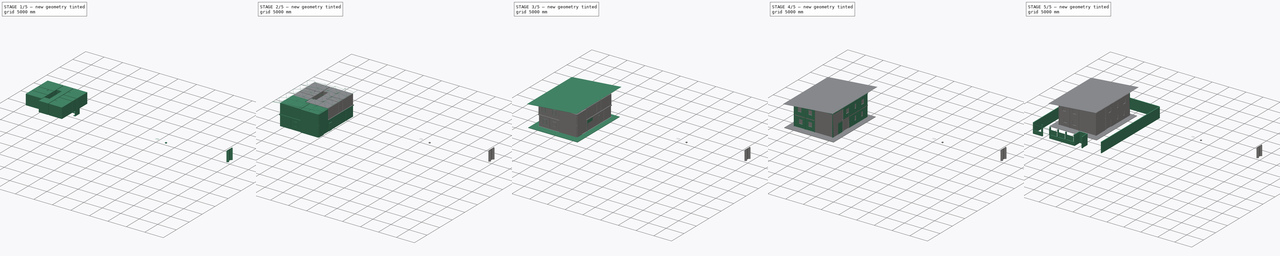
[diagram: build sequence overview — one tinted view per stage of 5, left to right]
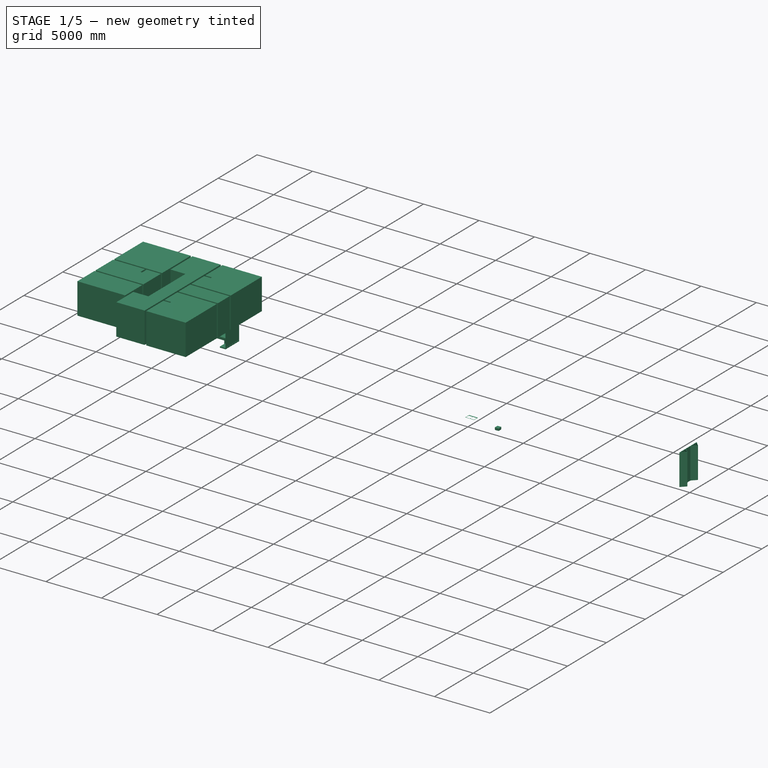
[diagram: stage 1 of 5 — iso view after this stage's code; geometry added in this stage tinted green]
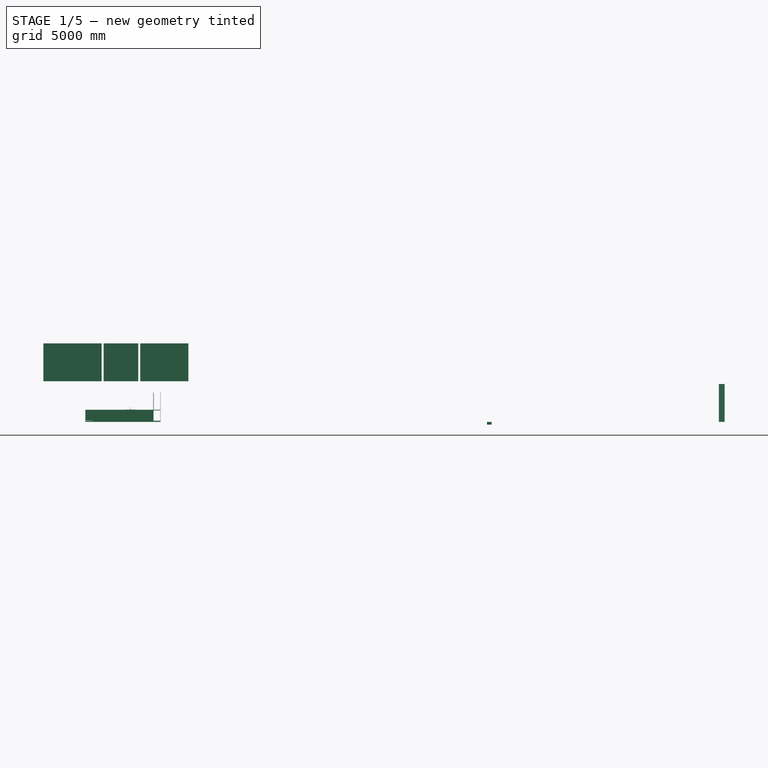
[diagram: stage 1 of 5 — front view after this stage's code; geometry added in this stage tinted green]
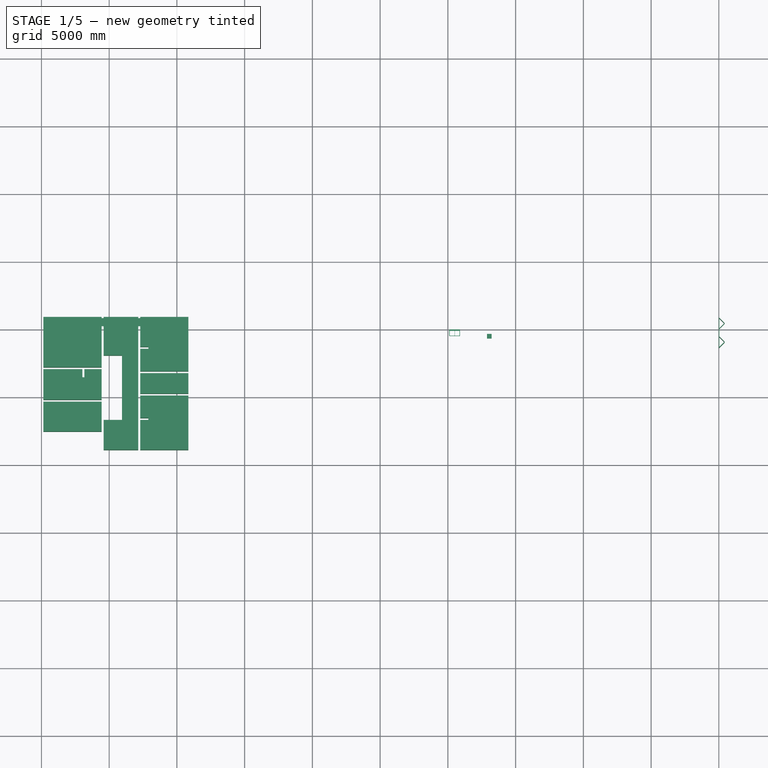
[diagram: stage 1 of 5 — top view after this stage's code; geometry added in this stage tinted green]
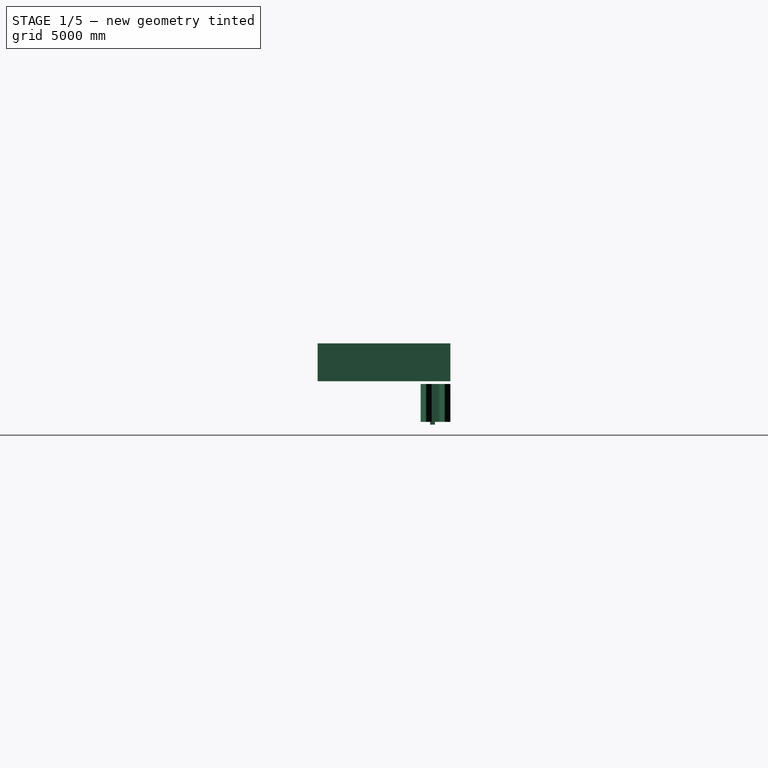
[diagram: stage 1 of 5 — right view after this stage's code; geometry added in this stage tinted green]
FCSTD DOCUMENT  (FreeCAD 0.15R4671 (Git))
Label: Dyimba Construction Document
License: All rights reserved
LicenseURL: http://en.wikipedia.org/wiki/All_rights_reserved
objects: Part::Part2DObjectPython×1067, Part::FeaturePython×256, App::FeaturePython×223, Part::Feature×169, App::DocumentObjectGroup×65, Part::Extrusion×50, Sketcher::SketchObject×44, App::Annotation×30, Drawing::FeatureViewPython×25, Part::Cut×9, Part::MultiFuse×4, Image::ImagePlane×1, Part::Sweep×1, App::DocumentObjectGroupPython×1, Drawing::FeaturePage×1
note: 1610 computed .brp shape members not serialized (recipe doc carries the construction recipe); baked Part::Feature solids carry a one-line shape summary decoded from their .brp

FEATURE [App::DocumentObjectGroup] Group037  label="Level 1 Spaces"
  Group = -> [Space,Space001,Space002,Space003,Space004,Space005,Space006,Space007,Space008,Space009,Space010]
FEATURE [App::FeaturePython] Dimension090  # Draft dimension (typed FeaturePython)
  Dimline = (-1026.05,13020,0)
  Direction = (0,0,0)
  Distance = 11170
  End = (-4.99902,1850,0)
  Normal = (0,0,1)
  Start = (-4.99902,13020,0)
FEATURE [App::FeaturePython] Dimension091  # Draft dimension (typed FeaturePython)
  Dimline = (-837.052,16150,0)
  Direction = (0,0,0)
  Distance = 300
  End = (-5,15850,0)
  Normal = (0,0,1)
  Start = (-5,16150,0)
FEATURE [App::FeaturePython] Dimension092  # Draft dimension (typed FeaturePython)
  Dimline = (-837.052,16150,0)
  Direction = (0,0,0)
  Distance = 2830
  End = (-5,13020,0)
  Normal = (0,0,1)
  Start = (-5,15850,0)
FEATURE [App::FeaturePython] Dimension093  # Draft dimension (typed FeaturePython)
  Dimline = (-837.052,13020,0)
  Direction = (0,0,0)
  Distance = 300
  End = (-5,12720,0)
  Normal = (0,0,1)
  Start = (-5,13020,0)
FEATURE [App::FeaturePython] Dimension094  # Draft dimension (typed FeaturePython)
  Dimline = (-837.052,12720,0)
  Direction = (0,0,0)
  Distance = 928.577
  End = (-5,11791.4,0)
  Normal = (0,0,1)
  Start = (-5,12720,0)
FEATURE [App::FeaturePython] Dimension095  # Draft dimension (typed FeaturePython)
  Dimline = (-837.052,11791.4,0)
  Direction = (0,0,0)
  Distance = 1000
  End = (-5,10791.4,0)
  Normal = (0,0,1)
  Start = (-5,11791.4,0)
FEATURE [App::FeaturePython] Dimension096  # Draft dimension (typed FeaturePython)
  Dimline = (-837.052,10791.4,0)
  Direction = (0,0,0)
  Distance = 1741.42
  End = (-5,9050,0)
  Normal = (0,0,1)
  Start = (-5,10791.4,0)
FEATURE [App::FeaturePython] Dimension097  # Draft dimension (typed FeaturePython)
  Dimline = (-837.052,9050,0)
  Direction = (0,0,0)
  Distance = 500
  End = (-5,8550,0)
  Normal = (0,0,1)
  Start = (-5,9050,0)
FEATURE [App::FeaturePython] Dimension098  # Draft dimension (typed FeaturePython)
  Dimline = (-837.052,8550,0)
  Direction = (0,0,0)
  Distance = 300
  End = (-5,8250,0)
  Normal = (0,0,1)
  Start = (-5,8550,0)
FEATURE [App::FeaturePython] Dimension099  # Draft dimension (typed FeaturePython)
  Dimline = (-837.052,8250,0)
  Direction = (0,0,0)
  Distance = 500
  End = (-5,7750,0)
  Normal = (0,0,1)
  Start = (-5,8250,0)
FEATURE [App::FeaturePython] Dimension100  # Draft dimension (typed FeaturePython)
  Dimline = (-837.052,7750,0)
  Direction = (0,0,0)
  Distance = 1700
  End = (-5,6050,0)
  Normal = (0,0,1)
  Start = (-5,7750,0)
FEATURE [App::FeaturePython] Dimension101  # Draft dimension (typed FeaturePython)
  Dimline = (-837.052,6050,0)
  Direction = (0,0,0)
  Distance = 300
  End = (-5,5750,0)
  Normal = (0,0,1)
  Start = (-5,6050,0)
FEATURE [App::FeaturePython] Dimension102  # Draft dimension (typed FeaturePython)
  Dimline = (-837.052,5750,0)
  Direction = (0,0,0)
  Distance = 500
  End = (-5,5250,0)
  Normal = (0,0,1)
  Start = (-5,5750,0)
FEATURE [App::FeaturePython] Dimension103  # Draft dimension (typed FeaturePython)
  Dimline = (-837.052,5250,0)
  Direction = (0,0,0)
  Distance = 3100
  End = (-5,2150,0)
  Normal = (0,0,1)
  Start = (-5,5250,0)
FEATURE [App::FeaturePython] Dimension104  # Draft dimension (typed FeaturePython)
  Dimline = (-837.052,2150,0)
  Direction = (0,0,0)
  Distance = 300
  End = (-5,1850,0)
  Normal = (0,0,1)
  Start = (-5,2150,0)
FEATURE [Part::Part2DObjectPython] Line626  # Draft 2D object (typed FeaturePython)
  ChamferSize = 0
  Closed = false
  End = (10995,17081,0)
  FilletRadius = 0
  Length = 931
  MakeFace = true
  Points = (2) [(10995,16150,0),(10995,17081,0)]
  Start = (10995,16150,0)
FEATURE [Part::Part2DObjectPython] Line627  # Draft 2D object (typed FeaturePython)
  ChamferSize = 0
  Closed = false
  End = (11827.1,17081,0)
  FilletRadius = 0
  Length = 931
  MakeFace = true
  Points = (2) [(11827.1,16150,5.7e-14),(11827.1,17081,5.7e-14)]
  Start = (11827.1,16150,0)
FEATURE [Part::Part2DObjectPython] Line628  # Draft 2D object (typed FeaturePython)
  ChamferSize = 0
  Closed = false
  End = (12016.1,17081,0)
  FilletRadius = 0
  Length = 931
  MakeFace = true
  Points = (2) [(12016.1,16150,0),(12016.1,17081,0)]
  Start = (12016.1,16150,0)
FEATURE [Part::Part2DObjectPython] Line629  # Draft 2D object (typed FeaturePython)
  ChamferSize = 0
  Closed = false
  End = (12253.1,17081,0)
  FilletRadius = 0
  Length = 931
  MakeFace = true
  Points = (2) [(12253.1,16150,0),(12253.1,17081,0)]
  Start = (12253.1,16150,0)
FEATURE [Part::Part2DObjectPython] Line630  # Draft 2D object (typed FeaturePython)
  ChamferSize = 0
  Closed = false
  End = (11827.1,16615.5,0)
  FilletRadius = 0
  Length = 832.051
  MakeFace = true
  Points = (2) [(10995,16615.5,0),(11827.1,16615.5,5.7e-14)]
  Start = (10995,16615.5,0)
FEATURE [App::FeaturePython] Dimension105  # Draft dimension (typed FeaturePython)
  Dimline = (-1263.05,16150,0)
  Direction = (0,0,0)
  Distance = 14300
  End = (-4.99902,16150,0)
  Normal = (0,0,1)
  Start = (-4.99902,1850,0)
FEATURE [Part::Part2DObjectPython] Line631  # Draft 2D object (typed FeaturePython)
  ChamferSize = 0
  Closed = false
  End = (-5,18153.4,0)
  FilletRadius = 0
  Length = 2003.39
  MakeFace = true
  Placement = pos=(-25503.4,0.388456,0) rot=(0,0,1;0rad)
  Points = (2) [(25498.4,16149.6,0),(25498.4,18153,0)]
  Start = (-5,16150,0)
FEATURE [Part::Part2DObjectPython] Line632  # Draft 2D object (typed FeaturePython)
  ChamferSize = 0
  Closed = false
  End = (-5,17151.7,0)
  FilletRadius = 0
  Length = 832.051
  MakeFace = true
  Placement = pos=(-11832.1,536.194,0) rot=(0,0,1;0rad)
  Points = (2) [(10995,16615.5,0),(11827.1,16615.5,5.7e-14)]
  Start = (-837.051,17151.7,0)
FEATURE [Part::Part2DObjectPython] Line633  # Draft 2D object (typed FeaturePython)
  ChamferSize = 0
  Closed = false
  End = (-837.051,18153.4,0)
  FilletRadius = 0
  Length = 2003.39
  MakeFace = true
  Placement = pos=(-25503.4,0.388456,0) rot=(0,0,1;0rad)
  Points = (2) [(24666.3,16149.6,-5.7e-14),(24666.3,18153,-5.7e-14)]
  Start = (-837.051,16150,0)
FEATURE [Part::Part2DObjectPython] Line634  # Draft 2D object (typed FeaturePython)
  ChamferSize = 0
  Closed = false
  End = (12016.1,16615.5,0)
  FilletRadius = 0
  Length = 189
  MakeFace = true
  Points = (2) [(11827.1,16615.5,5.7e-14),(12016.1,16615.5,0)]
  Start = (11827.1,16615.5,0)
FEATURE [Part::Part2DObjectPython] Line635  # Draft 2D object (typed FeaturePython)
  ChamferSize = 0
  Closed = false
  End = (12253.1,16615.5,0)
  FilletRadius = 0
  Length = 237
  MakeFace = true
  Points = (2) [(12016.1,16615.5,0),(12253.1,16615.5,0)]
  Start = (12016.1,16615.5,0)
FEATURE [Part::Part2DObjectPython] Line636  # Draft 2D object (typed FeaturePython)
  ChamferSize = 0
  Closed = false
  End = (-837.051,17151.7,0)
  FilletRadius = 0
  Length = 189
  MakeFace = true
  Placement = pos=(-12853.1,536.194,0) rot=(0,0,1;0rad)
  Points = (2) [(11827.1,16615.5,5.7e-14),(12016.1,16615.5,0)]
  Start = (-1026.05,17151.7,0)
FEATURE [Part::Part2DObjectPython] Line637  # Draft 2D object (typed FeaturePython)
  ChamferSize = 0
  Closed = false
  End = (-1026.05,18153.4,0)
  FilletRadius = 0
  Length = 2003.39
  MakeFace = true
  Placement = pos=(-25503.4,0.388456,0) rot=(0,0,1;0rad)
  Points = (2) [(24477.3,16149.6,0),(24477.3,18153,0)]
  Start = (-1026.05,16150,0)
FEATURE [Part::Part2DObjectPython] Line638  # Draft 2D object (typed FeaturePython)
  ChamferSize = 0
  Closed = false
  End = (-1026.05,17151.7,0)
  FilletRadius = 0
  Length = 237
  MakeFace = true
  Placement = pos=(-13279.1,536.194,0) rot=(0,0,1;0rad)
  Points = (2) [(12016.1,16615.5,0),(12253.1,16615.5,0)]
  Start = (-1263.05,17151.7,0)
FEATURE [Part::Part2DObjectPython] Line639  # Draft 2D object (typed FeaturePython)
  ChamferSize = 0
  Closed = false
  End = (-1263.05,18153.4,0)
  FilletRadius = 0
  Length = 2003.39
  MakeFace = true
  Placement = pos=(-25503.4,0.388456,0) rot=(0,0,1;0rad)
  Points = (2) [(24240.3,16149.6,0),(24240.3,18153,0)]
  Start = (-1263.05,16150,0)
FEATURE [App::FeaturePython] Dimension106  # Draft dimension (typed FeaturePython)
  Dimline = (-1026.05,13020,0)
  Direction = (0,0,0)
  Distance = 3130
  End = (-5,13020,0)
  Normal = (0,0,1)
  Start = (-4.99902,16150,0)
FEATURE [Part::Part2DObjectPython] Line640  # Draft 2D object (typed FeaturePython)
  ChamferSize = 0
  Closed = false
  End = (14250,1850,0)
  FilletRadius = 0
  Length = 3255
  MakeFace = true
  Points = (2) [(10995,1850,0),(14250,1850,0)]
  Start = (10995,1850,0)
FEATURE [Part::Part2DObjectPython] Line641  # Draft 2D object (typed FeaturePython)
  ChamferSize = 0
  Closed = false
  End = (14250,876.782,0)
  FilletRadius = 0
  Length = 3255
  MakeFace = true
  Points = (2) [(10995,876.782,0),(14250,876.782,0)]
  Start = (10995,876.782,0)
FEATURE [Part::Part2DObjectPython] Line642  # Draft 2D object (typed FeaturePython)
  ChamferSize = 0
  Closed = false
  End = (14250,678.716,0)
  FilletRadius = 0
  Length = 3255
  MakeFace = true
  Points = (2) [(10995,678.716,0),(14250,678.716,0)]
  Start = (10995,678.716,0)
FEATURE [Part::Part2DObjectPython] Line643  # Draft 2D object (typed FeaturePython)
  ChamferSize = 0
  Closed = false
  End = (14250,444.997,0)
  FilletRadius = 0
  Length = 3255
  MakeFace = true
  Points = (2) [(10995,444.997,0),(14250,444.997,0)]
  Start = (10995,444.997,0)
FEATURE [Part::Part2DObjectPython] Line644  # Draft 2D object (typed FeaturePython)
  ChamferSize = 0
  Closed = false
  End = (12633,876.782,0)
  FilletRadius = 0
  Length = 973.218
  MakeFace = true
  Points = (2) [(12633,1850,0),(12633,876.782,0)]
  Start = (12633,1850,0)
FEATURE [Part::Part2DObjectPython] Line645  # Draft 2D object (typed FeaturePython)
  ChamferSize = 0
  Closed = false
  End = (12633,678.716,0)
  FilletRadius = 0
  Length = 198.066
  MakeFace = true
  Points = (2) [(12633,876.782,0),(12633,678.716,0)]
  Start = (12633,876.782,0)
FEATURE [Part::Part2DObjectPython] Line646  # Draft 2D object (typed FeaturePython)
  ChamferSize = 0
  Closed = false
  End = (12633,444.997,0)
  FilletRadius = 0
  Length = 233.719
  MakeFace = true
  Points = (2) [(12633,678.716,0),(12633,444.997,0)]
  Start = (12633,678.716,0)
FEATURE [Part::Part2DObjectPython] Line647  # Draft 2D object (typed FeaturePython)
  ChamferSize = 0
  Closed = false
  End = (13790,16150,0)
  FilletRadius = 0
  Length = 2795
  MakeFace = true
  Points = (2) [(10995,16150,0),(13790,16150,0)]
  Start = (10995,16150,0)
FEATURE [Part::Part2DObjectPython] Line649  # Draft 2D object (typed FeaturePython)
  ChamferSize = 0
  Closed = false
  End = (12392.5,16150,0)
  FilletRadius = 0
  Length = 973.218
  MakeFace = true
  Placement = pos=(-240.5,15273.2,0) rot=(0,0,1;0rad)
  Points = (2) [(12633,1850,0),(12633,876.782,0)]
  Start = (12392.5,17123.2,0)
FEATURE [Part::Part2DObjectPython] Line650  # Draft 2D object (typed FeaturePython)
  ChamferSize = 0
  Closed = false
  End = (13790,17123.2,0)
  FilletRadius = 0
  Length = 2795
  MakeFace = true
  Points = (2) [(10995,17123.2,0),(13790,17123.2,0)]
  Start = (10995,17123.2,0)
FEATURE [Part::Part2DObjectPython] Line651  # Draft 2D object (typed FeaturePython)
  ChamferSize = 0
  Closed = false
  End = (12392.5,17123.2,0)
  FilletRadius = 0
  Length = 198.066
  MakeFace = true
  Placement = pos=(-240.5,16444.5,0) rot=(0,0,1;0rad)
  Points = (2) [(12633,876.782,0),(12633,678.716,0)]
  Start = (12392.5,17321.3,0)
FEATURE [Part::Part2DObjectPython] Line652  # Draft 2D object (typed FeaturePython)
  ChamferSize = 0
  Closed = false
  End = (13790,17321.3,0)
  FilletRadius = 0
  Length = 2795
  MakeFace = true
  Points = (2) [(10995,17321.3,0),(13790,17321.3,0)]
  Start = (10995,17321.3,0)
FEATURE [Part::Part2DObjectPython] Line653  # Draft 2D object (typed FeaturePython)
  ChamferSize = 0
  Closed = false
  End = (12392.5,17321.3,0)
  FilletRadius = 0
  Length = 233.719
  MakeFace = true
  Placement = pos=(-240.5,16876.3,0) rot=(0,0,1;0rad)
  Points = (2) [(12633,678.716,0),(12633,444.997,0)]
  Start = (12392.5,17555,0)
FEATURE [Part::Part2DObjectPython] Line654  # Draft 2D object (typed FeaturePython)
  ChamferSize = 0
  Closed = false
  End = (13790,17555,0)
  FilletRadius = 0
  Length = 2795
  MakeFace = true
  Points = (2) [(10995,17555,0),(13790,17555,0)]
  Start = (10995,17555,0)
FEATURE [Part::Part2DObjectPython] Line655  # Draft 2D object (typed FeaturePython)
  ChamferSize = 0
  Closed = false
  End = (25516,17123.2,0)
  FilletRadius = 0
  Length = 11726
  MakeFace = true
  Points = (2) [(13790,17123.2,0),(25516,17123.2,0)]
  Start = (13790,17123.2,0)
FEATURE [Part::Part2DObjectPython] Line656  # Draft 2D object (typed FeaturePython)
  ChamferSize = 0
  Closed = false
  End = (25534,17321.3,0)
  FilletRadius = 0
  Length = 11744
  MakeFace = true
  Points = (2) [(13790,17321.3,0),(25534,17321.3,0)]
  Start = (13790,17321.3,0)
FEATURE [Part::Part2DObjectPython] Line657  # Draft 2D object (typed FeaturePython)
  ChamferSize = 0
  Closed = false
  End = (25409,17555,0)
  FilletRadius = 0
  Length = 11619
  MakeFace = true
  Points = (2) [(13790,17555,0),(25409,17555,0)]
  Start = (13790,17555,0)
FEATURE [App::FeaturePython] Dimension107  # Draft dimension (typed FeaturePython)
  Dimline = (-94.3828,17555.4,0)
  Direction = (0,0,0)
  Distance = 11000
  End = (10995,16150,0)
  Normal = (0,0,1)
  Start = (-5.00098,16150,0)
FEATURE [App::FeaturePython] Dimension108  # Draft dimension (typed FeaturePython)
  Dimline = (-5.00098,17321.7,0)
  Direction = (0,0,0)
  Distance = 3100
  End = (3095,16150,0)
  Normal = (0,0,1)
  Start = (-5.00098,16150,0)
FEATURE [App::FeaturePython] Dimension109  # Draft dimension (typed FeaturePython)
  Dimline = (3095,17321.7,0)
  Direction = (0,0,0)
  Distance = 7900
  End = (10995,16150,0)
  Normal = (0,0,1)
  Start = (3095,16150,0)
FEATURE [App::FeaturePython] Dimension110  # Draft dimension (typed FeaturePython)
  Dimline = (12.6172,17123.6,0)
  Direction = (0,0,0)
  Distance = 150
  End = (144.999,16150,0)
  Normal = (0,0,1)
  Start = (-5.00098,16150,0)
FEATURE [App::FeaturePython] Dimension111  # Draft dimension (typed FeaturePython)
  Dimline = (144.999,17123.6,0)
  Direction = (0,0,0)
  Distance = 2950
  End = (3095,16150,0)
  Normal = (0,0,1)
  Start = (144.999,16150,0)
FEATURE [App::FeaturePython] Dimension112  # Draft dimension (typed FeaturePython)
  Dimline = (3095,17123.6,0)
  Direction = (0,0,0)
  Distance = 150
  End = (3245,16150,0)
  Normal = (0,0,1)
  Start = (3095,16150,0)
FEATURE [App::FeaturePython] Dimension113  # Draft dimension (typed FeaturePython)
  Dimline = (3245,17123.6,0)
  Direction = (0,0,0)
  Distance = 2550
  End = (5795,16150,0)
  Normal = (0,0,1)
  Start = (3245,16150,0)
FEATURE [App::FeaturePython] Dimension114  # Draft dimension (typed FeaturePython)
  Dimline = (5795,17123.6,0)
  Direction = (0,0,0)
  Distance = 150
  End = (5945,16150,0)
  Normal = (0,0,1)
  Start = (5795,16150,0)
FEATURE [App::FeaturePython] Dimension115  # Draft dimension (typed FeaturePython)
  Dimline = (5945,17123.6,0)
  Direction = (0,0,0)
  Distance = 1200
  End = (7145,16000,0)
  Normal = (0,0,1)
  Start = (5945,16000,0)
FEATURE [App::FeaturePython] Dimension116  # Draft dimension (typed FeaturePython)
  Dimline = (7145,17123.6,0)
  Direction = (0,0,0)
  Distance = 3700
  End = (10845,16000,0)
  Normal = (0,0,1)
  Start = (7145,16000,0)
FEATURE [App::FeaturePython] Dimension117  # Draft dimension (typed FeaturePython)
  Dimline = (10845,17123.6,0)
  Direction = (0,0,0)
  Distance = 150
  End = (10995,16150,0)
  Normal = (0,0,1)
  Start = (10845,16150,0)
FEATURE [App::FeaturePython] Dimension127  # Draft dimension (typed FeaturePython)
  Dimline = (909.617,4149.39,0)
  Direction = (0,0,0)
  Distance = 2350.39
  End = (751.617,4500.39,0)
  Normal = (0,0,1)
  Start = (751.128,2150,0)
FEATURE [App::FeaturePython] Dimension129  # Draft dimension (typed FeaturePython)
  Dimline = (909.69,4650,0)
  Direction = (0,0,0)
  Distance = 1850
  End = (2495.03,6500,0)
  Normal = (0,0,1)
  Start = (2495.03,4650,0)
FEATURE [App::FeaturePython] Dimension131  # Draft dimension (typed FeaturePython)
  Dimline = (909.69,6650,0)
  Direction = (0,0,0)
  Distance = 1600
  End = (2095,8250,0)
  Normal = (0,0,1)
  Start = (2095,6650,0)
FEATURE [App::FeaturePython] Dimension132  # Draft dimension (typed FeaturePython)
  Dimline = (909.69,8250,0)
  Direction = (0,0,0)
  Distance = 150
  End = (1620,8400,0)
  Normal = (0,0,1)
  Start = (1620,8250,0)
FEATURE [App::FeaturePython] Dimension133  # Draft dimension (typed FeaturePython)
  Dimline = (909.69,8400,0)
  Direction = (0,0,0)
  Distance = 1200
  End = (1620,9600,0)
  Normal = (0,0,1)
  Start = (1620,8400,0)
FEATURE [App::FeaturePython] Dimension134  # Draft dimension (typed FeaturePython)
  Dimline = (909.69,9600,0)
  Direction = (0,0,0)
  Distance = 150
  End = (144.999,9750,0)
  Normal = (0,0,1)
  Start = (144.999,9600,0)
FEATURE [App::FeaturePython] Dimension135  # Draft dimension (typed FeaturePython)
  Dimline = (909.69,9600,0)
  Direction = (0,0,0)
  Distance = 3120
  End = (144.999,12870,0)
  Normal = (0,0,1)
  Start = (144.999,9750,0)
FEATURE [App::FeaturePython] Dimension137  # Draft dimension (typed FeaturePython)
  Dimline = (9066.62,14406.4,0)
  Direction = (0,0,0)
  Distance = 150
  End = (8945,14020,0)
  Normal = (0,0,1)
  Start = (8795,14020,0)
FEATURE [App::FeaturePython] Dimension138  # Draft dimension (typed FeaturePython)
  Dimline = (8945,14406.4,0)
  Direction = (0,0,0)
  Distance = 1900
  End = (10845,14020,0)
  Normal = (0,0,1)
  Start = (8945,14020,0)
FEATURE [App::FeaturePython] Dimension140  # Draft dimension (typed FeaturePython)
  Dimline = (909.69,12870,0)
  Direction = (0,0,0)
  Distance = 150
  End = (294.999,13020,0)
  Normal = (0,0,1)
  Start = (294.999,12870,0)
FEATURE [App::FeaturePython] Dimension141  # Draft dimension (typed FeaturePython)
  Dimline = (909.69,6650,0)
  Direction = (0,0,0)
  Distance = 150
  End = (144.999,6650,0)
  Normal = (0,0,1)
  Start = (144.999,6500,0)
FEATURE [App::FeaturePython] Dimension142  # Draft dimension (typed FeaturePython)
  Dimline = (909.69,4650,0)
  Direction = (0,0,0)
  Distance = 150
  End = (2495.03,4650,0)
  Normal = (0,0,1)
  Start = (2495.03,4500,0)
FEATURE [App::FeaturePython] Dimension143  # Draft dimension (typed FeaturePython)
  Dimline = (3094.62,11923.4,0)
  Direction = (0,0,0)
  Distance = 2950
  End = (3095,9600,0)
  Normal = (0,0,1)
  Start = (144.999,9600,0)
FEATURE [App::FeaturePython] Dimension144  # Draft dimension (typed FeaturePython)
  Dimline = (3095,11923.4,0)
  Direction = (0,0,0)
  Distance = 150
  End = (3245,9600,0)
  Normal = (0,0,1)
  Start = (3095,9600,0)
FEATURE [App::FeaturePython] Dimension145  # Draft dimension (typed FeaturePython)
  Dimline = (3245,11923.4,0)
  Direction = (0,0,0)
  Distance = 1200
  End = (4445,9600,0)
  Normal = (0,0,1)
  Start = (3245,9600,0)
FEATURE [App::FeaturePython] Dimension146  # Draft dimension (typed FeaturePython)
  Dimline = (4445,11923.4,0)
  Direction = (0,0,0)
  Distance = 150
  End = (4595,9750,0)
  Normal = (0,0,1)
  Start = (4445,9750,0)
FEATURE [App::FeaturePython] Dimension147  # Draft dimension (typed FeaturePython)
  Dimline = (4445,11923.4,0)
  Direction = (0,0,0)
  Distance = 1200
  End = (5794.99,10989.9,0)
  Normal = (0,0,1)
  Start = (4595,10989.9,0)
FEATURE [App::FeaturePython] Dimension148  # Draft dimension (typed FeaturePython)
  Dimline = (5794.99,11923.4,0)
  Direction = (0,0,0)
  Distance = 150
  End = (5945,8550,0)
  Normal = (0,0,1)
  Start = (5795,8550,0)
FEATURE [App::FeaturePython] Dimension149  # Draft dimension (typed FeaturePython)
  Dimline = (5795,11923.4,0)
  Direction = (0,0,0)
  Distance = 4900
  End = (10845,8550,0)
  Normal = (0,0,1)
  Start = (5945,8550,0)
FEATURE [App::FeaturePython] Dimension150  # Draft dimension (typed FeaturePython)
  Dimline = (4745.62,3454.39,0)
  Direction = (0,0,0)
  Distance = 2550
  End = (5795,3999.61,0)
  Normal = (0,0,1)
  Start = (3245,3999.61,0)
FEATURE [Part::Part2DObjectPython] DWire206  # Draft 2D object (typed FeaturePython)
  ChamferSize = 0
  Closed = true
  End = (145,12150,3000)
  FilletRadius = 0
  Length = 16000
  MakeFace = true
  Placement = pos=(-42142,0.388761,3000) rot=(0,0,1;0rad)
  Points = (4) [(42287,15849.6,0),(46587,15849.6,0),(46587,12149.6,0),(42287,12149.6,0)]
  Start = (145,15850,3000)
FEATURE [Part::Part2DObjectPython] DWire207  # Draft 2D object (typed FeaturePython)
  ChamferSize = 0
  Closed = true
  End = (4595,13020,3000)
  FilletRadius = 0
  Length = 27400
  MakeFace = true
  Placement = pos=(-42142,0.388761,3000) rot=(0,0,1;0rad)
  Points = (8) [(46737,15849.6,0),(49287,15849.6,0),(49287,6049.61,0),(46737,6049.61,0),(46737,8249.61,0),(48087,8249.61,0),(48087,13019.6,0),(46737,13019.6,0)]
  Start = (4595,15850,3000)
FEATURE [Part::Part2DObjectPython] DWire208  # Draft 2D object (typed FeaturePython)
  ChamferSize = 0
  Closed = true
  End = (3170,12000,3000)
  FilletRadius = 0
  Length = 14300
  MakeFace = true
  Placement = pos=(-42142,0.388761,3000) rot=(0,0,1;0rad)
  Points = (8) [(46587,11999.6,0),(46587,9749.61,0),(42287,9749.61,0),(42287,11999.6,0),(45162,11999.6,0),(45162,11399.6,0),(45312,11399.6,0),(45312,11999.6,0)]
  Start = (4445,12000,3000)
FEATURE [Part::Part2DObjectPython] DWire209  # Draft 2D object (typed FeaturePython)
  ChamferSize = 0
  Closed = true
  End = (145,7400,3000)
  FilletRadius = 0
  Length = 13000
  MakeFace = true
  Placement = pos=(-42142,0.388761,3000) rot=(0,0,1;0rad)
  Points = (4) [(42287,9599.61,0),(46587,9599.61,0),(46587,7399.61,0),(42287,7399.61,0)]
  Start = (145,9600,3000)
FEATURE [Part::Part2DObjectPython] DWire210  # Draft 2D object (typed FeaturePython)
  ChamferSize = 0
  Closed = true
  End = (145,2150,3000)
  FilletRadius = 0
  Length = 21500
  MakeFace = true
  Placement = pos=(-42142,0.388761,3000) rot=(0,0,1;0rad)
  Points = (6) [(42287,7249.61,0),(46587,7249.61,0),(46587,5899.61,0),(47937,5899.61,0),(47937,2149.61,0),(42287,2149.61,0)]
  Start = (145,7250,3000)
FEATURE [Part::Part2DObjectPython] DWire211  # Draft 2D object (typed FeaturePython)
  ChamferSize = 0
  Closed = true
  End = (5945,2000,3000)
  FilletRadius = 0
  Length = 17900
  MakeFace = true
  Placement = pos=(-42142,0.388761,3000) rot=(0,0,1;0rad)
  Points = (8) [(48087,5899.61,0),(52987,5899.61,0),(52987,5749.61,0),(53137,5749.61,0),(53137,2149.61,0),(52987,2149.61,0),(52987,1999.61,0),(48087,1999.61,0)]
  Start = (5945,5900,3000)
FEATURE [Part::Part2DObjectPython] DWire212  # Draft 2D object (typed FeaturePython)
  ChamferSize = 0
  Closed = true
  End = (7295,8250,3000)
  FilletRadius = 0
  Length = 16300
  MakeFace = true
  Placement = pos=(-42142,0.388761,3000) rot=(0,0,1;0rad)
  Points = (8) [(49437,6049.61,0),(52987,6049.61,0),(52987,10049.6,0),(49437,10049.6,0),(49437,8399.61,0),(50037,8399.61,0),(50037,8249.61,0),(49437,8249.61,0)]
  Start = (7295,6050,3000)
FEATURE [Part::Part2DObjectPython] DWire213  # Draft 2D object (typed FeaturePython)
  ChamferSize = 0
  Closed = true
  End = (7295,10200,3000)
  FilletRadius = 0
  Length = 10100
  MakeFace = true
  Placement = pos=(-42142,0.388761,3000) rot=(0,0,1;0rad)
  Points = (4) [(49437,11699.6,0),(52987,11699.6,0),(52987,10199.6,0),(49437,10199.6,0)]
  Start = (7295,11700,3000)
FEATURE [Part::Part2DObjectPython] DWire214  # Draft 2D object (typed FeaturePython)
  ChamferSize = 0
  Closed = true
  End = (7295,13650,3000)
  FilletRadius = 0
  Length = 16300
  MakeFace = true
  Placement = pos=(-42142,0.388761,3000) rot=(0,0,1;0rad)
  Points = (8) [(49437,15849.6,0),(52987,15849.6,0),(52987,11849.6,0),(49437,11849.6,0),(49437,13499.6,0),(50037,13499.6,0),(50037,13649.6,0),(49437,13649.6,0)]
  Start = (7295,15850,3000)
FEATURE [Part::Extrusion] Extrusion055
  Base = -> DWire206
  Dir = (0,0,2800)
  Solid = true
FEATURE [Part::Extrusion] Extrusion056
  Base = -> DWire207
  Dir = (0,0,2800)
  Solid = true
FEATURE [Part::Extrusion] Extrusion057
  Base = -> DWire214
  Dir = (0,0,2800)
  Solid = true
FEATURE [Part::Extrusion] Extrusion058
  Base = -> DWire208
  Dir = (0,0,2800)
  Solid = true
FEATURE [Part::Extrusion] Extrusion059
  Base = -> DWire213
  Dir = (0,0,2800)
  Solid = true
FEATURE [Part::Extrusion] Extrusion060
  Base = -> DWire212
  Dir = (0,0,2800)
  Solid = true
FEATURE [Part::Extrusion] Extrusion063
  Base = -> DWire209
  Dir = (0,0,2800)
  Solid = true
FEATURE [Part::FeaturePython] Space013  label="Master Bathroom"  # WARN: FeaturePython — macro-defined, semantics opaque (R4)
  Area = 9.46e+06
  Base = -> Extrusion063
  MoveWithHost = false
  Role = 0
FEATURE [Part::FeaturePython] Space014  label="Study"  # WARN: FeaturePython — macro-defined, semantics opaque (R4)
  Area = 9.585e+06
  Base = -> Extrusion058
  MoveWithHost = false
  Role = 0
FEATURE [Part::FeaturePython] Space015  label="Small Living"  # WARN: FeaturePython — macro-defined, semantics opaque (R4)
  Area = 1.591e+07
  Base = -> Extrusion055
  MoveWithHost = false
  Role = 0
FEATURE [Part::FeaturePython] Space017  label="Bedroom 1"  # WARN: FeaturePython — macro-defined, semantics opaque (R4)
  Area = 1.411e+07
  Base = -> Extrusion060
  MoveWithHost = false
  Role = 0
FEATURE [Part::FeaturePython] Space018  label="Bedroom 2"  # WARN: FeaturePython — macro-defined, semantics opaque (R4)
  Area = 1.411e+07
  Base = -> Extrusion057
  MoveWithHost = false
  Role = 0
FEATURE [Part::FeaturePython] Space019  label="Bathroom"  # WARN: FeaturePython — macro-defined, semantics opaque (R4)
  Area = 5.325e+06
  Base = -> Extrusion059
  MoveWithHost = false
  Role = 0
FEATURE [Part::FeaturePython] Space020  label="Stair Corridor"  # WARN: FeaturePython — macro-defined, semantics opaque (R4)
  Area = 1.85505e+07
  Base = -> Extrusion056
  MoveWithHost = false
  Role = 0
FEATURE [App::DocumentObjectGroup] Group038  label="Level 2 Spaces"
  Group = -> [Space011,Space012,Space013,Space014,Space015,Space017,Space018,Space019,Space020]
FEATURE [App::DocumentObjectGroup] Group036  label="Spaces"
  Group = -> [Group037,Group038]
FEATURE [Part::Part2DObjectPython] Line658  # Draft 2D object (typed FeaturePython)
  ChamferSize = 0
  Closed = false
  End = (40878.9,18153,0)
  FilletRadius = 0
  Length = 2003.39
  MakeFace = true
  Placement = pos=(16638.6,-0.000305198,0) rot=(0,0,1;0rad)
  Points = (2) [(24240.3,16149.6,0),(24240.3,18153,0)]
  Start = (40878.9,16149.6,0)
FEATURE [Part::Part2DObjectPython] Line659  # Draft 2D object (typed FeaturePython)
  ChamferSize = 0
  Closed = false
  End = (41115.9,18153,0)
  FilletRadius = 0
  Length = 2003.39
  MakeFace = true
  Placement = pos=(16638.6,-0.000305198,0) rot=(0,0,1;0rad)
  Points = (2) [(24477.3,16149.6,0),(24477.3,18153,0)]
  Start = (41115.9,16149.6,0)
FEATURE [Part::Part2DObjectPython] Line660  # Draft 2D object (typed FeaturePython)
  ChamferSize = 0
  Closed = false
  End = (41304.9,18153,0)
  FilletRadius = 0
  Length = 2003.39
  MakeFace = true
  Placement = pos=(16638.6,-0.000305198,0) rot=(0,0,1;0rad)
  Points = (2) [(24666.3,16149.6,-5.7e-14),(24666.3,18153,-5.7e-14)]
  Start = (41304.9,16149.6,0)
FEATURE [Part::Part2DObjectPython] Line661  # Draft 2D object (typed FeaturePython)
  ChamferSize = 0
  Closed = false
  End = (53137,17080.6,0)
  FilletRadius = 0
  Length = 931
  MakeFace = true
  Placement = pos=(42142,-0.388761,0) rot=(0,0,1;0rad)
  Points = (2) [(10995,16150,0),(10995,17081,0)]
  Start = (53137,16149.6,0)
FEATURE [Part::Part2DObjectPython] Line662  # Draft 2D object (typed FeaturePython)
  ChamferSize = 0
  Closed = false
  End = (53969.1,17080.6,0)
  FilletRadius = 0
  Length = 931
  MakeFace = true
  Placement = pos=(42142,-0.388761,0) rot=(0,0,1;0rad)
  Points = (2) [(11827.1,16150,5.7e-14),(11827.1,17081,5.7e-14)]
  Start = (53969.1,16149.6,0)
FEATURE [Part::Part2DObjectPython] Line663  # Draft 2D object (typed FeaturePython)
  ChamferSize = 0
  Closed = false
  End = (54158.1,17080.6,0)
  FilletRadius = 0
  Length = 931
  MakeFace = true
  Placement = pos=(42142,-0.388761,0) rot=(0,0,1;0rad)
  Points = (2) [(12016.1,16150,0),(12016.1,17081,0)]
  Start = (54158.1,16149.6,0)
FEATURE [Part::Part2DObjectPython] Line664  # Draft 2D object (typed FeaturePython)
  ChamferSize = 0
  Closed = false
  End = (54395.1,17080.6,0)
  FilletRadius = 0
  Length = 931
  MakeFace = true
  Placement = pos=(42142,-0.388761,0) rot=(0,0,1;0rad)
  Points = (2) [(12253.1,16150,0),(12253.1,17081,0)]
  Start = (54395.1,16149.6,0)
FEATURE [Part::Part2DObjectPython] Line665  # Draft 2D object (typed FeaturePython)
  ChamferSize = 0
  Closed = false
  End = (42137,18153,0)
  FilletRadius = 0
  Length = 2003.39
  MakeFace = true
  Placement = pos=(16638.6,-0.000305198,0) rot=(0,0,1;0rad)
  Points = (2) [(25498.4,16149.6,0),(25498.4,18153,0)]
  Start = (42137,16149.6,0)
FEATURE [Part::Part2DObjectPython] Line666  # Draft 2D object (typed FeaturePython)
  ChamferSize = 0
  Closed = false
  End = (55568,876.782,0)
  FilletRadius = 0
  Length = 3255
  MakeFace = true
  Placement = pos=(41318,3e-12,0) rot=(0,0,1;0rad)
  Points = (2) [(10995,876.782,0),(14250,876.782,0)]
  Start = (52313,876.782,0)
FEATURE [Part::Part2DObjectPython] Line667  # Draft 2D object (typed FeaturePython)
  ChamferSize = 0
  Closed = false
  End = (55568,678.716,0)
  FilletRadius = 0
  Length = 3255
  MakeFace = true
  Placement = pos=(41318,3e-12,0) rot=(0,0,1;0rad)
  Points = (2) [(10995,678.716,0),(14250,678.716,0)]
  Start = (52313,678.716,0)
FEATURE [Part::Part2DObjectPython] Line668  # Draft 2D object (typed FeaturePython)
  ChamferSize = 0
  Closed = false
  End = (55568,444.997,0)
  FilletRadius = 0
  Length = 3255
  MakeFace = true
  Placement = pos=(41318,3e-12,0) rot=(0,0,1;0rad)
  Points = (2) [(10995,444.997,0),(14250,444.997,0)]
  Start = (52313,444.997,0)
FEATURE [Part::Part2DObjectPython] Line669  # Draft 2D object (typed FeaturePython)
  ChamferSize = 0
  Closed = false
  End = (61276,17555,0)
  FilletRadius = 0
  Length = 6880.95
  MakeFace = true
  Placement = pos=(35867,4e-12,0) rot=(0,0,1;0rad)
  Points = (2) [(18528.1,17555,0),(25409,17555,0)]
  Start = (54395.1,17555,0)
FEATURE [Part::Part2DObjectPython] Line670  # Draft 2D object (typed FeaturePython)
  ChamferSize = 0
  Closed = false
  End = (61401,17321.3,0)
  FilletRadius = 0
  Length = 7005.95
  MakeFace = true
  Placement = pos=(35867,4e-12,0) rot=(0,0,1;0rad)
  Points = (2) [(18528.1,17321.3,0),(25534,17321.3,0)]
  Start = (54395.1,17321.3,0)
FEATURE [Part::Part2DObjectPython] Line671  # Draft 2D object (typed FeaturePython)
  ChamferSize = 0
  Closed = false
  End = (61383,17123.2,0)
  FilletRadius = 0
  Length = 6987.95
  MakeFace = true
  Placement = pos=(35867,4e-12,0) rot=(0,0,1;0rad)
  Points = (2) [(18528.1,17123.2,0),(25516,17123.2,0)]
  Start = (54395.1,17123.2,0)
FEATURE [App::FeaturePython] Dimension152  # Draft dimension (typed FeaturePython)
  Dimline = (12253.1,16150,3000)
  Direction = (0,0,0)
  Distance = 14300
  End = (10995,1850,3000)
  Normal = (0,0,1)
  Start = (10995,16150,3000)
FEATURE [App::FeaturePython] Dimension153  # Draft dimension (typed FeaturePython)
  Dimline = (12016.1,16150,3000)
  Direction = (0,0,0)
  Distance = 10400
  End = (10995,5750,3000)
  Normal = (0,0,1)
  Start = (10995,16150,3000)
FEATURE [App::FeaturePython] Dimension154  # Draft dimension (typed FeaturePython)
  Dimline = (12016.1,5750,3000)
  Direction = (0,0,0)
  Distance = 3900
  End = (10995,1850,3000)
  Normal = (0,0,1)
  Start = (10995,5750,3000)
FEATURE [App::FeaturePython] Dimension155  # Draft dimension (typed FeaturePython)
  Dimline = (11827.1,16150,3000)
  Direction = (0,0,0)
  Distance = 300
  End = (10995,15850,3000)
  Normal = (0,0,1)
  Start = (10995,16150,3000)
FEATURE [App::FeaturePython] Dimension156  # Draft dimension (typed FeaturePython)
  Dimline = (11827.1,15850,3000)
  Direction = (0,0,0)
  Distance = 1471.2
  End = (10995,14378.8,3000)
  Normal = (0,0,1)
  Start = (10995,15850,3000)
FEATURE [App::FeaturePython] Dimension157  # Draft dimension (typed FeaturePython)
  Dimline = (11827.1,14378.8,3000)
  Direction = (0,0,0)
  Distance = 1000
  End = (10995,13378.8,3000)
  Normal = (0,0,1)
  Start = (10995,14378.8,3000)
FEATURE [App::FeaturePython] Dimension158  # Draft dimension (typed FeaturePython)
  Dimline = (11827.1,13378.8,3000)
  Direction = (0,0,0)
  Distance = 358.804
  End = (10995,13020,3000)
  Normal = (0,0,1)
  Start = (10995,13378.8,3000)
FEATURE [App::FeaturePython] Dimension159  # Draft dimension (typed FeaturePython)
  Dimline = (11827.1,13020,3000)
  Direction = (0,0,0)
  Distance = 300
  End = (10995,12720,3000)
  Normal = (0,0,1)
  Start = (10995,13020,3000)
FEATURE [App::FeaturePython] Dimension160  # Draft dimension (typed FeaturePython)
  Dimline = (11827.1,12720,3000)
  Direction = (0,0,0)
  Distance = 1516
  End = (10995,11204,3000)
  Normal = (0,0,1)
  Start = (10995,12720,3000)
FEATURE [App::FeaturePython] Dimension161  # Draft dimension (typed FeaturePython)
  Dimline = (11827.1,11204,3000)
  Direction = (0,0,0)
  Distance = 500
  End = (10995,10704,3000)
  Normal = (0,0,1)
  Start = (10995,11204,3000)
FEATURE [App::FeaturePython] Dimension162  # Draft dimension (typed FeaturePython)
  Dimline = (11827.1,10704,3000)
  Direction = (0,0,0)
  Distance = 2154
  End = (10995,8550,3000)
  Normal = (0,0,1)
  Start = (10995,10704,3000)
FEATURE [App::FeaturePython] Dimension163  # Draft dimension (typed FeaturePython)
  Dimline = (11827.1,8550,3000)
  Direction = (0,0,0)
  Distance = 300
  End = (10995,8250,3000)
  Normal = (0,0,1)
  Start = (10995,8550,3000)
FEATURE [App::FeaturePython] Dimension164  # Draft dimension (typed FeaturePython)
  Dimline = (11827.1,8250,3000)
  Direction = (0,0,0)
  Distance = 1000
  End = (10995,7250,3000)
  Normal = (0,0,1)
  Start = (10995,8250,3000)
FEATURE [App::FeaturePython] Dimension165  # Draft dimension (typed FeaturePython)
  Dimline = (11827.1,7250,3000)
  Direction = (0,0,0)
  Distance = 1200
  End = (10995,6050,3000)
  Normal = (0,0,1)
  Start = (10995,7250,3000)
FEATURE [App::FeaturePython] Dimension166  # Draft dimension (typed FeaturePython)
  Dimline = (11827.1,6050,3000)
  Direction = (0,0,0)
  Distance = 300
  End = (10995,5750,3000)
  Normal = (0,0,1)
  Start = (10995,6050,3000)
FEATURE [App::FeaturePython] Dimension167  # Draft dimension (typed FeaturePython)
  Dimline = (11827.1,5750,3000)
  Direction = (0,0,0)
  Distance = 3600
  End = (10995,2150,3000)
  Normal = (0,0,1)
  Start = (10995,5750,3000)
FEATURE [App::FeaturePython] Dimension168  # Draft dimension (typed FeaturePython)
  Dimline = (11827.1,2150,3000)
  Direction = (0,0,0)
  Distance = 300
  End = (10995,1850,3000)
  Normal = (0,0,1)
  Start = (10995,2150,3000)
FEATURE [App::FeaturePython] Dimension169  # Draft dimension (typed FeaturePython)
  Dimline = (12253.1,17555.4,3000)
  Direction = (0,0,0)
  Distance = 11000
  End = (-4.99643,16150,3000)
  Normal = (0,0,1)
  Start = (10995,16150,3000)
FEATURE [App::FeaturePython] Dimension170  # Draft dimension (typed FeaturePython)
  Dimline = (12253.1,17321.7,3000)
  Direction = (0,0,0)
  Distance = 150
  End = (145.004,16150,3000)
  Normal = (0,0,1)
  Start = (-4.99643,16150,3000)
FEATURE [App::FeaturePython] Dimension171  # Draft dimension (typed FeaturePython)
  Dimline = (12253.1,17321.7,3000)
  Direction = (0,0,0)
  Distance = 2950
  End = (3095,16150,3000)
  Normal = (0,0,1)
  Start = (145.004,16150,3000)
FEATURE [App::FeaturePython] Dimension172  # Draft dimension (typed FeaturePython)
  Dimline = (12253.1,17321.7,3000)
  Direction = (0,0,0)
  Distance = 150
  End = (3245,16150,3000)
  Normal = (0,0,1)
  Start = (3095,16150,3000)
FEATURE [App::FeaturePython] Dimension173  # Draft dimension (typed FeaturePython)
  Dimline = (12253.1,17321.7,3000)
  Direction = (0,0,0)
  Distance = 1350
  End = (4595,16000,3000)
  Normal = (0,0,1)
  Start = (3245,16000,3000)
FEATURE [App::FeaturePython] Dimension174  # Draft dimension (typed FeaturePython)
  Dimline = (12253.1,17321.7,3000)
  Direction = (0,0,0)
  Distance = 1200
  End = (5795,16000,3000)
  Normal = (0,0,1)
  Start = (4595,16000,3000)
FEATURE [App::FeaturePython] Dimension175  # Draft dimension (typed FeaturePython)
  Dimline = (12253.1,17321.7,3000)
  Direction = (0,0,0)
  Distance = 150
  End = (5945,16150,3000)
  Normal = (0,0,1)
  Start = (5795,16150,3000)
FEATURE [App::FeaturePython] Dimension176  # Draft dimension (typed FeaturePython)
  Dimline = (12253.1,17321.7,3000)
  Direction = (0,0,0)
  Distance = 1200
  End = (7145,16000,3000)
  Normal = (0,0,1)
  Start = (5945,16000,3000)
FEATURE [App::FeaturePython] Dimension177  # Draft dimension (typed FeaturePython)
  Dimline = (12253.1,17321.7,3000)
  Direction = (0,0,0)
  Distance = 3700
  End = (10845,16000,3000)
  Normal = (0,0,1)
  Start = (7145,16000,3000)
FEATURE [App::FeaturePython] Dimension178  # Draft dimension (typed FeaturePython)
  Dimline = (12253.1,17321.7,3000)
  Direction = (0,0,0)
  Distance = 150
  End = (10995,16150,3000)
  Normal = (0,0,1)
  Start = (10845,16150,3000)
FEATURE [App::FeaturePython] Dimension179  # Draft dimension (typed FeaturePython)
  Dimline = (-1263.05,16150,3000)
  Direction = (0,0,0)
  Distance = 14300
  End = (-4.99643,1850,3000)
  Normal = (0,0,1)
  Start = (-4.99643,16150,3000)
FEATURE [App::FeaturePython] Dimension180  # Draft dimension (typed FeaturePython)
  Dimline = (-1026.05,16150,3000)
  Direction = (0,0,0)
  Distance = 300
  End = (-4.99643,15850,3000)
  Normal = (0,0,1)
  Start = (-4.99643,16150,3000)
FEATURE [App::FeaturePython] Dimension181  # Draft dimension (typed FeaturePython)
  Dimline = (-1026.05,15850,3000)
  Direction = (0,0,0)
  Distance = 2830
  End = (-4.99643,13020,3000)
  Normal = (0,0,1)
  Start = (-4.99643,15850,3000)
FEATURE [App::FeaturePython] Dimension182  # Draft dimension (typed FeaturePython)
  Dimline = (-1026.05,13020,3000)
  Direction = (0,0,0)
  Distance = 300
  End = (-4.99643,12720,3000)
  Normal = (0,0,1)
  Start = (-4.99643,13020,3000)
FEATURE [App::FeaturePython] Dimension183  # Draft dimension (typed FeaturePython)
  Dimline = (-1026.05,12720,3000)
  Direction = (0,0,0)
  Distance = 570
  End = (-4.99643,12150,3000)
  Normal = (0,0,1)
  Start = (-4.99643,12720,3000)
FEATURE [App::FeaturePython] Dimension184  # Draft dimension (typed FeaturePython)
  Dimline = (-1026.05,12150,3000)
  Direction = (0,0,0)
  Distance = 1358.58
  End = (-4.99643,10791.4,3000)
  Normal = (0,0,1)
  Start = (-4.99643,12150,3000)
FEATURE [App::FeaturePython] Dimension185  # Draft dimension (typed FeaturePython)
  Dimline = (-1026.05,10791.4,3000)
  Direction = (0,0,0)
  Distance = 500
  End = (-4.99643,10291.4,3000)
  Normal = (0,0,1)
  Start = (-4.99643,10791.4,3000)
FEATURE [App::FeaturePython] Dimension186  # Draft dimension (typed FeaturePython)
  Dimline = (-1026.05,10291.4,3000)
  Direction = (0,0,0)
  Distance = 1241.42
  End = (-4.99643,9050,3000)
  Normal = (0,0,1)
  Start = (-4.99643,10291.4,3000)
FEATURE [App::FeaturePython] Dimension187  # Draft dimension (typed FeaturePython)
  Dimline = (-1026.05,9050,3000)
  Direction = (0,0,0)
  Distance = 500
  End = (-4.99643,8550,3000)
  Normal = (0,0,1)
  Start = (-4.99643,9050,3000)
FEATURE [App::FeaturePython] Dimension188  # Draft dimension (typed FeaturePython)
  Dimline = (-1026.05,8550,3000)
  Direction = (0,0,0)
  Distance = 300
  End = (-4.99643,8250,3000)
  Normal = (0,0,1)
  Start = (-4.99643,8550,3000)
FEATURE [App::FeaturePython] Dimension189  # Draft dimension (typed FeaturePython)
  Dimline = (-1026.05,8250,3000)
  Direction = (0,0,0)
  Distance = 2200
  End = (-4.99643,6050,3000)
  Normal = (0,0,1)
  Start = (-4.99643,8250,3000)
FEATURE [App::FeaturePython] Dimension190  # Draft dimension (typed FeaturePython)
  Dimline = (-1026.05,6050,3000)
  Direction = (0,0,0)
  Distance = 300
  End = (-4.99643,5750,3000)
  Normal = (0,0,1)
  Start = (-4.99643,6050,3000)
FEATURE [App::FeaturePython] Dimension191  # Draft dimension (typed FeaturePython)
  Dimline = (-1026.05,5750,3000)
  Direction = (0,0,0)
  Distance = 500
  End = (-4.99643,5250,3000)
  Normal = (0,0,1)
  Start = (-4.99643,5750,3000)
FEATURE [App::FeaturePython] Dimension192  # Draft dimension (typed FeaturePython)
  Dimline = (-1026.05,5250,3000)
  Direction = (0,0,0)
  Distance = 3100
  End = (-4.99643,2150,3000)
  Normal = (0,0,1)
  Start = (-4.99643,5250,3000)
FEATURE [App::FeaturePython] Dimension193  # Draft dimension (typed FeaturePython)
  Dimline = (-1026.05,2150,3000)
  Direction = (0,0,0)
  Distance = 300
  End = (-4.99643,1850,3000)
  Normal = (0,0,1)
  Start = (-4.99643,2150,3000)
FEATURE [App::FeaturePython] Dimension194  # Draft dimension (typed FeaturePython)
  Dimline = (10171,445.385,3000)
  Direction = (0,0,0)
  Distance = 11000
  End = (10995,1850,3000)
  Normal = (0,0,1)
  Start = (-4.99643,1850,3000)
FEATURE [App::FeaturePython] Dimension195  # Draft dimension (typed FeaturePython)
  Dimline = (10171,679.104,3000)
  Direction = (0,0,0)
  Distance = 5950
  End = (5945,1850,3000)
  Normal = (0,0,1)
  Start = (-4.99643,1850,3000)
FEATURE [App::FeaturePython] Dimension196  # Draft dimension (typed FeaturePython)
  Dimline = (10171,679.104,3000)
  Direction = (0,0,0)
  Distance = 5050
  End = (10995,1850,3000)
  Normal = (0,0,1)
  Start = (5945,1850,3000)
FEATURE [App::FeaturePython] Dimension197  # Draft dimension (typed FeaturePython)
  Dimline = (10171,877.17,3000)
  Direction = (0,0,0)
  Distance = 150
  End = (145.004,1850,3000)
  Normal = (0,0,1)
  Start = (-4.99643,1850,3000)
FEATURE [App::FeaturePython] Dimension198  # Draft dimension (typed FeaturePython)
  Dimline = (10171,877.17,3000)
  Direction = (0,0,0)
  Distance = 896.979
  End = (1041.98,2000,3000)
  Normal = (0,0,1)
  Start = (145.004,2000,3000)
FEATURE [App::FeaturePython] Dimension199  # Draft dimension (typed FeaturePython)
  Dimline = (10171,877.17,3000)
  Direction = (0,0,0)
  Distance = 1000
  End = (2041.98,2000,3000)
  Normal = (0,0,1)
  Start = (1041.98,2000,3000)
FEATURE [App::FeaturePython] Dimension200  # Draft dimension (typed FeaturePython)
  Dimline = (10171,877.17,3000)
  Direction = (0,0,0)
  Distance = 1053.02
  End = (3095,2000,3000)
  Normal = (0,0,1)
  Start = (2041.98,2000,3000)
FEATURE [App::FeaturePython] Dimension201  # Draft dimension (typed FeaturePython)
  Dimline = (10171,877.17,3000)
  Direction = (0,0,0)
  Distance = 150
  End = (3245,1850,3000)
  Normal = (0,0,1)
  Start = (3095,1850,3000)
FEATURE [App::FeaturePython] Dimension202  # Draft dimension (typed FeaturePython)
  Dimline = (3245,877.17,3000)
  Direction = (0,0,0)
  Distance = 775
  End = (4020,2000,3000)
  Normal = (0,0,1)
  Start = (3245,2000,3000)
FEATURE [App::FeaturePython] Dimension203  # Draft dimension (typed FeaturePython)
  Dimline = (4020,877.17,3000)
  Direction = (0,0,0)
  Distance = 1000
  End = (5020,2000,3000)
  Normal = (0,0,1)
  Start = (4020,2000,3000)
FEATURE [App::FeaturePython] Dimension204  # Draft dimension (typed FeaturePython)
  Dimline = (5020,877.17,3000)
  Direction = (0,0,0)
  Distance = 775
  End = (5795,2000,3000)
  Normal = (0,0,1)
  Start = (5020,2000,3000)
FEATURE [App::FeaturePython] Dimension205  # Draft dimension (typed FeaturePython)
  Dimline = (5795,877.17,3000)
  Direction = (0,0,0)
  Distance = 150
  End = (5945,1850,3000)
  Normal = (0,0,1)
  Start = (5795,1850,3000)
FEATURE [App::FeaturePython] Dimension206  # Draft dimension (typed FeaturePython)
  Dimline = (5945,877.17,3000)
  Direction = (0,0,0)
  Distance = 4900
  End = (10845,1850,3000)
  Normal = (0,0,1)
  Start = (5945,1850,3000)
FEATURE [App::FeaturePython] Dimension207  # Draft dimension (typed FeaturePython)
  Dimline = (10845,877.17,3000)
  Direction = (0,0,0)
  Distance = 150
  End = (10995,1850,3000)
  Normal = (0,0,1)
  Start = (10845,1850,3000)
FEATURE [App::FeaturePython] Dimension208  # Draft dimension (typed FeaturePython)
  Dimline = (4219,15524.4,3000)
  Direction = (0,0,0)
  Distance = 500
  End = (4445,15850,3000)
  Normal = (0,0,1)
  Start = (4445,15350,3000)
FEATURE [App::FeaturePython] Dimension209  # Draft dimension (typed FeaturePython)
  Dimline = (7895,13906.4,3000)
  Direction = (0,0,0)
  Distance = 599.997
  End = (7895,13650,3000)
  Normal = (0,0,1)
  Start = (7295.01,13650,3000)
FEATURE [App::FeaturePython] Dimension210  # Draft dimension (typed FeaturePython)
  Dimline = (7854,8600.39,3000)
  Direction = (0,0,0)
  Distance = 600
  End = (7895,8400,3000)
  Normal = (0,0,1)
  Start = (7295,8400,3000)
FEATURE [App::FeaturePython] Dimension211  # Draft dimension (typed FeaturePython)
  Dimline = (2807,11696.4,3000)
  Direction = (0,0,0)
  Distance = 600
  End = (3020,12000,3000)
  Normal = (0,0,1)
  Start = (3020,11400,3000)
FEATURE [App::FeaturePython] Dimension212  # Draft dimension (typed FeaturePython)
  Dimline = (3772,15043.4,3000)
  Direction = (0,0,0)
  Distance = 4300
  End = (4445,15350,3000)
  Normal = (0,0,1)
  Start = (145.004,15350,3000)
FEATURE [App::FeaturePython] Dimension213  # Draft dimension (typed FeaturePython)
  Dimline = (4445,15043.4,3000)
  Direction = (0,0,0)
  Distance = 150
  End = (4595,15350,3000)
  Normal = (0,0,1)
  Start = (4445,15350,3000)
FEATURE [App::FeaturePython] Dimension214  # Draft dimension (typed FeaturePython)
  Dimline = (4595,15043.4,3000)
  Direction = (0,0,0)
  Distance = 2550
  End = (7145,15350,3000)
  Normal = (0,0,1)
  Start = (4595,15350,3000)
FEATURE [App::FeaturePython] Dimension215  # Draft dimension (typed FeaturePython)
  Dimline = (8116,13573.4,3000)
  Direction = (0,0,0)
  Distance = 150
  End = (7895,13650,3000)
  Normal = (0,0,1)
  Start = (7895,13500,3000)
FEATURE [App::FeaturePython] Dimension216  # Draft dimension (typed FeaturePython)
  Dimline = (8142,8341.39,3000)
  Direction = (0,0,0)
  Distance = 150
  End = (7895,8400,3000)
  Normal = (0,0,1)
  Start = (7895,8250,3000)
FEATURE [App::FeaturePython] Dimension217  # Draft dimension (typed FeaturePython)
  Dimline = (7145,15043.4,3000)
  Direction = (0,0,0)
  Distance = 150
  End = (7295,15043.4,3000)
  Normal = (0,0,1)
  Start = (7145,15043.4,3000)
FEATURE [App::FeaturePython] Dimension218  # Draft dimension (typed FeaturePython)
  Dimline = (7295,15043.4,3000)
  Direction = (0,0,0)
  Distance = 3550
  End = (10845,15043.4,3000)
  Normal = (0,0,1)
  Start = (7295,15043.4,3000)
FEATURE [App::FeaturePython] Dimension219  # Draft dimension (typed FeaturePython)
  Dimline = (8791,15350.4,3000)
  Direction = (0,0,0)
  Distance = 4000
  End = (9070,15850,3000)
  Normal = (0,0,1)
  Start = (9070,11850,3000)
FEATURE [App::FeaturePython] Dimension220  # Draft dimension (typed FeaturePython)
  Dimline = (8791,11850,3000)
  Direction = (0,0,0)
  Distance = 150
  End = (9070,11850,3000)
  Normal = (0,0,1)
  Start = (9070,11700,3000)
FEATURE [App::FeaturePython] Dimension221  # Draft dimension (typed FeaturePython)
  Dimline = (8791,11850,3000)
  Direction = (0,0,0)
  Distance = 1500
  End = (9070,11700,3000)
  Normal = (0,0,1)
  Start = (9070,10200,3000)
FEATURE [App::FeaturePython] Dimension222  # Draft dimension (typed FeaturePython)
  Dimline = (8791,10200,3000)
  Direction = (0,0,0)
  Distance = 150
  End = (9070,10200,3000)
  Normal = (0,0,1)
  Start = (9070,10050,3000)
FEATURE [App::FeaturePython] Dimension223  # Draft dimension (typed FeaturePython)
  Dimline = (8791,10200,3000)
  Direction = (0,0,0)
  Distance = 4000
  End = (8945,10050,3000)
  Normal = (0,0,1)
  Start = (8945,6050,3000)
FEATURE [App::FeaturePython] Dimension224  # Draft dimension (typed FeaturePython)
  Dimline = (8791,6050,3000)
  Direction = (0,0,0)
  Distance = 150
  End = (8945,6050,3000)
  Normal = (0,0,1)
  Start = (8945,5900,3000)
FEATURE [App::FeaturePython] Dimension225  # Draft dimension (typed FeaturePython)
  Dimline = (8791,5900,3000)
  Direction = (0,0,0)
  Distance = 3900
  End = (8395,5900,3000)
  Normal = (0,0,1)
  Start = (8395,2000,3000)
FEATURE [App::FeaturePython] Dimension226  # Draft dimension (typed FeaturePython)
  Dimline = (6562,7626.39,3000)
  Direction = (0,0,0)
  Distance = 2550
  End = (7145,7700,3000)
  Normal = (0,0,1)
  Start = (4595,7700,3000)
FEATURE [App::FeaturePython] Dimension227  # Draft dimension (typed FeaturePython)
  Dimline = (5795,13313.4,3000)
  Direction = (0,0,0)
  Distance = 1200
  End = (7145,8400,3000)
  Normal = (0,0,1)
  Start = (5945,8400,3000)
FEATURE [App::FeaturePython] Dimension230  # Draft dimension (typed FeaturePython)
  Dimline = (1487,15520.4,3000)
  Direction = (0,0,0)
  Distance = 3700
  End = (1745,15850,3000)
  Normal = (0,0,1)
  Start = (1745,12150,3000)
FEATURE [App::FeaturePython] Dimension231  # Draft dimension (typed FeaturePython)
  Dimline = (1487,12150,3000)
  Direction = (0,0,0)
  Distance = 150
  End = (1745,12150,3000)
  Normal = (0,0,1)
  Start = (1745,12000,3000)
FEATURE [App::FeaturePython] Dimension232  # Draft dimension (typed FeaturePython)
  Dimline = (1487,12150,3000)
  Direction = (0,0,0)
  Distance = 2250
  End = (2295,12000,3000)
  Normal = (0,0,1)
  Start = (2295,9750,3000)
FEATURE [App::FeaturePython] Dimension233  # Draft dimension (typed FeaturePython)
  Dimline = (1487,9750,3000)
  Direction = (0,0,0)
  Distance = 150
  End = (2295,9750,3000)
  Normal = (0,0,1)
  Start = (2295,9600,3000)
FEATURE [App::FeaturePython] Dimension234  # Draft dimension (typed FeaturePython)
  Dimline = (1487,9750,3000)
  Direction = (0,0,0)
  Distance = 2200
  End = (2845,9600,3000)
  Normal = (0,0,1)
  Start = (2845,7400,3000)
FEATURE [App::FeaturePython] Dimension235  # Draft dimension (typed FeaturePython)
  Dimline = (5322,8000.39,3000)
  Direction = (0,0,0)
  Distance = 2200
  End = (5195,8250,3000)
  Normal = (0,0,1)
  Start = (5195,6050,3000)
FEATURE [App::FeaturePython] Dimension236  # Draft dimension (typed FeaturePython)
  Dimline = (1487,7400,3000)
  Direction = (0,0,0)
  Distance = 150
  End = (2845,7400,3000)
  Normal = (0,0,1)
  Start = (2845,7250,3000)
FEATURE [App::FeaturePython] Dimension237  # Draft dimension (typed FeaturePython)
  Dimline = (1487,7400,3000)
  Direction = (0,0,0)
  Distance = 5100
  End = (2568.49,7250,3000)
  Normal = (0,0,1)
  Start = (2568.49,2150,3000)
FEATURE [App::FeaturePython] Dimension238  # Draft dimension (typed FeaturePython)
  Dimline = (5322,6050,3000)
  Direction = (0,0,0)
  Distance = 3750
  End = (5407.5,5900,3000)
  Normal = (0,0,1)
  Start = (5407.5,2150,3000)
FEATURE [App::FeaturePython] Dimension239  # Draft dimension (typed FeaturePython)
  Dimline = (5322,6050,3000)
  Direction = (0,0,0)
  Distance = 150
  End = (5795,6050,3000)
  Normal = (0,0,1)
  Start = (5795,5900,3000)
FEATURE [App::FeaturePython] Dimension240  # Draft dimension (typed FeaturePython)
  Dimline = (3747,6606.39,3000)
  Direction = (0,0,0)
  Distance = 1350
  End = (4445,7250,3000)
  Normal = (0,0,1)
  Start = (4445,5900,3000)
FEATURE [App::FeaturePython] Dimension241  # Draft dimension (typed FeaturePython)
  Dimline = (4970,5300,3000)
  Direction = (0,0,0)
  Distance = 1350
  End = (5795,5900,3000)
  Normal = (0,0,1)
  Start = (4445,5900,3000)
FEATURE [App::FeaturePython] Dimension242  # Draft dimension (typed FeaturePython)
  Dimline = (5667,4993.39,3000)
  Direction = (0,0,0)
  Distance = 5650
  End = (5795,3700,3000)
  Normal = (0,0,1)
  Start = (145.004,3700,3000)
FEATURE [App::FeaturePython] Dimension243  # Draft dimension (typed FeaturePython)
  Dimline = (4020,10503.4,3000)
  Direction = (0,0,0)
  Distance = 4300
  End = (4445,10291.4,3000)
  Normal = (0,0,1)
  Start = (145.004,10291.4,3000)
FEATURE [App::FeaturePython] Dimension244  # Draft dimension (typed FeaturePython)
  Dimline = (5664,13313.4,3000)
  Direction = (0,0,0)
  Distance = 1200
  End = (5795,13020,3000)
  Normal = (0,0,1)
  Start = (4595,13020,3000)
FEATURE [App::FeaturePython] Dimension245  # Draft dimension (typed FeaturePython)
  Dimline = (5795,13313.4,3000)
  Direction = (0,0,0)
  Distance = 150
  End = (5945,13020,3000)
  Normal = (0,0,1)
  Start = (5795,13020,3000)
FEATURE [App::FeaturePython] Dimension246  # Draft dimension (typed FeaturePython)
  Dimline = (4595,13313.4,3000)
  Direction = (0,0,0)
  Distance = 150
  End = (4595,13020,3000)
  Normal = (0,0,1)
  Start = (4445,13020,3000)
FEATURE [App::FeaturePython] Dimension247  # Draft dimension (typed FeaturePython)
  Dimline = (3095,11191.4,3000)
  Direction = (0,0,0)
  Distance = 150
  End = (3170,11400,3000)
  Normal = (0,0,1)
  Start = (3020,11400,3000)
FEATURE [App::FeaturePython] Dimension248  # Draft dimension (typed FeaturePython)
  Dimline = (5795,4993.39,3000)
  Direction = (0,0,0)
  Distance = 5050
  End = (10995,3950,3000)
  Normal = (0,0,1)
  Start = (5945,3950,3000)
FEATURE [App::DocumentObjectGroup] Group039  label="Level 2 Plan Annotation"
  Group = -> [Dimension152,Dimension153,Dimension154,Dimension155,Dimension156,Dimension157,Dimension158,Dimension159,Dimension160,Dimension161,Dimension162,Dimension163,Dimension164,Dimension165,Dimension166,Dimension167,Dimension168,Dimension169,Dimension170,Dimension171,Dimension172,Dimension173,Dimension174,Dimension175,Dimension176,Dimension177,Dimension178,Dimension179,Dimension180,Dimension181,+65 more]
FEATURE [Drawing::FeatureViewPython] ViewGroup039  label="Level 2 Dimensions"  # drawing view (typed FeaturePython)
  Direction = (0,0,0)
  FillStyle = 0
  FontSize = 1.5
  LineStyle = 0
  LineWidth = 0.03
  Rotation = 0
  Scale = 0.01
  Source = -> Group039
  ViewResult = <g id="ViewGroup039" transform="rotate(0.0,220.0,200.0) translate(220.0,200.0) scale(0.01,-0.01)"></g>
  Visible = true
  X = 220
  Y = 200
FEATURE [App::FeaturePython] Dimension249  # Draft dimension (typed FeaturePython)
  Dimline = (8795,14406.4,0)
  Direction = (0,0,0)
  Distance = 5550.34
  End = (8795,14406.4,0)
  Normal = (0,0,1)
  Start = (3244.66,14406.4,0)
FEATURE [App::FeaturePython] Dimension250  # Draft dimension (typed FeaturePython)
  Dimline = (7512.62,14537.4,0)
  Direction = (0,0,0)
  Distance = 2830
  End = (6945,15850,0)
  Normal = (0,0,1)
  Start = (6945,13020,0)
FEATURE [App::FeaturePython] Dimension251  # Draft dimension (typed FeaturePython)
  Dimline = (7512.62,13020,0)
  Direction = (0,0,0)
  Distance = 150
  End = (6945,13020,0)
  Normal = (0,0,1)
  Start = (6945,12870,0)
FEATURE [App::FeaturePython] Dimension252  # Draft dimension (typed FeaturePython)
  Dimline = (7512.62,13020,0)
  Direction = (0,0,0)
  Distance = 8720.39
  End = (8395,12870,0)
  Normal = (0,0,1)
  Start = (8395,4149.61,0)
FEATURE [App::FeaturePython] Dimension253  # Draft dimension (typed FeaturePython)
  Dimline = (7512.62,4149.61,0)
  Direction = (0,0,0)
  Distance = 150
  End = (8395,4149.61,0)
  Normal = (0,0,1)
  Start = (8395,3999.61,0)
FEATURE [App::FeaturePython] Dimension254  # Draft dimension (typed FeaturePython)
  Dimline = (7512.62,4149.61,0)
  Direction = (0,0,0)
  Distance = 1999.61
  End = (8395,3999.61,0)
  Normal = (0,0,1)
  Start = (8395,2000,0)
FEATURE [App::FeaturePython] Dimension255  # Draft dimension (typed FeaturePython)
  Dimline = (3507.5,3999.61,0)
  Direction = (0,0,0)
  Distance = 1849.39
  End = (4019.62,3999.39,0)
  Normal = (0,0,1)
  Start = (4020,2150,0)
FEATURE [App::FeaturePython] Dimension256  # Draft dimension (typed FeaturePython)
  Dimline = (3507.5,4149.61,0)
  Direction = (0,0,0)
  Distance = 150
  End = (3770,4149.61,0)
  Normal = (0,0,1)
  Start = (3770,3999.61,0)
FEATURE [App::FeaturePython] Dimension257  # Draft dimension (typed FeaturePython)
  Dimline = (3507.5,4149.61,0)
  Direction = (0,0,0)
  Distance = 1900.39
  End = (5795,6050,0)
  Normal = (0,0,1)
  Start = (5795,4149.61,0)
FEATURE [App::FeaturePython] Dimension258  # Draft dimension (typed FeaturePython)
  Dimline = (3507.5,6050,0)
  Direction = (0,0,0)
  Distance = 2200
  End = (5795,8250,0)
  Normal = (0,0,1)
  Start = (5795,6050,0)
FEATURE [App::FeaturePython] Dimension259  # Draft dimension (typed FeaturePython)
  Dimline = (4205.62,9214.39,0)
  Direction = (0,0,0)
  Distance = 1200
  End = (4445,9450,0)
  Normal = (0,0,1)
  Start = (3245,9450,0)
FEATURE [App::FeaturePython] Dimension260  # Draft dimension (typed FeaturePython)
  Dimline = (2810.62,5014.39,0)
  Direction = (0,0,0)
  Distance = 599.965
  End = (3095,4650,0)
  Normal = (0,0,1)
  Start = (2495.03,4650,0)
FEATURE [App::FeaturePython] Dimension261  # Draft dimension (typed FeaturePython)
  Dimline = (2307.62,4504.39,0)
  Direction = (0,0,0)
  Distance = 150
  End = (2495.03,4650,0)
  Normal = (0,0,1)
  Start = (2495.03,4500,0)
FEATURE [App::FeaturePython] Dimension262  # Draft dimension (typed FeaturePython)
  Dimline = (3707.62,4303.39,0)
  Direction = (0,0,0)
  Distance = 575
  End = (3820,4149.61,0)
  Normal = (0,0,1)
  Start = (3245,4149.61,0)
FEATURE [App::FeaturePython] Dimension263  # Draft dimension (typed FeaturePython)
  Dimline = (3820,4303.39,0)
  Direction = (0,0,0)
  Distance = 1400
  End = (5220,4149.61,0)
  Normal = (0,0,1)
  Start = (3820,4149.61,0)
FEATURE [App::FeaturePython] Dimension264  # Draft dimension (typed FeaturePython)
  Dimline = (5220,4303.39,0)
  Direction = (0,0,0)
  Distance = 575
  End = (5795,4149.61,0)
  Normal = (0,0,1)
  Start = (5220,4149.61,0)
FEATURE [App::FeaturePython] Dimension265  # Draft dimension (typed FeaturePython)
  Dimline = (3507.5,8250,0)
  Direction = (0,0,0)
  Distance = 1350
  End = (4445,9600,0)
  Normal = (0,0,1)
  Start = (4445,8250,0)
FEATURE [App::DocumentObjectGroup] Group035  label="Level 1 Plan Annotation"
  Group = -> [Dimension050,Dimension051,Dimension052,Dimension053,Dimension054,Dimension055,Dimension057,Dimension058,Dimension059,Dimension061,Dimension062,Dimension063,Dimension066,Dimension067,Dimension068,Dimension069,Dimension070,Dimension071,Dimension072,Dimension073,Dimension074,Dimension075,Dimension076,Dimension077,Dimension078,Dimension079,Dimension080,Dimension081,Dimension082,Dimension084,+68 more]
FEATURE [Drawing::FeatureViewPython] ViewGroup035001  label="Level 1 Dimensions"  # drawing view (typed FeaturePython)
  Direction = (0,0,0)
  FillStyle = 0
  FontSize = 1.5
  LineStyle = 0
  LineWidth = 0.03
  Rotation = 0
  Scale = 0.01
  Source = -> Group035
  ViewResult = <g id="ViewGroup035001" transform="rotate(0.0,50.0,200.0) translate(50.0,200.0) scale(0.01,-0.01)"></g>
  Visible = true
  X = 50
  Y = 200
FEATURE [App::DocumentObjectGroup] Group040  label="UNSORTED"
  Group = -> [Rectangle161,DWire200,Arc019,Line574,Arc022,Line605,Arc023,Line612,Line625,Arc024,Line532,Line533,Rectangle072,Line534,Line535,Rectangle073,Rectangle074,Rectangle075,Rectangle076,Line537,Line538,Rectangle077,Line539,Line540,Rectangle078,Rectangle079,Rectangle080,Rectangle081,Dimension033,Dimension034,Dimension035,Dimension036,Rectangle082,Line541,Line542,Line543,Rectangle083,Line544,Line545,+164 more]
FEATURE [Drawing::FeatureViewPython] ViewSpace  label="Veranda001"  # drawing view (typed FeaturePython)
  Direction = (0,0,0)
  FillStyle = 0
  FontSize = 1.5
  LineStyle = 2
  LineWidth = 0.35
  Rotation = 0
  Scale = 0.01
  Source = -> Space
  ViewResult = <g id="ViewSpace" transform="rotate(0.0,50.0,200.0) translate(50.0,200.0) scale(0.01,-0.01)"><text fill="#000000" font-size="150.0" style="text-anchor:end;text-align:right;font-family:Arial" transform="rotate(0.0,8573.1171875,3104.63598633) translate(8573.1171875,3104.63598633) scale(1,-1) " freecad:skip="1">\nVeranda</text>\n<text fill="#000000" font-size="75.0" style="text-anchor:end;text-align:right;font-family:Arial" transform="rotate(0.0,8573.1171875,2944.63598633) translate(8573.1171875,2944.63598633) scale(1,-1) " freecad:skip="1">\n10.08m²</text>\n</g>
  Visible = true
  X = 50
  Y = 200
FEATURE [Drawing::FeatureViewPython] ViewSpace002  label="Foyer001"  # drawing view (typed FeaturePython)
  Direction = (0,0,0)
  FillStyle = 0
  FontSize = 1.5
  LineStyle = 2
  LineWidth = 0.35
  Rotation = 0
  Scale = 0.01
  Source = -> Space002
  ViewResult = <g id="ViewSpace002" transform="rotate(0.0,50.0,200.0) translate(50.0,200.0) scale(0.01,-0.01)"><text fill="#000000" font-size="150.0" style="text-anchor:end;text-align:right;font-family:Arial" transform="rotate(0.0,4519.99902344,3234.80566406) translate(4519.99902344,3234.80566406) scale(1,-1) " freecad:skip="1">\nFoyer</text>\n<text fill="#000000" font-size="75.0" style="text-anchor:end;text-align:right;font-family:Arial" transform="rotate(0.0,4519.99902344,3074.80566406) translate(4519.99902344,3074.80566406) scale(1,-1) " freecad:skip="1">\n4.72m²</text>\n</g>
  Visible = true
  X = 50
  Y = 200
FEATURE [Drawing::FeatureViewPython] ViewSpace003  label="Guest bedroom"  # drawing view (typed FeaturePython)
  Direction = (0,0,0)
  FillStyle = 0
  FontSize = 1.5
  LineStyle = 2
  LineWidth = 0.35
  Rotation = 0
  Scale = 0.01
  Source = -> Space003
  ViewResult = <g id="ViewSpace003" transform="rotate(0.0,50.0,200.0) translate(50.0,200.0) scale(0.01,-0.01)"><text fill="#000000" font-size="150.0" style="text-anchor:end;text-align:right;font-family:Arial" transform="rotate(0.0,2059.51318359,3712.99902344) translate(2059.51318359,3712.99902344) scale(1,-1) " freecad:skip="1">\nGuest Bedroom</text>\n<text fill="#000000" font-size="75.0" style="text-anchor:end;text-align:right;font-family:Arial" transform="rotate(0.0,2059.51318359,3552.99902344) translate(2059.51318359,3552.99902344) scale(1,-1) " freecad:skip="1">\n12.74m²</text>\n</g>
  Visible = true
  X = 50
  Y = 200
FEATURE [Drawing::FeatureViewPython] ViewSpace004  label="buest bathroom"  # drawing view (typed FeaturePython)
  Direction = (0,0,0)
  FillStyle = 0
  FontSize = 1.5
  LineStyle = 2
  LineWidth = 0.35
  Rotation = 0
  Scale = 0.01
  Source = -> Space004
  ViewResult = <g id="ViewSpace004" transform="rotate(0.0,50.0,200.0) translate(50.0,200.0) scale(0.01,-0.01)"><text fill="#000000" font-size="150.0" style="text-anchor:end;text-align:right;font-family:Arial" transform="rotate(0.0,2032.56665039,7666.62695312) translate(2032.56665039,7666.62695312) scale(1,-1) " freecad:skip="1">\nGuest bathroom</text>\n<text fill="#000000" font-size="75.0" style="text-anchor:end;text-align:right;font-family:Arial" transform="rotate(0.0,2032.56665039,7506.62695312) translate(2032.56665039,7506.62695312) scale(1,-1) " freecad:skip="1">\n4.72m²</text>\n</g>
  Visible = true
  X = 50
  Y = 200
FEATURE [Drawing::FeatureViewPython] ViewSpace005  label="Toilet001"  # drawing view (typed FeaturePython)
  Direction = (0,0,0)
  FillStyle = 0
  FontSize = 1.5
  LineStyle = 2
  LineWidth = 0.35
  Rotation = 0
  Scale = 0.01
  Source = -> Space005
  ViewResult = <g id="ViewSpace005" transform="rotate(0.0,50.0,200.0) translate(50.0,200.0) scale(0.01,-0.01)"><text fill="#000000" font-size="150.0" style="text-anchor:end;text-align:right;font-family:Arial" transform="rotate(0.0,1619.99902344,9160.0) translate(1619.99902344,9160.0) scale(1,-1) " freecad:skip="1">\nToilet</text>\n<text fill="#000000" font-size="75.0" style="text-anchor:end;text-align:right;font-family:Arial" transform="rotate(0.0,1619.99902344,9000.0) translate(1619.99902344,9000.0) scale(1,-1) " freecad:skip="1">\n3.54m²</text>\n</g>
  Visible = true
  X = 50
  Y = 200
FEATURE [Drawing::FeatureViewPython] ViewSpace006  label="Laundery001"  # drawing view (typed FeaturePython)
  Direction = (0,0,0)
  FillStyle = 0
  FontSize = 1.5
  LineStyle = 2
  LineWidth = 0.35
  Rotation = 0
  Scale = 0.01
  Source = -> Space006
  ViewResult = <g id="ViewSpace006" transform="rotate(0.0,50.0,200.0) translate(50.0,200.0) scale(0.01,-0.01)"><text fill="#000000" font-size="150.0" style="text-anchor:end;text-align:right;font-family:Arial" transform="rotate(0.0,2294.99902344,11470.0) translate(2294.99902344,11470.0) scale(1,-1) " freecad:skip="1">\nLaundery</text>\n<text fill="#000000" font-size="75.0" style="text-anchor:end;text-align:right;font-family:Arial" transform="rotate(0.0,2294.99902344,11310.0) translate(2294.99902344,11310.0) scale(1,-1) " freecad:skip="1">\n13.42m²</text>\n</g>
  Visible = true
  X = 50
  Y = 200
FEATURE [Drawing::FeatureViewPython] ViewSpace007  label="Rear veranda"  # drawing view (typed FeaturePython)
  Direction = (0,0,0)
  FillStyle = 0
  FontSize = 1.5
  LineStyle = 2
  LineWidth = 0.35
  Rotation = 0
  Scale = 0.01
  Source = -> Space007
  ViewResult = <g id="ViewSpace007" transform="rotate(0.0,50.0,200.0) translate(50.0,200.0) scale(0.01,-0.01)"><text fill="#000000" font-size="150.0" style="text-anchor:end;text-align:right;font-family:Arial" transform="rotate(0.0,2120.0,14184.0) translate(2120.0,14184.0) scale(1,-1) " freecad:skip="1">\nRear Veranda</text>\n<text fill="#000000" font-size="75.0" style="text-anchor:end;text-align:right;font-family:Arial" transform="rotate(0.0,2120.0,14024.0) translate(2120.0,14024.0) scale(1,-1) " freecad:skip="1">\n9.22m²</text>\n</g>
  Visible = true
  X = 50
  Y = 200
FEATURE [Drawing::FeatureViewPython] ViewSpace008  label="Kitchen001"  # drawing view (typed FeaturePython)
  Direction = (0,0,0)
  FillStyle = 0
  FontSize = 1.5
  LineStyle = 2
  LineWidth = 0.35
  Rotation = 0
  Scale = 0.01
  Source = -> Space008
  ViewResult = <g id="ViewSpace008" transform="rotate(0.0,50.0,200.0) translate(50.0,200.0) scale(0.01,-0.01)"><text fill="#000000" font-size="150.0" style="text-anchor:end;text-align:right;font-family:Arial" transform="rotate(0.0,6289.0,14103.0) translate(6289.0,14103.0) scale(1,-1) " freecad:skip="1">\nKitchen</text>\n<text fill="#000000" font-size="75.0" style="text-anchor:end;text-align:right;font-family:Arial" transform="rotate(0.0,6289.0,13943.0) translate(6289.0,13943.0) scale(1,-1) " freecad:skip="1">\n15.71m²</text>\n</g>
  Visible = true
  X = 50
  Y = 200
FEATURE [Drawing::FeatureViewPython] ViewSpace009  label="Storage001"  # drawing view (typed FeaturePython)
  Direction = (0,0,0)
  FillStyle = 0
  FontSize = 1.5
  LineStyle = 2
  LineWidth = 0.35
  Rotation = 0
  Scale = 0.01
  Source = -> Space009
  ViewResult = <g id="ViewSpace009" transform="rotate(0.0,50.0,200.0) translate(50.0,200.0) scale(0.01,-0.01)"><text fill="#000000" font-size="150.0" style="text-anchor:end;text-align:right;font-family:Arial" transform="rotate(0.0,10212.0,14224.0) translate(10212.0,14224.0) scale(1,-1) " freecad:skip="1">\nStorage</text>\n<text fill="#000000" font-size="75.0" style="text-anchor:end;text-align:right;font-family:Arial" transform="rotate(0.0,10212.0,14064.0) translate(10212.0,14064.0) scale(1,-1) " freecad:skip="1">\n5.38m²</text>\n</g>
  Visible = true
  X = 50
  Y = 200
FEATURE [Drawing::FeatureViewPython] ViewSpace010  label="Corridor001"  # drawing view (typed FeaturePython)
  Direction = (0,0,0)
  FillStyle = 0
  FontSize = 1.5
  LineStyle = 2
  LineWidth = 0.35
  Rotation = 0
  Scale = 0.01
  Source = -> Space010
  ViewResult = <g id="ViewSpace010" transform="rotate(0.0,50.0,200.0) translate(50.0,200.0) scale(0.01,-0.01)"><text fill="#000000" font-size="150.0" style="text-anchor:end;text-align:right;font-family:Arial" transform="rotate(0.0,4924.0,6427.0) translate(4924.0,6427.0) scale(1,-1) " freecad:skip="1">\nCorridor</text>\n<text fill="#000000" font-size="75.0" style="text-anchor:end;text-align:right;font-family:Arial" transform="rotate(0.0,4924.0,6267.0) translate(4924.0,6267.0) scale(1,-1) " freecad:skip="1">\n12.08m²</text>\n</g>
  Visible = true
  X = 50
  Y = 200
FEATURE [App::DocumentObjectGroup] Group041  label="Space Annotation Level 1"
  Group = -> [ViewSpace,ViewSpace002,ViewSpace003,ViewSpace004,ViewSpace005,ViewSpace006,ViewSpace007,ViewSpace008,ViewSpace009,ViewSpace010]
FEATURE [Drawing::FeatureViewPython] ViewSpace011  label="Balcony001"  # drawing view (typed FeaturePython)
  Direction = (0,0,0)
  FillStyle = 0
  FontSize = 1.5
  LineStyle = 2
  LineWidth = 0.35
  Rotation = 0
  Scale = 0.01
  Source = -> Space011
  ViewResult = <g id="ViewSpace011" transform="rotate(0.0,220.0,200.0) translate(220.0,200.0) scale(0.01,-0.01)"><text fill="#000000" font-size="150.0" style="text-anchor:end;text-align:right;font-family:Arial" transform="rotate(0.0,9179.85351562,4114.45532227) translate(9179.85351562,4114.45532227) scale(1,-1) " freecad:skip="1">\nBalcony</text>\n<text fill="#000000" font-size="75.0" style="text-anchor:end;text-align:right;font-family:Arial" transform="rotate(0.0,9179.85351562,3954.45532227) translate(9179.85351562,3954.45532227) scale(1,-1) " freecad:skip="1">\n19.65m²</text>\n</g>
  Visible = true
  X = 220
  Y = 200
FEATURE [Drawing::FeatureViewPython] ViewSpace012  label="Master Bedroom001"  # drawing view (typed FeaturePython)
  Direction = (0,0,0)
  FillStyle = 0
  FontSize = 1.5
  LineStyle = 2
  LineWidth = 0.35
  Rotation = 0
  Scale = 0.01
  Source = -> Space012
  ViewResult = <g id="ViewSpace012" transform="rotate(0.0,220.0,200.0) translate(220.0,200.0) scale(0.01,-0.01)"><text fill="#000000" font-size="150.0" style="text-anchor:end;text-align:right;font-family:Arial" transform="rotate(0.0,2824.8347168,4733.40234375) translate(2824.8347168,4733.40234375) scale(1,-1) " freecad:skip="1">\nMaster Bedroom</text>\n<text fill="#000000" font-size="75.0" style="text-anchor:end;text-align:right;font-family:Arial" transform="rotate(0.0,2824.8347168,4573.40234375) translate(2824.8347168,4573.40234375) scale(1,-1) " freecad:skip="1">\n26.99m²</text>\n</g>
  Visible = true
  X = 220
  Y = 200
FEATURE [Drawing::FeatureViewPython] ViewSpace013  label="Master Bathroom001"  # drawing view (typed FeaturePython)
  Direction = (0,0,0)
  FillStyle = 0
  FontSize = 1.5
  LineStyle = 2
  LineWidth = 0.35
  Rotation = 0
  Scale = 0.01
  Source = -> Space013
  ViewResult = <g id="ViewSpace013" transform="rotate(0.0,220.0,200.0) translate(220.0,200.0) scale(0.01,-0.01)"><text fill="#000000" font-size="150.0" style="text-anchor:end;text-align:right;font-family:Arial" transform="rotate(0.0,2295.0,8660.0) translate(2295.0,8660.0) scale(1,-1) " freecad:skip="1">\nMaster Bathroom</text>\n<text fill="#000000" font-size="75.0" style="text-anchor:end;text-align:right;font-family:Arial" transform="rotate(0.0,2295.0,8500.0) translate(2295.0,8500.0) scale(1,-1) " freecad:skip="1">\n9.46m²</text>\n</g>
  Visible = true
  X = 220
  Y = 200
FEATURE [Drawing::FeatureViewPython] ViewSpace014  label="Study001"  # drawing view (typed FeaturePython)
  Direction = (0,0,0)
  FillStyle = 0
  FontSize = 1.5
  LineStyle = 2
  LineWidth = 0.35
  Rotation = 0
  Scale = 0.01
  Source = -> Space014
  ViewResult = <g id="ViewSpace014" transform="rotate(0.0,220.0,200.0) translate(220.0,200.0) scale(0.01,-0.01)"><text fill="#000000" font-size="150.0" style="text-anchor:end;text-align:right;font-family:Arial" transform="rotate(0.0,2287.48828125,11027.2539062) translate(2287.48828125,11027.2539062) scale(1,-1) " freecad:skip="1">\nStudy</text>\n<text fill="#000000" font-size="75.0" style="text-anchor:end;text-align:right;font-family:Arial" transform="rotate(0.0,2287.48828125,10867.2539062) translate(2287.48828125,10867.2539062) scale(1,-1) " freecad:skip="1">\n9.58m²</text>\n</g>
  Visible = true
  X = 220
  Y = 200
FEATURE [Drawing::FeatureViewPython] ViewSpace015  label="Small Living001"  # drawing view (typed FeaturePython)
  Direction = (0,0,0)
  FillStyle = 0
  FontSize = 1.5
  LineStyle = 2
  LineWidth = 0.35
  Rotation = 0
  Scale = 0.01
  Source = -> Space015
  ViewResult = <g id="ViewSpace015" transform="rotate(0.0,220.0,200.0) translate(220.0,200.0) scale(0.01,-0.01)"><text fill="#000000" font-size="150.0" style="text-anchor:end;text-align:right;font-family:Arial" transform="rotate(0.0,2295.0,14160.0) translate(2295.0,14160.0) scale(1,-1) " freecad:skip="1">\nSmall Living</text>\n<text fill="#000000" font-size="75.0" style="text-anchor:end;text-align:right;font-family:Arial" transform="rotate(0.0,2295.0,14000.0) translate(2295.0,14000.0) scale(1,-1) " freecad:skip="1">\n15.91m²</text>\n</g>
  Visible = true
  X = 220
  Y = 200
FEATURE [Drawing::FeatureViewPython] ViewSpace017  label="Bedroom 003"  # drawing view (typed FeaturePython)
  Direction = (0,0,0)
  FillStyle = 0
  FontSize = 1.5
  LineStyle = 2
  LineWidth = 0.35
  Rotation = 0
  Scale = 0.01
  Source = -> Space017
  ViewResult = <g id="ViewSpace017" transform="rotate(0.0,220.0,200.0) translate(220.0,200.0) scale(0.01,-0.01)"><text fill="#000000" font-size="150.0" style="text-anchor:end;text-align:right;font-family:Arial" transform="rotate(0.0,9079.40820312,8208.24609375) translate(9079.40820312,8208.24609375) scale(1,-1) " freecad:skip="1">\nBedroom 1</text>\n<text fill="#000000" font-size="75.0" style="text-anchor:end;text-align:right;font-family:Arial" transform="rotate(0.0,9079.40820312,8048.24609375) translate(9079.40820312,8048.24609375) scale(1,-1) " freecad:skip="1">\n14.11m²</text>\n</g>
  Visible = true
  X = 220
  Y = 200
FEATURE [Drawing::FeatureViewPython] ViewSpace018  label="Bedroom 004"  # drawing view (typed FeaturePython)
  Direction = (0,0,0)
  FillStyle = 0
  FontSize = 1.5
  LineStyle = 2
  LineWidth = 0.35
  Rotation = 0
  Scale = 0.01
  Source = -> Space018
  ViewResult = <g id="ViewSpace018" transform="rotate(0.0,220.0,200.0) translate(220.0,200.0) scale(0.01,-0.01)"><text fill="#000000" font-size="150.0" style="text-anchor:end;text-align:right;font-family:Arial" transform="rotate(0.0,9079.40917969,14011.7539062) translate(9079.40917969,14011.7539062) scale(1,-1) " freecad:skip="1">\nBedroom 2</text>\n<text fill="#000000" font-size="75.0" style="text-anchor:end;text-align:right;font-family:Arial" transform="rotate(0.0,9079.40917969,13851.7539062) translate(9079.40917969,13851.7539062) scale(1,-1) " freecad:skip="1">\n14.11m²</text>\n</g>
  Visible = true
  X = 220
  Y = 200
FEATURE [Drawing::FeatureViewPython] ViewSpace019  label="Bathroom001"  # drawing view (typed FeaturePython)
  Direction = (0,0,0)
  FillStyle = 0
  FontSize = 1.5
  LineStyle = 2
  LineWidth = 0.35
  Rotation = 0
  Scale = 0.01
  Source = -> Space019
  ViewResult = <g id="ViewSpace019" transform="rotate(0.0,220.0,200.0) translate(220.0,200.0) scale(0.01,-0.01)"><text fill="#000000" font-size="150.0" style="text-anchor:end;text-align:right;font-family:Arial" transform="rotate(0.0,9070.0,11110.0) translate(9070.0,11110.0) scale(1,-1) " freecad:skip="1">\nBathroom</text>\n<text fill="#000000" font-size="75.0" style="text-anchor:end;text-align:right;font-family:Arial" transform="rotate(0.0,9070.0,10950.0) translate(9070.0,10950.0) scale(1,-1) " freecad:skip="1">\n5.32m²</text>\n</g>
  Visible = true
  X = 220
  Y = 200
FEATURE [Drawing::FeatureViewPython] ViewSpace020  label="Stair Corridor001"  # drawing view (typed FeaturePython)
  Direction = (0,0,0)
  FillStyle = 0
  FontSize = 1.5
  LineStyle = 2
  LineWidth = 0.35
  Rotation = 0
  Scale = 0.01
  Source = -> Space020
  ViewResult = <g id="ViewSpace020" transform="rotate(0.0,220.0,200.0) translate(220.0,200.0) scale(0.01,-0.01)"><text fill="#000000" font-size="150.0" style="text-anchor:end;text-align:right;font-family:Arial" transform="rotate(0.0,6846.89160156,13382.7802734) translate(6846.89160156,13382.7802734) scale(1,-1) " freecad:skip="1">\nStair Corridor</text>\n<text fill="#000000" font-size="75.0" style="text-anchor:end;text-align:right;font-family:Arial" transform="rotate(0.0,6846.89160156,13222.7802734) translate(6846.89160156,13222.7802734) scale(1,-1) " freecad:skip="1">\n18.55m²</text>\n</g>
  Visible = true
  X = 220
  Y = 200
FEATURE [App::DocumentObjectGroup] Group042  label="Space Annotation Level 2"
  Group = -> [ViewSpace011,ViewSpace012,ViewSpace013,ViewSpace014,ViewSpace015,ViewSpace017,ViewSpace018,ViewSpace019,ViewSpace020]
FEATURE [Part::Part2DObjectPython] Arc025  # Draft 2D object (typed FeaturePython)
  FirstAngle = 90
  LastAngle = 179.975
  MakeFace = true
  Placement = pos=(5875,2205,0) rot=(0,0,1;0rad)
  Radius = 890
FEATURE [Part::Part2DObjectPython] Line672  # Draft 2D object (typed FeaturePython)
  ChamferSize = 0
  Closed = false
  FilletRadius = 0
  Length = 890
  MakeFace = true
  Placement = pos=(-25503.4,0.388761,0) rot=(0,0,1;0rad)
  Points = (2) [(31378.4,2204.61,0),(30488.4,2204.61,0)]
FEATURE [Part::Part2DObjectPython] Arc026  # Draft 2D object (typed FeaturePython)
  FirstAngle = 90
  LastAngle = 180
  MakeFace = true
  Placement = pos=(3145,4800,0) rot=(0,0,1;0rad)
  Radius = 900
FEATURE [Part::Part2DObjectPython] Line673  # Draft 2D object (typed FeaturePython)
  ChamferSize = 0
  Closed = false
  FilletRadius = 0
  Length = 900
  MakeFace = true
  Placement = pos=(-25503.4,0.388761,0) rot=(0,0,1;0rad)
  Points = (2) [(28648.4,4799.61,0),(27748.4,4799.61,0)]
FEATURE [Part::Part2DObjectPython] Arc027  # Draft 2D object (typed FeaturePython)
  FirstAngle = 90
  LastAngle = 179.974
  MakeFace = true
  Placement = pos=(10895,6300,0) rot=(0,0,1;0rad)
  Radius = 900
FEATURE [Part::Part2DObjectPython] Arc028  # Draft 2D object (typed FeaturePython)
  FirstAngle = 179.969
  LastAngle = 270
  MakeFace = true
  Placement = pos=(10895,8200,0) rot=(0,0,1;0rad)
  Radius = 900
FEATURE [Part::Part2DObjectPython] Line674  # Draft 2D object (typed FeaturePython)
  ChamferSize = 0
  Closed = false
  FilletRadius = 0
  Length = 900
  MakeFace = true
  Placement = pos=(-25503.4,0.388761,0) rot=(0,0,1;0rad)
  Points = (2) [(36398.4,8199.61,0),(35498.4,8199.61,0)]
FEATURE [Part::Part2DObjectPython] Line675  # Draft 2D object (typed FeaturePython)
  ChamferSize = 0
  Closed = false
  FilletRadius = 0
  Length = 895.383
  MakeFace = true
  Placement = pos=(-25503.4,0.388761,0) rot=(0,0,1;0rad)
  Points = (2) [(36398.4,6299.61,0),(35503,6299.61,0)]
FEATURE [Part::Part2DObjectPython] Arc029  # Draft 2D object (typed FeaturePython)
  FirstAngle = 90.0386
  LastAngle = 180
  MakeFace = true
  Placement = pos=(2945,6600,0) rot=(0,0,1;0rad)
  Radius = 800
FEATURE [Part::Part2DObjectPython] Line676  # Draft 2D object (typed FeaturePython)
  ChamferSize = 0
  Closed = false
  FilletRadius = 0
  Length = 800
  MakeFace = true
  Placement = pos=(-25503.4,0.388761,0) rot=(0,0,1;0rad)
  Points = (2) [(28448.4,6599.61,0),(28447.8,7399.61,0)]
FEATURE [Part::Part2DObjectPython] Arc030  # Draft 2D object (typed FeaturePython)
  FirstAngle = 179.966
  LastAngle = 270
  MakeFace = true
  Placement = pos=(3145,9450,0) rot=(0,0,1;0rad)
  Radius = 800
FEATURE [Part::Part2DObjectPython] Line677  # Draft 2D object (typed FeaturePython)
  ChamferSize = 0
  Closed = false
  FilletRadius = 0
  Length = 800
  MakeFace = true
  Placement = pos=(-25503.4,0.388761,0) rot=(0,0,1;0rad)
  Points = (2) [(28648.4,9449.61,0),(27848.4,9449.61,0)]
FEATURE [Part::Part2DObjectPython] Arc031  # Draft 2D object (typed FeaturePython)
  FirstAngle = 90.0341
  LastAngle = 180
  MakeFace = true
  Placement = pos=(4295,9700,0) rot=(0,0,1;0rad)
  Radius = 900
FEATURE [Part::Part2DObjectPython] Line678  # Draft 2D object (typed FeaturePython)
  ChamferSize = 0
  Closed = false
  FilletRadius = 0
  Length = 900
  MakeFace = true
  Placement = pos=(-25503.4,0.388761,0) rot=(0,0,1;0rad)
  Points = (2) [(29798.4,9699.61,0),(29798.4,10599.6,0)]
FEATURE [Part::Part2DObjectPython] Arc032  # Draft 2D object (typed FeaturePython)
  FirstAngle = 0
  LastAngle = 90
  MakeFace = true
  Placement = pos=(295,12970,0) rot=(0,0,1;0rad)
  Radius = 900
FEATURE [Part::Part2DObjectPython] Line679  # Draft 2D object (typed FeaturePython)
  ChamferSize = 0
  Closed = false
  FilletRadius = 0
  Length = 900
  MakeFace = true
  Placement = pos=(-25503.4,0.388761,0) rot=(0,0,1;0rad)
  Points = (2) [(25798.4,12969.6,0),(25798.4,13869.6,0)]
FEATURE [Part::Part2DObjectPython] Arc033  # Draft 2D object (typed FeaturePython)
  FirstAngle = 90.0216
  LastAngle = 179.972
  MakeFace = true
  Placement = pos=(3145,13170,0) rot=(0,0,1;0rad)
  Radius = 900
FEATURE [Part::Part2DObjectPython] Line680  # Draft 2D object (typed FeaturePython)
  ChamferSize = 0
  Closed = false
  FilletRadius = 0
  Length = 899.661
  MakeFace = true
  Placement = pos=(-25503.4,0.388761,0) rot=(0,0,1;0rad)
  Points = (2) [(28648,13169.6,0),(27748.4,13170.1,0)]
FEATURE [Part::Part2DObjectPython] Arc034  # Draft 2D object (typed FeaturePython)
  FirstAngle = 0.0343944
  LastAngle = 90
  MakeFace = true
  Placement = pos=(8895,13170,0) rot=(0,0,1;0rad)
  Radius = 800
FEATURE [Part::Part2DObjectPython] Line681  # Draft 2D object (typed FeaturePython)
  ChamferSize = 0
  Closed = false
  FilletRadius = 0
  Length = 800
  MakeFace = true
  Placement = pos=(-25503.4,0.388761,0) rot=(0,0,1;0rad)
  Points = (2) [(34398.4,13169.6,0),(35198.4,13170.1,0)]
FEATURE [Part::Part2DObjectPython] Arc035  # Draft 2D object (typed FeaturePython)
  FirstAngle = 0
  LastAngle = 90.0497
  MakeFace = true
  Placement = pos=(5995,12970,0) rot=(0,0,1;0rad)
  Radius = 900
FEATURE [Part::Part2DObjectPython] Line682  # Draft 2D object (typed FeaturePython)
  ChamferSize = 0
  Closed = false
  FilletRadius = 0
  Length = 900
  MakeFace = true
  Placement = pos=(-25503.4,0.388761,0) rot=(0,0,1;0rad)
  Points = (2) [(31498.4,13869.6,0),(31498.4,12969.6,0)]
FEATURE [Part::Part2DObjectPython] Arc036  # Draft 2D object (typed FeaturePython)
  FirstAngle = -90
  LastAngle = 0
  MakeFace = true
  Placement = pos=(6100,5950,3000) rot=(0,0,1;0rad)
  Radius = 890
FEATURE [Part::Part2DObjectPython] Line683  # Draft 2D object (typed FeaturePython)
  ChamferSize = 0
  Closed = false
  FilletRadius = 0
  Length = 890
  MakeFace = true
  Placement = pos=(-42142,0.38841,3000) rot=(0,0,1;0rad)
  Points = (2) [(48242,5949.61,0),(48242,5059.61,0)]
FEATURE [Part::Part2DObjectPython] Arc037  # Draft 2D object (typed FeaturePython)
  FirstAngle = 179.96
  LastAngle = 270
  MakeFace = true
  Placement = pos=(4495,7100,3000) rot=(0,0,1;0rad)
  Radius = 900
FEATURE [Part::Part2DObjectPython] Line684  # Draft 2D object (typed FeaturePython)
  ChamferSize = 0
  Closed = false
  FilletRadius = 0
  Length = 900
  MakeFace = true
  Placement = pos=(-42142,0.38841,3000) rot=(0,0,1;0rad)
  Points = (2) [(46637,7099.61,0),(45737,7099.61,0)]
FEATURE [Part::Part2DObjectPython] Arc038  # Draft 2D object (typed FeaturePython)
  FirstAngle = 0
  LastAngle = 90
  MakeFace = true
  Placement = pos=(295.004,7350,3000) rot=(0,0,1;0rad)
  Radius = 900
FEATURE [Part::Part2DObjectPython] Line685  # Draft 2D object (typed FeaturePython)
  ChamferSize = 0
  Closed = false
  FilletRadius = 0
  Length = 900
  MakeFace = true
  Placement = pos=(-42142,0.38841,3000) rot=(0,0,1;0rad)
  Points = (2) [(42437,8249.61,0),(42437,7349.61,0)]
FEATURE [Part::Part2DObjectPython] Arc039  # Draft 2D object (typed FeaturePython)
  FirstAngle = -90
  LastAngle = 0.036396
  MakeFace = true
  Placement = pos=(7245,9900,3000) rot=(0,0,1;0rad)
  Radius = 900
FEATURE [Part::Part2DObjectPython] Line686  # Draft 2D object (typed FeaturePython)
  ChamferSize = 0
  Closed = false
  FilletRadius = 0
  Length = 900
  MakeFace = true
  Placement = pos=(-42142,0.38841,3000) rot=(0,0,1;0rad)
  Points = (2) [(49387,9899.61,0),(50287,9899.61,0)]
FEATURE [Part::Part2DObjectPython] Arc040  # Draft 2D object (typed FeaturePython)
  FirstAngle = -180
  LastAngle = -90
  MakeFace = true
  Placement = pos=(4295,12050,3000) rot=(0,0,1;0rad)
  Radius = 900
FEATURE [Part::Part2DObjectPython] Line687  # Draft 2D object (typed FeaturePython)
  ChamferSize = 0
  Closed = false
  FilletRadius = 0
  Length = 900
  MakeFace = true
  Placement = pos=(-42142,0.38841,3000) rot=(0,0,1;0rad)
  Points = (2) [(46437,12049.6,0),(46437,11149.6,0)]
FEATURE [Part::Part2DObjectPython] Arc041  # Draft 2D object (typed FeaturePython)
  FirstAngle = 0.00913251
  LastAngle = 90
  MakeFace = true
  Placement = pos=(7245,10347.3,3000) rot=(0,0,1;0rad)
  Radius = 900
FEATURE [Part::Part2DObjectPython] Line688  # Draft 2D object (typed FeaturePython)
  ChamferSize = 0
  Closed = false
  FilletRadius = 0
  Length = 900
  MakeFace = true
  Placement = pos=(-42142,0.38841,3000) rot=(0,0,1;0rad)
  Points = (2) [(49387,10346.9,0),(50287,10347,0)]
FEATURE [Part::Part2DObjectPython] Arc042  # Draft 2D object (typed FeaturePython)
  FirstAngle = 0.0275554
  LastAngle = 90
  MakeFace = true
  Placement = pos=(7245,11994.9,3000) rot=(0,0,1;0rad)
  Radius = 900
FEATURE [Part::Part2DObjectPython] Line689  # Draft 2D object (typed FeaturePython)
  ChamferSize = 0
  Closed = false
  FilletRadius = 0
  Length = 899.986
  MakeFace = true
  Placement = pos=(-42142,-4.66432,3000) rot=(0,0,1;0rad)
  Points = (2) [(50287,11999.6,0),(49387,11999.6,0)]
FEATURE [App::DocumentObjectGroup] Group043  label="Level 1 door swings"
  Group = -> [Arc025,Line672,Arc026,Line673,Arc027,Arc028,Line674,Line675,Arc029,Line676,Arc030,Line677,Arc031,Line678,Arc032,Line679,Arc033,Line680,Arc034,Line681,Arc035,Line682]
FEATURE [App::DocumentObjectGroup] Group044  label="Level 2 door swings"
  Group = -> [Arc036,Line683,Arc037,Line684,Arc038,Line685,Arc039,Line686,Arc040,Line687,Arc041,Line688,Arc042,Line689]
FEATURE [App::DocumentObjectGroup] Group045  label="Door Swings"
  Group = -> [Group043,Group044]
FEATURE [App::DocumentObjectGroup] Group034  label="Annotation"
  Group = -> [Group035,Group039,Group045]
FEATURE [Drawing::FeatureViewPython] ViewGroup043  label="Door Swings Level 1"  # drawing view (typed FeaturePython)
  Direction = (0,0,0)
  FillStyle = 0
  FontSize = 12
  LineStyle = 0
  LineWidth = 0.05
  Rotation = 0
  Scale = 0.01
  Source = -> Group043
  ViewResult = <g id="ViewGroup043" transform="rotate(0.0,50.0,200.0) translate(50.0,200.0) scale(0.01,-0.01)"></g>
  Visible = true
  X = 50
  Y = 200
FEATURE [Drawing::FeatureViewPython] ViewGroup044  label="Door Swings Level 2"  # drawing view (typed FeaturePython)
  Direction = (0,0,0)
  FillStyle = 0
  FontSize = 12
  LineStyle = 0
  LineWidth = 0.05
  Rotation = 0
  Scale = 0.01
  Source = -> Group044
  ViewResult = <g id="ViewGroup044" transform="rotate(0.0,220.0,200.0) translate(220.0,200.0) scale(0.01,-0.01)"></g>
  Visible = true
  X = 220
  Y = 200
FEATURE [App::DocumentObjectGroup] Group046  label="Door Swings001"
  Group = -> [ViewGroup044,ViewGroup043]
FEATURE [Part::Part2DObjectPython] Line692  # Draft 2D object (typed FeaturePython)
  ChamferSize = 0
  Closed = false
  End = (34298.4,14119.6,0)
  FilletRadius = 0
  Length = 5550.34
  MakeFace = true
  Points = (2) [(28748,14119.6,0),(34298.4,14119.6,0)]
  Start = (28748,14119.6,0)
FEATURE [Part::Part2DObjectPython] Line693  # Draft 2D object (typed FeaturePython)
  ChamferSize = 0
  Closed = false
  End = (28748,16842,0)
  FilletRadius = 0
  Length = 2722.39
  MakeFace = true
  Points = (2) [(28748,14119.6,0),(28748,16842,0)]
  Start = (28748,14119.6,0)
FEATURE [Part::Part2DObjectPython] Line694  # Draft 2D object (typed FeaturePython)
  ChamferSize = 0
  Closed = false
  End = (29348,16842,0)
  FilletRadius = 0
  Length = 2722.39
  MakeFace = true
  Points = (2) [(29348,14119.6,0),(29348,16842,0)]
  Start = (29348,14119.6,0)
FEATURE [Part::Part2DObjectPython] Line695  # Draft 2D object (typed FeaturePython)
  ChamferSize = 0
  Closed = false
  End = (33698.3,16842,0)
  FilletRadius = 0
  Length = 2722.39
  MakeFace = true
  Placement = pos=(4950.34,0,0) rot=(0,0,1;0rad)
  Points = (2) [(28748,14119.6,0),(28748,16842,0)]
  Start = (33698.4,14119.6,0)
FEATURE [Part::Part2DObjectPython] Line696  # Draft 2D object (typed FeaturePython)
  ChamferSize = 0
  Closed = false
  End = (34298.3,16842,0)
  FilletRadius = 0
  Length = 2722.39
  MakeFace = true
  Placement = pos=(4950.34,0,0) rot=(0,0,1;0rad)
  Points = (2) [(29348,14119.6,0),(29348,16842,0)]
  Start = (34298.4,14119.6,0)
FEATURE [Part::Part2DObjectPython] Line697  # Draft 2D object (typed FeaturePython)
  ChamferSize = 0
  Closed = false
  End = (27943,15850,0)
  FilletRadius = 0
  Length = 3355.38
  MakeFace = true
  Points = (2) [(31298.4,15849.6,0),(27943,15850,0)]
  Start = (31298.4,15849.6,0)
FEATURE [Part::Part2DObjectPython] Rectangle175  # Draft 2D object (typed FeaturePython)
  ChamferSize = 0
  FilletRadius = 30
  Height = 500
  Length = 800
  MakeFace = true
  Placement = pos=(31731.6,14504.2,0) rot=(0,0,1;0rad)
FEATURE [Part::Part2DObjectPython] Rectangle179  # Draft 2D object (typed FeaturePython)
  ChamferSize = 0
  FilletRadius = 30
  Height = 350
  Length = 350
  MakeFace = true
  Placement = pos=(32141.6,14544.2,0) rot=(0,0,1;0rad)
FEATURE [Part::Part2DObjectPython] Rectangle180  # Draft 2D object (typed FeaturePython)
  ChamferSize = 0
  FilletRadius = 30
  Height = 350
  Length = 350
  MakeFace = true
  Placement = pos=(31771.6,14544.2,0) rot=(0,0,1;0rad)
FEATURE [Part::Part2DObjectPython] Rectangle181  # Draft 2D object (typed FeaturePython)
  ChamferSize = 0
  FilletRadius = 30
  Height = 350
  Length = 350
  MakeFace = true
  Placement = pos=(32883.5,14352.9,0) rot=(0,0,1;0rad)
FEATURE [Part::Cut] Cut006
  Base = -> Rectangle175
  Tool = -> Rectangle180
FEATURE [Part::Cut] Cut007
  Base = -> Cut006
  Tool = -> Rectangle179
FEATURE [Part::Feature] Face018
  Placement = pos=(-1654.04,195.809,0) rot=(0,0,1;0rad)
  shape: bbox 290 x 2e-07 x 200 mm, 1 faces, 0 solids (baked)
FEATURE [Part::Feature] Face019
  Placement = pos=(-1654.04,195.809,0) rot=(0,0,1;0rad)
  shape: bbox 30 x 30 x 200 mm, 1 faces, 0 solids (baked)
FEATURE [Part::Feature] Face020
  Placement = pos=(-1654.04,195.809,0) rot=(0,0,1;0rad)
  shape: bbox 2e-07 x 290 x 200 mm, 1 faces, 0 solids (baked)
FEATURE [Part::Feature] Face021
  Placement = pos=(-1654.04,195.809,0) rot=(0,0,1;0rad)
  shape: bbox 30 x 30 x 200 mm, 1 faces, 0 solids (baked)
FEATURE [Part::Feature] Face022
  Placement = pos=(-1654.04,195.809,0) rot=(0,0,1;0rad)
  shape: bbox 290 x 2e-07 x 200 mm, 1 faces, 0 solids (baked)
FEATURE [Part::Feature] Face023
  Placement = pos=(-1654.04,195.809,0) rot=(0,0,1;0rad)
  shape: bbox 30 x 30 x 200 mm, 1 faces, 0 solids (baked)
FEATURE [Part::Feature] Face024
  Placement = pos=(-1654.04,195.809,0) rot=(0,0,1;0rad)
  shape: bbox 2e-07 x 290 x 200 mm, 1 faces, 0 solids (baked)
FEATURE [Part::Feature] Face025
  Placement = pos=(-1654.04,195.809,0) rot=(0,0,1;0rad)
  shape: bbox 30 x 30 x 200 mm, 1 faces, 0 solids (baked)
FEATURE [Part::Feature] Face027
  Placement = pos=(31229.5,14548.7,-200) rot=(0,0,1;0rad)
  shape: bbox 350 x 350 x 2e-07 mm, 1 faces, 0 solids (baked)
FEATURE [Part::MultiFuse] Fusion
  Shapes = -> [Face018,Face022,Face023,Face019,Face020,Face024,Face021,Face025,Face027]
FEATURE [Part::Feature] Fusion001
  Placement = pos=(542.107,-4.5127,0) rot=(0,0,1;0rad)
  shape: bbox 350 x 350 x 200 mm, 9 faces, 0 solids (baked)
FEATURE [Part::Feature] Fusion002
  Placement = pos=(912.107,-4.5127,0) rot=(0,0,1;0rad)
  shape: bbox 350 x 350 x 200 mm, 9 faces, 0 solids (baked)
FEATURE [Part::MultiFuse] Fusion003  label="Kitchen Sink"
  Placement = pos=(-25586.6,815.8,900) rot=(0,0,1;0rad)
  Shapes = -> [Cut007,Fusion001,Fusion002]
FEATURE [Part::Extrusion] Extrusion064
  Base = -> Rectangle181
  Dir = (0,0,-200)
  Solid = true
FEATURE [Part::Feature] Extrusion065
  Placement = pos=(-1740.64,224.054,0) rot=(0,0,1;0rad)
  shape: bbox 350 x 350 x 200 mm, 10 faces (baked)
FEATURE [Part::Feature] Face028
  Placement = pos=(-1634.62,26.7998,0) rot=(0,0,1;0rad)
  shape: bbox 800 x 500 x 2e-07 mm, 1 faces, 0 solids (baked)
FEATURE [Part::Feature] Face029
  Placement = pos=(-1634.62,26.7998,0) rot=(0,0,1;0rad)
  shape: bbox 2e-07 x 290 x 200 mm, 1 faces, 0 solids (baked)
FEATURE [Part::Feature] Face030
  Placement = pos=(-1634.62,26.7998,0) rot=(0,0,1;0rad)
  shape: bbox 30 x 30 x 200 mm, 1 faces, 0 solids (baked)
FEATURE [Part::Feature] Face031
  Placement = pos=(-1634.62,26.7998,0) rot=(0,0,1;0rad)
  shape: bbox 30 x 30 x 200 mm, 1 faces, 0 solids (baked)
FEATURE [Part::Feature] Face032
  Placement = pos=(-1634.62,26.7998,0) rot=(0,0,1;0rad)
  shape: bbox 290 x 2e-07 x 200 mm, 1 faces, 0 solids (baked)
FEATURE [Part::Feature] Face033
  Placement = pos=(-1634.62,26.7998,0) rot=(0,0,1;0rad)
  shape: bbox 290 x 2e-07 x 200 mm, 1 faces, 0 solids (baked)
FEATURE [Part::Feature] Face034
  Placement = pos=(-1634.62,26.7998,0) rot=(0,0,1;0rad)
  shape: bbox 30 x 30 x 200 mm, 1 faces, 0 solids (baked)
FEATURE [Part::Feature] Face035
  Placement = pos=(-1634.62,26.7998,0) rot=(0,0,1;0rad)
  shape: bbox 30 x 30 x 200 mm, 1 faces, 0 solids (baked)
FEATURE [Part::Feature] Face036
  Placement = pos=(-1634.62,26.7998,0) rot=(0,0,1;0rad)
  shape: bbox 2e-07 x 290 x 200 mm, 1 faces, 0 solids (baked)
FEATURE [Part::Feature] Face037
  Placement = pos=(-1634.62,26.7998,0) rot=(0,0,1;0rad)
  shape: bbox 30 x 30 x 200 mm, 1 faces, 0 solids (baked)
FEATURE [Part::Feature] Face038
  Placement = pos=(-1634.62,26.7998,0) rot=(0,0,1;0rad)
  shape: bbox 290 x 2e-07 x 200 mm, 1 faces, 0 solids (baked)
FEATURE [Part::Feature] Face039
  Placement = pos=(-1634.62,26.7998,0) rot=(0,0,1;0rad)
  shape: bbox 2e-07 x 290 x 200 mm, 1 faces, 0 solids (baked)
FEATURE [Part::Feature] Face040
  Placement = pos=(-1634.62,26.7998,0) rot=(0,0,1;0rad)
  shape: bbox 30 x 30 x 200 mm, 1 faces, 0 solids (baked)
FEATURE [Part::Feature] Face041
  Placement = pos=(-1634.62,26.7998,0) rot=(0,0,1;0rad)
  shape: bbox 30 x 30 x 200 mm, 1 faces, 0 solids (baked)
FEATURE [Part::Feature] Face042
  Placement = pos=(-1634.62,26.7998,0) rot=(0,0,1;0rad)
  shape: bbox 2e-07 x 290 x 200 mm, 1 faces, 0 solids (baked)
FEATURE [Part::Feature] Face043
  Placement = pos=(-1634.62,26.7998,0) rot=(0,0,1;0rad)
  shape: bbox 290 x 2e-07 x 200 mm, 1 faces, 0 solids (baked)
FEATURE [Part::Feature] Face044
  Placement = pos=(-1634.62,26.7998,0) rot=(0,0,1;0rad)
  shape: bbox 30 x 30 x 200 mm, 1 faces, 0 solids (baked)
FEATURE [Part::Feature] Face045
  Placement = pos=(-722.51,22.2871,0) rot=(0,0,1;0rad)
  shape: bbox 350 x 350 x 2e-07 mm, 1 faces, 0 solids (baked)
FEATURE [Part::Feature] Face046
  Placement = pos=(-1092.51,22.2871,0) rot=(0,0,1;0rad)
  shape: bbox 350 x 350 x 2e-07 mm, 1 faces, 0 solids (baked)
FEATURE [Part::MultiFuse] Fusion004
  Shapes = -> [Face029,Face030,Face033,Face031,Face032,Face034,Face036,Face035,Face045]
FEATURE [Part::MultiFuse] Fusion005
  Shapes = -> [Face037,Face038,Face039,Face042,Face040,Face041,Face044,Face043,Face046]
FEATURE [Part::Extrusion] Extrude
  Base = -> Face028
  Dir = (0,0,1)
  Solid = true
FEATURE [Part::Part2DObjectPython] Rectangle182  # Draft 2D object (typed FeaturePython)
  ChamferSize = 0
  FilletRadius = 0
  Height = 600
  Length = 5550.34
  MakeFace = true
  Placement = pos=(28748.4,15249.6,0) rot=(0,0,1;0rad)
FEATURE [Part::Part2DObjectPython] Rectangle183  # Draft 2D object (typed FeaturePython)
  ChamferSize = 0
  FilletRadius = 0
  Height = 520
  Length = 5550.34
  MakeFace = true
  Placement = pos=(28748.4,15329.6,0) rot=(0,0,1;0rad)
FEATURE [Part::Part2DObjectPython] Line712  # Draft 2D object (typed FeaturePython)
  ChamferSize = 0
  Closed = false
  End = (33778.3,16842,0)
  FilletRadius = 0
  Length = 80
  MakeFace = true
  Points = (2) [(33698.3,16842,0),(33778.3,16842,0)]
  Start = (33698.3,16842,0)
  Support = -> Rectangle183
FEATURE [Part::Part2DObjectPython] DWire215  # Draft 2D object (typed FeaturePython)
  ChamferSize = 0
  Closed = true
  End = (28748.4,15849.6,0)
  FilletRadius = 0
  Length = 16980.4
  MakeFace = true
  Points = (8) [(28748,14119.6,0),(29268,14119.6,0),(29268,15329.6,0),(33778.4,15329.7,0),(33778.4,14119.6,0),(34298.4,14119.6,0),(34298.4,15849.6,0),+1 more]
  Start = (28748,14119.6,0)
FEATURE [Part::Extrusion] Extrusion066  label="Cabinet concrete base"
  Base = -> DWire215
  Dir = (0,0,90)
  Placement = pos=(-25503.4,0.388761,0) rot=(0,0,1;0rad)
  Solid = true
FEATURE [Part::Part2DObjectPython] DWire216  # Draft 2D object (typed FeaturePython)
  ChamferSize = 0
  Closed = true
  End = (28748.4,15849.6,850)
  FilletRadius = 0
  Length = 16820.4
  MakeFace = true
  Placement = pos=(0,0,850) rot=(0,0,1;0rad)
  Points = (8) [(28748,14119.6,0),(29348,14119.6,0),(29348,15249.6,0),(33698.4,15249.7,0),(33698.4,14119.6,0),(34298.4,14119.6,0),(34298.4,15849.6,0),+1 more]
  Start = (28748,14119.6,850)
FEATURE [Part::Part2DObjectPython] Rectangle185  # Draft 2D object (typed FeaturePython)
  ChamferSize = 0
  FilletRadius = 30
  Height = 400
  Length = 760
  MakeFace = true
  Placement = pos=(31668.4,15339.6,850) rot=(0,0,1;0rad)
FEATURE [Part::Cut] Cut008
  Base = -> DWire216
  Tool = -> Rectangle185
FEATURE [Part::FeaturePython] Panel041  label="Kitchen Counter Top U-shape"  # WARN: FeaturePython — macro-defined, semantics opaque (R4)
  Base = -> Cut008
  Length = 0
  MoveWithHost = false
  Placement = pos=(-25503.4,0.388761,0) rot=(0,0,1;0rad)
  Role = 0
  Sheets = 1
  Thickness = 50
  Width = 0
FEATURE [Part::Feature] Cut009
  Placement = pos=(-83.2344,815.411,900) rot=(0,0,1;0rad)
  shape: bbox 800 x 500 x 2e-07 mm, 1 faces, 0 solids (baked)
FEATURE [Part::Extrusion] Extrusion067
  Base = -> Cut009
  Dir = (0,0,5)
  Placement = pos=(-25503.4,0.388761,0) rot=(0,0,1;0rad)
  Solid = true
FEATURE [Part::Part2DObjectPython] Rectangle188  # Draft 2D object (typed FeaturePython)
  ChamferSize = 0
  FilletRadius = 0
  Height = 740
  Length = 2329.99
  MakeFace = true
  Placement = pos=(31448.4,15849.6,850) rot=(-1,0,0;1.5708rad)
FEATURE [Part::FeaturePython] Panel042  label="Panel041"  # WARN: FeaturePython — macro-defined, semantics opaque (R4)
  Base = -> Rectangle188
  Length = 0
  MoveWithHost = false
  Placement = pos=(-25503.4,-19.6112,0) rot=(0,0,1;0rad)
  Role = 0
  Sheets = 1
  Thickness = 20
  Width = 0
FEATURE [Part::Part2DObjectPython] Rectangle191  # Draft 2D object (typed FeaturePython)
  ChamferSize = 0
  FilletRadius = 0
  Height = -740
  Length = -499.965
  MakeFace = true
  Placement = pos=(31448.4,15329.6,850) rot=(0.57735,-0.57735,-0.57735;2.0944rad)
FEATURE [Part::FeaturePython] Panel044  label="Panel043"  # WARN: FeaturePython — macro-defined, semantics opaque (R4)
  Base = -> Rectangle191
  Length = 0
  MoveWithHost = false
  Placement = pos=(-25493.4,0.388761,0) rot=(0,0,1;0rad)
  Role = 0
  Sheets = 1
  Thickness = 20
  Width = 0
FEATURE [Part::Part2DObjectPython] Rectangle192  # Draft 2D object (typed FeaturePython)
  ChamferSize = 0
  FilletRadius = 0
  Height = -740
  Length = -499.965
  MakeFace = true
  Placement = pos=(32648.4,15329.6,850) rot=(0.57735,-0.57735,-0.57735;2.0944rad)
FEATURE [Part::FeaturePython] Panel045  label="Panel044"  # WARN: FeaturePython — macro-defined, semantics opaque (R4)
  Base = -> Rectangle192
  Length = 0
  MoveWithHost = false
  Placement = pos=(-25493.4,0.388761,0) rot=(0,0,1;0rad)
  Role = 0
  Sheets = 1
  Thickness = 20
  Width = 0
FEATURE [Part::Part2DObjectPython] Rectangle197  # Draft 2D object (typed FeaturePython)
  ChamferSize = 0
  FilletRadius = 0
  Height = -20
  Length = 740
  MakeFace = true
  Placement = pos=(32038.4,15329.7,110) rot=(0.57735,-0.57735,0.57735;2.0944rad)
FEATURE [Part::FeaturePython] Panel049  label="Panel048"  # WARN: FeaturePython — macro-defined, semantics opaque (R4)
  Base = -> Rectangle197
  Length = 0
  MoveWithHost = false
  Placement = pos=(-25503.4,10.3888,0) rot=(0,0,1;0rad)
  Role = 0
  Sheets = 1
  Thickness = 10
  Width = 0
FEATURE [Part::Part2DObjectPython] DWire217  # Draft 2D object (typed FeaturePython)
  ChamferSize = 0
  Closed = true
  End = (31898.4,15729.6,905)
  FilletRadius = 0
  Length = 720
  MakeFace = true
  Points = (4) [(31898.4,15789.6,905),(32198.4,15789.6,905),(32198.4,15729.6,905),(31898.4,15729.6,905)]
  Start = (31898.4,15789.6,905)
FEATURE [Part::FeaturePython] Panel050  label="Panel049"  # WARN: FeaturePython — macro-defined, semantics opaque (R4)
  Base = -> DWire217
  Length = 0
  MoveWithHost = false
  Placement = pos=(-25503.4,0.388761,0) rot=(0,0,1;0rad)
  Role = 0
  Sheets = 1
  Thickness = 10
  Width = 0
FEATURE [Part::Part2DObjectPython] Circle002  label="Tap radius"  # Draft 2D object (typed FeaturePython)
  FirstAngle = 0
  LastAngle = 0
  MakeFace = true
  Placement = pos=(32048.4,15759.6,915) rot=(0,0,-1;1.5708rad)
  Radius = 10
  Support = -> Panel050
FEATURE [Part::Feature] Wire  label="Tap Wire"
  shape: bbox 2e-07 x 200 x 150 mm, 0 faces, 0 solids (baked)
FEATURE [Part::Sweep] Sweep
  Frenet = false
  Placement = pos=(-25503.4,0.388761,0) rot=(0,0,1;0rad)
  Sections = -> [Circle002]
  Solid = true
  Spine = -> Wire [Edge3,Edge4,Edge2,Edge1]
  Transition = 1
FEATURE [Part::Part2DObjectPython] Line726  # Draft 2D object (typed FeaturePython)
  ChamferSize = 0
  Closed = false
  End = (29268,15329.6,90)
  FilletRadius = 0
  Length = 810.657
  MakeFace = true
  Points = (2) [(28457.4,15329.6,90),(29268,15329.6,90)]
  Start = (28457.4,15329.6,90)
FEATURE [Part::Part2DObjectPython] Line727  # Draft 2D object (typed FeaturePython)
  ChamferSize = 0
  Closed = false
  End = (29268,14119.6,90)
  FilletRadius = 0
  Length = 810.657
  MakeFace = true
  Placement = pos=(0,-1209.99,0) rot=(0,0,1;0rad)
  Points = (2) [(28457.4,15329.6,90),(29268,15329.6,90)]
  Start = (28457.4,14119.6,90)
FEATURE [Part::Part2DObjectPython] Line729  # Draft 2D object (typed FeaturePython)
  ChamferSize = 0
  Closed = false
  End = (29268,15019.6,90)
  FilletRadius = 0
  Length = 810.657
  MakeFace = true
  Placement = pos=(0,450,0) rot=(0,0,1;0rad)
  Points = (2) [(28457.4,14569.6,90),(29268,14569.6,90)]
  Start = (28457.4,15019.6,90)
FEATURE [Part::Part2DObjectPython] Line730  # Draft 2D object (typed FeaturePython)
  ChamferSize = 0
  Closed = false
  End = (31448.4,16393,90)
  FilletRadius = 0
  Length = 1063.33
  MakeFace = true
  Points = (2) [(31448.4,15329.6,90),(31448.4,16393,90)]
  Start = (31448.4,15329.6,90)
FEATURE [Part::Part2DObjectPython] Line731  # Draft 2D object (typed FeaturePython)
  ChamferSize = 0
  Closed = false
  End = (30848.4,16393,90)
  FilletRadius = 0
  Length = 1063.33
  MakeFace = true
  Placement = pos=(-150,0,0) rot=(0,0,1;0rad)
  Points = (2) [(30998.4,15329.6,90),(30998.4,16393,90)]
  Start = (30848.4,15329.6,90)
FEATURE [Part::Part2DObjectPython] Line733  # Draft 2D object (typed FeaturePython)
  ChamferSize = 0
  Closed = false
  End = (30248.4,16393,90)
  FilletRadius = 0
  Length = 1063.33
  MakeFace = true
  Placement = pos=(-750,0,0) rot=(0,0,1;0rad)
  Points = (2) [(30998.4,15329.6,90),(30998.4,16393,90)]
  Start = (30248.4,15329.6,90)
FEATURE [Part::Part2DObjectPython] Line734  # Draft 2D object (typed FeaturePython)
  ChamferSize = 0
  Closed = false
  End = (29648.4,16393,90)
  FilletRadius = 0
  Length = 1063.33
  MakeFace = true
  Placement = pos=(-1350,0,0) rot=(0,0,1;0rad)
  Points = (2) [(30998.4,15329.6,90),(30998.4,16393,90)]
  Start = (29648.4,15329.6,90)
FEATURE [Part::Part2DObjectPython] Line735  # Draft 2D object (typed FeaturePython)
  ChamferSize = 0
  Closed = false
  End = (29198.4,16393,90)
  FilletRadius = 0
  Length = 1063.33
  MakeFace = true
  Placement = pos=(-1800,0,0) rot=(0,0,1;0rad)
  Points = (2) [(30998.4,15329.6,90),(30998.4,16393,90)]
  Start = (29198.4,15329.6,90)
FEATURE [Part::Part2DObjectPython] Line736  # Draft 2D object (typed FeaturePython)
  ChamferSize = 0
  Closed = false
  End = (33998.4,16393,90)
  FilletRadius = 0
  Length = 1063.33
  MakeFace = true
  Placement = pos=(2550,0.0194385,0) rot=(0,0,1;0rad)
  Points = (2) [(31448.4,15329.6,90),(31448.4,16393,90)]
  Start = (33998.4,15329.7,90)
FEATURE [Part::Part2DObjectPython] Line737  # Draft 2D object (typed FeaturePython)
  ChamferSize = 0
  Closed = false
  End = (33548.4,16393,90)
  FilletRadius = 0
  Length = 1063.33
  MakeFace = true
  Placement = pos=(2550,0.0194385,0) rot=(0,0,1;0rad)
  Points = (2) [(30998.4,15329.6,90),(30998.4,16393,90)]
  Start = (33548.4,15329.7,90)
FEATURE [Part::Part2DObjectPython] Line738  # Draft 2D object (typed FeaturePython)
  ChamferSize = 0
  Closed = false
  End = (33098.4,16393,90)
  FilletRadius = 0
  Length = 1063.33
  MakeFace = true
  Placement = pos=(2100,0.0194385,0) rot=(0,0,1;0rad)
  Points = (2) [(30998.4,15329.6,90),(30998.4,16393,90)]
  Start = (33098.4,15329.7,90)
FEATURE [Part::Part2DObjectPython] Line739  # Draft 2D object (typed FeaturePython)
  ChamferSize = 0
  Closed = false
  End = (32648.4,16393,90)
  FilletRadius = 0
  Length = 1063.33
  MakeFace = true
  Placement = pos=(1650,0.0194385,0) rot=(0,0,1;0rad)
  Points = (2) [(30998.4,15329.6,90),(30998.4,16393,90)]
  Start = (32648.4,15329.7,90)
FEATURE [Part::Part2DObjectPython] Line740  # Draft 2D object (typed FeaturePython)
  ChamferSize = 0
  Closed = false
  End = (34298.4,14119.6,90)
  FilletRadius = 0
  Length = 810.657
  MakeFace = true
  Placement = pos=(5030.34,-1210,0) rot=(0,0,1;0rad)
  Points = (2) [(28457.4,15329.6,90),(29268,15329.6,90)]
  Start = (33487.7,14119.6,90)
FEATURE [Part::Part2DObjectPython] Line741  # Draft 2D object (typed FeaturePython)
  ChamferSize = 0
  Closed = false
  End = (34298.4,14569.6,90)
  FilletRadius = 0
  Length = 810.657
  MakeFace = true
  Placement = pos=(5030.34,-0.0071275,0) rot=(0,0,1;0rad)
  Points = (2) [(28457.4,14569.6,90),(29268,14569.6,90)]
  Start = (33487.7,14569.6,90)
FEATURE [Part::Part2DObjectPython] Line742  # Draft 2D object (typed FeaturePython)
  ChamferSize = 0
  Closed = false
  End = (34298.4,15019.6,90)
  FilletRadius = 0
  Length = 810.657
  MakeFace = true
  Placement = pos=(5030.34,449.993,0) rot=(0,0,1;0rad)
  Points = (2) [(28457.4,14569.6,90),(29268,14569.6,90)]
  Start = (33487.7,15019.6,90)
FEATURE [Part::Part2DObjectPython] Rectangle206  # Draft 2D object (typed FeaturePython)
  ChamferSize = 0
  FilletRadius = 0
  Height = -740
  Length = -499.965
  MakeFace = true
  Placement = pos=(29268,14119.6,850) rot=(1,4.9e-05,4.9e-05;1.5708rad)
FEATURE [Part::Part2DObjectPython] Line743  # Draft 2D object (typed FeaturePython)
  ChamferSize = 0
  Closed = false
  End = (28768.1,14119.6,90)
  FilletRadius = 0
  Length = 20
  MakeFace = true
  Points = (2) [(28768.1,14119.6,110),(28768.1,14119.6,90)]
  Start = (28768.1,14119.6,110)
  Support = -> Extrusion066
FEATURE [Part::Part2DObjectPython] Line745  # Draft 2D object (typed FeaturePython)
  ChamferSize = 0
  Closed = false
  End = (29268,14719.6,90)
  FilletRadius = 0
  Length = 760
  MakeFace = true
  Placement = pos=(-0.00114353,150.001,0) rot=(0,0,1;0rad)
  Points = (2) [(29268,14569.6,850),(29268,14569.6,90)]
  Start = (29268,14719.6,850)
FEATURE [Part::Part2DObjectPython] Line747  # Draft 2D object (typed FeaturePython)
  ChamferSize = 0
  Closed = false
  End = (32048.4,15329.7,90)
  FilletRadius = 0
  Length = 20
  MakeFace = true
  Points = (2) [(32048.4,15329.7,110),(32048.4,15329.7,90)]
  Start = (32048.4,15329.7,110)
FEATURE [Part::Part2DObjectPython] Line748  # Draft 2D object (typed FeaturePython)
  ChamferSize = 0
  Closed = false
  End = (33548.4,15329.7,90)
  FilletRadius = 0
  Length = 20
  MakeFace = true
  Points = (2) [(33548.4,15329.7,110),(33548.4,15329.7,90)]
  Start = (33548.4,15329.7,110)
FEATURE [Part::Part2DObjectPython] Line749  # Draft 2D object (typed FeaturePython)
  ChamferSize = 0
  Closed = false
  End = (32048.4,15309.7,1431)
  FilletRadius = 0
  Length = 1341
  MakeFace = true
  Points = (2) [(32048.4,15309.7,90),(32048.4,15309.7,1431)]
  Start = (32048.4,15309.7,90)
FEATURE [Part::Part2DObjectPython] Line750  # Draft 2D object (typed FeaturePython)
  ChamferSize = 0
  Closed = false
  End = (31448.4,15309.7,1431)
  FilletRadius = 0
  Length = 1341
  MakeFace = true
  Points = (2) [(31448.4,15309.7,90),(31448.4,15309.7,1431)]
  Start = (31448.4,15309.7,90)
FEATURE [Part::Part2DObjectPython] Line751  # Draft 2D object (typed FeaturePython)
  ChamferSize = 0
  Closed = false
  End = (33248.4,15309.7,1431)
  FilletRadius = 0
  Length = 1341
  MakeFace = true
  Placement = pos=(1200,2.68e-05,0) rot=(0,0,1;0rad)
  Points = (2) [(32048.4,15309.7,90),(32048.4,15309.7,1431)]
  Start = (33248.4,15309.7,90)
FEATURE [Part::Part2DObjectPython] Line752  # Draft 2D object (typed FeaturePython)
  ChamferSize = 0
  Closed = false
  End = (30848.4,15309.7,1431)
  FilletRadius = 0
  Length = 1341
  MakeFace = true
  Placement = pos=(-600,-2.68e-05,0) rot=(0,0,1;0rad)
  Points = (2) [(31448.4,15309.7,90),(31448.4,15309.7,1431)]
  Start = (30848.4,15309.7,90)
FEATURE [Part::Part2DObjectPython] Line753  # Draft 2D object (typed FeaturePython)
  ChamferSize = 0
  Closed = false
  End = (30248.4,15309.7,1431)
  FilletRadius = 0
  Length = 1341
  MakeFace = true
  Placement = pos=(-1200,-2.68e-05,0) rot=(0,0,1;0rad)
  Points = (2) [(31448.4,15309.7,90),(31448.4,15309.7,1431)]
  Start = (30248.4,15309.7,90)
FEATURE [Part::Part2DObjectPython] Line754  # Draft 2D object (typed FeaturePython)
  ChamferSize = 0
  Closed = false
  End = (29648.4,15309.7,1431)
  FilletRadius = 0
  Length = 1341
  MakeFace = true
  Placement = pos=(-1800,-2.68e-05,0) rot=(0,0,1;0rad)
  Points = (2) [(31448.4,15309.7,90),(31448.4,15309.7,1431)]
  Start = (29648.4,15309.7,90)
FEATURE [Part::Part2DObjectPython] Line755  # Draft 2D object (typed FeaturePython)
  ChamferSize = 0
  Closed = false
  End = (32648.4,15309.7,1431)
  FilletRadius = 0
  Length = 1341
  MakeFace = true
  Placement = pos=(1200,2.68e-05,0) rot=(0,0,1;0rad)
  Points = (2) [(31448.4,15309.7,90),(31448.4,15309.7,1431)]
  Start = (32648.4,15309.7,90)
FEATURE [Part::Part2DObjectPython] Line756  # Draft 2D object (typed FeaturePython)
  ChamferSize = 0
  Closed = false
  End = (29288,14119.6,1431)
  FilletRadius = 0
  Length = 1341
  MakeFace = true
  Points = (2) [(29288,14119.6,90),(29288,14119.6,1431)]
  Start = (29288,14119.6,90)
FEATURE [Part::Part2DObjectPython] Line757  # Draft 2D object (typed FeaturePython)
  ChamferSize = 0
  Closed = false
  End = (29288,14719.6,1431)
  FilletRadius = 0
  Length = 1341
  MakeFace = true
  Points = (2) [(29288,14719.6,90),(29288,14719.6,1431)]
  Start = (29288,14719.6,90)
FEATURE [Part::Part2DObjectPython] DWire221  # Draft 2D object (typed FeaturePython)
  ChamferSize = 0
  Closed = true
  End = (28748.4,15849.6,90)
  FilletRadius = 0
  Length = 16980.4
  MakeFace = true
  Placement = pos=(0,-0.000229913,90) rot=(0,0,1;0rad)
  Points = (8) [(28748,14119.6,0),(29268,14119.6,0),(29268,15329.6,0),(33778.4,15329.7,0),(33778.4,14119.6,0),(34298.4,14119.6,0),(34298.4,15849.6,0),+1 more]
  Start = (28748,14119.6,90)
FEATURE [Part::FeaturePython] Panel076  label="Panel075"  # WARN: FeaturePython — macro-defined, semantics opaque (R4)
  Base = -> DWire221
  Length = 0
  MoveWithHost = false
  Placement = pos=(-25503.4,0.388761,0) rot=(0,0,1;0rad)
  Role = 0
  Sheets = 1
  Thickness = 20
  Width = 0
FEATURE [Part::FeaturePython] Panel078  label="Panel077"  # WARN: FeaturePython — macro-defined, semantics opaque (R4)
  Base = -> Rectangle206
  Length = 0
  MoveWithHost = false
  Placement = pos=(-25503.4,20.3888,0) rot=(0,0,1;0rad)
  Role = 0
  Sheets = 1
  Thickness = 20
  Width = 0
FEATURE [Part::FeaturePython] Panel088  label="Panel087"  # WARN: FeaturePython — macro-defined, semantics opaque (R4)
  Base = -> Rectangle206
  Length = 0
  MoveWithHost = false
  Placement = pos=(-25503.4,610.391,0) rot=(0,0,1;0rad)
  Role = 0
  Sheets = 1
  Thickness = 20
  Width = 0
FEATURE [Part::Part2DObjectPython] Rectangle224  # Draft 2D object (typed FeaturePython)
  ChamferSize = 0
  FilletRadius = 0
  Height = -600
  Length = 760
  MakeFace = true
  Placement = pos=(29648.4,15329.6,850) rot=(0.57735,-0.57735,0.57735;2.0944rad)
FEATURE [Part::FeaturePython] Panel090  label="Panel089"  # WARN: FeaturePython — macro-defined, semantics opaque (R4)
  Base = -> Rectangle224
  Length = 0
  MoveWithHost = false
  Placement = pos=(-25503.4,0.388761,-760) rot=(0,0,1;0rad)
  Role = 0
  Sheets = 1
  Thickness = 20
  Width = 0
FEATURE [Part::FeaturePython] Panel091  label="Panel090"  # WARN: FeaturePython — macro-defined, semantics opaque (R4)
  Base = -> Rectangle224
  Length = 0
  MoveWithHost = false
  Placement = pos=(-24903.4,0.388761,-760) rot=(0,0,1;0rad)
  Role = 0
  Sheets = 1
  Thickness = 20
  Width = 0
FEATURE [Part::FeaturePython] Panel092  label="Panel091"  # WARN: FeaturePython — macro-defined, semantics opaque (R4)
  Base = -> Rectangle224
  Length = 0
  MoveWithHost = false
  Placement = pos=(-24303.4,0.388761,-760) rot=(0,0,1;0rad)
  Role = 0
  Sheets = 1
  Thickness = 20
  Width = 0
FEATURE [Part::FeaturePython] Panel093  label="Panel092"  # WARN: FeaturePython — macro-defined, semantics opaque (R4)
  Base = -> Rectangle224
  Length = 0
  MoveWithHost = false
  Placement = pos=(-22503.4,0.388761,-760) rot=(0,0,1;0rad)
  Role = 0
  Sheets = 1
  Thickness = 20
  Width = 0
FEATURE [Part::FeaturePython] Panel094  label="Panel093"  # WARN: FeaturePython — macro-defined, semantics opaque (R4)
  Base = -> Rectangle224
  Length = 0
  MoveWithHost = false
  Placement = pos=(-23103.4,0.388761,-760) rot=(0,0,1;0rad)
  Role = 0
  Sheets = 1
  Thickness = 20
  Width = 0
FEATURE [Part::FeaturePython] Panel095  label="Panel094"  # WARN: FeaturePython — macro-defined, semantics opaque (R4)
  Base = -> Rectangle224
  Length = 0
  MoveWithHost = false
  Placement = pos=(-23703.4,0.388761,-760) rot=(0,0,1;0rad)
  Role = 0
  Sheets = 1
  Thickness = 20
  Width = 0
FEATURE [Part::Part2DObjectPython] Rectangle225  # Draft 2D object (typed FeaturePython)
  ChamferSize = 0
  FilletRadius = 0
  Height = -600.002
  Length = 760
  MakeFace = true
  Placement = pos=(29268,14119.6,90) rot=(0.707107,3.4e-05,0.707107;3.14166rad)
FEATURE [Part::FeaturePython] Panel099  label="Panel098"  # WARN: FeaturePython — macro-defined, semantics opaque (R4)
  Base = -> Rectangle225
  Length = 0
  MoveWithHost = false
  Placement = pos=(-25503.4,0.388761,0) rot=(0,0,1;0rad)
  Role = 0
  Sheets = 1
  Thickness = 20
  Width = 0
FEATURE [Part::Part2DObjectPython] Rectangle226  # Draft 2D object (typed FeaturePython)
  ChamferSize = 0
  FilletRadius = 0
  Height = -609.99
  Length = 760
  MakeFace = true
  Placement = pos=(29268,14719.6,90) rot=(0.707107,3.4e-05,0.707107;3.14166rad)
FEATURE [Part::FeaturePython] Panel101  label="Panel100"  # WARN: FeaturePython — macro-defined, semantics opaque (R4)
  Base = -> Rectangle226
  Length = 0
  MoveWithHost = false
  Placement = pos=(-25503.4,0.388761,0) rot=(0,0,1;0rad)
  Role = 0
  Sheets = 1
  Thickness = 20
  Width = 0
FEATURE [Part::Part2DObjectPython] Rectangle227  # Draft 2D object (typed FeaturePython)
  ChamferSize = 0
  FilletRadius = 0
  Height = 360.401
  Length = -760
  MakeFace = true
  Placement = pos=(29648.4,15329.6,850) rot=(0.57735,-0.57735,0.57735;2.0944rad)
FEATURE [Part::FeaturePython] Panel104  label="Panel103"  # WARN: FeaturePython — macro-defined, semantics opaque (R4)
  Base = -> Rectangle227
  Length = 0
  MoveWithHost = false
  Placement = pos=(-25503.4,0.388761,0) rot=(0,0,1;0rad)
  Role = 0
  Sheets = 1
  Thickness = 20
  Width = 0
FEATURE [Part::FeaturePython] Panel106  label="Panel105"  # WARN: FeaturePython — macro-defined, semantics opaque (R4)
  Base = -> Rectangle191
  Length = 0
  MoveWithHost = false
  Placement = pos=(-26093.4,0.388761,0) rot=(0,0,1;0rad)
  Role = 0
  Sheets = 1
  Thickness = 20
  Width = 0
FEATURE [Part::FeaturePython] Panel107  label="Panel106"  # WARN: FeaturePython — macro-defined, semantics opaque (R4)
  Base = -> Rectangle191
  Length = 0
  MoveWithHost = false
  Placement = pos=(-26693.4,0.388761,0) rot=(0,0,1;0rad)
  Role = 0
  Sheets = 1
  Thickness = 20
  Width = 0
FEATURE [Part::FeaturePython] Panel108  label="Panel107"  # WARN: FeaturePython — macro-defined, semantics opaque (R4)
  Base = -> Rectangle191
  Length = 0
  MoveWithHost = false
  Placement = pos=(-27293.4,0.388715,0) rot=(0,0,1;0rad)
  Role = 0
  Sheets = 1
  Thickness = 20
  Width = 0
FEATURE [Part::FeaturePython] Panel109  label="Panel108"  # WARN: FeaturePython — macro-defined, semantics opaque (R4)
  Base = -> Rectangle192
  Length = 0
  MoveWithHost = false
  Placement = pos=(-24893.4,0.388808,0) rot=(0,0,1;0rad)
  Role = 0
  Sheets = 1
  Thickness = 20
  Width = 0
FEATURE [Part::FeaturePython] Panel110  label="Panel109"  # WARN: FeaturePython — macro-defined, semantics opaque (R4)
  Base = -> Rectangle206
  Length = 0
  MoveWithHost = false
  Placement = pos=(-25503.4,1210.38,0) rot=(0,0,1;0rad)
  Role = 0
  Sheets = 1
  Thickness = 20
  Width = 0
FEATURE [Part::Part2DObjectPython] Rectangle229  # Draft 2D object (typed FeaturePython)
  ChamferSize = 0
  FilletRadius = 0
  Height = -740
  Length = -1730
  MakeFace = true
  Placement = pos=(34298.4,15849.6,850) rot=(0.57735,0.57735,0.57735;2.0944rad)
FEATURE [Part::FeaturePython] Panel111  label="Panel110"  # WARN: FeaturePython — macro-defined, semantics opaque (R4)
  Base = -> Rectangle229
  Length = 0
  MoveWithHost = false
  Placement = pos=(-25523.4,0.388761,0) rot=(0,0,1;0rad)
  Role = 0
  Sheets = 1
  Thickness = 20
  Width = 0
FEATURE [Part::Part2DObjectPython] Rectangle230  # Draft 2D object (typed FeaturePython)
  ChamferSize = 0
  FilletRadius = 0
  Height = -740
  Length = -1730
  MakeFace = true
  Placement = pos=(28748,14119.6,850) rot=(-0.577275,0.577388,0.577388;4.18868rad)
FEATURE [Part::FeaturePython] Panel112  label="Panel111"  # WARN: FeaturePython — macro-defined, semantics opaque (R4)
  Base = -> Rectangle230
  Length = 0
  MoveWithHost = false
  Placement = pos=(-25483.4,0.384846,0) rot=(0,0,1;0rad)
  Role = 0
  Sheets = 1
  Thickness = 20
  Width = 0
FEATURE [Part::Part2DObjectPython] Rectangle231  # Draft 2D object (typed FeaturePython)
  ChamferSize = 0
  FilletRadius = 0
  Height = -740
  Length = -2680
  MakeFace = true
  Placement = pos=(28768.4,15849.6,850) rot=(0,0.707107,0.707107;3.14159rad)
  Support = -> Panel076
FEATURE [Part::FeaturePython] Panel113  label="Panel112"  # WARN: FeaturePython — macro-defined, semantics opaque (R4)
  Base = -> Rectangle231
  Length = 0
  MoveWithHost = false
  Placement = pos=(-25503.4,-19.6109,0) rot=(0,0,1;0rad)
  Role = 0
  Sheets = 1
  Thickness = 20
  Width = 0
FEATURE [Part::Part2DObjectPython] Line759  # Draft 2D object (typed FeaturePython)
  ChamferSize = 0
  Closed = true
  End = (28748.4,15849.6,900)
  FilletRadius = 0
  Length = 500
  MakeFace = true
  Points = (2) [(28748.4,15849.6,900),(28748.4,15849.6,900)]
  Start = (28748.4,15849.6,900)
FEATURE [Part::Feature] Box005  label="Cube005"
  Placement = pos=(33248.4,15549.6,1500) rot=(0,0,1;0rad)
  shape: bbox 600 x 300 x 720 mm, 6 faces (baked)
FEATURE [Part::Part2DObjectPython] Line762  # Draft 2D object (typed FeaturePython)
  ChamferSize = 0
  Closed = true
  End = (34298.4,15849.6,900)
  FilletRadius = 0
  Length = 500
  MakeFace = true
  Placement = pos=(5550,0,0) rot=(0,0,1;0rad)
  Points = (2) [(28748.4,15849.6,900),(28748.4,15849.6,900)]
  Start = (34298.4,15849.6,900)
FEATURE [Part::Part2DObjectPython] Line763  # Draft 2D object (typed FeaturePython)
  ChamferSize = 0
  Closed = false
  End = (28748.4,15849.6,1500)
  FilletRadius = 0
  Length = 5550
  MakeFace = true
  Points = (2) [(34298.4,15849.6,1500),(28748.4,15849.6,1500)]
  Start = (34298.4,15849.6,1500)
FEATURE [Part::Part2DObjectPython] Line764  # Draft 2D object (typed FeaturePython)
  ChamferSize = 0
  Closed = true
  End = (34298.4,14119.6,900)
  FilletRadius = 0
  Length = 500
  MakeFace = true
  Placement = pos=(5550,-1730,0) rot=(0,0,1;0rad)
  Points = (2) [(28748.4,15849.6,900),(28748.4,15849.6,900)]
  Start = (34298.4,14119.6,900)
FEATURE [Part::Part2DObjectPython] Line765  # Draft 2D object (typed FeaturePython)
  ChamferSize = 0
  Closed = false
  End = (34298.4,15849.6,1500)
  FilletRadius = 0
  Length = 1730
  MakeFace = true
  Points = (2) [(34298.4,14119.6,1500),(34298.4,15849.6,1500)]
  Start = (34298.4,14119.6,1500)
FEATURE [Part::Feature] Solid
  Placement = pos=(-25503.4,0.388761,0) rot=(0,0,1;0rad)
  shape: bbox 500 x 20.05 x 2110 mm, 6 faces (baked)
FEATURE [Part::Feature] Solid001
  Placement = pos=(-25503.4,590.39,0) rot=(0,0,1;0rad)
  shape: bbox 500 x 20.05 x 2110 mm, 6 faces (baked)
FEATURE [Part::Feature] Solid002
  Placement = pos=(-25503.4,1190.38,0) rot=(0,0,1;0rad)
  shape: bbox 500 x 20.05 x 2110 mm, 6 faces (baked)
FEATURE [Part::Part2DObjectPython] Rectangle233  # Draft 2D object (typed FeaturePython)
  ChamferSize = 0
  FilletRadius = 0
  Height = -1730
  Length = -2110
  MakeFace = true
  Placement = pos=(34278.4,14119.6,2220) rot=(0.707107,3.4e-05,0.707107;3.14166rad)
FEATURE [Part::FeaturePython] Panel115  label="Panel114"  # WARN: FeaturePython — macro-defined, semantics opaque (R4)
  Base = -> Rectangle233
  Length = 0
  MoveWithHost = false
  Placement = pos=(-25503.4,0.388761,0) rot=(0,0,1;0rad)
  Role = 0
  Sheets = 1
  Thickness = 20
  Width = 0
FEATURE [Part::Part2DObjectPython] Rectangle234  # Draft 2D object (typed FeaturePython)
  ChamferSize = 0
  FilletRadius = 0
  Height = 1410
  Length = -599.953
  MakeFace = true
  Placement = pos=(33778.4,14119.6,90) rot=(0.577388,-0.577332,-0.577332;2.09434rad)
FEATURE [Part::FeaturePython] Panel116  label="Panel115"  # WARN: FeaturePython — macro-defined, semantics opaque (R4)
  Base = -> Rectangle234
  Length = 0
  MoveWithHost = false
  Placement = pos=(-25503.4,0.388761,0) rot=(0,0,1;0rad)
  Role = 0
  Sheets = 1
  Thickness = 20
  Width = 0
FEATURE [Part::Part2DObjectPython] Rectangle235  # Draft 2D object (typed FeaturePython)
  ChamferSize = 0
  FilletRadius = 0
  Height = 720
  Length = 600.001
  MakeFace = true
  Placement = pos=(33778.3,14719.6,1500) rot=(0.577388,-0.577332,-0.577332;2.09434rad)
  Support = -> Panel116
FEATURE [Part::FeaturePython] Panel117  label="Panel116"  # WARN: FeaturePython — macro-defined, semantics opaque (R4)
  Base = -> Rectangle235
  Length = 0
  MoveWithHost = false
  Placement = pos=(-25503.4,0.388761,0) rot=(0,0,1;0rad)
  Role = 0
  Sheets = 1
  Thickness = 20
  Width = 0
FEATURE [Part::Feature] Solid003
  Placement = pos=(-25503.4,1710.39,0) rot=(0,0,1;0rad)
  shape: bbox 500 x 20.05 x 2110 mm, 6 faces (baked)
FEATURE [Sketcher::SketchObject] Sketch073
  Placement = pos=(33758.4,15809.9,1049.63) rot=(0.577388,-0.577332,-0.577332;2.09434rad)
  sketch-geometry (8):
    g0: LineSegment StartX=0 StartY=0 StartZ=0 EndX=450 EndY=0 EndZ=0
    g1: LineSegment StartX=450 StartY=0 StartZ=0 EndX=450 EndY=1200 EndZ=0
    g2: LineSegment StartX=450 StartY=1200 StartZ=0 EndX=0 EndY=1200 EndZ=0
    g3: LineSegment StartX=0 StartY=1200 StartZ=0 EndX=0 EndY=0 EndZ=0
    g4: LineSegment StartX=10 StartY=0 StartZ=0 EndX=440 EndY=0 EndZ=0
    g5: LineSegment StartX=440 StartY=0 StartZ=0 EndX=440 EndY=1190 EndZ=0
    g6: LineSegment StartX=440 StartY=1190 StartZ=0 EndX=10 EndY=1190 EndZ=0
    g7: LineSegment StartX=10 StartY=1190 StartZ=0 EndX=10 EndY=0 EndZ=0
  constraints (23):
    c: Coincident(g0,g1)
    c: Coincident(g1,g2)
    c: Coincident(g2,g3)
    c: Coincident(g3,g0)
    c: Horizontal(g0)
    c: Horizontal(g2)
    c: Vertical(g1)
    c: Vertical(g3)
    c: Coincident(g4,g5)
    c: Coincident(g5,g6)
    c: Coincident(g6,g7)
    c: Coincident(g7,g4)
    c: Horizontal(g4)
    c: Horizontal(g6)
    c: Vertical(g5)
    c: Vertical(g7)
    c: DistanceY(g1) = 1200
    c: DistanceX(g0) = 450
    c: DistanceY(g6,g2) = 10
    c: DistanceX(g2,g6) = 10
    c: DistanceX(g4,g0) = 10
    c: DistanceY(g0,g4) = 0
    c: Coincident(g0,g-1)
FEATURE [Part::FeaturePython] Window061  label="Window059"  # WARN: FeaturePython — macro-defined, semantics opaque (R4)
  Base = -> Sketch073
  Height = 1200
  HoleDepth = 0
  MoveWithHost = true
  Normal = (1,9.71743e-05,0)
  Placement = pos=(-25503.4,-4.90278,-149.632) rot=(0,0,1;0rad)
  Preset = 6
  Role = 1
  Width = 450
  WindowParts = OuterFrame | Frame | Wire0,Wire1 | 40.0 | 0.0 | Door | Solid panel | Wire1 | 0.0 | 0.0
FEATURE [Part::Part2DObjectPython] Rectangle238  # Draft 2D object (typed FeaturePython)
  ChamferSize = 0
  FilletRadius = 0
  Height = 720
  Length = -609.998
  MakeFace = true
  Placement = pos=(33778.3,14719.6,1500) rot=(0.577388,-0.577332,-0.577332;2.09434rad)
FEATURE [Part::FeaturePython] Panel121  label="Panel120"  # WARN: FeaturePython — macro-defined, semantics opaque (R4)
  Base = -> Rectangle238
  Length = 0
  MoveWithHost = false
  Placement = pos=(-25503.4,0.388761,0) rot=(0,0,1;0rad)
  Role = 0
  Sheets = 1
  Thickness = 20
  Width = 0
FEATURE [Part::Feature] Solid004
  Placement = pos=(-24402,1457.26,900) rot=(0,0,1;0rad)
  shape: bbox 109.3 x 38.36 x 1190 mm, 6 faces (baked)
FEATURE [Part::Feature] Solid005
  Placement = pos=(-24402,1457.26,900) rot=(0,0,1;0rad)
  shape: bbox 109.3 x 38.36 x 1190 mm, 6 faces (baked)
FEATURE [Part::Feature] Solid006
  Placement = pos=(-24299.6,1280.62,900) rot=(0,0,1;0rad)
  shape: bbox 20 x 107.5 x 1190 mm, 6 faces (baked)
FEATURE [Part::Feature] Solid007
  Placement = pos=(-24299.6,1173.12,900) rot=(0,0,1;0rad)
  shape: bbox 20 x 107.5 x 1190 mm, 6 faces (baked)
FEATURE [Part::Part2DObjectPython] Line768  # Draft 2D object (typed FeaturePython)
  ChamferSize = 0
  Closed = false
  End = (33758.3,14719.6,900)
  FilletRadius = 0
  Length = 609.997
  MakeFace = true
  Points = (2) [(33758.3,15329.6,900),(33758.3,14719.6,900)]
  Start = (33758.3,15329.6,900)
FEATURE [Part::Part2DObjectPython] Line769  # Draft 2D object (typed FeaturePython)
  ChamferSize = 0
  Closed = false
  End = (33778.3,14719.6,900)
  FilletRadius = 0
  Length = 609.997
  MakeFace = true
  Placement = pos=(20,0.00194349,0) rot=(0,0,1;0rad)
  Points = (2) [(33758.3,15329.6,900),(33758.3,14719.6,900)]
  Start = (33778.3,15329.6,900)
FEATURE [Part::Part2DObjectPython] Rectangle240  # Draft 2D object (typed FeaturePython)
  ChamferSize = 0
  FilletRadius = 0
  Height = -600
  Length = -609.99
  MakeFace = true
  Placement = pos=(33778.3,14719.6,1500) rot=(0.577388,-0.577332,-0.577332;2.09434rad)
  Support = -> Solid001
FEATURE [Part::FeaturePython] Panel123  label="Panel122"  # WARN: FeaturePython — macro-defined, semantics opaque (R4)
  Base = -> Rectangle240
  Length = 0
  MoveWithHost = false
  Placement = pos=(-25503.4,0.388761,0) rot=(0,0,1;0rad)
  Role = 0
  Sheets = 1
  Thickness = 20
  Width = 0
FEATURE [Part::Part2DObjectPython] Rectangle241  # Draft 2D object (typed FeaturePython)
  ChamferSize = 0
  FilletRadius = 0
  Height = -530.039
  Length = 760
  MakeFace = true
  Placement = pos=(33248.4,15329.6,90) rot=(0.57735,-0.57735,0.57735;2.0944rad)
  Support = -> Panel109
FEATURE [Part::FeaturePython] Panel124  label="Panel123"  # WARN: FeaturePython — macro-defined, semantics opaque (R4)
  Base = -> Rectangle241
  Length = 0
  MoveWithHost = false
  Placement = pos=(-25503.4,0.388761,0) rot=(0,0,1;0rad)
  Role = 0
  Sheets = 1
  Thickness = 20
  Width = 0
FEATURE [Part::Part2DObjectPython] Rectangle242  # Draft 2D object (typed FeaturePython)
  ChamferSize = 0
  FilletRadius = 0
  Height = 760
  Length = 590.081
  MakeFace = true
  Placement = pos=(33778.4,15309.6,90) rot=(0.577357,-0.577347,-0.577347;2.09439rad)
  Support = -> Panel076
FEATURE [Part::FeaturePython] Panel125  label="Panel124"  # WARN: FeaturePython — macro-defined, semantics opaque (R4)
  Base = -> Rectangle242
  Length = 0
  MoveWithHost = false
  Placement = pos=(-25503.4,0.388761,0) rot=(0,0,1;0rad)
  Role = 0
  Sheets = 1
  Thickness = 20
  Width = 0
FEATURE [Part::Part2DObjectPython] DWire222  # Draft 2D object (typed FeaturePython)
  ChamferSize = 0
  Closed = true
  End = (31964.5,15309.6,500)
  FilletRadius = 0
  Length = 440
  MakeFace = true
  Points = (4) [(31964.5,15309.6,700),(31984.5,15309.6,700),(31984.5,15309.6,500),(31964.5,15309.6,500)]
  Start = (31964.5,15309.6,700)
FEATURE [Part::Feature] Solid008
  Placement = pos=(-25499.5,0.388761,0) rot=(0,0,1;0rad)
  shape: bbox 20 x 20 x 200 mm, 6 faces (baked)
FEATURE [Part::Feature] Extrusion072
  Placement = pos=(-25359.5,0.388761,0) rot=(0,0,1;0rad)
  shape: bbox 20 x 20 x 200 mm, 6 faces (baked)
FEATURE [Part::Feature] Solid011
  Placement = pos=(-26699.5,0.388761,0) rot=(0,0,1;0rad)
  shape: bbox 20 x 20 x 200 mm, 6 faces (baked)
FEATURE [Part::Feature] Extrusion076
  Placement = pos=(-26559.5,0.388761,0) rot=(0,0,1;0rad)
  shape: bbox 20 x 20 x 200 mm, 6 faces (baked)
FEATURE [Part::Feature] Solid012
  Placement = pos=(-27899.5,0.388761,0) rot=(0,0,1;0rad)
  shape: bbox 20 x 20 x 200 mm, 6 faces (baked)
FEATURE [Part::Feature] Extrusion077
  Placement = pos=(-27759.5,0.388761,0) rot=(0,0,1;0rad)
  shape: bbox 20 x 20 x 200 mm, 6 faces (baked)
FEATURE [Part::Feature] Solid013
  Placement = pos=(-24299.5,0.388761,0) rot=(0,0,1;0rad)
  shape: bbox 20 x 20 x 200 mm, 6 faces (baked)
FEATURE [Part::Feature] Extrusion078
  Placement = pos=(-24159.5,0.388761,0) rot=(0,0,1;0rad)
  shape: bbox 20 x 20 x 200 mm, 6 faces (baked)
FEATURE [Part::Feature] Solid014
  Placement = pos=(-7054.65,46764.4,0) rot=(0,0,-1;1.5708rad)
  shape: bbox 20 x 20 x 200 mm, 6 faces (baked)
FEATURE [Part::Feature] Extrusion084
  Placement = pos=(-7054.65,46624.4,0) rot=(0,0,-1;1.5708rad)
  shape: bbox 20 x 20 x 200 mm, 6 faces (baked)
FEATURE [Part::Feature] Solid016
  Placement = pos=(-11505,46764.4,0) rot=(0,0,-1;1.5708rad)
  shape: bbox 20 x 20 x 200 mm, 6 faces (baked)
FEATURE [Part::Feature] Extrusion090
  Placement = pos=(-11505,46624.4,0) rot=(0,0,-1;1.5708rad)
  shape: bbox 20 x 20 x 200 mm, 6 faces (baked)
FEATURE [Part::Feature] Solid017
  Placement = pos=(-25503.4,0.388761,-50) rot=(0,0,1;0rad)
  shape: bbox 2700 x 1730 x 50 mm, 8 faces (baked)
FEATURE [Part::Feature] Solid018
  Placement = pos=(-25503.4,0.388479,720) rot=(0,0,1;0rad)
  shape: bbox 2700 x 1730 x 50 mm, 8 faces (baked)
FEATURE [Part::Feature] Solid019
  Placement = pos=(-25503.4,20.3888,0) rot=(0,0,1;0rad)
  shape: bbox 600 x 20 x 720 mm, 6 faces (baked)
FEATURE [Part::Feature] Solid021
  Placement = pos=(-25523.4,0.388761,0) rot=(0,0,1;0rad)
  shape: bbox 20 x 260 x 720 mm, 6 faces (baked)
FEATURE [Part::Feature] Solid022
  Placement = pos=(-26113.4,0.388761,0) rot=(0,0,1;0rad)
  shape: bbox 20 x 260 x 720 mm, 6 faces (baked)
FEATURE [Part::Feature] Solid023
  Placement = pos=(-26713.4,0.388761,0) rot=(0,0,1;0rad)
  shape: bbox 20 x 260 x 720 mm, 6 faces (baked)
FEATURE [Part::Feature] Solid024
  Placement = pos=(-27313.4,0.388761,0) rot=(0,0,1;0rad)
  shape: bbox 20 x 260 x 720 mm, 6 faces (baked)
FEATURE [Part::Feature] Solid025
  Placement = pos=(-26103.4,20.3888,0) rot=(0,0,1;0rad)
  shape: bbox 600 x 20 x 720 mm, 6 faces (baked)
FEATURE [Part::Feature] Solid026
  Placement = pos=(-26703.4,20.3888,4.4e-10) rot=(0,0,1;0rad)
  shape: bbox 600 x 20 x 720 mm, 6 faces (baked)
FEATURE [Part::Feature] Solid027
  Placement = pos=(-27303.4,20.3888,4.4e-10) rot=(0,0,1;0rad)
  shape: bbox 600 x 20 x 720 mm, 6 faces (baked)
FEATURE [Part::Feature] Solid028
  Placement = pos=(-25503.4,0.388761,-370) rot=(0,0,1;0rad)
  shape: bbox 570 x 260 x 20 mm, 6 faces (baked)
FEATURE [Part::Feature] Solid029
  Placement = pos=(-25503.4,0.388761,-370) rot=(0,0,1;0rad)
  shape: bbox 580 x 260 x 20 mm, 6 faces (baked)
FEATURE [Part::Feature] Solid030
  Placement = pos=(-26103.4,0.388761,-370) rot=(0,0,1;0rad)
  shape: bbox 580 x 260 x 20 mm, 6 faces (baked)
FEATURE [Part::Feature] Solid031
  Placement = pos=(-27903.4,0.388761,4.36e-10) rot=(0,0,1;0rad)
  shape: bbox 20 x 260 x 720 mm, 6 faces (baked)
FEATURE [Part::Feature] Solid032
  Placement = pos=(-25503.4,0.388761,-370) rot=(0,0,1;0rad)
  shape: bbox 570 x 260 x 20 mm, 6 faces (baked)
FEATURE [Part::Feature] Solid033
  Placement = pos=(-25523.4,0.388761,0) rot=(0,0,1;0rad)
  shape: bbox 20 x 600 x 720 mm, 6 faces (baked)
FEATURE [Part::Feature] Solid035
  Placement = pos=(-25523.4,600.389,0) rot=(0,0,1;0rad)
  shape: bbox 20 x 600 x 720 mm, 6 faces (baked)
FEATURE [Part::Feature] Solid036
  Placement = pos=(-25503.4,20.3885,0) rot=(0,0,1;0rad)
  shape: bbox 260 x 20 x 720 mm, 6 faces (baked)
FEATURE [Part::Feature] Solid037
  Placement = pos=(-25503.4,610.388,0) rot=(0,0,1;0rad)
  shape: bbox 260 x 20 x 720 mm, 6 faces (baked)
FEATURE [Part::Feature] Solid038
  Placement = pos=(-25503.4,1200.39,0) rot=(0,0,1;0rad)
  shape: bbox 260 x 20 x 720 mm, 6 faces (baked)
FEATURE [Part::Feature] Solid039
  Placement = pos=(-25503.4,0.388761,-370) rot=(0,0,1;0rad)
  shape: bbox 280 x 510 x 20 mm, 6 faces (baked)
FEATURE [Part::Feature] Solid040
  Placement = pos=(-25503.4,0.388761,-370) rot=(0,0,1;0rad)
  shape: bbox 260 x 570 x 20 mm, 6 faces (baked)
FEATURE [Part::Feature] Solid041
  Placement = pos=(-25503.4,0.388761,-370) rot=(0,0,1;0rad)
  shape: bbox 260 x 570 x 20 mm, 6 faces (baked)
FEATURE [Part::Feature] Extrusion091
  Placement = pos=(-11744.6,46624.4,1160) rot=(0,0,-1;1.5708rad)
  shape: bbox 20 x 20 x 200 mm, 6 faces (baked)
FEATURE [Part::Feature] Solid042
  Placement = pos=(-11744.6,46764.4,1160) rot=(0,0,-1;1.5708rad)
  shape: bbox 20 x 20 x 200 mm, 6 faces (baked)
FEATURE [Part::Feature] Solid043
  Placement = pos=(-27899.5,240.354,1160) rot=(0,0,1;0rad)
  shape: bbox 20 x 20 x 200 mm, 6 faces (baked)
FEATURE [Part::Feature] Extrusion092
  Placement = pos=(-27759.5,240.354,1160) rot=(0,0,1;0rad)
  shape: bbox 20 x 20 x 200 mm, 6 faces (baked)
FEATURE [Part::Feature] Solid044
  Placement = pos=(-26699.5,240.354,1160) rot=(0,0,1;0rad)
  shape: bbox 20 x 20 x 200 mm, 6 faces (baked)
FEATURE [Part::Feature] Extrusion093
  Placement = pos=(-26559.5,240.354,1160) rot=(0,0,1;0rad)
  shape: bbox 20 x 20 x 200 mm, 6 faces (baked)
FEATURE [Part::Feature] Solid045
  Placement = pos=(-25483.4,0.388761,0) rot=(0,0,1;0rad)
  shape: bbox 20 x 1730 x 720 mm, 6 faces (baked)
FEATURE [Part::Feature] Solid046
  Placement = pos=(-25503.4,-19.6112,0) rot=(0,0,1;0rad)
  shape: bbox 2680 x 20 x 720 mm, 6 faces (baked)
FEATURE [Part::Feature] Solid047
  Placement = pos=(-25503.4,0.388761,0) rot=(0,0,1;0rad)
  shape: bbox 540.2 x 1730 x 50 mm, 6 faces (baked)
FEATURE [App::DocumentObjectGroup] Group050  label="Wall Cabinet"
  Group = -> [Solid017,Solid019,Solid022,Solid024,Solid026,Solid028,Solid030,Solid032,Solid035,Solid037,Solid039,Solid041,Solid042,Extrusion092,Extrusion093,Solid046,Solid018,Solid021,Solid023,Solid025,Solid027,Solid029,Solid031,Solid033,Solid036,Solid038,Solid040,Extrusion091,Solid043,Solid044,Solid045]
FEATURE [Part::Feature] Box004  label="Cube004"
  Placement = pos=(32648.4,15549.6,1500) rot=(0,0,1;0rad)
  shape: bbox 600 x 300 x 720 mm, 6 faces (baked)
FEATURE [App::DocumentObjectGroup] Group047  label="Trash objects"
  Group = -> [Extrusion064,Fusion,Fusion005,Fusion004,Extrude,Extrusion065,Wire,Box005,Box004]
FEATURE [Part::Feature] Solid048
  Placement = pos=(-24303.4,0.388761,-760) rot=(0,0,1;0rad)
  shape: bbox 600 x 20 x 760 mm, 6 faces (baked)
FEATURE [App::DocumentObjectGroup] Group049  label="Base Cabinet"
  Group = -> [Panel042,Panel044,Panel045,Panel049,Extrusion067,Fusion003,Panel041,Extrusion066,Panel050,Sweep,Panel076,Panel078,Panel088,Panel090,Panel091,Panel092,Panel093,Panel094,Panel095,Panel099,Panel101,Panel104,Panel106,Panel107,Panel108,Panel109,Panel110,Panel111,Panel112,Panel113,Panel124,Extrusion090,Solid016,Extrusion084,Solid014,Extrusion078,Solid013,Extrusion077,Solid012,Extrusion076,Solid011,+3 more]
FEATURE [Part::Feature] Solid049
  Placement = pos=(-25503.4,0.388761,0) rot=(0,0,1;0rad)
  shape: bbox 40.05 x 500 x 1320 mm, 10 faces (baked)
FEATURE [App::DocumentObjectGroup] Group051  label="Tall Cabinets"
  Group = -> [Solid,Solid001,Solid002,Panel115,Panel116,Panel117,Solid003,Panel121,Solid004,Solid005,Solid006,Solid007,Panel123,Panel125,Solid047,Window061,Solid049]
FEATURE [App::DocumentObjectGroup] Group048  label="Kitchen Cabinets"
  Group = -> [Group049,Group050,Group051]
FEATURE [Part::Feature] wc
  Placement = pos=(26056.2,8969,0) rot=(0,0,1;1.5708rad)
  shape: bbox 707.9 x 455.8 x 820 mm, 42 faces, 2 solids (baked)
FEATURE [Part::Feature] wc001
  Placement = pos=(27100,7841.84,0) rot=(0,0,1;0rad)
  shape: bbox 455.8 x 707.9 x 820 mm, 42 faces, 2 solids (baked)
FEATURE [Part::Feature] wc002
  Placement = pos=(44200,9191.8,0) rot=(0,0,1;0rad)
  shape: bbox 455.8 x 707.9 x 820 mm, 42 faces, 2 solids (baked)
FEATURE [Part::Feature] wc003
  Placement = pos=(51212,11291.8,0) rot=(0,0,1;0rad)
  shape: bbox 455.8 x 707.9 x 820 mm, 42 faces, 2 solids (baked)
FEATURE [Part::Feature] Part__Feature  label="Lavabo01"
  Placement = pos=(27299.4,9412.67,0) rot=(0.000105,0.707107,0.707107;3.14138rad)
  shape: bbox 550.5 x 453.2 x 939.1 mm, 221 faces (baked)
FEATURE [Part::Feature] Part__Feature001  label="Lavabo002"
  Placement = pos=(28120,8062.72,-1.45343e-05) rot=(0.000105,0.707107,0.707107;3.14138rad)
  shape: bbox 550.5 x 453.2 x 939.1 mm, 221 faces (baked)
FEATURE [Part::Feature] Part__Feature002  label="Lavabo003"
  Placement = pos=(50254.1,11512.7,0) rot=(0.000105,0.707107,0.707107;3.14138rad)
  shape: bbox 550.5 x 453.2 x 939.1 mm, 221 faces (baked)
FEATURE [Part::Feature] Solid056  label="Shower Base"
  shape: bbox 1000 x 1500 x 110 mm, 20 faces (baked)
FEATURE [Part::Feature] Solid057  label="Shower Base001"
  shape: bbox 1600 x 2200 x 110 mm, 20 faces (baked)
FEATURE [Part::Feature] Solid058  label="Shower Base002"
  shape: bbox 1000 x 1600 x 110 mm, 20 faces (baked)
FEATURE [Part::Feature] Part__Feature003  label="Lavabo004"
  Placement = pos=(43218.1,9412.67,0) rot=(0.000105,0.707107,0.707107;3.14138rad)
  shape: bbox 550.5 x 453.2 x 939.1 mm, 221 faces (baked)
FEATURE [App::DocumentObjectGroup] Group052  label="Sanitation"
  Group = -> [wc,wc001,wc002,wc003,Part__Feature,Part__Feature001,Part__Feature002,Solid056,Solid057,Solid058,Part__Feature003]
FEATURE [Part::Part2DObjectPython] Line770  # Draft 2D object (typed FeaturePython)
  ChamferSize = 0
  Closed = false
  End = (50037,15849.6,0)
  FilletRadius = 0
  Length = 2200
  MakeFace = true
  Points = (2) [(50037,13649.6,0),(50037,15849.6,0)]
  Start = (50037,13649.6,0)
FEATURE [Part::Part2DObjectPython] Line771  # Draft 2D object (typed FeaturePython)
  ChamferSize = 0
  Closed = false
  End = (50820,14749.6,0)
  FilletRadius = 0
  Length = 783
  MakeFace = true
  Points = (2) [(50037,14749.6,0),(50820,14749.6,0)]
  Start = (50037,14749.6,0)
FEATURE [Part::Part2DObjectPython] Line772  # Draft 2D object (typed FeaturePython)
  ChamferSize = 0
  Closed = false
  End = (50820,15849.6,0)
  FilletRadius = 0
  Length = 1100
  MakeFace = true
  Points = (2) [(50820,14749.6,0),(50820,15849.6,0)]
  Start = (50820,14749.6,0)
FEATURE [Part::Part2DObjectPython] Line773  # Draft 2D object (typed FeaturePython)
  ChamferSize = 0
  Closed = false
  End = (50037,15299.6,0)
  FilletRadius = 0
  Length = 783
  MakeFace = true
  Points = (2) [(50820,15299.6,0),(50037,15299.6,0)]
  Start = (50820,15299.6,0)
FEATURE [Part::Part2DObjectPython] Line774  # Draft 2D object (typed FeaturePython)
  ChamferSize = 0
  Closed = false
  End = (50820,14199.6,0)
  FilletRadius = 0
  Length = 783
  MakeFace = true
  Placement = pos=(0,-550,0) rot=(0,0,1;0rad)
  Points = (2) [(50037,14749.6,0),(50820,14749.6,0)]
  Start = (50037,14199.6,0)
FEATURE [Part::Part2DObjectPython] Line775  # Draft 2D object (typed FeaturePython)
  ChamferSize = 0
  Closed = false
  End = (50566,13924.6,0)
  FilletRadius = 0
  Length = 529
  MakeFace = true
  Points = (2) [(50037,13924.6,0),(50566,13924.6,0)]
  Start = (50037,13924.6,0)
FEATURE [Part::Part2DObjectPython] Line776  # Draft 2D object (typed FeaturePython)
  ChamferSize = 0
  Closed = false
  End = (50208,13649.6,0)
  FilletRadius = 0
  Length = 171
  MakeFace = true
  Points = (2) [(50037,13649.6,0),(50208,13649.6,0)]
  Start = (50037,13649.6,0)
FEATURE [Part::Part2DObjectPython] Line777  # Draft 2D object (typed FeaturePython)
  ChamferSize = 0
  Closed = false
  End = (50208,13924.6,0)
  FilletRadius = 0
  Length = 275
  MakeFace = true
  Points = (2) [(50208,13649.6,0),(50208,13924.6,0)]
  Start = (50208,13649.6,0)
FEATURE [Part::Part2DObjectPython] Line779  # Draft 2D object (typed FeaturePython)
  ChamferSize = 0
  Closed = false
  End = (50037,14066.8,0)
  FilletRadius = 0
  Length = 360.624
  MakeFace = true
  Points = (2) [(50397.6,14066.8,0),(50037,14066.8,0)]
  Start = (50397.6,14066.8,0)
FEATURE [App::DocumentObjectGroup] Construction
  Group = -> [Line043,Line048,Line049,Line050,Line057,Line058,Line061,Line065,Line066,Line069,Line070,Line084,Line085,Line086,Line087,Line088,Line089,Line090,Line091,Line092,Line093,Line094,Line095,Line097,Line098,Line099,Line100,Line101,Line102,Line105,Line106,Line107,Line108,Line109,Line110,Line111,Line112,Line113,Line114,Line115,Line116,Line117,Line118,Line119,Line120,Line121,Line122,Line123,Line124,Line125,+306 more]
FEATURE [App::DocumentObjectGroupPython] Building  # scripted group (container) (typed FeaturePython)
  Group = -> [Group,Construction,Stairs,Group003,Extrusion002,Cut,Cut001,Group004,Group005,Group006,Extrusion,_d_vehicles,Extrusion022,Extrusion035,Extrusion038,Group014]
  Height = 0
FEATURE [App::FeaturePython] Section  label="Section level 1"  # WARN: FeaturePython — macro-defined, semantics opaque (R4)
  Objects = -> [Building,Window052,Clone033,Wall095,Space,Space001,Space009,Space002,Space006,Space010,Space004,Space008,Space005,Space007,Space003]
  OnlySolids = true
  Placement = pos=(6000,9000,1500) rot=(0,0,1;0rad)
FEATURE [App::FeaturePython] Section001  label="Section level 2"  # WARN: FeaturePython — macro-defined, semantics opaque (R4)
  Objects = -> [Building,Window052,Window040,Window041,Window042,Clone033,Wall094]
  OnlySolids = true
  Placement = pos=(6000,9000,4600) rot=(0,0,1;0rad)
FEATURE [Part::Part2DObjectPython] Shape2DView001  label="Level 2 - Cut view"  # Draft 2D object (typed FeaturePython)
  Base = -> Section001
  HiddenLines = false
  Placement = pos=(42142,-0.388761,-4600) rot=(0,0,1;0rad)
  Projection = (0,0,1)
  ProjectionMode = 2
  SegmentLength = 0.05
  Tessellation = false
FEATURE [App::FeaturePython] Section002  label="Front Elevation"  # WARN: FeaturePython — macro-defined, semantics opaque (R4)
  Objects = -> [Building]
  OnlySolids = true
  Placement = pos=(5990.59,-1537.83,4270.37) rot=(1,0,0;1.5708rad)
FEATURE [Part::Part2DObjectPython] Shape2DView002  # Draft 2D object (typed FeaturePython)
  Base = -> Section002
  HiddenLines = false
  Placement = pos=(-23885,5945,0) rot=(0,0,-1;1.5708rad)
  Projection = (0,0,1)
  ProjectionMode = 0
  SegmentLength = 0.05
  Tessellation = false
FEATURE [App::FeaturePython] Section003  label="Section - Longitudinal"  # WARN: FeaturePython — macro-defined, semantics opaque (R4)
  Objects = -> [Building]
  OnlySolids = true
  Placement = pos=(6774.56,2785.8,2717.21) rot=(0,1,0;1.5708rad)
FEATURE [Part::Part2DObjectPython] Shape2DView004  # Draft 2D object (typed FeaturePython)
  Base = -> Section003
  HiddenLines = false
  Placement = pos=(56577,656.865,-6774.56) rot=(0.57735,0.57735,0.57735;4.18879rad)
  Projection = (0,0,1)
  ProjectionMode = 2
  SegmentLength = 0.05
  Tessellation = false
FEATURE [Part::Part2DObjectPython] Shape2DView005  # Draft 2D object (typed FeaturePython)
  Base = -> Section003
  HiddenLines = false
  Placement = pos=(56577,656.865,0) rot=(0,0,1;1.5708rad)
  Projection = (0,0,1)
  ProjectionMode = 0
  SegmentLength = 0.05
  Tessellation = false
FEATURE [App::FeaturePython] Section004  label="Section Longitudinal 2"  # WARN: FeaturePython — macro-defined, semantics opaque (R4)
  Objects = -> [Building,Window040,Window041,Window042,Panel018,Panel002,Panel,Panel001,Panel003,Panel008,Panel009,Panel011,Panel010,Panel012,Panel013,Panel014,Panel016,Panel017,Panel015,Panel021,Panel024,Panel022,Panel020,Panel025,Panel023,Panel027,Panel029,Panel031,Panel033,Panel030]
  OnlySolids = true
  Placement = pos=(5186,9033.42,3010) rot=(0,1,0;1.5708rad)
FEATURE [Part::Part2DObjectPython] Shape2DView008  label="Level 2 - Projection"  # Draft 2D object (typed FeaturePython)
  Base = -> Section001
  HiddenLines = false
  Placement = pos=(42142,-0.388761,0) rot=(0,0,1;0rad)
  Projection = (0,0,1)
  ProjectionMode = 0
  SegmentLength = 0.05
  Tessellation = false
FEATURE [Part::Part2DObjectPython] Shape2DView009  label="Level 1 - projection"  # Draft 2D object (typed FeaturePython)
  Base = -> Section
  HiddenLines = false
  Placement = pos=(25503.4,-0.388761,0) rot=(0,0,1;0rad)
  Projection = (0,0,1)
  ProjectionMode = 0
  SegmentLength = 0.05
  Tessellation = false
FEATURE [App::FeaturePython] Section005  label="East Elevation"  # WARN: FeaturePython — macro-defined, semantics opaque (R4)
  Objects = -> [Building]
  OnlySolids = true
  Placement = pos=(13970,8831.79,3759.22) rot=(0,1,0;1.5708rad)
FEATURE [Part::Part2DObjectPython] Shape2DView010  label="East Elevation001"  # Draft 2D object (typed FeaturePython)
  Base = -> Section005
  HiddenLines = false
  Placement = pos=(-26300,-3580,0) rot=(0,0,1;0rad)
  Projection = (0,0,1)
  ProjectionMode = 0
  SegmentLength = 0.05
  Tessellation = false
FEATURE [App::FeaturePython] Section006  label="Rear Elevation"  # WARN: FeaturePython — macro-defined, semantics opaque (R4)
  Objects = -> [Building]
  OnlySolids = true
  Placement = pos=(5193,17509,4145) rot=(-1,0,0;1.5708rad)
FEATURE [Part::Part2DObjectPython] Shape2DView011  label="Rear Elevation001"  # Draft 2D object (typed FeaturePython)
  Base = -> Section006
  HiddenLines = false
  Placement = pos=(-11940,-14702,0) rot=(0,0,1;1.5708rad)
  Projection = (0,0,1)
  ProjectionMode = 0
  SegmentLength = 0.05
  Tessellation = false
FEATURE [App::FeaturePython] Section007  label="West Elevation"  # WARN: FeaturePython — macro-defined, semantics opaque (R4)
  Objects = -> [Building]
  OnlySolids = true
  Placement = pos=(-1695.76,9000,3733) rot=(0,-1,0;1.5708rad)
FEATURE [Part::Part2DObjectPython] Shape2DView012  label="West Elevation001"  # Draft 2D object (typed FeaturePython)
  Base = -> Section007
  HiddenLines = false
  Placement = pos=(-8295,-26645,0) rot=(0,0,1;0rad)
  Projection = (0,0,1)
  ProjectionMode = 0
  SegmentLength = 0.05
  Tessellation = false
FEATURE [Part::Part2DObjectPython] Shape2DView013  # Draft 2D object (typed FeaturePython)
  Base = -> Section004
  HiddenLines = false
  Placement = pos=(56577,9965.85,-0.0147835) rot=(0,0,1;0rad)
  Projection = (0,0,1)
  ProjectionMode = 0
  SegmentLength = 0.05
  Tessellation = false
FEATURE [Part::Part2DObjectPython] Shape2DView014  # Draft 2D object (typed FeaturePython)
  Base = -> Section004
  HiddenLines = false
  Placement = pos=(56577,9965.85,-5186.01) rot=(-0.57735,-0.57735,-0.57735;2.0944rad)
  Projection = (0,0,1)
  ProjectionMode = 2
  SegmentLength = 0.05
  Tessellation = false
FEATURE [App::DocumentObjectGroup] Group008  label="Elevations"
  Group = -> [Shape2DView002,Shape2DView004,Shape2DView005,Shape2DView010,Shape2DView011,Shape2DView012,Shape2DView013,Shape2DView014]
FEATURE [App::FeaturePython] Dimension024  # Draft dimension (typed FeaturePython)
  Dimline = (73228.2,12765.8,-3e-12)
  Direction = (0,0,0)
  Distance = 200
  End = (72577,12965.8,-0.0147835)
  LinkedGeometry = -> [Shape2DView014]
  Normal = (0,0,1)
  Start = (72577,12765.8,-0.0147835)
  Support = -> Shape2DView014
FEATURE [App::FeaturePython] Dimension027  # Draft dimension (typed FeaturePython)
  Dimline = (73228.2,15765.8,-1.5e-11)
  Direction = (0,0,0)
  Distance = 200
  End = (72577,15965.8,-0.0147835)
  LinkedGeometry = -> [Shape2DView014]
  Normal = (0,0,1)
  Start = (72577,15765.8,-0.0147835)
  Support = -> Shape2DView014
FEATURE [App::DocumentObjectGroup] Group031
  Group = -> [Dimension024,Dimension027,Text026,Text027,Text028]
FEATURE [App::DocumentObjectGroup] Group018  label="Section Longitude"
  Group = -> [Group031,Group032]
FEATURE [App::DocumentObjectGroup] Group016  label="2D Documentation"
  Group = -> [Group017,Group018,Group019,Group023,Group028]
FEATURE [Part::Part2DObjectPython] Shape2DView  label="Level 1 - Cut view"  # Draft 2D object (typed FeaturePython)
  Base = -> Section
  HiddenLines = false
  Placement = pos=(25503.4,-0.388456,-1500) rot=(0,0,1;0rad)
  Projection = (0,0,1)
  ProjectionMode = 2
  SegmentLength = 0.05
  Tessellation = false
FEATURE [App::DocumentObjectGroup] Group007  label="plans"
  Group = -> [Shape2DView009,Shape2DView,Shape2DView001,Shape2DView008,Group009]
FEATURE [Drawing::FeatureViewPython] View003  label="View of Section Plan level 1"  # drawing view (typed FeaturePython)
  FontSize = 12
  LineWidth = 0.05
  RenderingMode = 1
  Rotation = 0
  Scale = 0.01
  ShowCut = false
  Source = -> Section
  ViewResult = <g id="View003" transform="rotate(0.0,50.0,200.0) translate(50.0,200.0) scale(0.01,0.01)">\n<g   stroke="rgb(0, 0, 0)"\n   stroke-width="5.0px"\n   stroke-linecap="butt"\n   stroke-linejoin="miter"\n   fill="none"\n   transform="scale(1,-1)"\n  >\n<path id= "1" d=" M 3094.66 13020 L -5.33871 13020 " />\n<path id= "2" d=" M -5.33871 13020 L -5.33871 16000 " />\n<path id= "3" d=" M -5.33871 16000 L 3094.66 16000 " />\n<path id= "4" d=" M 3094.66 16000 L 3094.66 13020 " />\n</g>\n</g>
  Visible = true
  X = 50
  Y = 200
FEATURE [Drawing::FeatureViewPython] View004  label="View of Section Plan level 2"  # drawing view (typed FeaturePython)
  FontSize = 12
  LineWidth = 0.05
  RenderingMode = 1
  Rotation = 0
  Scale = 0.01
  ShowCut = false
  Source = -> Section001
  ViewResult = <g id="View004" transform="rotate(0.0,220.0,200.0) translate(220.0,200.0) scale(0.01,0.01)">\n<g   stroke="rgb(0, 0, 0)"\n   stroke-width="5.0px"\n   stroke-linecap="butt"\n   stroke-linejoin="miter"\n   fill="none"\n   transform="scale(1,-1)"\n  >\n<path id= "1" d=" M -5 13020 L -5.33871 13020 " />\n<path id= "2" d=" M -5.33871 13020 L -5.33871 16000 " />\n<path id= "3" d=" M -5.33871 16000 L -5 16000 " />\n<path id= "4" d=" M 10995 16000 L -5 16000 " />\n<path id= "5" d=" M 10995 2000 L 10995 16000 " />\n<path id= "6" d=" M -5 16000 L -5 2000 " />\n<path id= "7" d=" M -5 2000 L 10995 2000 " />\n<path id= "8" d=" M 5795 13020 L 5795 8400 " />\n<path id= "9" d=" M 5795 8400 L 4595 8400 " />\n<path id= "10" d=" M 4595 8400 L 4595 13020 " />\n<path id= "11" d=" M 4595 13020 L 5795 13020 " />\n<path id= "12" d=" M 5945 2055 L 10845 2055 " />\n<path id= "13" d=" M 5945 2095 L 10845 2095 " />\n<path id= "14" d=" M 5945 2055 L 5945 2095 " />\n<path id= "15" d=" M 10845 2055 L 10845 2095 " />\n<path id= "16" d=" M 5945 2095 L 10845 2095 " />\n<path id= "17" d=" M 10900 2150 L 10900 5750 " />\n<path id= "18" d=" M 10940 2150 L 10940 5750 " />\n<path id= "19" d=" M 10900 2150 L 10900 5750 " />\n<path id= "20" d=" M 10940 2150 L 10900 2150 " />\n<path id= "21" d=" M 10940 5750 L 10900 5750 " />\n</g>\n</g>
  Visible = true
  X = 220
  Y = 200
FEATURE [Drawing::FeaturePage] Page001  label="A0 Plan"
  Group = -> [ViewGroup035001,ViewGroup039,View003,View004,Group041,Group042,Group046]
FEATURE [Part::Part2DObjectPython] Rectangle248  # Draft 2D object (typed FeaturePython)
  ChamferSize = 0
  FilletRadius = 0
  Height = 2800
  Length = 550
  MakeFace = true
  Placement = pos=(50037,14199.6,0) rot=(0.57735,-0.57735,-0.57735;2.0944rad)
FEATURE [Part::FeaturePython] Panel130  label="Panel129"  # WARN: FeaturePython — macro-defined, semantics opaque (R4)
  Base = -> Rectangle248
  Length = 0
  MoveWithHost = false
  Role = 0
  Sheets = 1
  Thickness = 30
  Width = 0
FEATURE [Part::FeaturePython] Panel131  label="Panel130"  # WARN: FeaturePython — macro-defined, semantics opaque (R4)
  Base = -> Rectangle248
  Length = 0
  MoveWithHost = false
  Placement = pos=(0,550,0) rot=(0,0,1;0rad)
  Role = 0
  Sheets = 1
  Thickness = 30
  Width = 0
FEATURE [Part::FeaturePython] Panel132  label="Panel131"  # WARN: FeaturePython — macro-defined, semantics opaque (R4)
  Base = -> Rectangle248
  Length = 0
  MoveWithHost = false
  Placement = pos=(0,1100,0) rot=(0,0,1;0rad)
  Role = 0
  Sheets = 1
  Thickness = 30
  Width = 0
FEATURE [Part::FeaturePython] Panel133  label="Panel132"  # WARN: FeaturePython — macro-defined, semantics opaque (R4)
  Base = -> Rectangle248
  Length = 0
  MoveWithHost = false
  Placement = pos=(0,1650,0) rot=(0,0,1;0rad)
  Role = 0
  Sheets = 1
  Thickness = 30
  Width = 0
FEATURE [Part::Part2DObjectPython] Rectangle249  # Draft 2D object (typed FeaturePython)
  ChamferSize = 0
  FilletRadius = 0
  Height = -131
  Length = 121
  MakeFace = true
  Placement = pos=(50037,13649.6,0) rot=(0,0,1;0.785398rad)
FEATURE [App::DocumentObjectGroup] Group056  label="Bedroom 2 Closet"
  Group = -> [Panel130,Panel131,Panel132,Panel133]
FEATURE [App::DocumentObjectGroup] Group057  label="Bedroom 1 Closet"
FEATURE [App::DocumentObjectGroup] Group058  label="Masterbedroom Closet"
FEATURE [App::DocumentObjectGroup] Group059  label="Guestbedroom Closet"
FEATURE [App::DocumentObjectGroup] Group055  label="Closed - Elevation View"
  Group = -> [Group056,Group057,Group058,Group059]
FEATURE [App::DocumentObjectGroup] Group060  label="Guestbedroom Closet001"
FEATURE [App::DocumentObjectGroup] Group062  label="Bedroom 1 Closet001"
FEATURE [App::DocumentObjectGroup] Group063  label="Masterbedroom Closet001"
FEATURE [Part::Part2DObjectPython] Rectangle250  # Draft 2D object (typed FeaturePython)
  ChamferSize = 0
  FilletRadius = 0
  Height = 2800
  Length = 550
  MakeFace = true
  Placement = pos=(50037,14199.6,0) rot=(0.57735,-0.57735,-0.57735;2.0944rad)
FEATURE [Part::FeaturePython] Panel134  label="Panel138"  # WARN: FeaturePython — macro-defined, semantics opaque (R4)
  Base = -> Rectangle250
  Length = 0
  MoveWithHost = false
  Placement = pos=(5003.78,39379.4,0) rot=(0,0,-1;0.785399rad)
  Role = 0
  Sheets = 1
  Thickness = 30
  Width = 0
FEATURE [Part::FeaturePython] Panel135  label="Panel134"  # WARN: FeaturePython — macro-defined, semantics opaque (R4)
  Base = -> Rectangle250
  Length = 0
  MoveWithHost = false
  Placement = pos=(24696.1,-30952.3,0) rot=(0,0,1;0.785398rad)
  Role = 0
  Sheets = 1
  Thickness = 30
  Width = 0
FEATURE [Part::FeaturePython] Panel136  label="Panel135"  # WARN: FeaturePython — macro-defined, semantics opaque (R4)
  Base = -> Rectangle250
  Length = 0
  MoveWithHost = false
  Placement = pos=(5003.77,40759.1,0) rot=(0,0,-1;0.785398rad)
  Role = 0
  Sheets = 1
  Thickness = 30
  Width = 0
FEATURE [Part::FeaturePython] Panel137  label="Panel136"  # WARN: FeaturePython — macro-defined, semantics opaque (R4)
  Base = -> Rectangle250
  Length = 0
  MoveWithHost = false
  Placement = pos=(24696.1,-29572.5,0) rot=(0,0,1;0.785398rad)
  Role = 0
  Sheets = 1
  Thickness = 30
  Width = 0
FEATURE [App::DocumentObjectGroup] Group061  label="Bedroom 2 Closet001"
  Group = -> [Panel136,Panel135,Panel137,Panel134]
FEATURE [App::DocumentObjectGroup] Group054  label="Open - Plan View"
  Group = -> [Group063,Group062,Group061,Group060]
FEATURE [App::DocumentObjectGroup] Group053  label="Closet"
  Group = -> [Group054,Group055]
FEATURE [Part::Part2DObjectPython] Rectangle251  # Draft 2D object (typed FeaturePython)
  ChamferSize = 0
  FilletRadius = 0
  Height = -131
  Length = 121
  MakeFace = true
  Placement = pos=(50037,14749.6,0) rot=(0,0,1;0.785398rad)
FEATURE [Part::Part2DObjectPython] Rectangle252  # Draft 2D object (typed FeaturePython)
  ChamferSize = 0
  FilletRadius = 0
  Height = -131
  Length = 121
  MakeFace = true
  Placement = pos=(50037,15849.6,0) rot=(0,0,1;0.785398rad)
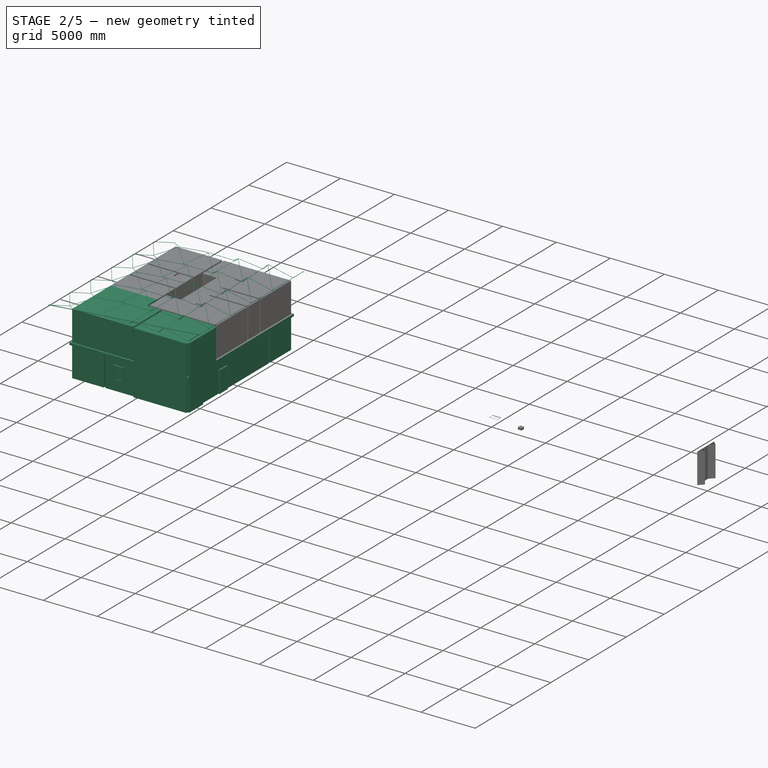
[diagram: stage 2 of 5 — iso view after this stage's code; geometry added in this stage tinted green]
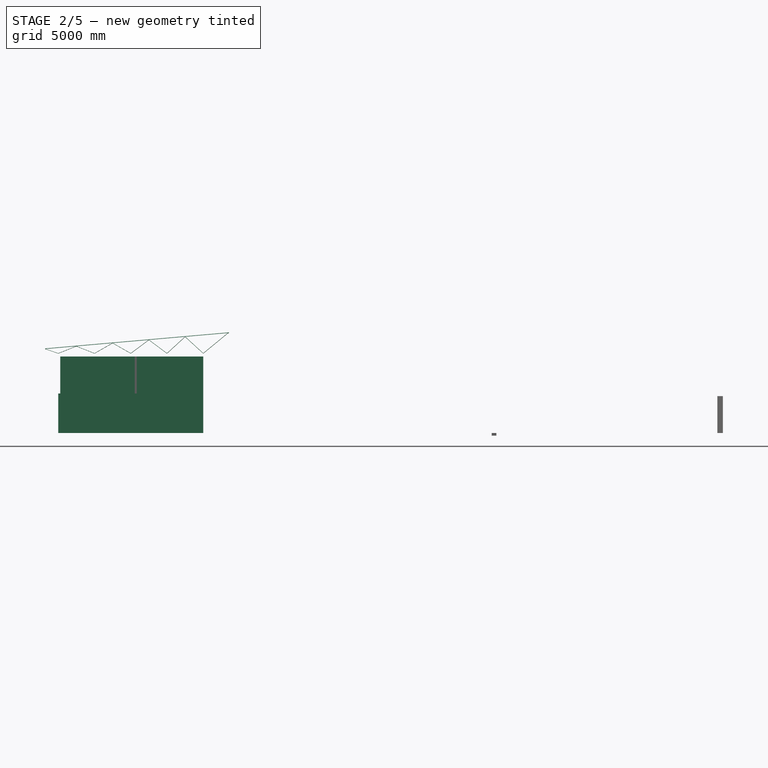
[diagram: stage 2 of 5 — front view after this stage's code; geometry added in this stage tinted green]
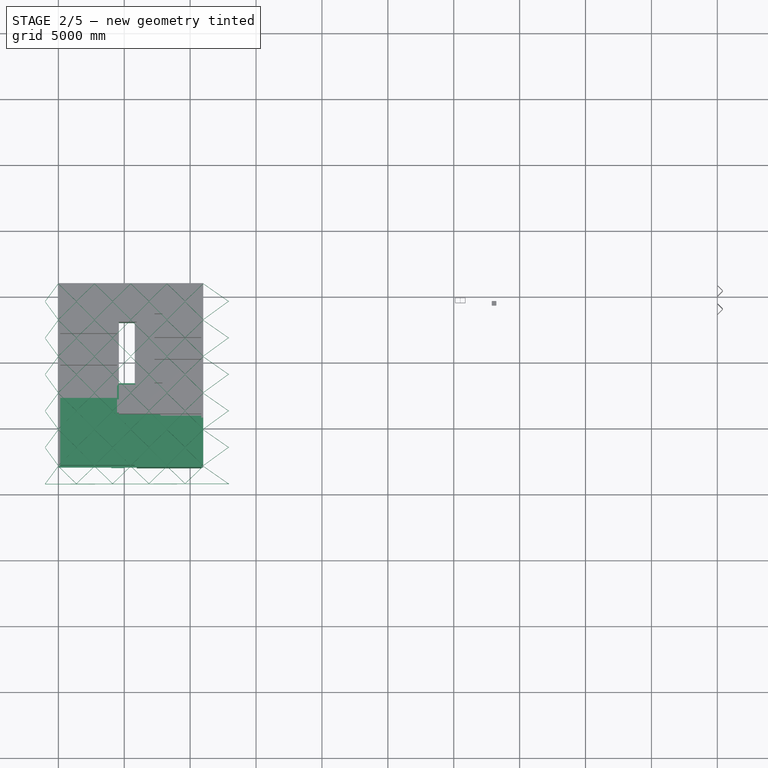
[diagram: stage 2 of 5 — top view after this stage's code; geometry added in this stage tinted green]
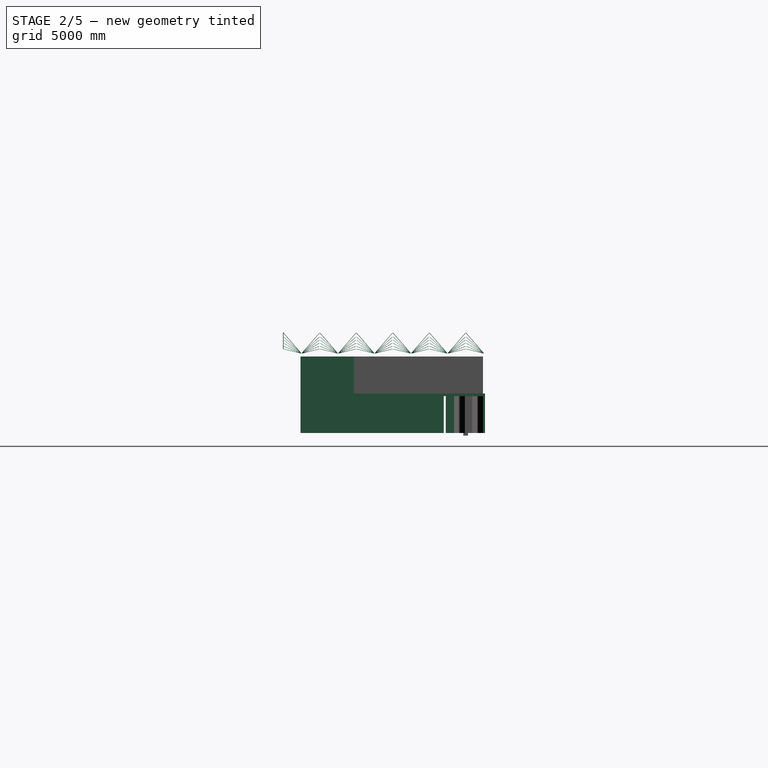
[diagram: stage 2 of 5 — right view after this stage's code; geometry added in this stage tinted green]
FEATURE [Part::FeaturePython] Structure019  # WARN: FeaturePython — macro-defined, semantics opaque (R4)
  Height = 6000
  Length = 150
  MoveWithHost = false
  Nodes = (2) [(0,0,0),(0,0,6000)]
  Normal = (0,0,0)
  Placement = pos=(10920,5900,0) rot=(0,0,1;0rad)
  Role = 1
  Width = 300
FEATURE [Part::Part2DObjectPython] DWire  # Draft 2D object (typed FeaturePython)
  ChamferSize = 0
  Closed = true
  End = (-5,13020,0)
  FilletRadius = 0
  Length = 50000
  MakeFace = true
  Points = (8) [(3094.66,13020,0),(3094.66,16000,0),(10995,16000,0),(10995,2000,0),(5795,2000,0),(3245,2000,0),(-5,2000,0),(-5,13020,0)]
  Start = (3094.66,13020,0)
FEATURE [Part::Part2DObjectPython] Line084  # Draft 2D object (typed FeaturePython)
  ChamferSize = 0
  Closed = false
  End = (6080,-2593.43,0.0001461)
  FilletRadius = 0
  Length = 21220.1
  MakeFace = true
  Placement = pos=(-4915,0.305262,0.0001461) rot=(0,0,1;0rad)
  Points = (2) [(10995,18626.4,0),(10995,-2593.73,0)]
  Start = (6080,18626.7,0.0001461)
FEATURE [Part::Part2DObjectPython] Line085  # Draft 2D object (typed FeaturePython)
  ChamferSize = 0
  Closed = false
  End = (-4920,499.046,0.0001461)
  FilletRadius = 0
  Length = 18816.3
  MakeFace = true
  Placement = pos=(-4915,0.305262,0.0001461) rot=(0,0,1;0rad)
  Points = (2) [(-5,19315,0),(-5,498.741,0)]
  Start = (-4920,19315.3,0.0001461)
FEATURE [Part::Part2DObjectPython] Line086  # Draft 2D object (typed FeaturePython)
  ChamferSize = 0
  Closed = false
  End = (-5909.06,2000.31,0.0001461)
  FilletRadius = 0
  Length = 13580.1
  MakeFace = true
  Placement = pos=(-4915,0.305262,0.0001461) rot=(0,0,1;0rad)
  Points = (2) [(12586,2000,0),(-994.058,2000,0)]
  Start = (7671.03,2000.31,0.0001461)
FEATURE [Part::Part2DObjectPython] Line087  # Draft 2D object (typed FeaturePython)
  ChamferSize = 0
  Closed = false
  End = (8231.98,16000.3,0.0001461)
  FilletRadius = 0
  Length = 16540.6
  MakeFace = true
  Placement = pos=(-4915,0.305262,0.0001461) rot=(0,0,1;0rad)
  Points = (2) [(-3393.63,16000,0),(13147,16000,0)]
  Start = (-8308.63,16000.3,0.0001461)
FEATURE [Part::Part2DObjectPython] Rectangle  # Draft 2D object (typed FeaturePython)
  ChamferSize = 0
  FilletRadius = 0
  Height = -14000
  Length = -11000
  MakeFace = true
  Placement = pos=(10995,16000,3000) rot=(0,0,1;0rad)
FEATURE [Part::Extrusion] Extrusion001  label="level 2 slab"
  Base = -> Rectangle
  Dir = (0,0,-200)
  Solid = true
FEATURE [Part::Part2DObjectPython] Line090  # Draft 2D object (typed FeaturePython)
  ChamferSize = 0
  Closed = false
  End = (880.002,20292.4,3000)
  FilletRadius = 0
  Length = 21199.3
  MakeFace = true
  Placement = pos=(-4915,0.305262,0.0001461) rot=(0,0,1;0rad)
  Points = (2) [(5795,-907.189,3000),(5795,20292.1,3000)]
  Start = (880.002,-906.884,3000)
FEATURE [Part::Part2DObjectPython] Line091  # Draft 2D object (typed FeaturePython)
  ChamferSize = 0
  Closed = false
  End = (-319.998,19324.2,3000)
  FilletRadius = 0
  Length = 18775.6
  MakeFace = true
  Placement = pos=(-4915,0.305262,0.0001461) rot=(0,0,1;0rad)
  Points = (2) [(4595,548.288,3000),(4595,19323.9,3000)]
  Start = (-319.998,548.593,3000)
FEATURE [Part::Part2DObjectPython] Line092  # Draft 2D object (typed FeaturePython)
  ChamferSize = 0
  Closed = false
  End = (-6405.68,13020.3,3000)
  FilletRadius = 0
  Length = 13409.8
  MakeFace = true
  Placement = pos=(-4915,0.305262,0.0001461) rot=(0,0,1;0rad)
  Points = (2) [(11919.1,13020,3000),(-1490.68,13020,3000)]
  Start = (7004.15,13020.3,3000)
FEATURE [Part::Part2DObjectPython] Line093  # Draft 2D object (typed FeaturePython)
  ChamferSize = 0
  Closed = false
  End = (7233.23,8400.31,3000)
  FilletRadius = 0
  Length = 15139.7
  MakeFace = true
  Placement = pos=(-4915,0.305262,0.0001461) rot=(0,0,1;0rad)
  Points = (2) [(-2991.47,8400,3000),(12148.2,8400,3000)]
  Start = (-7906.46,8400.31,3000)
FEATURE [Part::Part2DObjectPython] Rectangle002  # Draft 2D object (typed FeaturePython)
  ChamferSize = 0
  FilletRadius = 0
  Height = -4620
  Length = 1200
  MakeFace = true
  Placement = pos=(4595,13020,3000) rot=(0,0,1;0rad)
FEATURE [Part::Extrusion] Extrusion003
  Base = -> Rectangle002
  Dir = (0,0,-200)
  Solid = true
FEATURE [Part::Cut] Cut  label="Floor Slab level 2"
  Base = -> Extrusion001
  Tool = -> Extrusion003
FEATURE [Sketcher::SketchObject] Sketch048
  Placement = pos=(7145,9592.53,3262.68) rot=(0.57735,-0.57735,-0.57735;2.0944rad)
  sketch-geometry (8):
    g0: LineSegment StartX=0 StartY=0 StartZ=0 EndX=1000 EndY=0 EndZ=0
    g1: LineSegment StartX=1000 StartY=0 StartZ=0 EndX=1000 EndY=2000 EndZ=0
    g2: LineSegment StartX=1000 StartY=2000 StartZ=0 EndX=0 EndY=2000 EndZ=0
    g3: LineSegment StartX=0 StartY=2000 StartZ=0 EndX=0 EndY=0 EndZ=0
    g4: LineSegment StartX=50 StartY=0 StartZ=0 EndX=950 EndY=0 EndZ=0
    g5: LineSegment StartX=950 StartY=0 StartZ=0 EndX=950 EndY=1950 EndZ=0
    g6: LineSegment StartX=950 StartY=1950 StartZ=0 EndX=50 EndY=1950 EndZ=0
    g7: LineSegment StartX=50 StartY=1950 StartZ=0 EndX=50 EndY=0 EndZ=0
  constraints (23):
    c: Coincident(g0,g1)
    c: Coincident(g1,g2)
    c: Coincident(g2,g3)
    c: Coincident(g3,g0)
    c: Horizontal(g0)
    c: Horizontal(g2)
    c: Vertical(g1)
    c: Vertical(g3)
    c: Coincident(g4,g5)
    c: Coincident(g5,g6)
    c: Coincident(g6,g7)
    c: Coincident(g7,g4)
    c: Horizontal(g4)
    c: Horizontal(g6)
    c: Vertical(g5)
    c: Vertical(g7)
    c: DistanceY(g1) = 2000
    c: DistanceX(g0) = 1000
    c: DistanceY(g6,g2) = 50
    c: DistanceX(g2,g6) = 50
    c: DistanceX(g4,g0) = 50
    c: DistanceY(g0,g4) = 0
    c: Coincident(g0,g-1)
FEATURE [Part::FeaturePython] Window040  label="Window038"  # WARN: FeaturePython — macro-defined, semantics opaque (R4)
  Base = -> Sketch048
  Height = 2000
  HoleDepth = 0
  MoveWithHost = true
  Normal = (1,0,0)
  Placement = pos=(0,357.471,-262.678) rot=(0,0,1;0rad)
  Preset = 6
  Role = 1
  Width = 1000
  WindowParts = OuterFrame | Frame | Wire0,Wire1 | 150.0 | 0.0 | Door | Solid panel | Wire1 | 50.0 | 50.0
FEATURE [Sketcher::SketchObject] Sketch051
  Placement = pos=(7145,11348.3,3088.52) rot=(0.57735,-0.57735,-0.57735;2.0944rad)
  sketch-geometry (8):
    g0: LineSegment StartX=0 StartY=0 StartZ=0 EndX=1000 EndY=0 EndZ=0
    g1: LineSegment StartX=1000 StartY=0 StartZ=0 EndX=1000 EndY=2000 EndZ=0
    g2: LineSegment StartX=1000 StartY=2000 StartZ=0 EndX=0 EndY=2000 EndZ=0
    g3: LineSegment StartX=0 StartY=2000 StartZ=0 EndX=0 EndY=0 EndZ=0
    g4: LineSegment StartX=50 StartY=0 StartZ=0 EndX=950 EndY=0 EndZ=0
    g5: LineSegment StartX=950 StartY=0 StartZ=0 EndX=950 EndY=1950 EndZ=0
    g6: LineSegment StartX=950 StartY=1950 StartZ=0 EndX=50 EndY=1950 EndZ=0
    g7: LineSegment StartX=50 StartY=1950 StartZ=0 EndX=50 EndY=0 EndZ=0
  constraints (23):
    c: Coincident(g0,g1)
    c: Coincident(g1,g2)
    c: Coincident(g2,g3)
    c: Coincident(g3,g0)
    c: Horizontal(g0)
    c: Horizontal(g2)
    c: Vertical(g1)
    c: Vertical(g3)
    c: Coincident(g4,g5)
    c: Coincident(g5,g6)
    c: Coincident(g6,g7)
    c: Coincident(g7,g4)
    c: Horizontal(g4)
    c: Horizontal(g6)
    c: Vertical(g5)
    c: Vertical(g7)
    c: DistanceY(g1) = 2000
    c: DistanceX(g0) = 1000
    c: DistanceY(g6,g2) = 50
    c: DistanceX(g2,g6) = 50
    c: DistanceX(g4,g0) = 50
    c: DistanceY(g0,g4) = 0
    c: Coincident(g0,g-1)
FEATURE [Part::FeaturePython] Window041  label="Window039"  # WARN: FeaturePython — macro-defined, semantics opaque (R4)
  Base = -> Sketch051
  Height = 2000
  HoleDepth = 0
  MoveWithHost = true
  Normal = (1,0,0)
  Placement = pos=(0,-51.0527,-88.5159) rot=(0,0,1;0rad)
  Preset = 6
  Role = 1
  Width = 1000
  WindowParts = OuterFrame | Frame | Wire0,Wire1 | 150.0 | 0.0 | Door | Solid panel | Wire1 | 50.0 | 50.0
FEATURE [Sketcher::SketchObject] Sketch052
  Placement = pos=(7145,13328.9,3078.96) rot=(0.57735,-0.57735,-0.57735;2.0944rad)
  sketch-geometry (8):
    g0: LineSegment StartX=0 StartY=0 StartZ=0 EndX=1000 EndY=0 EndZ=0
    g1: LineSegment StartX=1000 StartY=0 StartZ=0 EndX=1000 EndY=2000 EndZ=0
    g2: LineSegment StartX=1000 StartY=2000 StartZ=0 EndX=0 EndY=2000 EndZ=0
    g3: LineSegment StartX=0 StartY=2000 StartZ=0 EndX=0 EndY=0 EndZ=0
    g4: LineSegment StartX=50 StartY=0 StartZ=0 EndX=950 EndY=0 EndZ=0
    g5: LineSegment StartX=950 StartY=0 StartZ=0 EndX=950 EndY=1950 EndZ=0
    g6: LineSegment StartX=950 StartY=1950 StartZ=0 EndX=50 EndY=1950 EndZ=0
    g7: LineSegment StartX=50 StartY=1950 StartZ=0 EndX=50 EndY=0 EndZ=0
  constraints (23):
    c: Coincident(g0,g1)
    c: Coincident(g1,g2)
    c: Coincident(g2,g3)
    c: Coincident(g3,g0)
    c: Horizontal(g0)
    c: Horizontal(g2)
    c: Vertical(g1)
    c: Vertical(g3)
    c: Coincident(g4,g5)
    c: Coincident(g5,g6)
    c: Coincident(g6,g7)
    c: Coincident(g7,g4)
    c: Horizontal(g4)
    c: Horizontal(g6)
    c: Vertical(g5)
    c: Vertical(g7)
    c: DistanceY(g1) = 2000
    c: DistanceX(g0) = 1000
    c: DistanceY(g6,g2) = 50
    c: DistanceX(g2,g6) = 50
    c: DistanceX(g4,g0) = 50
    c: DistanceY(g0,g4) = 0
    c: Coincident(g0,g-1)
FEATURE [Part::FeaturePython] Window042  label="Window040"  # WARN: FeaturePython — macro-defined, semantics opaque (R4)
  Base = -> Sketch052
  Height = 2000
  HoleDepth = 0
  MoveWithHost = true
  Normal = (1,0,0)
  Placement = pos=(0,-383.989,-78.9607) rot=(0,0,1;0rad)
  Preset = 6
  Role = 1
  Width = 1000
  WindowParts = OuterFrame | Frame | Wire0,Wire1 | 150.0 | 0.0 | Door | Solid panel | Wire1 | 50.0 | 50.0
FEATURE [Part::FeaturePython] Wall052  # WARN: FeaturePython — macro-defined, semantics opaque (R4)
  Align = 1
  Base = -> Line040
  Face = 0
  Height = 2800
  Length = 0
  MoveWithHost = false
  Normal = (0,0,0)
  Role = 0
  Subtractions = -> [Window040,Window041,Window042]
  Width = 150
FEATURE [Part::Part2DObjectPython] Line319  # Draft 2D object (typed FeaturePython)
  ChamferSize = 0
  Closed = false
  End = (-997.913,3440,6373.08)
  FilletRadius = 0
  Length = 1703.49
  MakeFace = true
  Placement = pos=(0,40,0) rot=(0,0,1;0rad)
  Points = (2) [(-7,2055,6040),(-997.913,3400,6373.08)]
  Start = (-7,2095,6040)
FEATURE [Part::Part2DObjectPython] Line320  # Draft 2D object (typed FeaturePython)
  ChamferSize = 0
  Closed = false
  End = (1367.8,3440,6580.38)
  FilletRadius = 0
  Length = 1997.77
  MakeFace = true
  Placement = pos=(0,40,0) rot=(0,0,1;0rad)
  Points = (2) [(-7,2055,6040),(1367.8,3400,6580.38)]
  Start = (-7,2095,6040)
FEATURE [Part::Part2DObjectPython] Line321  # Draft 2D object (typed FeaturePython)
  ChamferSize = 0
  Closed = false
  End = (2743,2095,6040)
  FilletRadius = 0
  Length = 1998.05
  MakeFace = true
  Placement = pos=(0,40,0) rot=(0,0,1;0rad)
  Points = (2) [(1367.8,3400,6580.38),(2743,2055,6040)]
  Start = (1367.8,3440,6580.38)
FEATURE [Part::Part2DObjectPython] Line322  # Draft 2D object (typed FeaturePython)
  ChamferSize = 0
  Closed = false
  End = (4117.8,3440,6820.82)
  FilletRadius = 0
  Length = 2075.76
  MakeFace = true
  Placement = pos=(0,40,0) rot=(0,0,1;0rad)
  Points = (2) [(2743,2055,6040),(4117.8,3400,6820.82)]
  Start = (2743,2095,6040)
FEATURE [Part::Part2DObjectPython] Line323  # Draft 2D object (typed FeaturePython)
  ChamferSize = 0
  Closed = false
  End = (5493,2095,6040)
  FilletRadius = 0
  Length = 2076.03
  MakeFace = true
  Placement = pos=(0,40,0) rot=(0,0,1;0rad)
  Points = (2) [(4117.8,3400,6820.82),(5493,2055,6040)]
  Start = (4117.8,3440,6820.82)
FEATURE [Part::Part2DObjectPython] Line324  # Draft 2D object (typed FeaturePython)
  ChamferSize = 0
  Closed = false
  End = (6867.8,3440,7061.24)
  FilletRadius = 0
  Length = 2177.62
  MakeFace = true
  Placement = pos=(0,40,0) rot=(0,0,1;0rad)
  Points = (2) [(5493,2055,6040),(6867.8,3400,7061.24)]
  Start = (5493,2095,6040)
FEATURE [Part::Part2DObjectPython] Line325  # Draft 2D object (typed FeaturePython)
  ChamferSize = 0
  Closed = false
  End = (8243,2095,6040)
  FilletRadius = 0
  Length = 2177.88
  MakeFace = true
  Placement = pos=(0,40,0) rot=(0,0,1;0rad)
  Points = (2) [(6867.8,3400,7061.24),(8243,2055,6040)]
  Start = (6867.8,3440,7061.24)
FEATURE [Part::Part2DObjectPython] Line326  # Draft 2D object (typed FeaturePython)
  ChamferSize = 0
  Closed = false
  End = (9617.8,3440,7301.52)
  FilletRadius = 0
  Length = 2300.11
  MakeFace = true
  Placement = pos=(0,40,0) rot=(0,0,1;0rad)
  Points = (2) [(8243,2055,6040),(9617.8,3400,7301.52)]
  Start = (8243,2095,6040)
FEATURE [Part::Part2DObjectPython] Line327  # Draft 2D object (typed FeaturePython)
  ChamferSize = 0
  Closed = false
  End = (10993,2095,6040)
  FilletRadius = 0
  Length = 2300.36
  MakeFace = true
  Placement = pos=(0,40,0) rot=(0,0,1;0rad)
  Points = (2) [(9617.8,3400,7301.52),(10993,2055,6040)]
  Start = (9617.8,3440,7301.52)
FEATURE [Part::Part2DObjectPython] Line328  # Draft 2D object (typed FeaturePython)
  ChamferSize = 0
  Closed = false
  End = (12877.8,3440,7588.41)
  FilletRadius = 0
  Length = 2785.51
  MakeFace = true
  Placement = pos=(0,40,0) rot=(0,0,1;0rad)
  Points = (2) [(10993,2055,6040),(12877.8,3400,7588.41)]
  Start = (10993,2095,6040)
FEATURE [Part::Part2DObjectPython] Line329  # Draft 2D object (typed FeaturePython)
  ChamferSize = 0
  Closed = false
  End = (10993,4865,6040)
  FilletRadius = 0
  Length = 2300.36
  MakeFace = true
  Placement = pos=(0,2810,0) rot=(0,0,1;0rad)
  Points = (2) [(9617.8,3400,7301.52),(10993,2055,6040)]
  Start = (9617.8,6210,7301.52)
FEATURE [Part::Part2DObjectPython] Line330  # Draft 2D object (typed FeaturePython)
  ChamferSize = 0
  Closed = false
  End = (12877.8,6210,7588.41)
  FilletRadius = 0
  Length = 2785.51
  MakeFace = true
  Placement = pos=(0,2810,0) rot=(0,0,1;0rad)
  Points = (2) [(10993,2055,6040),(12877.8,3400,7588.41)]
  Start = (10993,4865,6040)
FEATURE [Part::Part2DObjectPython] Line331  # Draft 2D object (typed FeaturePython)
  ChamferSize = 0
  Closed = false
  End = (9617.8,6210,7301.52)
  FilletRadius = 0
  Length = 2300.11
  MakeFace = true
  Placement = pos=(0,2810,0) rot=(0,0,1;0rad)
  Points = (2) [(8243,2055,6040),(9617.8,3400,7301.52)]
  Start = (8243,4865,6040)
FEATURE [Part::Part2DObjectPython] Line332  # Draft 2D object (typed FeaturePython)
  ChamferSize = 0
  Closed = false
  End = (8243,4865,6040)
  FilletRadius = 0
  Length = 2177.88
  MakeFace = true
  Placement = pos=(0,2810,0) rot=(0,0,1;0rad)
  Points = (2) [(6867.8,3400,7061.24),(8243,2055,6040)]
  Start = (6867.8,6210,7061.24)
FEATURE [Part::Part2DObjectPython] Line333  # Draft 2D object (typed FeaturePython)
  ChamferSize = 0
  Closed = false
  End = (6867.8,6210,7061.24)
  FilletRadius = 0
  Length = 2177.62
  MakeFace = true
  Placement = pos=(0,2810,0) rot=(0,0,1;0rad)
  Points = (2) [(5493,2055,6040),(6867.8,3400,7061.24)]
  Start = (5493,4865,6040)
FEATURE [Part::Part2DObjectPython] Line334  # Draft 2D object (typed FeaturePython)
  ChamferSize = 0
  Closed = false
  End = (5493,4865,6040)
  FilletRadius = 0
  Length = 2076.03
  MakeFace = true
  Placement = pos=(0,2810,0) rot=(0,0,1;0rad)
  Points = (2) [(4117.8,3400,6820.82),(5493,2055,6040)]
  Start = (4117.8,6210,6820.82)
FEATURE [Part::Part2DObjectPython] Line335  # Draft 2D object (typed FeaturePython)
  ChamferSize = 0
  Closed = false
  End = (4117.8,6210,6820.82)
  FilletRadius = 0
  Length = 2075.76
  MakeFace = true
  Placement = pos=(0,2810,0) rot=(0,0,1;0rad)
  Points = (2) [(2743,2055,6040),(4117.8,3400,6820.82)]
  Start = (2743,4865,6040)
FEATURE [Part::Part2DObjectPython] Line336  # Draft 2D object (typed FeaturePython)
  ChamferSize = 0
  Closed = false
  End = (2743,4865,6040)
  FilletRadius = 0
  Length = 1998.05
  MakeFace = true
  Placement = pos=(0,2810,0) rot=(0,0,1;0rad)
  Points = (2) [(1367.8,3400,6580.38),(2743,2055,6040)]
  Start = (1367.8,6210,6580.38)
FEATURE [Part::Part2DObjectPython] Line337  # Draft 2D object (typed FeaturePython)
  ChamferSize = 0
  Closed = false
  End = (1367.8,6210,6580.38)
  FilletRadius = 0
  Length = 1997.77
  MakeFace = true
  Placement = pos=(0,2810,0) rot=(0,0,1;0rad)
  Points = (2) [(-7,2055,6040),(1367.8,3400,6580.38)]
  Start = (-7,4865,6040)
FEATURE [Part::Part2DObjectPython] Line338  # Draft 2D object (typed FeaturePython)
  ChamferSize = 0
  Closed = false
  End = (-997.913,6210,6373.08)
  FilletRadius = 0
  Length = 1703.49
  MakeFace = true
  Placement = pos=(0,2810,0) rot=(0,0,1;0rad)
  Points = (2) [(-7,2055,6040),(-997.913,3400,6373.08)]
  Start = (-7,4865,6040)
FEATURE [Part::Part2DObjectPython] Line339  # Draft 2D object (typed FeaturePython)
  ChamferSize = 0
  Closed = false
  End = (1368.2,3480,6580.22)
  FilletRadius = 0
  Length = 1998.01
  MakeFace = true
  Placement = pos=(0,2770,0) rot=(0,0,1;0rad)
  Points = (2) [(-7,2055,6040),(1368.2,710,6580.22)]
  Start = (-7,4825,6040)
FEATURE [Part::Part2DObjectPython] Line340  # Draft 2D object (typed FeaturePython)
  ChamferSize = 0
  Closed = false
  End = (-7,4825,6040)
  FilletRadius = 0
  Length = 1703.35
  MakeFace = true
  Placement = pos=(0,2770,0) rot=(0,0,1;0rad)
  Points = (2) [(-997.708,710,6373),(-7,2055,6040)]
  Start = (-997.708,3480,6373)
FEATURE [Part::Part2DObjectPython] Line341  # Draft 2D object (typed FeaturePython)
  ChamferSize = 0
  Closed = false
  End = (2743,4825,6040)
  FilletRadius = 0
  Length = 1997.89
  MakeFace = true
  Placement = pos=(0,2770,0) rot=(0,0,1;0rad)
  Points = (2) [(1368,710,6580.3),(2743,2055,6040)]
  Start = (1368,3480,6580.3)
FEATURE [Part::Part2DObjectPython] Line342  # Draft 2D object (typed FeaturePython)
  ChamferSize = 0
  Closed = false
  End = (4118,3480,6820.74)
  FilletRadius = 0
  Length = 2075.86
  MakeFace = true
  Placement = pos=(0,2770,0) rot=(0,0,1;0rad)
  Points = (2) [(2743,2055,6040),(4118,710,6820.74)]
  Start = (2743,4825,6040)
FEATURE [Part::Part2DObjectPython] Line343  # Draft 2D object (typed FeaturePython)
  ChamferSize = 0
  Closed = false
  End = (5493,4825,6040)
  FilletRadius = 0
  Length = 2075.86
  MakeFace = true
  Placement = pos=(0,2770,0) rot=(0,0,1;0rad)
  Points = (2) [(4118,710,6820.74),(5493,2055,6040)]
  Start = (4118,3480,6820.74)
FEATURE [Part::Part2DObjectPython] Line344  # Draft 2D object (typed FeaturePython)
  ChamferSize = 0
  Closed = false
  End = (6868,3480,7061.16)
  FilletRadius = 0
  Length = 2177.71
  MakeFace = true
  Placement = pos=(0,2770,0) rot=(0,0,1;0rad)
  Points = (2) [(5493,2055,6040),(6868,710,7061.16)]
  Start = (5493,4825,6040)
FEATURE [Part::Part2DObjectPython] Line345  # Draft 2D object (typed FeaturePython)
  ChamferSize = 0
  Closed = false
  End = (8243,4825,6040)
  FilletRadius = 0
  Length = 2177.71
  MakeFace = true
  Placement = pos=(0,2770,0) rot=(0,0,1;0rad)
  Points = (2) [(6868,710,7061.16),(8243,2055,6040)]
  Start = (6868,3480,7061.16)
FEATURE [Part::Part2DObjectPython] Line346  # Draft 2D object (typed FeaturePython)
  ChamferSize = 0
  Closed = false
  End = (9618,3480,7301.44)
  FilletRadius = 0
  Length = 2300.19
  MakeFace = true
  Placement = pos=(0,2770,0) rot=(0,0,1;0rad)
  Points = (2) [(8243,2055,6040),(9618,710,7301.44)]
  Start = (8243,4825,6040)
FEATURE [Part::Part2DObjectPython] Line347  # Draft 2D object (typed FeaturePython)
  ChamferSize = 0
  Closed = false
  End = (10993,4825,6040)
  FilletRadius = 0
  Length = 2300.19
  MakeFace = true
  Placement = pos=(0,2770,0) rot=(0,0,1;0rad)
  Points = (2) [(9618,710,7301.44),(10993,2055,6040)]
  Start = (9618,3480,7301.44)
FEATURE [Part::Part2DObjectPython] Line348  # Draft 2D object (typed FeaturePython)
  ChamferSize = 0
  Closed = false
  End = (12878,3480,7588.33)
  FilletRadius = 0
  Length = 2785.6
  MakeFace = true
  Placement = pos=(0,2770,0) rot=(0,0,1;0rad)
  Points = (2) [(10993,2055,6040),(12878,710,7588.33)]
  Start = (10993,4825,6040)
FEATURE [Part::Part2DObjectPython] Line349  # Draft 2D object (typed FeaturePython)
  ChamferSize = 0
  Closed = false
  End = (12877.8,8980,7588.41)
  FilletRadius = 0
  Length = 2785.51
  MakeFace = true
  Placement = pos=(0,5580,0) rot=(0,0,1;0rad)
  Points = (2) [(10993,2055,6040),(12877.8,3400,7588.41)]
  Start = (10993,7635,6040)
FEATURE [Part::Part2DObjectPython] Line350  # Draft 2D object (typed FeaturePython)
  ChamferSize = 0
  Closed = false
  End = (10993,7635,6040)
  FilletRadius = 0
  Length = 2300.36
  MakeFace = true
  Placement = pos=(0,5580,0) rot=(0,0,1;0rad)
  Points = (2) [(9617.8,3400,7301.52),(10993,2055,6040)]
  Start = (9617.8,8980,7301.52)
FEATURE [Part::Part2DObjectPython] Line351  # Draft 2D object (typed FeaturePython)
  ChamferSize = 0
  Closed = false
  End = (9617.8,8980,7301.52)
  FilletRadius = 0
  Length = 2300.11
  MakeFace = true
  Placement = pos=(0,5580,0) rot=(0,0,1;0rad)
  Points = (2) [(8243,2055,6040),(9617.8,3400,7301.52)]
  Start = (8243,7635,6040)
FEATURE [Part::Part2DObjectPython] Line352  # Draft 2D object (typed FeaturePython)
  ChamferSize = 0
  Closed = false
  End = (8243,7635,6040)
  FilletRadius = 0
  Length = 2177.88
  MakeFace = true
  Placement = pos=(0,5580,0) rot=(0,0,1;0rad)
  Points = (2) [(6867.8,3400,7061.24),(8243,2055,6040)]
  Start = (6867.8,8980,7061.24)
FEATURE [Part::Part2DObjectPython] Line353  # Draft 2D object (typed FeaturePython)
  ChamferSize = 0
  Closed = false
  End = (6867.8,8980,7061.24)
  FilletRadius = 0
  Length = 2177.62
  MakeFace = true
  Placement = pos=(0,5580,0) rot=(0,0,1;0rad)
  Points = (2) [(5493,2055,6040),(6867.8,3400,7061.24)]
  Start = (5493,7635,6040)
FEATURE [Part::Part2DObjectPython] Line354  # Draft 2D object (typed FeaturePython)
  ChamferSize = 0
  Closed = false
  End = (5493,7635,6040)
  FilletRadius = 0
  Length = 2076.03
  MakeFace = true
  Placement = pos=(0,5580,0) rot=(0,0,1;0rad)
  Points = (2) [(4117.8,3400,6820.82),(5493,2055,6040)]
  Start = (4117.8,8980,6820.82)
FEATURE [Part::Part2DObjectPython] Line355  # Draft 2D object (typed FeaturePython)
  ChamferSize = 0
  Closed = false
  End = (4117.8,8980,6820.82)
  FilletRadius = 0
  Length = 2075.76
  MakeFace = true
  Placement = pos=(0,5580,0) rot=(0,0,1;0rad)
  Points = (2) [(2743,2055,6040),(4117.8,3400,6820.82)]
  Start = (2743,7635,6040)
FEATURE [Part::Part2DObjectPython] Line356  # Draft 2D object (typed FeaturePython)
  ChamferSize = 0
  Closed = false
  End = (2743,7635,6040)
  FilletRadius = 0
  Length = 1998.05
  MakeFace = true
  Placement = pos=(0,5580,0) rot=(0,0,1;0rad)
  Points = (2) [(1367.8,3400,6580.38),(2743,2055,6040)]
  Start = (1367.8,8980,6580.38)
FEATURE [Part::Part2DObjectPython] Line357  # Draft 2D object (typed FeaturePython)
  ChamferSize = 0
  Closed = false
  End = (1367.8,8980,6580.38)
  FilletRadius = 0
  Length = 1997.77
  MakeFace = true
  Placement = pos=(0,5580,0) rot=(0,0,1;0rad)
  Points = (2) [(-7,2055,6040),(1367.8,3400,6580.38)]
  Start = (-7,7635,6040)
FEATURE [Part::Part2DObjectPython] Line358  # Draft 2D object (typed FeaturePython)
  ChamferSize = 0
  Closed = false
  End = (-997.913,8980,6373.08)
  FilletRadius = 0
  Length = 1703.49
  MakeFace = true
  Placement = pos=(0,5580,0) rot=(0,0,1;0rad)
  Points = (2) [(-7,2055,6040),(-997.913,3400,6373.08)]
  Start = (-7,7635,6040)
FEATURE [Part::Part2DObjectPython] Line359  # Draft 2D object (typed FeaturePython)
  ChamferSize = 0
  Closed = false
  End = (-7,7595,6040)
  FilletRadius = 0
  Length = 1703.35
  MakeFace = true
  Placement = pos=(0,5540,0) rot=(0,0,1;0rad)
  Points = (2) [(-997.708,710,6373),(-7,2055,6040)]
  Start = (-997.708,6250,6373)
FEATURE [Part::Part2DObjectPython] Line360  # Draft 2D object (typed FeaturePython)
  ChamferSize = 0
  Closed = false
  End = (1368.2,6250,6580.22)
  FilletRadius = 0
  Length = 1998.01
  MakeFace = true
  Placement = pos=(0,5540,0) rot=(0,0,1;0rad)
  Points = (2) [(-7,2055,6040),(1368.2,710,6580.22)]
  Start = (-7,7595,6040)
FEATURE [Part::Part2DObjectPython] Line361  # Draft 2D object (typed FeaturePython)
  ChamferSize = 0
  Closed = false
  End = (2743,7595,6040)
  FilletRadius = 0
  Length = 1997.89
  MakeFace = true
  Placement = pos=(0,5540,0) rot=(0,0,1;0rad)
  Points = (2) [(1368,710,6580.3),(2743,2055,6040)]
  Start = (1368,6250,6580.3)
FEATURE [Part::Part2DObjectPython] Line362  # Draft 2D object (typed FeaturePython)
  ChamferSize = 0
  Closed = false
  End = (4118,6250,6820.74)
  FilletRadius = 0
  Length = 2075.86
  MakeFace = true
  Placement = pos=(0,5540,0) rot=(0,0,1;0rad)
  Points = (2) [(2743,2055,6040),(4118,710,6820.74)]
  Start = (2743,7595,6040)
FEATURE [Part::Part2DObjectPython] Line363  # Draft 2D object (typed FeaturePython)
  ChamferSize = 0
  Closed = false
  End = (5493,7595,6040)
  FilletRadius = 0
  Length = 2075.86
  MakeFace = true
  Placement = pos=(0,5540,0) rot=(0,0,1;0rad)
  Points = (2) [(4118,710,6820.74),(5493,2055,6040)]
  Start = (4118,6250,6820.74)
FEATURE [Part::Part2DObjectPython] Line364  # Draft 2D object (typed FeaturePython)
  ChamferSize = 0
  Closed = false
  End = (6868,6250,7061.16)
  FilletRadius = 0
  Length = 2177.71
  MakeFace = true
  Placement = pos=(0,5540,0) rot=(0,0,1;0rad)
  Points = (2) [(5493,2055,6040),(6868,710,7061.16)]
  Start = (5493,7595,6040)
FEATURE [Part::Part2DObjectPython] Line365  # Draft 2D object (typed FeaturePython)
  ChamferSize = 0
  Closed = false
  End = (8243,7595,6040)
  FilletRadius = 0
  Length = 2177.71
  MakeFace = true
  Placement = pos=(0,5540,0) rot=(0,0,1;0rad)
  Points = (2) [(6868,710,7061.16),(8243,2055,6040)]
  Start = (6868,6250,7061.16)
FEATURE [Part::Part2DObjectPython] Line366  # Draft 2D object (typed FeaturePython)
  ChamferSize = 0
  Closed = false
  End = (9618,6250,7301.44)
  FilletRadius = 0
  Length = 2300.19
  MakeFace = true
  Placement = pos=(0,5540,0) rot=(0,0,1;0rad)
  Points = (2) [(8243,2055,6040),(9618,710,7301.44)]
  Start = (8243,7595,6040)
FEATURE [Part::Part2DObjectPython] Line367  # Draft 2D object (typed FeaturePython)
  ChamferSize = 0
  Closed = false
  End = (10993,7595,6040)
  FilletRadius = 0
  Length = 2300.19
  MakeFace = true
  Placement = pos=(0,5540,0) rot=(0,0,1;0rad)
  Points = (2) [(9618,710,7301.44),(10993,2055,6040)]
  Start = (9618,6250,7301.44)
FEATURE [Part::Part2DObjectPython] Line368  # Draft 2D object (typed FeaturePython)
  ChamferSize = 0
  Closed = false
  End = (12878,6250,7588.33)
  FilletRadius = 0
  Length = 2785.6
  MakeFace = true
  Placement = pos=(0,5540,0) rot=(0,0,1;0rad)
  Points = (2) [(10993,2055,6040),(12878,710,7588.33)]
  Start = (10993,7595,6040)
FEATURE [Part::Part2DObjectPython] Line369  # Draft 2D object (typed FeaturePython)
  ChamferSize = 0
  Closed = false
  End = (12878,9020,7588.33)
  FilletRadius = 0
  Length = 2785.6
  MakeFace = true
  Placement = pos=(0,8310,0) rot=(0,0,1;0rad)
  Points = (2) [(10993,2055,6040),(12878,710,7588.33)]
  Start = (10993,10365,6040)
FEATURE [Part::Part2DObjectPython] Line370  # Draft 2D object (typed FeaturePython)
  ChamferSize = 0
  Closed = false
  End = (12877.8,11750,7588.41)
  FilletRadius = 0
  Length = 2785.51
  MakeFace = true
  Placement = pos=(0,8350,0) rot=(0,0,1;0rad)
  Points = (2) [(10993,2055,6040),(12877.8,3400,7588.41)]
  Start = (10993,10405,6040)
FEATURE [Part::Part2DObjectPython] Line371  # Draft 2D object (typed FeaturePython)
  ChamferSize = 0
  Closed = false
  End = (10993,10405,6040)
  FilletRadius = 0
  Length = 2300.36
  MakeFace = true
  Placement = pos=(0,8350,0) rot=(0,0,1;0rad)
  Points = (2) [(9617.8,3400,7301.52),(10993,2055,6040)]
  Start = (9617.8,11750,7301.52)
FEATURE [Part::Part2DObjectPython] Line372  # Draft 2D object (typed FeaturePython)
  ChamferSize = 0
  Closed = false
  End = (10993,10365,6040)
  FilletRadius = 0
  Length = 2300.19
  MakeFace = true
  Placement = pos=(0,8310,0) rot=(0,0,1;0rad)
  Points = (2) [(9618,710,7301.44),(10993,2055,6040)]
  Start = (9618,9020,7301.44)
FEATURE [Part::Part2DObjectPython] Line373  # Draft 2D object (typed FeaturePython)
  ChamferSize = 0
  Closed = false
  End = (9618,9020,7301.44)
  FilletRadius = 0
  Length = 2300.19
  MakeFace = true
  Placement = pos=(0,8310,0) rot=(0,0,1;0rad)
  Points = (2) [(8243,2055,6040),(9618,710,7301.44)]
  Start = (8243,10365,6040)
FEATURE [Part::Part2DObjectPython] Line374  # Draft 2D object (typed FeaturePython)
  ChamferSize = 0
  Closed = false
  End = (9617.8,11750,7301.52)
  FilletRadius = 0
  Length = 2300.11
  MakeFace = true
  Placement = pos=(0,8350,0) rot=(0,0,1;0rad)
  Points = (2) [(8243,2055,6040),(9617.8,3400,7301.52)]
  Start = (8243,10405,6040)
FEATURE [Part::Part2DObjectPython] Line375  # Draft 2D object (typed FeaturePython)
  ChamferSize = 0
  Closed = false
  End = (8243,10405,6040)
  FilletRadius = 0
  Length = 2177.88
  MakeFace = true
  Placement = pos=(0,8350,0) rot=(0,0,1;0rad)
  Points = (2) [(6867.8,3400,7061.24),(8243,2055,6040)]
  Start = (6867.8,11750,7061.24)
FEATURE [Part::Part2DObjectPython] Line376  # Draft 2D object (typed FeaturePython)
  ChamferSize = 0
  Closed = false
  End = (8243,10365,6040)
  FilletRadius = 0
  Length = 2177.71
  MakeFace = true
  Placement = pos=(0,8310,0) rot=(0,0,1;0rad)
  Points = (2) [(6868,710,7061.16),(8243,2055,6040)]
  Start = (6868,9020,7061.16)
FEATURE [Part::Part2DObjectPython] Line377  # Draft 2D object (typed FeaturePython)
  ChamferSize = 0
  Closed = false
  End = (6868,9020,7061.16)
  FilletRadius = 0
  Length = 2177.71
  MakeFace = true
  Placement = pos=(0,8310,0) rot=(0,0,1;0rad)
  Points = (2) [(5493,2055,6040),(6868,710,7061.16)]
  Start = (5493,10365,6040)
FEATURE [Part::Part2DObjectPython] Line378  # Draft 2D object (typed FeaturePython)
  ChamferSize = 0
  Closed = false
  End = (6867.8,11750,7061.24)
  FilletRadius = 0
  Length = 2177.62
  MakeFace = true
  Placement = pos=(0,8350,0) rot=(0,0,1;0rad)
  Points = (2) [(5493,2055,6040),(6867.8,3400,7061.24)]
  Start = (5493,10405,6040)
FEATURE [Part::Part2DObjectPython] Line379  # Draft 2D object (typed FeaturePython)
  ChamferSize = 0
  Closed = false
  End = (5493,10405,6040)
  FilletRadius = 0
  Length = 2076.03
  MakeFace = true
  Placement = pos=(0,8350,0) rot=(0,0,1;0rad)
  Points = (2) [(4117.8,3400,6820.82),(5493,2055,6040)]
  Start = (4117.8,11750,6820.82)
FEATURE [Part::Part2DObjectPython] Line380  # Draft 2D object (typed FeaturePython)
  ChamferSize = 0
  Closed = false
  End = (5493,10365,6040)
  FilletRadius = 0
  Length = 2075.86
  MakeFace = true
  Placement = pos=(0,8310,0) rot=(0,0,1;0rad)
  Points = (2) [(4118,710,6820.74),(5493,2055,6040)]
  Start = (4118,9020,6820.74)
FEATURE [Part::Part2DObjectPython] Line381  # Draft 2D object (typed FeaturePython)
  ChamferSize = 0
  Closed = false
  End = (4118,9020,6820.74)
  FilletRadius = 0
  Length = 2075.86
  MakeFace = true
  Placement = pos=(0,8310,0) rot=(0,0,1;0rad)
  Points = (2) [(2743,2055,6040),(4118,710,6820.74)]
  Start = (2743,10365,6040)
FEATURE [Part::Part2DObjectPython] Line382  # Draft 2D object (typed FeaturePython)
  ChamferSize = 0
  Closed = false
  End = (4117.8,11750,6820.82)
  FilletRadius = 0
  Length = 2075.76
  MakeFace = true
  Placement = pos=(0,8350,0) rot=(0,0,1;0rad)
  Points = (2) [(2743,2055,6040),(4117.8,3400,6820.82)]
  Start = (2743,10405,6040)
FEATURE [Part::Part2DObjectPython] Line383  # Draft 2D object (typed FeaturePython)
  ChamferSize = 0
  Closed = false
  End = (2743,10405,6040)
  FilletRadius = 0
  Length = 1998.05
  MakeFace = true
  Placement = pos=(0,8350,0) rot=(0,0,1;0rad)
  Points = (2) [(1367.8,3400,6580.38),(2743,2055,6040)]
  Start = (1367.8,11750,6580.38)
FEATURE [Part::Part2DObjectPython] Line384  # Draft 2D object (typed FeaturePython)
  ChamferSize = 0
  Closed = false
  End = (2743,10365,6040)
  FilletRadius = 0
  Length = 1997.89
  MakeFace = true
  Placement = pos=(0,8310,0) rot=(0,0,1;0rad)
  Points = (2) [(1368,710,6580.3),(2743,2055,6040)]
  Start = (1368,9020,6580.3)
FEATURE [Part::Part2DObjectPython] Line385  # Draft 2D object (typed FeaturePython)
  ChamferSize = 0
  Closed = false
  End = (1368.2,9020,6580.22)
  FilletRadius = 0
  Length = 1998.01
  MakeFace = true
  Placement = pos=(0,8310,0) rot=(0,0,1;0rad)
  Points = (2) [(-7,2055,6040),(1368.2,710,6580.22)]
  Start = (-7,10365,6040)
FEATURE [Part::Part2DObjectPython] Line386  # Draft 2D object (typed FeaturePython)
  ChamferSize = 0
  Closed = false
  End = (1367.8,11750,6580.38)
  FilletRadius = 0
  Length = 1997.77
  MakeFace = true
  Placement = pos=(0,8350,0) rot=(0,0,1;0rad)
  Points = (2) [(-7,2055,6040),(1367.8,3400,6580.38)]
  Start = (-7,10405,6040)
FEATURE [Part::Part2DObjectPython] Line387  # Draft 2D object (typed FeaturePython)
  ChamferSize = 0
  Closed = false
  End = (-997.913,11750,6373.08)
  FilletRadius = 0
  Length = 1703.49
  MakeFace = true
  Placement = pos=(0,8350,0) rot=(0,0,1;0rad)
  Points = (2) [(-7,2055,6040),(-997.913,3400,6373.08)]
  Start = (-7,10405,6040)
FEATURE [Part::Part2DObjectPython] Line388  # Draft 2D object (typed FeaturePython)
  ChamferSize = 0
  Closed = false
  End = (-7,10365,6040)
  FilletRadius = 0
  Length = 1703.35
  MakeFace = true
  Placement = pos=(0,8310,0) rot=(0,0,1;0rad)
  Points = (2) [(-997.708,710,6373),(-7,2055,6040)]
  Start = (-997.708,9020,6373)
FEATURE [Part::Part2DObjectPython] Line399  # Draft 2D object (typed FeaturePython)
  ChamferSize = 0
  Closed = false
  End = (-7,15905,6040)
  FilletRadius = 0
  Length = 1703.35
  MakeFace = true
  Placement = pos=(0,13850,0) rot=(0,0,1;0rad)
  Points = (2) [(-997.708,710,6373),(-7,2055,6040)]
  Start = (-997.708,14560,6373)
FEATURE [Part::Part2DObjectPython] Line400  # Draft 2D object (typed FeaturePython)
  ChamferSize = 0
  Closed = false
  End = (1368.2,14560,6580.22)
  FilletRadius = 0
  Length = 1998.01
  MakeFace = true
  Placement = pos=(0,13850,0) rot=(0,0,1;0rad)
  Points = (2) [(-7,2055,6040),(1368.2,710,6580.22)]
  Start = (-7,15905,6040)
FEATURE [Part::Part2DObjectPython] Line401  # Draft 2D object (typed FeaturePython)
  ChamferSize = 0
  Closed = false
  End = (2743,15905,6040)
  FilletRadius = 0
  Length = 1997.89
  MakeFace = true
  Placement = pos=(0,13850,0) rot=(0,0,1;0rad)
  Points = (2) [(1368,710,6580.3),(2743,2055,6040)]
  Start = (1368,14560,6580.3)
FEATURE [Part::Part2DObjectPython] Line402  # Draft 2D object (typed FeaturePython)
  ChamferSize = 0
  Closed = false
  End = (4118,14560,6820.74)
  FilletRadius = 0
  Length = 2075.86
  MakeFace = true
  Placement = pos=(0,13850,0) rot=(0,0,1;0rad)
  Points = (2) [(2743,2055,6040),(4118,710,6820.74)]
  Start = (2743,15905,6040)
FEATURE [Part::Part2DObjectPython] Line403  # Draft 2D object (typed FeaturePython)
  ChamferSize = 0
  Closed = false
  End = (5493,15905,6040)
  FilletRadius = 0
  Length = 2075.86
  MakeFace = true
  Placement = pos=(0,13850,0) rot=(0,0,1;0rad)
  Points = (2) [(4118,710,6820.74),(5493,2055,6040)]
  Start = (4118,14560,6820.74)
FEATURE [Part::Part2DObjectPython] Line404  # Draft 2D object (typed FeaturePython)
  ChamferSize = 0
  Closed = false
  End = (6868,14560,7061.16)
  FilletRadius = 0
  Length = 2177.71
  MakeFace = true
  Placement = pos=(0,13850,0) rot=(0,0,1;0rad)
  Points = (2) [(5493,2055,6040),(6868,710,7061.16)]
  Start = (5493,15905,6040)
FEATURE [Part::Part2DObjectPython] Line405  # Draft 2D object (typed FeaturePython)
  ChamferSize = 0
  Closed = false
  End = (8243,15905,6040)
  FilletRadius = 0
  Length = 2177.71
  MakeFace = true
  Placement = pos=(0,13850,0) rot=(0,0,1;0rad)
  Points = (2) [(6868,710,7061.16),(8243,2055,6040)]
  Start = (6868,14560,7061.16)
FEATURE [Part::Part2DObjectPython] Line406  # Draft 2D object (typed FeaturePython)
  ChamferSize = 0
  Closed = false
  End = (9618,14560,7301.44)
  FilletRadius = 0
  Length = 2300.19
  MakeFace = true
  Placement = pos=(0,13850,0) rot=(0,0,1;0rad)
  Points = (2) [(8243,2055,6040),(9618,710,7301.44)]
  Start = (8243,15905,6040)
FEATURE [Part::Part2DObjectPython] Line407  # Draft 2D object (typed FeaturePython)
  ChamferSize = 0
  Closed = false
  End = (10993,15905,6040)
  FilletRadius = 0
  Length = 2300.19
  MakeFace = true
  Placement = pos=(0,13850,0) rot=(0,0,1;0rad)
  Points = (2) [(9618,710,7301.44),(10993,2055,6040)]
  Start = (9618,14560,7301.44)
FEATURE [Part::Part2DObjectPython] Line408  # Draft 2D object (typed FeaturePython)
  ChamferSize = 0
  Closed = false
  End = (12878,14560,7588.33)
  FilletRadius = 0
  Length = 2785.6
  MakeFace = true
  Placement = pos=(0,13850,0) rot=(0,0,1;0rad)
  Points = (2) [(10993,2055,6040),(12878,710,7588.33)]
  Start = (10993,15905,6040)
FEATURE [Part::Part2DObjectPython] Line409  # Draft 2D object (typed FeaturePython)
  ChamferSize = 0
  Closed = false
  End = (-997.913,14520,6373.08)
  FilletRadius = 0
  Length = 1703.49
  MakeFace = true
  Placement = pos=(0,11120,0) rot=(0,0,1;0rad)
  Points = (2) [(-7,2055,6040),(-997.913,3400,6373.08)]
  Start = (-7,13175,6040)
FEATURE [Part::Part2DObjectPython] Line410  # Draft 2D object (typed FeaturePython)
  ChamferSize = 0
  Closed = false
  End = (1367.8,14520,6580.38)
  FilletRadius = 0
  Length = 1997.77
  MakeFace = true
  Placement = pos=(0,11120,0) rot=(0,0,1;0rad)
  Points = (2) [(-7,2055,6040),(1367.8,3400,6580.38)]
  Start = (-7,13175,6040)
FEATURE [Part::Part2DObjectPython] Line411  # Draft 2D object (typed FeaturePython)
  ChamferSize = 0
  Closed = false
  End = (2743,13175,6040)
  FilletRadius = 0
  Length = 1998.05
  MakeFace = true
  Placement = pos=(0,11120,0) rot=(0,0,1;0rad)
  Points = (2) [(1367.8,3400,6580.38),(2743,2055,6040)]
  Start = (1367.8,14520,6580.38)
FEATURE [Part::Part2DObjectPython] Line412  # Draft 2D object (typed FeaturePython)
  ChamferSize = 0
  Closed = false
  End = (4117.8,14520,6820.82)
  FilletRadius = 0
  Length = 2075.76
  MakeFace = true
  Placement = pos=(0,11120,0) rot=(0,0,1;0rad)
  Points = (2) [(2743,2055,6040),(4117.8,3400,6820.82)]
  Start = (2743,13175,6040)
FEATURE [Part::Part2DObjectPython] Line413  # Draft 2D object (typed FeaturePython)
  ChamferSize = 0
  Closed = false
  End = (5493,13175,6040)
  FilletRadius = 0
  Length = 2076.03
  MakeFace = true
  Placement = pos=(0,11120,0) rot=(0,0,1;0rad)
  Points = (2) [(4117.8,3400,6820.82),(5493,2055,6040)]
  Start = (4117.8,14520,6820.82)
FEATURE [Part::Part2DObjectPython] Line414  # Draft 2D object (typed FeaturePython)
  ChamferSize = 0
  Closed = false
  End = (6867.8,14520,7061.24)
  FilletRadius = 0
  Length = 2177.62
  MakeFace = true
  Placement = pos=(0,11120,0) rot=(0,0,1;0rad)
  Points = (2) [(5493,2055,6040),(6867.8,3400,7061.24)]
  Start = (5493,13175,6040)
FEATURE [Part::Part2DObjectPython] Line415  # Draft 2D object (typed FeaturePython)
  ChamferSize = 0
  Closed = false
  End = (8243,13175,6040)
  FilletRadius = 0
  Length = 2177.88
  MakeFace = true
  Placement = pos=(0,11120,0) rot=(0,0,1;0rad)
  Points = (2) [(6867.8,3400,7061.24),(8243,2055,6040)]
  Start = (6867.8,14520,7061.24)
FEATURE [Part::Part2DObjectPython] Line416  # Draft 2D object (typed FeaturePython)
  ChamferSize = 0
  Closed = false
  End = (9617.8,14520,7301.52)
  FilletRadius = 0
  Length = 2300.11
  MakeFace = true
  Placement = pos=(0,11120,0) rot=(0,0,1;0rad)
  Points = (2) [(8243,2055,6040),(9617.8,3400,7301.52)]
  Start = (8243,13175,6040)
FEATURE [Part::Part2DObjectPython] Line417  # Draft 2D object (typed FeaturePython)
  ChamferSize = 0
  Closed = false
  End = (10993,13175,6040)
  FilletRadius = 0
  Length = 2300.36
  MakeFace = true
  Placement = pos=(0,11120,0) rot=(0,0,1;0rad)
  Points = (2) [(9617.8,3400,7301.52),(10993,2055,6040)]
  Start = (9617.8,14520,7301.52)
FEATURE [Part::Part2DObjectPython] Line418  # Draft 2D object (typed FeaturePython)
  ChamferSize = 0
  Closed = false
  End = (12877.8,14520,7588.41)
  FilletRadius = 0
  Length = 2785.51
  MakeFace = true
  Placement = pos=(0,11120,0) rot=(0,0,1;0rad)
  Points = (2) [(10993,2055,6040),(12877.8,3400,7588.41)]
  Start = (10993,13175,6040)
FEATURE [Part::Part2DObjectPython] Line419  # Draft 2D object (typed FeaturePython)
  ChamferSize = 0
  Closed = false
  End = (12878,11790,7588.33)
  FilletRadius = 0
  Length = 2785.6
  MakeFace = true
  Placement = pos=(0,11080,0) rot=(0,0,1;0rad)
  Points = (2) [(10993,2055,6040),(12878,710,7588.33)]
  Start = (10993,13135,6040)
FEATURE [Part::Part2DObjectPython] Line420  # Draft 2D object (typed FeaturePython)
  ChamferSize = 0
  Closed = false
  End = (10993,13135,6040)
  FilletRadius = 0
  Length = 2300.19
  MakeFace = true
  Placement = pos=(0,11080,0) rot=(0,0,1;0rad)
  Points = (2) [(9618,710,7301.44),(10993,2055,6040)]
  Start = (9618,11790,7301.44)
FEATURE [Part::Part2DObjectPython] Line421  # Draft 2D object (typed FeaturePython)
  ChamferSize = 0
  Closed = false
  End = (9618,11790,7301.44)
  FilletRadius = 0
  Length = 2300.19
  MakeFace = true
  Placement = pos=(0,11080,0) rot=(0,0,1;0rad)
  Points = (2) [(8243,2055,6040),(9618,710,7301.44)]
  Start = (8243,13135,6040)
FEATURE [Part::Part2DObjectPython] Line422  # Draft 2D object (typed FeaturePython)
  ChamferSize = 0
  Closed = false
  End = (8243,13135,6040)
  FilletRadius = 0
  Length = 2177.71
  MakeFace = true
  Placement = pos=(0,11080,0) rot=(0,0,1;0rad)
  Points = (2) [(6868,710,7061.16),(8243,2055,6040)]
  Start = (6868,11790,7061.16)
FEATURE [Part::Part2DObjectPython] Line423  # Draft 2D object (typed FeaturePython)
  ChamferSize = 0
  Closed = false
  End = (6868,11790,7061.16)
  FilletRadius = 0
  Length = 2177.71
  MakeFace = true
  Placement = pos=(0,11080,0) rot=(0,0,1;0rad)
  Points = (2) [(5493,2055,6040),(6868,710,7061.16)]
  Start = (5493,13135,6040)
FEATURE [Part::Part2DObjectPython] Line424  # Draft 2D object (typed FeaturePython)
  ChamferSize = 0
  Closed = false
  End = (5493,13135,6040)
  FilletRadius = 0
  Length = 2075.86
  MakeFace = true
  Placement = pos=(0,11080,0) rot=(0,0,1;0rad)
  Points = (2) [(4118,710,6820.74),(5493,2055,6040)]
  Start = (4118,11790,6820.74)
FEATURE [Part::Part2DObjectPython] Line425  # Draft 2D object (typed FeaturePython)
  ChamferSize = 0
  Closed = false
  End = (4118,11790,6820.74)
  FilletRadius = 0
  Length = 2075.86
  MakeFace = true
  Placement = pos=(0,11080,0) rot=(0,0,1;0rad)
  Points = (2) [(2743,2055,6040),(4118,710,6820.74)]
  Start = (2743,13135,6040)
FEATURE [Part::Part2DObjectPython] Line426  # Draft 2D object (typed FeaturePython)
  ChamferSize = 0
  Closed = false
  End = (2743,13135,6040)
  FilletRadius = 0
  Length = 1997.89
  MakeFace = true
  Placement = pos=(0,11080,0) rot=(0,0,1;0rad)
  Points = (2) [(1368,710,6580.3),(2743,2055,6040)]
  Start = (1368,11790,6580.3)
FEATURE [Part::Part2DObjectPython] Line427  # Draft 2D object (typed FeaturePython)
  ChamferSize = 0
  Closed = false
  End = (1368.2,11790,6580.22)
  FilletRadius = 0
  Length = 1998.01
  MakeFace = true
  Placement = pos=(0,11080,0) rot=(0,0,1;0rad)
  Points = (2) [(-7,2055,6040),(1368.2,710,6580.22)]
  Start = (-7,13135,6040)
FEATURE [Part::Part2DObjectPython] Line428  # Draft 2D object (typed FeaturePython)
  ChamferSize = 0
  Closed = false
  End = (-7,13135,6040)
  FilletRadius = 0
  Length = 1703.35
  MakeFace = true
  Placement = pos=(0,11080,0) rot=(0,0,1;0rad)
  Points = (2) [(-997.708,710,6373),(-7,2055,6040)]
  Start = (-997.708,11790,6373)
FEATURE [Part::Part2DObjectPython] Line429  # Draft 2D object (typed FeaturePython)
  ChamferSize = 0
  Closed = false
  End = (-7,15945,6040)
  FilletRadius = 0
  Length = 1402.36
  MakeFace = true
  Points = (2) [(-997.708,16880,6373),(-7,15945,6040)]
  Start = (-997.708,16880,6373)
FEATURE [Part::Part2DObjectPython] Line430  # Draft 2D object (typed FeaturePython)
  ChamferSize = 0
  Closed = false
  End = (1368,16880,6580.3)
  FilletRadius = 0
  Length = 1748.36
  MakeFace = true
  Points = (2) [(-7,15945,6040),(1368,16880,6580.3)]
  Start = (-7,15945,6040)
FEATURE [Part::Part2DObjectPython] Line431  # Draft 2D object (typed FeaturePython)
  ChamferSize = 0
  Closed = false
  End = (2743,15945,6040)
  FilletRadius = 0
  Length = 1748.36
  MakeFace = true
  Points = (2) [(1368,16880,6580.3),(2743,15945,6040)]
  Start = (1368,16880,6580.3)
FEATURE [Part::Part2DObjectPython] Line432  # Draft 2D object (typed FeaturePython)
  ChamferSize = 0
  Closed = false
  End = (4118,16880,6820.74)
  FilletRadius = 0
  Length = 1836.95
  MakeFace = true
  Points = (2) [(2743,15945,6040),(4118,16880,6820.74)]
  Start = (2743,15945,6040)
FEATURE [Part::Part2DObjectPython] Line433  # Draft 2D object (typed FeaturePython)
  ChamferSize = 0
  Closed = false
  End = (5493,15945,6040)
  FilletRadius = 0
  Length = 1836.95
  MakeFace = true
  Points = (2) [(4118,16880,6820.74),(5493,15945,6040)]
  Start = (4118,16880,6820.74)
FEATURE [Part::Part2DObjectPython] Line434  # Draft 2D object (typed FeaturePython)
  ChamferSize = 0
  Closed = false
  End = (6868,16880,7061.16)
  FilletRadius = 0
  Length = 1951.31
  MakeFace = true
  Points = (2) [(5493,15945,6040),(6868,16880,7061.16)]
  Start = (5493,15945,6040)
FEATURE [Part::Part2DObjectPython] Line435  # Draft 2D object (typed FeaturePython)
  ChamferSize = 0
  Closed = false
  End = (8243,15945,6040)
  FilletRadius = 0
  Length = 1951.31
  MakeFace = true
  Points = (2) [(6868,16880,7061.16),(8243,15945,6040)]
  Start = (6868,16880,7061.16)
FEATURE [Part::Part2DObjectPython] Line436  # Draft 2D object (typed FeaturePython)
  ChamferSize = 0
  Closed = false
  End = (9618,16880,7301.44)
  FilletRadius = 0
  Length = 2087.12
  MakeFace = true
  Points = (2) [(8243,15945,6040),(9618,16880,7301.44)]
  Start = (8243,15945,6040)
FEATURE [Part::Part2DObjectPython] Line437  # Draft 2D object (typed FeaturePython)
  ChamferSize = 0
  Closed = false
  End = (10993,15945,6040)
  FilletRadius = 0
  Length = 2087.12
  MakeFace = true
  Points = (2) [(9618,16880,7301.44),(10993,15945,6040)]
  Start = (9618,16880,7301.44)
FEATURE [Part::Part2DObjectPython] Line438  # Draft 2D object (typed FeaturePython)
  ChamferSize = 0
  Closed = false
  End = (12878,16880,7588.33)
  FilletRadius = 0
  Length = 2612.43
  MakeFace = true
  Points = (2) [(10993,15945,6040),(12878,16880,7588.33)]
  Start = (10993,15945,6040)
FEATURE [Part::Part2DObjectPython] DWire004  # Draft 2D object (typed FeaturePython)
  ChamferSize = 0
  Closed = false
  End = (12878,16880,7588.33)
  FilletRadius = 0
  Length = 16759
  MakeFace = true
  Placement = pos=(0,14825,-2617.17) rot=(0,0,1;0rad)
  Points = (11) [(-997.708,2055,8990.16),(-7,2055,8657.17),(1368,2055,9197.47),(2743,2055,8657.17),(4118,2055,9437.91),(5493,2055,8657.17),(6868,2055,9678.33),+4 more]
  Start = (-997.708,16880,6373)
FEATURE [Part::Part2DObjectPython] DWire003  # Draft 2D object (typed FeaturePython)
  ChamferSize = 0
  Closed = false
  End = (12878,2055,7588.33)
  FilletRadius = 0
  Length = 16759
  MakeFace = true
  Placement = pos=(0,-0.000155996,-2617.17) rot=(0,0,1;0rad)
  Points = (11) [(-997.708,2055,8990.16),(-7,2055,8657.17),(1368,2055,9197.47),(2743,2055,8657.17),(4118,2055,9437.91),(5493,2055,8657.17),(6868,2055,9678.33),+4 more]
  Start = (-997.708,2055,6373)
FEATURE [Part::Part2DObjectPython] Circle  # Draft 2D object (typed FeaturePython)
  FirstAngle = 0
  LastAngle = 0
  MakeFace = true
  Placement = pos=(12949,710,7588.33) rot=(0,1,0;1.5708rad)
  Radius = 15
FEATURE [Part::Part2DObjectPython] DWire017  # Draft 2D object (typed FeaturePython)
  ChamferSize = 0
  Closed = false
  End = (-997.708,710,6373)
  FilletRadius = 40
  Length = 21431.7
  MakeFace = true
  Points = (12) [(12949,710,7588.33),(12878,710,7588.33),(10993,2055,6040),(9618,710,7301.44),(8243,2055,6040),(6868,710,7061.16),(5493,2055,6040),(4118,710,6820.74),+4 more]
  Start = (12949,710,7588.33)
FEATURE [Part::Part2DObjectPython] DWire018  # Draft 2D object (typed FeaturePython)
  ChamferSize = 0
  Closed = false
  End = (12949,3440,7588.33)
  FilletRadius = 40
  Length = 21432.2
  MakeFace = true
  Points = (12) [(-997.913,3440,6373.08),(-7,2095,6040),(1367.8,3440,6580.38),(2743,2095,6040),(4117.8,3440,6820.82),(5493,2095,6040),(6867.8,3440,7061.24),+5 more]
  Start = (-997.913,3440,6373.08)
FEATURE [Part::Part2DObjectPython] DWire019  # Draft 2D object (typed FeaturePython)
  ChamferSize = 0
  Closed = false
  End = (12949,3480,7588.33)
  FilletRadius = 40
  Length = 21431.6
  MakeFace = true
  Points = (12) [(-997.708,3480,6373),(-7,4825,6040),(1368.2,3480,6580.22),(2743,4825,6040),(4118,3480,6820.74),(5493,4825,6040),(6868,3480,7061.16),(8243,4825,6040),+4 more]
  Start = (-997.708,3480,6373)
FEATURE [Part::Part2DObjectPython] DWire020  # Draft 2D object (typed FeaturePython)
  ChamferSize = 0
  Closed = false
  End = (12949,6210,7588.33)
  FilletRadius = 40
  Length = 21432.2
  MakeFace = true
  Points = (12) [(-997.913,6210,6373.08),(-7,4865,6040),(1367.8,6210,6580.38),(2743,4865,6040),(4117.8,6210,6820.82),(5493,4865,6040),(6867.8,6210,7061.24),+5 more]
  Start = (-997.913,6210,6373.08)
FEATURE [Part::Part2DObjectPython] DWire021  # Draft 2D object (typed FeaturePython)
  ChamferSize = 0
  Closed = false
  End = (12949,6250,7588.33)
  FilletRadius = 40
  Length = 21431.7
  MakeFace = true
  Points = (12) [(-997.708,6250,6373),(-7,7595,6040),(1368,6250,6580.3),(2743,7595,6040),(4118,6250,6820.74),(5493,7595,6040),(6868,6250,7061.16),(8243,7595,6040),+4 more]
  Start = (-997.708,6250,6373)
FEATURE [Part::Part2DObjectPython] DWire022  # Draft 2D object (typed FeaturePython)
  ChamferSize = 0
  Closed = false
  End = (12949,8980,7588.33)
  FilletRadius = 40
  Length = 21432.2
  MakeFace = true
  Points = (13) [(-997.913,8980,6373.08),(-7,7635,6040),(1367.8,8980,6580.38),(2743,7635,6040),(4117.8,8980,6820.82),(5493,7635,6040),(6867.8,8980,7061.24),+6 more]
  Start = (-997.913,8980,6373.08)
FEATURE [Part::Part2DObjectPython] DWire023  # Draft 2D object (typed FeaturePython)
  ChamferSize = 0
  Closed = false
  End = (12949,9020,7588.33)
  FilletRadius = 40
  Length = 21431.7
  MakeFace = true
  Points = (12) [(-997.708,9020,6373),(-7,10365,6040),(1368,9020,6580.3),(2743,10365,6040),(4118,9020,6820.74),(5493,10365,6040),(6868,9020,7061.16),(8243,10365,6040),+4 more]
  Start = (-997.708,9020,6373)
FEATURE [Part::Part2DObjectPython] DWire024  # Draft 2D object (typed FeaturePython)
  ChamferSize = 0
  Closed = false
  End = (12949,11750,7588.33)
  FilletRadius = 40
  Length = 21432.2
  MakeFace = true
  Points = (12) [(-997.913,11750,6373.08),(-7,10405,6040),(1367.8,11750,6580.38),(2743,10405,6040),(4117.8,11750,6820.82),(5493,10405,6040),(6867.8,11750,7061.24),+5 more]
  Start = (-997.913,11750,6373.08)
FEATURE [Part::Part2DObjectPython] DWire025  # Draft 2D object (typed FeaturePython)
  ChamferSize = 0
  Closed = false
  End = (12949,11790,7588.33)
  FilletRadius = 40
  Length = 21431.6
  MakeFace = true
  Points = (12) [(-997.708,11790,6373),(-7,13135,6040),(1368.2,11790,6580.22),(2743,13135,6040),(4118,11790,6820.74),(5493,13135,6040),(6868,11790,7061.16),+5 more]
  Start = (-997.708,11790,6373)
FEATURE [Part::Part2DObjectPython] DWire026  # Draft 2D object (typed FeaturePython)
  ChamferSize = 0
  Closed = false
  End = (12949,14520,7588.33)
  FilletRadius = 40
  Length = 21432.2
  MakeFace = true
  Points = (12) [(-997.913,14520,6373.08),(-7,13175,6040),(1367.8,14520,6580.38),(2743,13175,6040),(4117.8,14520,6820.82),(5493,13175,6040),(6867.8,14520,7061.24),+5 more]
  Start = (-997.913,14520,6373.08)
FEATURE [Part::Part2DObjectPython] DWire027  # Draft 2D object (typed FeaturePython)
  ChamferSize = 0
  Closed = false
  End = (12949,14560,7588.33)
  FilletRadius = 40
  Length = 21431.6
  MakeFace = true
  Points = (12) [(-997.708,14560,6373),(-7,15905,6040),(1368.2,14560,6580.22),(2743,15905,6040),(4118,14560,6820.74),(5493,15905,6040),(6868,14560,7061.16),+5 more]
  Start = (-997.708,14560,6373)
FEATURE [Part::Part2DObjectPython] DWire028  # Draft 2D object (typed FeaturePython)
  ChamferSize = 0
  Closed = false
  End = (12949,16880,7588.33)
  FilletRadius = 40
  Length = 19191.1
  MakeFace = true
  Points = (12) [(-997.708,16880,6373),(-7,15945,6040),(1368,16880,6580.3),(2743,15945,6040),(4118,16880,6820.74),(5493,15945,6040),(6868,16880,7061.16),+5 more]
  Start = (-997.708,16880,6373)
FEATURE [App::DocumentObjectGroup] Group006  label="sketches"
  Group = -> [Line128,DWire003,DWire004,Line309,Line310,Line311,Line312,Line313,Line314,Line315,Line316,Line317,Line318,Line319,Line320,Line321,Line322,Line323,Line324,Line325,Line326,Line327,Line328,Line329,Line330,Line331,Line332,Line333,Line334,Line335,Line336,Line337,Line338,Line339,Line340,Line341,Line342,Line343,Line344,Line345,Line346,Line347,Line348,Line349,Line350,Line351,Line352,Line353,Line354,+87 more]
FEATURE [Part::FeaturePython] Clone009  label="Clone of Sweep"  # WARN: FeaturePython — macro-defined, semantics opaque (R4)
  Placement = pos=(0,2770,0) rot=(0,0,1;0rad)
  Scale = (1,1,1)
FEATURE [Part::FeaturePython] Clone010  label="Clone of Sweep001"  # WARN: FeaturePython — macro-defined, semantics opaque (R4)
  Placement = pos=(0,5540,0) rot=(0,0,1;0rad)
  Scale = (1,1,1)
FEATURE [Part::FeaturePython] Clone011  label="Clone of Sweep002"  # WARN: FeaturePython — macro-defined, semantics opaque (R4)
  Placement = pos=(0,8310,0) rot=(0,0,1;0rad)
  Scale = (1,1,1)
FEATURE [Part::FeaturePython] Clone012  label="Clone of Sweep003"  # WARN: FeaturePython — macro-defined, semantics opaque (R4)
  Placement = pos=(0.0002732,11080,-1.114e-05) rot=(0,0,1;0rad)
  Scale = (1,1,1)
FEATURE [Part::FeaturePython] Clone013  label="Clone of Sweep004"  # WARN: FeaturePython — macro-defined, semantics opaque (R4)
  Placement = pos=(0.000273225,13850,-1.11425e-05) rot=(0,0,1;0rad)
  Scale = (1,1,1)
FEATURE [Part::FeaturePython] Clone014  label="Clone of Sweep005"  # WARN: FeaturePython — macro-defined, semantics opaque (R4)
  Scale = (1,1,1)
FEATURE [Part::FeaturePython] Clone015  label="Clone of Clone of Sweep005 (Mirror #1)"  # WARN: FeaturePython — macro-defined, semantics opaque (R4)
  Placement = pos=(-0.0002732,6920,1.114e-05) rot=(0,0,1;0rad)
  Scale = (1,1,1)
FEATURE [Part::FeaturePython] Clone016  label="Clone of Clone of Sweep005 (Mirror #1)001"  # WARN: FeaturePython — macro-defined, semantics opaque (R4)
  Placement = pos=(-0.0002732,9690,1.114e-05) rot=(0,0,1;0rad)
  Scale = (1,1,1)
FEATURE [Part::FeaturePython] Clone017  label="Clone of Clone of Sweep005 (Mirror #1)002"  # WARN: FeaturePython — macro-defined, semantics opaque (R4)
  Placement = pos=(0,12460,-3e-12) rot=(0,0,1;0rad)
  Scale = (1,1,1)
FEATURE [Part::FeaturePython] Clone018  label="Clone of Clone of Sweep005 (Mirror #1)003"  # WARN: FeaturePython — macro-defined, semantics opaque (R4)
  Placement = pos=(2.5e-08,15230,-2.503e-09) rot=(0,0,1;0rad)
  Scale = (1,1,1)
FEATURE [Part::Part2DObjectPython] Clone2D  label="Clone of Circle (2D)"  # Draft 2D object (typed FeaturePython)
  Objects = -> [Circle]
  Placement = pos=(12949,16880,7588.33) rot=(0,1,0;1.5708rad)
  Scale = (1,1,1)
FEATURE [App::DocumentObjectGroup] Group012  label="Closet panels"
  Group = -> [Panel,Panel001,Panel002,Panel003,Panel008,Panel009,Panel010,Panel011,Panel012,Panel013,Panel014,Panel015,Panel016,Panel017,Panel018,Panel020,Panel021,Panel022,Panel023,Panel024,Panel025,Panel027,Panel029,Panel030,Panel031,Panel033,Panel034,Panel035,Panel036,Panel037]
FEATURE [Part::Part2DObjectPython] Rectangle032  # Draft 2D object (typed FeaturePython)
  ChamferSize = 0
  FilletRadius = 0
  Height = 490
  Length = 150
  MakeFace = true
  Placement = pos=(4595,8250,2310) rot=(0.57735,0.57735,0.57735;2.0944rad)
FEATURE [Part::Part2DObjectPython] Rectangle033  # Draft 2D object (typed FeaturePython)
  ChamferSize = 0
  FilletRadius = 0
  Height = 490
  Length = 150
  MakeFace = true
  Placement = pos=(5945,8250,2310) rot=(0.57735,0.57735,0.57735;2.0944rad)
FEATURE [Part::Part2DObjectPython] Rectangle034  # Draft 2D object (typed FeaturePython)
  ChamferSize = 0
  FilletRadius = 0
  Height = 490
  Length = 150
  MakeFace = true
  Placement = pos=(5945,5900,2310) rot=(0.57735,0.57735,0.57735;2.0944rad)
FEATURE [Part::FeaturePython] Structure034  # WARN: FeaturePython — macro-defined, semantics opaque (R4)
  Base = -> Rectangle034
  Height = 4900
  Length = 0
  MoveWithHost = false
  Nodes = (2) [(5945,5975,2555),(5945,5975,7455)]
  Normal = (0,0,0)
  Role = 0
  Width = 100
FEATURE [Part::FeaturePython] Structure035  # WARN: FeaturePython — macro-defined, semantics opaque (R4)
  Base = -> Rectangle033
  Height = 4900
  Length = 0
  MoveWithHost = false
  Nodes = (2) [(5945,8325,2555),(5945,8325,7455)]
  Normal = (0,0,0)
  Role = 0
  Width = 100
FEATURE [Part::FeaturePython] Structure036  # WARN: FeaturePython — macro-defined, semantics opaque (R4)
  Base = -> Rectangle032
  Height = 1200
  Length = 0
  MoveWithHost = false
  Nodes = (2) [(4595,8325,2555),(4595,8325,3755)]
  Normal = (0,0,0)
  Role = 0
  Width = 100
FEATURE [Part::Part2DObjectPython] Rectangle036  # Draft 2D object (typed FeaturePython)
  ChamferSize = 0
  FilletRadius = 0
  Height = 490
  Length = 150
  MakeFace = true
  Placement = pos=(5945,2000,5310) rot=(0.57735,0.57735,0.57735;2.0944rad)
FEATURE [Part::FeaturePython] Structure037  # WARN: FeaturePython — macro-defined, semantics opaque (R4)
  Base = -> Rectangle036
  Height = 4900
  Length = 0
  MoveWithHost = false
  Nodes = (2) [(5945,2075,5555),(5945,2075,10455)]
  Normal = (0,0,0)
  Role = 0
  Width = 100
FEATURE [Part::Part2DObjectPython] Rectangle037  # Draft 2D object (typed FeaturePython)
  ChamferSize = 0
  FilletRadius = 0
  Height = 450
  Length = 150
  MakeFace = true
  Placement = pos=(10845,5750,5350) rot=(1,0,0;1.5708rad)
  Support = -> Structure019
FEATURE [Part::FeaturePython] Structure038  # WARN: FeaturePython — macro-defined, semantics opaque (R4)
  Base = -> Rectangle037
  Height = 3600
  Length = 0
  MoveWithHost = false
  Nodes = (2) [(10920,5750,5575),(10920,5750,9175)]
  Normal = (0,0,0)
  Role = 0
  Width = 100
FEATURE [Part::Feature] Extrusion041
  Placement = pos=(9510,0,0) rot=(0,0,1;0rad)
  shape: bbox 2160 x 50 x 1470 mm, 10 faces (baked)
FEATURE [Part::Feature] Extrusion042
  Placement = pos=(2340,0,0) rot=(0,0,1;0rad)
  shape: bbox 1990 x 50 x 1450 mm, 10 faces (baked)
FEATURE [Part::Feature] Extrusion043
  Placement = pos=(4680,0,0) rot=(0,0,1;0rad)
  shape: bbox 1990 x 50 x 1450 mm, 10 faces (baked)
FEATURE [App::DocumentObjectGroup] Group015  label="Cloture"
  Group = -> [Wall081,Wall082,Wall083,Structure039,Clone019,Clone020,Clone021,Clone022,Clone023,Clone024,Clone025,Wall086,Wall087,Wall088,Wall089,Wall090,Wall091,Wall092,Wall093,Panel038,Panel039,Clone026,Clone028,Clone031,Extrusion039,Extrusion040,Extrusion041,Extrusion042,Extrusion043]
FEATURE [Part::FeaturePython] Clone032  label="Clone of Main Sweep clone controller"  # WARN: FeaturePython — macro-defined, semantics opaque (R4)
  Scale = (1,1,1)
FEATURE [Part::FeaturePython] Clone033  label="Clone of Sweep006"  # WARN: FeaturePython — macro-defined, semantics opaque (R4)
  Scale = (1,1,1)
FEATURE [Part::FeaturePython] Clone034  label="Clone of Clone of Sweep005 (Mirror #1)004"  # WARN: FeaturePython — macro-defined, semantics opaque (R4)
  Placement = pos=(0,4150,-3e-12) rot=(0,0,1;0rad)
  Scale = (1,1,1)
FEATURE [App::DocumentObjectGroup] Group013  label="Roof rebar structure"
  Group = -> [Clone009,Clone010,Clone011,Clone012,Clone013,Clone015,Clone016,Clone017,Clone018,Clone032,Clone033,Clone034,Clone014]
FEATURE [Part::FeaturePython] Clone035  label="Clone of Extrusion015"  # WARN: FeaturePython — macro-defined, semantics opaque (R4)
  Placement = pos=(0,-1385,0) rot=(0,0,1;0rad)
  Scale = (1,1,1)
FEATURE [App::DocumentObjectGroup] Group004  label="roof"
  Group = -> [Clone,Clone004,Clone005,Clone006,Clone007,Clone008,Extrusion016,Extrusion017,Extrusion018,Extrusion019,Extrusion020,Extrusion021,Extrusion023,Extrusion024,Extrusion025,Extrusion026,Extrusion027,Extrusion028,Extrusion029,Extrusion030,Extrusion031,Extrusion032,Extrusion033,Group013,Clone035]
FEATURE [Part::Part2DObjectPython] DWire053  # Draft 2D object (typed FeaturePython)
  ChamferSize = 0
  Closed = true
  End = (52987,15849.6,0)
  FilletRadius = 0
  Length = 14710.1
  MakeFace = true
  Placement = pos=(0,-0.388761,0) rot=(0,0,1;0rad)
  Points = (10) [(52987,16000,0),(49287,16000,0),(49287,12944.9,0),(49437,12944.9,0),(49437,13500,0),(50037,13500,0),(50037,13650,0),(49437,13650,0),(49437,15850,0),+1 more]
  Start = (52987,15999.6,0)
FEATURE [Part::Part2DObjectPython] DWire054  # Draft 2D object (typed FeaturePython)
  ChamferSize = 0
  Closed = true
  End = (52987,14378.4,0)
  FilletRadius = 0
  Length = 3242.39
  MakeFace = true
  Placement = pos=(0,-0.388761,0) rot=(0,0,1;0rad)
  Points = (4) [(52987,15850,0),(53137,15850,0),(53137,14378.8,0),(52987,14378.8,0)]
  Start = (52987,15849.6,0)
FEATURE [Part::Part2DObjectPython] DWire055  # Draft 2D object (typed FeaturePython)
  ChamferSize = 0
  Closed = true
  End = (52987,13019.6,0)
  FilletRadius = 0
  Length = 1017.61
  MakeFace = true
  Placement = pos=(0,-0.388761,0) rot=(0,0,1;0rad)
  Points = (4) [(52987,13378.8,0),(53137,13378.8,0),(53137,13020,0),(52987,13020,0)]
  Start = (52987,13378.4,0)
FEATURE [Part::Part2DObjectPython] DWire056  # Draft 2D object (typed FeaturePython)
  ChamferSize = 0
  Closed = true
  End = (53137,12719.6,0)
  FilletRadius = 0
  Length = 11727.3
  MakeFace = true
  Placement = pos=(0,-0.388761,0) rot=(0,0,1;0rad)
  Points = (12) [(52987,12720,0),(52987,11850,0),(49437,11850,0),(49437,11944.9,0),(49287,11944.9,0),(49287,11297.3,0),(49437,11297.3,0),(49437,11700,0),+4 more]
  Start = (52987,12719.6,0)
FEATURE [Part::Part2DObjectPython] DWire057  # Draft 2D object (typed FeaturePython)
  ChamferSize = 0
  Closed = true
  End = (49437,10296.9,0)
  FilletRadius = 0
  Length = 12402.6
  MakeFace = true
  Placement = pos=(0,-0.388761,0) rot=(0,0,1;0rad)
  Points = (12) [(49287,10297.3,0),(49287,9950,0),(49437,9950,0),(49437,10050,0),(52987,10050,0),(52987,8550,0),(53137,8550,0),(53137,10704,0),(52987,10704,0),+3 more]
  Start = (49287,10296.9,0)
FEATURE [Part::Part2DObjectPython] DWire058  # Draft 2D object (typed FeaturePython)
  ChamferSize = 0
  Closed = true
  End = (49287,6049.61,0)
  FilletRadius = 0
  Length = 14900
  MakeFace = true
  Placement = pos=(0,-0.388761,0) rot=(0,0,1;0rad)
  Points = (12) [(49287,8950,0),(49437,8950,0),(49437,8400,0),(50037,8400,0),(50037,8250,0),(49437,8250,0),(49437,6050,0),(52987,6050,0),(52987,5900,0),(49187,5900,0),+2 more]
  Start = (49287,8949.61,0)
FEATURE [Part::Part2DObjectPython] DWire059  # Draft 2D object (typed FeaturePython)
  ChamferSize = 0
  Closed = true
  End = (52987,6049.61,0)
  FilletRadius = 0
  Length = 2700
  MakeFace = true
  Placement = pos=(0,-0.388761,0) rot=(0,0,1;0rad)
  Points = (4) [(52987,7250,0),(53137,7250,0),(53137,6050,0),(52987,6050,0)]
  Start = (52987,7249.61,0)
FEATURE [Part::Part2DObjectPython] DWire060  # Draft 2D object (typed FeaturePython)
  ChamferSize = 0
  Closed = true
  End = (42137,13019.6,0)
  FilletRadius = 0
  Length = 5960
  MakeFace = true
  Placement = pos=(0,-0.388761,0) rot=(0,0,1;0rad)
  Points = (4) [(42137,15850,0),(42287,15850,0),(42287,13020,0),(42137,13020,0)]
  Start = (42137,15849.6,0)
FEATURE [Part::Part2DObjectPython] DWire061  # Draft 2D object (typed FeaturePython)
  ChamferSize = 0
  Closed = true
  End = (45487,11999.6,0)
  FilletRadius = 0
  Length = 10617.2
  MakeFace = true
  Placement = pos=(0,-0.388761,0) rot=(0,0,1;0rad)
  Points = (10) [(45487,12150,0),(42137,12150,0),(42137,10791.4,0),(42287,10791.4,0),(42287,12000,0),(45162,12000,0),(45162,11400,0),(45312,11400,0),(45312,12000,0),+1 more]
  Start = (45487,12149.6,0)
FEATURE [Part::Part2DObjectPython] DWire062  # Draft 2D object (typed FeaturePython)
  ChamferSize = 0
  Closed = true
  End = (46737,12719.6,0)
  FilletRadius = 0
  Length = 19922.8
  MakeFace = true
  Placement = pos=(0,-0.388761,0) rot=(0,0,1;0rad)
  Points = (16) [(46587,12720,0),(46587,12150,0),(46487,12150,0),(46487,12000,0),(46587,12000,0),(46587,9750,0),(42287,9750,0),(42287,10291.4,0),(42137,10291.4,0),+7 more]
  Start = (46587,12719.6,0)
FEATURE [Part::Part2DObjectPython] DWire064  # Draft 2D object (typed FeaturePython)
  ChamferSize = 0
  Closed = true
  End = (42137,6049.61,0)
  FilletRadius = 0
  Length = 3700
  MakeFace = true
  Placement = pos=(0,-0.388761,0) rot=(0,0,1;0rad)
  Points = (4) [(42137,7750,0),(42287,7750,0),(42287,6050,0),(42137,6050,0)]
  Start = (42137,7749.61,0)
FEATURE [Part::Part2DObjectPython] DWire065  # Draft 2D object (typed FeaturePython)
  ChamferSize = 0
  Closed = true
  End = (45237,6049.61,0)
  FilletRadius = 0
  Length = 6200
  MakeFace = true
  Placement = pos=(0,-0.388761,0) rot=(0,0,1;0rad)
  Points = (4) [(42287,6050,0),(42287,5900,0),(45237,5900,0),(45237,6050,0)]
  Start = (42287,6049.61,0)
FEATURE [Part::Part2DObjectPython] DWire066  # Draft 2D object (typed FeaturePython)
  ChamferSize = 0
  Closed = true
  End = (45237,6049.61,0)
  FilletRadius = 0
  Length = 2499.66
  MakeFace = true
  Placement = pos=(0,-0.388761,0) rot=(0,0,1;0rad)
  Points = (4) [(45237,7149.83,0),(45387,7149.83,0),(45387,6050,0),(45237,6050,0)]
  Start = (45237,7149.44,0)
FEATURE [Part::Part2DObjectPython] DWire067  # Draft 2D object (typed FeaturePython)
  ChamferSize = 0
  Closed = true
  End = (42137,2149.61,0)
  FilletRadius = 0
  Length = 6500
  MakeFace = true
  Placement = pos=(0,-0.388761,0) rot=(0,0,1;0rad)
  Points = (4) [(42137,5250,0),(42287,5250,0),(42287,2150,0),(42137,2150,0)]
  Start = (42137,5249.61,0)
FEATURE [Part::Part2DObjectPython] DWire068  # Draft 2D object (typed FeaturePython)
  ChamferSize = 0
  Closed = true
  End = (43184,2149.61,0)
  FilletRadius = 0
  Length = 2093.96
  MakeFace = true
  Placement = pos=(0,-0.388761,0) rot=(0,0,1;0rad)
  Points = (4) [(42287,2150,0),(42287,2000,0),(43184,2000,0),(43184,2150,0)]
  Start = (42287,2149.61,0)
FEATURE [Part::Part2DObjectPython] DWire069  # Draft 2D object (typed FeaturePython)
  ChamferSize = 0
  Closed = true
  End = (45237,2149.61,0)
  FilletRadius = 0
  Length = 2406.04
  MakeFace = true
  Placement = pos=(0,-0.388761,0) rot=(0,0,1;0rad)
  Points = (4) [(44184,2150,0),(44184,2000,0),(45237,2000,0),(45237,2150,0)]
  Start = (44184,2149.61,0)
FEATURE [Part::Part2DObjectPython] DWire070  # Draft 2D object (typed FeaturePython)
  ChamferSize = 0
  Closed = true
  End = (46162,2149.61,0)
  FilletRadius = 0
  Length = 1850
  MakeFace = true
  Placement = pos=(0,-0.388761,0) rot=(0,0,1;0rad)
  Points = (4) [(45387,2150,0),(45387,2000,0),(46162,2000,0),(46162,2150,0)]
  Start = (45387,2149.61,0)
FEATURE [Part::Part2DObjectPython] DWire071  # Draft 2D object (typed FeaturePython)
  ChamferSize = 0
  Closed = true
  End = (47937,2149.61,0)
  FilletRadius = 0
  Length = 1850
  MakeFace = true
  Placement = pos=(0,-0.388761,0) rot=(0,0,1;0rad)
  Points = (4) [(47162,2150,0),(47162,2000,0),(47937,2000,0),(47937,2150,0)]
  Start = (47162,2149.61,0)
FEATURE [Part::Part2DObjectPython] DWire072  # Draft 2D object (typed FeaturePython)
  ChamferSize = 0
  Closed = true
  End = (47937,5749.61,0)
  FilletRadius = 0
  Length = 7500
  MakeFace = true
  Placement = pos=(0,-0.388761,0) rot=(0,0,1;0rad)
  Points = (4) [(47937,2150,0),(48087,2150,0),(48087,5750,0),(47937,5750,0)]
  Start = (47937,2149.61,0)
FEATURE [Part::Part2DObjectPython] DWire073  # Draft 2D object (typed FeaturePython)
  ChamferSize = 0
  Closed = true
  End = (46737,8249.61,0)
  FilletRadius = 0
  Length = 5199.89
  MakeFace = true
  Placement = pos=(0,-0.388761,0) rot=(0,0,1;0rad)
  Points = (6) [(46587,8250,0),(46587,5900,0),(46836.9,5900,0),(46836.9,6050,0),(46737,6050,0),(46737,8250,0)]
  Start = (46587,8249.61,0)
FEATURE [Part::Part2DObjectPython] DWire074  # Draft 2D object (typed FeaturePython)
  ChamferSize = 0
  Closed = true
  End = (47937,6049.61,0)
  FilletRadius = 0
  Length = 500.107
  MakeFace = true
  Placement = pos=(0,-0.388761,0) rot=(0,0,1;0rad)
  Points = (4) [(47836.9,6050,0),(47836.9,5900,0),(47937,5900,0),(47937,6050,0)]
  Start = (47836.9,6049.61,0)
FEATURE [Part::Part2DObjectPython] DWire075  # Draft 2D object (typed FeaturePython)
  ChamferSize = 0
  Closed = true
  End = (48187,6049.61,0)
  FilletRadius = 0
  Length = 500
  MakeFace = true
  Placement = pos=(0,-0.388761,0) rot=(0,0,1;0rad)
  Points = (4) [(48087,6050,0),(48087,5900,0),(48187,5900,0),(48187,6050,0)]
  Start = (48087,6049.61,0)
FEATURE [App::Annotation] Text  label="FAMILY ROOM"
  LabelText = FAMILY ROOM
  Position = (44087,14066.3,0)
FEATURE [App::Annotation] Text001  label="BED ROOM3"
  LabelText = BED ROOM 3
  Position = (50950.7,14171.2,0)
FEATURE [App::Annotation] Text002  label="BED ROOM 2"
  LabelText = BED ROOM 2
  Position = (51003.7,8054.16,0)
FEATURE [App::Annotation] Text003  label="MASTER BEDROOM"
  LabelText = MASTER BEDROOM
  Position = (44494.7,3845.16,0)
FEATURE [App::Annotation] Text004  label="VERANDA / BALCONY"
  LabelText = VERANDA / BALCONY
  Position = (50347.7,3942.16,0)
FEATURE [App::Annotation] Text005  label="MASTER BATHROOM"
  LabelText = MASTER BATHROOM
  Position = (42671.5,7053.46,0)
FEATURE [App::Annotation] Text006  label="CORRIDOOR"
  LabelText = CORRIDOR
  Position = (47405.7,7043.16,0)
FEATURE [Part::Part2DObjectPython] DWire077  # Draft 2D object (typed FeaturePython)
  ChamferSize = 0
  Closed = true
  End = (36348.4,15999.6,0)
  FilletRadius = 0
  Length = 11360
  MakeFace = true
  Points = (8) [(32648.4,15999.6,0),(32648.4,15849.6,0),(34298.4,15849.6,0),(34298.4,14019.6,0),(34448.4,14019.6,0),(34448.4,15849.6,0),(36348.4,15849.6,0),+1 more]
  Start = (32648.4,15999.6,0)
FEATURE [Part::Part2DObjectPython] DWire078  # Draft 2D object (typed FeaturePython)
  ChamferSize = 0
  Closed = true
  End = (36348.4,13878.4,0)
  FilletRadius = 0
  Length = 4242.39
  MakeFace = true
  Points = (4) [(36348.4,15849.6,0),(36498.4,15849.6,0),(36498.4,13878.4,0),(36348.4,13878.4,0)]
  Start = (36348.4,15849.6,0)
FEATURE [Part::Part2DObjectPython] DWire079  # Draft 2D object (typed FeaturePython)
  ChamferSize = 0
  Closed = true
  End = (36348.4,13019.6,0)
  FilletRadius = 0
  Length = 1017.61
  MakeFace = true
  Points = (4) [(36348.4,13378.4,0),(36498.4,13378.4,0),(36498.4,13019.6,0),(36348.4,13019.6,0)]
  Start = (36348.4,13378.4,0)
FEATURE [Part::Part2DObjectPython] DWire080  # Draft 2D object (typed FeaturePython)
  ChamferSize = 0
  Closed = true
  End = (36348.4,12869.6,0)
  FilletRadius = 0
  Length = 8300
  MakeFace = true
  Points = (8) [(36348.4,13019.6,0),(34448.4,13019.6,0),(34448.4,13119.6,0),(34298.4,13119.6,0),(34298.4,13019.6,0),(32448.4,13019.6,0),(32448.4,12869.6,0),+1 more]
  Start = (36348.4,13019.6,0)
FEATURE [Part::Part2DObjectPython] DWire081  # Draft 2D object (typed FeaturePython)
  ChamferSize = 0
  Closed = true
  End = (36348.4,11203.6,0)
  FilletRadius = 0
  Length = 3332
  MakeFace = true
  Points = (4) [(36348.4,12719.6,0),(36498.4,12719.6,0),(36498.4,11203.6,0),(36348.4,11203.6,0)]
  Start = (36348.4,12719.6,0)
FEATURE [Part::Part2DObjectPython] DWire082  # Draft 2D object (typed FeaturePython)
  ChamferSize = 0
  Closed = true
  End = (36348.4,8549.61,0)
  FilletRadius = 0
  Length = 4608
  MakeFace = true
  Points = (4) [(36348.4,10703.6,0),(36498.4,10703.6,0),(36498.4,8549.61,0),(36348.4,8549.61,0)]
  Start = (36348.4,10703.6,0)
FEATURE [Part::Part2DObjectPython] DWire083  # Draft 2D object (typed FeaturePython)
  ChamferSize = 0
  Closed = true
  End = (36348.4,6049.61,0)
  FilletRadius = 0
  Length = 2700
  MakeFace = true
  Points = (4) [(36348.4,7249.61,0),(36498.4,7249.61,0),(36498.4,6049.61,0),(36348.4,6049.61,0)]
  Start = (36348.4,7249.61,0)
FEATURE [Part::Part2DObjectPython] DWire090  # Draft 2D object (typed FeaturePython)
  ChamferSize = 0
  Closed = true
  End = (28598.4,1999.61,0)
  FilletRadius = 0
  Length = 2406.04
  MakeFace = true
  Points = (4) [(28598.4,2149.61,0),(27545.4,2149.61,0),(27545.4,1999.61,0),(28598.4,1999.61,0)]
  Start = (28598.4,2149.61,0)
FEATURE [Part::Part2DObjectPython] DWire091  # Draft 2D object (typed FeaturePython)
  ChamferSize = 0
  Closed = true
  End = (25648.4,2149.61,0)
  FilletRadius = 0
  Length = 2093.96
  MakeFace = true
  Points = (4) [(26545.4,2149.61,0),(26545.4,1999.61,0),(25648.4,1999.61,0),(25648.4,2149.61,0)]
  Start = (26545.4,2149.61,0)
FEATURE [Part::Part2DObjectPython] DWire092  # Draft 2D object (typed FeaturePython)
  ChamferSize = 0
  Closed = true
  End = (25648.4,5249.61,0)
  FilletRadius = 0
  Length = 6500
  MakeFace = true
  Points = (4) [(25648.4,2149.61,0),(25498.4,2149.61,0),(25498.4,5249.61,0),(25648.4,5249.61,0)]
  Start = (25648.4,2149.61,0)
FEATURE [Part::Part2DObjectPython] DWire093  # Draft 2D object (typed FeaturePython)
  ChamferSize = 0
  Closed = true
  End = (25648.4,6049.61,0)
  FilletRadius = 0
  Length = 7600
  MakeFace = true
  Points = (8) [(25498.4,6049.61,0),(25498.4,7749.61,0),(25648.4,7749.61,0),(25648.4,6649.61,0),(27598.4,6649.61,0),(27598.4,6499.61,0),(25648.4,6499.61,0),+1 more]
  Start = (25498.4,6049.61,0)
FEATURE [Part::Part2DObjectPython] DWire094  # Draft 2D object (typed FeaturePython)
  ChamferSize = 0
  Closed = true
  End = (28498.4,6649.61,0)
  FilletRadius = 0
  Length = 11500
  MakeFace = true
  Points = (12) [(28498.4,6499.61,0),(28598.4,6499.61,0),(28598.4,6049.61,0),(28748.4,6049.61,0),(28748.4,8599.61,0),(28598.4,8599.61,0),(28598.4,8399.61,0),+5 more]
  Start = (28498.4,6499.61,0)
FEATURE [Part::Part2DObjectPython] DWire095  # Draft 2D object (typed FeaturePython)
  ChamferSize = 0
  Closed = true
  End = (25498.4,9049.61,0)
  FilletRadius = 0
  Length = 10382.8
  MakeFace = true
  Points = (12) [(25498.4,10791,0),(25648.4,10791,0),(25648.4,9749.61,0),(28848.4,9749.61,0),(28848.4,9599.61,0),(28748.4,9599.61,0),(28748.4,9499.61,0),+5 more]
  Start = (25498.4,10791,0)
FEATURE [Part::Part2DObjectPython] DWire096  # Draft 2D object (typed FeaturePython)
  ChamferSize = 0
  Closed = true
  End = (29848.4,9749.61,0)
  FilletRadius = 0
  Length = 8840
  MakeFace = true
  Points = (8) [(29848.4,9599.61,0),(29948.4,9599.61,0),(29948.4,8549.61,0),(30098.4,8549.61,0),(30098.4,12719.6,0),(29948.4,12719.6,0),(29948.4,9749.61,0),+1 more]
  Start = (29848.4,9599.61,0)
FEATURE [Part::Part2DObjectPython] DWire097  # Draft 2D object (typed FeaturePython)
  ChamferSize = 0
  Closed = true
  End = (25498.4,11791,0)
  FilletRadius = 0
  Length = 2157.15
  MakeFace = true
  Points = (4) [(25498.4,12719.6,0),(25648.4,12719.6,0),(25648.4,11791,0),(25498.4,11791,0)]
  Start = (25498.4,12719.6,0)
FEATURE [Part::Part2DObjectPython] DWire098  # Draft 2D object (typed FeaturePython)
  ChamferSize = 0
  Closed = true
  End = (25648.4,12869.6,0)
  FilletRadius = 0
  Length = 500
  MakeFace = true
  Points = (4) [(25648.4,13019.6,0),(25748.4,13019.6,0),(25748.4,12869.6,0),(25648.4,12869.6,0)]
  Start = (25648.4,13019.6,0)
FEATURE [Part::Part2DObjectPython] DWire099  # Draft 2D object (typed FeaturePython)
  ChamferSize = 0
  Closed = true
  End = (28598,13019.6,0)
  FilletRadius = 0
  Length = 6900
  MakeFace = true
  Points = (8) [(26748.4,13019.6,0),(26748.4,12869.6,0),(29948.4,12869.6,0),(29948.4,13019.6,0),(28748,13019.6,0),(28748,13119.6,0),(28598,13119.6,0),+1 more]
  Start = (26748.4,13019.6,0)
FEATURE [Part::Part2DObjectPython] DWire100  # Draft 2D object (typed FeaturePython)
  ChamferSize = 0
  Closed = true
  End = (31298.4,13019.6,0)
  FilletRadius = 0
  Length = 2700
  MakeFace = true
  Points = (4) [(30098.4,13019.6,0),(30098.4,12869.6,0),(31298.4,12869.6,0),(31298.4,13019.6,0)]
  Start = (30098.4,13019.6,0)
FEATURE [Part::Part2DObjectPython] DWire101  # Draft 2D object (typed FeaturePython)
  ChamferSize = 0
  Closed = true
  End = (28598,14119.6,0)
  FilletRadius = 0
  Length = 3759.66
  MakeFace = true
  Points = (4) [(28598.4,15849.6,0),(28748,15849.6,0),(28748,14119.6,0),(28598,14119.6,0)]
  Start = (28598.4,15849.6,0)
FEATURE [Part::Part2DObjectPython] DWire102  # Draft 2D object (typed FeaturePython)
  ChamferSize = 0
  Closed = true
  End = (28748.4,15849.6,0)
  FilletRadius = 0
  Length = 5400
  MakeFace = true
  Points = (4) [(31298.4,15849.6,0),(31298.4,15999.6,0),(28748.4,15999.6,0),(28748.4,15849.6,0)]
  Start = (31298.4,15849.6,0)
FEATURE [Part::Part2DObjectPython] DWire103  # Draft 2D object (typed FeaturePython)
  ChamferSize = 0
  Closed = true
  End = (25498.4,16149.6,0)
  FilletRadius = 0
  Length = 900
  MakeFace = true
  Points = (4) [(25498.4,15849.6,0),(25648.4,15849.6,0),(25648.4,16149.6,0),(25498.4,16149.6,0)]
  Start = (25498.4,15849.6,0)
FEATURE [Part::Part2DObjectPython] DWire104  # Draft 2D object (typed FeaturePython)
  ChamferSize = 0
  Closed = true
  End = (28598.4,16149.6,0)
  FilletRadius = 0
  Length = 900
  MakeFace = true
  Placement = pos=(3100,0,0) rot=(0,0,1;0rad)
  Points = (4) [(25498.4,15849.6,0),(25648.4,15849.6,0),(25648.4,16149.6,0),(25498.4,16149.6,0)]
  Start = (28598.4,15849.6,0)
FEATURE [Part::Part2DObjectPython] DWire105  # Draft 2D object (typed FeaturePython)
  ChamferSize = 0
  Closed = true
  End = (31298.4,16149.6,0)
  FilletRadius = 0
  Length = 900
  MakeFace = true
  Placement = pos=(5800,0,0) rot=(0,0,1;0rad)
  Points = (4) [(25498.4,15849.6,0),(25648.4,15849.6,0),(25648.4,16149.6,0),(25498.4,16149.6,0)]
  Start = (31298.4,15849.6,0)
FEATURE [Part::Part2DObjectPython] DWire106  # Draft 2D object (typed FeaturePython)
  ChamferSize = 0
  Closed = true
  End = (36348.4,16149.6,0)
  FilletRadius = 0
  Length = 900
  MakeFace = true
  Placement = pos=(10850,-0.000305176,0) rot=(0,0,1;0rad)
  Points = (4) [(25498.4,15849.6,0),(25648.4,15849.6,0),(25648.4,16149.6,0),(25498.4,16149.6,0)]
  Start = (36348.4,15849.6,0)
FEATURE [Part::Part2DObjectPython] DWire107  # Draft 2D object (typed FeaturePython)
  ChamferSize = 0
  Closed = true
  End = (25498.4,13019.6,0)
  FilletRadius = 0
  Length = 900
  MakeFace = true
  Placement = pos=(-0.0009766,-3130,0) rot=(0,0,1;0rad)
  Points = (4) [(25498.4,15849.6,0),(25648.4,15849.6,0),(25648.4,16149.6,0),(25498.4,16149.6,0)]
  Start = (25498.4,12719.6,0)
FEATURE [Part::Part2DObjectPython] DWire108  # Draft 2D object (typed FeaturePython)
  ChamferSize = 0
  Closed = true
  End = (29948.4,13019.6,0)
  FilletRadius = 0
  Length = 900
  MakeFace = true
  Placement = pos=(4450,-3130,0) rot=(0,0,1;0rad)
  Points = (4) [(25498.4,15849.6,0),(25648.4,15849.6,0),(25648.4,16149.6,0),(25498.4,16149.6,0)]
  Start = (29948.4,12719.6,0)
FEATURE [Part::Part2DObjectPython] DWire109  # Draft 2D object (typed FeaturePython)
  ChamferSize = 0
  Closed = true
  End = (31298.4,13019.6,0)
  FilletRadius = 0
  Length = 900
  MakeFace = true
  Placement = pos=(5800,-3130,0) rot=(0,0,1;0rad)
  Points = (4) [(25498.4,15849.6,0),(25648.4,15849.6,0),(25648.4,16149.6,0),(25498.4,16149.6,0)]
  Start = (31298.4,12719.6,0)
FEATURE [Part::Part2DObjectPython] DWire110  # Draft 2D object (typed FeaturePython)
  ChamferSize = 0
  Closed = true
  End = (36348.4,13019.6,0)
  FilletRadius = 0
  Length = 900
  MakeFace = true
  Placement = pos=(10850,-3130,0) rot=(0,0,1;0rad)
  Points = (4) [(25498.4,15849.6,0),(25648.4,15849.6,0),(25648.4,16149.6,0),(25498.4,16149.6,0)]
  Start = (36348.4,12719.6,0)
FEATURE [Part::Part2DObjectPython] DWire111  # Draft 2D object (typed FeaturePython)
  ChamferSize = 0
  Closed = true
  End = (36348.4,8549.61,0)
  FilletRadius = 0
  Length = 900
  MakeFace = true
  Placement = pos=(10850,-7600,0) rot=(0,0,1;0rad)
  Points = (4) [(25498.4,15849.6,0),(25648.4,15849.6,0),(25648.4,16149.6,0),(25498.4,16149.6,0)]
  Start = (36348.4,8249.61,0)
FEATURE [Part::Part2DObjectPython] DWire112  # Draft 2D object (typed FeaturePython)
  ChamferSize = 0
  Closed = true
  End = (31298.4,8549.61,0)
  FilletRadius = 0
  Length = 900
  MakeFace = true
  Placement = pos=(5800,-7600,0) rot=(0,0,1;0rad)
  Points = (4) [(25498.4,15849.6,0),(25648.4,15849.6,0),(25648.4,16149.6,0),(25498.4,16149.6,0)]
  Start = (31298.4,8249.61,0)
FEATURE [Part::Part2DObjectPython] DWire113  # Draft 2D object (typed FeaturePython)
  ChamferSize = 0
  Closed = true
  End = (29948.4,8549.61,0)
  FilletRadius = 0
  Length = 900
  MakeFace = true
  Placement = pos=(4450,-7600,0) rot=(0,0,1;0rad)
  Points = (4) [(25498.4,15849.6,0),(25648.4,15849.6,0),(25648.4,16149.6,0),(25498.4,16149.6,0)]
  Start = (29948.4,8249.61,0)
FEATURE [Part::Part2DObjectPython] DWire114  # Draft 2D object (typed FeaturePython)
  ChamferSize = 0
  Closed = true
  End = (25498.4,8549.61,0)
  FilletRadius = 0
  Length = 900
  MakeFace = true
  Placement = pos=(-0.0009766,-7600,0) rot=(0,0,1;0rad)
  Points = (4) [(25498.4,15849.6,0),(25648.4,15849.6,0),(25648.4,16149.6,0),(25498.4,16149.6,0)]
  Start = (25498.4,8249.61,0)
FEATURE [Part::Part2DObjectPython] DWire115  # Draft 2D object (typed FeaturePython)
  ChamferSize = 0
  Closed = true
  End = (36348.4,6049.61,0)
  FilletRadius = 0
  Length = 900
  MakeFace = true
  Placement = pos=(10850,-10100,0) rot=(0,0,1;0rad)
  Points = (4) [(25498.4,15849.6,0),(25648.4,15849.6,0),(25648.4,16149.6,0),(25498.4,16149.6,0)]
  Start = (36348.4,5749.61,0)
FEATURE [Part::Part2DObjectPython] DWire116  # Draft 2D object (typed FeaturePython)
  ChamferSize = 0
  Closed = true
  End = (25498.4,6049.61,0)
  FilletRadius = 0
  Length = 900
  MakeFace = true
  Placement = pos=(-0.0009766,-10100,0) rot=(0,0,1;0rad)
  Points = (4) [(25498.4,15849.6,0),(25648.4,15849.6,0),(25648.4,16149.6,0),(25498.4,16149.6,0)]
  Start = (25498.4,5749.61,0)
FEATURE [Part::Part2DObjectPython] DWire117  # Draft 2D object (typed FeaturePython)
  ChamferSize = 0
  Closed = true
  End = (28598.4,6049.61,0)
  FilletRadius = 0
  Length = 900
  MakeFace = true
  Placement = pos=(3100,-10100,0) rot=(0,0,1;0rad)
  Points = (4) [(25498.4,15849.6,0),(25648.4,15849.6,0),(25648.4,16149.6,0),(25498.4,16149.6,0)]
  Start = (28598.4,5749.61,0)
FEATURE [Part::Part2DObjectPython] DWire118  # Draft 2D object (typed FeaturePython)
  ChamferSize = 0
  Closed = true
  End = (31298.4,6049.61,0)
  FilletRadius = 0
  Length = 900
  MakeFace = true
  Placement = pos=(5800,-10100,0) rot=(0,0,1;0rad)
  Points = (4) [(25498.4,15849.6,0),(25648.4,15849.6,0),(25648.4,16149.6,0),(25498.4,16149.6,0)]
  Start = (31298.4,5749.61,0)
FEATURE [Part::Part2DObjectPython] DWire119  # Draft 2D object (typed FeaturePython)
  ChamferSize = 0
  Closed = true
  End = (31298.4,2149.61,0)
  FilletRadius = 0
  Length = 900
  MakeFace = true
  Placement = pos=(5800,-14000,0) rot=(0,0,1;0rad)
  Points = (4) [(25498.4,15849.6,0),(25648.4,15849.6,0),(25648.4,16149.6,0),(25498.4,16149.6,0)]
  Start = (31298.4,1849.61,0)
FEATURE [Part::Part2DObjectPython] DWire120  # Draft 2D object (typed FeaturePython)
  ChamferSize = 0
  Closed = true
  End = (28598.4,2149.61,0)
  FilletRadius = 0
  Length = 900
  MakeFace = true
  Placement = pos=(3100,-14000,0) rot=(0,0,1;0rad)
  Points = (4) [(25498.4,15849.6,0),(25648.4,15849.6,0),(25648.4,16149.6,0),(25498.4,16149.6,0)]
  Start = (28598.4,1849.61,0)
FEATURE [Part::Part2DObjectPython] DWire121  # Draft 2D object (typed FeaturePython)
  ChamferSize = 0
  Closed = true
  End = (25498.4,2149.61,0)
  FilletRadius = 0
  Length = 900
  MakeFace = true
  Placement = pos=(-0.0009766,-14000,0) rot=(0,0,1;0rad)
  Points = (4) [(25498.4,15849.6,0),(25648.4,15849.6,0),(25648.4,16149.6,0),(25498.4,16149.6,0)]
  Start = (25498.4,1849.61,0)
FEATURE [Part::Part2DObjectPython] DWire122  # Draft 2D object (typed FeaturePython)
  ChamferSize = 0
  Closed = true
  End = (36348.4,2149.61,0)
  FilletRadius = 0
  Length = 900
  MakeFace = true
  Placement = pos=(10850,-14000,0) rot=(0,0,1;0rad)
  Points = (4) [(25498.4,15849.6,0),(25648.4,15849.6,0),(25648.4,16149.6,0),(25498.4,16149.6,0)]
  Start = (36348.4,1849.61,0)
FEATURE [App::DocumentObjectGroup] Group021  label="A-Columns level 1"
  Group = -> [DWire103,DWire104,DWire105,DWire106,DWire107,DWire108,DWire109,DWire110,DWire111,DWire112,DWire113,DWire114,DWire115,DWire116,DWire117,DWire118,DWire119,DWire120,DWire121,DWire122]
FEATURE [Part::Part2DObjectPython] DWire123  # Draft 2D object (typed FeaturePython)
  ChamferSize = 0
  Closed = true
  End = (52987,2149.61,0)
  FilletRadius = 0
  Length = 900
  MakeFace = true
  Placement = pos=(27488.6,-14000,0) rot=(0,0,1;0rad)
  Points = (4) [(25498.4,15849.6,0),(25648.4,15849.6,0),(25648.4,16149.6,0),(25498.4,16149.6,0)]
  Start = (52987,1849.61,0)
FEATURE [Part::Part2DObjectPython] DWire124  # Draft 2D object (typed FeaturePython)
  ChamferSize = 0
  Closed = true
  End = (42137,16149.6,0)
  FilletRadius = 0
  Length = 900
  MakeFace = true
  Placement = pos=(16638.6,-0.0003052,0) rot=(0,0,1;0rad)
  Points = (4) [(25498.4,15849.6,0),(25648.4,15849.6,0),(25648.4,16149.6,0),(25498.4,16149.6,0)]
  Start = (42137,15849.6,0)
FEATURE [Part::Part2DObjectPython] DWire125  # Draft 2D object (typed FeaturePython)
  ChamferSize = 0
  Closed = true
  End = (45237,16149.6,0)
  FilletRadius = 0
  Length = 900
  MakeFace = true
  Placement = pos=(19738.6,-0.0003052,0) rot=(0,0,1;0rad)
  Points = (4) [(25498.4,15849.6,0),(25648.4,15849.6,0),(25648.4,16149.6,0),(25498.4,16149.6,0)]
  Start = (45237,15849.6,0)
FEATURE [Part::Part2DObjectPython] DWire126  # Draft 2D object (typed FeaturePython)
  ChamferSize = 0
  Closed = true
  End = (47937,16149.6,0)
  FilletRadius = 0
  Length = 900
  MakeFace = true
  Placement = pos=(22438.6,-0.0003052,0) rot=(0,0,1;0rad)
  Points = (4) [(25498.4,15849.6,0),(25648.4,15849.6,0),(25648.4,16149.6,0),(25498.4,16149.6,0)]
  Start = (47937,15849.6,0)
FEATURE [Part::Part2DObjectPython] DWire127  # Draft 2D object (typed FeaturePython)
  ChamferSize = 0
  Closed = true
  End = (47937,13019.6,0)
  FilletRadius = 0
  Length = 900
  MakeFace = true
  Placement = pos=(22438.6,-3130,0) rot=(0,0,1;0rad)
  Points = (4) [(25498.4,15849.6,0),(25648.4,15849.6,0),(25648.4,16149.6,0),(25498.4,16149.6,0)]
  Start = (47937,12719.6,0)
FEATURE [Part::Part2DObjectPython] DWire128  # Draft 2D object (typed FeaturePython)
  ChamferSize = 0
  Closed = true
  End = (46587,13019.6,0)
  FilletRadius = 0
  Length = 900
  MakeFace = true
  Placement = pos=(21088.6,-3130,0) rot=(0,0,1;0rad)
  Points = (4) [(25498.4,15849.6,0),(25648.4,15849.6,0),(25648.4,16149.6,0),(25498.4,16149.6,0)]
  Start = (46587,12719.6,0)
FEATURE [Part::Part2DObjectPython] DWire129  # Draft 2D object (typed FeaturePython)
  ChamferSize = 0
  Closed = true
  End = (52987,16149.6,0)
  FilletRadius = 0
  Length = 900
  MakeFace = true
  Placement = pos=(27488.6,-0.000610376,0) rot=(0,0,1;0rad)
  Points = (4) [(25498.4,15849.6,0),(25648.4,15849.6,0),(25648.4,16149.6,0),(25498.4,16149.6,0)]
  Start = (52987,15849.6,0)
FEATURE [Part::Part2DObjectPython] DWire130  # Draft 2D object (typed FeaturePython)
  ChamferSize = 0
  Closed = true
  End = (42137,13019.6,0)
  FilletRadius = 0
  Length = 900
  MakeFace = true
  Placement = pos=(16638.6,-3130,0) rot=(0,0,1;0rad)
  Points = (4) [(25498.4,15849.6,0),(25648.4,15849.6,0),(25648.4,16149.6,0),(25498.4,16149.6,0)]
  Start = (42137,12719.6,0)
FEATURE [Part::Part2DObjectPython] DWire131  # Draft 2D object (typed FeaturePython)
  ChamferSize = 0
  Closed = true
  End = (52987,8549.61,0)
  FilletRadius = 0
  Length = 900
  MakeFace = true
  Placement = pos=(27488.6,-7600,0) rot=(0,0,1;0rad)
  Points = (4) [(25498.4,15849.6,0),(25648.4,15849.6,0),(25648.4,16149.6,0),(25498.4,16149.6,0)]
  Start = (52987,8249.61,0)
FEATURE [Part::Part2DObjectPython] DWire132  # Draft 2D object (typed FeaturePython)
  ChamferSize = 0
  Closed = true
  End = (47937,8549.61,0)
  FilletRadius = 0
  Length = 900
  MakeFace = true
  Placement = pos=(22438.6,-7600,0) rot=(0,0,1;0rad)
  Points = (4) [(25498.4,15849.6,0),(25648.4,15849.6,0),(25648.4,16149.6,0),(25498.4,16149.6,0)]
  Start = (47937,8249.61,0)
FEATURE [Part::Part2DObjectPython] DWire133  # Draft 2D object (typed FeaturePython)
  ChamferSize = 0
  Closed = true
  End = (46587,8549.61,0)
  FilletRadius = 0
  Length = 900
  MakeFace = true
  Placement = pos=(21088.6,-7600,0) rot=(0,0,1;0rad)
  Points = (4) [(25498.4,15849.6,0),(25648.4,15849.6,0),(25648.4,16149.6,0),(25498.4,16149.6,0)]
  Start = (46587,8249.61,0)
FEATURE [Part::Part2DObjectPython] DWire134  # Draft 2D object (typed FeaturePython)
  ChamferSize = 0
  Closed = true
  End = (52987,13019.6,0)
  FilletRadius = 0
  Length = 900
  MakeFace = true
  Placement = pos=(27488.6,-3130,0) rot=(0,0,1;0rad)
  Points = (4) [(25498.4,15849.6,0),(25648.4,15849.6,0),(25648.4,16149.6,0),(25498.4,16149.6,0)]
  Start = (52987,12719.6,0)
FEATURE [Part::Part2DObjectPython] DWire135  # Draft 2D object (typed FeaturePython)
  ChamferSize = 0
  Closed = true
  End = (45237,6049.61,0)
  FilletRadius = 0
  Length = 900
  MakeFace = true
  Placement = pos=(19738.6,-10100,0) rot=(0,0,1;0rad)
  Points = (4) [(25498.4,15849.6,0),(25648.4,15849.6,0),(25648.4,16149.6,0),(25498.4,16149.6,0)]
  Start = (45237,5749.61,0)
FEATURE [Part::Part2DObjectPython] DWire136  # Draft 2D object (typed FeaturePython)
  ChamferSize = 0
  Closed = true
  End = (42137,6049.61,0)
  FilletRadius = 0
  Length = 900
  MakeFace = true
  Placement = pos=(16638.6,-10100,0) rot=(0,0,1;0rad)
  Points = (4) [(25498.4,15849.6,0),(25648.4,15849.6,0),(25648.4,16149.6,0),(25498.4,16149.6,0)]
  Start = (42137,5749.61,0)
FEATURE [Part::Part2DObjectPython] DWire137  # Draft 2D object (typed FeaturePython)
  ChamferSize = 0
  Closed = true
  End = (47937,6049.61,0)
  FilletRadius = 0
  Length = 900
  MakeFace = true
  Placement = pos=(22438.6,-10100,0) rot=(0,0,1;0rad)
  Points = (4) [(25498.4,15849.6,0),(25648.4,15849.6,0),(25648.4,16149.6,0),(25498.4,16149.6,0)]
  Start = (47937,5749.61,0)
FEATURE [Part::Part2DObjectPython] DWire138  # Draft 2D object (typed FeaturePython)
  ChamferSize = 0
  Closed = true
  End = (42137,8549.61,0)
  FilletRadius = 0
  Length = 900
  MakeFace = true
  Placement = pos=(16638.6,-7600,0) rot=(0,0,1;0rad)
  Points = (4) [(25498.4,15849.6,0),(25648.4,15849.6,0),(25648.4,16149.6,0),(25498.4,16149.6,0)]
  Start = (42137,8249.61,0)
FEATURE [Part::Part2DObjectPython] DWire139  # Draft 2D object (typed FeaturePython)
  ChamferSize = 0
  Closed = true
  End = (45237,2149.61,0)
  FilletRadius = 0
  Length = 900
  MakeFace = true
  Placement = pos=(19738.6,-14000,0) rot=(0,0,1;0rad)
  Points = (4) [(25498.4,15849.6,0),(25648.4,15849.6,0),(25648.4,16149.6,0),(25498.4,16149.6,0)]
  Start = (45237,1849.61,0)
FEATURE [Part::Part2DObjectPython] DWire140  # Draft 2D object (typed FeaturePython)
  ChamferSize = 0
  Closed = true
  End = (52987,6049.61,0)
  FilletRadius = 0
  Length = 900
  MakeFace = true
  Placement = pos=(27488.6,-10100,0) rot=(0,0,1;0rad)
  Points = (4) [(25498.4,15849.6,0),(25648.4,15849.6,0),(25648.4,16149.6,0),(25498.4,16149.6,0)]
  Start = (52987,5749.61,0)
FEATURE [Part::Part2DObjectPython] DWire141  # Draft 2D object (typed FeaturePython)
  ChamferSize = 0
  Closed = true
  End = (42137,2149.61,0)
  FilletRadius = 0
  Length = 900
  MakeFace = true
  Placement = pos=(16638.6,-14000,0) rot=(0,0,1;0rad)
  Points = (4) [(25498.4,15849.6,0),(25648.4,15849.6,0),(25648.4,16149.6,0),(25498.4,16149.6,0)]
  Start = (42137,1849.61,0)
FEATURE [Part::Part2DObjectPython] DWire142  # Draft 2D object (typed FeaturePython)
  ChamferSize = 0
  Closed = true
  End = (47937,2149.61,0)
  FilletRadius = 0
  Length = 900
  MakeFace = true
  Placement = pos=(22438.6,-14000,0) rot=(0,0,1;0rad)
  Points = (4) [(25498.4,15849.6,0),(25648.4,15849.6,0),(25648.4,16149.6,0),(25498.4,16149.6,0)]
  Start = (47937,1849.61,0)
FEATURE [App::DocumentObjectGroup] Group022  label="A-Columns level 2"
  Group = -> [DWire123,DWire124,DWire125,DWire126,DWire127,DWire128,DWire129,DWire130,DWire131,DWire132,DWire133,DWire134,DWire135,DWire136,DWire137,DWire138,DWire139,DWire140,DWire141,DWire142]
FEATURE [Part::Part2DObjectPython] DWire143  # Draft 2D object (typed FeaturePython)
  ChamferSize = 0
  Closed = true
  End = (46737,15999.6,0)
  FilletRadius = 0
  Length = 4000
  MakeFace = true
  Placement = pos=(0,-0.388761,0) rot=(0,0,1;0rad)
  Points = (6) [(45387,16000,0),(45387,15850,0),(46587,15850,0),(46587,15350,0),(46737,15350,0),(46737,16000,0)]
  Start = (45387,15999.6,0)
FEATURE [Part::Part2DObjectPython] DWire144  # Draft 2D object (typed FeaturePython)
  ChamferSize = 0
  Closed = true
  End = (42287,8399.61,0)
  FilletRadius = 0
  Length = 6700.34
  MakeFace = true
  Placement = pos=(0,-0.388761,0) rot=(0,0,1;0rad)
  Points = (6) [(45387,8400,0),(45387,8149.83,0),(45237,8149.83,0),(45237,8250,0),(42287,8250,0),(42287,8400,0)]
  Start = (45387,8399.61,0)
FEATURE [Part::Part2DObjectPython] Rectangle051  # Draft 2D object (typed FeaturePython)
  ChamferSize = 0
  FilletRadius = 0
  Height = -2200
  Length = 2950
  MakeFace = true
  Placement = pos=(42287,8249.61,0) rot=(0,0,1;0rad)
FEATURE [Part::Part2DObjectPython] DWire145  # Draft 2D object (typed FeaturePython)
  ChamferSize = 0
  Closed = true
  End = (65360.2,9965.75,-0.0145023)
  FilletRadius = 0
  Length = 13133.9
  MakeFace = true
  Points = (38) [(65095.4,9965.75,-0.0145023),(65095.4,10145.8,-0.0145023),(65360.2,10145.8,-0.0145023),(65360.2,10325.8,-0.0145023),(65625,10325.8,-0.0145023),+33 more]
  Start = (65095.4,9965.75,-0.0145023)
FEATURE [Part::Part2DObjectPython] DWire146  # Draft 2D object (typed FeaturePython)
  ChamferSize = 0
  Closed = true
  End = (69447,12665.8,-0.0145023)
  FilletRadius = 0
  Length = 5700
  MakeFace = true
  Points = (4) [(69597,12665.8,-0.0145023),(69597,9965.75,-0.0145023),(69447,9965.75,-0.0145023),(69447,12665.8,-0.0145023)]
  Start = (69597,12665.8,-0.0145023)
FEATURE [Part::Part2DObjectPython] DWire147  # Draft 2D object (typed FeaturePython)
  ChamferSize = 0
  Closed = true
  End = (69597,12765.8,-0.0145023)
  FilletRadius = 0
  Length = 6360
  MakeFace = true
  Points = (4) [(69597,12965.8,-0.0145023),(72577,12965.8,-0.0145023),(72577,12765.8,-0.0145023),(69597,12765.8,-0.0145023)]
  Start = (69597,12965.8,-0.0145023)
FEATURE [Part::Part2DObjectPython] DWire148  # Draft 2D object (typed FeaturePython)
  ChamferSize = 0
  Closed = true
  End = (58577,12765.8,-0.0147835)
  FilletRadius = 0
  Length = 13200
  MakeFace = true
  Points = (4) [(58577,12965.8,-0.0147835),(64977,12965.8,-0.0147835),(64977,12765.8,-0.0147835),(58577,12765.8,-0.0147835)]
  Start = (58577,12965.8,-0.0147835)
FEATURE [Part::Part2DObjectPython] DWire149  # Draft 2D object (typed FeaturePython)
  ChamferSize = 0
  Closed = true
  End = (58577,15765.8,-0.0147835)
  FilletRadius = 0
  Length = 28400
  MakeFace = true
  Points = (4) [(58577,15965.8,-0.0147835),(72577,15965.8,-0.0147835),(72577,15765.8,-0.0147835),(58577,15765.8,-0.0147835)]
  Start = (58577,15965.8,-0.0147835)
FEATURE [Part::Part2DObjectPython] DWire150  # Draft 2D object (typed FeaturePython)
  ChamferSize = 0
  Closed = true
  End = (64827,12965.8,-0.0147835)
  FilletRadius = 0
  Length = 2300
  MakeFace = true
  Points = (4) [(64827,13965.8,-0.0147835),(64977,13965.8,-0.0147835),(64977,12965.8,-0.0147835),(64827,12965.8,-0.0147835)]
  Start = (64827,13965.8,-0.0147835)
FEATURE [Part::Part2DObjectPython] DWire151  # Draft 2D object (typed FeaturePython)
  ChamferSize = 0
  Closed = true
  End = (64977,12765.8,-0.0147835)
  FilletRadius = 0
  Length = 1280
  MakeFace = true
  Points = (4) [(64827,12765.8,-0.0147835),(64827,12275.8,-0.0147835),(64977,12275.8,-0.0147835),(64977,12765.8,-0.0147835)]
  Start = (64827,12765.8,-0.0147835)
FEATURE [Part::Part2DObjectPython] DWire152  # Draft 2D object (typed FeaturePython)
  ChamferSize = 0
  Closed = true
  End = (62627,12765.8,-0.0147835)
  FilletRadius = 0
  Length = 1280
  MakeFace = true
  Points = (4) [(62477,12765.8,-0.0147835),(62477,12275.8,-0.0147835),(62627,12275.8,-0.0147835),(62627,12765.8,-0.0147835)]
  Start = (62477,12765.8,-0.0147835)
FEATURE [Part::Part2DObjectPython] DWire153  # Draft 2D object (typed FeaturePython)
  ChamferSize = 0
  Closed = true
  End = (58727,12765.8,-0.0147835)
  FilletRadius = 0
  Length = 1280
  MakeFace = true
  Points = (4) [(58577,12765.8,-0.0147835),(58577,12275.8,-0.0147835),(58727,12275.8,-0.0147835),(58727,12765.8,-0.0147835)]
  Start = (58577,12765.8,-0.0147835)
FEATURE [Part::Part2DObjectPython] DWire154  # Draft 2D object (typed FeaturePython)
  ChamferSize = 0
  Closed = true
  End = (59577,12765.8,-0.0147835)
  FilletRadius = 0
  Length = 1900
  MakeFace = true
  Points = (4) [(59427,12765.8,-0.0147835),(59427,11965.8,-0.0147835),(59577,11965.8,-0.0147835),(59577,12765.8,-0.0147835)]
  Start = (59427,12765.8,-0.0147835)
FEATURE [Part::Part2DObjectPython] DWire155  # Draft 2D object (typed FeaturePython)
  ChamferSize = 0
  Closed = true
  End = (58727,15765.8,-0.0147835)
  FilletRadius = 0
  Length = 5900
  MakeFace = true
  Points = (4) [(58577,15765.8,-0.0147835),(58577,12965.8,-0.0147835),(58727,12965.8,-0.0147835),(58727,15765.8,-0.0147835)]
  Start = (58577,15765.8,-0.0147835)
FEATURE [Part::Part2DObjectPython] DWire156  # Draft 2D object (typed FeaturePython)
  ChamferSize = 0
  Closed = true
  End = (62627,15765.8,-0.0147835)
  FilletRadius = 0
  Length = 1900
  MakeFace = true
  Points = (4) [(62477,15765.8,-0.0147835),(62477,14965.8,-0.0147835),(62627,14965.8,-0.0147835),(62627,15765.8,-0.0147835)]
  Start = (62477,15765.8,-0.0147835)
FEATURE [Part::Part2DObjectPython] DWire158  # Draft 2D object (typed FeaturePython)
  ChamferSize = 0
  Closed = true
  End = (72427,12965.8,-0.0147835)
  FilletRadius = 0
  Length = 2300
  MakeFace = true
  Points = (4) [(72427,13965.8,-0.0147835),(72577,13965.8,-0.0147835),(72577,12965.8,-0.0147835),(72427,12965.8,-0.0147835)]
  Start = (72427,13965.8,-0.0147835)
FEATURE [Part::Part2DObjectPython] DWire159  # Draft 2D object (typed FeaturePython)
  ChamferSize = 0
  Closed = true
  End = (72427,9965.85,-0.0147835)
  FilletRadius = 0
  Length = 5900
  MakeFace = true
  Points = (4) [(72427,12765.8,-0.0147835),(72577,12765.8,-0.0147835),(72577,9965.85,-0.0147835),(72427,9965.85,-0.0147835)]
  Start = (72427,12765.8,-0.0147835)
FEATURE [Part::Part2DObjectPython] DWire160  # Draft 2D object (typed FeaturePython)
  ChamferSize = 0
  Closed = true
  End = (52987,11699.6,0)
  FilletRadius = 0
  Length = 10100
  MakeFace = true
  Placement = pos=(0,-0.388761,0) rot=(0,0,1;0rad)
  Points = (4) [(49437,11700,0),(49437,10200,0),(52987,10200,0),(52987,11700,0)]
  Start = (49437,11699.6,0)
FEATURE [Part::Part2DObjectPython] DWire161  # Draft 2D object (typed FeaturePython)
  ChamferSize = 0
  Closed = true
  End = (49437,8399.61,0)
  FilletRadius = 0
  Length = 15100
  MakeFace = true
  Placement = pos=(0,-0.388761,0) rot=(0,0,1;0rad)
  Points = (6) [(49437,10050,0),(52987,10050,0),(52987,6050,0),(50037,6050,0),(50037,8400,0),(49437,8400,0)]
  Start = (49437,10049.6,0)
FEATURE [Part::Part2DObjectPython] DWire162  # Draft 2D object (typed FeaturePython)
  ChamferSize = 0
  Closed = true
  End = (46587,11999.6,0)
  FilletRadius = 0
  Length = 13100
  MakeFace = true
  Placement = pos=(0,-0.388761,0) rot=(0,0,1;0rad)
  Points = (6) [(45312,12000,0),(45312,11400,0),(42287,11400,0),(42287,9750,0),(46587,9750,0),(46587,12000,0)]
  Start = (45312,11999.6,0)
FEATURE [Part::Part2DObjectPython] DWire163  # Draft 2D object (typed FeaturePython)
  ChamferSize = 0
  Closed = true
  End = (46587,12149.6,0)
  FilletRadius = 0
  Length = 16000
  MakeFace = true
  Placement = pos=(0,-0.388761,0) rot=(0,0,1;0rad)
  Points = (4) [(46587,15850,0),(42287,15850,0),(42287,12150,0),(46587,12150,0)]
  Start = (46587,15849.6,0)
FEATURE [Part::Part2DObjectPython] DWire164  # Draft 2D object (typed FeaturePython)
  ChamferSize = 0
  Closed = true
  End = (46737,15349.6,0)
  FilletRadius = 0
  Length = 27700
  MakeFace = true
  Placement = pos=(0,-0.388761,0) rot=(0,0,1;0rad)
  Points = (10) [(46587,15350,0),(46587,13020,0),(48087,13020,0),(48087,8250,0),(46737,8250,0),(46737,6050,0),(49287,6050,0),(49287,15850,0),(46737,15850,0),+1 more]
  Start = (46587,15349.6,0)
FEATURE [Part::Part2DObjectPython] Line484  # Draft 2D object (typed FeaturePython)
  ChamferSize = 0
  Closed = false
  End = (50037,15849.6,0)
  FilletRadius = 0
  Length = 2200
  MakeFace = true
  Points = (2) [(50037,13649.6,0),(50037,15849.6,0)]
  Start = (50037,13649.6,0)
FEATURE [Part::Part2DObjectPython] Line485  # Draft 2D object (typed FeaturePython)
  ChamferSize = 0
  Closed = false
  End = (50037,6049.61,0)
  FilletRadius = 0
  Length = 2200
  MakeFace = true
  Points = (2) [(50037,8249.61,0),(50037,6049.61,0)]
  Start = (50037,8249.61,0)
FEATURE [Part::Part2DObjectPython] DWire165  # Draft 2D object (typed FeaturePython)
  ChamferSize = 0
  Closed = true
  End = (52987,15849.6,0)
  FilletRadius = 0
  Length = 15100
  MakeFace = true
  Points = (6) [(50037,15849.6,0),(50037,13499.6,0),(49437,13499.6,0),(49437,11849.6,0),(52987,11849.6,0),(52987,15849.6,0)]
  Start = (50037,15849.6,0)
FEATURE [Part::Part2DObjectPython] Line486  # Draft 2D object (typed FeaturePython)
  ChamferSize = 0
  Closed = false
  End = (46587,9049.61,0)
  FilletRadius = 0
  Length = 4300
  MakeFace = true
  Points = (2) [(42287,9049.61,0),(46587,9049.61,0)]
  Start = (42287,9049.61,0)
FEATURE [Part::Part2DObjectPython] DWire166  # Draft 2D object (typed FeaturePython)
  ChamferSize = 0
  Closed = true
  End = (45387,5749.61,0)
  FilletRadius = 0
  Length = 19100
  MakeFace = true
  Points = (8) [(45387,5899.61,0),(47937,5899.61,0),(47937,2149.61,0),(42287,2149.61,0),(42287,5899.61,0),(45237,5899.61,0),(45237,5749.61,0),(45387,5749.61,0)]
  Start = (45387,5899.61,0)
FEATURE [Part::Part2DObjectPython] DWire167  # Draft 2D object (typed FeaturePython)
  ChamferSize = 0
  Closed = true
  End = (46587,9049.61,0)
  FilletRadius = 0
  Length = 14900
  MakeFace = true
  Points = (6) [(42287,9049.61,0),(42287,8399.61,0),(45387,8399.61,0),(45387,5899.61,0),(46587,5899.61,0),(46587,9049.61,0)]
  Start = (42287,9049.61,0)
FEATURE [Part::Part2DObjectPython] DWire168  # Draft 2D object (typed FeaturePython)
  ChamferSize = 0
  Closed = true
  End = (48087,1999.61,0)
  FilletRadius = 0
  Length = 17900
  MakeFace = true
  Points = (8) [(48087,5899.61,0),(52987,5899.61,0),(52987,5749.61,0),(53137,5749.61,0),(53137,2149.61,0),(52987,2149.61,0),(52987,1999.61,0),(48087,1999.61,0)]
  Start = (48087,5899.61,0)
FEATURE [Part::Part2DObjectPython] DWire169  # Draft 2D object (typed FeaturePython)
  ChamferSize = 0
  Closed = true
  End = (28598.4,15999.6,0)
  FilletRadius = 0
  Length = 12159.7
  MakeFace = true
  Points = (6) [(25648.4,15999.6,0),(25648.4,15849.6,0),(25498.4,15849.6,0),(25498.4,13019.6,0),(28598,13019.6,0),(28598.4,15999.6,0)]
  Start = (25648.4,15999.6,0)
FEATURE [Part::Part2DObjectPython] DWire170  # Draft 2D object (typed FeaturePython)
  ChamferSize = 0
  Closed = true
  End = (34298.4,15849.6,0)
  FilletRadius = 0
  Length = 16760.3
  MakeFace = true
  Points = (4) [(28748.4,15849.6,0),(28748,13019.6,0),(34298.4,13019.6,0),(34298.4,15849.6,0)]
  Start = (28748.4,15849.6,0)
FEATURE [Part::Part2DObjectPython] DWire171  # Draft 2D object (typed FeaturePython)
  ChamferSize = 0
  Closed = true
  End = (36348.4,15849.6,0)
  FilletRadius = 0
  Length = 9460
  MakeFace = true
  Points = (4) [(34448.4,15849.6,0),(34448.4,13019.6,0),(36348.4,13019.6,0),(36348.4,15849.6,0)]
  Start = (34448.4,15849.6,0)
FEATURE [Part::Part2DObjectPython] DWire172  # Draft 2D object (typed FeaturePython)
  ChamferSize = 0
  Closed = true
  End = (25648.4,9749.61,0)
  FilletRadius = 0
  Length = 14840
  MakeFace = true
  Points = (4) [(25648.4,12869.6,0),(29948.4,12869.6,0),(29948.4,9749.61,0),(25648.4,9749.61,0)]
  Start = (25648.4,12869.6,0)
FEATURE [Part::Part2DObjectPython] DWire173  # Draft 2D object (typed FeaturePython)
  ChamferSize = 0
  Closed = true
  End = (28598.4,9599.61,0)
  FilletRadius = 0
  Length = 8300
  MakeFace = true
  Points = (4) [(25648.4,9599.61,0),(25648.4,8399.61,0),(28598.4,8399.61,0),(28598.4,9599.61,0)]
  Start = (25648.4,9599.61,0)
FEATURE [Part::Part2DObjectPython] DWire174  # Draft 2D object (typed FeaturePython)
  ChamferSize = 0
  Closed = true
  End = (28598.4,8249.61,0)
  FilletRadius = 0
  Length = 9100
  MakeFace = true
  Points = (4) [(25648.4,8249.61,0),(25648.4,6649.61,0),(28598.4,6649.61,0),(28598.4,8249.61,0)]
  Start = (25648.4,8249.61,0)
FEATURE [Part::Part2DObjectPython] DWire175  # Draft 2D object (typed FeaturePython)
  ChamferSize = 0
  Closed = true
  End = (28598.4,4649.61,0)
  FilletRadius = 0
  Length = 14600
  MakeFace = true
  Points = (6) [(28598.4,6499.61,0),(25648.4,6499.61,0),(25648.4,2149.61,0),(27998.4,2149.61,0),(27998.4,4649.61,0),(28598.4,4649.61,0)]
  Start = (28598.4,6499.61,0)
FEATURE [Part::Part2DObjectPython] DWire176  # Draft 2D object (typed FeaturePython)
  ChamferSize = 0
  Closed = true
  End = (31448.4,12869.6,0)
  FilletRadius = 0
  Length = 31240
  MakeFace = true
  Points = (4) [(31448.4,2149.61,0),(36348.4,2149.61,0),(36348.4,12869.6,0),(31448.4,12869.6,0)]
  Start = (31448.4,2149.61,0)
FEATURE [Part::Part2DObjectPython] DWire177  # Draft 2D object (typed FeaturePython)
  ChamferSize = 0
  Closed = true
  End = (28748.4,9599.61,0)
  FilletRadius = 0
  Length = 18300
  MakeFace = true
  Points = (6) [(28748.4,2999.61,0),(31298.4,2999.61,0),(31298.4,8249.61,0),(29948.4,8249.61,0),(29948.4,9599.61,0),(28748.4,9599.61,0)]
  Start = (28748.4,2999.61,0)
FEATURE [Part::Part2DObjectPython] DWire178  # Draft 2D object (typed FeaturePython)
  ChamferSize = 0
  Closed = true
  End = (31298.4,12869.6,0)
  FilletRadius = 0
  Length = 11640
  MakeFace = true
  Points = (4) [(31298.4,8249.61,0),(30098.4,8249.61,0),(30098.4,12869.6,0),(31298.4,12869.6,0)]
  Start = (31298.4,8249.61,0)
FEATURE [Part::Part2DObjectPython] DWire179  # Draft 2D object (typed FeaturePython)
  ChamferSize = 0
  Closed = true
  End = (47937,13019.6,0)
  FilletRadius = 0
  Length = 11640
  MakeFace = true
  Placement = pos=(16638.6,150,0) rot=(0,0,1;0rad)
  Points = (4) [(31298.4,8249.61,0),(30098.4,8249.61,0),(30098.4,12869.6,0),(31298.4,12869.6,0)]
  Start = (47937,8399.61,0)
FEATURE [App::DocumentObjectGroup] Group023  label="Color Plan"
  Group = -> [Rectangle051,DWire160,DWire161,DWire162,DWire163,DWire164,Line484,Line485,DWire165,Line486,DWire166,DWire167,DWire168,DWire169,DWire170,DWire171,DWire172,DWire173,DWire174,DWire175,DWire176,DWire177,DWire178,DWire179]
FEATURE [App::DocumentObjectGroup] Group024  label="text LEVEL 2"
  Group = -> [Text,Text001,Text002,Text003,Text004,Text005,Text006]
FEATURE [App::DocumentObjectGroup] Group025  label="wall fill"
  Group = -> [DWire053,DWire054,DWire055,DWire056,DWire057,DWire058,DWire059,DWire060,DWire061,DWire062,DWire064,DWire065,DWire066,DWire067,DWire068,DWire069,DWire070,DWire071,DWire072,DWire073,DWire074,DWire075,DWire143,DWire144]
FEATURE [App::DocumentObjectGroup] Group017  label="Level 2 Floor"
  Group = -> [Group024,Group025,Group022]
FEATURE [App::DocumentObjectGroup] Group026  label="wall fill level 1"
  Group = -> [DWire077,DWire078,DWire079,DWire080,DWire081,DWire082,DWire083,DWire090,DWire091,DWire092,DWire093,DWire094,DWire095,DWire096,DWire097,DWire098,DWire099,DWire100,DWire101,DWire102]
FEATURE [App::Annotation] Text007
  LabelText = LIVING ROOM
  Position = (33329,5774.86,0)
FEATURE [App::Annotation] Text008
  LabelText = DINNING AREA
  Position = (32970.3,11297.2,0)
FEATURE [App::Annotation] Text009
  LabelText = FOYER / ENTRY
  Position = (29356.5,3189.98,0)
FEATURE [App::Annotation] Text010
  LabelText = GUEST BED ROOM 4
  Position = (26026.6,5685.67,0)
FEATURE [App::Annotation] Text011
  LabelText = GUEST BATHROOM
  Position = (26015.3,7496.14,0)
FEATURE [App::Annotation] Text012
  LabelText = TOILET
  Position = (26545.4,9001.71,0)
FEATURE [App::Annotation] Text013
  LabelText = UTILITY ROOM / WASHROOM
  Position = (26084.7,11328.5,0)
FEATURE [App::Annotation] Text014
  LabelText = KITCHEN
  Position = (30794.7,14413,0)
FEATURE [App::Annotation] Text015
  LabelText = STORAGE
  Position = (34894.5,14442.4,0)
FEATURE [Part::Part2DObjectPython] Line487  # Draft 2D object (typed FeaturePython)
  ChamferSize = 0
  Closed = false
  End = (38503.4,15999.6,0)
  FilletRadius = 0
  Length = 15000
  MakeFace = true
  Placement = pos=(25503.4,-0.388761,0) rot=(0,0,1;0rad)
  Points = (2) [(-2000,16000,0),(13000,16000,0)]
  Start = (23503.4,15999.6,0)
FEATURE [Part::Part2DObjectPython] Line488  # Draft 2D object (typed FeaturePython)
  ChamferSize = 0
  Closed = false
  End = (23503.4,12869.6,0)
  FilletRadius = 0
  Length = 15000
  MakeFace = true
  Placement = pos=(25503.4,-0.388761,0) rot=(0,0,1;0rad)
  Points = (2) [(13000,12870,0),(-2000,12870,0)]
  Start = (38503.4,12869.6,0)
FEATURE [Part::Part2DObjectPython] Line489  # Draft 2D object (typed FeaturePython)
  ChamferSize = 0
  Closed = false
  End = (23503.4,8399.61,0)
  FilletRadius = 0
  Length = 15000
  MakeFace = true
  Placement = pos=(25503.4,-0.388761,0) rot=(0,0,1;0rad)
  Points = (2) [(13000,8400,0),(-2000,8400,0)]
  Start = (38503.4,8399.61,0)
FEATURE [Part::Part2DObjectPython] Line490  # Draft 2D object (typed FeaturePython)
  ChamferSize = 0
  Closed = false
  End = (23503.4,5899.61,0)
  FilletRadius = 0
  Length = 15000
  MakeFace = true
  Placement = pos=(25503.4,-0.388761,0) rot=(0,0,1;0rad)
  Points = (2) [(13000,5900,0),(-2000,5900,0)]
  Start = (38503.4,5899.61,0)
FEATURE [Part::Part2DObjectPython] Line491  # Draft 2D object (typed FeaturePython)
  ChamferSize = 0
  Closed = false
  End = (23503.4,1999.61,0)
  FilletRadius = 0
  Length = 15000
  MakeFace = true
  Placement = pos=(25503.4,-0.388761,0) rot=(0,0,1;0rad)
  Points = (2) [(13000,2000,0),(-2000,2000,0)]
  Start = (38503.4,1999.61,0)
FEATURE [Part::Part2DObjectPython] Line492  # Draft 2D object (typed FeaturePython)
  ChamferSize = 0
  Closed = false
  End = (25573.4,16999.6,0)
  FilletRadius = 0
  Length = 17000
  MakeFace = true
  Placement = pos=(25503.4,-0.388761,0) rot=(0,0,1;0rad)
  Points = (2) [(70,0,0),(70,17000,0)]
  Start = (25573.4,-0.388761,0)
FEATURE [Part::Part2DObjectPython] Line493  # Draft 2D object (typed FeaturePython)
  ChamferSize = 0
  Closed = false
  End = (28673.4,-0.388761,0)
  FilletRadius = 0
  Length = 17000
  MakeFace = true
  Placement = pos=(25503.4,-0.388761,0) rot=(0,0,1;0rad)
  Points = (2) [(3170,17000,0),(3170,0,0)]
  Start = (28673.4,16999.6,0)
FEATURE [Part::Part2DObjectPython] Line494  # Draft 2D object (typed FeaturePython)
  ChamferSize = 0
  Closed = false
  End = (30023.4,-0.388761,0)
  FilletRadius = 0
  Length = 17000
  MakeFace = true
  Placement = pos=(25503.4,-0.388761,0) rot=(0,0,1;0rad)
  Points = (2) [(4520,17000,0),(4520,0,0)]
  Start = (30023.4,16999.6,0)
FEATURE [Part::Part2DObjectPython] Line495  # Draft 2D object (typed FeaturePython)
  ChamferSize = 0
  Closed = false
  End = (31373.4,-0.388761,0)
  FilletRadius = 0
  Length = 17000
  MakeFace = true
  Placement = pos=(25503.4,-0.388761,0) rot=(0,0,1;0rad)
  Points = (2) [(5870,17000,0),(5870,0,0)]
  Start = (31373.4,16999.6,0)
FEATURE [Part::Part2DObjectPython] Line496  # Draft 2D object (typed FeaturePython)
  ChamferSize = 0
  Closed = false
  End = (36423.4,-0.388761,0)
  FilletRadius = 0
  Length = 17000
  MakeFace = true
  Placement = pos=(25503.4,-0.388761,0) rot=(0,0,1;0rad)
  Points = (2) [(10920,17000,0),(10920,0,0)]
  Start = (36423.4,16999.6,0)
FEATURE [Part::Part2DObjectPython] Line497  # Draft 2D object (typed FeaturePython)
  ChamferSize = 0
  Closed = false
  End = (55142,15999.6,0)
  FilletRadius = 0
  Length = 15000
  MakeFace = true
  Placement = pos=(42142,-0.388761,0) rot=(0,0,1;0rad)
  Points = (2) [(-2000,16000,0),(13000,16000,0)]
  Start = (40142,15999.6,0)
FEATURE [Part::Part2DObjectPython] Line498  # Draft 2D object (typed FeaturePython)
  ChamferSize = 0
  Closed = false
  End = (40142,12869.6,0)
  FilletRadius = 0
  Length = 15000
  MakeFace = true
  Placement = pos=(42142,-0.388761,0) rot=(0,0,1;0rad)
  Points = (2) [(13000,12870,0),(-2000,12870,0)]
  Start = (55142,12869.6,0)
FEATURE [Part::Part2DObjectPython] Line499  # Draft 2D object (typed FeaturePython)
  ChamferSize = 0
  Closed = false
  End = (40142,1999.61,0)
  FilletRadius = 0
  Length = 15000
  MakeFace = true
  Placement = pos=(42142,-0.388761,0) rot=(0,0,1;0rad)
  Points = (2) [(13000,2000,0),(-2000,2000,0)]
  Start = (55142,1999.61,0)
FEATURE [Part::Part2DObjectPython] Line500  # Draft 2D object (typed FeaturePython)
  ChamferSize = 0
  Closed = false
  End = (40142,8399.61,0)
  FilletRadius = 0
  Length = 15000
  MakeFace = true
  Placement = pos=(42142,-0.388761,0) rot=(0,0,1;0rad)
  Points = (2) [(13000,8400,0),(-2000,8400,0)]
  Start = (55142,8399.61,0)
FEATURE [Part::Part2DObjectPython] Line501  # Draft 2D object (typed FeaturePython)
  ChamferSize = 0
  Closed = false
  End = (40142,5899.61,0)
  FilletRadius = 0
  Length = 15000
  MakeFace = true
  Placement = pos=(42142,-0.388761,0) rot=(0,0,1;0rad)
  Points = (2) [(13000,5900,0),(-2000,5900,0)]
  Start = (55142,5899.61,0)
FEATURE [Part::Part2DObjectPython] Line502  # Draft 2D object (typed FeaturePython)
  ChamferSize = 0
  Closed = false
  End = (46662,-0.388761,0)
  FilletRadius = 0
  Length = 17000
  MakeFace = true
  Placement = pos=(42142,-0.388761,0) rot=(0,0,1;0rad)
  Points = (2) [(4520,17000,0),(4520,0,0)]
  Start = (46662,16999.6,0)
FEATURE [Part::Part2DObjectPython] Line503  # Draft 2D object (typed FeaturePython)
  ChamferSize = 0
  Closed = false
  End = (45312,-0.388761,0)
  FilletRadius = 0
  Length = 17000
  MakeFace = true
  Placement = pos=(42142,-0.388761,0) rot=(0,0,1;0rad)
  Points = (2) [(3170,17000,0),(3170,0,0)]
  Start = (45312,16999.6,0)
FEATURE [Part::Part2DObjectPython] Line504  # Draft 2D object (typed FeaturePython)
  ChamferSize = 0
  Closed = false
  End = (42212,16999.6,0)
  FilletRadius = 0
  Length = 17000
  MakeFace = true
  Placement = pos=(42142,-0.388761,0) rot=(0,0,1;0rad)
  Points = (2) [(70,0,0),(70,17000,0)]
  Start = (42212,-0.388761,0)
FEATURE [Part::Part2DObjectPython] Line505  # Draft 2D object (typed FeaturePython)
  ChamferSize = 0
  Closed = false
  End = (48012,-0.388761,0)
  FilletRadius = 0
  Length = 17000
  MakeFace = true
  Placement = pos=(42142,-0.388761,0) rot=(0,0,1;0rad)
  Points = (2) [(5870,17000,0),(5870,0,0)]
  Start = (48012,16999.6,0)
FEATURE [Part::Part2DObjectPython] Line506  # Draft 2D object (typed FeaturePython)
  ChamferSize = 0
  Closed = false
  End = (53062,-0.388761,0)
  FilletRadius = 0
  Length = 17000
  MakeFace = true
  Placement = pos=(42142,-0.388761,0) rot=(0,0,1;0rad)
  Points = (2) [(10920,17000,0),(10920,0,0)]
  Start = (53062,16999.6,0)
FEATURE [Part::Part2DObjectPython] Circle001  # Draft 2D object (typed FeaturePython)
  FirstAngle = 0
  LastAngle = 0
  MakeFace = false
  Placement = pos=(36423.4,17249.6,0) rot=(0,0,-1;1.5708rad)
  Radius = 250
FEATURE [Part::Part2DObjectPython] Clone2D001  label="Clone of Circle001 (2D)"  # Draft 2D object (typed FeaturePython)
  Objects = -> [Circle001]
  Placement = pos=(38749.9,15999.6,0) rot=(0,0,-1;1.5708rad)
  Scale = (1,1,1)
FEATURE [Part::Part2DObjectPython] Clone2D002  label="Clone of Circle001 (2D)001"  # Draft 2D object (typed FeaturePython)
  Objects = -> [Circle001]
  Placement = pos=(38749.9,8399.61,0) rot=(0,0,-1;1.5708rad)
  Scale = (1,1,1)
FEATURE [Part::Part2DObjectPython] Clone2D003  label="Clone of Circle001 (2D)002"  # Draft 2D object (typed FeaturePython)
  Objects = -> [Circle001]
  Placement = pos=(38749.9,5899.61,0) rot=(0,0,-1;1.5708rad)
  Scale = (1,1,1)
FEATURE [Part::Part2DObjectPython] Clone2D004  label="Clone of Circle001 (2D)003"  # Draft 2D object (typed FeaturePython)
  Objects = -> [Circle001]
  Placement = pos=(38749.9,12869.6,0) rot=(0,0,-1;1.5708rad)
  Scale = (1,1,1)
FEATURE [Part::Part2DObjectPython] Clone2D006  label="Clone of Circle001 (2D)005"  # Draft 2D object (typed FeaturePython)
  Objects = -> [Circle001]
  Placement = pos=(38749.9,1999.61,0) rot=(0,0,-1;1.5708rad)
  Scale = (1,1,1)
FEATURE [Part::Part2DObjectPython] Clone2D007  label="Clone of Circle001 (2D)006"  # Draft 2D object (typed FeaturePython)
  Objects = -> [Circle001]
  Placement = pos=(25573.4,17249.6,0) rot=(0,0,-1;1.5708rad)
  Scale = (1,1,1)
FEATURE [Part::Part2DObjectPython] Clone2D008  label="Clone of Circle001 (2D)007"  # Draft 2D object (typed FeaturePython)
  Objects = -> [Circle001]
  Placement = pos=(28673.4,17249.6,0) rot=(0,0,-1;1.5708rad)
  Scale = (1,1,1)
FEATURE [Part::Part2DObjectPython] Clone2D009  label="Clone of Circle001 (2D)008"  # Draft 2D object (typed FeaturePython)
  Objects = -> [Circle001]
  Placement = pos=(30023.4,17249.6,0) rot=(0,0,-1;1.5708rad)
  Scale = (1,1,1)
FEATURE [Part::Part2DObjectPython] Clone2D010  label="Clone of Circle001 (2D)009"  # Draft 2D object (typed FeaturePython)
  Objects = -> [Circle001]
  Placement = pos=(31373.4,17249.6,0) rot=(0,0,-1;1.5708rad)
  Scale = (1,1,1)
FEATURE [Part::Part2DObjectPython] Clone2D011  label="Clone of Circle001 (2D)010"  # Draft 2D object (typed FeaturePython)
  Objects = -> [Circle001]
  Placement = pos=(53065.5,17249.6,0) rot=(0,0,-1;1.5708rad)
  Scale = (1,1,1)
FEATURE [Part::Part2DObjectPython] Clone2D012  label="Clone of Clone of Circle001 (2D)009 (2D)"  # Draft 2D object (typed FeaturePython)
  Objects = -> [Clone2D010]
  Placement = pos=(48015.5,17249.6,0) rot=(0,0,-1;1.5708rad)
  Scale = (1,1,1)
FEATURE [Part::Part2DObjectPython] Clone2D013  label="Clone of Clone of Circle001 (2D) (2D)"  # Draft 2D object (typed FeaturePython)
  Objects = -> [Clone2D001]
  Placement = pos=(55392,15999.6,0) rot=(0,0,-1;1.5708rad)
  Scale = (1,1,1)
FEATURE [Part::Part2DObjectPython] Clone2D014  label="Clone of Clone of Circle001 (2D)001 (2D)"  # Draft 2D object (typed FeaturePython)
  Objects = -> [Clone2D002]
  Placement = pos=(55392,8399.61,0) rot=(0,0,-1;1.5708rad)
  Scale = (1,1,1)
FEATURE [Part::Part2DObjectPython] Clone2D015  label="Clone of Clone of Circle001 (2D)002 (2D)"  # Draft 2D object (typed FeaturePython)
  Objects = -> [Clone2D003]
  Placement = pos=(55392,5899.61,0) rot=(0,0,-1;1.5708rad)
  Scale = (1,1,1)
FEATURE [Part::Part2DObjectPython] Clone2D016  label="Clone of Clone of Circle001 (2D)003 (2D)"  # Draft 2D object (typed FeaturePython)
  Objects = -> [Clone2D004]
  Placement = pos=(55392,12869.6,0) rot=(0,0,-1;1.5708rad)
  Scale = (1,1,1)
FEATURE [Part::Part2DObjectPython] Clone2D017  label="Clone of Clone of Circle001 (2D)005 (2D)"  # Draft 2D object (typed FeaturePython)
  Objects = -> [Clone2D006]
  Placement = pos=(55392,1999.61,0) rot=(0,0,-1;1.5708rad)
  Scale = (1,1,1)
FEATURE [Part::Part2DObjectPython] Clone2D018  label="Clone of Clone of Circle001 (2D)006 (2D)"  # Draft 2D object (typed FeaturePython)
  Objects = -> [Clone2D007]
  Placement = pos=(42215.5,17249.6,0) rot=(0,0,-1;1.5708rad)
  Scale = (1,1,1)
FEATURE [Part::Part2DObjectPython] Clone2D019  label="Clone of Clone of Circle001 (2D)007 (2D)"  # Draft 2D object (typed FeaturePython)
  Objects = -> [Clone2D008]
  Placement = pos=(45315.5,17249.6,0) rot=(0,0,-1;1.5708rad)
  Scale = (1,1,1)
FEATURE [Part::Part2DObjectPython] Clone2D020  label="Clone of Clone of Circle001 (2D)008 (2D)"  # Draft 2D object (typed FeaturePython)
  Objects = -> [Clone2D009]
  Placement = pos=(46665.5,17249.6,0) rot=(0,0,-1;1.5708rad)
  Scale = (1,1,1)
FEATURE [App::Annotation] Text016
  LabelText = A
  Position = (25492,17154.7,0)
FEATURE [App::Annotation] Text017
  LabelText = B
  Position = (28606.4,17156.4,0)
FEATURE [App::Annotation] Text018
  LabelText = C
  Position = (29978.4,17159.6,0)
FEATURE [App::Annotation] Text019
  LabelText = D
  Position = (31308.3,17154.9,0)
FEATURE [App::Annotation] Text020
  LabelText = E
  Position = (36360.9,17154.8,0)
FEATURE [App::Annotation] Text021
  LabelText = 1
  Position = (38728.7,15998.1,0)
FEATURE [App::Annotation] Text022
  LabelText = 2
  Position = (38728.9,12846.2,0)
FEATURE [App::Annotation] Text023
  LabelText = 3
  Position = (38644.2,8371.35,0)
FEATURE [App::Annotation] Text024
  LabelText = 4
  Position = (38651.2,5871.35,0)
FEATURE [App::Annotation] Text025
  LabelText = 5
  Position = (38663.8,1949.27,0)
FEATURE [App::DocumentObjectGroup] Group029  label="GRID TEXT"
  Group = -> [Text016,Text017,Text018,Text019,Text020,Text021,Text022,Text023,Text024,Text025]
FEATURE [App::DocumentObjectGroup] Group030  label="GRID CIRCLES"
  Group = -> [Circle001,Clone2D001,Clone2D002,Clone2D003,Clone2D004,Clone2D006,Clone2D007,Clone2D008,Clone2D009,Clone2D010,Clone2D011,Clone2D012,Clone2D013,Clone2D014,Clone2D015,Clone2D016,Clone2D017,Clone2D018,Clone2D019,Clone2D020]
FEATURE [App::DocumentObjectGroup] Group028  label="Axes grid lines"
  Group = -> [Line487,Line488,Line489,Line490,Line491,Line492,Line493,Line494,Line495,Line496,Line497,Line498,Line499,Line500,Line501,Line502,Line503,Line504,Line505,Line506,Group029,Group030]
FEATURE [App::Annotation] Text026
  LabelText = KITCHEN
  Position = (71122.4,11372.2,0)
FEATURE [App::Annotation] Text027
  LabelText = FOYER
  Position = (60037.7,11411.6,0)
FEATURE [App::Annotation] Text028
  LabelText = MASTER BEDROOM
  Position = (59329.8,14194.8,0)
FEATURE [Part::Feature] Clone2D021  label="Clone of Circle001 (2D)011"
  Placement = pos=(30409.3,17975.6,0) rot=(0,0,-1;1.5708rad)
  shape: bbox 500 x 500 x 2e-07 mm, 0 faces, 0 solids (baked)
FEATURE [Part::Part2DObjectPython] DWire180  # Draft 2D object (typed FeaturePython)
  ChamferSize = 0
  Closed = true
  End = (30159.3,17975.6,0)
  FilletRadius = 0
  Length = 1414.21
  MakeFace = true
  Placement = pos=(37.9277,0,0) rot=(0,0,1;0rad)
  Points = (6) [(30371.4,18225.6,0),(30420.9,18176.1,0),(30220.4,17975.6,0),(30420.9,17775.1,0),(30371.4,17725.6,0),(30121.4,17975.6,0)]
  Start = (30409.3,18225.6,0)
FEATURE [Part::Part2DObjectPython] Clone2D022  label="Clone of DWire180 (2D)"  # Draft 2D object (typed FeaturePython)
  Objects = -> [DWire180]
  Placement = pos=(37.9258,-18476,0) rot=(0,0,1;0rad)
  Scale = (1,1,1)
FEATURE [Part::FeaturePython] Clone036  label="Clone of Clone of Circle001 (2D)011"  # Draft clone (typed FeaturePython)
  Objects = -> [Clone2D021]
  Placement = pos=(30409.3,-500.383,0) rot=(0,0,-1;1.5708rad)
  Scale = (1,1,1)
FEATURE [Part::Feature] Clone037  label="Clone of Clone of Circle001 (2D)012"
  Placement = pos=(32049.8,-500.383,0) rot=(0,0,-1;1.5708rad)
  shape: bbox 500 x 500 x 2e-07 mm, 0 faces, 0 solids (baked)
FEATURE [Part::Feature] Clone2D023  label="Clone of Circle001 (2D)012"
  Placement = pos=(32049.8,17975.6,0) rot=(0,0,-1;1.5708rad)
  shape: bbox 500 x 500 x 2e-07 mm, 0 faces, 0 solids (baked)
FEATURE [Part::Feature] Clone2D024  label="Clone of DWire180 (2D)001"
  Placement = pos=(1678.46,-18476,0) rot=(0,0,1;0rad)
  shape: bbox 299.5 x 500 x 2e-07 mm, 1 faces, 0 solids (baked)
FEATURE [Part::Part2DObjectPython] DWire181  # Draft 2D object (typed FeaturePython)
  ChamferSize = 0
  Closed = true
  End = (31799.8,17975.6,0)
  FilletRadius = 0
  Length = 1414.21
  MakeFace = true
  Placement = pos=(1678.46,-0.000215769,0) rot=(0,0,1;0rad)
  Points = (6) [(30371.4,18225.6,0),(30420.9,18176.1,0),(30220.4,17975.6,0),(30420.9,17775.1,0),(30371.4,17725.6,0),(30121.4,17975.6,0)]
  Start = (32049.8,18225.6,0)
FEATURE [Part::Part2DObjectPython] Line509  # Draft 2D object (typed FeaturePython)
  ChamferSize = 0
  Closed = false
  End = (47297.9,18240.8,0)
  FilletRadius = 0
  Length = 1241.2
  MakeFace = true
  Placement = pos=(41972.8,-0.388672,0) rot=(0,0,1;0rad)
  Points = (2) [(5325.09,17000,0),(5325.09,18241.2,0)]
  Start = (47297.9,16999.6,0)
FEATURE [Part::Feature] Clone038  label="Clone of Clone of Circle001 (2D)013"
  Placement = pos=(47047.9,-500.383,0) rot=(0,0,-1;1.5708rad)
  shape: bbox 500 x 500 x 2e-07 mm, 0 faces, 0 solids (baked)
FEATURE [Part::Feature] Clone2D025  label="Clone of Circle001 (2D)013"
  Placement = pos=(47047.9,17975.6,0) rot=(0,0,-1;1.5708rad)
  shape: bbox 500 x 500 x 2e-07 mm, 0 faces, 0 solids (baked)
FEATURE [Part::Feature] Clone039  label="Clone of Clone of Circle001 (2D)014"
  Placement = pos=(48688.5,-500.383,0) rot=(0,0,-1;1.5708rad)
  shape: bbox 500 x 500 x 2e-07 mm, 0 faces, 0 solids (baked)
FEATURE [Part::Feature] Clone2D026  label="Clone of DWire180 (2D)002"
  Placement = pos=(16676.5,-18476,0) rot=(0,0,1;0rad)
  shape: bbox 299.5 x 500 x 2e-07 mm, 1 faces, 0 solids (baked)
FEATURE [Part::Part2DObjectPython] DWire182  # Draft 2D object (typed FeaturePython)
  ChamferSize = 0
  Closed = true
  End = (46797.9,17975.6,0)
  FilletRadius = 0
  Length = 1414.21
  MakeFace = true
  Placement = pos=(16676.5,0,0) rot=(0,0,1;0rad)
  Points = (6) [(30371.4,18225.6,0),(30420.9,18176.1,0),(30220.4,17975.6,0),(30420.9,17775.1,0),(30371.4,17725.6,0),(30121.4,17975.6,0)]
  Start = (47047.9,18225.6,0)
FEATURE [Part::Feature] Clone2D027  label="Clone of Circle001 (2D)014"
  Placement = pos=(48688.5,17975.6,0) rot=(0,0,-1;1.5708rad)
  shape: bbox 500 x 500 x 2e-07 mm, 0 faces, 0 solids (baked)
FEATURE [Part::Feature] Clone2D028  label="Clone of DWire180 (2D)003"
  Placement = pos=(18317.1,-18476,0) rot=(0,0,1;0rad)
  shape: bbox 299.5 x 500 x 2e-07 mm, 1 faces, 0 solids (baked)
FEATURE [Part::Part2DObjectPython] DWire183  # Draft 2D object (typed FeaturePython)
  ChamferSize = 0
  Closed = true
  End = (48438.5,17975.6,0)
  FilletRadius = 0
  Length = 1414.21
  MakeFace = true
  Placement = pos=(18317.1,-0.000215769,0) rot=(0,0,1;0rad)
  Points = (6) [(30371.4,18225.6,0),(30420.9,18176.1,0),(30220.4,17975.6,0),(30420.9,17775.1,0),(30371.4,17725.6,0),(30121.4,17975.6,0)]
  Start = (48688.5,18225.6,0)
FEATURE [Part::Part2DObjectPython] Rectangle052  # Draft 2D object (typed FeaturePython)
  ChamferSize = 0
  FilletRadius = 100
  Height = 717.785
  Length = 775.673
  MakeFace = false
  Placement = pos=(58321.2,16311.8,0) rot=(0,0,-1;1.5708rad)
FEATURE [Part::Part2DObjectPython] Rectangle053  # Draft 2D object (typed FeaturePython)
  ChamferSize = 0
  FilletRadius = 100
  Height = 717.785
  Length = 775.673
  MakeFace = false
  Placement = pos=(56881.3,17338.4,0) rot=(0,0,-1;1.5708rad)
FEATURE [Part::Part2DObjectPython] Rectangle054  # Draft 2D object (typed FeaturePython)
  ChamferSize = 0
  FilletRadius = 100
  Height = 1000
  Length = 1000
  MakeFace = false
  Placement = pos=(68915.5,13251,-3.88e-10) rot=(0,0,-1;1.5708rad)
FEATURE [Part::Part2DObjectPython] Line511  # Draft 2D object (typed FeaturePython)
  ChamferSize = 0
  Closed = false
  End = (73870.8,12965.8,-0.0147835)
  FilletRadius = 0
  Length = 1136.68
  MakeFace = true
  Placement = pos=(1293.83,0,0) rot=(0,0,1;0rad)
  Points = (2) [(73713.6,12965.8,0),(72577,12965.8,-0.0147835)]
  Start = (75007.5,12965.8,0)
FEATURE [Part::Part2DObjectPython] Line512  # Draft 2D object (typed FeaturePython)
  ChamferSize = 0
  Closed = false
  End = (73870.8,9965.85,-0.0158951)
  FilletRadius = 0
  Length = 1136.68
  MakeFace = true
  Placement = pos=(1293.83,-3000,-0.0011116) rot=(0,0,1;0rad)
  Points = (2) [(73713.6,12965.8,0),(72577,12965.8,-0.0147835)]
  Start = (75007.5,9965.85,-0.0011116)
FEATURE [Part::Part2DObjectPython] Line513  # Draft 2D object (typed FeaturePython)
  ChamferSize = 0
  Closed = false
  End = (73870.8,15965.8,-0.0158951)
  FilletRadius = 0
  Length = 1136.68
  MakeFace = true
  Placement = pos=(1293.83,3000,-0.0011116) rot=(0,0,1;0rad)
  Points = (2) [(73713.6,12965.8,0),(72577,12965.8,-0.0147835)]
  Start = (75007.5,15965.8,-0.0011116)
FEATURE [Part::Feature] Clone040  label="Clone of Clone of Circle001 (2D)015"
  Placement = pos=(75257.5,9965.85,-0.0011116) rot=(0,0,-1;1.5708rad)
  shape: bbox 500 x 500 x 2e-07 mm, 0 faces, 0 solids (baked)
FEATURE [Part::Feature] Clone041  label="Clone of Clone of Circle001 (2D)016"
  Placement = pos=(75257.5,12965.8,3.6e-11) rot=(0,0,-1;1.5708rad)
  shape: bbox 500 x 500 x 2e-07 mm, 0 faces, 0 solids (baked)
FEATURE [Part::Feature] Clone042  label="Clone of Clone of Circle001 (2D)017"
  Placement = pos=(75257.5,15965.8,-0.0011116) rot=(0,0,-1;1.5708rad)
  shape: bbox 500 x 500 x 2e-07 mm, 0 faces, 0 solids (baked)
FEATURE [Part::Part2DObjectPython] Line514  # Draft 2D object (typed FeaturePython)
  ChamferSize = 0
  Closed = false
  End = (75257.5,10316.1,-0.0011116)
  FilletRadius = 0
  Length = 700.583
  MakeFace = true
  Points = (2) [(75257.5,9615.56,-0.0011116),(75257.5,10316.1,-0.0011116)]
  Start = (75257.5,9615.56,-0.0011116)
FEATURE [Part::Part2DObjectPython] Line515  # Draft 2D object (typed FeaturePython)
  ChamferSize = 0
  Closed = false
  End = (75007.5,9965.85,-0.0011116)
  FilletRadius = 0
  Length = 600.291
  MakeFace = true
  Points = (2) [(75607.8,9965.85,-0.0011116),(75007.5,9965.85,-0.0011116)]
  Start = (75607.8,9965.85,-0.0011116)
FEATURE [Part::Part2DObjectPython] Line516  # Draft 2D object (typed FeaturePython)
  ChamferSize = 0
  Closed = false
  End = (75007.5,12965.8,3.6e-11)
  FilletRadius = 0
  Length = 600.291
  MakeFace = true
  Placement = pos=(5e-08,3000,0.0011116) rot=(0,0,1;0rad)
  Points = (2) [(75607.8,9965.85,-0.0011116),(75007.5,9965.85,-0.0011116)]
  Start = (75607.8,12965.8,3.6e-11)
FEATURE [Part::Part2DObjectPython] Line517  # Draft 2D object (typed FeaturePython)
  ChamferSize = 0
  Closed = false
  End = (75257.5,13316.1,3.6e-11)
  FilletRadius = 0
  Length = 700.583
  MakeFace = true
  Placement = pos=(5e-08,3000,0.0011116) rot=(0,0,1;0rad)
  Points = (2) [(75257.5,9615.56,-0.0011116),(75257.5,10316.1,-0.0011116)]
  Start = (75257.5,12615.6,3.6e-11)
FEATURE [Part::Part2DObjectPython] Line518  # Draft 2D object (typed FeaturePython)
  ChamferSize = 0
  Closed = false
  End = (75007.5,15965.8,-0.0011116)
  FilletRadius = 0
  Length = 600.291
  MakeFace = true
  Placement = pos=(0,6000,3.76e-10) rot=(0,0,1;0rad)
  Points = (2) [(75607.8,9965.85,-0.0011116),(75007.5,9965.85,-0.0011116)]
  Start = (75607.8,15965.8,-0.0011116)
FEATURE [Part::Part2DObjectPython] Line519  # Draft 2D object (typed FeaturePython)
  ChamferSize = 0
  Closed = false
  End = (75257.5,16316.1,-0.0011116)
  FilletRadius = 0
  Length = 700.583
  MakeFace = true
  Placement = pos=(0,6000,3.76e-10) rot=(0,0,1;0rad)
  Points = (2) [(75257.5,9615.56,-0.0011116),(75257.5,10316.1,-0.0011116)]
  Start = (75257.5,15615.6,-0.0011116)
FEATURE [App::FeaturePython] Dimension029  # Draft dimension (typed FeaturePython)
  Dimline = (75976.8,12172,0)
  Direction = (0,0,0)
  Distance = 3000
  End = (75607.8,12965.8,3.6e-11)
  Normal = (0,0,1)
  Start = (75607.8,9965.85,-0.0011116)
FEATURE [Part::Part2DObjectPython] Rectangle055  # Draft 2D object (typed FeaturePython)
  ChamferSize = 0
  FilletRadius = 100
  Height = 717.785
  Length = 2000
  MakeFace = false
  Placement = pos=(64553.6,14095.3,0) rot=(0,0,-1;1.5708rad)
FEATURE [Part::Part2DObjectPython] Rectangle056  # Draft 2D object (typed FeaturePython)
  ChamferSize = 0
  FilletRadius = 100
  Height = 400
  Length = 500
  MakeFace = false
  Placement = pos=(62346.9,15184.5,0) rot=(0,0,-1;1.5708rad)
FEATURE [App::FeaturePython] Dimension030  # Draft dimension (typed FeaturePython)
  Dimline = (75976.8,12849.5,0.000251051)
  Direction = (0,0,0)
  Distance = 3000
  End = (75607.8,12965.8,3.6e-11)
  Normal = (0,0,1)
  Start = (75607.8,15965.8,-0.0011116)
FEATURE [Part::Part2DObjectPython] Rectangle057  # Draft 2D object (typed FeaturePython)
  ChamferSize = 0
  FilletRadius = 0
  Height = 150
  Length = 200
  MakeFace = true
  Placement = pos=(79530.2,10350.4,0) rot=(0,0,-1;1.5708rad)
FEATURE [Part::Part2DObjectPython] Line520  # Draft 2D object (typed FeaturePython)
  ChamferSize = 0
  Closed = false
  End = (79763.2,10350.4,0)
  FilletRadius = 0
  Length = 233.062
  MakeFace = true
  Points = (2) [(79530.2,10350.4,0),(79763.2,10350.4,0)]
  Start = (79530.2,10350.4,0)
FEATURE [Part::Part2DObjectPython] Line521  # Draft 2D object (typed FeaturePython)
  ChamferSize = 0
  Closed = false
  End = (79763.2,10360.4,0)
  FilletRadius = 0
  Length = 233.062
  MakeFace = true
  Points = (2) [(79530.2,10360.4,0),(79763.2,10360.4,0)]
  Start = (79530.2,10360.4,0)
FEATURE [Part::Part2DObjectPython] DWire184  # Draft 2D object (typed FeaturePython)
  ChamferSize = 0
  Closed = true
  End = (78759.2,9965.85,-0.0147835)
  FilletRadius = 0
  Length = 5900
  MakeFace = true
  Placement = pos=(6332.21,0,1.2071e-08) rot=(0,0,1;0rad)
  Points = (4) [(72427,12765.8,-0.0147835),(72577,12765.8,-0.0147835),(72577,9965.85,-0.0147835),(72427,9965.85,-0.0147835)]
  Start = (78759.2,12765.8,-0.0147835)
FEATURE [Part::Part2DObjectPython] Line522  # Draft 2D object (typed FeaturePython)
  ChamferSize = 0
  Closed = false
  End = (78271,9965.85,-0.0147835)
  FilletRadius = 0
  Length = 488.203
  MakeFace = true
  Points = (2) [(78759.2,9965.85,-0.0147835),(78271,9965.85,-0.0147835)]
  Start = (78759.2,9965.85,-0.0147835)
FEATURE [Part::Part2DObjectPython] Line523  # Draft 2D object (typed FeaturePython)
  ChamferSize = 0
  Closed = false
  End = (78271,10968.8,0)
  FilletRadius = 0
  Length = 488.203
  MakeFace = true
  Points = (2) [(78759.2,10968.8,0),(78271,10968.8,0)]
  Start = (78759.2,10968.8,0)
FEATURE [Part::Part2DObjectPython] Rectangle058  # Draft 2D object (typed FeaturePython)
  ChamferSize = 0
  FilletRadius = 0
  Height = 150
  Length = 200
  MakeFace = true
  Placement = pos=(78759.2,10165.8,-0.0147835) rot=(0,0,-1;1.5708rad)
FEATURE [Part::Part2DObjectPython] Line524  # Draft 2D object (typed FeaturePython)
  ChamferSize = 0
  Closed = false
  End = (79142.2,10165.8,-0.0147835)
  FilletRadius = 0
  Length = 233.062
  MakeFace = true
  Placement = pos=(-621.008,-184.531,-0.0147835) rot=(0,0,1;0rad)
  Points = (2) [(79530.2,10350.4,0),(79763.2,10350.4,0)]
  Start = (78909.2,10165.8,-0.0147835)
FEATURE [Part::Part2DObjectPython] Line525  # Draft 2D object (typed FeaturePython)
  ChamferSize = 0
  Closed = false
  End = (79142.2,10175.8,-0.0147835)
  FilletRadius = 0
  Length = 233.062
  MakeFace = true
  Placement = pos=(-621.008,-184.531,-0.0147835) rot=(0,0,1;0rad)
  Points = (2) [(79530.2,10360.4,0),(79763.2,10360.4,0)]
  Start = (78909.2,10175.8,-0.0147835)
FEATURE [Part::Part2DObjectPython] Rectangle059  # Draft 2D object (typed FeaturePython)
  ChamferSize = 0
  FilletRadius = 0
  Height = 150
  Length = 200
  MakeFace = true
  Placement = pos=(78759.2,10375.8,-0.0147835) rot=(0,0,-1;1.5708rad)
FEATURE [Part::Part2DObjectPython] Rectangle060  # Draft 2D object (typed FeaturePython)
  ChamferSize = 0
  FilletRadius = 0
  Height = 150
  Length = 200
  MakeFace = true
  Placement = pos=(78759.2,10585.8,-0.0147835) rot=(0,0,-1;1.5708rad)
FEATURE [Part::Part2DObjectPython] Rectangle061  # Draft 2D object (typed FeaturePython)
  ChamferSize = 0
  FilletRadius = 0
  Height = 150
  Length = 200
  MakeFace = true
  Placement = pos=(78759.2,11005.8,-0.0147835) rot=(0,0,-1;1.5708rad)
FEATURE [Part::Part2DObjectPython] Rectangle062  # Draft 2D object (typed FeaturePython)
  ChamferSize = 0
  FilletRadius = 0
  Height = 150
  Length = 200
  MakeFace = true
  Placement = pos=(78759.2,10795.8,-0.0147835) rot=(0,0,-1;1.5708rad)
FEATURE [Part::Part2DObjectPython] Line526  # Draft 2D object (typed FeaturePython)
  ChamferSize = 0
  Closed = false
  End = (77355.5,9965.85,-0.0147835)
  FilletRadius = 0
  Length = 488.203
  MakeFace = true
  Placement = pos=(-915.438,0,0) rot=(0,0,1;0rad)
  Points = (2) [(78759.2,9965.85,-0.0147835),(78271,9965.85,-0.0147835)]
  Start = (77843.7,9965.85,-0.0147835)
FEATURE [Part::Part2DObjectPython] Line527  # Draft 2D object (typed FeaturePython)
  ChamferSize = 0
  Closed = false
  End = (77355.5,10968.8,0)
  FilletRadius = 0
  Length = 488.203
  MakeFace = true
  Placement = pos=(-915.438,0,0) rot=(0,0,1;0rad)
  Points = (2) [(78759.2,10968.8,0),(78271,10968.8,0)]
  Start = (77843.7,10968.8,0)
FEATURE [Part::Part2DObjectPython] Rectangle063  # Draft 2D object (typed FeaturePython)
  ChamferSize = 0
  FilletRadius = 0
  Height = 150
  Length = 200
  MakeFace = true
  Placement = pos=(77843.7,10165.8,-0.0147835) rot=(0,0,-1;1.5708rad)
FEATURE [Part::Part2DObjectPython] Line528  # Draft 2D object (typed FeaturePython)
  ChamferSize = 0
  Closed = false
  End = (78226.8,10165.8,-0.0147835)
  FilletRadius = 0
  Length = 233.062
  MakeFace = true
  Placement = pos=(-1536.45,-184.531,-0.0147835) rot=(0,0,1;0rad)
  Points = (2) [(79530.2,10350.4,0),(79763.2,10350.4,0)]
  Start = (77993.7,10165.8,-0.0147835)
FEATURE [Part::Part2DObjectPython] Line529  # Draft 2D object (typed FeaturePython)
  ChamferSize = 0
  Closed = false
  End = (78226.8,10175.8,-0.0147835)
  FilletRadius = 0
  Length = 233.062
  MakeFace = true
  Placement = pos=(-1536.45,-184.531,-0.0147835) rot=(0,0,1;0rad)
  Points = (2) [(79530.2,10360.4,0),(79763.2,10360.4,0)]
  Start = (77993.7,10175.8,-0.0147835)
FEATURE [Part::Part2DObjectPython] Rectangle064  # Draft 2D object (typed FeaturePython)
  ChamferSize = 0
  FilletRadius = 0
  Height = 150
  Length = 200
  MakeFace = true
  Placement = pos=(77843.7,10365.8,-0.0147835) rot=(0,0,-1;1.5708rad)
FEATURE [Part::Part2DObjectPython] Rectangle065  # Draft 2D object (typed FeaturePython)
  ChamferSize = 0
  FilletRadius = 0
  Height = 150
  Length = 200
  MakeFace = true
  Placement = pos=(77843.7,10565.8,-0.0147835) rot=(0,0,-1;1.5708rad)
FEATURE [Part::Part2DObjectPython] Rectangle066  # Draft 2D object (typed FeaturePython)
  ChamferSize = 0
  FilletRadius = 0
  Height = 150
  Length = 200
  MakeFace = true
  Placement = pos=(77843.7,10965.8,-0.0147835) rot=(0,0,-1;1.5708rad)
FEATURE [Part::Part2DObjectPython] Rectangle067  # Draft 2D object (typed FeaturePython)
  ChamferSize = 0
  FilletRadius = 0
  Height = 150
  Length = 200
  MakeFace = true
  Placement = pos=(77843.7,10765.8,-0.0147835) rot=(0,0,-1;1.5708rad)
FEATURE [Part::Part2DObjectPython] Rectangle068  # Draft 2D object (typed FeaturePython)
  ChamferSize = 0
  FilletRadius = 100
  Height = 700
  Length = 1000
  MakeFace = false
  Placement = pos=(64873.4,10505.8,-0.0147835) rot=(0,0,-1;1.5708rad)
FEATURE [Part::Part2DObjectPython] Rectangle069  # Draft 2D object (typed FeaturePython)
  ChamferSize = 0
  FilletRadius = 100
  Height = 717.785
  Length = 775.673
  MakeFace = false
  Placement = pos=(58321.2,13272.1,9e-12) rot=(0,0,-1;1.5708rad)
FEATURE [Part::Part2DObjectPython] Rectangle070  # Draft 2D object (typed FeaturePython)
  ChamferSize = 0
  FilletRadius = 100
  Height = 500
  Length = 500
  MakeFace = false
  Placement = pos=(59231.2,12204.3,0) rot=(0,0,-1;1.5708rad)
FEATURE [Part::Part2DObjectPython] Rectangle071  # Draft 2D object (typed FeaturePython)
  ChamferSize = 0
  FilletRadius = 100
  Height = 717.785
  Length = 2000
  MakeFace = false
  Placement = pos=(72125.2,14476.8,0) rot=(0,0,-1;1.5708rad)
FEATURE [Part::Part2DObjectPython] DWire185  # Draft 2D object (typed FeaturePython)
  ChamferSize = 0
  Closed = true
  End = (63166.7,10166.4,-0.0141602)
  FilletRadius = 0
  Length = 968.112
  MakeFace = true
  Placement = pos=(80941.8,-38302.1,-0.0141602) rot=(0,0,1;1.5708rad)
  Points = (3) [(48468.4,18176.1,0),(48267.9,17975.6,0),(48468.4,17775.1,0)]
  Start = (62765.7,10166.4,-0.0141602)
FEATURE [Part::Part2DObjectPython] DWire186  # Draft 2D object (typed FeaturePython)
  ChamferSize = 0
  Closed = true
  End = (63166.7,13166.4,-0.0130486)
  FilletRadius = 0
  Length = 968.112
  MakeFace = true
  Placement = pos=(80941.8,-35302.1,-0.0130486) rot=(0,0,1;1.5708rad)
  Points = (3) [(48468.4,18176.1,0),(48267.9,17975.6,0),(48468.4,17775.1,0)]
  Start = (62765.7,13166.4,-0.0130486)
FEATURE [Part::Part2DObjectPython] DWire187  # Draft 2D object (typed FeaturePython)
  ChamferSize = 0
  Closed = true
  End = (63166.7,16166.4,-0.0141602)
  FilletRadius = 0
  Length = 968.112
  MakeFace = true
  Placement = pos=(80941.8,-32302.1,-0.0141602) rot=(0,0,1;1.5708rad)
  Points = (3) [(48468.4,18176.1,0),(48267.9,17975.6,0),(48468.4,17775.1,0)]
  Start = (62765.7,16166.4,-0.0141602)
FEATURE [Part::Part2DObjectPython] Line530  # Draft 2D object (typed FeaturePython)
  ChamferSize = 0
  Closed = false
  End = (63166.7,10166.4,-0.0141602)
  FilletRadius = 0
  Length = 488.203
  MakeFace = true
  Placement = pos=(-15104.3,200.503,0.000623305) rot=(0,0,1;0rad)
  Points = (2) [(78759.2,9965.85,-0.0147835),(78271,9965.85,-0.0147835)]
  Start = (63654.9,10166.4,-0.0141602)
FEATURE [Part::Part2DObjectPython] Line531  # Draft 2D object (typed FeaturePython)
  ChamferSize = 0
  Closed = false
  End = (63166.7,13166.4,-0.0130486)
  FilletRadius = 0
  Length = 488.203
  MakeFace = true
  Placement = pos=(-15104.3,3200.5,0.0017349) rot=(0,0,1;0rad)
  Points = (2) [(78759.2,9965.85,-0.0147835),(78271,9965.85,-0.0147835)]
  Start = (63654.9,13166.4,-0.0130486)
FEATURE [Part::Feature] Face016
  shape: bbox 5.96 x 35.03 x 2e-07 mm, 1 faces, 0 solids (baked)
FEATURE [Part::Feature] Face017
  shape: bbox 44.78 x 165.3 x 2e-07 mm, 1 faces, 0 solids (baked)
FEATURE [Part::Cut] Cut005
  Base = -> Face017
  Tool = -> Face016
FEATURE [Part::Part2DObjectPython] Line532  # Draft 2D object (typed FeaturePython)
  ChamferSize = 0
  Closed = false
  End = (81033.9,9965.85,-0.0147835)
  FilletRadius = 0
  Length = 488.203
  MakeFace = true
  Placement = pos=(2762.95,0,0) rot=(0,0,1;0rad)
  Points = (2) [(78759.2,9965.85,-0.0147835),(78271,9965.85,-0.0147835)]
  Start = (81522.1,9965.85,-0.0147835)
FEATURE [Part::Part2DObjectPython] Line533  # Draft 2D object (typed FeaturePython)
  ChamferSize = 0
  Closed = false
  End = (81033.9,10968.8,0)
  FilletRadius = 0
  Length = 488.203
  MakeFace = true
  Placement = pos=(2762.95,0,0) rot=(0,0,1;0rad)
  Points = (2) [(78759.2,10968.8,0),(78271,10968.8,0)]
  Start = (81522.1,10968.8,0)
FEATURE [Part::Part2DObjectPython] Rectangle072  # Draft 2D object (typed FeaturePython)
  ChamferSize = 0
  FilletRadius = 0
  Height = 150
  Length = 200
  MakeFace = true
  Placement = pos=(81522.1,10168.8,0) rot=(0,0,-1;1.5708rad)
FEATURE [Part::Part2DObjectPython] Line534  # Draft 2D object (typed FeaturePython)
  ChamferSize = 0
  Closed = false
  End = (81905.2,10165.8,-0.0147835)
  FilletRadius = 0
  Length = 233.062
  MakeFace = true
  Placement = pos=(2141.95,-184.531,-0.0147835) rot=(0,0,1;0rad)
  Points = (2) [(79530.2,10350.4,0),(79763.2,10350.4,0)]
  Start = (81672.1,10165.8,-0.0147835)
FEATURE [Part::Part2DObjectPython] Line535  # Draft 2D object (typed FeaturePython)
  ChamferSize = 0
  Closed = false
  End = (81905.2,10175.8,-0.0147835)
  FilletRadius = 0
  Length = 233.062
  MakeFace = true
  Placement = pos=(2141.95,-184.531,-0.0147835) rot=(0,0,1;0rad)
  Points = (2) [(79530.2,10360.4,0),(79763.2,10360.4,0)]
  Start = (81672.1,10175.8,-0.0147835)
FEATURE [Part::Part2DObjectPython] Rectangle073  # Draft 2D object (typed FeaturePython)
  ChamferSize = 0
  FilletRadius = 0
  Height = 150
  Length = 200
  MakeFace = true
  Placement = pos=(81522.1,10368.8,0) rot=(0,0,-1;1.5708rad)
FEATURE [Part::Part2DObjectPython] Rectangle074  # Draft 2D object (typed FeaturePython)
  ChamferSize = 0
  FilletRadius = 0
  Height = 150
  Length = 200
  MakeFace = true
  Placement = pos=(81522.1,10568.8,0) rot=(0,0,-1;1.5708rad)
FEATURE [Part::Part2DObjectPython] Rectangle075  # Draft 2D object (typed FeaturePython)
  ChamferSize = 0
  FilletRadius = 0
  Height = 150
  Length = 200
  MakeFace = true
  Placement = pos=(81522.1,10968.8,0) rot=(0,0,-1;1.5708rad)
FEATURE [Part::Part2DObjectPython] Rectangle076  # Draft 2D object (typed FeaturePython)
  ChamferSize = 0
  FilletRadius = 0
  Height = 150
  Length = 200
  MakeFace = true
  Placement = pos=(81522.1,10768.8,0) rot=(0,0,-1;1.5708rad)
FEATURE [Part::Part2DObjectPython] Line537  # Draft 2D object (typed FeaturePython)
  ChamferSize = 0
  Closed = false
  End = (82440.3,9965.85,-0.0147835)
  FilletRadius = 0
  Length = 488.203
  MakeFace = true
  Placement = pos=(4169.3,0,0) rot=(0,0,1;0rad)
  Points = (2) [(78759.2,9965.85,-0.0147835),(78271,9965.85,-0.0147835)]
  Start = (82928.5,9965.85,-0.0147835)
FEATURE [Part::Part2DObjectPython] Line538  # Draft 2D object (typed FeaturePython)
  ChamferSize = 0
  Closed = false
  End = (82440.3,10968.8,0)
  FilletRadius = 0
  Length = 488.203
  MakeFace = true
  Placement = pos=(4169.3,0,0) rot=(0,0,1;0rad)
  Points = (2) [(78759.2,10968.8,0),(78271,10968.8,0)]
  Start = (82928.5,10968.8,0)
FEATURE [Part::Part2DObjectPython] Rectangle077  # Draft 2D object (typed FeaturePython)
  ChamferSize = 0
  FilletRadius = 0
  Height = 150
  Length = 200
  MakeFace = true
  Placement = pos=(82928.5,10128.8,1.146e-09) rot=(0,0,-1;1.5708rad)
FEATURE [Part::Part2DObjectPython] Line539  # Draft 2D object (typed FeaturePython)
  ChamferSize = 0
  Closed = false
  End = (83311.5,10165.8,-0.0147835)
  FilletRadius = 0
  Length = 233.062
  MakeFace = true
  Placement = pos=(3548.3,-184.531,-0.0147835) rot=(0,0,1;0rad)
  Points = (2) [(79530.2,10350.4,0),(79763.2,10350.4,0)]
  Start = (83078.5,10165.8,-0.0147835)
FEATURE [Part::Part2DObjectPython] Line540  # Draft 2D object (typed FeaturePython)
  ChamferSize = 0
  Closed = false
  End = (83311.5,10175.8,-0.0147835)
  FilletRadius = 0
  Length = 233.062
  MakeFace = true
  Placement = pos=(3548.3,-184.531,-0.0147835) rot=(0,0,1;0rad)
  Points = (2) [(79530.2,10360.4,0),(79763.2,10360.4,0)]
  Start = (83078.5,10175.8,-0.0147835)
FEATURE [Part::Part2DObjectPython] Rectangle078  # Draft 2D object (typed FeaturePython)
  ChamferSize = 0
  FilletRadius = 0
  Height = 150
  Length = 200
  MakeFace = true
  Placement = pos=(82928.5,10338.8,8.59e-10) rot=(0,0,-1;1.5708rad)
FEATURE [Part::Part2DObjectPython] Rectangle079  # Draft 2D object (typed FeaturePython)
  ChamferSize = 0
  FilletRadius = 0
  Height = 150
  Length = 200
  MakeFace = true
  Placement = pos=(82928.5,10548.8,5.73e-10) rot=(0,0,-1;1.5708rad)
FEATURE [Part::Part2DObjectPython] Rectangle080  # Draft 2D object (typed FeaturePython)
  ChamferSize = 0
  FilletRadius = 0
  Height = 150
  Length = 200
  MakeFace = true
  Placement = pos=(82928.5,10968.8,0) rot=(0,0,-1;1.5708rad)
FEATURE [Part::Part2DObjectPython] Rectangle081  # Draft 2D object (typed FeaturePython)
  ChamferSize = 0
  FilletRadius = 0
  Height = 150
  Length = 200
  MakeFace = true
  Placement = pos=(82928.5,10758.8,2.86e-10) rot=(0,0,-1;1.5708rad)
FEATURE [App::FeaturePython] Dimension033  # Draft dimension (typed FeaturePython)
  Dimline = (83380.1,10173.3,0)
  Direction = (0,0,0)
  Distance = 10
  End = (83311.5,10165.8,-0.0147835)
  Normal = (0,0,1)
  Start = (83311.5,10175.8,-0.0147835)
FEATURE [App::FeaturePython] Dimension034  # Draft dimension (typed FeaturePython)
  Dimline = (83380.1,10170.7,0)
  Direction = (0,0,0)
  Distance = 10
  End = (83078.5,10375.8,-0.0147835)
  Normal = (0,0,1)
  Start = (83078.5,10385.8,-0.0147835)
FEATURE [App::FeaturePython] Dimension035  # Draft dimension (typed FeaturePython)
  Dimline = (83380.1,10380.7,-6.004e-09)
  Direction = (0,0,0)
  Distance = 10
  End = (83078.5,10585.8,-0.0147835)
  Normal = (0,0,1)
  Start = (83078.5,10595.8,-0.0147835)
FEATURE [App::FeaturePython] Dimension036  # Draft dimension (typed FeaturePython)
  Dimline = (83380.1,10585.8,-1.1893e-08)
  Direction = (0,0,0)
  Distance = 10
  End = (83078.5,10795.8,-0.0147835)
  Normal = (0,0,1)
  Start = (83078.5,10805.8,-0.0147835)
FEATURE [Part::Part2DObjectPython] Rectangle082  # Draft 2D object (typed FeaturePython)
  ChamferSize = 0
  FilletRadius = 0
  Height = 150
  Length = 200
  MakeFace = true
  Placement = pos=(82928.5,9918.83,1.433e-09) rot=(0,0,-1;1.5708rad)
FEATURE [Part::Part2DObjectPython] Line541  # Draft 2D object (typed FeaturePython)
  ChamferSize = 0
  Closed = false
  End = (86193.5,12765.8,-0.0147834)
  FilletRadius = 0
  Length = 13616.6
  MakeFace = true
  Points = (2) [(72577,12765.8,-0.0147835),(86193.5,12765.8,-0.0147834)]
  Start = (72577,12765.8,-0.0147835)
FEATURE [Part::Part2DObjectPython] Line542  # Draft 2D object (typed FeaturePython)
  ChamferSize = 0
  Closed = false
  End = (85365.7,9965.85,-0.0147835)
  FilletRadius = 0
  Length = 488.203
  MakeFace = true
  Placement = pos=(7094.75,0,0) rot=(0,0,1;0rad)
  Points = (2) [(78759.2,9965.85,-0.0147835),(78271,9965.85,-0.0147835)]
  Start = (85853.9,9965.85,-0.0147835)
FEATURE [Part::Part2DObjectPython] Line543  # Draft 2D object (typed FeaturePython)
  ChamferSize = 0
  Closed = false
  End = (85365.7,10968.8,0)
  FilletRadius = 0
  Length = 488.203
  MakeFace = true
  Placement = pos=(7094.75,0,0) rot=(0,0,1;0rad)
  Points = (2) [(78759.2,10968.8,0),(78271,10968.8,0)]
  Start = (85853.9,10968.8,0)
FEATURE [Part::Part2DObjectPython] Rectangle083  # Draft 2D object (typed FeaturePython)
  ChamferSize = 0
  FilletRadius = 0
  Height = 150
  Length = 200
  MakeFace = true
  Placement = pos=(85853.9,10165.8,-0.0147835) rot=(0,0,-1;1.5708rad)
FEATURE [Part::Part2DObjectPython] Line544  # Draft 2D object (typed FeaturePython)
  ChamferSize = 0
  Closed = false
  End = (86237,10165.8,-0.0147835)
  FilletRadius = 0
  Length = 233.062
  MakeFace = true
  Placement = pos=(6473.74,-184.531,-0.0147835) rot=(0,0,1;0rad)
  Points = (2) [(79530.2,10350.4,0),(79763.2,10350.4,0)]
  Start = (86003.9,10165.8,-0.0147835)
FEATURE [Part::Part2DObjectPython] Line545  # Draft 2D object (typed FeaturePython)
  ChamferSize = 0
  Closed = false
  End = (86237,10175.8,-0.0147835)
  FilletRadius = 0
  Length = 233.062
  MakeFace = true
  Placement = pos=(6473.74,-184.531,-0.0147835) rot=(0,0,1;0rad)
  Points = (2) [(79530.2,10360.4,0),(79763.2,10360.4,0)]
  Start = (86003.9,10175.8,-0.0147835)
FEATURE [Part::Part2DObjectPython] Rectangle084  # Draft 2D object (typed FeaturePython)
  ChamferSize = 0
  FilletRadius = 0
  Height = 150
  Length = 200
  MakeFace = true
  Placement = pos=(85853.9,10375.8,-0.0147835) rot=(0,0,-1;1.5708rad)
FEATURE [Part::Part2DObjectPython] Rectangle085  # Draft 2D object (typed FeaturePython)
  ChamferSize = 0
  FilletRadius = 0
  Height = 150
  Length = 200
  MakeFace = true
  Placement = pos=(85853.9,10585.8,-0.0147835) rot=(0,0,-1;1.5708rad)
FEATURE [Part::Part2DObjectPython] Rectangle086  # Draft 2D object (typed FeaturePython)
  ChamferSize = 0
  FilletRadius = 0
  Height = 150
  Length = 200
  MakeFace = true
  Placement = pos=(85853.9,11005.8,-0.0147835) rot=(0,0,-1;1.5708rad)
FEATURE [Part::Part2DObjectPython] Rectangle087  # Draft 2D object (typed FeaturePython)
  ChamferSize = 0
  FilletRadius = 0
  Height = 150
  Length = 200
  MakeFace = true
  Placement = pos=(85853.9,10795.8,-0.0147835) rot=(0,0,-1;1.5708rad)
FEATURE [Part::Part2DObjectPython] Line546  # Draft 2D object (typed FeaturePython)
  ChamferSize = 0
  Closed = false
  End = (84450.3,9965.85,-0.0147835)
  FilletRadius = 0
  Length = 488.203
  MakeFace = true
  Placement = pos=(6179.31,0,0) rot=(0,0,1;0rad)
  Points = (2) [(78759.2,9965.85,-0.0147835),(78271,9965.85,-0.0147835)]
  Start = (84938.5,9965.85,-0.0147835)
FEATURE [Part::Part2DObjectPython] Line547  # Draft 2D object (typed FeaturePython)
  ChamferSize = 0
  Closed = false
  End = (84450.3,10968.8,0)
  FilletRadius = 0
  Length = 488.203
  MakeFace = true
  Placement = pos=(6179.31,0,0) rot=(0,0,1;0rad)
  Points = (2) [(78759.2,10968.8,0),(78271,10968.8,0)]
  Start = (84938.5,10968.8,0)
FEATURE [Part::Part2DObjectPython] Rectangle088  # Draft 2D object (typed FeaturePython)
  ChamferSize = 0
  FilletRadius = 0
  Height = 150
  Length = 200
  MakeFace = true
  Placement = pos=(84938.5,10165.8,-0.0147835) rot=(0,0,-1;1.5708rad)
FEATURE [Part::Part2DObjectPython] Line548  # Draft 2D object (typed FeaturePython)
  ChamferSize = 0
  Closed = false
  End = (85321.6,10165.8,-0.0147835)
  FilletRadius = 0
  Length = 233.062
  MakeFace = true
  Placement = pos=(5558.3,-184.531,-0.0147835) rot=(0,0,1;0rad)
  Points = (2) [(79530.2,10350.4,0),(79763.2,10350.4,0)]
  Start = (85088.5,10165.8,-0.0147835)
FEATURE [Part::Part2DObjectPython] Line549  # Draft 2D object (typed FeaturePython)
  ChamferSize = 0
  Closed = false
  End = (85321.6,10175.8,-0.0147835)
  FilletRadius = 0
  Length = 233.062
  MakeFace = true
  Placement = pos=(5558.3,-184.531,-0.0147835) rot=(0,0,1;0rad)
  Points = (2) [(79530.2,10360.4,0),(79763.2,10360.4,0)]
  Start = (85088.5,10175.8,-0.0147835)
FEATURE [Part::Part2DObjectPython] Rectangle089  # Draft 2D object (typed FeaturePython)
  ChamferSize = 0
  FilletRadius = 0
  Height = 150
  Length = 200
  MakeFace = true
  Placement = pos=(84938.5,10365.8,-0.0147835) rot=(0,0,-1;1.5708rad)
FEATURE [Part::Part2DObjectPython] Rectangle090  # Draft 2D object (typed FeaturePython)
  ChamferSize = 0
  FilletRadius = 0
  Height = 150
  Length = 200
  MakeFace = true
  Placement = pos=(84938.5,10565.8,-0.0147835) rot=(0,0,-1;1.5708rad)
FEATURE [Part::Part2DObjectPython] Rectangle091  # Draft 2D object (typed FeaturePython)
  ChamferSize = 0
  FilletRadius = 0
  Height = 150
  Length = 200
  MakeFace = true
  Placement = pos=(84938.5,10965.8,-0.0147835) rot=(0,0,-1;1.5708rad)
FEATURE [Part::Part2DObjectPython] Rectangle092  # Draft 2D object (typed FeaturePython)
  ChamferSize = 0
  FilletRadius = 0
  Height = 150
  Length = 200
  MakeFace = true
  Placement = pos=(84938.5,10765.8,-0.0147835) rot=(0,0,-1;1.5708rad)
FEATURE [Part::Part2DObjectPython] Rectangle093  # Draft 2D object (typed FeaturePython)
  ChamferSize = 0
  FilletRadius = 0
  Height = 150
  Length = 200
  MakeFace = true
  Placement = pos=(84938.5,11165.8,-0.0147835) rot=(0,0,-1;1.5708rad)
FEATURE [Part::Part2DObjectPython] Rectangle094  # Draft 2D object (typed FeaturePython)
  ChamferSize = 0
  FilletRadius = 0
  Height = 150
  Length = 200
  MakeFace = true
  Placement = pos=(84938.5,11365.8,-0.0147835) rot=(0,0,-1;1.5708rad)
FEATURE [Part::Part2DObjectPython] Rectangle095  # Draft 2D object (typed FeaturePython)
  ChamferSize = 0
  FilletRadius = 0
  Height = 150
  Length = 200
  MakeFace = true
  Placement = pos=(84938.5,11565.8,-0.0147835) rot=(0,0,-1;1.5708rad)
FEATURE [Part::Part2DObjectPython] Rectangle096  # Draft 2D object (typed FeaturePython)
  ChamferSize = 0
  FilletRadius = 0
  Height = 150
  Length = 200
  MakeFace = true
  Placement = pos=(84938.5,11765.8,-0.0147835) rot=(0,0,-1;1.5708rad)
FEATURE [Part::Part2DObjectPython] Rectangle097  # Draft 2D object (typed FeaturePython)
  ChamferSize = 0
  FilletRadius = 0
  Height = 150
  Length = 200
  MakeFace = true
  Placement = pos=(84938.5,11965.8,-0.0147835) rot=(0,0,-1;1.5708rad)
FEATURE [Part::Part2DObjectPython] Rectangle098  # Draft 2D object (typed FeaturePython)
  ChamferSize = 0
  FilletRadius = 0
  Height = 150
  Length = 200
  MakeFace = true
  Placement = pos=(84938.5,12165.8,-0.0147835) rot=(0,0,-1;1.5708rad)
FEATURE [Part::Part2DObjectPython] Rectangle099  # Draft 2D object (typed FeaturePython)
  ChamferSize = 0
  FilletRadius = 0
  Height = 150
  Length = 200
  MakeFace = true
  Placement = pos=(84938.5,12365.8,-0.0147835) rot=(0,0,-1;1.5708rad)
FEATURE [Part::Part2DObjectPython] Rectangle100  # Draft 2D object (typed FeaturePython)
  ChamferSize = 0
  FilletRadius = 0
  Height = 150
  Length = 200
  MakeFace = true
  Placement = pos=(84938.5,12565.8,-0.0147835) rot=(0,0,-1;1.5708rad)
FEATURE [Part::Part2DObjectPython] Rectangle101  # Draft 2D object (typed FeaturePython)
  ChamferSize = 0
  FilletRadius = 0
  Height = 150
  Length = 200
  MakeFace = true
  Placement = pos=(84938.5,12765.8,-0.0147835) rot=(0,0,-1;1.5708rad)
FEATURE [Part::Part2DObjectPython] Rectangle103  # Draft 2D object (typed FeaturePython)
  ChamferSize = 0
  FilletRadius = 0
  Height = 150
  Length = 200
  MakeFace = true
  Placement = pos=(85853.9,11215.8,-0.0147835) rot=(0,0,-1;1.5708rad)
FEATURE [Part::Part2DObjectPython] Rectangle104  # Draft 2D object (typed FeaturePython)
  ChamferSize = 0
  FilletRadius = 0
  Height = 150
  Length = 200
  MakeFace = true
  Placement = pos=(85853.9,11425.8,-0.0147835) rot=(0,0,-1;1.5708rad)
FEATURE [Part::Part2DObjectPython] Rectangle105  # Draft 2D object (typed FeaturePython)
  ChamferSize = 0
  FilletRadius = 0
  Height = 150
  Length = 200
  MakeFace = true
  Placement = pos=(85853.9,11845.8,-0.0147835) rot=(0,0,-1;1.5708rad)
FEATURE [Part::Part2DObjectPython] Rectangle106  # Draft 2D object (typed FeaturePython)
  ChamferSize = 0
  FilletRadius = 0
  Height = 150
  Length = 200
  MakeFace = true
  Placement = pos=(85853.9,11635.8,-0.0147835) rot=(0,0,-1;1.5708rad)
FEATURE [Part::Part2DObjectPython] Rectangle107  # Draft 2D object (typed FeaturePython)
  ChamferSize = 0
  FilletRadius = 0
  Height = 150
  Length = 200
  MakeFace = true
  Placement = pos=(85853.9,12055.8,-0.0147835) rot=(0,0,-1;1.5708rad)
FEATURE [Part::Part2DObjectPython] Rectangle108  # Draft 2D object (typed FeaturePython)
  ChamferSize = 0
  FilletRadius = 0
  Height = 150
  Length = 200
  MakeFace = true
  Placement = pos=(85853.9,12265.8,-0.0147835) rot=(0,0,-1;1.5708rad)
FEATURE [Part::Part2DObjectPython] Rectangle109  # Draft 2D object (typed FeaturePython)
  ChamferSize = 0
  FilletRadius = 0
  Height = 150
  Length = 200
  MakeFace = true
  Placement = pos=(85853.9,12475.8,-0.0147835) rot=(0,0,-1;1.5708rad)
FEATURE [Part::Part2DObjectPython] Rectangle110  # Draft 2D object (typed FeaturePython)
  ChamferSize = 0
  FilletRadius = 0
  Height = 150
  Length = 200
  MakeFace = true
  Placement = pos=(85853.9,12685.8,-0.0147835) rot=(0,0,-1;1.5708rad)
FEATURE [App::FeaturePython] Dimension039  # Draft dimension (typed FeaturePython)
  Dimline = (86107.8,12667.8,0)
  Direction = (0,0,0)
  Distance = 280
  End = (86003.9,12765.8,-0.0147834)
  Normal = (0,0,1)
  Start = (86003.9,12485.8,-0.0147835)
FEATURE [Part::Part2DObjectPython] Rectangle111  # Draft 2D object (typed FeaturePython)
  ChamferSize = 0
  FilletRadius = 0
  Height = 150
  Length = 200
  MakeFace = true
  Placement = pos=(82928.5,9708.83,1.72e-09) rot=(0,0,-1;1.5708rad)
FEATURE [Part::Part2DObjectPython] Rectangle112  # Draft 2D object (typed FeaturePython)
  ChamferSize = 0
  FilletRadius = 0
  Height = 150
  Length = 200
  MakeFace = true
  Placement = pos=(82928.5,9498.83,2.007e-09) rot=(0,0,-1;1.5708rad)
FEATURE [Part::Part2DObjectPython] Rectangle113  # Draft 2D object (typed FeaturePython)
  ChamferSize = 0
  FilletRadius = 0
  Height = -245.803
  Length = 300
  MakeFace = true
  Placement = pos=(82820.9,9286.35,0) rot=(0,0,1;0rad)
FEATURE [Part::Part2DObjectPython] Rectangle114  # Draft 2D object (typed FeaturePython)
  ChamferSize = 0
  FilletRadius = 0
  Height = 150
  Length = 200
  MakeFace = true
  Placement = pos=(81522.1,9968.83,0) rot=(0,0,-1;1.5708rad)
FEATURE [Part::Part2DObjectPython] Rectangle115  # Draft 2D object (typed FeaturePython)
  ChamferSize = 0
  FilletRadius = 0
  Height = 150
  Length = 200
  MakeFace = true
  Placement = pos=(81522.1,9768.83,0) rot=(0,0,-1;1.5708rad)
FEATURE [Part::Part2DObjectPython] Rectangle116  # Draft 2D object (typed FeaturePython)
  ChamferSize = 0
  FilletRadius = 0
  Height = 150
  Length = 200
  MakeFace = true
  Placement = pos=(81522.1,9568.83,0) rot=(0,0,-1;1.5708rad)
FEATURE [Part::Part2DObjectPython] Line550  # Draft 2D object (typed FeaturePython)
  ChamferSize = 0
  Closed = false
  End = (86810.2,10965.4,-0.0147834)
  FilletRadius = 0
  Length = 727.68
  MakeFace = true
  Placement = pos=(13616.5,9308.98,-0.0147834) rot=(0,0,1;0rad)
  Points = (2) [(72466,1656.46,0.0147834),(73193.7,1656.46,-6.99961e-15)]
  Start = (86082.5,10965.4,0)
FEATURE [Part::Part2DObjectPython] Line551  # Draft 2D object (typed FeaturePython)
  ChamferSize = 0
  Closed = false
  End = (84525.9,12315.4,0)
  FilletRadius = 0
  Length = 3900.85
  MakeFace = true
  Placement = pos=(13616.5,10659,-0.0147834) rot=(0,0,1;0rad)
  Points = (2) [(74810.2,1656.46,0.0147834),(70909.3,1656.46,0.0147834)]
  Start = (88426.7,12315.4,0)
FEATURE [Part::Part2DObjectPython] Line552  # Draft 2D object (typed FeaturePython)
  ChamferSize = 0
  Closed = false
  End = (86193.5,12765.8,-0.0147834)
  FilletRadius = 0
  Length = 3668.38
  MakeFace = true
  Placement = pos=(13616.5,11109.4,-0.0147834) rot=(0,0,1;0rad)
  Points = (2) [(76245.4,1656.46,0.0147834),(72577,1656.46,-6.99961e-15)]
  Start = (89861.9,12765.8,0)
FEATURE [App::FeaturePython] Dimension040  # Draft dimension (typed FeaturePython)
  Dimline = (85581.6,12386.6,0)
  Direction = (0,0,0)
  Distance = 450.403
  End = (85449.6,12315.4,-0.00597787)
  Normal = (0,0,1)
  Start = (85449.6,12765.8,-0.0147834)
FEATURE [Part::Part2DObjectPython] Line553  # Draft 2D object (typed FeaturePython)
  ChamferSize = 0
  Closed = false
  End = (87391.5,9965.85,-0.0147835)
  FilletRadius = 0
  Length = 2451.68
  MakeFace = true
  Placement = pos=(9120.48,0,0) rot=(0,0,1;0rad)
  Points = (2) [(80722.7,9965.85,0),(78271,9965.85,-0.0147835)]
  Start = (89843.1,9965.85,0)
FEATURE [Part::Part2DObjectPython] Line554  # Draft 2D object (typed FeaturePython)
  ChamferSize = 0
  Closed = false
  End = (87391.5,10968.8,0)
  FilletRadius = 0
  Length = 488.203
  MakeFace = true
  Placement = pos=(9120.48,0,0) rot=(0,0,1;0rad)
  Points = (2) [(78759.2,10968.8,0),(78271,10968.8,0)]
  Start = (87879.7,10968.8,0)
FEATURE [Part::Part2DObjectPython] Rectangle117  # Draft 2D object (typed FeaturePython)
  ChamferSize = 0
  FilletRadius = 0
  Height = 150
  Length = 200
  MakeFace = true
  Placement = pos=(87879.7,10165.8,-0.0147835) rot=(0,0,-1;1.5708rad)
FEATURE [Part::Part2DObjectPython] Line555  # Draft 2D object (typed FeaturePython)
  ChamferSize = 0
  Closed = false
  End = (88262.7,10165.8,-0.0147835)
  FilletRadius = 0
  Length = 233.062
  MakeFace = true
  Placement = pos=(8499.48,-184.531,-0.0147835) rot=(0,0,1;0rad)
  Points = (2) [(79530.2,10350.4,0),(79763.2,10350.4,0)]
  Start = (88029.7,10165.8,-0.0147835)
FEATURE [Part::Part2DObjectPython] Line556  # Draft 2D object (typed FeaturePython)
  ChamferSize = 0
  Closed = false
  End = (88262.7,10175.8,-0.0147835)
  FilletRadius = 0
  Length = 233.062
  MakeFace = true
  Placement = pos=(8499.48,-184.531,-0.0147835) rot=(0,0,1;0rad)
  Points = (2) [(79530.2,10360.4,0),(79763.2,10360.4,0)]
  Start = (88029.7,10175.8,-0.0147835)
FEATURE [Part::Part2DObjectPython] Rectangle118  # Draft 2D object (typed FeaturePython)
  ChamferSize = 0
  FilletRadius = 0
  Height = 150
  Length = 200
  MakeFace = true
  Placement = pos=(87879.7,10365.8,-0.0147835) rot=(0,0,-1;1.5708rad)
FEATURE [Part::Part2DObjectPython] Rectangle119  # Draft 2D object (typed FeaturePython)
  ChamferSize = 0
  FilletRadius = 0
  Height = 150
  Length = 200
  MakeFace = true
  Placement = pos=(87879.7,10565.8,-0.0147835) rot=(0,0,-1;1.5708rad)
FEATURE [Part::Part2DObjectPython] Rectangle120  # Draft 2D object (typed FeaturePython)
  ChamferSize = 0
  FilletRadius = 0
  Height = 150
  Length = 200
  MakeFace = true
  Placement = pos=(87879.7,10965.8,-0.0147835) rot=(0,0,-1;1.5708rad)
FEATURE [Part::Part2DObjectPython] Rectangle121  # Draft 2D object (typed FeaturePython)
  ChamferSize = 0
  FilletRadius = 0
  Height = 150
  Length = 200
  MakeFace = true
  Placement = pos=(87879.7,10765.8,-0.0147835) rot=(0,0,-1;1.5708rad)
FEATURE [Part::Part2DObjectPython] Rectangle129  # Draft 2D object (typed FeaturePython)
  ChamferSize = 0
  FilletRadius = 0
  Height = 150
  Length = 200
  MakeFace = true
  Placement = pos=(87879.7,12515.4,0) rot=(0,0,-1;1.5708rad)
FEATURE [Part::Part2DObjectPython] Rectangle130  # Draft 2D object (typed FeaturePython)
  ChamferSize = 0
  FilletRadius = 0
  Height = 150
  Length = 200
  MakeFace = true
  Placement = pos=(87879.7,12765.8,-0.0147835) rot=(0,0,-1;1.5708rad)
FEATURE [Part::Part2DObjectPython] Rectangle131  # Draft 2D object (typed FeaturePython)
  ChamferSize = 0
  FilletRadius = 0
  Height = 150
  Length = 200
  MakeFace = true
  Placement = pos=(89385,12765.8,-0.0221752) rot=(0,0,-1;1.5708rad)
FEATURE [Part::Part2DObjectPython] Line557  # Draft 2D object (typed FeaturePython)
  ChamferSize = 0
  Closed = false
  End = (90047.7,11965.8,-0.0147835)
  FilletRadius = 0
  Length = 946.352
  MakeFace = true
  Points = (2) [(89101.4,11965.8,-0.0147835),(90047.7,11965.8,-0.0147835)]
  Start = (89101.4,11965.8,-0.0147835)
FEATURE [Part::Part2DObjectPython] Rectangle132  # Draft 2D object (typed FeaturePython)
  ChamferSize = 0
  FilletRadius = 0
  Height = 150
  Length = 200
  MakeFace = true
  Placement = pos=(89385,12565.8,-0.0221752) rot=(0,0,-1;1.5708rad)
FEATURE [Part::Part2DObjectPython] Rectangle133  # Draft 2D object (typed FeaturePython)
  ChamferSize = 0
  FilletRadius = 0
  Height = 150
  Length = 200
  MakeFace = true
  Placement = pos=(89385,12365.8,-0.0221752) rot=(0,0,-1;1.5708rad)
FEATURE [Part::Part2DObjectPython] Rectangle134  # Draft 2D object (typed FeaturePython)
  ChamferSize = 0
  FilletRadius = 0
  Height = 150
  Length = 200
  MakeFace = true
  Placement = pos=(89385,12165.8,-0.0221752) rot=(0,0,-1;1.5708rad)
FEATURE [App::FeaturePython] Dimension041  # Draft dimension (typed FeaturePython)
  Dimline = (85220.1,11846.8,-0.0147835)
  Direction = (0,0,0)
  Distance = 1200
  End = (85088.5,12165.8,-0.0147835)
  Normal = (-2e-12,0,1)
  Start = (85088.5,10965.8,-0.0147835)
FEATURE [Part::Part2DObjectPython] Line558  # Draft 2D object (typed FeaturePython)
  ChamferSize = 0
  Closed = false
  End = (89985.9,12165.8,-0.0147835)
  FilletRadius = 0
  Length = 4897.45
  MakeFace = true
  Points = (2) [(85088.5,12165.8,-0.0147835),(89985.9,12165.8,-0.0147835)]
  Start = (85088.5,12165.8,-0.0147835)
FEATURE [Part::Part2DObjectPython] DWire188  # Draft 2D object (typed FeaturePython)
  ChamferSize = 0
  Closed = true
  End = (65227.8,9965.85,-0.0147835)
  FilletRadius = 0
  Length = 1070.63
  MakeFace = true
  Points = (5) [(65095.4,9965.85,-0.0145023),(65095.4,9695.32,-0.0145023),(65360.2,9695.32,-0.0147835),(65360.2,9965.85,-0.0147835),(65227.8,9965.85,-0.0147835)]
  Start = (65095.4,9965.85,-0.0145023)
FEATURE [Part::Part2DObjectPython] Rectangle135  # Draft 2D object (typed FeaturePython)
  ChamferSize = 0
  FilletRadius = 0
  Height = 200
  Length = 200
  MakeFace = true
  Placement = pos=(79530.2,10150.4,0) rot=(0,0,-1;1.5708rad)
FEATURE [Part::Part2DObjectPython] DWire189  # Draft 2D object (typed FeaturePython)
  ChamferSize = 0
  Closed = true
  End = (72427,15165.8,-0.0147835)
  FilletRadius = 0
  Length = 1500
  MakeFace = true
  Points = (4) [(72427,15765.8,-0.0147835),(72577,15765.8,-0.0147835),(72577,15165.8,-0.0147835),(72427,15165.8,-0.0147835)]
  Start = (72427,15765.8,-0.0147835)
FEATURE [App::DocumentObjectGroup] Group032  label="fills"
  Group = -> [DWire159,DWire145,DWire146,DWire147,DWire148,DWire149,DWire150,DWire151,DWire152,DWire153,DWire154,DWire155,DWire156,DWire158,DWire189]
FEATURE [App::FeaturePython] Dimension042  # Draft dimension (typed FeaturePython)
  Dimline = (73228.2,13965.8,-7e-12)
  Direction = (0,0,0)
  Distance = 1000
  End = (72577,13965.8,-0.0147835)
  Normal = (-2e-12,0,1)
  Start = (72577,12965.8,-0.0147835)
FEATURE [App::FeaturePython] Dimension043  # Draft dimension (typed FeaturePython)
  Dimline = (73228.2,13965.8,-7e-12)
  Direction = (0,0,0)
  Distance = 1200
  End = (72577,15165.8,-0.0147835)
  Normal = (-2e-12,0,1)
  Start = (72577,13965.8,-0.0147835)
FEATURE [App::FeaturePython] Dimension044  # Draft dimension (typed FeaturePython)
  Dimline = (73228.2,15165.8,-7e-12)
  Direction = (0,0,0)
  Distance = 600
  End = (72577,15165.8,-0.0147835)
  Normal = (-2e-12,0,1)
  Start = (72577,15765.8,-0.0147835)
FEATURE [Part::Part2DObjectPython] DWire190  # Draft 2D object (typed FeaturePython)
  ChamferSize = 0
  Closed = true
  End = (73577,9965.85,-0.0147835)
  FilletRadius = 0
  Length = 2200
  MakeFace = true
  Points = (4) [(72577,9965.85,-0.0147835),(72577,9865.85,-0.0147835),(73577,9865.85,-0.0147835),(73577,9965.85,-0.0147835)]
  Start = (72577,9965.85,-0.0147835)
FEATURE [Part::Part2DObjectPython] DWire192  # Draft 2D object (typed FeaturePython)
  ChamferSize = 0
  Closed = true
  End = (102514,9965.85,-0.0147834)
  FilletRadius = 0
  Length = 2200
  MakeFace = true
  Placement = pos=(28936.7,0,4.0881e-08) rot=(0,0,1;0rad)
  Points = (4) [(72577,9965.85,-0.0147835),(72577,9865.85,-0.0147835),(73577,9865.85,-0.0147835),(73577,9965.85,-0.0147835)]
  Start = (101514,9965.85,-0.0147834)
FEATURE [Part::Part2DObjectPython] DWire193  # Draft 2D object (typed FeaturePython)
  ChamferSize = 0
  Closed = true
  End = (98520.7,12765.8,-0.0145023)
  FilletRadius = 0
  Length = 6360
  MakeFace = true
  Placement = pos=(28923.7,0,5.5244e-08) rot=(0,0,1;0rad)
  Points = (4) [(69597,12965.8,-0.0145023),(72577,12965.8,-0.0145023),(72577,12765.8,-0.0145023),(69597,12765.8,-0.0145023)]
  Start = (98520.7,12965.8,-0.0145023)
FEATURE [Part::Part2DObjectPython] DWire196  # Draft 2D object (typed FeaturePython)
  ChamferSize = 0
  Closed = true
  End = (87500.6,15765.8,-0.0147834)
  FilletRadius = 0
  Length = 28400
  MakeFace = true
  Placement = pos=(28923.7,0,5.5244e-08) rot=(0,0,1;0rad)
  Points = (4) [(58577,15965.8,-0.0147835),(72577,15965.8,-0.0147835),(72577,15765.8,-0.0147835),(58577,15765.8,-0.0147835)]
  Start = (87500.6,15965.8,-0.0147834)
FEATURE [Part::Part2DObjectPython] Rectangle136  # Draft 2D object (typed FeaturePython)
  ChamferSize = 0
  FilletRadius = 0
  Height = 150
  Length = 200
  MakeFace = true
  Placement = pos=(101351,13965.8,-0.0147834) rot=(0,0,-1;1.5708rad)
FEATURE [Part::Part2DObjectPython] Rectangle137  # Draft 2D object (typed FeaturePython)
  ChamferSize = 0
  FilletRadius = 0
  Height = 150
  Length = 200
  MakeFace = true
  Placement = pos=(101351,13765.8,-0.0147834) rot=(0,0,-1;1.5708rad)
FEATURE [Part::Part2DObjectPython] Rectangle138  # Draft 2D object (typed FeaturePython)
  ChamferSize = 0
  FilletRadius = 0
  Height = 150
  Length = 200
  MakeFace = true
  Placement = pos=(101351,13565.8,-0.0147834) rot=(0,0,-1;1.5708rad)
FEATURE [Part::Part2DObjectPython] Rectangle139  # Draft 2D object (typed FeaturePython)
  ChamferSize = 0
  FilletRadius = 0
  Height = 150
  Length = 200
  MakeFace = true
  Placement = pos=(101351,13365.8,-0.0147834) rot=(0,0,-1;1.5708rad)
FEATURE [Part::Part2DObjectPython] Rectangle140  # Draft 2D object (typed FeaturePython)
  ChamferSize = 0
  FilletRadius = 0
  Height = 150
  Length = 200
  MakeFace = true
  Placement = pos=(101351,13165.8,-0.0147834) rot=(0,0,-1;1.5708rad)
FEATURE [Part::Part2DObjectPython] Rectangle141  # Draft 2D object (typed FeaturePython)
  ChamferSize = 0
  FilletRadius = 0
  Height = 150
  Length = 200
  MakeFace = true
  Placement = pos=(101351,15765.8,-0.0147834) rot=(0,0,-1;1.5708rad)
FEATURE [Part::Part2DObjectPython] Rectangle142  # Draft 2D object (typed FeaturePython)
  ChamferSize = 0
  FilletRadius = 0
  Height = 150
  Length = 200
  MakeFace = true
  Placement = pos=(101351,15565.8,-0.0147834) rot=(0,0,-1;1.5708rad)
FEATURE [Part::Part2DObjectPython] Rectangle143  # Draft 2D object (typed FeaturePython)
  ChamferSize = 0
  FilletRadius = 0
  Height = 150
  Length = 200
  MakeFace = true
  Placement = pos=(101351,15365.8,-0.0147834) rot=(0,0,-1;1.5708rad)
FEATURE [Part::Part2DObjectPython] Rectangle144  # Draft 2D object (typed FeaturePython)
  ChamferSize = 0
  FilletRadius = 0
  Height = 150
  Length = 200
  MakeFace = true
  Placement = pos=(101351,10165.8,-0.0147834) rot=(0,0,-1;1.5708rad)
FEATURE [Part::Part2DObjectPython] Rectangle145  # Draft 2D object (typed FeaturePython)
  ChamferSize = 0
  FilletRadius = 0
  Height = 150
  Length = 200
  MakeFace = true
  Placement = pos=(101351,10365.8,-0.0147834) rot=(0,0,-1;1.5708rad)
FEATURE [Part::Part2DObjectPython] Rectangle146  # Draft 2D object (typed FeaturePython)
  ChamferSize = 0
  FilletRadius = 0
  Height = 150
  Length = 200
  MakeFace = true
  Placement = pos=(101351,10565.8,-0.0147834) rot=(0,0,-1;1.5708rad)
FEATURE [Part::Part2DObjectPython] Rectangle147  # Draft 2D object (typed FeaturePython)
  ChamferSize = 0
  FilletRadius = 0
  Height = 150
  Length = 200
  MakeFace = true
  Placement = pos=(101351,10765.8,-0.0147834) rot=(0,0,-1;1.5708rad)
FEATURE [Part::Part2DObjectPython] Rectangle148  # Draft 2D object (typed FeaturePython)
  ChamferSize = 0
  FilletRadius = 0
  Height = 150
  Length = 200
  MakeFace = true
  Placement = pos=(101351,10965.8,-0.0147834) rot=(0,0,-1;1.5708rad)
FEATURE [Part::Part2DObjectPython] Rectangle149  # Draft 2D object (typed FeaturePython)
  ChamferSize = 0
  FilletRadius = 0
  Height = 150
  Length = 200
  MakeFace = true
  Placement = pos=(101351,11165.8,-0.0147834) rot=(0,0,-1;1.5708rad)
FEATURE [Part::Part2DObjectPython] Rectangle150  # Draft 2D object (typed FeaturePython)
  ChamferSize = 0
  FilletRadius = 0
  Height = 150
  Length = 200
  MakeFace = true
  Placement = pos=(101351,11365.8,-0.0147834) rot=(0,0,-1;1.5708rad)
FEATURE [Part::Part2DObjectPython] Rectangle151  # Draft 2D object (typed FeaturePython)
  ChamferSize = 0
  FilletRadius = 0
  Height = 150
  Length = 200
  MakeFace = true
  Placement = pos=(101351,11565.8,-0.0147834) rot=(0,0,-1;1.5708rad)
FEATURE [Part::Part2DObjectPython] Rectangle152  # Draft 2D object (typed FeaturePython)
  ChamferSize = 0
  FilletRadius = 0
  Height = 150
  Length = 200
  MakeFace = true
  Placement = pos=(101351,11765.8,-0.0147834) rot=(0,0,-1;1.5708rad)
FEATURE [Part::Part2DObjectPython] Rectangle153  # Draft 2D object (typed FeaturePython)
  ChamferSize = 0
  FilletRadius = 0
  Height = 150
  Length = 200
  MakeFace = true
  Placement = pos=(101351,11965.8,-0.0147834) rot=(0,0,-1;1.5708rad)
FEATURE [Part::Part2DObjectPython] Rectangle154  # Draft 2D object (typed FeaturePython)
  ChamferSize = 0
  FilletRadius = 0
  Height = 150
  Length = 200
  MakeFace = true
  Placement = pos=(101351,12165.8,-0.0147834) rot=(0,0,-1;1.5708rad)
FEATURE [Part::Part2DObjectPython] Rectangle155  # Draft 2D object (typed FeaturePython)
  ChamferSize = 0
  FilletRadius = 0
  Height = 150
  Length = 200
  MakeFace = true
  Placement = pos=(101351,12365.8,-0.0147834) rot=(0,0,-1;1.5708rad)
FEATURE [Part::Part2DObjectPython] Rectangle156  # Draft 2D object (typed FeaturePython)
  ChamferSize = 0
  FilletRadius = 0
  Height = 150
  Length = 200
  MakeFace = true
  Placement = pos=(101351,12565.8,-0.0147834) rot=(0,0,-1;1.5708rad)
FEATURE [Part::Part2DObjectPython] Rectangle157  # Draft 2D object (typed FeaturePython)
  ChamferSize = 0
  FilletRadius = 0
  Height = 150
  Length = 200
  MakeFace = true
  Placement = pos=(101351,12765.8,-0.0147834) rot=(0,0,-1;1.5708rad)
FEATURE [Part::Part2DObjectPython] Rectangle158  # Draft 2D object (typed FeaturePython)
  ChamferSize = 0
  FilletRadius = 0
  Height = 200
  Length = 200
  MakeFace = true
  Placement = pos=(101301,9965.85,-0.0147834) rot=(0,0,-1;1.5708rad)
FEATURE [Part::Part2DObjectPython] Rectangle159  # Draft 2D object (typed FeaturePython)
  ChamferSize = 0
  FilletRadius = 0
  Height = 150
  Length = 200
  MakeFace = true
  Placement = pos=(101744,10365.5,-0.0147835) rot=(0,0,-1;1.5708rad)
FEATURE [Part::Part2DObjectPython] DWire197  # Draft 2D object (typed FeaturePython)
  ChamferSize = 0
  Closed = true
  End = (101288,9965.85,-0.0147834)
  FilletRadius = 0
  Length = 1594
  MakeFace = true
  Placement = pos=(27710.7,-0.000123435,8.7186e-08) rot=(0,0,1;0rad)
  Points = (4) [(72880,9965.85,-0.0147835),(72880,9865.85,-0.0147835),(73577,9865.85,-0.0147835),(73577,9965.85,-0.0147835)]
  Start = (100591,9965.85,-0.0147834)
FEATURE [Image::ImagePlane] ImagePlane
  XSize = 100
  YSize = 100
FEATURE [App::FeaturePython] Dimension045  # Draft dimension (typed FeaturePython)
  Dimline = (101658,12799.5,0)
  Direction = (0,0,0)
  Distance = 200
  End = (101501,12765.8,-0.0145023)
  Normal = (0,0,1)
  Start = (101501,12965.8,-0.0145023)
FEATURE [Part::Part2DObjectPython] Line566  # Draft 2D object (typed FeaturePython)
  ChamferSize = 0
  Closed = false
  End = (101501,9654.81,-0.0147834)
  FilletRadius = 0
  Length = 311.043
  MakeFace = true
  Points = (2) [(101501,9965.85,-0.0147834),(101501,9654.81,-0.0147834)]
  Start = (101501,9965.85,-0.0147834)
FEATURE [Part::Part2DObjectPython] Line567  # Draft 2D object (typed FeaturePython)
  ChamferSize = 0
  Closed = false
  End = (101514,9654.81,-0.00881434)
  FilletRadius = 0
  Length = 311.043
  MakeFace = true
  Points = (2) [(101514,9965.85,-0.0147834),(101514,9654.81,-0.00881434)]
  Start = (101514,9965.85,-0.0147834)
FEATURE [Part::Part2DObjectPython] BezCurve  # Draft 2D object (typed FeaturePython)
  Closed = false
  Degree = 5
  MakeFace = true
  Points = (6) [(101288,9965.85,-0.0147834),(101290,9960.83,0),(101295,9959.36,0),(101297,9962.54,0),(101300,9964.98,0),(101301,9965.85,-0.0147834)]
FEATURE [Part::Feature] BezCurve001
  Placement = pos=(0.0013317,-3.40808,6.5405e-05) rot=(0,0,1;0rad)
  shape: bbox 13 x 4.94 x 0.01478 mm, 0 faces, 0 solids (baked)
FEATURE [Part::Feature] BezCurve002
  Placement = pos=(0.001332,-6.01453,0.00011543) rot=(0,0,1;0rad)
  shape: bbox 13 x 4.94 x 0.01478 mm, 0 faces, 0 solids (baked)
FEATURE [Part::Feature] BezCurve003
  Placement = pos=(0.0026637,-13.99,0.000268492) rot=(0,0,1;0rad)
  shape: bbox 13 x 4.94 x 0.01478 mm, 0 faces, 0 solids (baked)
FEATURE [Part::Feature] BezCurve004
  Placement = pos=(0.0026634,-11.3835,0.000218467) rot=(0,0,1;0rad)
  shape: bbox 13 x 4.94 x 0.01478 mm, 0 faces, 0 solids (baked)
FEATURE [Part::Feature] BezCurve005
  Placement = pos=(0.0013317,-7.97546,0.000153062) rot=(0,0,1;0rad)
  shape: bbox 13 x 4.94 x 0.01478 mm, 0 faces, 0 solids (baked)
FEATURE [Part::Feature] BezCurve006
  Placement = pos=(0.0026634,-25.782,0.000494778) rot=(0,0,1;0rad)
  shape: bbox 13 x 4.94 x 0.01478 mm, 0 faces, 0 solids (baked)
FEATURE [Part::Feature] BezCurve007
  Placement = pos=(0.0013317,-17.8065,0.000341716) rot=(0,0,1;0rad)
  shape: bbox 13 x 4.94 x 0.01478 mm, 0 faces, 0 solids (baked)
FEATURE [Part::Feature] BezCurve008
  Placement = pos=(0.0026634,-21.2146,0.000407121) rot=(0,0,1;0rad)
  shape: bbox 13 x 4.94 x 0.01478 mm, 0 faces, 0 solids (baked)
FEATURE [Part::Feature] BezCurve009
  Placement = pos=(0.0026637,-23.821,0.000457146) rot=(0,0,1;0rad)
  shape: bbox 13 x 4.94 x 0.01478 mm, 0 faces, 0 solids (baked)
FEATURE [Part::Feature] BezCurve010
  Placement = pos=(0.0039954,-31.7965,0.000610208) rot=(0,0,1;0rad)
  shape: bbox 13 x 4.94 x 0.01478 mm, 0 faces, 0 solids (baked)
FEATURE [Part::Feature] BezCurve011
  Placement = pos=(0.0039951,-29.1901,0.000560183) rot=(0,0,1;0rad)
  shape: bbox 13 x 4.94 x 0.01478 mm, 0 faces, 0 solids (baked)
FEATURE [Part::Feature] BezCurve012
  Placement = pos=(0.0013317,-36.5741,0.000701882) rot=(0,0,1;0rad)
  shape: bbox 13 x 4.94 x 0.01478 mm, 0 faces, 0 solids (baked)
FEATURE [Part::Feature] BezCurve013
  Placement = pos=(0.0026634,-54.3806,0.0010436) rot=(0,0,1;0rad)
  shape: bbox 13 x 4.94 x 0.01478 mm, 0 faces, 0 solids (baked)
FEATURE [Part::Feature] BezCurve014
  Placement = pos=(0.0039954,-50.5641,0.000970374) rot=(0,0,1;0rad)
  shape: bbox 13 x 4.94 x 0.01478 mm, 0 faces, 0 solids (baked)
FEATURE [Part::Feature] BezCurve015
  Placement = pos=(0.0026634,-44.5496,0.000854944) rot=(0,0,1;0rad)
  shape: bbox 13 x 4.94 x 0.01478 mm, 0 faces, 0 solids (baked)
FEATURE [Part::Feature] BezCurve016
  Placement = pos=(0.0026634,-39.9822,0.000767287) rot=(0,0,1;0rad)
  shape: bbox 13 x 4.94 x 0.01478 mm, 0 faces, 0 solids (baked)
FEATURE [Part::Feature] BezCurve017
  Placement = pos=(0.0026637,-42.5886,0.000817312) rot=(0,0,1;0rad)
  shape: bbox 13 x 4.94 x 0.01478 mm, 0 faces, 0 solids (baked)
FEATURE [Part::Feature] BezCurve018
  Placement = pos=(0.0039951,-57.7887,0.001109) rot=(0,0,1;0rad)
  shape: bbox 13 x 4.94 x 0.01478 mm, 0 faces, 0 solids (baked)
FEATURE [Part::Feature] BezCurve019
  Placement = pos=(0.0039951,-62.3561,0.00119666) rot=(0,0,1;0rad)
  shape: bbox 13 x 4.94 x 0.01478 mm, 0 faces, 0 solids (baked)
FEATURE [Part::Feature] BezCurve020
  Placement = pos=(0.0039951,-47.9576,0.000920349) rot=(0,0,1;0rad)
  shape: bbox 13 x 4.94 x 0.01478 mm, 0 faces, 0 solids (baked)
FEATURE [Part::Feature] BezCurve021
  Placement = pos=(0.0039954,-60.3951,0.00115903) rot=(0,0,1;0rad)
  shape: bbox 13 x 4.94 x 0.01478 mm, 0 faces, 0 solids (baked)
FEATURE [Part::Feature] BezCurve022
  Placement = pos=(0.0053271,-68.3706,0.00131209) rot=(0,0,1;0rad)
  shape: bbox 13 x 4.94 x 0.01478 mm, 0 faces, 0 solids (baked)
FEATURE [Part::Feature] BezCurve023
  Placement = pos=(0.0053268,-65.7642,0.00126207) rot=(0,0,1;0rad)
  shape: bbox 13 x 4.94 x 0.01478 mm, 0 faces, 0 solids (baked)
FEATURE [Part::Feature] BezCurve025
  Placement = pos=(0.001332,-72.6327,0.00139387) rot=(0,0,1;0rad)
  shape: bbox 13 x 4.94 x 0.01478 mm, 0 faces, 0 solids (baked)
FEATURE [Part::Feature] BezCurve026
  Placement = pos=(0.0026637,-90.4392,0.00173558) rot=(0,0,1;0rad)
  shape: bbox 13 x 4.94 x 0.01478 mm, 0 faces, 0 solids (baked)
FEATURE [Part::Feature] BezCurve027
  Placement = pos=(0.0039957,-86.6227,0.00166236) rot=(0,0,1;0rad)
  shape: bbox 13 x 4.94 x 0.01478 mm, 0 faces, 0 solids (baked)
FEATURE [Part::Feature] BezCurve029
  Placement = pos=(0.0026637,-80.6082,0.00154693) rot=(0,0,1;0rad)
  shape: bbox 13 x 4.94 x 0.01478 mm, 0 faces, 0 solids (baked)
FEATURE [Part::Feature] BezCurve030
  Placement = pos=(0.0026637,-76.0408,0.00145927) rot=(0,0,1;0rad)
  shape: bbox 13 x 4.94 x 0.01478 mm, 0 faces, 0 solids (baked)
FEATURE [Part::Feature] BezCurve031
  Placement = pos=(0.002664,-78.6472,0.0015093) rot=(0,0,1;0rad)
  shape: bbox 13 x 4.94 x 0.01478 mm, 0 faces, 0 solids (baked)
FEATURE [Part::Feature] BezCurve033
  Placement = pos=(0.0039954,-93.8473,0.00180099) rot=(0,0,1;0rad)
  shape: bbox 13 x 4.94 x 0.01478 mm, 0 faces, 0 solids (baked)
FEATURE [Part::Feature] BezCurve035
  Placement = pos=(0.0039954,-84.0162,0.00161233) rot=(0,0,1;0rad)
  shape: bbox 13 x 4.94 x 0.01478 mm, 0 faces, 0 solids (baked)
FEATURE [Part::Part2DObjectPython] DWire199  # Draft 2D object (typed FeaturePython)
  ChamferSize = 0
  Closed = true
  End = (101301,9965.85,-0.0147834)
  FilletRadius = 0
  Length = 226
  MakeFace = true
  Points = (4) [(101288,9965.85,-0.0147834),(101288,9865.85,-0.0147834),(101301,9865.85,-0.0128644),(101301,9965.85,-0.0147834)]
  Start = (101288,9965.85,-0.0147834)
FEATURE [App::DocumentObjectGroup] Group033  label="13mm expansion joint"
  Group = -> [BezCurve,BezCurve001,BezCurve002,BezCurve003,BezCurve004,BezCurve005,BezCurve006,BezCurve007,BezCurve008,BezCurve009,BezCurve010,BezCurve011,BezCurve012,BezCurve013,BezCurve014,BezCurve015,BezCurve016,BezCurve017,BezCurve018,BezCurve019,BezCurve020,BezCurve021,BezCurve022,BezCurve023,BezCurve025,BezCurve026,BezCurve027,BezCurve029,BezCurve030,BezCurve031,BezCurve033,BezCurve035,DWire199]
FEATURE [Part::Part2DObjectPython] Rectangle161  # Draft 2D object (typed FeaturePython)
  ChamferSize = 0
  FilletRadius = 0
  Height = -391.441
  Length = -35.7096
  MakeFace = true
  Placement = pos=(101301,9865.85,-0.0128644) rot=(0,0,1;0rad)
FEATURE [Part::Part2DObjectPython] DWire200  # Draft 2D object (typed FeaturePython)
  ChamferSize = 0
  Closed = true
  End = (101265,9860.85,-0.0128644)
  FilletRadius = 0
  Length = 1548.58
  MakeFace = false
  Placement = pos=(27688,-105,0.00191913) rot=(0,0,1;0rad)
  Points = (4) [(72902.7,9965.85,-0.0167025),(72902.7,9865.85,-0.00191913),(73577,9865.85,-0.0147835),(73577,9965.85,-0.0147835)]
  Start = (100591,9860.85,-0.0147834)
FEATURE [Sketcher::SketchObject] Sketch066
  Placement = pos=(4595,6879.37,3092.06) rot=(0.57735,0.57735,0.57735;2.0944rad)
  sketch-geometry (8):
    g0: LineSegment StartX=0 StartY=0 StartZ=0 EndX=1000 EndY=0 EndZ=0
    g1: LineSegment StartX=1000 StartY=0 StartZ=0 EndX=1000 EndY=2000 EndZ=0
    g2: LineSegment StartX=1000 StartY=2000 StartZ=0 EndX=0 EndY=2000 EndZ=0
    g3: LineSegment StartX=0 StartY=2000 StartZ=0 EndX=0 EndY=0 EndZ=0
    g4: LineSegment StartX=50 StartY=0 StartZ=0 EndX=950 EndY=0 EndZ=0
    g5: LineSegment StartX=950 StartY=0 StartZ=0 EndX=950 EndY=1950 EndZ=0
    g6: LineSegment StartX=950 StartY=1950 StartZ=0 EndX=50 EndY=1950 EndZ=0
    g7: LineSegment StartX=50 StartY=1950 StartZ=0 EndX=50 EndY=0 EndZ=0
  constraints (23):
    c: Coincident(g0,g1)
    c: Coincident(g1,g2)
    c: Coincident(g2,g3)
    c: Coincident(g3,g0)
    c: Horizontal(g0)
    c: Horizontal(g2)
    c: Vertical(g1)
    c: Vertical(g3)
    c: Coincident(g4,g5)
    c: Coincident(g5,g6)
    c: Coincident(g6,g7)
    c: Coincident(g7,g4)
    c: Horizontal(g4)
    c: Horizontal(g6)
    c: Vertical(g5)
    c: Vertical(g7)
    c: DistanceY(g1) = 2000
    c: DistanceX(g0) = 1000
    c: DistanceY(g6,g2) = 50
    c: DistanceX(g2,g6) = 50
    c: DistanceX(g4,g0) = 50
    c: DistanceY(g0,g4) = 0
    c: Coincident(g0,g-1)
FEATURE [Part::FeaturePython] Window055  label="Window053"  # WARN: FeaturePython — macro-defined, semantics opaque (R4)
  Base = -> Sketch066
  Height = 2000
  HoleDepth = 0
  MoveWithHost = true
  Normal = (-1,0,0)
  Placement = pos=(0,-729.366,-92.0593) rot=(0,0,1;0rad)
  Preset = 6
  Role = 1
  Width = 1000
  WindowParts = OuterFrame | Frame | Wire0,Wire1 | 150.0 | 0.0 | Door | Solid panel | Wire1 | 50.0 | 50.0
FEATURE [Part::Part2DObjectPython] Line568  # Draft 2D object (typed FeaturePython)
  ChamferSize = 0
  Closed = false
  End = (4170.48,6050,3000)
  FilletRadius = 0
  Length = 274.521
  MakeFace = true
  Points = (2) [(4445,6050,3000),(4170.48,6050,3000)]
  Start = (4445,6050,3000)
  Support = -> Cut
FEATURE [Part::Part2DObjectPython] Line569  # Draft 2D object (typed FeaturePython)
  ChamferSize = 0
  Closed = false
  End = (4170.48,6150,3000)
  FilletRadius = 0
  Length = 624.724
  MakeFace = true
  Points = (2) [(4795.2,6150,3000),(4170.48,6150,3000)]
  Start = (4795.2,6150,3000)
FEATURE [Part::Part2DObjectPython] Line570  # Draft 2D object (typed FeaturePython)
  ChamferSize = 0
  Closed = false
  End = (4170.48,7150,3000)
  FilletRadius = 0
  Length = 624.724
  MakeFace = true
  Points = (2) [(4795.2,7150,3000),(4170.48,7150,3000)]
  Start = (4795.2,7150,3000)
FEATURE [Part::Part2DObjectPython] Line571  # Draft 2D object (typed FeaturePython)
  ChamferSize = 0
  Closed = false
  End = (4170.48,7250,3000)
  FilletRadius = 0
  Length = 624.724
  MakeFace = true
  Points = (2) [(4795.2,7250,3000),(4170.48,7250,3000)]
  Start = (4795.2,7250,3000)
FEATURE [Part::Part2DObjectPython] Line572  # Draft 2D object (typed FeaturePython)
  ChamferSize = 0
  Closed = false
  End = (145,7250,3000)
  FilletRadius = 0
  Length = 4300
  MakeFace = true
  Points = (2) [(4445,7250,3000),(145,7250,3000)]
  Start = (4445,7250,3000)
FEATURE [Part::Part2DObjectPython] Arc019  # Draft 2D object (typed FeaturePython)
  FirstAngle = 90
  LastAngle = 179.976
  MakeFace = true
  Placement = pos=(25798,12969.6,0) rot=(0,0,-1;1.57037rad)
  Radius = 900
FEATURE [Part::Part2DObjectPython] Line574  # Draft 2D object (typed FeaturePython)
  ChamferSize = 0
  Closed = false
  End = (25798.4,12969.6,0)
  FilletRadius = 0
  Length = 900
  MakeFace = true
  Placement = pos=(-6600,-8.9406e-05,0) rot=(0,0,1;0rad)
  Points = (2) [(32398,13869.6,0),(32398.4,12969.6,0)]
  Start = (25798,13869.6,0)
FEATURE [Sketcher::SketchObject] Sketch067
  Placement = pos=(1839,7230,3000) rot=(1,0,0;1.5708rad)
  sketch-geometry (8):
    g0: LineSegment StartX=0 StartY=0 StartZ=0 EndX=1000 EndY=0 EndZ=0
    g1: LineSegment StartX=1000 StartY=0 StartZ=0 EndX=1000 EndY=2000 EndZ=0
    g2: LineSegment StartX=1000 StartY=2000 StartZ=0 EndX=0 EndY=2000 EndZ=0
    g3: LineSegment StartX=0 StartY=2000 StartZ=0 EndX=0 EndY=0 EndZ=0
    g4: LineSegment StartX=50 StartY=0 StartZ=0 EndX=950 EndY=0 EndZ=0
    g5: LineSegment StartX=950 StartY=0 StartZ=0 EndX=950 EndY=1950 EndZ=0
    g6: LineSegment StartX=950 StartY=1950 StartZ=0 EndX=50 EndY=1950 EndZ=0
    g7: LineSegment StartX=50 StartY=1950 StartZ=0 EndX=50 EndY=0 EndZ=0
  constraints (23):
    c: Coincident(g0,g1)
    c: Coincident(g1,g2)
    c: Coincident(g2,g3)
    c: Coincident(g3,g0)
    c: Horizontal(g0)
    c: Horizontal(g2)
    c: Vertical(g1)
    c: Vertical(g3)
    c: Coincident(g4,g5)
    c: Coincident(g5,g6)
    c: Coincident(g6,g7)
    c: Coincident(g7,g4)
    c: Horizontal(g4)
    c: Horizontal(g6)
    c: Vertical(g5)
    c: Vertical(g7)
    c: DistanceY(g1) = 2000
    c: DistanceX(g0) = 1000
    c: DistanceY(g6,g2) = 50
    c: DistanceX(g2,g6) = 50
    c: DistanceX(g4,g0) = 50
    c: DistanceY(g0,g4) = 0
    c: Coincident(g0,g-1)
FEATURE [Part::FeaturePython] Window056  label="Window054"  # WARN: FeaturePython — macro-defined, semantics opaque (R4)
  Base = -> Sketch067
  Height = 2000
  HoleDepth = 0
  MoveWithHost = true
  Normal = (0,1,0)
  Placement = pos=(-1594,20,0) rot=(0,0,1;0rad)
  Preset = 6
  Role = 1
  Width = 1000
  WindowParts = OuterFrame | Frame | Wire0,Wire1 | 150.0 | 0.0 | Door | Solid panel | Wire1 | 50.0 | 50.0
FEATURE [Part::FeaturePython] Wall094  # WARN: FeaturePython — macro-defined, semantics opaque (R4)
  Align = 0
  Base = -> Line572
  Face = 0
  Height = 2800
  Length = 0
  MoveWithHost = false
  Normal = (0,0,0)
  Role = 0
  Subtractions = -> [Window056]
  Width = 150
FEATURE [App::DocumentObjectGroup] Group002  label="LEVEL 2 WALLS"
  Group = -> [Wall078,Wall058,Wall057,Wall055,Wall054,Wall053,Wall052,Wall051,Wall050,Wall049,Wall048,Wall047,Wall045,Wall042,Wall041,Wall038,Wall037,Wall035,Wall034,Wall033,Wall030,Wall029,Wall028,Wall027,Wall026,Wall025,Wall024,Wall023,Wall085,Wall094]
FEATURE [Part::Part2DObjectPython] Line575  # Draft 2D object (typed FeaturePython)
  ChamferSize = 0
  Closed = false
  End = (42437,7349.61,0)
  FilletRadius = 0
  Length = 900
  MakeFace = true
  Placement = pos=(10038.6,-5620,0) rot=(0,0,1;0rad)
  Points = (2) [(32398,13869.6,0),(32398.4,12969.6,0)]
  Start = (42436.6,8249.61,0)
FEATURE [Part::Part2DObjectPython] Arc020  # Draft 2D object (typed FeaturePython)
  FirstAngle = 90
  LastAngle = 179.976
  MakeFace = true
  Placement = pos=(42436.6,7349.61,0) rot=(0,0,-1;1.57037rad)
  Radius = 900
FEATURE [Part::Part2DObjectPython] Line576  # Draft 2D object (typed FeaturePython)
  ChamferSize = 0
  Closed = false
  End = (22414,7249.61,0)
  FilletRadius = 0
  Length = 20973
  MakeFace = true
  Points = (2) [(43387,7249.61,0),(22414,7249.61,0)]
  Start = (43387,7249.61,0)
FEATURE [Part::Part2DObjectPython] Line577  # Draft 2D object (typed FeaturePython)
  ChamferSize = 0
  Closed = false
  End = (55743,4649.61,0)
  FilletRadius = 0
  Length = 27144.6
  MakeFace = true
  Points = (2) [(28598.4,4649.61,0),(55743,4649.61,0)]
  Start = (28598.4,4649.61,0)
FEATURE [Part::Part2DObjectPython] Line578  # Draft 2D object (typed FeaturePython)
  ChamferSize = 0
  Closed = false
  End = (33636,6049.61,0)
  FilletRadius = 0
  Length = 4887.62
  MakeFace = true
  Points = (2) [(28748.4,6049.61,0),(33636,6049.61,0)]
  Start = (28748.4,6049.61,0)
FEATURE [Part::Part2DObjectPython] Line579  # Draft 2D object (typed FeaturePython)
  ChamferSize = 0
  Closed = false
  End = (31448.4,1999.61,0)
  FilletRadius = 0
  Length = 2850
  MakeFace = true
  Points = (2) [(28598.4,1999.61,0),(31448.4,1999.61,0)]
  Start = (28598.4,1999.61,0)
FEATURE [Part::Part2DObjectPython] Rectangle162  # Draft 2D object (typed FeaturePython)
  ChamferSize = 0
  FilletRadius = 0
  Height = -3600
  Length = 7750
  MakeFace = true
  Placement = pos=(45387,5749.61,0) rot=(0,0,1;0rad)
FEATURE [Part::Part2DObjectPython] Line580  # Draft 2D object (typed FeaturePython)
  ChamferSize = 0
  Closed = false
  End = (24098.4,5749.61,0)
  FilletRadius = 0
  Length = 21138.6
  MakeFace = true
  Points = (2) [(45237,5749.61,0),(24098.4,5749.61,0)]
  Start = (45237,5749.61,0)
FEATURE [Part::Part2DObjectPython] Line581  # Draft 2D object (typed FeaturePython)
  ChamferSize = 0
  Closed = false
  End = (23164,6049.61,0)
  FilletRadius = 0
  Length = 23573
  MakeFace = true
  Points = (2) [(46737,6049.61,0),(23164,6049.61,0)]
  Start = (46737,6049.61,0)
FEATURE [Part::Part2DObjectPython] Line582  # Draft 2D object (typed FeaturePython)
  ChamferSize = 0
  Closed = false
  End = (31298.4,6049.61,0)
  FilletRadius = 0
  Length = 2200
  MakeFace = true
  Points = (2) [(31298.4,8249.61,0),(31298.4,6049.61,0)]
  Start = (31298.4,8249.61,0)
FEATURE [Part::Part2DObjectPython] Line583  # Draft 2D object (typed FeaturePython)
  ChamferSize = 0
  Closed = false
  End = (29948.4,1997,0)
  FilletRadius = 0
  Length = 6252.61
  MakeFace = true
  Points = (2) [(29948.4,8249.61,0),(29948.4,1997,0)]
  Start = (29948.4,8249.61,0)
FEATURE [Part::Part2DObjectPython] Line584  # Draft 2D object (typed FeaturePython)
  ChamferSize = 0
  Closed = false
  End = (25648.4,4499.61,0)
  FilletRadius = 0
  Length = 2950
  MakeFace = true
  Points = (2) [(28598.4,4499.61,0),(25648.4,4499.61,0)]
  Start = (28598.4,4499.61,0)
FEATURE [Part::Part2DObjectPython] Line585  # Draft 2D object (typed FeaturePython)
  ChamferSize = 0
  Closed = false
  End = (25648.4,5123.31,0)
  FilletRadius = 0
  Length = 4300
  MakeFace = true
  Points = (2) [(29948.4,5123.31,0),(25648.4,5123.31,0)]
  Start = (29948.4,5123.31,0)
FEATURE [Part::Part2DObjectPython] Line586  # Draft 2D object (typed FeaturePython)
  ChamferSize = 0
  Closed = false
  End = (47162,5899.61,0)
  FilletRadius = 0
  Length = 3750
  MakeFace = true
  Points = (2) [(47162,2149.61,0),(47162,5899.61,0)]
  Start = (47162,2149.61,0)
FEATURE [Part::Part2DObjectPython] Line587  # Draft 2D object (typed FeaturePython)
  ChamferSize = 0
  Closed = false
  End = (38434,2149.61,1)
  FilletRadius = 0
  Length = 2085.62
  MakeFace = true
  Points = (2) [(36348.4,2149.61,1),(38434,2149.61,1)]
  Start = (36348.4,2149.61,1)
FEATURE [Part::Part2DObjectPython] Line589  # Draft 2D object (typed FeaturePython)
  ChamferSize = 0
  Closed = false
  End = (28748.4,6049.61,1)
  FilletRadius = 0
  Length = 2550
  MakeFace = true
  Points = (2) [(31298.4,6049.61,1),(28748.4,6049.61,1)]
  Start = (31298.4,6049.61,1)
FEATURE [Part::Part2DObjectPython] Line590  # Draft 2D object (typed FeaturePython)
  ChamferSize = 0
  Closed = false
  End = (29948.4,8249.61,1)
  FilletRadius = 0
  Length = 7711.61
  MakeFace = true
  Points = (2) [(29948.4,538,0),(29948.4,8249.61,1)]
  Start = (29948.4,538,0)
FEATURE [Part::Part2DObjectPython] Line591  # Draft 2D object (typed FeaturePython)
  ChamferSize = 0
  Closed = false
  End = (42437,7349.61,0)
  FilletRadius = 0
  Length = 900
  MakeFace = true
  Placement = pos=(10038.6,-5620,0) rot=(0,0,1;0rad)
  Points = (2) [(32398,13869.6,0),(32398.4,12969.6,0)]
  Start = (42436.6,8249.61,0)
FEATURE [Part::Part2DObjectPython] Arc021  # Draft 2D object (typed FeaturePython)
  FirstAngle = 90
  LastAngle = 179.976
  MakeFace = true
  Placement = pos=(42436.6,7349.61,0) rot=(0,0,-1;1.57037rad)
  Radius = 900
FEATURE [Part::Part2DObjectPython] Line593  # Draft 2D object (typed FeaturePython)
  ChamferSize = 0
  Closed = false
  End = (31110.9,6049.61,1)
  FilletRadius = 0
  Length = 3900
  MakeFace = true
  Points = (2) [(31110.9,2149.61,1),(31110.9,6049.61,1)]
  Start = (31110.9,2149.61,1)
FEATURE [Part::Part2DObjectPython] Rectangle163  # Draft 2D object (typed FeaturePython)
  ChamferSize = 0
  FilletRadius = 0
  Height = -4770
  Length = 1500
  MakeFace = true
  Placement = pos=(46587,13019.6,0) rot=(0,0,1;0rad)
FEATURE [Part::Part2DObjectPython] Rectangle164  # Draft 2D object (typed FeaturePython)
  ChamferSize = 0
  FilletRadius = 0
  Height = -4770
  Length = 1500
  MakeFace = true
  Placement = pos=(29948.4,13019.6,1) rot=(0,0,1;0rad)
FEATURE [Part::Part2DObjectPython] Line594  # Draft 2D object (typed FeaturePython)
  ChamferSize = 0
  Closed = false
  End = (26623.4,2149.61,0)
  FilletRadius = 0
  Length = 4350
  MakeFace = true
  Points = (2) [(26623.4,6499.61,1),(26623.4,2149.61,0)]
  Start = (26623.4,6499.61,1)
FEATURE [Part::Part2DObjectPython] Line595  # Draft 2D object (typed FeaturePython)
  ChamferSize = 0
  Closed = false
  End = (36348.4,10634.6,1)
  FilletRadius = 0
  Length = 4900
  MakeFace = true
  Points = (2) [(31448.4,10634.6,1),(36348.4,10634.6,1)]
  Start = (31448.4,10634.6,1)
FEATURE [Part::Part2DObjectPython] Line596  # Draft 2D object (typed FeaturePython)
  ChamferSize = 0
  Closed = false
  End = (25648.4,10634.6,1)
  FilletRadius = 0
  Length = 4300
  MakeFace = true
  Points = (2) [(29948.4,10634.6,1),(25648.4,10634.6,1)]
  Start = (29948.4,10634.6,1)
FEATURE [Part::Part2DObjectPython] Rectangle165  # Draft 2D object (typed FeaturePython)
  ChamferSize = 0
  FilletRadius = 0
  Height = 2830
  Length = 4900
  MakeFace = true
  Placement = pos=(31448.4,13019.6,1) rot=(0,0,1;0rad)
FEATURE [Part::Part2DObjectPython] Line599  # Draft 2D object (typed FeaturePython)
  ChamferSize = 0
  Closed = false
  End = (46587,2149.61,0)
  FilletRadius = 0
  Length = 3750
  MakeFace = true
  Points = (2) [(46587,5899.61,0),(46587,2149.61,0)]
  Start = (46587,5899.61,0)
FEATURE [Part::Part2DObjectPython] Line600  # Draft 2D object (typed FeaturePython)
  ChamferSize = 0
  Closed = false
  End = (33898.4,1999.61,1)
  FilletRadius = 0
  Length = 1950
  MakeFace = true
  Points = (2) [(33898.4,3949.61,1),(33898.4,1999.61,1)]
  Start = (33898.4,3949.61,1)
FEATURE [Part::Part2DObjectPython] Line601  # Draft 2D object (typed FeaturePython)
  ChamferSize = 0
  Closed = false
  End = (37933,19000,0)
  FilletRadius = 0
  Length = 20338
  MakeFace = true
  Placement = pos=(0,0,-3000) rot=(0,0,1;0rad)
  Points = (2) [(17595,19000,3000),(37933,19000,3000)]
  Start = (17595,19000,0)
FEATURE [Part::Part2DObjectPython] Line602  # Draft 2D object (typed FeaturePython)
  ChamferSize = 0
  Closed = false
  End = (25498,21100,0)
  FilletRadius = 0
  Length = 8080.39
  MakeFace = true
  Points = (2) [(25498.4,13019.6,1),(25498,21100,0)]
  Start = (25498.4,13019.6,1)
FEATURE [Part::Part2DObjectPython] Line603  # Draft 2D object (typed FeaturePython)
  ChamferSize = 0
  Closed = false
  End = (23498,21099.9,0)
  FilletRadius = 0
  Length = 26614.6
  MakeFace = true
  Points = (2) [(23499.3,-5514.72,0),(23498,21099.9,0)]
  Start = (23499.3,-5514.72,0)
FEATURE [Part::Part2DObjectPython] Line604  # Draft 2D object (typed FeaturePython)
  ChamferSize = 0
  Closed = false
  End = (36348.4,16149.6,1)
  FilletRadius = 0
  Length = 12850.4
  MakeFace = true
  Points = (2) [(23498,16150.2,0),(36348.4,16149.6,1)]
  Start = (23498,16150.2,0)
FEATURE [Part::Part2DObjectPython] Arc022  # Draft 2D object (typed FeaturePython)
  FirstAngle = -90
  LastAngle = 0.0241588
  MakeFace = true
  Placement = pos=(49387,9899.61,0) rot=(0,0,1;0rad)
  Radius = 900
FEATURE [Part::Part2DObjectPython] Line605  # Draft 2D object (typed FeaturePython)
  ChamferSize = 0
  Closed = false
  End = (50287,9899.61,0)
  FilletRadius = 0
  Length = 900
  MakeFace = true
  Points = (2) [(49387,9899.61,0),(50287,9899.61,0)]
  Start = (49387,9899.61,0)
FEATURE [Part::Part2DObjectPython] Line606  # Draft 2D object (typed FeaturePython)
  ChamferSize = 0
  Closed = false
  End = (29123.7,1281,1)
  FilletRadius = 0
  Length = 718.612
  MakeFace = true
  Points = (2) [(29123.7,1999.61,1),(29123.7,1281,1)]
  Start = (29123.7,1999.61,1)
FEATURE [Part::Part2DObjectPython] Line607  # Draft 2D object (typed FeaturePython)
  ChamferSize = 0
  Closed = false
  End = (30923.4,1281,1)
  FilletRadius = 0
  Length = 718.612
  MakeFace = true
  Points = (2) [(30923.4,1999.61,1),(30923.4,1281,1)]
  Start = (30923.4,1999.61,1)
FEATURE [Part::Part2DObjectPython] Line608  # Draft 2D object (typed FeaturePython)
  ChamferSize = 0
  Closed = false
  End = (29123.7,1281,1)
  FilletRadius = 0
  Length = 1799.69
  MakeFace = true
  Points = (2) [(30923.4,1281,1),(29123.7,1281,1)]
  Start = (30923.4,1281,1)
FEATURE [Part::Part2DObjectPython] Line609  # Draft 2D object (typed FeaturePython)
  ChamferSize = 0
  Closed = false
  End = (39159,1999.61,1)
  FilletRadius = 0
  Length = 3535.62
  MakeFace = true
  Points = (2) [(35623.4,1999.61,1),(39159,1999.61,1)]
  Start = (35623.4,1999.61,1)
FEATURE [Part::Part2DObjectPython] Line610  # Draft 2D object (typed FeaturePython)
  ChamferSize = 0
  Closed = false
  End = (39159,3999.61,-0.967751)
  FilletRadius = 0
  Length = 33289
  MakeFace = true
  Points = (2) [(5870,3999.61,0),(39159,3999.61,-0.967751)]
  Start = (5870,3999.61,0)
FEATURE [Sketcher::SketchObject] Sketch068
  Placement = pos=(5945,2150,0) rot=(0.57735,0.57735,0.57735;2.0944rad)
  sketch-geometry (16):
    g0: LineSegment StartX=0 StartY=0 StartZ=0 EndX=1000 EndY=0 EndZ=0
    g1: LineSegment StartX=1000 StartY=0 StartZ=0 EndX=1000 EndY=2000 EndZ=0
    g2: LineSegment StartX=1000 StartY=2000 StartZ=0 EndX=0 EndY=2000 EndZ=0
    g3: LineSegment StartX=0 StartY=2000 StartZ=0 EndX=0 EndY=0 EndZ=0
    g4: LineSegment StartX=50 StartY=0 StartZ=0 EndX=950 EndY=0 EndZ=0
    g5: LineSegment StartX=950 StartY=0 StartZ=0 EndX=950 EndY=1950 EndZ=0
    g6: LineSegment StartX=950 StartY=1950 StartZ=0 EndX=50 EndY=1950 EndZ=0
    g7: LineSegment StartX=50 StartY=1950 StartZ=0 EndX=50 EndY=0 EndZ=0
    g8: LineSegment StartX=55 StartY=5 StartZ=0 EndX=945 EndY=5 EndZ=0
    g9: LineSegment StartX=945 StartY=5 StartZ=0 EndX=945 EndY=1945 EndZ=0
    g10: LineSegment StartX=945 StartY=1945 StartZ=0 EndX=55 EndY=1945 EndZ=0
    g11: LineSegment StartX=55 StartY=1945 StartZ=0 EndX=55 EndY=5 EndZ=0
    g12: LineSegment StartX=85 StartY=55 StartZ=0 EndX=915 EndY=55 EndZ=0
    g13: LineSegment StartX=915 StartY=55 StartZ=0 EndX=915 EndY=1915 EndZ=0
    g14: LineSegment StartX=915 StartY=1915 StartZ=0 EndX=85 EndY=1915 EndZ=0
    g15: LineSegment StartX=85 StartY=1915 StartZ=0 EndX=85 EndY=55 EndZ=0
  constraints (47):
    c: Coincident(g0,g1)
    c: Coincident(g1,g2)
    c: Coincident(g2,g3)
    c: Coincident(g3,g0)
    c: Horizontal(g0)
    c: Horizontal(g2)
    c: Vertical(g1)
    c: Vertical(g3)
    c: Coincident(g4,g5)
    c: Coincident(g5,g6)
    c: Coincident(g6,g7)
    c: Coincident(g7,g4)
    c: Horizontal(g4)
    c: Horizontal(g6)
    c: Vertical(g5)
    c: Vertical(g7)
    c: DistanceY(g1) = 2000
    c: DistanceX(g0) = 1000
    c: DistanceY(g6,g2) = 50
    c: DistanceX(g2,g6) = 50
    c: DistanceX(g4,g0) = 50
    c: DistanceY(g0,g4) = 0
    c: Coincident(g0,g-1)
    c: Coincident(g8,g9)
    c: Coincident(g9,g10)
    c: Coincident(g10,g11)
    c: Coincident(g11,g8)
    c: Horizontal(g8)
    c: Horizontal(g10)
    c: Vertical(g9)
    c: Vertical(g11)
    c: Coincident(g12,g13)
    c: Coincident(g13,g14)
    c: Coincident(g14,g15)
    c: Coincident(g15,g12)
    c: Horizontal(g12)
    c: Horizontal(g14)
    c: Vertical(g13)
    c: Vertical(g15)
    c: DistanceX(g8,g12) = 30
    c: DistanceY(g8,g12) = 50
    c: DistanceX(g14,g10) = 30
    c: DistanceY(g14,g10) = 30
    c: DistanceX(g4,g8) = 5
    c: DistanceY(g4,g8) = 5
    c: DistanceX(g10,g6) = 5
    c: DistanceY(g10,g6) = 5
FEATURE [Part::FeaturePython] Window057  label="Window055"  # WARN: FeaturePython — macro-defined, semantics opaque (R4)
  Base = -> Sketch068
  Height = 2000
  HoleDepth = 0
  MoveWithHost = true
  Normal = (-1,0,0)
  Preset = 7
  Role = 1
  Width = 1000
  WindowParts = OuterFrame | Frame | Wire0,Wire1 | 150.0 | 0.0 | InnerFrame | Frame | Wire2,Wire3 | 20.0 | 50.0 | InnerGlass | Glass panel | Wire3 | 2.0 | 60.0
FEATURE [Part::FeaturePython] Wall074  # WARN: FeaturePython — macro-defined, semantics opaque (R4)
  Align = 2
  Base = -> Line078
  Face = 0
  Height = 2800
  Length = 0
  MoveWithHost = false
  Normal = (0,0,0)
  Role = 0
  Subtractions = -> [Window057]
  Width = 150
FEATURE [Part::Part2DObjectPython] Line611  # Draft 2D object (typed FeaturePython)
  ChamferSize = 0
  Closed = false
  End = (28748.4,3949.61,1)
  FilletRadius = 0
  Length = 2550
  MakeFace = true
  Points = (2) [(31298.4,3949.61,1),(28748.4,3949.61,1)]
  Start = (31298.4,3949.61,1)
FEATURE [Part::Part2DObjectPython] Arc023  # Draft 2D object (typed FeaturePython)
  FirstAngle = 90
  LastAngle = 179.975
  MakeFace = true
  Placement = pos=(31378.4,2204.22,0.5202) rot=(0,0,1;0rad)
  Radius = 890
FEATURE [Part::Part2DObjectPython] Line612  # Draft 2D object (typed FeaturePython)
  ChamferSize = 0
  Closed = false
  End = (31378.4,2204.61,1)
  FilletRadius = 0
  Length = 890
  MakeFace = true
  Placement = pos=(0.000976525,-100,0) rot=(0,0,1;0rad)
  Points = (2) [(30488.4,2304.61,0.5202),(31378.4,2304.61,1)]
  Start = (30488.4,2204.61,0.5202)
FEATURE [Part::Part2DObjectPython] Line614  # Draft 2D object (typed FeaturePython)
  ChamferSize = 0
  Closed = false
  End = (29558,1849.81,0.2399)
  FilletRadius = 0
  Length = 809.618
  MakeFace = true
  Placement = pos=(-1740,56.8057,0.2399) rot=(0,0,1;0rad)
  Points = (2) [(30488.4,1792.81,0.7601),(31298,1793,0)]
  Start = (28748.4,1849.61,1)
FEATURE [Part::Part2DObjectPython] Line615  # Draft 2D object (typed FeaturePython)
  ChamferSize = 0
  Closed = false
  End = (29558,2401,0)
  FilletRadius = 0
  Length = 551.194
  MakeFace = true
  Points = (2) [(29558,1849.81,0.2399),(29558,2401,0)]
  Start = (29558,1849.81,0.2399)
FEATURE [Part::Part2DObjectPython] Line616  # Draft 2D object (typed FeaturePython)
  ChamferSize = 0
  Closed = false
  End = (30488.4,1849.81,0.733382)
  FilletRadius = 0
  Length = 930.382
  MakeFace = true
  Points = (2) [(29558,1849.81,0.2399),(30488.4,1849.81,0.733382)]
  Start = (29558,1849.81,0.2399)
FEATURE [Part::Part2DObjectPython] Line617  # Draft 2D object (typed FeaturePython)
  ChamferSize = 0
  Closed = false
  End = (2041.98,2000,0)
  FilletRadius = 0
  Length = 1000
  MakeFace = true
  Points = (2) [(2041.98,2000,1000),(2041.98,2000,0)]
  Start = (2041.98,2000,1000)
FEATURE [Part::Part2DObjectPython] Line618  # Draft 2D object (typed FeaturePython)
  ChamferSize = 0
  Closed = false
  End = (4859.72,2000,0)
  FilletRadius = 0
  Length = 1000
  MakeFace = true
  Points = (2) [(4859.72,2000,1000),(4859.72,2000,0)]
  Start = (4859.72,2000,1000)
FEATURE [Part::Part2DObjectPython] Line619  # Draft 2D object (typed FeaturePython)
  ChamferSize = 0
  Closed = false
  End = (4859.72,2000,1000)
  FilletRadius = 0
  Length = 2817.74
  MakeFace = true
  Points = (2) [(2041.98,2000,1000),(4859.72,2000,1000)]
  Start = (2041.98,2000,1000)
FEATURE [Part::FeaturePython] Window058  label="Window056"  # WARN: FeaturePython — macro-defined, semantics opaque (R4)
  Base = -> Sketch019
  Height = 1000
  HoleDepth = 0
  MoveWithHost = true
  Normal = (0,1,0)
  Placement = pos=(3474.34,0,-22.897) rot=(0,0,1;0rad)
  Preset = 1
  Role = 0
  Width = 1200
  WindowParts = OuterFrame | Frame | Wire0,Wire1 | 100.0 | 0.0 | Glass | Glass panel | Wire1 | 10.0 | 50.0
FEATURE [Part::Part2DObjectPython] Line620  # Draft 2D object (typed FeaturePython)
  ChamferSize = 0
  Closed = false
  End = (3245,3999.61,0)
  FilletRadius = 0
  Length = 2550
  MakeFace = true
  Points = (2) [(5795,3999.61,0),(3245,3999.61,0)]
  Start = (5795,3999.61,0)
  Support = -> Wall074
FEATURE [Sketcher::SketchObject] Sketch072
  Placement = pos=(4173,4095,0) rot=(1,0,0;1.5708rad)
  sketch-geometry (8):
    g0: LineSegment StartX=0 StartY=0 StartZ=0 EndX=1500 EndY=0 EndZ=0
    g1: LineSegment StartX=1500 StartY=0 StartZ=0 EndX=1500 EndY=2000 EndZ=0
    g2: LineSegment StartX=1500 StartY=2000 StartZ=0 EndX=0 EndY=2000 EndZ=0
    g3: LineSegment StartX=0 StartY=2000 StartZ=0 EndX=0 EndY=0 EndZ=0
    g4: LineSegment StartX=50 StartY=0 StartZ=0 EndX=1450 EndY=0 EndZ=0
    g5: LineSegment StartX=1450 StartY=0 StartZ=0 EndX=1450 EndY=1950 EndZ=0
    g6: LineSegment StartX=1450 StartY=1950 StartZ=0 EndX=50 EndY=1950 EndZ=0
    g7: LineSegment StartX=50 StartY=1950 StartZ=0 EndX=50 EndY=0 EndZ=0
  constraints (23):
    c: Coincident(g0,g1)
    c: Coincident(g1,g2)
    c: Coincident(g2,g3)
    c: Coincident(g3,g0)
    c: Horizontal(g0)
    c: Horizontal(g2)
    c: Vertical(g1)
    c: Vertical(g3)
    c: Coincident(g4,g5)
    c: Coincident(g5,g6)
    c: Coincident(g6,g7)
    c: Coincident(g7,g4)
    c: Horizontal(g4)
    c: Horizontal(g6)
    c: Vertical(g5)
    c: Vertical(g7)
    c: DistanceY(g1) = 2000
    c: DistanceX(g0) = 1500
    c: DistanceY(g6,g2) = 50
    c: DistanceX(g2,g6) = 50
    c: DistanceX(g4,g0) = 50
    c: DistanceY(g0,g4) = 0
    c: Coincident(g0,g-1)
FEATURE [Part::FeaturePython] Window059  label="Window057"  # WARN: FeaturePython — macro-defined, semantics opaque (R4)
  Base = -> Sketch072
  Height = 2000
  HoleDepth = 0
  MoveWithHost = true
  Normal = (0,1,0)
  Placement = pos=(-403,-95.3894,0) rot=(0,0,1;0rad)
  Preset = 6
  Role = 1
  Width = 1500
  WindowParts = OuterFrame | Frame | Wire0,Wire1 | 150.0 | 0.0 | Door | Solid panel | Wire1 | 0.0 | 0.0
FEATURE [Part::FeaturePython] Wall095  # WARN: FeaturePython — macro-defined, semantics opaque (R4)
  Align = 0
  Base = -> Line620
  Face = 0
  Height = 2800
  Length = 0
  MoveWithHost = false
  Normal = (0,0,0)
  Role = 0
  Subtractions = -> [Window059]
  Width = 150
FEATURE [Part::Part2DObjectPython] Line621  # Draft 2D object (typed FeaturePython)
  ChamferSize = 0
  Closed = false
  End = (3245,5750,0)
  FilletRadius = 0
  Length = 2550
  MakeFace = true
  Points = (2) [(5795,5750,0),(3245,5750,0)]
  Start = (5795,5750,0)
FEATURE [Part::Part2DObjectPython] Line622  # Draft 2D object (typed FeaturePython)
  ChamferSize = 0
  Closed = false
  End = (4520,4149.61,0)
  FilletRadius = 0
  Length = 1600.39
  MakeFace = true
  Points = (2) [(4520,5750,0),(4520,4149.61,0)]
  Start = (4520,5750,0)
FEATURE [Part::Part2DObjectPython] Rectangle168  # Draft 2D object (typed FeaturePython)
  ChamferSize = 0
  FilletRadius = 0
  Height = 380.505
  Length = 1500
  MakeFace = true
  Placement = pos=(3770,4149.61,0) rot=(0,0,1;0rad)
FEATURE [Part::FeaturePython] Window060  label="Window058"  # WARN: FeaturePython — macro-defined, semantics opaque (R4)
  Base = -> Sketch062
  Height = 2000
  HoleDepth = 0
  MoveWithHost = true
  Normal = (-1,0,0)
  Placement = pos=(0,140.468,-185.542) rot=(0,0,1;0rad)
  Preset = 6
  Role = 1
  Width = 1000
  WindowParts = OuterFrame | Frame | Wire0,Wire1 | 150.0 | 0.0 | Door | Solid panel | Wire1 | 50.0 | 50.0
FEATURE [App::DocumentObjectGroup] Group001  label="LEVEL 1 WALLS"
  Group = -> [Wall004,Wall009,Wall011,Wall013,Wall015,Wall064,Wall065,Wall066,Wall063,Wall067,Wall059,Wall068,Wall069,Wall060,Wall061,Wall062,Wall072,Wall073,Wall074,Wall,Wall075,Wall076,Wall077,Wall080,Wall084,Wall095]
FEATURE [App::DocumentObjectGroup] Group003  label="WALLS"
  Group = -> [Group002,Group001]
FEATURE [Part::Part2DObjectPython] Line625  # Draft 2D object (typed FeaturePython)
  ChamferSize = 0
  Closed = false
  End = (37371.3,6299.61,0)
  FilletRadius = 0
  Length = 900
  MakeFace = true
  Placement = pos=(-13281.7,-3600,0) rot=(0,0,1;0rad)
  Points = (2) [(49753,9899.61,0),(50653,9899.61,0)]
  Start = (36471.3,6299.61,0)
FEATURE [Part::Part2DObjectPython] Arc024  # Draft 2D object (typed FeaturePython)
  FirstAngle = 0.00625634
  LastAngle = 90
  MakeFace = true
  Placement = pos=(36471.3,6299.51,0) rot=(0,0,1;0rad)
  Radius = 900
FEATURE [App::Annotation] Text029
  LabelText = FRONT VERANDA
  Position = (33329,3166.86,0)
FEATURE [App::DocumentObjectGroup] Group027  label="text level 1"
  Group = -> [Text007,Text008,Text009,Text010,Text011,Text012,Text013,Text014,Text015,Text029]
FEATURE [App::DocumentObjectGroup] Group019  label="Level 1 Floor"
  Group = -> [Group026,Group027,Group021]
FEATURE [App::FeaturePython] Dimension050  # Draft dimension (typed FeaturePython)
  Dimline = (9587.65,444.997,0)
  Direction = (0,0,0)
  Distance = 11000
  End = (10995,1850,0)
  Normal = (0,0,1)
  Start = (-5,1850,0)
FEATURE [App::FeaturePython] Dimension051  # Draft dimension (typed FeaturePython)
  Dimline = (4658.34,678.716,0)
  Direction = (0,0,0)
  Distance = 5950
  End = (5945,1850,0)
  Normal = (0,0,1)
  Start = (-5,1850,0)
FEATURE [App::FeaturePython] Dimension052  # Draft dimension (typed FeaturePython)
  Dimline = (5945,678.716,0)
  Direction = (0,0,0)
  Distance = 5050
  End = (10995,1850,0)
  Normal = (0,0,1)
  Start = (5945,1850,0)
FEATURE [App::FeaturePython] Dimension053  # Draft dimension (typed FeaturePython)
  Dimline = (170.702,876.782,0)
  Direction = (0,0,0)
  Distance = 150
  End = (145,1850,0)
  Normal = (0,0,1)
  Start = (-5,1850,0)
FEATURE [App::FeaturePython] Dimension054  # Draft dimension (typed FeaturePython)
  Dimline = (145,876.782,0)
  Direction = (0,0,0)
  Distance = 1212.26
  End = (1357.26,1850,0)
  Normal = (0,0,1)
  Start = (145,1850,0)
FEATURE [App::FeaturePython] Dimension055  # Draft dimension (typed FeaturePython)
  Dimline = (1357.26,876.782,0)
  Direction = (0,0,0)
  Distance = 1000
  End = (2357.26,2000,0)
  Normal = (0,0,1)
  Start = (1357.26,2000,0)
FEATURE [App::FeaturePython] Dimension057  # Draft dimension (typed FeaturePython)
  Dimline = (3095,876.782,0)
  Direction = (0,0,0)
  Distance = 150
  End = (3245,1850,0)
  Normal = (0,0,1)
  Start = (3095,1850,0)
FEATURE [App::FeaturePython] Dimension058  # Draft dimension (typed FeaturePython)
  Dimline = (3245,876.782,0)
  Direction = (0,0,0)
  Distance = 775
  End = (4020,1850,0)
  Normal = (0,0,1)
  Start = (3245,1850,0)
FEATURE [App::FeaturePython] Dimension059  # Draft dimension (typed FeaturePython)
  Dimline = (4020,876.782,0)
  Direction = (0,0,0)
  Distance = 1000
  End = (5020,2000,0)
  Normal = (0,0,1)
  Start = (4020,2000,0)
FEATURE [App::FeaturePython] Dimension061  # Draft dimension (typed FeaturePython)
  Dimline = (5795,876.782,0)
  Direction = (0,0,0)
  Distance = 150
  End = (5945,1850,0)
  Normal = (0,0,1)
  Start = (5795,1850,0)
FEATURE [App::FeaturePython] Dimension062  # Draft dimension (typed FeaturePython)
  Dimline = (5945,876.782,0)
  Direction = (0,0,0)
  Distance = 4900
  End = (10845,1850,0)
  Normal = (0,0,1)
  Start = (5945,1850,0)
FEATURE [App::FeaturePython] Dimension063  # Draft dimension (typed FeaturePython)
  Dimline = (10845,876.782,0)
  Direction = (0,0,0)
  Distance = 150
  End = (10995,1850,0)
  Normal = (0,0,1)
  Start = (10845,1850,0)
FEATURE [App::FeaturePython] Dimension066  # Draft dimension (typed FeaturePython)
  Dimline = (3095,876.782,0)
  Direction = (0,0,0)
  Distance = 737.741
  End = (3095,1850,0)
  Normal = (0,0,1)
  Start = (2357.26,1850,0)
FEATURE [App::FeaturePython] Dimension067  # Draft dimension (typed FeaturePython)
  Dimline = (5020,876.782,0)
  Direction = (0,0,0)
  Distance = 775
  End = (5795,1850,0)
  Normal = (0,0,1)
  Start = (5020,1850,0)
FEATURE [App::FeaturePython] Dimension068  # Draft dimension (typed FeaturePython)
  Dimline = (12253.1,2506.42,0)
  Direction = (0,0,0)
  Distance = 14300
  End = (10995,16150,0)
  Normal = (0,0,1)
  Start = (10995,1850,0)
FEATURE [App::FeaturePython] Dimension069  # Draft dimension (typed FeaturePython)
  Dimline = (12016.1,2966.42,0)
  Direction = (0,0,0)
  Distance = 2149.61
  End = (10995,3999.61,0)
  Normal = (0,0,1)
  Start = (10995,1850,0)
FEATURE [App::FeaturePython] Dimension070  # Draft dimension (typed FeaturePython)
  Dimline = (12016.1,3999.61,0)
  Direction = (0,0,0)
  Distance = 12150.4
  End = (10995,16150,0)
  Normal = (0,0,1)
  Start = (10995,3999.61,0)
FEATURE [App::FeaturePython] Dimension071  # Draft dimension (typed FeaturePython)
  Dimline = (11827.1,2150.42,0)
  Direction = (0,0,0)
  Distance = 300
  End = (10995,2150,0)
  Normal = (0,0,1)
  Start = (10995,1850,0)
FEATURE [App::FeaturePython] Dimension072  # Draft dimension (typed FeaturePython)
  Dimline = (11827.1,2150,0)
  Direction = (0,0,0)
  Distance = 1849.61
  End = (10995,3999.61,0)
  Normal = (0,0,1)
  Start = (10995,2150,0)
FEATURE [App::FeaturePython] Dimension073  # Draft dimension (typed FeaturePython)
  Dimline = (11827.1,3999.61,0)
  Direction = (0,0,0)
  Distance = 1750.39
  End = (10995,5750,0)
  Normal = (0,0,1)
  Start = (10995,3999.61,0)
FEATURE [App::FeaturePython] Dimension074  # Draft dimension (typed FeaturePython)
  Dimline = (11827.1,5750,0)
  Direction = (0,0,0)
  Distance = 300
  End = (10995,6050,0.0001461)
  Normal = (0,0,1)
  Start = (10995,5750,0)
FEATURE [App::FeaturePython] Dimension075  # Draft dimension (typed FeaturePython)
  Dimline = (11827.1,6050,0.0001461)
  Direction = (0,0,0)
  Distance = 200
  End = (10995,6250,0.0001461)
  Normal = (0,0,1)
  Start = (10995,6050,0.0001461)
FEATURE [App::FeaturePython] Dimension076  # Draft dimension (typed FeaturePython)
  Dimline = (11827.1,6250,0.0001461)
  Direction = (0,0,0)
  Distance = 1000
  End = (10995,7250,0.0001461)
  Normal = (0,0,1)
  Start = (10995,6250,0.0001461)
FEATURE [App::FeaturePython] Dimension077  # Draft dimension (typed FeaturePython)
  Dimline = (11827.1,7250,0.0001461)
  Direction = (0,0,0)
  Distance = 996.204
  End = (10995,8250,0.0001461)
  Normal = (0,0,1)
  Start = (10995,7253.8,0.0001461)
FEATURE [App::FeaturePython] Dimension078  # Draft dimension (typed FeaturePython)
  Dimline = (11827.1,8250,0.0001461)
  Direction = (0,0,0)
  Distance = 300
  End = (10995,8550,0)
  Normal = (0,0,1)
  Start = (10995,8250,0.0001461)
FEATURE [App::FeaturePython] Dimension079  # Draft dimension (typed FeaturePython)
  Dimline = (11827.1,8550,0)
  Direction = (0,0,0)
  Distance = 2154
  End = (10995,10704,0)
  Normal = (0,0,1)
  Start = (10995,8550,0)
FEATURE [App::FeaturePython] Dimension080  # Draft dimension (typed FeaturePython)
  Dimline = (11827.1,10704,0)
  Direction = (0,0,0)
  Distance = 500
  End = (10995,11204,0)
  Normal = (0,0,1)
  Start = (10995,10704,0)
FEATURE [App::FeaturePython] Dimension081  # Draft dimension (typed FeaturePython)
  Dimline = (11827.1,11204,0)
  Direction = (0,0,0)
  Distance = 1516
  End = (10995,12720,0)
  Normal = (0,0,1)
  Start = (10995,11204,0)
FEATURE [App::FeaturePython] Dimension082  # Draft dimension (typed FeaturePython)
  Dimline = (11827.1,12720,0)
  Direction = (0,0,0)
  Distance = 300
  End = (10995,13020,0)
  Normal = (0,0,1)
  Start = (10995,12720,0)
FEATURE [App::FeaturePython] Dimension084  # Draft dimension (typed FeaturePython)
  Dimline = (11827.1,13020,0)
  Direction = (0,0,0)
  Distance = 358.805
  End = (10995,13378.8,0)
  Normal = (0,0,1)
  Start = (10995,13020,0)
FEATURE [App::FeaturePython] Dimension085  # Draft dimension (typed FeaturePython)
  Dimline = (11827.1,13378.8,0)
  Direction = (0,0,0)
  Distance = 500
  End = (10995,13878.8,0)
  Normal = (0,0,1)
  Start = (10995,13378.8,0)
FEATURE [App::FeaturePython] Dimension086  # Draft dimension (typed FeaturePython)
  Dimline = (11827.1,13878.8,0)
  Direction = (0,0,0)
  Distance = 1971.2
  End = (10995,15850,0)
  Normal = (0,0,1)
  Start = (10995,13878.8,0)
FEATURE [App::FeaturePython] Dimension087  # Draft dimension (typed FeaturePython)
  Dimline = (11827.1,15850,0)
  Direction = (0,0,0)
  Distance = 300
  End = (10995,16150,0)
  Normal = (0,0,1)
  Start = (10995,15850,0)
FEATURE [Part::Part2DObjectPython] DWire201  # Draft 2D object (typed FeaturePython)
  ChamferSize = 0
  Closed = true
  End = (5945,2000,0)
  FilletRadius = 0
  Length = 14099.2
  MakeFace = true
  Placement = pos=(-25503.4,0.388456,0) rot=(0,0,1;0rad)
  Points = (6) [(31448.4,3999.22,0),(36498.4,3999.22,0),(36498.4,2149.61,0),(36348.4,2149.61,0),(36348.4,1999.61,0),(31448.4,1999.61,0)]
  Start = (5945,3999.61,0)
FEATURE [Part::Extrusion] Extrusion044
  Base = -> DWire201
  Dir = (0,0,2800)
  Solid = true
FEATURE [Part::FeaturePython] Space  label="Veranda"  # WARN: FeaturePython — macro-defined, semantics opaque (R4)
  Area = 1.00755e+07
  Base = -> Extrusion044
  MoveWithHost = false
  Role = 0
FEATURE [Part::Part2DObjectPython] Rectangle169  # Draft 2D object (typed FeaturePython)
  ChamferSize = 0
  FilletRadius = 0
  Height = -1849.61
  Length = -2550
  MakeFace = true
  Placement = pos=(5795,3999.61,0) rot=(0,0,1;0rad)
FEATURE [Part::Part2DObjectPython] DWire202  # Draft 2D object (typed FeaturePython)
  ChamferSize = 0
  Closed = true
  End = (3245,4149.61,0)
  FilletRadius = 0
  Length = 16000.8
  MakeFace = true
  Placement = pos=(-25503.4,0.388761,0) rot=(0,0,1;0rad)
  Points = (6) [(28748.4,9599.61,0),(29948.4,9599.61,0),(29948.4,8249.61,0),(31298.4,8249.61,0),(31298.4,4149.22,0),(28748.4,4149.22,0)]
  Start = (3245,9600,0)
FEATURE [Part::Part2DObjectPython] DWire203  # Draft 2D object (typed FeaturePython)
  ChamferSize = 0
  Closed = true
  End = (3095,6650,0)
  FilletRadius = 0
  Length = 9100
  MakeFace = true
  Placement = pos=(-25503.4,0.388761,0) rot=(0,0,1;0rad)
  Points = (4) [(28598.4,8249.61,0),(25648.4,8249.61,0),(25648.4,6649.61,0),(28598.4,6649.61,0)]
  Start = (3095,8250,0)
FEATURE [Part::Part2DObjectPython] DWire204  # Draft 2D object (typed FeaturePython)
  ChamferSize = 0
  Closed = true
  End = (144.999,2150,0)
  FilletRadius = 0
  Length = 15799.9
  MakeFace = true
  Placement = pos=(-25503.4,0.388761,0) rot=(0,0,1;0rad)
  Points = (8) [(25648.4,6499.61,0),(28598.4,6499.61,0),(28598.4,4649.61,0),(27998.4,4649.61,0),(27998.4,4499.61,0),(28598.4,4499.61,0),(28598.4,2149.61,0),+1 more]
  Start = (144.999,6500,0)
FEATURE [Part::Part2DObjectPython] Rectangle170  # Draft 2D object (typed FeaturePython)
  ChamferSize = 0
  FilletRadius = 0
  Height = -1200
  Length = 2950
  MakeFace = true
  Placement = pos=(144.999,9600,0) rot=(0,0,1;0rad)
FEATURE [Part::Part2DObjectPython] Rectangle171  # Draft 2D object (typed FeaturePython)
  ChamferSize = 0
  FilletRadius = 0
  Height = -3120
  Length = 4300
  MakeFace = true
  Placement = pos=(144.999,12870,0) rot=(0,0,1;0rad)
FEATURE [Part::Part2DObjectPython] DWire205  # Draft 2D object (typed FeaturePython)
  ChamferSize = 0
  Closed = true
  End = (144.999,15850,0)
  FilletRadius = 0
  Length = 12160
  MakeFace = true
  Placement = pos=(-25503.4,0.388761,0) rot=(0,0,1;0rad)
  Points = (6) [(25648.4,15999.6,0),(28598.4,15999.6,0),(28598.4,13019.6,0),(25498.4,13019.6,0),(25498.4,15849.6,0),(25648.4,15849.6,0)]
  Start = (145,16000,0)
FEATURE [Part::Part2DObjectPython] Rectangle172  # Draft 2D object (typed FeaturePython)
  ChamferSize = 0
  FilletRadius = 0
  Height = -2830
  Length = 5550.34
  MakeFace = true
  Placement = pos=(3244.66,15850,0) rot=(0,0,1;0rad)
FEATURE [Part::Part2DObjectPython] Rectangle173  # Draft 2D object (typed FeaturePython)
  ChamferSize = 0
  FilletRadius = 0
  Height = -2830
  Length = 1900
  MakeFace = true
  Placement = pos=(8945,15850,0) rot=(0,0,1;0rad)
FEATURE [Part::Part2DObjectPython] Rectangle174  # Draft 2D object (typed FeaturePython)
  ChamferSize = 0
  FilletRadius = 0
  Height = 8720.39
  Length = -4900
  MakeFace = true
  Placement = pos=(10845,4149.61,0) rot=(0,0,1;0rad)
FEATURE [Part::Extrusion] Extrusion045
  Base = -> Rectangle169
  Dir = (0,0,2800)
  Solid = true
FEATURE [Part::Extrusion] Extrusion046
  Base = -> DWire204
  Dir = (0,0,2800)
  Solid = true
FEATURE [Part::Extrusion] Extrusion047
  Base = -> DWire203
  Dir = (0,0,2800)
  Solid = true
FEATURE [Part::Extrusion] Extrusion048
  Base = -> Rectangle170
  Dir = (0,0,2800)
  Solid = true
FEATURE [Part::Extrusion] Extrusion049
  Base = -> Rectangle171
  Dir = (0,0,2800)
  Solid = true
FEATURE [Part::Extrusion] Extrusion050
  Base = -> DWire205
  Dir = (0,0,2800)
  Solid = true
FEATURE [Part::Extrusion] Extrusion051
  Base = -> Rectangle172
  Dir = (0,0,2800)
  Solid = true
FEATURE [Part::Extrusion] Extrusion052
  Base = -> Rectangle173
  Dir = (0,0,2800)
  Solid = true
FEATURE [Part::Extrusion] Extrusion053
  Base = -> Rectangle174
  Dir = (0,0,2800)
  Solid = true
FEATURE [Part::FeaturePython] Space001  label="Living & Dinning "  # WARN: FeaturePython — macro-defined, semantics opaque (R4)
  Area = 4.27299e+07
  Base = -> Extrusion053
  MoveWithHost = false
  Role = 0
FEATURE [Part::FeaturePython] Space002  label="Foyer"  # WARN: FeaturePython — macro-defined, semantics opaque (R4)
  Area = 4.71651e+06
  Base = -> Extrusion045
  MoveWithHost = false
  Role = 0
FEATURE [Part::FeaturePython] Space003  label="Guest Bedroom"  # WARN: FeaturePython — macro-defined, semantics opaque (R4)
  Area = 1.27425e+07
  Base = -> Extrusion046
  MoveWithHost = false
  Role = 0
FEATURE [Part::FeaturePython] Space004  label="Guest bathroom"  # WARN: FeaturePython — macro-defined, semantics opaque (R4)
  Area = 4.72e+06
  Base = -> Extrusion047
  MoveWithHost = false
  Role = 0
FEATURE [Part::FeaturePython] Space005  label="Toilet"  # WARN: FeaturePython — macro-defined, semantics opaque (R4)
  Area = 3.54e+06
  Base = -> Extrusion048
  MoveWithHost = false
  Role = 0
FEATURE [Part::FeaturePython] Space006  label="Laundery"  # WARN: FeaturePython — macro-defined, semantics opaque (R4)
  Area = 1.3416e+07
  Base = -> Extrusion049
  MoveWithHost = false
  Role = 0
FEATURE [Part::FeaturePython] Space007  label="Rear Veranda"  # WARN: FeaturePython — macro-defined, semantics opaque (R4)
  Area = 9.2155e+06
  Base = -> Extrusion050
  MoveWithHost = false
  Role = 0
FEATURE [Part::FeaturePython] Space008  label="Kitchen"  # WARN: FeaturePython — macro-defined, semantics opaque (R4)
  Area = 1.57075e+07
  Base = -> Extrusion051
  MoveWithHost = false
  Role = 0
FEATURE [Part::FeaturePython] Space009  label="Storage"  # WARN: FeaturePython — macro-defined, semantics opaque (R4)
  Area = 5.377e+06
  Base = -> Extrusion052
  MoveWithHost = false
  Role = 0
FEATURE [Part::Extrusion] Extrusion054
  Base = -> DWire202
  Dir = (0,0,2800)
  Solid = true
FEATURE [Part::FeaturePython] Space010  label="Corridor"  # WARN: FeaturePython — macro-defined, semantics opaque (R4)
  Area = 1.2076e+07
  Base = -> Extrusion054
  MoveWithHost = false
  Role = 0
FEATURE [Part::Extrusion] Extrusion061
  Base = -> DWire211
  Dir = (0,0,2800)
  Solid = true
FEATURE [Part::Extrusion] Extrusion062
  Base = -> DWire210
  Dir = (0,0,2800)
  Solid = true
FEATURE [Part::FeaturePython] Space011  label="Balcony"  # WARN: FeaturePython — macro-defined, semantics opaque (R4)
  Area = 1.965e+07
  Base = -> Extrusion061
  MoveWithHost = false
  Role = 0
FEATURE [Part::FeaturePython] Space012  label="Master Bedroom"  # WARN: FeaturePython — macro-defined, semantics opaque (R4)
  Area = 2.69925e+07
  Base = -> Extrusion062
  MoveWithHost = false
  Role = 0
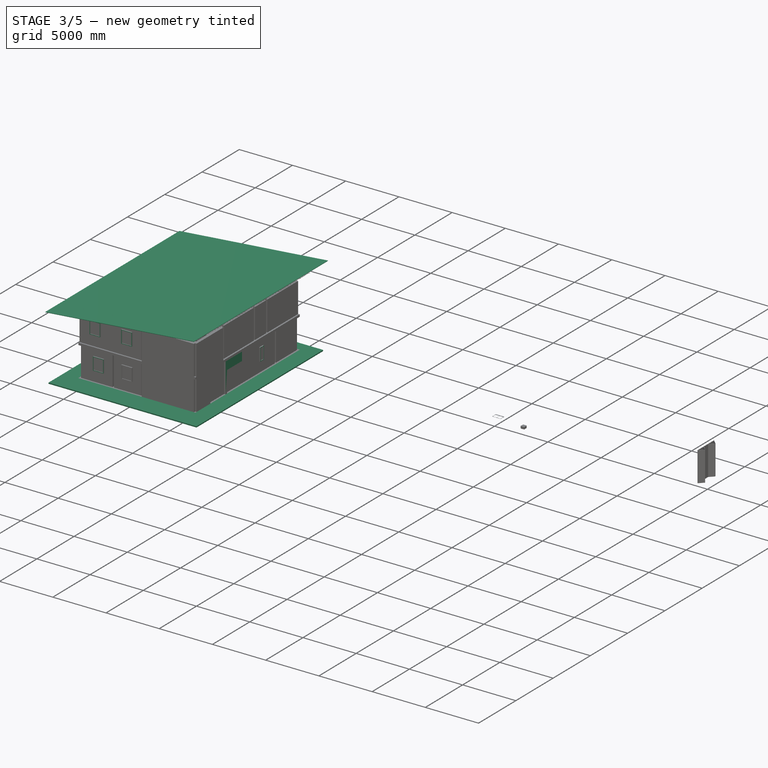
[diagram: stage 3 of 5 — iso view after this stage's code; geometry added in this stage tinted green]
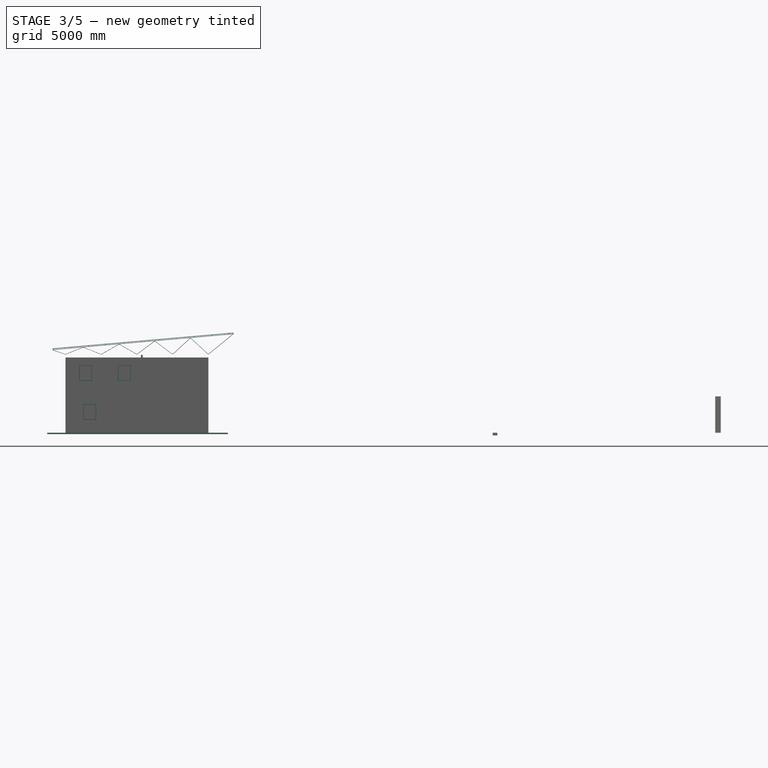
[diagram: stage 3 of 5 — front view after this stage's code; geometry added in this stage tinted green]
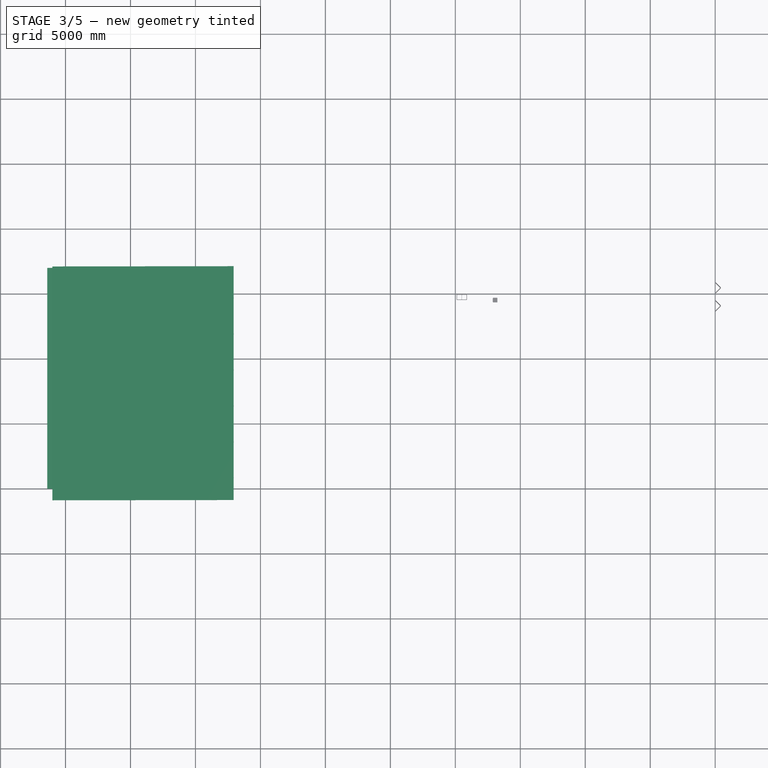
[diagram: stage 3 of 5 — top view after this stage's code; geometry added in this stage tinted green]
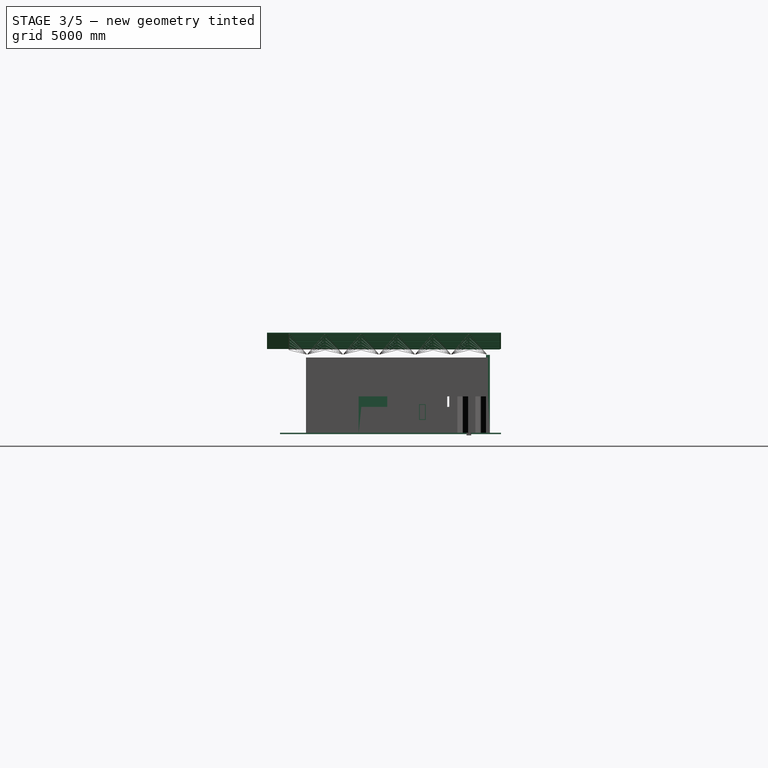
[diagram: stage 3 of 5 — right view after this stage's code; geometry added in this stage tinted green]
FEATURE [Part::FeaturePython] Structure002  # WARN: FeaturePython — macro-defined, semantics opaque (R4)
  Height = 6000
  Length = 150
  MoveWithHost = false
  Nodes = (2) [(0,0,0),(0,0,6000)]
  Normal = (0,0,0)
  Placement = pos=(5870,16000,0) rot=(0,0,1;0rad)
  Role = 1
  Width = 300
FEATURE [Part::Part2DObjectPython] Line105  # Draft 2D object (typed FeaturePython)
  ChamferSize = 0
  Closed = false
  End = (1030,2000.31,3000)
  FilletRadius = 0
  Length = 6000
  MakeFace = true
  Placement = pos=(-4915,0.305262,0.0001461) rot=(0,0,1;0rad)
  Points = (2) [(5945,2000,9000),(5945,2000,3000)]
  Start = (1030,2000.31,9000)
FEATURE [Part::Part2DObjectPython] Line106  # Draft 2D object (typed FeaturePython)
  ChamferSize = 0
  Closed = false
  End = (1030,2150.31,3000)
  FilletRadius = 0
  Length = 6000
  MakeFace = true
  Placement = pos=(-4915,0.305262,0.0001461) rot=(0,0,1;0rad)
  Points = (2) [(5945,2150,9000),(5945,2150,3000)]
  Start = (1030,2150.31,9000)
FEATURE [Part::Part2DObjectPython] Line107  # Draft 2D object (typed FeaturePython)
  ChamferSize = 0
  Closed = false
  End = (1030,1518.67,3000)
  FilletRadius = 0
  Length = 631.638
  MakeFace = true
  Placement = pos=(-4915,0.305262,0.0001461) rot=(0,0,1;0rad)
  Points = (2) [(5945,2150,3000),(5945,1518.36,3000)]
  Start = (1030,2150.31,3000)
FEATURE [Part::Part2DObjectPython] Line108  # Draft 2D object (typed FeaturePython)
  ChamferSize = 0
  Closed = false
  End = (1030,3000.31,4000)
  FilletRadius = 0
  Length = 1000
  MakeFace = true
  Placement = pos=(-4915,0.305262,0.0001461) rot=(0,0,1;0rad)
  Points = (2) [(5945,2000,4000),(5945,3000,4000)]
  Start = (1030,2000.31,4000)
FEATURE [Part::Part2DObjectPython] Line109  # Draft 2D object (typed FeaturePython)
  ChamferSize = 0
  Closed = false
  End = (1030,2150.31,3632.83)
  FilletRadius = 0
  Length = 150
  MakeFace = true
  Placement = pos=(-4915,0.305262,0.0001461) rot=(0,0,1;0rad)
  Points = (2) [(5945,2000,3632.83),(5945,2150,3632.83)]
  Start = (1030,2000.31,3632.83)
FEATURE [Part::Part2DObjectPython] Line110  # Draft 2D object (typed FeaturePython)
  ChamferSize = 0
  Closed = false
  End = (1030,2075.31,4000)
  FilletRadius = 0
  Length = 900
  MakeFace = true
  Placement = pos=(-4915,0.305262,0.0001461) rot=(0,0,1;0rad)
  Points = (2) [(5945,2075,3100),(5945,2075,4000)]
  Start = (1030,2075.31,3100)
FEATURE [Part::Part2DObjectPython] Line111  # Draft 2D object (typed FeaturePython)
  ChamferSize = 0
  Closed = false
  End = (1030,3000.31,3960)
  FilletRadius = 0
  Length = 1000
  MakeFace = true
  Placement = pos=(-4915,0.305262,0.0001461) rot=(0,0,1;0rad)
  Points = (2) [(5945,2000,3960),(5945,3000,3960)]
  Start = (1030,2000.31,3960)
FEATURE [Part::Part2DObjectPython] Line112  # Draft 2D object (typed FeaturePython)
  ChamferSize = 0
  Closed = false
  End = (1030,2075.33,4000)
  FilletRadius = 0
  Length = 367.171
  MakeFace = true
  Placement = pos=(-4915,0.305262,0.0001461) rot=(0,0,1;0rad)
  Points = (2) [(5945,2075.02,3632.83),(5945,2075.02,4000)]
  Start = (1030,2075.33,3632.83)
FEATURE [Part::Part2DObjectPython] Line113  # Draft 2D object (typed FeaturePython)
  ChamferSize = 0
  Closed = false
  End = (1030,2095.31,4000)
  FilletRadius = 0
  Length = 367.171
  MakeFace = true
  Placement = pos=(-4915,0.305262,0.0001461) rot=(0,0,1;0rad)
  Points = (2) [(5945,2095,3632.83),(5945,2095,4000)]
  Start = (1030,2095.31,3632.83)
FEATURE [Part::Part2DObjectPython] Line114  # Draft 2D object (typed FeaturePython)
  ChamferSize = 0
  Closed = false
  End = (1030,2055.31,4000)
  FilletRadius = 0
  Length = 367.171
  MakeFace = true
  Placement = pos=(-4915,0.305262,0.0001461) rot=(0,0,1;0rad)
  Points = (2) [(5945,2055,3632.83),(5945,2055,4000)]
  Start = (1030,2055.31,3632.83)
FEATURE [Part::Part2DObjectPython] Line115  # Draft 2D object (typed FeaturePython)
  ChamferSize = 0
  Closed = false
  End = (1030,1518.67,3100)
  FilletRadius = 0
  Length = 631.638
  MakeFace = true
  Placement = pos=(-4915,0.305262,0.0001461) rot=(0,0,1;0rad)
  Points = (2) [(5945,2150,3100),(5945,1518.36,3100)]
  Start = (1030,2150.31,3100)
FEATURE [Part::Part2DObjectPython] Line116  # Draft 2D object (typed FeaturePython)
  ChamferSize = 0
  Closed = false
  End = (1030,1518.67,3140)
  FilletRadius = 0
  Length = 631.638
  MakeFace = true
  Placement = pos=(-4915,0.305262,0.0001461) rot=(0,0,1;0rad)
  Points = (2) [(5945,2150,3140),(5945,1518.36,3140)]
  Start = (1030,2150.31,3140)
FEATURE [Part::Part2DObjectPython] Rectangle006  # Draft 2D object (typed FeaturePython)
  ChamferSize = 0
  FilletRadius = 0
  Height = -40
  Length = 40
  MakeFace = true
  Placement = pos=(5945,2055,4000) rot=(0.57735,0.57735,0.57735;2.0944rad)
FEATURE [Part::Part2DObjectPython] Rectangle007  # Draft 2D object (typed FeaturePython)
  ChamferSize = 0
  FilletRadius = 0
  Height = -40
  Length = 40
  MakeFace = true
  Placement = pos=(5945,2055,3140) rot=(0.57735,0.57735,0.57735;2.0944rad)
FEATURE [Part::Extrusion] Extrusion007
  Base = -> Rectangle006
  Dir = (4900,0,0)
  Solid = true
FEATURE [Part::Extrusion] Extrusion008
  Base = -> Rectangle007
  Dir = (4900,0,0)
  Solid = true
FEATURE [Part::Part2DObjectPython] Line117  # Draft 2D object (typed FeaturePython)
  ChamferSize = 0
  Closed = false
  End = (5005,2150.31,3000)
  FilletRadius = 0
  Length = 2000
  MakeFace = true
  Placement = pos=(-4915,0.305262,0.0001461) rot=(0,0,1;0rad)
  Points = (2) [(11920,2150,3000),(9920,2150,3000)]
  Start = (7005,2150.31,3000)
FEATURE [Part::Part2DObjectPython] Line118  # Draft 2D object (typed FeaturePython)
  ChamferSize = 0
  Closed = false
  End = (6393.3,2150.31,3100)
  FilletRadius = 0
  Length = 463.293
  MakeFace = true
  Placement = pos=(-4915,0.305262,0.0001461) rot=(0,0,1;0rad)
  Points = (2) [(10845,2150,3100),(11308.3,2150,3100)]
  Start = (5930,2150.31,3100)
FEATURE [Part::Part2DObjectPython] Line119  # Draft 2D object (typed FeaturePython)
  ChamferSize = 0
  Closed = false
  End = (6393.3,2150.31,3140)
  FilletRadius = 0
  Length = 463.293
  MakeFace = true
  Placement = pos=(-4915,0.305262,0.0001461) rot=(0,0,1;0rad)
  Points = (2) [(10845,2150,3140),(11308.3,2150,3140)]
  Start = (5930,2150.31,3140)
FEATURE [Part::Part2DObjectPython] Line120  # Draft 2D object (typed FeaturePython)
  ChamferSize = 0
  Closed = false
  End = (6393.3,2150.31,3960)
  FilletRadius = 0
  Length = 463.293
  MakeFace = true
  Placement = pos=(-4915,0.305262,0.0001461) rot=(0,0,1;0rad)
  Points = (2) [(10845,2150,3960),(11308.3,2150,3960)]
  Start = (5930,2150.31,3960)
FEATURE [Part::Part2DObjectPython] Line121  # Draft 2D object (typed FeaturePython)
  ChamferSize = 0
  Closed = false
  End = (6393.3,2150.31,4000)
  FilletRadius = 0
  Length = 463.293
  MakeFace = true
  Placement = pos=(-4915,0.305262,0.0001461) rot=(0,0,1;0rad)
  Points = (2) [(10845,2150,4000),(11308.3,2150,4000)]
  Start = (5930,2150.31,4000)
FEATURE [Part::Part2DObjectPython] Line122  # Draft 2D object (typed FeaturePython)
  ChamferSize = 0
  Closed = false
  End = (6080,2150.31,4000)
  FilletRadius = 0
  Length = 900
  MakeFace = true
  Placement = pos=(-4915,0.305262,0.0001461) rot=(0,0,1;0rad)
  Points = (2) [(10995,2150,3100),(10995,2150,4000)]
  Start = (6080,2150.31,3100)
FEATURE [Part::Part2DObjectPython] Line123  # Draft 2D object (typed FeaturePython)
  ChamferSize = 0
  Closed = false
  End = (5930,2150.31,4000)
  FilletRadius = 0
  Length = 900
  MakeFace = true
  Placement = pos=(-4915,0.305262,0.0001461) rot=(0,0,1;0rad)
  Points = (2) [(10845,2150,3100),(10845,2150,4000)]
  Start = (5930,2150.31,3100)
FEATURE [Part::Part2DObjectPython] Line124  # Draft 2D object (typed FeaturePython)
  ChamferSize = 0
  Closed = false
  End = (5930,2150.31,3774.18)
  FilletRadius = 0
  Length = 150
  MakeFace = true
  Placement = pos=(-4915,0.305262,0.0001461) rot=(0,0,1;0rad)
  Points = (2) [(10995,2150,3774.18),(10845,2150,3774.18)]
  Start = (6080,2150.31,3774.18)
FEATURE [Part::Part2DObjectPython] Line125  # Draft 2D object (typed FeaturePython)
  ChamferSize = 0
  Closed = false
  End = (6005,2150.31,4000)
  FilletRadius = 0
  Length = 900
  MakeFace = true
  Placement = pos=(-4915,0.305262,0.0001461) rot=(0,0,1;0rad)
  Points = (2) [(10920,2150,3100),(10920,2150,4000)]
  Start = (6005,2150.31,3100)
FEATURE [Part::Part2DObjectPython] Line126  # Draft 2D object (typed FeaturePython)
  ChamferSize = 0
  Closed = false
  End = (6025,2150.31,4000)
  FilletRadius = 0
  Length = 900
  MakeFace = true
  Placement = pos=(-4915,0.305262,0.0001461) rot=(0,0,1;0rad)
  Points = (2) [(10940,2150,3100),(10940,2150,4000)]
  Start = (6025,2150.31,3100)
FEATURE [Part::Part2DObjectPython] Line127  # Draft 2D object (typed FeaturePython)
  ChamferSize = 0
  Closed = false
  End = (5985,2150.31,4000)
  FilletRadius = 0
  Length = 900
  MakeFace = true
  Placement = pos=(-4915,0.305262,0.0001461) rot=(0,0,1;0rad)
  Points = (2) [(10900,2150,3100),(10900,2150,4000)]
  Start = (5985,2150.31,3100)
FEATURE [Part::Part2DObjectPython] Rectangle008  # Draft 2D object (typed FeaturePython)
  ChamferSize = 0
  FilletRadius = 0
  Height = 40
  Length = -40
  MakeFace = true
  Placement = pos=(10900,2150,3960) rot=(0,0.707107,0.707107;3.14159rad)
FEATURE [Part::Part2DObjectPython] Rectangle009  # Draft 2D object (typed FeaturePython)
  ChamferSize = 0
  FilletRadius = 0
  Height = -40
  Length = -40
  MakeFace = true
  Placement = pos=(10900,2150,3140) rot=(0,0.707107,0.707107;3.14159rad)
FEATURE [Part::Extrusion] Extrusion009
  Base = -> Rectangle009
  Dir = (0,3600,-1e-12)
  Solid = true
FEATURE [Part::Extrusion] Extrusion010
  Base = -> Rectangle008
  Dir = (0,3600,-1e-12)
  Solid = true
FEATURE [Part::Part2DObjectPython] Line181  # Draft 2D object (typed FeaturePython)
  ChamferSize = 0
  Closed = false
  End = (9168,2000.31,1000)
  FilletRadius = 0
  Length = 8138
  MakeFace = true
  Placement = pos=(-4915,0.305262,0.0001461) rot=(0,0,1;0rad)
  Points = (2) [(5945,2000,1000),(14083,2000,1000)]
  Start = (1030,2000.31,1000)
FEATURE [Part::FeaturePython] Window007  # WARN: FeaturePython — macro-defined, semantics opaque (R4)
  Height = 0
  HoleDepth = 0
  MoveWithHost = true
  Normal = (0,1,0)
  Placement = pos=(0,-850,0) rot=(0,0,1;0rad)
  Preset = 0
  Role = 0
  Width = 0
FEATURE [Sketcher::SketchObject] Sketch
  Placement = pos=(4554,2850,-2) rot=(1,0,0;1.5708rad)
  sketch-geometry (8):
    g0: LineSegment StartX=0 StartY=0 StartZ=0 EndX=900 EndY=0 EndZ=0
    g1: LineSegment StartX=900 StartY=0 StartZ=0 EndX=900 EndY=2000 EndZ=0
    g2: LineSegment StartX=900 StartY=2000 StartZ=0 EndX=0 EndY=2000 EndZ=0
    g3: LineSegment StartX=0 StartY=2000 StartZ=0 EndX=0 EndY=0 EndZ=0
    g4: LineSegment StartX=50 StartY=0 StartZ=0 EndX=850 EndY=0 EndZ=0
    g5: LineSegment StartX=850 StartY=0 StartZ=0 EndX=850 EndY=1950 EndZ=0
    g6: LineSegment StartX=850 StartY=1950 StartZ=0 EndX=50 EndY=1950 EndZ=0
    g7: LineSegment StartX=50 StartY=1950 StartZ=0 EndX=50 EndY=0 EndZ=0
  constraints (23):
    c: Coincident(g0,g1)
    c: Coincident(g1,g2)
    c: Coincident(g2,g3)
    c: Coincident(g3,g0)
    c: Horizontal(g0)
    c: Horizontal(g2)
    c: Vertical(g1)
    c: Vertical(g3)
    c: Coincident(g4,g5)
    c: Coincident(g5,g6)
    c: Coincident(g6,g7)
    c: Coincident(g7,g4)
    c: Horizontal(g4)
    c: Horizontal(g6)
    c: Vertical(g5)
    c: Vertical(g7)
    c: DistanceY(g1) = 2000
    c: DistanceX(g0) = 900
    c: DistanceY(g6,g2) = 50
    c: DistanceX(g2,g6) = 50
    c: DistanceX(g4,g0) = 50
    c: DistanceY(g0,g4) = 0
    c: Coincident(g0,g-1)
FEATURE [Part::Part2DObjectPython] Line182  # Draft 2D object (typed FeaturePython)
  ChamferSize = 0
  Closed = false
  End = (-1670,2150.31,0.0001461)
  FilletRadius = 0
  Length = 2550
  MakeFace = true
  Placement = pos=(-4915,0.305262,0.0001461) rot=(0,0,1;0rad)
  Points = (2) [(5795,2150,0),(3245,2150,0)]
  Start = (880.002,2150.31,0.0001461)
FEATURE [Sketcher::SketchObject] Sketch016
  Placement = pos=(3245,3000,0) rot=(1,0,0;1.5708rad)
  sketch-geometry (8):
    g0: LineSegment StartX=0 StartY=0 StartZ=0 EndX=900 EndY=0 EndZ=0
    g1: LineSegment StartX=900 StartY=0 StartZ=0 EndX=900 EndY=2000 EndZ=0
    g2: LineSegment StartX=900 StartY=2000 StartZ=0 EndX=0 EndY=2000 EndZ=0
    g3: LineSegment StartX=0 StartY=2000 StartZ=0 EndX=0 EndY=0 EndZ=0
    g4: LineSegment StartX=50 StartY=0 StartZ=0 EndX=850 EndY=0 EndZ=0
    g5: LineSegment StartX=850 StartY=0 StartZ=0 EndX=850 EndY=1950 EndZ=0
    g6: LineSegment StartX=850 StartY=1950 StartZ=0 EndX=50 EndY=1950 EndZ=0
    g7: LineSegment StartX=50 StartY=1950 StartZ=0 EndX=50 EndY=0 EndZ=0
  constraints (23):
    c: Coincident(g0,g1)
    c: Coincident(g1,g2)
    c: Coincident(g2,g3)
    c: Coincident(g3,g0)
    c: Horizontal(g0)
    c: Horizontal(g2)
    c: Vertical(g1)
    c: Vertical(g3)
    c: Coincident(g4,g5)
    c: Coincident(g5,g6)
    c: Coincident(g6,g7)
    c: Coincident(g7,g4)
    c: Horizontal(g4)
    c: Horizontal(g6)
    c: Vertical(g5)
    c: Vertical(g7)
    c: DistanceY(g1) = 2000
    c: DistanceX(g0) = 900
    c: DistanceY(g6,g2) = 50
    c: DistanceX(g2,g6) = 50
    c: DistanceX(g4,g0) = 50
    c: DistanceY(g0,g4) = 0
    c: Coincident(g0,g-1)
FEATURE [Sketcher::SketchObject] Sketch017
  Placement = pos=(8925.65,2000,1184.37) rot=(1,0,0;1.5708rad)
  sketch-geometry (8):
    g0: LineSegment StartX=0 StartY=0 StartZ=0 EndX=1000 EndY=0 EndZ=0
    g1: LineSegment StartX=1000 StartY=0 StartZ=0 EndX=1000 EndY=1200 EndZ=0
    g2: LineSegment StartX=1000 StartY=1200 StartZ=0 EndX=0 EndY=1200 EndZ=0
    g3: LineSegment StartX=0 StartY=1200 StartZ=0 EndX=0 EndY=0 EndZ=0
    g4: LineSegment StartX=50 StartY=50 StartZ=0 EndX=950 EndY=50 EndZ=0
    g5: LineSegment StartX=950 StartY=50 StartZ=0 EndX=950 EndY=1150 EndZ=0
    g6: LineSegment StartX=950 StartY=1150 StartZ=0 EndX=50 EndY=1150 EndZ=0
    g7: LineSegment StartX=50 StartY=1150 StartZ=0 EndX=50 EndY=50 EndZ=0
  constraints (23):
    c: Coincident(g0,g1)
    c: Coincident(g1,g2)
    c: Coincident(g2,g3)
    c: Coincident(g3,g0)
    c: Horizontal(g0)
    c: Horizontal(g2)
    c: Vertical(g1)
    c: Vertical(g3)
    c: Coincident(g4,g5)
    c: Coincident(g5,g6)
    c: Coincident(g6,g7)
    c: Coincident(g7,g4)
    c: Horizontal(g4)
    c: Horizontal(g6)
    c: Vertical(g5)
    c: Vertical(g7)
    c: DistanceY(g1) = 1200
    c: DistanceX(g0) = 1000
    c: DistanceY(g6,g2) = 50
    c: DistanceX(g2,g6) = 50
    c: DistanceX(g4,g0) = 50
    c: DistanceY(g0,g4) = 50
    c: Coincident(g0,g-1)
FEATURE [Part::FeaturePython] Window010  label="Window008"  # WARN: FeaturePython — macro-defined, semantics opaque (R4)
  Base = -> Sketch017
  Height = 1200
  HoleDepth = 0
  MoveWithHost = true
  Normal = (0,1,0)
  Placement = pos=(194.348,1999.61,-184.366) rot=(0,0,1;0rad)
  Preset = 1
  Role = 0
  Width = 1000
  WindowParts = OuterFrame | Frame | Wire0,Wire1 | 100.0 | 0.0 | Glass | Glass panel | Wire1 | 10.0 | 50.0
FEATURE [Sketcher::SketchObject] Sketch018
  Placement = pos=(6850.59,2000,1115.38) rot=(1,0,0;1.5708rad)
  sketch-geometry (8):
    g0: LineSegment StartX=0 StartY=0 StartZ=0 EndX=1000 EndY=0 EndZ=0
    g1: LineSegment StartX=1000 StartY=0 StartZ=0 EndX=1000 EndY=1200 EndZ=0
    g2: LineSegment StartX=1000 StartY=1200 StartZ=0 EndX=0 EndY=1200 EndZ=0
    g3: LineSegment StartX=0 StartY=1200 StartZ=0 EndX=0 EndY=0 EndZ=0
    g4: LineSegment StartX=50 StartY=50 StartZ=0 EndX=950 EndY=50 EndZ=0
    g5: LineSegment StartX=950 StartY=50 StartZ=0 EndX=950 EndY=1150 EndZ=0
    g6: LineSegment StartX=950 StartY=1150 StartZ=0 EndX=50 EndY=1150 EndZ=0
    g7: LineSegment StartX=50 StartY=1150 StartZ=0 EndX=50 EndY=50 EndZ=0
  constraints (23):
    c: Coincident(g0,g1)
    c: Coincident(g1,g2)
    c: Coincident(g2,g3)
    c: Coincident(g3,g0)
    c: Horizontal(g0)
    c: Horizontal(g2)
    c: Vertical(g1)
    c: Vertical(g3)
    c: Coincident(g4,g5)
    c: Coincident(g5,g6)
    c: Coincident(g6,g7)
    c: Coincident(g7,g4)
    c: Horizontal(g4)
    c: Horizontal(g6)
    c: Vertical(g5)
    c: Vertical(g7)
    c: DistanceY(g1) = 1200
    c: DistanceX(g0) = 1000
    c: DistanceY(g6,g2) = 50
    c: DistanceX(g2,g6) = 50
    c: DistanceX(g4,g0) = 50
    c: DistanceY(g0,g4) = 50
    c: Coincident(g0,g-1)
FEATURE [Part::FeaturePython] Window011  label="Window009"  # WARN: FeaturePython — macro-defined, semantics opaque (R4)
  Base = -> Sketch018
  Height = 1200
  HoleDepth = 0
  MoveWithHost = true
  Normal = (0,1,0)
  Placement = pos=(-180.587,1999.61,-115.38) rot=(0,0,1;0rad)
  Preset = 1
  Role = 0
  Width = 1000
  WindowParts = OuterFrame | Frame | Wire0,Wire1 | 100.0 | 0.0 | Glass | Glass panel | Wire1 | 10.0 | 50.0
FEATURE [Part::Part2DObjectPython] Line180  # Draft 2D object (typed FeaturePython)
  ChamferSize = 0
  Closed = false
  End = (9168,2000.31,0.0001461)
  FilletRadius = 0
  Length = 5688
  MakeFace = true
  Placement = pos=(-4915,0.305262,0.0001461) rot=(0,0,1;0rad)
  Points = (2) [(8395,2000,0),(14083,2000,0)]
  Start = (3480,2000.31,0.0001461)
  Support = -> Wall011
FEATURE [Part::Part2DObjectPython] Line184  # Draft 2D object (typed FeaturePython)
  ChamferSize = 0
  Closed = false
  End = (4205,2000.31,0.0001461)
  FilletRadius = 0
  Length = 1000
  MakeFace = true
  Placement = pos=(-4915,0.305262,0.0001461) rot=(0,0,1;0rad)
  Points = (2) [(9120,2000,1000),(9120,2000,0)]
  Start = (4205,2000.31,1000)
FEATURE [Part::Part2DObjectPython] Line185  # Draft 2D object (typed FeaturePython)
  ChamferSize = 0
  Closed = false
  End = (2755,2000.31,0.0001461)
  FilletRadius = 0
  Length = 1000
  MakeFace = true
  Placement = pos=(-6365,0.305262,0.0001461) rot=(0,0,1;0rad)
  Points = (2) [(9120,2000,1000),(9120,2000,0)]
  Start = (2755,2000.31,1000)
FEATURE [Part::Part2DObjectPython] Line186  # Draft 2D object (typed FeaturePython)
  ChamferSize = 0
  Closed = false
  End = (2030,2000.31,0.0001461)
  FilletRadius = 0
  Length = 1000
  MakeFace = true
  Placement = pos=(-4190,0.305262,0.0001461) rot=(0,0,1;0rad)
  Points = (2) [(6220,2000,1000),(6220,2000,-2.27374e-13)]
  Start = (2030,2000.31,1000)
FEATURE [Part::Part2DObjectPython] Line187  # Draft 2D object (typed FeaturePython)
  ChamferSize = 0
  Closed = false
  End = (-6672,2000.31,0.0001461)
  FilletRadius = 0
  Length = 3377
  MakeFace = true
  Placement = pos=(-4915,0.305262,0.0001461) rot=(0,0,1;0rad)
  Points = (2) [(1620,2000,0),(-1757,2000,0)]
  Start = (-3295,2000.31,0.0001461)
FEATURE [Part::Part2DObjectPython] Line188  # Draft 2D object (typed FeaturePython)
  ChamferSize = 0
  Closed = false
  End = (-6672,2000.31,1000)
  FilletRadius = 0
  Length = 4852
  MakeFace = true
  Placement = pos=(-4915,0.305262,0.0001461) rot=(0,0,1;0rad)
  Points = (2) [(3095,2000,1000),(-1757,2000,1000)]
  Start = (-1820,2000.31,1000)
FEATURE [Sketcher::SketchObject] Sketch019
  Placement = pos=(1545.66,2000,1022.9) rot=(0.57735,-0.57735,0.57735;2.0944rad)
  sketch-geometry (8):
    g0: LineSegment StartX=0 StartY=0 StartZ=0 EndX=1200 EndY=0 EndZ=0
    g1: LineSegment StartX=1200 StartY=0 StartZ=0 EndX=1200 EndY=1000 EndZ=0
    g2: LineSegment StartX=1200 StartY=1000 StartZ=0 EndX=0 EndY=1000 EndZ=0
    g3: LineSegment StartX=0 StartY=1000 StartZ=0 EndX=0 EndY=0 EndZ=0
    g4: LineSegment StartX=50 StartY=50 StartZ=0 EndX=1150 EndY=50 EndZ=0
    g5: LineSegment StartX=1150 StartY=50 StartZ=0 EndX=1150 EndY=950 EndZ=0
    g6: LineSegment StartX=1150 StartY=950 StartZ=0 EndX=50 EndY=950 EndZ=0
    g7: LineSegment StartX=50 StartY=950 StartZ=0 EndX=50 EndY=50 EndZ=0
  constraints (23):
    c: Coincident(g0,g1)
    c: Coincident(g1,g2)
    c: Coincident(g2,g3)
    c: Coincident(g3,g0)
    c: Horizontal(g0)
    c: Horizontal(g2)
    c: Vertical(g1)
    c: Vertical(g3)
    c: Coincident(g4,g5)
    c: Coincident(g5,g6)
    c: Coincident(g6,g7)
    c: Coincident(g7,g4)
    c: Horizontal(g4)
    c: Horizontal(g6)
    c: Vertical(g5)
    c: Vertical(g7)
    c: DistanceY(g1) = 1000
    c: DistanceX(g0) = 1200
    c: DistanceY(g6,g2) = 50
    c: DistanceX(g2,g6) = 50
    c: DistanceX(g4,g0) = 50
    c: DistanceY(g0,g4) = 50
    c: Coincident(g0,g-1)
FEATURE [Part::FeaturePython] Window012  label="Window010"  # WARN: FeaturePython — macro-defined, semantics opaque (R4)
  Base = -> Sketch019
  Height = 1000
  HoleDepth = 0
  MoveWithHost = true
  Normal = (0,1,0)
  Placement = pos=(811.598,0,-22.8969) rot=(0,0,1;0rad)
  Preset = 1
  Role = 0
  Width = 1200
  WindowParts = OuterFrame | Frame | Wire0,Wire1 | 100.0 | 0.0 | Glass | Glass panel | Wire1 | 10.0 | 50.0
FEATURE [Part::Part2DObjectPython] Line189  # Draft 2D object (typed FeaturePython)
  ChamferSize = 0
  Closed = false
  End = (-3773.13,2000.31,-286)
  FilletRadius = 0
  Length = 1308.9
  MakeFace = true
  Placement = pos=(-4915,0.305262,0.0001461) rot=(0,0,1;0rad)
  Points = (2) [(1141.86,2000,1022.9),(1141.86,2000,-286)]
  Start = (-3773.13,2000.31,1022.9)
  Support = -> Window012
FEATURE [Part::Part2DObjectPython] Line190  # Draft 2D object (typed FeaturePython)
  ChamferSize = 0
  Closed = false
  End = (-2873.13,2000.31,-286)
  FilletRadius = 0
  Length = 1308.9
  MakeFace = true
  Placement = pos=(-4915,0.305262,0.0001461) rot=(0,0,1;0rad)
  Points = (2) [(2041.86,2000,1022.9),(2041.86,2000,-286)]
  Start = (-2873.13,2000.31,1022.9)
FEATURE [Sketcher::SketchObject] Sketch020
  Placement = pos=(983.279,2000,3851.04) rot=(1,0,0;1.5708rad)
  sketch-geometry (8):
    g0: LineSegment StartX=0 StartY=0 StartZ=0 EndX=1000 EndY=0 EndZ=0
    g1: LineSegment StartX=1000 StartY=0 StartZ=0 EndX=1000 EndY=1200 EndZ=0
    g2: LineSegment StartX=1000 StartY=1200 StartZ=0 EndX=0 EndY=1200 EndZ=0
    g3: LineSegment StartX=0 StartY=1200 StartZ=0 EndX=0 EndY=0 EndZ=0
    g4: LineSegment StartX=50 StartY=50 StartZ=0 EndX=950 EndY=50 EndZ=0
    g5: LineSegment StartX=950 StartY=50 StartZ=0 EndX=950 EndY=1150 EndZ=0
    g6: LineSegment StartX=950 StartY=1150 StartZ=0 EndX=50 EndY=1150 EndZ=0
    g7: LineSegment StartX=50 StartY=1150 StartZ=0 EndX=50 EndY=50 EndZ=0
  constraints (23):
    c: Coincident(g0,g1)
    c: Coincident(g1,g2)
    c: Coincident(g2,g3)
    c: Coincident(g3,g0)
    c: Horizontal(g0)
    c: Horizontal(g2)
    c: Vertical(g1)
    c: Vertical(g3)
    c: Coincident(g4,g5)
    c: Coincident(g5,g6)
    c: Coincident(g6,g7)
    c: Coincident(g7,g4)
    c: Horizontal(g4)
    c: Horizontal(g6)
    c: Vertical(g5)
    c: Vertical(g7)
    c: DistanceY(g1) = 1200
    c: DistanceX(g0) = 1000
    c: DistanceY(g6,g2) = 50
    c: DistanceX(g2,g6) = 50
    c: DistanceX(g4,g0) = 50
    c: DistanceY(g0,g4) = 50
    c: Coincident(g0,g-1)
FEATURE [Part::FeaturePython] Window013  label="Window011"  # WARN: FeaturePython — macro-defined, semantics opaque (R4)
  Base = -> Sketch020
  Height = 1200
  HoleDepth = 0
  MoveWithHost = true
  Normal = (0,1,0)
  Placement = pos=(58.7006,0,148.958) rot=(0,0,1;0rad)
  Preset = 1
  Role = 0
  Width = 1000
  WindowParts = OuterFrame | Frame | Wire0,Wire1 | 100.0 | 0.0 | Glass | Glass panel | Wire1 | 10.0 | 50.0
FEATURE [Part::Part2DObjectPython] Line191  # Draft 2D object (typed FeaturePython)
  ChamferSize = 0
  Closed = false
  End = (-8347,2000.31,4000)
  FilletRadius = 0
  Length = 7110.34
  MakeFace = true
  Placement = pos=(-4915,0.305262,0.0001461) rot=(0,0,1;0rad)
  Points = (2) [(3678.34,2000,4000),(-3432,2000,4000)]
  Start = (-1236.66,2000.31,4000)
FEATURE [Part::Part2DObjectPython] Line192  # Draft 2D object (typed FeaturePython)
  ChamferSize = 0
  Closed = false
  End = (-3873,2000.31,6263)
  FilletRadius = 0
  Length = 4085.59
  MakeFace = true
  Placement = pos=(-4915,0.305262,0.0001461) rot=(0,0,1;0rad)
  Points = (2) [(1041.86,2000,2177.41),(1042,2000,6263)]
  Start = (-3873.13,2000.31,2177.41)
FEATURE [Sketcher::SketchObject] Sketch023
  Placement = pos=(4360.23,2000,4106.42) rot=(0.57735,-0.57735,0.57735;2.0944rad)
  sketch-geometry (8):
    g0: LineSegment StartX=0 StartY=0 StartZ=0 EndX=1200 EndY=0 EndZ=0
    g1: LineSegment StartX=1200 StartY=0 StartZ=0 EndX=1200 EndY=1000 EndZ=0
    g2: LineSegment StartX=1200 StartY=1000 StartZ=0 EndX=0 EndY=1000 EndZ=0
    g3: LineSegment StartX=0 StartY=1000 StartZ=0 EndX=0 EndY=0 EndZ=0
    g4: LineSegment StartX=50 StartY=50 StartZ=0 EndX=1150 EndY=50 EndZ=0
    g5: LineSegment StartX=1150 StartY=50 StartZ=0 EndX=1150 EndY=950 EndZ=0
    g6: LineSegment StartX=1150 StartY=950 StartZ=0 EndX=50 EndY=950 EndZ=0
    g7: LineSegment StartX=50 StartY=950 StartZ=0 EndX=50 EndY=50 EndZ=0
  constraints (23):
    c: Coincident(g0,g1)
    c: Coincident(g1,g2)
    c: Coincident(g2,g3)
    c: Coincident(g3,g0)
    c: Horizontal(g0)
    c: Horizontal(g2)
    c: Vertical(g1)
    c: Vertical(g3)
    c: Coincident(g4,g5)
    c: Coincident(g5,g6)
    c: Coincident(g6,g7)
    c: Coincident(g7,g4)
    c: Horizontal(g4)
    c: Horizontal(g6)
    c: Vertical(g5)
    c: Vertical(g7)
    c: DistanceY(g1) = 1000
    c: DistanceX(g0) = 1200
    c: DistanceY(g6,g2) = 50
    c: DistanceX(g2,g6) = 50
    c: DistanceX(g4,g0) = 50
    c: DistanceY(g0,g4) = 50
    c: Coincident(g0,g-1)
FEATURE [Part::FeaturePython] Window015  label="Window013"  # WARN: FeaturePython — macro-defined, semantics opaque (R4)
  Base = -> Sketch023
  Height = 1000
  HoleDepth = 0
  MoveWithHost = true
  Normal = (0,1,0)
  Placement = pos=(659.766,0,-107.052) rot=(0,0,1;0rad)
  Preset = 1
  Role = 0
  Width = 1200
  WindowParts = OuterFrame | Frame | Wire0,Wire1 | 100.0 | 0.0 | Glass | Glass panel | Wire1 | 10.0 | 50.0
FEATURE [Part::Part2DObjectPython] Line193  # Draft 2D object (typed FeaturePython)
  ChamferSize = 0
  Closed = false
  End = (-894.998,2000.31,2270)
  FilletRadius = 0
  Length = 1729.37
  MakeFace = true
  Placement = pos=(-4915,0.305262,0.0001461) rot=(0,0,1;0rad)
  Points = (2) [(4020,2000,3999.37),(4020,2000,2270)]
  Start = (-894.998,2000.31,3999.37)
FEATURE [Sketcher::SketchObject] Sketch024
  Placement = pos=(6684.54,16000,3695.65) rot=(0.57735,0.57735,0.57735;4.18879rad)
  sketch-geometry (8):
    g0: LineSegment StartX=0 StartY=0 StartZ=0 EndX=1200 EndY=0 EndZ=0
    g1: LineSegment StartX=1200 StartY=0 StartZ=0 EndX=1200 EndY=1200 EndZ=0
    g2: LineSegment StartX=1200 StartY=1200 StartZ=0 EndX=0 EndY=1200 EndZ=0
    g3: LineSegment StartX=0 StartY=1200 StartZ=0 EndX=0 EndY=0 EndZ=0
    g4: LineSegment StartX=50 StartY=50 StartZ=0 EndX=1150 EndY=50 EndZ=0
    g5: LineSegment StartX=1150 StartY=50 StartZ=0 EndX=1150 EndY=1150 EndZ=0
    g6: LineSegment StartX=1150 StartY=1150 StartZ=0 EndX=50 EndY=1150 EndZ=0
    g7: LineSegment StartX=50 StartY=1150 StartZ=0 EndX=50 EndY=50 EndZ=0
  constraints (23):
    c: Coincident(g0,g1)
    c: Coincident(g1,g2)
    c: Coincident(g2,g3)
    c: Coincident(g3,g0)
    c: Horizontal(g0)
    c: Horizontal(g2)
    c: Vertical(g1)
    c: Vertical(g3)
    c: Coincident(g4,g5)
    c: Coincident(g5,g6)
    c: Coincident(g6,g7)
    c: Coincident(g7,g4)
    c: Horizontal(g4)
    c: Horizontal(g6)
    c: Vertical(g5)
    c: Vertical(g7)
    c: DistanceY(g1) = 1200
    c: DistanceX(g0) = 1200
    c: DistanceY(g6,g2) = 50
    c: DistanceX(g2,g6) = 50
    c: DistanceX(g4,g0) = 50
    c: DistanceY(g0,g4) = 50
    c: Coincident(g0,g-1)
FEATURE [Part::FeaturePython] Window016  label="Window014"  # WARN: FeaturePython — macro-defined, semantics opaque (R4)
  Base = -> Sketch024
  Height = 1200
  HoleDepth = 0
  MoveWithHost = true
  Normal = (0,-1,0)
  Placement = pos=(-739.539,0,304.351) rot=(0,0,1;0rad)
  Preset = 1
  Role = 0
  Width = 1200
  WindowParts = OuterFrame | Frame | Wire0,Wire1 | 100.0 | 0.0 | Glass | Glass panel | Wire1 | 10.0 | 50.0
FEATURE [Part::FeaturePython] Wall024  # WARN: FeaturePython — macro-defined, semantics opaque (R4)
  Align = 0
  Base = -> Line
  Face = 0
  Height = 2800
  Length = 0
  MoveWithHost = false
  Normal = (0,0,0)
  Placement = pos=(0,0,3000) rot=(0,0,1;0rad)
  Role = 0
  Subtractions = -> [Window016]
  Width = 150
FEATURE [Sketcher::SketchObject] Sketch025
  Placement = pos=(5176.32,16000,3501.5) rot=(0,0.707107,0.707107;3.14159rad)
  sketch-geometry (8):
    g0: LineSegment StartX=0 StartY=0 StartZ=0 EndX=1200 EndY=0 EndZ=0
    g1: LineSegment StartX=1200 StartY=0 StartZ=0 EndX=1200 EndY=1200 EndZ=0
    g2: LineSegment StartX=1200 StartY=1200 StartZ=0 EndX=0 EndY=1200 EndZ=0
    g3: LineSegment StartX=0 StartY=1200 StartZ=0 EndX=0 EndY=0 EndZ=0
    g4: LineSegment StartX=50 StartY=50 StartZ=0 EndX=1150 EndY=50 EndZ=0
    g5: LineSegment StartX=1150 StartY=50 StartZ=0 EndX=1150 EndY=1150 EndZ=0
    g6: LineSegment StartX=1150 StartY=1150 StartZ=0 EndX=50 EndY=1150 EndZ=0
    g7: LineSegment StartX=50 StartY=1150 StartZ=0 EndX=50 EndY=50 EndZ=0
  constraints (23):
    c: Coincident(g0,g1)
    c: Coincident(g1,g2)
    c: Coincident(g2,g3)
    c: Coincident(g3,g0)
    c: Horizontal(g0)
    c: Horizontal(g2)
    c: Vertical(g1)
    c: Vertical(g3)
    c: Coincident(g4,g5)
    c: Coincident(g5,g6)
    c: Coincident(g6,g7)
    c: Coincident(g7,g4)
    c: Horizontal(g4)
    c: Horizontal(g6)
    c: Vertical(g5)
    c: Vertical(g7)
    c: DistanceY(g1) = 1200
    c: DistanceX(g0) = 1200
    c: DistanceY(g6,g2) = 50
    c: DistanceX(g2,g6) = 50
    c: DistanceX(g4,g0) = 50
    c: DistanceY(g0,g4) = 50
    c: Coincident(g0,g-1)
FEATURE [Part::FeaturePython] Window017  label="Window015"  # WARN: FeaturePython — macro-defined, semantics opaque (R4)
  Base = -> Sketch025
  Height = 1200
  HoleDepth = 0
  MoveWithHost = true
  Normal = (0,-1,0)
  Placement = pos=(618.677,0,498.5) rot=(0,0,1;0rad)
  Preset = 1
  Role = 0
  Width = 1200
  WindowParts = OuterFrame | Frame | Wire0,Wire1 | 100.0 | 0.0 | Glass | Glass panel | Wire1 | 10.0 | 50.0
FEATURE [Part::FeaturePython] Wall050  # WARN: FeaturePython — macro-defined, semantics opaque (R4)
  Align = 1
  Base = -> Line031
  Face = 0
  Height = 2800
  Length = 0
  MoveWithHost = false
  Normal = (0,0,0)
  Role = 0
  Subtractions = -> [Window017]
  Width = 150
FEATURE [Sketcher::SketchObject] Sketch026
  Placement = pos=(2156.94,16000,4060.29) rot=(0,0.707107,0.707107;3.14159rad)
  sketch-geometry (8):
    g0: LineSegment StartX=0 StartY=0 StartZ=0 EndX=2950 EndY=0 EndZ=0
    g1: LineSegment StartX=2950 StartY=0 StartZ=0 EndX=2950 EndY=1200 EndZ=0
    g2: LineSegment StartX=2950 StartY=1200 StartZ=0 EndX=0 EndY=1200 EndZ=0
    g3: LineSegment StartX=0 StartY=1200 StartZ=0 EndX=0 EndY=0 EndZ=0
    g4: LineSegment StartX=50 StartY=50 StartZ=0 EndX=2900 EndY=50 EndZ=0
    g5: LineSegment StartX=2900 StartY=50 StartZ=0 EndX=2900 EndY=1150 EndZ=0
    g6: LineSegment StartX=2900 StartY=1150 StartZ=0 EndX=50 EndY=1150 EndZ=0
    g7: LineSegment StartX=50 StartY=1150 StartZ=0 EndX=50 EndY=50 EndZ=0
  constraints (23):
    c: Coincident(g0,g1)
    c: Coincident(g1,g2)
    c: Coincident(g2,g3)
    c: Coincident(g3,g0)
    c: Horizontal(g0)
    c: Horizontal(g2)
    c: Vertical(g1)
    c: Vertical(g3)
    c: Coincident(g4,g5)
    c: Coincident(g5,g6)
    c: Coincident(g6,g7)
    c: Coincident(g7,g4)
    c: Horizontal(g4)
    c: Horizontal(g6)
    c: Vertical(g5)
    c: Vertical(g7)
    c: DistanceY(g1) = 1200
    c: DistanceX(g0) = 2950
    c: DistanceY(g6,g2) = 50
    c: DistanceX(g2,g6) = 50
    c: DistanceX(g4,g0) = 50
    c: DistanceY(g0,g4) = 50
    c: Coincident(g0,g-1)
FEATURE [Part::FeaturePython] Window018  label="Window016"  # WARN: FeaturePython — macro-defined, semantics opaque (R4)
  Base = -> Sketch026
  Height = 1200
  HoleDepth = 0
  MoveWithHost = true
  Normal = (0,-1,0)
  Placement = pos=(938.057,0,-60.292) rot=(0,0,1;0rad)
  Preset = 1
  Role = 0
  Width = 2950
  WindowParts = OuterFrame | Frame | Wire0,Wire1 | 100.0 | 0.0 | Glass | Glass panel | Wire1 | 10.0 | 50.0
FEATURE [Part::FeaturePython] Wall049  # WARN: FeaturePython — macro-defined, semantics opaque (R4)
  Align = 1
  Base = -> Line030
  Face = 0
  Height = 2800
  Length = 0
  MoveWithHost = false
  Normal = (0,0,0)
  Role = 0
  Subtractions = -> [Window018]
  Width = 150
FEATURE [Part::Part2DObjectPython] Line194  # Draft 2D object (typed FeaturePython)
  ChamferSize = 0
  Closed = false
  End = (1030,17748.3,5800)
  FilletRadius = 0
  Length = 1898
  MakeFace = true
  Placement = pos=(-4915,0.305262,0.0001461) rot=(0,0,1;0rad)
  Points = (2) [(5945,15850,5800),(5945,17748,5800)]
  Start = (1030,15850.3,5800)
  Support = -> Wall024
FEATURE [Part::Part2DObjectPython] Line195  # Draft 2D object (typed FeaturePython)
  ChamferSize = 0
  Closed = false
  End = (2230,17748.3,5800)
  FilletRadius = 0
  Length = 1898
  MakeFace = true
  Placement = pos=(-4915,0.305262,0.0001461) rot=(0,0,1;0rad)
  Points = (2) [(7145,15850,5800),(7145,17748,5800)]
  Start = (2230,15850.3,5800)
FEATURE [App::FeaturePython] Dimension005  # Draft dimension (typed FeaturePython)
  Dimline = (1874,17060.3,5800)
  Direction = (0,0,0)
  Distance = 1200
  End = (2230,16799.3,5800)
  Normal = (0,0,1)
  Start = (1030,16799.3,5800)
FEATURE [Part::Part2DObjectPython] Line196  # Draft 2D object (typed FeaturePython)
  ChamferSize = 0
  Closed = false
  End = (-4770,17753.3,5800)
  FilletRadius = 0
  Length = 1753
  MakeFace = true
  Placement = pos=(-4915,0.305262,0.0001461) rot=(0,0,1;0rad)
  Points = (2) [(145,16000,5800),(145,17753,5800)]
  Start = (-4770,16000.3,5800)
  Support = -> Wall049
FEATURE [Part::Part2DObjectPython] Line197  # Draft 2D object (typed FeaturePython)
  ChamferSize = 0
  Closed = false
  End = (-1820,17753.3,5800)
  FilletRadius = 0
  Length = 1753
  MakeFace = true
  Placement = pos=(-4915,0.305262,0.0001461) rot=(0,0,1;0rad)
  Points = (2) [(3095,16000,5800),(3095,17753,5800)]
  Start = (-1820,16000.3,5800)
FEATURE [App::FeaturePython] Dimension006  # Draft dimension (typed FeaturePython)
  Dimline = (-4366,17280.3,5800)
  Direction = (0,0,0)
  Distance = 2950
  End = (-4770,16876.8,5800)
  Normal = (0,0,1)
  Start = (-1820,16876.8,5800)
FEATURE [Part::Part2DObjectPython] Line198  # Draft 2D object (typed FeaturePython)
  ChamferSize = 0
  Closed = false
  End = (-7627.21,16000.3,5045.65)
  FilletRadius = 0
  Length = 8657.21
  MakeFace = true
  Placement = pos=(-4915,0.305262,0.0001461) rot=(0,0,1;0rad)
  Points = (2) [(5945,16000,5045.65),(-2712.21,16000,5045.65)]
  Start = (1030,16000.3,5045.65)
  Support = -> Structure002
FEATURE [Sketcher::SketchObject] Sketch027
  Placement = pos=(7204.4,16000,892.333) rot=(0,0.707107,0.707107;3.14159rad)
  sketch-geometry (8):
    g0: LineSegment StartX=0 StartY=0 StartZ=0 EndX=1200 EndY=0 EndZ=0
    g1: LineSegment StartX=1200 StartY=0 StartZ=0 EndX=1200 EndY=1200 EndZ=0
    g2: LineSegment StartX=1200 StartY=1200 StartZ=0 EndX=0 EndY=1200 EndZ=0
    g3: LineSegment StartX=0 StartY=1200 StartZ=0 EndX=0 EndY=0 EndZ=0
    g4: LineSegment StartX=50 StartY=50 StartZ=0 EndX=1150 EndY=50 EndZ=0
    g5: LineSegment StartX=1150 StartY=50 StartZ=0 EndX=1150 EndY=1150 EndZ=0
    g6: LineSegment StartX=1150 StartY=1150 StartZ=0 EndX=50 EndY=1150 EndZ=0
    g7: LineSegment StartX=50 StartY=1150 StartZ=0 EndX=50 EndY=50 EndZ=0
  constraints (23):
    c: Coincident(g0,g1)
    c: Coincident(g1,g2)
    c: Coincident(g2,g3)
    c: Coincident(g3,g0)
    c: Horizontal(g0)
    c: Horizontal(g2)
    c: Vertical(g1)
    c: Vertical(g3)
    c: Coincident(g4,g5)
    c: Coincident(g5,g6)
    c: Coincident(g6,g7)
    c: Coincident(g7,g4)
    c: Horizontal(g4)
    c: Horizontal(g6)
    c: Vertical(g5)
    c: Vertical(g7)
    c: DistanceY(g1) = 1200
    c: DistanceX(g0) = 1200
    c: DistanceY(g6,g2) = 50
    c: DistanceX(g2,g6) = 50
    c: DistanceX(g4,g0) = 50
    c: DistanceY(g0,g4) = 50
    c: Coincident(g0,g-1)
FEATURE [Part::FeaturePython] Window019  label="Window017"  # WARN: FeaturePython — macro-defined, semantics opaque (R4)
  Base = -> Sketch027
  Height = 1200
  HoleDepth = 0
  MoveWithHost = true
  Normal = (0,-1,0)
  Placement = pos=(-59.4014,0,107.264) rot=(0,0,1;0rad)
  Preset = 1
  Role = 0
  Width = 1200
  WindowParts = OuterFrame | Frame | Wire0,Wire1 | 100.0 | 0.0 | Glass | Glass panel | Wire1 | 10.0 | 50.0
FEATURE [Part::Part2DObjectPython] Line200  # Draft 2D object (typed FeaturePython)
  ChamferSize = 0
  Closed = false
  End = (-4920,-620.272,4000)
  FilletRadius = 0
  Length = 6370.58
  MakeFace = true
  Placement = pos=(-4915,0.305262,0.0001461) rot=(0,0,1;0rad)
  Points = (2) [(-5,5750,4000),(-5,-620.577,4000)]
  Start = (-4920,5750.31,4000)
FEATURE [Part::Part2DObjectPython] Line201  # Draft 2D object (typed FeaturePython)
  ChamferSize = 0
  Closed = false
  End = (-4920,-1734.02,0.0666884)
  FilletRadius = 0
  Length = 7484.33
  MakeFace = true
  Placement = pos=(-4915,0.305262,0.0001461) rot=(0,0,1;0rad)
  Points = (2) [(-5,5750,0),(-5,-1734.33,0.0665423)]
  Start = (-4920,5750.31,0.0001461)
FEATURE [Part::Part2DObjectPython] Line202  # Draft 2D object (typed FeaturePython)
  ChamferSize = 0
  Closed = false
  End = (-4920,-1734.02,1000.07)
  FilletRadius = 0
  Length = 7484.33
  MakeFace = true
  Placement = pos=(-4915,0.305262,0.0001461) rot=(0,0,1;0rad)
  Points = (2) [(-5,5750.01,1000),(-5,-1734.32,1000.07)]
  Start = (-4920,5750.31,1000)
FEATURE [Sketcher::SketchObject] Sketch031
  Placement = pos=(-5,3708.81,1040.01) rot=(0.57735,-0.57735,-0.57735;2.0944rad)
  sketch-geometry (8):
    g0: LineSegment StartX=0 StartY=0 StartZ=0 EndX=500 EndY=0 EndZ=0
    g1: LineSegment StartX=500 StartY=0 StartZ=0 EndX=500 EndY=1200 EndZ=0
    g2: LineSegment StartX=500 StartY=1200 StartZ=0 EndX=0 EndY=1200 EndZ=0
    g3: LineSegment StartX=0 StartY=1200 StartZ=0 EndX=0 EndY=0 EndZ=0
    g4: LineSegment StartX=50 StartY=50 StartZ=0 EndX=450 EndY=50 EndZ=0
    g5: LineSegment StartX=450 StartY=50 StartZ=0 EndX=450 EndY=1150 EndZ=0
    g6: LineSegment StartX=450 StartY=1150 StartZ=0 EndX=50 EndY=1150 EndZ=0
    g7: LineSegment StartX=50 StartY=1150 StartZ=0 EndX=50 EndY=50 EndZ=0
  constraints (23):
    c: Coincident(g0,g1)
    c: Coincident(g1,g2)
    c: Coincident(g2,g3)
    c: Coincident(g3,g0)
    c: Horizontal(g0)
    c: Horizontal(g2)
    c: Vertical(g1)
    c: Vertical(g3)
    c: Coincident(g4,g5)
    c: Coincident(g5,g6)
    c: Coincident(g6,g7)
    c: Coincident(g7,g4)
    c: Horizontal(g4)
    c: Horizontal(g6)
    c: Vertical(g5)
    c: Vertical(g7)
    c: DistanceY(g1) = 1200
    c: DistanceX(g0) = 500
    c: DistanceY(g6,g2) = 50
    c: DistanceX(g2,g6) = 50
    c: DistanceX(g4,g0) = 50
    c: DistanceY(g0,g4) = 50
    c: Coincident(g0,g-1)
FEATURE [Part::FeaturePython] Window024  label="Window022"  # WARN: FeaturePython — macro-defined, semantics opaque (R4)
  Base = -> Sketch031
  Height = 1200
  HoleDepth = 0
  MoveWithHost = true
  Normal = (1,0,0)
  Placement = pos=(0,2041.19,-39.9771) rot=(0,0,1;0rad)
  Preset = 1
  Role = 0
  Width = 500
  WindowParts = OuterFrame | Frame | Wire0,Wire1 | 100.0 | 0.0 | Glass | Glass panel | Wire1 | 10.0 | 50.0
FEATURE [Sketcher::SketchObject] Sketch032
  Placement = pos=(-5,3336.55,4144.34) rot=(0.57735,-0.57735,-0.57735;2.0944rad)
  sketch-geometry (8):
    g0: LineSegment StartX=0 StartY=0 StartZ=0 EndX=500 EndY=0 EndZ=0
    g1: LineSegment StartX=500 StartY=0 StartZ=0 EndX=500 EndY=1200 EndZ=0
    g2: LineSegment StartX=500 StartY=1200 StartZ=0 EndX=0 EndY=1200 EndZ=0
    g3: LineSegment StartX=0 StartY=1200 StartZ=0 EndX=0 EndY=0 EndZ=0
    g4: LineSegment StartX=50 StartY=50 StartZ=0 EndX=450 EndY=50 EndZ=0
    g5: LineSegment StartX=450 StartY=50 StartZ=0 EndX=450 EndY=1150 EndZ=0
    g6: LineSegment StartX=450 StartY=1150 StartZ=0 EndX=50 EndY=1150 EndZ=0
    g7: LineSegment StartX=50 StartY=1150 StartZ=0 EndX=50 EndY=50 EndZ=0
  constraints (23):
    c: Coincident(g0,g1)
    c: Coincident(g1,g2)
    c: Coincident(g2,g3)
    c: Coincident(g3,g0)
    c: Horizontal(g0)
    c: Horizontal(g2)
    c: Vertical(g1)
    c: Vertical(g3)
    c: Coincident(g4,g5)
    c: Coincident(g5,g6)
    c: Coincident(g6,g7)
    c: Coincident(g7,g4)
    c: Horizontal(g4)
    c: Horizontal(g6)
    c: Vertical(g5)
    c: Vertical(g7)
    c: DistanceY(g1) = 1200
    c: DistanceX(g0) = 500
    c: DistanceY(g6,g2) = 50
    c: DistanceX(g2,g6) = 50
    c: DistanceX(g4,g0) = 50
    c: DistanceY(g0,g4) = 50
    c: Coincident(g0,g-1)
FEATURE [Part::FeaturePython] Window026  label="Window024"  # WARN: FeaturePython — macro-defined, semantics opaque (R4)
  Base = -> Sketch032
  Height = 1200
  HoleDepth = 0
  MoveWithHost = true
  Normal = (1,0,0)
  Placement = pos=(0,2413.45,-144.716) rot=(0,0,1;0rad)
  Preset = 1
  Role = 0
  Width = 500
  WindowParts = OuterFrame | Frame | Wire0,Wire1 | 100.0 | 0.0 | Glass | Glass panel | Wire1 | 10.0 | 50.0
FEATURE [Part::FeaturePython] Wall025  # WARN: FeaturePython — macro-defined, semantics opaque (R4)
  Align = 2
  Base = -> Line013
  Face = 0
  Height = 2800
  Length = 0
  MoveWithHost = false
  Normal = (0,0,0)
  Placement = pos=(0,0,3000) rot=(0,0,1;0rad)
  Role = 0
  Subtractions = -> [Window026]
  Width = 150
FEATURE [Part::Part2DObjectPython] Line199  # Draft 2D object (typed FeaturePython)
  ChamferSize = 0
  Closed = false
  End = (-4920,-620.272,3000)
  FilletRadius = 0
  Length = 6370.58
  MakeFace = true
  Placement = pos=(-4915,0.305262,0.0001461) rot=(0,0,1;0rad)
  Points = (2) [(-5,5750,3000),(-5,-620.577,3000)]
  Start = (-4920,5750.31,3000)
  Support = -> Wall025
FEATURE [Sketcher::SketchObject] Sketch035
  Placement = pos=(-5,8905.43,3845.39) rot=(0,-1,0;1.5708rad)
  sketch-geometry (8):
    g0: LineSegment StartX=0 StartY=0 StartZ=0 EndX=1200 EndY=0 EndZ=0
    g1: LineSegment StartX=1200 StartY=0 StartZ=0 EndX=1200 EndY=500 EndZ=0
    g2: LineSegment StartX=1200 StartY=500 StartZ=0 EndX=0 EndY=500 EndZ=0
    g3: LineSegment StartX=0 StartY=500 StartZ=0 EndX=0 EndY=0 EndZ=0
    g4: LineSegment StartX=50 StartY=50 StartZ=0 EndX=1150 EndY=50 EndZ=0
    g5: LineSegment StartX=1150 StartY=50 StartZ=0 EndX=1150 EndY=450 EndZ=0
    g6: LineSegment StartX=1150 StartY=450 StartZ=0 EndX=50 EndY=450 EndZ=0
    g7: LineSegment StartX=50 StartY=450 StartZ=0 EndX=50 EndY=50 EndZ=0
  constraints (23):
    c: Coincident(g0,g1)
    c: Coincident(g1,g2)
    c: Coincident(g2,g3)
    c: Coincident(g3,g0)
    c: Horizontal(g0)
    c: Horizontal(g2)
    c: Vertical(g1)
    c: Vertical(g3)
    c: Coincident(g4,g5)
    c: Coincident(g5,g6)
    c: Coincident(g6,g7)
    c: Coincident(g7,g4)
    c: Horizontal(g4)
    c: Horizontal(g6)
    c: Vertical(g5)
    c: Vertical(g7)
    c: DistanceY(g1) = 500
    c: DistanceX(g0) = 1200
    c: DistanceY(g6,g2) = 50
    c: DistanceX(g2,g6) = 50
    c: DistanceX(g4,g0) = 50
    c: DistanceY(g0,g4) = 50
    c: Coincident(g0,g-1)
FEATURE [Part::FeaturePython] Window029  label="Window027"  # WARN: FeaturePython — macro-defined, semantics opaque (R4)
  Base = -> Sketch035
  Height = 1000
  HoleDepth = 0
  MoveWithHost = true
  Normal = (1,0,0)
  Placement = pos=(0,-355.431,154.61) rot=(0,0,1;0rad)
  Preset = 1
  Role = 0
  Width = 1000
  WindowParts = OuterFrame | Frame | Wire0,Wire1 | 100.0 | 0.0 | Glass | Glass panel | Wire1 | 10.0 | 50.0
FEATURE [Sketcher::SketchObject] Sketch036
  Placement = pos=(-5,9726.63,950.647) rot=(0.57735,-0.57735,-0.57735;2.0944rad)
  sketch-geometry (8):
    g0: LineSegment StartX=0 StartY=0 StartZ=0 EndX=500 EndY=0 EndZ=0
    g1: LineSegment StartX=500 StartY=0 StartZ=0 EndX=500 EndY=1200 EndZ=0
    g2: LineSegment StartX=500 StartY=1200 StartZ=0 EndX=0 EndY=1200 EndZ=0
    g3: LineSegment StartX=0 StartY=1200 StartZ=0 EndX=0 EndY=0 EndZ=0
    g4: LineSegment StartX=50 StartY=50 StartZ=0 EndX=450 EndY=50 EndZ=0
    g5: LineSegment StartX=450 StartY=50 StartZ=0 EndX=450 EndY=1150 EndZ=0
    g6: LineSegment StartX=450 StartY=1150 StartZ=0 EndX=50 EndY=1150 EndZ=0
    g7: LineSegment StartX=50 StartY=1150 StartZ=0 EndX=50 EndY=50 EndZ=0
  constraints (23):
    c: Coincident(g0,g1)
    c: Coincident(g1,g2)
    c: Coincident(g2,g3)
    c: Coincident(g3,g0)
    c: Horizontal(g0)
    c: Horizontal(g2)
    c: Vertical(g1)
    c: Vertical(g3)
    c: Coincident(g4,g5)
    c: Coincident(g5,g6)
    c: Coincident(g6,g7)
    c: Coincident(g7,g4)
    c: Horizontal(g4)
    c: Horizontal(g6)
    c: Vertical(g5)
    c: Vertical(g7)
    c: DistanceY(g1) = 1200
    c: DistanceX(g0) = 500
    c: DistanceY(g6,g2) = 50
    c: DistanceX(g2,g6) = 50
    c: DistanceX(g4,g0) = 50
    c: DistanceY(g0,g4) = 50
    c: Coincident(g0,g-1)
FEATURE [Part::FeaturePython] Window030  label="Window028"  # WARN: FeaturePython — macro-defined, semantics opaque (R4)
  Base = -> Sketch036
  Height = 1000
  HoleDepth = 0
  MoveWithHost = true
  Normal = (1,0,0)
  Placement = pos=(0,-676.63,49.3897) rot=(0,0,1;0rad)
  Preset = 1
  Role = 0
  Width = 1000
  WindowParts = OuterFrame | Frame | Wire0,Wire1 | 100.0 | 0.0 | Glass | Glass panel | Wire1 | 10.0 | 50.0
FEATURE [Sketcher::SketchObject] Sketch037
  Placement = pos=(-5,11427.7,3858.09) rot=(0.57735,-0.57735,-0.57735;2.0944rad)
  sketch-geometry (8):
    g0: LineSegment StartX=0 StartY=0 StartZ=0 EndX=500 EndY=0 EndZ=0
    g1: LineSegment StartX=500 StartY=0 StartZ=0 EndX=500 EndY=1200 EndZ=0
    g2: LineSegment StartX=500 StartY=1200 StartZ=0 EndX=0 EndY=1200 EndZ=0
    g3: LineSegment StartX=0 StartY=1200 StartZ=0 EndX=0 EndY=0 EndZ=0
    g4: LineSegment StartX=50 StartY=50 StartZ=0 EndX=450 EndY=50 EndZ=0
    g5: LineSegment StartX=450 StartY=50 StartZ=0 EndX=450 EndY=1150 EndZ=0
    g6: LineSegment StartX=450 StartY=1150 StartZ=0 EndX=50 EndY=1150 EndZ=0
    g7: LineSegment StartX=50 StartY=1150 StartZ=0 EndX=50 EndY=50 EndZ=0
  constraints (23):
    c: Coincident(g0,g1)
    c: Coincident(g1,g2)
    c: Coincident(g2,g3)
    c: Coincident(g3,g0)
    c: Horizontal(g0)
    c: Horizontal(g2)
    c: Vertical(g1)
    c: Vertical(g3)
    c: Coincident(g4,g5)
    c: Coincident(g5,g6)
    c: Coincident(g6,g7)
    c: Coincident(g7,g4)
    c: Horizontal(g4)
    c: Horizontal(g6)
    c: Vertical(g5)
    c: Vertical(g7)
    c: DistanceY(g1) = 1200
    c: DistanceX(g0) = 500
    c: DistanceY(g6,g2) = 50
    c: DistanceX(g2,g6) = 50
    c: DistanceX(g4,g0) = 50
    c: DistanceY(g0,g4) = 50
    c: Coincident(g0,g-1)
FEATURE [Part::FeaturePython] Window031  label="Window029"  # WARN: FeaturePython — macro-defined, semantics opaque (R4)
  Base = -> Sketch037
  Height = 1000
  HoleDepth = 0
  MoveWithHost = true
  Normal = (1,0,0)
  Placement = pos=(0,-636.294,141.535) rot=(0,0,1;0rad)
  Preset = 1
  Role = 0
  Width = 1000
  WindowParts = OuterFrame | Frame | Wire0,Wire1 | 100.0 | 0.0 | Glass | Glass panel | Wire1 | 10.0 | 50.0
FEATURE [Sketcher::SketchObject] Sketch038
  Placement = pos=(-5,11630.4,963.774) rot=(0.57735,-0.57735,-0.57735;2.0944rad)
  sketch-geometry (8):
    g0: LineSegment StartX=0 StartY=0 StartZ=0 EndX=1000 EndY=0 EndZ=0
    g1: LineSegment StartX=1000 StartY=0 StartZ=0 EndX=1000 EndY=1200 EndZ=0
    g2: LineSegment StartX=1000 StartY=1200 StartZ=0 EndX=0 EndY=1200 EndZ=0
    g3: LineSegment StartX=0 StartY=1200 StartZ=0 EndX=0 EndY=0 EndZ=0
    g4: LineSegment StartX=50 StartY=50 StartZ=0 EndX=950 EndY=50 EndZ=0
    g5: LineSegment StartX=950 StartY=50 StartZ=0 EndX=950 EndY=1150 EndZ=0
    g6: LineSegment StartX=950 StartY=1150 StartZ=0 EndX=50 EndY=1150 EndZ=0
    g7: LineSegment StartX=50 StartY=1150 StartZ=0 EndX=50 EndY=50 EndZ=0
  constraints (23):
    c: Coincident(g0,g1)
    c: Coincident(g1,g2)
    c: Coincident(g2,g3)
    c: Coincident(g3,g0)
    c: Horizontal(g0)
    c: Horizontal(g2)
    c: Vertical(g1)
    c: Vertical(g3)
    c: Coincident(g4,g5)
    c: Coincident(g5,g6)
    c: Coincident(g6,g7)
    c: Coincident(g7,g4)
    c: Horizontal(g4)
    c: Horizontal(g6)
    c: Vertical(g5)
    c: Vertical(g7)
    c: DistanceY(g1) = 1200
    c: DistanceX(g0) = 1000
    c: DistanceY(g6,g2) = 50
    c: DistanceX(g2,g6) = 50
    c: DistanceX(g4,g0) = 50
    c: DistanceY(g0,g4) = 50
    c: Coincident(g0,g-1)
FEATURE [Part::FeaturePython] Window032  label="Window030"  # WARN: FeaturePython — macro-defined, semantics opaque (R4)
  Base = -> Sketch038
  Height = 1200
  HoleDepth = 0
  MoveWithHost = true
  Normal = (1,0,0)
  Placement = pos=(0,161.051,36.2626) rot=(0,0,1;0rad)
  Preset = 1
  Role = 0
  Width = 1000
  WindowParts = OuterFrame | Frame | Wire0,Wire1 | 100.0 | 0.0 | Glass | Glass panel | Wire1 | 10.0 | 50.0
FEATURE [Sketcher::SketchObject] Sketch039
  Placement = pos=(-5,12440.3,3880.54) rot=(0.57735,-0.57735,-0.57735;2.0944rad)
  sketch-geometry (8):
    g0: LineSegment StartX=0 StartY=0 StartZ=0 EndX=570 EndY=0 EndZ=0
    g1: LineSegment StartX=570 StartY=0 StartZ=0 EndX=570 EndY=1200 EndZ=0
    g2: LineSegment StartX=570 StartY=1200 StartZ=0 EndX=0 EndY=1200 EndZ=0
    g3: LineSegment StartX=0 StartY=1200 StartZ=0 EndX=0 EndY=0 EndZ=0
    g4: LineSegment StartX=50 StartY=50 StartZ=0 EndX=520 EndY=50 EndZ=0
    g5: LineSegment StartX=520 StartY=50 StartZ=0 EndX=520 EndY=1150 EndZ=0
    g6: LineSegment StartX=520 StartY=1150 StartZ=0 EndX=50 EndY=1150 EndZ=0
    g7: LineSegment StartX=50 StartY=1150 StartZ=0 EndX=50 EndY=50 EndZ=0
  constraints (23):
    c: Coincident(g0,g1)
    c: Coincident(g1,g2)
    c: Coincident(g2,g3)
    c: Coincident(g3,g0)
    c: Horizontal(g0)
    c: Horizontal(g2)
    c: Vertical(g1)
    c: Vertical(g3)
    c: Coincident(g4,g5)
    c: Coincident(g5,g6)
    c: Coincident(g6,g7)
    c: Coincident(g7,g4)
    c: Horizontal(g4)
    c: Horizontal(g6)
    c: Vertical(g5)
    c: Vertical(g7)
    c: DistanceY(g1) = 1200
    c: DistanceX(g0) = 570
    c: DistanceY(g6,g2) = 50
    c: DistanceX(g2,g6) = 50
    c: DistanceX(g4,g0) = 50
    c: DistanceY(g0,g4) = 50
    c: Coincident(g0,g-1)
FEATURE [Part::FeaturePython] Window033  label="Window031"  # WARN: FeaturePython — macro-defined, semantics opaque (R4)
  Base = -> Sketch039
  Height = 1200
  HoleDepth = 0
  MoveWithHost = true
  Normal = (1,0,0)
  Placement = pos=(0,279.658,119.464) rot=(0,0,1;0rad)
  Preset = 1
  Role = 0
  Width = 570
  WindowParts = OuterFrame | Frame | Wire0,Wire1 | 100.0 | 0.0 | Glass | Glass panel | Wire1 | 10.0 | 50.0
FEATURE [Sketcher::SketchObject] Sketch041
  Placement = pos=(-5,6454.91,995.958) rot=(0,-1,0;1.5708rad)
  sketch-geometry (8):
    g0: LineSegment StartX=0 StartY=0 StartZ=0 EndX=1200 EndY=0 EndZ=0
    g1: LineSegment StartX=1200 StartY=0 StartZ=0 EndX=1200 EndY=500 EndZ=0
    g2: LineSegment StartX=1200 StartY=500 StartZ=0 EndX=0 EndY=500 EndZ=0
    g3: LineSegment StartX=0 StartY=500 StartZ=0 EndX=0 EndY=0 EndZ=0
    g4: LineSegment StartX=50 StartY=50 StartZ=0 EndX=1150 EndY=50 EndZ=0
    g5: LineSegment StartX=1150 StartY=50 StartZ=0 EndX=1150 EndY=450 EndZ=0
    g6: LineSegment StartX=1150 StartY=450 StartZ=0 EndX=50 EndY=450 EndZ=0
    g7: LineSegment StartX=50 StartY=450 StartZ=0 EndX=50 EndY=50 EndZ=0
  constraints (23):
    c: Coincident(g0,g1)
    c: Coincident(g1,g2)
    c: Coincident(g2,g3)
    c: Coincident(g3,g0)
    c: Horizontal(g0)
    c: Horizontal(g2)
    c: Vertical(g1)
    c: Vertical(g3)
    c: Coincident(g4,g5)
    c: Coincident(g5,g6)
    c: Coincident(g6,g7)
    c: Coincident(g7,g4)
    c: Horizontal(g4)
    c: Horizontal(g6)
    c: Vertical(g5)
    c: Vertical(g7)
    c: DistanceY(g1) = 500
    c: DistanceX(g0) = 1200
    c: DistanceY(g6,g2) = 50
    c: DistanceX(g2,g6) = 50
    c: DistanceX(g4,g0) = 50
    c: DistanceY(g0,g4) = 50
    c: Coincident(g0,g-1)
FEATURE [Part::FeaturePython] Window034  label="Window032"  # WARN: FeaturePython — macro-defined, semantics opaque (R4)
  Base = -> Sketch041
  Height = 500
  HoleDepth = 0
  MoveWithHost = true
  Normal = (1,0,0)
  Placement = pos=(0,1295.09,4.07861) rot=(0,0,1;0rad)
  Preset = 1
  Role = 0
  Width = 1200
  WindowParts = OuterFrame | Frame | Wire0,Wire1 | 100.0 | 0.0 | Glass | Glass panel | Wire1 | 10.0 | 50.0
FEATURE [Part::Part2DObjectPython] Line203  # Draft 2D object (typed FeaturePython)
  ChamferSize = 0
  Closed = false
  End = (-4920,8250.31,286.666)
  FilletRadius = 0
  Length = 2200
  MakeFace = true
  Placement = pos=(-4915,0.305262,0.0001461) rot=(0,0,1;0rad)
  Points = (2) [(-5,6050,286.666),(-5,8250,286.666)]
  Start = (-4920,6050.31,286.666)
FEATURE [Part::Part2DObjectPython] Line204  # Draft 2D object (typed FeaturePython)
  ChamferSize = 0
  Closed = false
  End = (-4920,8250.73,-967.374)
  FilletRadius = 0
  Length = 1254.04
  MakeFace = true
  Placement = pos=(-4915,0.305262,0.0001461) rot=(0,0,1;0rad)
  Points = (2) [(-5,8250,286.666),(-5,8250.42,-967.374)]
  Start = (-4920,8250.31,286.666)
FEATURE [Part::Part2DObjectPython] Line205  # Draft 2D object (typed FeaturePython)
  ChamferSize = 0
  Closed = false
  End = (-4920,7050.31,-695.847)
  FilletRadius = 0
  Length = 982.513
  MakeFace = true
  Placement = pos=(-4915,0.305262,0.0001461) rot=(0,0,1;0rad)
  Points = (2) [(-5,7050,286.666),(-5,7050,-695.847)]
  Start = (-4920,7050.31,286.666)
FEATURE [App::FeaturePython] Dimension007  # Draft dimension (typed FeaturePython)
  Dimline = (-4565,12213.3,5800)
  Direction = (0,0,0)
  Distance = 570
  End = (-4770,12150.3,5800)
  Normal = (0,0,1)
  Start = (-4770,12720.3,5800)
FEATURE [Sketcher::SketchObject] Sketch042
  Placement = pos=(10995,10155.1,905.079) rot=(0.57735,0.57735,0.57735;2.0944rad)
  sketch-geometry (8):
    g0: LineSegment StartX=0 StartY=0 StartZ=0 EndX=500 EndY=0 EndZ=0
    g1: LineSegment StartX=500 StartY=0 StartZ=0 EndX=500 EndY=1200 EndZ=0
    g2: LineSegment StartX=500 StartY=1200 StartZ=0 EndX=0 EndY=1200 EndZ=0
    g3: LineSegment StartX=0 StartY=1200 StartZ=0 EndX=0 EndY=0 EndZ=0
    g4: LineSegment StartX=50 StartY=50 StartZ=0 EndX=450 EndY=50 EndZ=0
    g5: LineSegment StartX=450 StartY=50 StartZ=0 EndX=450 EndY=1150 EndZ=0
    g6: LineSegment StartX=450 StartY=1150 StartZ=0 EndX=50 EndY=1150 EndZ=0
    g7: LineSegment StartX=50 StartY=1150 StartZ=0 EndX=50 EndY=50 EndZ=0
  constraints (23):
    c: Coincident(g0,g1)
    c: Coincident(g1,g2)
    c: Coincident(g2,g3)
    c: Coincident(g3,g0)
    c: Horizontal(g0)
    c: Horizontal(g2)
    c: Vertical(g1)
    c: Vertical(g3)
    c: Coincident(g4,g5)
    c: Coincident(g5,g6)
    c: Coincident(g6,g7)
    c: Coincident(g7,g4)
    c: Horizontal(g4)
    c: Horizontal(g6)
    c: Vertical(g5)
    c: Vertical(g7)
    c: DistanceY(g1) = 1200
    c: DistanceX(g0) = 500
    c: DistanceY(g6,g2) = 50
    c: DistanceX(g2,g6) = 50
    c: DistanceX(g4,g0) = 50
    c: DistanceY(g0,g4) = 50
    c: Coincident(g0,g-1)
FEATURE [Part::FeaturePython] Window035  label="Window033"  # WARN: FeaturePython — macro-defined, semantics opaque (R4)
  Base = -> Sketch042
  Height = 1200
  HoleDepth = 0
  MoveWithHost = true
  Normal = (-1,0,0)
  Placement = pos=(0,548.938,92.5956) rot=(0,0,1;0rad)
  Preset = 1
  Role = 0
  Width = 500
  WindowParts = OuterFrame | Frame | Wire0,Wire1 | 100.0 | 0.0 | Glass | Glass panel | Wire1 | 10.0 | 50.0
FEATURE [Part::Part2DObjectPython] Line177  # Draft 2D object (typed FeaturePython)
  ChamferSize = 0
  Closed = false
  End = (6080,19646.6,999.6)
  FilletRadius = 0
  Length = 8942.3
  MakeFace = true
  Placement = pos=(-4915,0.305262,1000) rot=(0,0,1;0rad)
  Points = (2) [(10995,10704,-0.0820662),(10995,19646.3,-0.400582)]
  Start = (6080,10704.3,999.918)
  Support = -> Wall076
FEATURE [Part::Part2DObjectPython] Line206  # Draft 2D object (typed FeaturePython)
  ChamferSize = 0
  Closed = false
  End = (6005,8250.31,0.0001461)
  FilletRadius = 0
  Length = 2200
  MakeFace = true
  Placement = pos=(-4915,2500.31,0.0001461) rot=(0,0,1;0rad)
  Points = (2) [(10920,3550,0),(10920,5750,0)]
  Start = (6005,6050.31,0.0001461)
FEATURE [Part::Part2DObjectPython] Line207  # Draft 2D object (typed FeaturePython)
  ChamferSize = 0
  Closed = false
  End = (11371.7,16000.3,-0.403116)
  FilletRadius = 0
  Length = 7891.69
  MakeFace = true
  Placement = pos=(-4915,0.305262,0.0001461) rot=(0,0,1;0rad)
  Points = (2) [(8395,16000,0),(16286.7,16000,-0.403262)]
  Start = (3480,16000.3,0.0001461)
FEATURE [Part::Part2DObjectPython] Line208  # Draft 2D object (typed FeaturePython)
  ChamferSize = 0
  Closed = false
  End = (11371.7,16000.3,999.597)
  FilletRadius = 0
  Length = 10341.7
  MakeFace = true
  Placement = pos=(-4915,0.305262,0.0001461) rot=(0,0,1;0rad)
  Points = (2) [(5945,16000,1000.13),(16286.7,16000,999.597)]
  Start = (1030,16000.3,1000.13)
FEATURE [Part::Part2DObjectPython] Line209  # Draft 2D object (typed FeaturePython)
  ChamferSize = 0
  Closed = false
  End = (-9097.1,16000.3,3000)
  FilletRadius = 0
  Length = 9977.1
  MakeFace = true
  Placement = pos=(-4915,0.305262,0.0001461) rot=(0,0,1;0rad)
  Points = (2) [(5795,16000,3000),(-4182.1,16000,3000)]
  Start = (880.002,16000.3,3000)
  Support = -> Wall050
FEATURE [Part::Part2DObjectPython] Line210  # Draft 2D object (typed FeaturePython)
  ChamferSize = 0
  Closed = false
  End = (-9097.1,16000.3,4000)
  FilletRadius = 0
  Length = 9977.1
  MakeFace = true
  Placement = pos=(-4915,0.305262,0.0001461) rot=(0,0,1;0rad)
  Points = (2) [(5795,16000,4000),(-4182.1,16000,4000)]
  Start = (880.002,16000.3,4000)
FEATURE [Sketcher::SketchObject] Sketch046
  Placement = pos=(4595,13103.3,0.909169) rot=(0.57735,0.57735,0.57735;2.0944rad)
  sketch-geometry (8):
    g0: LineSegment StartX=0 StartY=0 StartZ=0 EndX=1000 EndY=0 EndZ=0
    g1: LineSegment StartX=1000 StartY=0 StartZ=0 EndX=1000 EndY=2000 EndZ=0
    g2: LineSegment StartX=1000 StartY=2000 StartZ=0 EndX=0 EndY=2000 EndZ=0
    g3: LineSegment StartX=0 StartY=2000 StartZ=0 EndX=0 EndY=0 EndZ=0
    g4: LineSegment StartX=50 StartY=0 StartZ=0 EndX=950 EndY=0 EndZ=0
    g5: LineSegment StartX=950 StartY=0 StartZ=0 EndX=950 EndY=1950 EndZ=0
    g6: LineSegment StartX=950 StartY=1950 StartZ=0 EndX=50 EndY=1950 EndZ=0
    g7: LineSegment StartX=50 StartY=1950 StartZ=0 EndX=50 EndY=0 EndZ=0
  constraints (23):
    c: Coincident(g0,g1)
    c: Coincident(g1,g2)
    c: Coincident(g2,g3)
    c: Coincident(g3,g0)
    c: Horizontal(g0)
    c: Horizontal(g2)
    c: Vertical(g1)
    c: Vertical(g3)
    c: Coincident(g4,g5)
    c: Coincident(g5,g6)
    c: Coincident(g6,g7)
    c: Coincident(g7,g4)
    c: Horizontal(g4)
    c: Horizontal(g6)
    c: Vertical(g5)
    c: Vertical(g7)
    c: DistanceY(g1) = 2000
    c: DistanceX(g0) = 1000
    c: DistanceY(g6,g2) = 50
    c: DistanceX(g2,g6) = 50
    c: DistanceX(g4,g0) = 50
    c: DistanceY(g0,g4) = 0
    c: Coincident(g0,g-1)
FEATURE [Part::FeaturePython] Window038  label="Window036"  # WARN: FeaturePython — macro-defined, semantics opaque (R4)
  Base = -> Sketch046
  Height = 2000
  HoleDepth = 0
  MoveWithHost = true
  Normal = (-1,0,0)
  Placement = pos=(-1350.34,16.7129,-0.909169) rot=(0,0,1;0rad)
  Preset = 6
  Role = 1
  Width = 1000
  WindowParts = OuterFrame | Frame | Wire0,Wire1 | 150.0 | 0.0 | Door | Solid panel | Wire1 | 50.0 | 50.0
FEATURE [Part::FeaturePython] Wall061  # WARN: FeaturePython — macro-defined, semantics opaque (R4)
  Align = 2
  Base = -> Line062
  Face = 0
  Height = 2800
  Length = 0
  MoveWithHost = false
  Normal = (0,0,0)
  Placement = pos=(-1350.34,0,0) rot=(0,0,1;0rad)
  Role = 0
  Subtractions = -> [Window038]
  Width = 150
FEATURE [Sketcher::SketchObject] Sketch053
  Placement = pos=(4043.83,12150,3125.58) rot=(0,0.707107,0.707107;3.14159rad)
  sketch-geometry (8):
    g0: LineSegment StartX=0 StartY=0 StartZ=0 EndX=1000 EndY=0 EndZ=0
    g1: LineSegment StartX=1000 StartY=0 StartZ=0 EndX=1000 EndY=2000 EndZ=0
    g2: LineSegment StartX=1000 StartY=2000 StartZ=0 EndX=0 EndY=2000 EndZ=0
    g3: LineSegment StartX=0 StartY=2000 StartZ=0 EndX=0 EndY=0 EndZ=0
    g4: LineSegment StartX=50 StartY=0 StartZ=0 EndX=950 EndY=0 EndZ=0
    g5: LineSegment StartX=950 StartY=0 StartZ=0 EndX=950 EndY=1950 EndZ=0
    g6: LineSegment StartX=950 StartY=1950 StartZ=0 EndX=50 EndY=1950 EndZ=0
    g7: LineSegment StartX=50 StartY=1950 StartZ=0 EndX=50 EndY=0 EndZ=0
  constraints (23):
    c: Coincident(g0,g1)
    c: Coincident(g1,g2)
    c: Coincident(g2,g3)
    c: Coincident(g3,g0)
    c: Horizontal(g0)
    c: Horizontal(g2)
    c: Vertical(g1)
    c: Vertical(g3)
    c: Coincident(g4,g5)
    c: Coincident(g5,g6)
    c: Coincident(g6,g7)
    c: Coincident(g7,g4)
    c: Horizontal(g4)
    c: Horizontal(g6)
    c: Vertical(g5)
    c: Vertical(g7)
    c: DistanceY(g1) = 2000
    c: DistanceX(g0) = 1000
    c: DistanceY(g6,g2) = 50
    c: DistanceX(g2,g6) = 50
    c: DistanceX(g4,g0) = 50
    c: DistanceY(g0,g4) = 0
    c: Coincident(g0,g-1)
FEATURE [Part::FeaturePython] Window043  label="Window041"  # WARN: FeaturePython — macro-defined, semantics opaque (R4)
  Base = -> Sketch053
  Height = 2000
  HoleDepth = 0
  MoveWithHost = true
  Normal = (0,-1,0)
  Placement = pos=(301.167,0,-125.582) rot=(0,0,1;0rad)
  Preset = 6
  Role = 1
  Width = 1000
  WindowParts = OuterFrame | Frame | Wire0,Wire1 | 150.0 | 0.0 | Door | Solid panel | Wire1 | 50.0 | 50.0
FEATURE [Part::FeaturePython] Wall037  # WARN: FeaturePython — macro-defined, semantics opaque (R4)
  Align = 0
  Base = -> Line019
  Face = 0
  Height = 2800
  Length = 0
  MoveWithHost = false
  Normal = (0,0,0)
  Role = 0
  Subtractions = -> [Window043]
  Width = 150
FEATURE [Sketcher::SketchObject] Sketch054
  Placement = pos=(6098.78,5900,3053.06) rot=(1,0,0;1.5708rad)
  sketch-geometry (16):
    g0: LineSegment StartX=0 StartY=0 StartZ=0 EndX=1000 EndY=0 EndZ=0
    g1: LineSegment StartX=1000 StartY=0 StartZ=0 EndX=1000 EndY=2000 EndZ=0
    g2: LineSegment StartX=1000 StartY=2000 StartZ=0 EndX=0 EndY=2000 EndZ=0
    g3: LineSegment StartX=0 StartY=2000 StartZ=0 EndX=0 EndY=0 EndZ=0
    g4: LineSegment StartX=50 StartY=0 StartZ=0 EndX=950 EndY=0 EndZ=0
    g5: LineSegment StartX=950 StartY=0 StartZ=0 EndX=950 EndY=1950 EndZ=0
    g6: LineSegment StartX=950 StartY=1950 StartZ=0 EndX=50 EndY=1950 EndZ=0
    g7: LineSegment StartX=50 StartY=1950 StartZ=0 EndX=50 EndY=0 EndZ=0
    g8: LineSegment StartX=55 StartY=5 StartZ=0 EndX=945 EndY=5 EndZ=0
    g9: LineSegment StartX=945 StartY=5 StartZ=0 EndX=945 EndY=1945 EndZ=0
    g10: LineSegment StartX=945 StartY=1945 StartZ=0 EndX=55 EndY=1945 EndZ=0
    g11: LineSegment StartX=55 StartY=1945 StartZ=0 EndX=55 EndY=5 EndZ=0
    g12: LineSegment StartX=105 StartY=55 StartZ=0 EndX=895 EndY=55 EndZ=0
    g13: LineSegment StartX=895 StartY=55 StartZ=0 EndX=895 EndY=1895 EndZ=0
    g14: LineSegment StartX=895 StartY=1895 StartZ=0 EndX=105 EndY=1895 EndZ=0
    g15: LineSegment StartX=105 StartY=1895 StartZ=0 EndX=105 EndY=55 EndZ=0
  constraints (47):
    c: Coincident(g0,g1)
    c: Coincident(g1,g2)
    c: Coincident(g2,g3)
    c: Coincident(g3,g0)
    c: Horizontal(g0)
    c: Horizontal(g2)
    c: Vertical(g1)
    c: Vertical(g3)
    c: Coincident(g4,g5)
    c: Coincident(g5,g6)
    c: Coincident(g6,g7)
    c: Coincident(g7,g4)
    c: Horizontal(g4)
    c: Horizontal(g6)
    c: Vertical(g5)
    c: Vertical(g7)
    c: DistanceY(g1) = 2000
    c: DistanceX(g0) = 1000
    c: DistanceY(g6,g2) = 50
    c: DistanceX(g2,g6) = 50
    c: DistanceX(g4,g0) = 50
    c: DistanceY(g0,g4) = 0
    c: Coincident(g0,g-1)
    c: Coincident(g8,g9)
    c: Coincident(g9,g10)
    c: Coincident(g10,g11)
    c: Coincident(g11,g8)
    c: Horizontal(g8)
    c: Horizontal(g10)
    c: Vertical(g9)
    c: Vertical(g11)
    c: Coincident(g12,g13)
    c: Coincident(g13,g14)
    c: Coincident(g14,g15)
    c: Coincident(g15,g12)
    c: Horizontal(g12)
    c: Horizontal(g14)
    c: Vertical(g13)
    c: Vertical(g15)
    c: DistanceX(g8,g12) = 50
    c: DistanceY(g8,g12) = 50
    c: DistanceX(g14,g10) = 50
    c: DistanceY(g14,g10) = 50
    c: DistanceX(g4,g8) = 5
    c: DistanceY(g4,g8) = 5
    c: DistanceX(g10,g6) = 5
    c: DistanceY(g10,g6) = 5
FEATURE [Part::FeaturePython] Window044  label="Window042"  # WARN: FeaturePython — macro-defined, semantics opaque (R4)
  Base = -> Sketch054
  Height = 2000
  HoleDepth = 0
  MoveWithHost = true
  Normal = (0,1,0)
  Placement = pos=(-53.7827,0,-53.0642) rot=(0,0,1;0rad)
  Preset = 7
  Role = 1
  Width = 1000
  WindowParts = OuterFrame | Frame | Wire0,Wire1 | 150.0 | 0.0 | InnerFrame | Frame | Wire2,Wire3 | 50.0 | 50.0 | InnerGlass | Glass panel | Wire3 | 10.0 | 70.0
FEATURE [Sketcher::SketchObject] Sketch055
  Placement = pos=(3397.14,9600,136.121) rot=(1,0,0;1.5708rad)
  sketch-geometry (8):
    g0: LineSegment StartX=0 StartY=0 StartZ=0 EndX=1000 EndY=0 EndZ=0
    g1: LineSegment StartX=1000 StartY=0 StartZ=0 EndX=1000 EndY=2000 EndZ=0
    g2: LineSegment StartX=1000 StartY=2000 StartZ=0 EndX=0 EndY=2000 EndZ=0
    g3: LineSegment StartX=0 StartY=2000 StartZ=0 EndX=0 EndY=0 EndZ=0
    g4: LineSegment StartX=50 StartY=0 StartZ=0 EndX=950 EndY=0 EndZ=0
    g5: LineSegment StartX=950 StartY=0 StartZ=0 EndX=950 EndY=1950 EndZ=0
    g6: LineSegment StartX=950 StartY=1950 StartZ=0 EndX=50 EndY=1950 EndZ=0
    g7: LineSegment StartX=50 StartY=1950 StartZ=0 EndX=50 EndY=0 EndZ=0
  constraints (23):
    c: Coincident(g0,g1)
    c: Coincident(g1,g2)
    c: Coincident(g2,g3)
    c: Coincident(g3,g0)
    c: Horizontal(g0)
    c: Horizontal(g2)
    c: Vertical(g1)
    c: Vertical(g3)
    c: Coincident(g4,g5)
    c: Coincident(g5,g6)
    c: Coincident(g6,g7)
    c: Coincident(g7,g4)
    c: Horizontal(g4)
    c: Horizontal(g6)
    c: Vertical(g5)
    c: Vertical(g7)
    c: DistanceY(g1) = 2000
    c: DistanceX(g0) = 1000
    c: DistanceY(g6,g2) = 50
    c: DistanceX(g2,g6) = 50
    c: DistanceX(g4,g0) = 50
    c: DistanceY(g0,g4) = 0
    c: Coincident(g0,g-1)
FEATURE [Part::FeaturePython] Window045  label="Window043"  # WARN: FeaturePython — macro-defined, semantics opaque (R4)
  Base = -> Sketch055
  Height = 2000
  HoleDepth = 0
  MoveWithHost = true
  Normal = (0,1,0)
  Placement = pos=(-52.1445,0,-136.121) rot=(0,0,1;0rad)
  Preset = 6
  Role = 1
  Width = 1000
  WindowParts = OuterFrame | Frame | Wire0,Wire1 | 150.0 | 0.0 | Door | Solid panel | Wire1 | 50.0 | 50.0
FEATURE [Sketcher::SketchObject] Sketch056
  Placement = pos=(3095,9472.37,101.752) rot=(0.57735,-0.57735,-0.57735;2.0944rad)
  sketch-geometry (8):
    g0: LineSegment StartX=0 StartY=0 StartZ=0 EndX=900 EndY=0 EndZ=0
    g1: LineSegment StartX=900 StartY=0 StartZ=0 EndX=900 EndY=2000 EndZ=0
    g2: LineSegment StartX=900 StartY=2000 StartZ=0 EndX=0 EndY=2000 EndZ=0
    g3: LineSegment StartX=0 StartY=2000 StartZ=0 EndX=0 EndY=0 EndZ=0
    g4: LineSegment StartX=50 StartY=0 StartZ=0 EndX=850 EndY=0 EndZ=0
    g5: LineSegment StartX=850 StartY=0 StartZ=0 EndX=850 EndY=1950 EndZ=0
    g6: LineSegment StartX=850 StartY=1950 StartZ=0 EndX=50 EndY=1950 EndZ=0
    g7: LineSegment StartX=50 StartY=1950 StartZ=0 EndX=50 EndY=0 EndZ=0
  constraints (23):
    c: Coincident(g0,g1)
    c: Coincident(g1,g2)
    c: Coincident(g2,g3)
    c: Coincident(g3,g0)
    c: Horizontal(g0)
    c: Horizontal(g2)
    c: Vertical(g1)
    c: Vertical(g3)
    c: Coincident(g4,g5)
    c: Coincident(g5,g6)
    c: Coincident(g6,g7)
    c: Coincident(g7,g4)
    c: Horizontal(g4)
    c: Horizontal(g6)
    c: Vertical(g5)
    c: Vertical(g7)
    c: DistanceY(g1) = 2000
    c: DistanceX(g0) = 900
    c: DistanceY(g6,g2) = 50
    c: DistanceX(g2,g6) = 50
    c: DistanceX(g4,g0) = 50
    c: DistanceY(g0,g4) = 0
    c: Coincident(g0,g-1)
FEATURE [Part::FeaturePython] Window046  label="Window044"  # WARN: FeaturePython — macro-defined, semantics opaque (R4)
  Base = -> Sketch056
  Height = 2000
  HoleDepth = 0
  MoveWithHost = true
  Normal = (1,0,0)
  Placement = pos=(0,27.626,-101.752) rot=(0,0,1;0rad)
  Preset = 6
  Role = 1
  Width = 900
  WindowParts = OuterFrame | Frame | Wire0,Wire1 | 150.0 | 0.0 | Door | Solid panel | Wire1 | 50.0 | 50.0
FEATURE [Part::FeaturePython] Wall063  # WARN: FeaturePython — macro-defined, semantics opaque (R4)
  Align = 2
  Base = -> Line064
  Face = 0
  Height = 2800
  Length = 0
  MoveWithHost = false
  Normal = (0,0,0)
  Role = 0
  Subtractions = -> [Window046]
  Width = 150
FEATURE [Sketcher::SketchObject] Sketch057
  Placement = pos=(1889.83,6500,142.361) rot=(1,0,0;1.5708rad)
  sketch-geometry (8):
    g0: LineSegment StartX=0 StartY=0 StartZ=0 EndX=900 EndY=0 EndZ=0
    g1: LineSegment StartX=900 StartY=0 StartZ=0 EndX=900 EndY=2000 EndZ=0
    g2: LineSegment StartX=900 StartY=2000 StartZ=0 EndX=0 EndY=2000 EndZ=0
    g3: LineSegment StartX=0 StartY=2000 StartZ=0 EndX=0 EndY=0 EndZ=0
    g4: LineSegment StartX=50 StartY=0 StartZ=0 EndX=850 EndY=0 EndZ=0
    g5: LineSegment StartX=850 StartY=0 StartZ=0 EndX=850 EndY=1950 EndZ=0
    g6: LineSegment StartX=850 StartY=1950 StartZ=0 EndX=50 EndY=1950 EndZ=0
    g7: LineSegment StartX=50 StartY=1950 StartZ=0 EndX=50 EndY=0 EndZ=0
  constraints (23):
    c: Coincident(g0,g1)
    c: Coincident(g1,g2)
    c: Coincident(g2,g3)
    c: Coincident(g3,g0)
    c: Horizontal(g0)
    c: Horizontal(g2)
    c: Vertical(g1)
    c: Vertical(g3)
    c: Coincident(g4,g5)
    c: Coincident(g5,g6)
    c: Coincident(g6,g7)
    c: Coincident(g7,g4)
    c: Horizontal(g4)
    c: Horizontal(g6)
    c: Vertical(g5)
    c: Vertical(g7)
    c: DistanceY(g1) = 2000
    c: DistanceX(g0) = 900
    c: DistanceY(g6,g2) = 50
    c: DistanceX(g2,g6) = 50
    c: DistanceX(g4,g0) = 50
    c: DistanceY(g0,g4) = 0
    c: Coincident(g0,g-1)
FEATURE [Part::FeaturePython] Window047  label="Window045"  # WARN: FeaturePython — macro-defined, semantics opaque (R4)
  Base = -> Sketch057
  Height = 2000
  HoleDepth = 0
  MoveWithHost = true
  Normal = (0,1,0)
  Placement = pos=(205.169,0,-142.361) rot=(0,0,1;0rad)
  Preset = 6
  Role = 1
  Width = 900
  WindowParts = OuterFrame | Frame | Wire0,Wire1 | 150.0 | 0.0 | Door | Solid panel | Wire1 | 50.0 | 50.0
FEATURE [Part::FeaturePython] Wall064  # WARN: FeaturePython — macro-defined, semantics opaque (R4)
  Align = 1
  Base = -> Line067
  Face = 0
  Height = 2800
  Length = 0
  MoveWithHost = false
  Normal = (0,0,0)
  Role = 0
  Subtractions = -> [Window047]
  Width = 150
FEATURE [Sketcher::SketchObject] Sketch058
  Placement = pos=(3095,5375.63,103.777) rot=(0.57735,-0.57735,-0.57735;2.0944rad)
  sketch-geometry (8):
    g0: LineSegment StartX=0 StartY=0 StartZ=0 EndX=1000 EndY=0 EndZ=0
    g1: LineSegment StartX=1000 StartY=0 StartZ=0 EndX=1000 EndY=2000 EndZ=0
    g2: LineSegment StartX=1000 StartY=2000 StartZ=0 EndX=0 EndY=2000 EndZ=0
    g3: LineSegment StartX=0 StartY=2000 StartZ=0 EndX=0 EndY=0 EndZ=0
    g4: LineSegment StartX=50 StartY=0 StartZ=0 EndX=950 EndY=0 EndZ=0
    g5: LineSegment StartX=950 StartY=0 StartZ=0 EndX=950 EndY=1950 EndZ=0
    g6: LineSegment StartX=950 StartY=1950 StartZ=0 EndX=50 EndY=1950 EndZ=0
    g7: LineSegment StartX=50 StartY=1950 StartZ=0 EndX=50 EndY=0 EndZ=0
  constraints (23):
    c: Coincident(g0,g1)
    c: Coincident(g1,g2)
    c: Coincident(g2,g3)
    c: Coincident(g3,g0)
    c: Horizontal(g0)
    c: Horizontal(g2)
    c: Vertical(g1)
    c: Vertical(g3)
    c: Coincident(g4,g5)
    c: Coincident(g5,g6)
    c: Coincident(g6,g7)
    c: Coincident(g7,g4)
    c: Horizontal(g4)
    c: Horizontal(g6)
    c: Vertical(g5)
    c: Vertical(g7)
    c: DistanceY(g1) = 2000
    c: DistanceX(g0) = 1000
    c: DistanceY(g6,g2) = 50
    c: DistanceX(g2,g6) = 50
    c: DistanceX(g4,g0) = 50
    c: DistanceY(g0,g4) = 0
    c: Coincident(g0,g-1)
FEATURE [Part::FeaturePython] Window048  label="Window046"  # WARN: FeaturePython — macro-defined, semantics opaque (R4)
  Base = -> Sketch058
  Height = 2000
  HoleDepth = 0
  MoveWithHost = true
  Normal = (1,0,0)
  Placement = pos=(0,374.375,-103.777) rot=(0,0,1;0rad)
  Preset = 6
  Role = 1
  Width = 1000
  WindowParts = OuterFrame | Frame | Wire0,Wire1 | 150.0 | 0.0 | Door | Solid panel | Wire1 | 50.0 | 50.0
FEATURE [Part::Part2DObjectPython] Line183  # Draft 2D object (typed FeaturePython)
  ChamferSize = 0
  Closed = false
  End = (-394.998,0.305262,0.0001461)
  FilletRadius = 0
  Length = 3050
  MakeFace = true
  Placement = pos=(-4915,0.305262,0.0001461) rot=(0,0,1;0rad)
  Points = (2) [(4520,3050,0),(4520,4.54747e-13,0)]
  Start = (-394.998,3050.31,0.0001461)
  Support = -> Wall009
FEATURE [Sketcher::SketchObject] Sketch059
  Placement = pos=(1369.67,13020,243.219) rot=(0,0.707107,0.707107;3.14159rad)
  sketch-geometry (8):
    g0: LineSegment StartX=0 StartY=0 StartZ=0 EndX=1000 EndY=0 EndZ=0
    g1: LineSegment StartX=1000 StartY=0 StartZ=0 EndX=1000 EndY=2000 EndZ=0
    g2: LineSegment StartX=1000 StartY=2000 StartZ=0 EndX=0 EndY=2000 EndZ=0
    g3: LineSegment StartX=0 StartY=2000 StartZ=0 EndX=0 EndY=0 EndZ=0
    g4: LineSegment StartX=50 StartY=0 StartZ=0 EndX=950 EndY=0 EndZ=0
    g5: LineSegment StartX=950 StartY=0 StartZ=0 EndX=950 EndY=1950 EndZ=0
    g6: LineSegment StartX=950 StartY=1950 StartZ=0 EndX=50 EndY=1950 EndZ=0
    g7: LineSegment StartX=50 StartY=1950 StartZ=0 EndX=50 EndY=0 EndZ=0
  constraints (23):
    c: Coincident(g0,g1)
    c: Coincident(g1,g2)
    c: Coincident(g2,g3)
    c: Coincident(g3,g0)
    c: Horizontal(g0)
    c: Horizontal(g2)
    c: Vertical(g1)
    c: Vertical(g3)
    c: Coincident(g4,g5)
    c: Coincident(g5,g6)
    c: Coincident(g6,g7)
    c: Coincident(g7,g4)
    c: Horizontal(g4)
    c: Horizontal(g6)
    c: Vertical(g5)
    c: Vertical(g7)
    c: DistanceY(g1) = 2000
    c: DistanceX(g0) = 1000
    c: DistanceY(g6,g2) = 50
    c: DistanceX(g2,g6) = 50
    c: DistanceX(g4,g0) = 50
    c: DistanceY(g0,g4) = 0
    c: Coincident(g0,g-1)
FEATURE [Part::FeaturePython] Window049  label="Window047"  # WARN: FeaturePython — macro-defined, semantics opaque (R4)
  Base = -> Sketch059
  Height = 2000
  HoleDepth = 0
  MoveWithHost = true
  Normal = (0,-1,0)
  Placement = pos=(-124.668,0,-243.219) rot=(0,0,1;0rad)
  Preset = 6
  Role = 1
  Width = 1000
  WindowParts = OuterFrame | Frame | Wire0,Wire1 | 150.0 | 0.0 | Door | Solid panel | Wire1 | 50.0 | 50.0
FEATURE [Sketcher::SketchObject] Sketch060
  Placement = pos=(8795,13474.6,138.247) rot=(0.57735,-0.57735,-0.57735;2.0944rad)
  sketch-geometry (8):
    g0: LineSegment StartX=0 StartY=0 StartZ=0 EndX=900 EndY=0 EndZ=0
    g1: LineSegment StartX=900 StartY=0 StartZ=0 EndX=900 EndY=2000 EndZ=0
    g2: LineSegment StartX=900 StartY=2000 StartZ=0 EndX=0 EndY=2000 EndZ=0
    g3: LineSegment StartX=0 StartY=2000 StartZ=0 EndX=0 EndY=0 EndZ=0
    g4: LineSegment StartX=50 StartY=0 StartZ=0 EndX=850 EndY=0 EndZ=0
    g5: LineSegment StartX=850 StartY=0 StartZ=0 EndX=850 EndY=1950 EndZ=0
    g6: LineSegment StartX=850 StartY=1950 StartZ=0 EndX=50 EndY=1950 EndZ=0
    g7: LineSegment StartX=50 StartY=1950 StartZ=0 EndX=50 EndY=0 EndZ=0
  constraints (23):
    c: Coincident(g0,g1)
    c: Coincident(g1,g2)
    c: Coincident(g2,g3)
    c: Coincident(g3,g0)
    c: Horizontal(g0)
    c: Horizontal(g2)
    c: Vertical(g1)
    c: Vertical(g3)
    c: Coincident(g4,g5)
    c: Coincident(g5,g6)
    c: Coincident(g6,g7)
    c: Coincident(g7,g4)
    c: Horizontal(g4)
    c: Horizontal(g6)
    c: Vertical(g5)
    c: Vertical(g7)
    c: DistanceY(g1) = 2000
    c: DistanceX(g0) = 900
    c: DistanceY(g6,g2) = 50
    c: DistanceX(g2,g6) = 50
    c: DistanceX(g4,g0) = 50
    c: DistanceY(g0,g4) = 0
    c: Coincident(g0,g-1)
FEATURE [Part::FeaturePython] Window050  label="Window048"  # WARN: FeaturePython — macro-defined, semantics opaque (R4)
  Base = -> Sketch060
  Height = 2000
  HoleDepth = 0
  MoveWithHost = true
  Normal = (1,0,0)
  Placement = pos=(0,545.38,-138.247) rot=(0,0,1;0rad)
  Preset = 6
  Role = 1
  Width = 900
  WindowParts = OuterFrame | Frame | Wire0,Wire1 | 150.0 | 0.0 | Door | Solid panel | Wire1 | 50.0 | 50.0
FEATURE [Part::FeaturePython] Wall060  # WARN: FeaturePython — macro-defined, semantics opaque (R4)
  Align = 0
  Base = -> Line025
  Face = 0
  Height = 2800
  Length = 0
  MoveWithHost = false
  Normal = (0,0,0)
  Role = 0
  Subtractions = -> [Window050]
  Width = 150
FEATURE [App::DocumentObjectGroup] Group005  label="external railings"
  Group = -> [Extrusion007,Extrusion008,Extrusion009,Extrusion010]
FEATURE [Sketcher::SketchObject] Sketch061
  Placement = pos=(6504.33,12870,252.819) rot=(1,0,0;1.5708rad)
  sketch-geometry (8):
    g0: LineSegment StartX=0 StartY=0 StartZ=0 EndX=1000 EndY=0 EndZ=0
    g1: LineSegment StartX=1000 StartY=0 StartZ=0 EndX=1000 EndY=2000 EndZ=0
    g2: LineSegment StartX=1000 StartY=2000 StartZ=0 EndX=0 EndY=2000 EndZ=0
    g3: LineSegment StartX=0 StartY=2000 StartZ=0 EndX=0 EndY=0 EndZ=0
    g4: LineSegment StartX=50 StartY=0 StartZ=0 EndX=950 EndY=0 EndZ=0
    g5: LineSegment StartX=950 StartY=0 StartZ=0 EndX=950 EndY=1950 EndZ=0
    g6: LineSegment StartX=950 StartY=1950 StartZ=0 EndX=50 EndY=1950 EndZ=0
    g7: LineSegment StartX=50 StartY=1950 StartZ=0 EndX=50 EndY=0 EndZ=0
  constraints (23):
    c: Coincident(g0,g1)
    c: Coincident(g1,g2)
    c: Coincident(g2,g3)
    c: Coincident(g3,g0)
    c: Horizontal(g0)
    c: Horizontal(g2)
    c: Vertical(g1)
    c: Vertical(g3)
    c: Coincident(g4,g5)
    c: Coincident(g5,g6)
    c: Coincident(g6,g7)
    c: Coincident(g7,g4)
    c: Horizontal(g4)
    c: Horizontal(g6)
    c: Vertical(g5)
    c: Vertical(g7)
    c: DistanceY(g1) = 2000
    c: DistanceX(g0) = 1000
    c: DistanceY(g6,g2) = 50
    c: DistanceX(g2,g6) = 50
    c: DistanceX(g4,g0) = 50
    c: DistanceY(g0,g4) = 0
    c: Coincident(g0,g-1)
FEATURE [Part::FeaturePython] Window051  label="Window049"  # WARN: FeaturePython — macro-defined, semantics opaque (R4)
  Base = -> Sketch061
  Height = 2000
  HoleDepth = 0
  MoveWithHost = true
  Normal = (0,1,0)
  Placement = pos=(-559.328,0,-252.819) rot=(0,0,1;0rad)
  Preset = 6
  Role = 1
  Width = 1000
  WindowParts = OuterFrame | Frame | Wire0,Wire1 | 150.0 | 0.0 | Door | Solid panel | Wire1 | 50.0 | 50.0
FEATURE [Part::Extrusion] Extrusion  label="Floor Slab Level 1"
  Base = -> DWire
  Dir = (0,0,-100)
  Solid = true
FEATURE [Part::Feature] Block_Car_05_18
  Placement = pos=(13753.6,-1979.05,0) rot=(0,0,1;1.5702rad)
  shape: bbox 1966 x 4375 x 2e-07 mm, 0 faces, 0 solids (baked)
FEATURE [Part::Feature] Block_Subcompact_Car_18
  Placement = pos=(16130.3,163.492,0) rot=(0,0,-1;1.5708rad)
  shape: bbox 1899 x 3606 x 2e-07 mm, 0 faces, 0 solids (baked)
FEATURE [App::DocumentObjectGroup] Interior___Furniture  label="Interior - Furniture"
  Group = -> [Block_Car_05_18,Block_Subcompact_Car_18]
FEATURE [App::DocumentObjectGroup] _d_vehicles  label="2d vehicles"
  Group = -> [Interior___Furniture]
FEATURE [Part::Part2DObjectPython] DWire002  # Draft 2D object (typed FeaturePython)
  ChamferSize = 0
  Closed = true
  End = (-5,2000,0)
  FilletRadius = 0
  Length = 50000
  MakeFace = true
  Points = (6) [(-5,16000,0),(10995,16000,0),(10995,2000,0),(5795,2000,0),(3245,2000,0),(-5,2000,0)]
  Start = (-5,16000,0)
FEATURE [Part::Feature] Face010
  shape: bbox 13900 x 17000 x 2e-07 mm, 1 faces, 0 solids (baked)
FEATURE [Part::Cut] Cut002
  Base = -> Face010
  Tool = -> DWire002
FEATURE [Part::Extrusion] Extrusion022  label="Around House side walk"
  Base = -> Cut002
  Dir = (0,0,-100)
  Solid = true
FEATURE [Part::Part2DObjectPython] Line228  # Draft 2D object (typed FeaturePython)
  ChamferSize = 0
  Closed = false
  End = (-1820.14,5159.82,0.0001461)
  FilletRadius = 0
  Length = 409.518
  MakeFace = true
  Placement = pos=(-4915,0.305262,0.0001461) rot=(0,0,1;0rad)
  Points = (2) [(3095,4750,0),(3094.86,5159.52,0)]
  Start = (-1820,4750.31,0.0001461)
FEATURE [Part::Part2DObjectPython] Line229  # Draft 2D object (typed FeaturePython)
  ChamferSize = 0
  Closed = false
  End = (-2420.14,5159.61,0.0001461)
  FilletRadius = 0
  Length = 921.768
  MakeFace = true
  Placement = pos=(-4915,0.305262,0.0001461) rot=(0,0,1;0rad)
  Points = (2) [(2495.18,4237.54,0),(2494.86,5159.31,0)]
  Start = (-2419.82,4237.85,0.0001461)
FEATURE [Part::Part2DObjectPython] Line230  # Draft 2D object (typed FeaturePython)
  ChamferSize = 0
  Closed = false
  End = (2495.03,4650,0)
  FilletRadius = 0
  Length = 599.965
  MakeFace = true
  Points = (2) [(3095,4650,0),(2495.03,4650,0)]
  Start = (3095,4650,0)
FEATURE [Part::FeaturePython] Wall084  # WARN: FeaturePython — macro-defined, semantics opaque (R4)
  Align = 1
  Base = -> Line230
  Face = 0
  Height = 2800
  Length = 0
  MoveWithHost = false
  Normal = (0,0,0)
  Role = 0
  Width = 150
FEATURE [Part::Part2DObjectPython] Line231  # Draft 2D object (typed FeaturePython)
  ChamferSize = 0
  Closed = false
  End = (6080,19207.5,3000)
  FilletRadius = 0
  Length = 3357.22
  MakeFace = true
  Placement = pos=(-4915,0.305262,0.0001461) rot=(0,0,1;0rad)
  Points = (2) [(10995,15850,3000),(10995,19207.2,3000)]
  Start = (6080,15850.3,3000)
FEATURE [Part::Part2DObjectPython] Line232  # Draft 2D object (typed FeaturePython)
  ChamferSize = 0
  Closed = false
  End = (6080,19207.5,4000)
  FilletRadius = 0
  Length = 13157.2
  MakeFace = true
  Placement = pos=(-4915,0.305262,0.0001461) rot=(0,0,1;0rad)
  Points = (2) [(10995,6050,4000),(10995,19207.2,4000)]
  Start = (6080,6050.31,4000)
FEATURE [Part::Part2DObjectPython] Line233  # Draft 2D object (typed FeaturePython)
  ChamferSize = 0
  Closed = false
  End = (-5912.71,670.305,6373)
  FilletRadius = 0
  Length = 1276
  MakeFace = true
  Placement = pos=(-4915,0.305262,0.0001461) rot=(0,0,1;0rad)
  Points = (2) [(-1108.92,670,7644.14),(-997.708,670,6373)]
  Start = (-6023.92,670.305,7644.14)
FEATURE [Part::Part2DObjectPython] Line234  # Draft 2D object (typed FeaturePython)
  ChamferSize = 0
  Closed = false
  End = (-4518.03,670.305,6495.01)
  FilletRadius = 0
  Length = 1276
  MakeFace = true
  Placement = pos=(-4915,0.305262,0.0001461) rot=(0,0,1;0rad)
  Points = (2) [(285.753,670,7766.16),(396.964,670,6495.01)]
  Start = (-4629.24,670.305,7766.16)
FEATURE [Part::Part2DObjectPython] Line236  # Draft 2D object (typed FeaturePython)
  ChamferSize = 0
  Closed = false
  End = (-5872.86,670.305,6376.48)
  FilletRadius = 0
  Length = 79.9999
  MakeFace = true
  Placement = pos=(-4915,0.305262,0.0001461) rot=(0,0,1;0rad)
  Points = (2) [(-964.833,670,6456.18),(-957.861,670,6376.48)]
  Start = (-5879.83,670.305,6456.18)
FEATURE [Part::Part2DObjectPython] Line237  # Draft 2D object (typed FeaturePython)
  ChamferSize = 0
  Closed = false
  End = (-6232.98,670.305,6385.13)
  FilletRadius = 0
  Length = 398
  MakeFace = true
  Placement = pos=(-4915,0.305262,0.0001461) rot=(0,0,1;0rad)
  Points = (2) [(-921.499,670,6419.82),(-1317.98,670,6385.13)]
  Start = (-5836.5,670.305,6419.82)
FEATURE [Part::Part2DObjectPython] Line238  # Draft 2D object (typed FeaturePython)
  ChamferSize = 0
  Closed = false
  End = (-6236.47,670.305,6424.98)
  FilletRadius = 0
  Length = 398
  MakeFace = true
  Placement = pos=(-4915,0.305262,0.0001461) rot=(0,0,1;0rad)
  Points = (2) [(-924.985,670,6459.66),(-1321.47,670,6424.98)]
  Start = (-5839.98,670.305,6459.66)
FEATURE [Part::Part2DObjectPython] Line239  # Draft 2D object (typed FeaturePython)
  ChamferSize = 0
  Closed = false
  End = (-5944.22,670.305,7651.11)
  FilletRadius = 0
  Length = 1236
  MakeFace = true
  Placement = pos=(-4875.15,0.305262,3.48637) rot=(0,0,1;0rad)
  Points = (2) [(-961.347,670,6416.33),(-1069.07,670,7647.63)]
  Start = (-5836.5,670.305,6419.82)
FEATURE [Part::Part2DObjectPython] Rectangle013  # Draft 2D object (typed FeaturePython)
  ChamferSize = 0
  FilletRadius = 0
  Height = 40
  Length = 39.9998
  MakeFace = true
  Placement = pos=(-921.499,670,6419.82) rot=(0.543775,-0.593426,0.593426;2.14549rad)
FEATURE [Part::Part2DObjectPython] Rectangle014  # Draft 2D object (typed FeaturePython)
  ChamferSize = 0
  FilletRadius = 0
  Height = 40
  Length = 39.9998
  MakeFace = true
  Placement = pos=(433.326,670,6538.35) rot=(0.543775,-0.593426,0.593426;2.14549rad)
FEATURE [Part::Part2DObjectPython] Rectangle015  # Draft 2D object (typed FeaturePython)
  ChamferSize = 0
  FilletRadius = 0
  Height = 40
  Length = 39.9998
  MakeFace = true
  Placement = pos=(1788.15,670,6656.88) rot=(0.543775,-0.593426,0.593426;2.14549rad)
FEATURE [Part::Part2DObjectPython] Rectangle016  # Draft 2D object (typed FeaturePython)
  ChamferSize = 0
  FilletRadius = 0
  Height = 40
  Length = 39.9998
  MakeFace = true
  Placement = pos=(3142.98,670,6775.41) rot=(0.543775,-0.593426,0.593426;2.14549rad)
FEATURE [Part::Part2DObjectPython] Rectangle017  # Draft 2D object (typed FeaturePython)
  ChamferSize = 0
  FilletRadius = 0
  Height = 40
  Length = 39.9998
  MakeFace = true
  Placement = pos=(5852.62,670,7012.48) rot=(0.543775,-0.593426,0.593426;2.14549rad)
FEATURE [Part::Part2DObjectPython] Rectangle018  # Draft 2D object (typed FeaturePython)
  ChamferSize = 0
  FilletRadius = 0
  Height = 40
  Length = 39.9998
  MakeFace = true
  Placement = pos=(4497.8,670,6893.94) rot=(0.543775,-0.593426,0.593426;2.14549rad)
FEATURE [Part::Part2DObjectPython] Rectangle019  # Draft 2D object (typed FeaturePython)
  ChamferSize = 0
  FilletRadius = 0
  Height = 40
  Length = 39.9998
  MakeFace = true
  Placement = pos=(7207.45,670,7131.01) rot=(0.543775,-0.593426,0.593426;2.14549rad)
FEATURE [Part::Part2DObjectPython] Rectangle020  # Draft 2D object (typed FeaturePython)
  ChamferSize = 0
  FilletRadius = 0
  Height = 40
  Length = 39.9998
  MakeFace = true
  Placement = pos=(8562.27,670,7249.54) rot=(0.543775,-0.593426,0.593426;2.14549rad)
FEATURE [Part::Part2DObjectPython] Rectangle021  # Draft 2D object (typed FeaturePython)
  ChamferSize = 0
  FilletRadius = 0
  Height = 40
  Length = 39.9998
  MakeFace = true
  Placement = pos=(9917.1,670,7368.07) rot=(0.543775,-0.593426,0.593426;2.14549rad)
FEATURE [Part::Part2DObjectPython] Rectangle022  # Draft 2D object (typed FeaturePython)
  ChamferSize = 0
  FilletRadius = 0
  Height = 40
  Length = 39.9998
  MakeFace = true
  Placement = pos=(11271.9,670,7486.6) rot=(0.543775,-0.593426,0.593426;2.14549rad)
FEATURE [Part::Part2DObjectPython] Rectangle023  # Draft 2D object (typed FeaturePython)
  ChamferSize = 0
  FilletRadius = 0
  Height = 40
  Length = 39.9998
  MakeFace = true
  Placement = pos=(12626.7,670,7605.13) rot=(0.543775,-0.593426,0.593426;2.14549rad)
FEATURE [Part::Extrusion] Extrusion023
  Base = -> Rectangle013
  Dir = (0,16250,0)
  Solid = true
FEATURE [Part::Extrusion] Extrusion024
  Base = -> Rectangle014
  Dir = (-4e-12,16225,0)
  Solid = true
FEATURE [Part::Extrusion] Extrusion025
  Base = -> Rectangle015
  Dir = (0,16225,0)
  Solid = true
FEATURE [Part::Extrusion] Extrusion026
  Base = -> Rectangle016
  Dir = (0,16225,0)
  Solid = true
FEATURE [Part::Extrusion] Extrusion027
  Base = -> Rectangle018
  Dir = (0,16225,0)
  Solid = true
FEATURE [Part::Extrusion] Extrusion028
  Base = -> Rectangle017
  Dir = (0,16225,0)
  Solid = true
FEATURE [Part::Extrusion] Extrusion029
  Base = -> Rectangle019
  Dir = (0,16225,0)
  Solid = true
FEATURE [Part::Extrusion] Extrusion030
  Base = -> Rectangle020
  Dir = (0,16225,0)
  Solid = true
FEATURE [Part::Extrusion] Extrusion031
  Base = -> Rectangle021
  Dir = (0,16225,0)
  Solid = true
FEATURE [Part::Extrusion] Extrusion032
  Base = -> Rectangle022
  Dir = (0,16225,0)
  Solid = true
FEATURE [Part::Extrusion] Extrusion033
  Base = -> Rectangle023
  Dir = (0,16225,0)
  Solid = true
FEATURE [Part::Feature] Face011
  Placement = pos=(12942,17000,7672.87) rot=(0.043578,-0.043578,-0.998099;1.5727rad)
  shape: bbox 13950 x 18000 x 1220 mm, 1 faces, 0 solids (baked)
FEATURE [Part::Extrusion] Extrusion035
  Base = -> Face011
  Dir = (-3.48623,0,39.8478)
  Solid = true
FEATURE [Part::Feature] Face015
  Placement = pos=(0,1670,0) rot=(0,0,1;0rad)
  shape: bbox 13950 x 2e-07 x 1260 mm, 1 faces, 0 solids (baked)
FEATURE [Part::Extrusion] Extrusion038
  Base = -> Face015
  Dir = (0,16250,0)
  Solid = true
FEATURE [Sketcher::SketchObject] Sketch062
  Placement = pos=(10995,6109.53,185.542) rot=(0.57735,0.57735,0.57735;2.0944rad)
  sketch-geometry (8):
    g0: LineSegment StartX=0 StartY=0 StartZ=0 EndX=1000 EndY=0 EndZ=0
    g1: LineSegment StartX=1000 StartY=0 StartZ=0 EndX=1000 EndY=2000 EndZ=0
    g2: LineSegment StartX=1000 StartY=2000 StartZ=0 EndX=0 EndY=2000 EndZ=0
    g3: LineSegment StartX=0 StartY=2000 StartZ=0 EndX=0 EndY=0 EndZ=0
    g4: LineSegment StartX=50 StartY=0 StartZ=0 EndX=950 EndY=0 EndZ=0
    g5: LineSegment StartX=950 StartY=0 StartZ=0 EndX=950 EndY=1950 EndZ=0
    g6: LineSegment StartX=950 StartY=1950 StartZ=0 EndX=50 EndY=1950 EndZ=0
    g7: LineSegment StartX=50 StartY=1950 StartZ=0 EndX=50 EndY=0 EndZ=0
  constraints (23):
    c: Coincident(g0,g1)
    c: Coincident(g1,g2)
    c: Coincident(g2,g3)
    c: Coincident(g3,g0)
    c: Horizontal(g0)
    c: Horizontal(g2)
    c: Vertical(g1)
    c: Vertical(g3)
    c: Coincident(g4,g5)
    c: Coincident(g5,g6)
    c: Coincident(g6,g7)
    c: Coincident(g7,g4)
    c: Horizontal(g4)
    c: Horizontal(g6)
    c: Vertical(g5)
    c: Vertical(g7)
    c: DistanceY(g1) = 2000
    c: DistanceX(g0) = 1000
    c: DistanceY(g6,g2) = 50
    c: DistanceX(g2,g6) = 50
    c: DistanceX(g4,g0) = 50
    c: DistanceY(g0,g4) = 0
    c: Coincident(g0,g-1)
FEATURE [Part::FeaturePython] Window052  label="Window050"  # WARN: FeaturePython — macro-defined, semantics opaque (R4)
  Base = -> Sketch062
  Height = 2000
  HoleDepth = 0
  MoveWithHost = true
  Normal = (-1,0,0)
  Placement = pos=(0,1140.47,-185.542) rot=(0,0,1;0rad)
  Preset = 6
  Role = 1
  Width = 1000
  WindowParts = OuterFrame | Frame | Wire0,Wire1 | 150.0 | 0.0 | Door | Solid panel | Wire1 | 50.0 | 50.0
FEATURE [Part::Part2DObjectPython] Line294  # Draft 2D object (typed FeaturePython)
  ChamferSize = 0
  Closed = false
  End = (7295,13650,3000)
  FilletRadius = 0
  Length = 599.997
  MakeFace = true
  Points = (2) [(7895,13650,3000),(7295,13650,3000)]
  Start = (7895,13650,3000)
  Support = -> Wall052
FEATURE [Part::FeaturePython] Wall085  # WARN: FeaturePython — macro-defined, semantics opaque (R4)
  Align = 1
  Base = -> Line294
  Face = 0
  Height = 2800
  Length = 0
  MoveWithHost = false
  Normal = (0,0,0)
  Role = 0
  Width = 150
FEATURE [Part::FeaturePython] Wall080  # WARN: FeaturePython — macro-defined, semantics opaque (R4)
  Align = 2
  Base = -> Line206
  Face = 0
  Height = 2800
  Length = 0
  MoveWithHost = false
  Normal = (0,0,0)
  Placement = pos=(4915,-0.305262,0) rot=(0,0,1;0rad)
  Role = 0
  Subtractions = -> [Window052,Window060]
  Width = 150
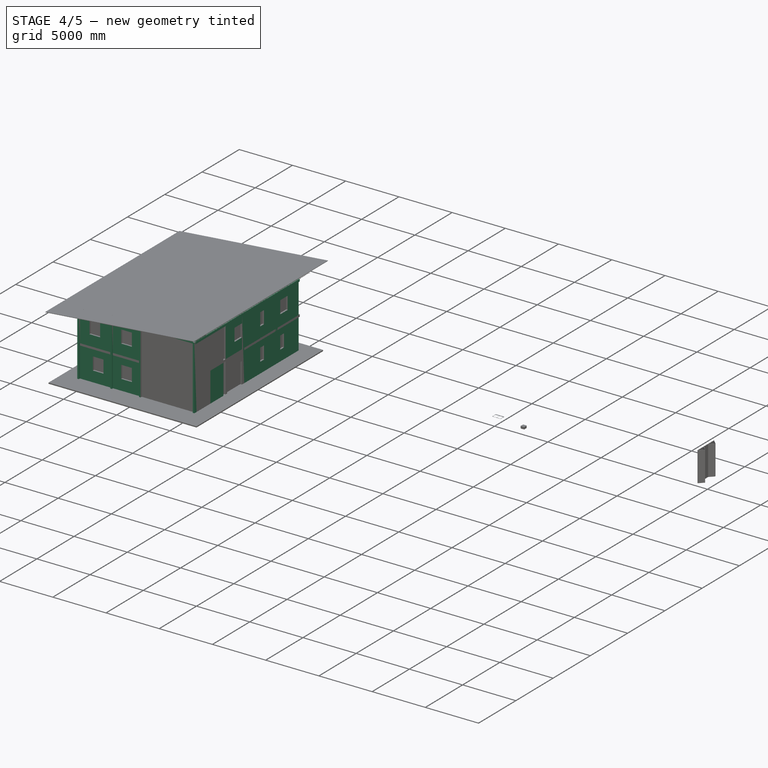
[diagram: stage 4 of 5 — iso view after this stage's code; geometry added in this stage tinted green]
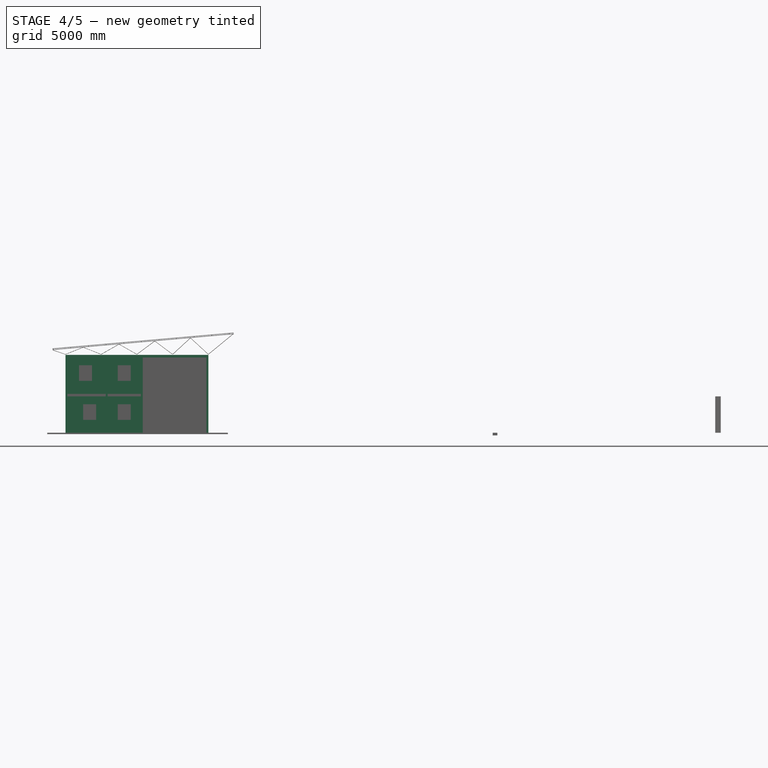
[diagram: stage 4 of 5 — front view after this stage's code; geometry added in this stage tinted green]
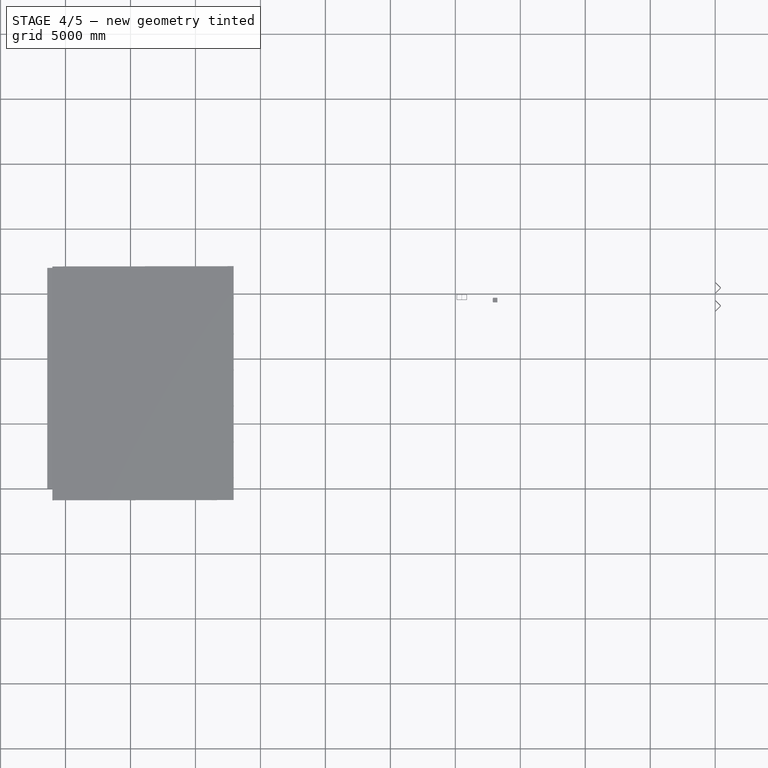
[diagram: stage 4 of 5 — top view after this stage's code; geometry added in this stage tinted green]
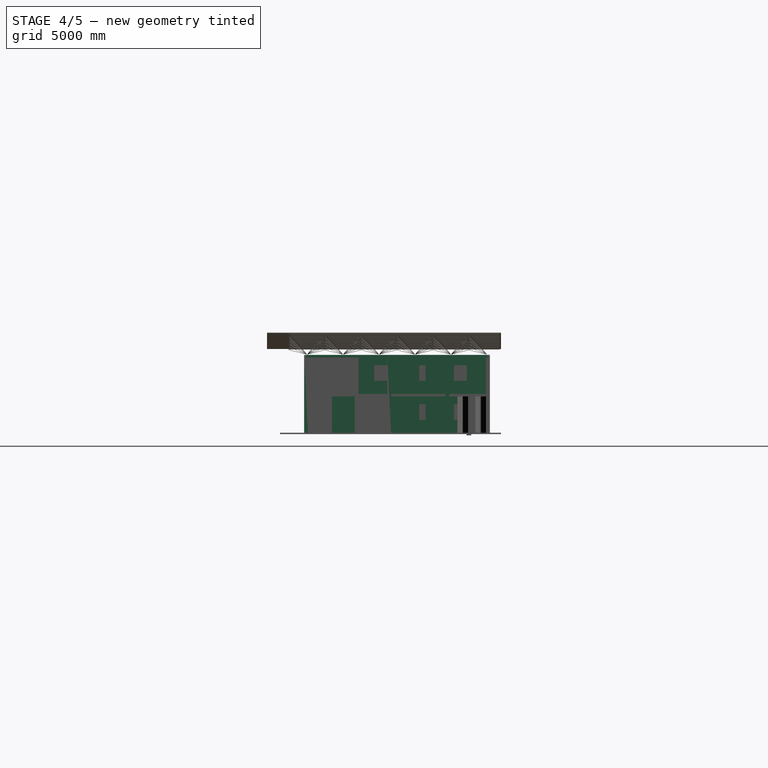
[diagram: stage 4 of 5 — right view after this stage's code; geometry added in this stage tinted green]
FEATURE [Part::FeaturePython] Structure018  # WARN: FeaturePython — macro-defined, semantics opaque (R4)
  Height = 6000
  Length = 150
  MoveWithHost = false
  Nodes = (2) [(0,0,0),(0,0,6000)]
  Normal = (0,0,0)
  Placement = pos=(5870,5900,0) rot=(0,0,1;0rad)
  Role = 1
  Width = 300
FEATURE [Part::FeaturePython] Structure020  # WARN: FeaturePython — macro-defined, semantics opaque (R4)
  Height = 6000
  Length = 150
  MoveWithHost = false
  Nodes = (2) [(0,0,0),(0,0,6000)]
  Normal = (0,0,0)
  Placement = pos=(70,2000,0) rot=(0,0,1;0rad)
  Role = 1
  Width = 300
FEATURE [Part::FeaturePython] Structure021  # WARN: FeaturePython — macro-defined, semantics opaque (R4)
  Height = 6000
  Length = 150
  MoveWithHost = false
  Nodes = (2) [(0,0,0),(0,0,6000)]
  Normal = (0,0,0)
  Placement = pos=(10920,2000,0) rot=(0,0,1;0rad)
  Role = 1
  Width = 300
FEATURE [Part::FeaturePython] Structure022  # WARN: FeaturePython — macro-defined, semantics opaque (R4)
  Height = 6000
  Length = 150
  MoveWithHost = false
  Nodes = (2) [(0,0,0),(0,0,6000)]
  Normal = (0,0,0)
  Placement = pos=(5870,2000,0) rot=(0,0,1;0rad)
  Role = 1
  Width = 300
FEATURE [Part::FeaturePython] Structure023  # WARN: FeaturePython — macro-defined, semantics opaque (R4)
  Height = 6000
  Length = 150
  MoveWithHost = false
  Nodes = (2) [(0,0,0),(0,0,6000)]
  Normal = (0,0,0)
  Placement = pos=(3170,2000,0) rot=(0,0,1;0rad)
  Role = 1
  Width = 300
FEATURE [Part::FeaturePython] Structure024  # WARN: FeaturePython — macro-defined, semantics opaque (R4)
  Height = 6000
  Length = 150
  MoveWithHost = false
  Nodes = (2) [(0,0,0),(0,0,6000)]
  Normal = (0,0,0)
  Placement = pos=(70,8400,0) rot=(0,0,1;0rad)
  Role = 1
  Width = 300
FEATURE [Part::FeaturePython] Structure025  # WARN: FeaturePython — macro-defined, semantics opaque (R4)
  Height = 6000
  Length = 150
  MoveWithHost = false
  Nodes = (2) [(0,0,0),(0,0,6000)]
  Normal = (0,0,0)
  Placement = pos=(10920,8400,0) rot=(0,0,1;0rad)
  Role = 1
  Width = 300
FEATURE [Part::FeaturePython] Structure026  # WARN: FeaturePython — macro-defined, semantics opaque (R4)
  Height = 6000
  Length = 150
  MoveWithHost = false
  Nodes = (2) [(0,0,0),(0,0,6000)]
  Normal = (0,0,0)
  Placement = pos=(5870,8400,0) rot=(0,0,1;0rad)
  Role = 1
  Width = 300
FEATURE [Part::FeaturePython] Structure027  # WARN: FeaturePython — macro-defined, semantics opaque (R4)
  Height = 6000
  Length = 150
  MoveWithHost = false
  Nodes = (2) [(0,0,0),(0,0,6000)]
  Normal = (0,0,0)
  Placement = pos=(4520,8400,0) rot=(0,0,1;0rad)
  Role = 1
  Width = 300
FEATURE [Part::FeaturePython] Structure028  # WARN: FeaturePython — macro-defined, semantics opaque (R4)
  Height = 6000
  Length = 150
  MoveWithHost = false
  Nodes = (2) [(0,0,0),(0,0,6000)]
  Normal = (0,0,0)
  Placement = pos=(70,12870,0) rot=(0,0,1;0rad)
  Role = 1
  Width = 300
FEATURE [Part::FeaturePython] Structure029  # WARN: FeaturePython — macro-defined, semantics opaque (R4)
  Height = 6000
  Length = 150
  MoveWithHost = false
  Nodes = (2) [(0,0,0),(0,0,6000)]
  Normal = (0,0,0)
  Placement = pos=(10920,12870,0) rot=(0,0,1;0rad)
  Role = 1
  Width = 300
FEATURE [Part::FeaturePython] Structure030  # WARN: FeaturePython — macro-defined, semantics opaque (R4)
  Height = 6000
  Length = 150
  MoveWithHost = false
  Nodes = (2) [(0,0,0),(0,0,6000)]
  Normal = (0,0,0)
  Placement = pos=(5870,12870,0) rot=(0,0,1;0rad)
  Role = 1
  Width = 300
FEATURE [Part::FeaturePython] Structure031  # WARN: FeaturePython — macro-defined, semantics opaque (R4)
  Height = 6000
  Length = 150
  MoveWithHost = false
  Nodes = (2) [(0,0,0),(0,0,6000)]
  Normal = (0,0,0)
  Placement = pos=(4520,12870,0) rot=(0,0,1;0rad)
  Role = 1
  Width = 300
FEATURE [App::DocumentObjectGroup] Group  label="A-Columns"
  Group = -> [Structure,Structure001,Structure002,Structure003,Structure016,Structure018,Structure019,Structure020,Structure021,Structure022,Structure023,Structure024,Structure025,Structure026,Structure027,Structure028,Structure029,Structure030,Structure031]
FEATURE [Part::Part2DObjectPython] Line  # Draft 2D object (typed FeaturePython)
  ChamferSize = 0
  Closed = false
  End = (10845,16000,0)
  FilletRadius = 0
  Length = 4900
  MakeFace = true
  Points = (2) [(5945,16000,0),(10845,16000,0)]
  Start = (5945,16000,0)
FEATURE [Part::Part2DObjectPython] Line001  # Draft 2D object (typed FeaturePython)
  ChamferSize = 0
  Closed = false
  End = (5795,16000,0)
  FilletRadius = 0
  Length = 2550
  MakeFace = true
  Points = (2) [(3245,16000,0),(5795,16000,0)]
  Start = (3245,16000,0)
FEATURE [Part::Part2DObjectPython] Line002  # Draft 2D object (typed FeaturePython)
  ChamferSize = 0
  Closed = false
  End = (10920,15850,0)
  FilletRadius = 0
  Length = 2830
  MakeFace = true
  Points = (2) [(10920,13020,0),(10920,15850,0)]
  Start = (10920,13020,0)
FEATURE [Part::Part2DObjectPython] Line003  # Draft 2D object (typed FeaturePython)
  ChamferSize = 0
  Closed = false
  End = (10920,12720,0)
  FilletRadius = 0
  Length = 4170
  MakeFace = true
  Points = (2) [(10920,8550,0),(10920,12720,0)]
  Start = (10920,8550,0)
FEATURE [Part::Part2DObjectPython] Line005  # Draft 2D object (typed FeaturePython)
  ChamferSize = 0
  Closed = false
  End = (10920,5750,0)
  FilletRadius = 0
  Length = 1750.39
  MakeFace = true
  Points = (2) [(10920,3999.61,0),(10920,5750,0)]
  Start = (10920,3999.61,0)
FEATURE [Part::Part2DObjectPython] Line007  # Draft 2D object (typed FeaturePython)
  ChamferSize = 0
  Closed = false
  End = (3095,2000,0)
  FilletRadius = 0
  Length = 2950
  MakeFace = true
  Points = (2) [(145,2000,0),(3095,2000,0)]
  Start = (145,2000,0)
FEATURE [Part::Part2DObjectPython] Line008  # Draft 2D object (typed FeaturePython)
  ChamferSize = 0
  Closed = false
  End = (3170,2150,0)
  FilletRadius = 0
  Length = 3600
  MakeFace = true
  Points = (2) [(3170,5750,0),(3170,2150,0)]
  Start = (3170,5750,0)
FEATURE [Part::Part2DObjectPython] Line009  # Draft 2D object (typed FeaturePython)
  ChamferSize = 0
  Closed = false
  End = (5870,2150,3000)
  FilletRadius = 0
  Length = 3600
  MakeFace = true
  Points = (2) [(5870,5750,3000),(5870,2150,3000)]
  Start = (5870,5750,3000)
FEATURE [Part::Part2DObjectPython] Line010  # Draft 2D object (typed FeaturePython)
  ChamferSize = 0
  Closed = false
  End = (3245,2000,3000)
  FilletRadius = 0
  Length = 2550
  MakeFace = true
  Placement = pos=(0,-1000,0) rot=(0,0,1;0rad)
  Points = (2) [(5795,3000,3000),(3245,3000,3000)]
  Start = (5795,2000,3000)
FEATURE [Part::Part2DObjectPython] Line011  # Draft 2D object (typed FeaturePython)
  ChamferSize = 0
  Closed = false
  End = (10845,2000,0)
  FilletRadius = 0
  Length = 4900
  MakeFace = true
  Points = (2) [(5945,2000,0),(10845,2000,0)]
  Start = (5945,2000,0)
FEATURE [Part::Part2DObjectPython] Line013  # Draft 2D object (typed FeaturePython)
  ChamferSize = 0
  Closed = false
  End = (70,5750,0)
  FilletRadius = 0
  Length = 3600
  MakeFace = true
  Placement = pos=(-10850,0,-3172.19) rot=(0,0,1;0rad)
  Points = (2) [(10920,2150,3172.19),(10920,5750,3172.19)]
  Start = (70,2150,0)
FEATURE [Part::Part2DObjectPython] Line014  # Draft 2D object (typed FeaturePython)
  ChamferSize = 0
  Closed = false
  End = (70,6050,0)
  FilletRadius = 0
  Length = 2200
  MakeFace = true
  Placement = pos=(-10850,0,-3172.19) rot=(0,0,1;0rad)
  Points = (2) [(10920,8250,3172.19),(10920,6050,3172.19)]
  Start = (70,8250,0)
FEATURE [Part::Part2DObjectPython] Line015  # Draft 2D object (typed FeaturePython)
  ChamferSize = 0
  Closed = false
  End = (70,12720,0)
  FilletRadius = 0
  Length = 4170
  MakeFace = true
  Placement = pos=(-10850,0,-3172.19) rot=(0,0,1;0rad)
  Points = (2) [(10920,8550,3172.19),(10920,12720,3172.19)]
  Start = (70,8550,0)
FEATURE [Part::Part2DObjectPython] Line016  # Draft 2D object (typed FeaturePython)
  ChamferSize = 0
  Closed = false
  End = (10845,11850,3000)
  FilletRadius = 0
  Length = 3550
  MakeFace = true
  Placement = pos=(0,-1020,3000) rot=(0,0,1;0rad)
  Points = (2) [(7295,12870,0),(10845,12870,0)]
  Start = (7295,11850,3000)
FEATURE [Part::Part2DObjectPython] Line017  # Draft 2D object (typed FeaturePython)
  ChamferSize = 0
  Closed = false
  End = (4595,12870,0)
  FilletRadius = 0
  Length = 1200
  MakeFace = true
  Points = (2) [(5795,12870,0),(4595,12870,0)]
  Start = (5795,12870,0)
FEATURE [Part::Part2DObjectPython] Line018  # Draft 2D object (typed FeaturePython)
  ChamferSize = 0
  Closed = false
  End = (4520,15350,3000)
  FilletRadius = 0
  Length = 500
  MakeFace = true
  Points = (2) [(4520,15850,3000),(4520,15350,3000)]
  Start = (4520,15850,3000)
FEATURE [Part::Part2DObjectPython] Line019  # Draft 2D object (typed FeaturePython)
  ChamferSize = 0
  Closed = false
  End = (145,12000,3000)
  FilletRadius = 0
  Length = 4300
  MakeFace = true
  Placement = pos=(0,-870,3000) rot=(0,0,1;0rad)
  Points = (2) [(4445,12870,0),(145,12870,0)]
  Start = (4445,12000,3000)
FEATURE [Part::Part2DObjectPython] Line022  # Draft 2D object (typed FeaturePython)
  ChamferSize = 0
  Closed = false
  End = (145,9600,0)
  FilletRadius = 0
  Length = 4300
  MakeFace = true
  Placement = pos=(0,50,0) rot=(0,0,1;0rad)
  Points = (2) [(4445,9550,0),(145,9550,0)]
  Start = (4445,9600,0)
FEATURE [Part::FeaturePython] Wall004  # WARN: FeaturePython — macro-defined, semantics opaque (R4)
  Align = 2
  Base = -> Line005
  Face = 0
  Height = 2800
  Length = 0
  MoveWithHost = false
  Normal = (0,0,0)
  Role = 0
  Width = 150
FEATURE [Part::FeaturePython] Wall013  # WARN: FeaturePython — macro-defined, semantics opaque (R4)
  Align = 0
  Base = -> Line017
  Face = 0
  Height = 2700
  Length = 0
  MoveWithHost = false
  Normal = (0,0,0)
  Role = 0
  Width = 150
FEATURE [Part::FeaturePython] Wall015  # WARN: FeaturePython — macro-defined, semantics opaque (R4)
  Align = 0
  Base = -> Line001
  Face = 0
  Height = 2800
  Length = 0
  MoveWithHost = false
  Normal = (0,0,0)
  Role = 0
  Width = 150
FEATURE [Part::Part2DObjectPython] Line025  # Draft 2D object (typed FeaturePython)
  ChamferSize = 0
  Closed = false
  End = (8945,13020,0)
  FilletRadius = 0
  Length = 2830
  MakeFace = true
  Placement = pos=(0,0,3000) rot=(0,0,1;0rad)
  Points = (2) [(8945,15850,-3000),(8945,13020,-3000)]
  Start = (8945,15850,0)
FEATURE [Part::FeaturePython] Wall027  # WARN: FeaturePython — macro-defined, semantics opaque (R4)
  Align = 2
  Base = -> Line014
  Face = 0
  Height = 2800
  Length = 0
  MoveWithHost = false
  Normal = (0,0,0)
  Placement = pos=(0,0,3000) rot=(0,0,1;0rad)
  Role = 0
  Width = 150
FEATURE [Part::FeaturePython] Wall028  # WARN: FeaturePython — macro-defined, semantics opaque (R4)
  Align = 2
  Base = -> Line009
  Face = 0
  Height = 2800
  Length = 0
  MoveWithHost = false
  Normal = (0,0,0)
  Role = 0
  Width = 150
FEATURE [Part::FeaturePython] Wall033  # WARN: FeaturePython — macro-defined, semantics opaque (R4)
  Align = 2
  Base = -> Line018
  Face = 0
  Height = 2800
  Length = 0
  MoveWithHost = false
  Normal = (0,0,0)
  Role = 0
  Width = 150
FEATURE [Part::FeaturePython] Wall034  # WARN: FeaturePython — macro-defined, semantics opaque (R4)
  Align = 0
  Base = -> Line022
  Face = 0
  Height = 2800
  Length = 0
  MoveWithHost = false
  Normal = (0,0,0)
  Placement = pos=(0,0,3000) rot=(0,0,1;0rad)
  Role = 0
  Width = 150
FEATURE [Part::FeaturePython] Wall035  # WARN: FeaturePython — macro-defined, semantics opaque (R4)
  Align = 0
  Base = -> Line016
  Face = 0
  Height = 2800
  Length = 0
  MoveWithHost = false
  Normal = (0,0,0)
  Role = 0
  Width = 150
FEATURE [Part::Part2DObjectPython] Line027  # Draft 2D object (typed FeaturePython)
  ChamferSize = 0
  Closed = false
  End = (5795,5900,3000)
  FilletRadius = 0
  Length = 1200
  MakeFace = true
  Points = (2) [(4595,5900,3000),(5795,5900,3000)]
  Start = (4595,5900,3000)
FEATURE [Part::FeaturePython] Wall045  # WARN: FeaturePython — macro-defined, semantics opaque (R4)
  Align = 1
  Base = -> Line027
  Face = 0
  Height = 2800
  Length = 0
  MoveWithHost = false
  Normal = (0,0,0)
  Role = 0
  Width = 150
FEATURE [Part::Part2DObjectPython] Line028  # Draft 2D object (typed FeaturePython)
  ChamferSize = 0
  Closed = false
  End = (10845,5900,3000)
  FilletRadius = 0
  Length = 4900
  MakeFace = true
  Points = (2) [(5945,5900,3000),(10845,5900,3000)]
  Start = (5945,5900,3000)
FEATURE [Part::Part2DObjectPython] Line029  # Draft 2D object (typed FeaturePython)
  ChamferSize = 0
  Closed = false
  End = (70,13020,3000)
  FilletRadius = 0
  Length = 2830
  MakeFace = true
  Points = (2) [(70,15850,3000),(70,13020,3000)]
  Start = (70,15850,3000)
FEATURE [Part::Part2DObjectPython] Line030  # Draft 2D object (typed FeaturePython)
  ChamferSize = 0
  Closed = false
  End = (145,16000,3000)
  FilletRadius = 0
  Length = 2950
  MakeFace = true
  Points = (2) [(3095,16000,3000),(145,16000,3000)]
  Start = (3095,16000,3000)
FEATURE [Part::FeaturePython] Wall048  # WARN: FeaturePython — macro-defined, semantics opaque (R4)
  Align = 2
  Base = -> Line029
  Face = 0
  Height = 2800
  Length = 0
  MoveWithHost = false
  Normal = (0,0,0)
  Role = 0
  Width = 150
FEATURE [Part::Part2DObjectPython] Line031  # Draft 2D object (typed FeaturePython)
  ChamferSize = 0
  Closed = false
  End = (3245,16000,3000)
  FilletRadius = 0
  Length = 2550
  MakeFace = true
  Points = (2) [(5795,16000,3000),(3245,16000,3000)]
  Start = (5795,16000,3000)
FEATURE [Part::Part2DObjectPython] Line039  # Draft 2D object (typed FeaturePython)
  ChamferSize = 0
  Closed = false
  End = (10845,10200,3000)
  FilletRadius = 0
  Length = 3550
  MakeFace = true
  Points = (2) [(7295,10200,3000),(10845,10200,3000)]
  Start = (7295,10200,3000)
FEATURE [Part::FeaturePython] Wall051  # WARN: FeaturePython — macro-defined, semantics opaque (R4)
  Align = 0
  Base = -> Line039
  Face = 0
  Height = 2800
  Length = 0
  MoveWithHost = false
  Normal = (0,0,0)
  Role = 0
  Width = 150
FEATURE [Part::Part2DObjectPython] Line040  # Draft 2D object (typed FeaturePython)
  ChamferSize = 0
  Closed = false
  End = (7145,6050,3000)
  FilletRadius = 0
  Length = 9800
  MakeFace = true
  Points = (2) [(7145,15850,3000),(7145,6050,3000)]
  Start = (7145,15850,3000)
FEATURE [Part::Part2DObjectPython] Line041  # Draft 2D object (typed FeaturePython)
  ChamferSize = 0
  Closed = false
  End = (4593.51,8250,3000)
  FilletRadius = 0
  Length = 1201.49
  MakeFace = true
  Points = (2) [(5795,8250,3000),(4593.51,8250,3000)]
  Start = (5795,8250,3000)
FEATURE [Part::Part2DObjectPython] Line042  # Draft 2D object (typed FeaturePython)
  ChamferSize = 0
  Closed = false
  End = (5945,12720,3000)
  FilletRadius = 0
  Length = 4170
  MakeFace = true
  Points = (2) [(5945,8550,3000),(5945,12720,3000)]
  Start = (5945,8550,3000)
FEATURE [Part::FeaturePython] Wall053  # WARN: FeaturePython — macro-defined, semantics opaque (R4)
  Align = 1
  Base = -> Line042
  Face = 0
  Height = 1000
  Length = 0
  MoveWithHost = false
  Normal = (0,0,0)
  Role = 0
  Width = 150
FEATURE [Part::FeaturePython] Wall054  # WARN: FeaturePython — macro-defined, semantics opaque (R4)
  Align = 0
  Base = -> Line041
  Face = 0
  Height = 1000
  Length = 0
  MoveWithHost = false
  Normal = (0,0,0)
  Role = 0
  Width = 150
FEATURE [Part::Part2DObjectPython] Line043  # Draft 2D object (typed FeaturePython)
  ChamferSize = 0
  Closed = false
  End = (2380,4069.81,3000)
  FilletRadius = 0
  Length = 4506.35
  MakeFace = true
  Placement = pos=(-4915,0.305262,0.0001461) rot=(0,0,1;0rad)
  Points = (2) [(7295,8575.86,3000),(7295,4069.51,3000)]
  Start = (2380,8576.17,3000)
FEATURE [Part::Part2DObjectPython] Line047  # Draft 2D object (typed FeaturePython)
  ChamferSize = 0
  Closed = false
  End = (7295,8250,3000)
  FilletRadius = 0
  Length = 600
  MakeFace = true
  Points = (2) [(7895,8250,3000),(7295,8250,3000)]
  Start = (7895,8250,3000)
FEATURE [Part::FeaturePython] Wall055  # WARN: FeaturePython — macro-defined, semantics opaque (R4)
  Align = 0
  Base = -> Line047
  Face = 0
  Height = 2800
  Length = 0
  MoveWithHost = false
  Normal = (0,0,0)
  Role = 0
  Width = 150
FEATURE [Part::Part2DObjectPython] Line048  # Draft 2D object (typed FeaturePython)
  ChamferSize = 0
  Closed = false
  End = (7447.32,11850.3,3000)
  FilletRadius = 0
  Length = 3155.03
  MakeFace = true
  Placement = pos=(-4915,0.305262,0.0001461) rot=(0,0,1;0rad)
  Points = (2) [(9207.29,11850,3000),(12362.3,11850,3000)]
  Start = (4292.29,11850.3,3000)
FEATURE [Part::Part2DObjectPython] Line049  # Draft 2D object (typed FeaturePython)
  ChamferSize = 0
  Closed = false
  End = (8569.45,15850.3,3000)
  FilletRadius = 0
  Length = 4404.97
  MakeFace = true
  Placement = pos=(-4915,0.305262,0.0001461) rot=(0,0,1;0rad)
  Points = (2) [(9079.47,15850,3000),(13484.4,15850,3000)]
  Start = (4164.47,15850.3,3000)
FEATURE [Part::Part2DObjectPython] Line050  # Draft 2D object (typed FeaturePython)
  ChamferSize = 0
  Closed = false
  End = (8569.45,13650.3,3000)
  FilletRadius = 0
  Length = 4404.97
  MakeFace = true
  Placement = pos=(-4915,0.305262,0.0001461) rot=(0,0,1;0rad)
  Points = (2) [(9079.47,13650,3000),(13484.4,13650,3000)]
  Start = (4164.47,13650.3,3000)
FEATURE [Part::Part2DObjectPython] Line023  # Draft 2D object (typed FeaturePython)
  ChamferSize = 0
  Closed = false
  End = (4520,12720,3000)
  FilletRadius = 0
  Length = 4170
  MakeFace = true
  Points = (2) [(4520,8550,3000),(4520,12720,3000)]
  Start = (4520,8550,3000)
FEATURE [Part::FeaturePython] Wall029  # WARN: FeaturePython — macro-defined, semantics opaque (R4)
  Align = 2
  Base = -> Line023
  Face = 0
  Height = 2800
  Length = 0
  MoveWithHost = false
  Normal = (0,0,0)
  Role = 0
  Width = 150
FEATURE [Part::Part2DObjectPython] Line052  # Draft 2D object (typed FeaturePython)
  ChamferSize = 0
  Closed = false
  End = (4595,8250,3000)
  FilletRadius = 0
  Length = 2350
  MakeFace = true
  Points = (2) [(4595,5900,3000),(4595,8250,3000)]
  Start = (4595,5900,3000)
FEATURE [Part::Part2DObjectPython] Line057  # Draft 2D object (typed FeaturePython)
  ChamferSize = 0
  Closed = false
  End = (-6976.01,12000.3,3000)
  FilletRadius = 0
  Length = 3334.15
  MakeFace = true
  Placement = pos=(-4915,0.305262,0.0001461) rot=(0,0,1;0rad)
  Points = (2) [(1273.13,12000,3000),(-2061.02,12000,3000)]
  Start = (-3641.87,12000.3,3000)
FEATURE [Part::Part2DObjectPython] Line058  # Draft 2D object (typed FeaturePython)
  ChamferSize = 0
  Closed = false
  End = (-6976.01,11400.3,3000)
  FilletRadius = 0
  Length = 7145.96
  MakeFace = true
  Placement = pos=(-4915,0.305262,0.0001461) rot=(0,0,1;0rad)
  Points = (2) [(5084.95,11400,3000),(-2061.02,11400,3000)]
  Start = (169.949,11400.3,3000)
FEATURE [Part::Part2DObjectPython] Line059  # Draft 2D object (typed FeaturePython)
  ChamferSize = 0
  Closed = false
  End = (3170,12000,3000)
  FilletRadius = 0
  Length = 600
  MakeFace = true
  Points = (2) [(3170,11400,3000),(3170,12000,3000)]
  Start = (3170,11400,3000)
FEATURE [Part::FeaturePython] Wall058  # WARN: FeaturePython — macro-defined, semantics opaque (R4)
  Align = 1
  Base = -> Line059
  Face = 0
  Height = 2800
  Length = 0
  MoveWithHost = false
  Normal = (0,0,0)
  Role = 0
  Width = 150
FEATURE [Part::Part2DObjectPython] Line060  # Draft 2D object (typed FeaturePython)
  ChamferSize = 0
  Closed = false
  End = (10845,12870,0)
  FilletRadius = 0
  Length = 4900
  MakeFace = true
  Points = (2) [(5945,12870,0),(10845,12870,0)]
  Start = (5945,12870,0)
FEATURE [Part::Part2DObjectPython] Line061  # Draft 2D object (typed FeaturePython)
  ChamferSize = 0
  Closed = false
  End = (5930,16814.6,0.0001461)
  FilletRadius = 0
  Length = 2358.9
  MakeFace = true
  Placement = pos=(-4915,0.305262,0.0001461) rot=(0,0,1;0rad)
  Points = (2) [(10845,14455.4,0),(10845,16814.3,0)]
  Start = (5930,14455.7,0.0001461)
FEATURE [Part::Part2DObjectPython] Line062  # Draft 2D object (typed FeaturePython)
  ChamferSize = 0
  Closed = false
  End = (4520,15850,0)
  FilletRadius = 0
  Length = 2830
  MakeFace = true
  Points = (2) [(4520,13020,0),(4520,15850,0)]
  Start = (4520,13020,0)
FEATURE [Part::Part2DObjectPython] Line063  # Draft 2D object (typed FeaturePython)
  ChamferSize = 0
  Closed = false
  End = (4520,12720,0)
  FilletRadius = 0
  Length = 4170
  MakeFace = true
  Points = (2) [(4520,8550,0),(4520,12720,0)]
  Start = (4520,8550,0)
FEATURE [Part::FeaturePython] Wall062  # WARN: FeaturePython — macro-defined, semantics opaque (R4)
  Align = 2
  Base = -> Line063
  Face = 0
  Height = 2800
  Length = 0
  MoveWithHost = false
  Normal = (0,0,0)
  Role = 0
  Width = 150
FEATURE [Part::Part2DObjectPython] Line064  # Draft 2D object (typed FeaturePython)
  ChamferSize = 0
  Closed = false
  End = (3170,9600,0)
  FilletRadius = 0
  Length = 4850
  MakeFace = true
  Points = (2) [(3170,4750,0),(3170,9600,0)]
  Start = (3170,4750,0)
FEATURE [Part::Part2DObjectPython] Line065  # Draft 2D object (typed FeaturePython)
  ChamferSize = 0
  Closed = false
  End = (-6252.85,2150.31,0.0001461)
  FilletRadius = 0
  Length = 2264.08
  MakeFace = true
  Placement = pos=(-4915,0.305262,0.0001461) rot=(0,0,1;0rad)
  Points = (2) [(926.23,2150,0),(-1337.85,2150,0)]
  Start = (-3988.77,2150.31,0.0001461)
FEATURE [Part::Part2DObjectPython] Line066  # Draft 2D object (typed FeaturePython)
  ChamferSize = 0
  Closed = false
  End = (-6252.85,6500.31,0.0001461)
  FilletRadius = 0
  Length = 2264.08
  MakeFace = true
  Placement = pos=(-4915,0.305262,0.0001461) rot=(0,0,1;0rad)
  Points = (2) [(926.23,6500,0),(-1337.85,6500,0)]
  Start = (-3988.77,6500.31,0.0001461)
FEATURE [Part::Part2DObjectPython] Line067  # Draft 2D object (typed FeaturePython)
  ChamferSize = 0
  Closed = false
  End = (3095,6500,0)
  FilletRadius = 0
  Length = 2950
  MakeFace = true
  Points = (2) [(145,6500,0),(3095,6500,0)]
  Start = (145,6500,0)
FEATURE [Part::Part2DObjectPython] Line068  # Draft 2D object (typed FeaturePython)
  ChamferSize = 0
  Closed = false
  End = (3095,8250,0)
  FilletRadius = 0
  Length = 2950
  MakeFace = true
  Points = (2) [(145,8250,0),(3095,8250,0)]
  Start = (145,8250,0)
FEATURE [Part::FeaturePython] Wall065  # WARN: FeaturePython — macro-defined, semantics opaque (R4)
  Align = 1
  Base = -> Line068
  Face = 0
  Height = 2800
  Length = 0
  MoveWithHost = false
  Normal = (0,0,0)
  Role = 0
  Width = 150
FEATURE [Part::Part2DObjectPython] Line069  # Draft 2D object (typed FeaturePython)
  ChamferSize = 0
  Closed = false
  End = (-6633.63,8400.31,0.0001461)
  FilletRadius = 0
  Length = 3259.04
  MakeFace = true
  Placement = pos=(-4915,0.305262,0.0001461) rot=(0,0,1;0rad)
  Points = (2) [(1540.41,8400,0),(-1718.63,8400,0)]
  Start = (-3374.59,8400.31,0.0001461)
FEATURE [Part::Part2DObjectPython] Line070  # Draft 2D object (typed FeaturePython)
  ChamferSize = 0
  Closed = false
  End = (-6633.63,9600.31,0.0001461)
  FilletRadius = 0
  Length = 1863.63
  MakeFace = true
  Placement = pos=(-4915,0.305262,0.0001461) rot=(0,0,1;0rad)
  Points = (2) [(145,9600,0),(-1718.63,9600,0)]
  Start = (-4770,9600.31,0.0001461)
FEATURE [Part::Part2DObjectPython] Line071  # Draft 2D object (typed FeaturePython)
  ChamferSize = 0
  Closed = false
  End = (4445,9600,0)
  FilletRadius = 0
  Length = 4300
  MakeFace = true
  Points = (2) [(145,9600,0),(4445,9600,0)]
  Start = (145,9600,0)
FEATURE [Part::Part2DObjectPython] Line072  # Draft 2D object (typed FeaturePython)
  ChamferSize = 0
  Closed = false
  End = (145,13020,0)
  FilletRadius = 0
  Length = 4300
  MakeFace = true
  Points = (2) [(4445,13020,0),(145,13020,0)]
  Start = (4445,13020,0)
FEATURE [Part::Part2DObjectPython] Line073  # Draft 2D object (typed FeaturePython)
  ChamferSize = 0
  Closed = false
  End = (5795,3000,0)
  FilletRadius = 0
  Length = 2550
  MakeFace = true
  Points = (2) [(3245,3000,0),(5795,3000,0)]
  Start = (3245,3000,0)
FEATURE [Part::Feature] Mesh
  Placement = pos=(5488.78,8171.39,0) rot=(0,0,1;0rad)
  shape: bbox 1200 x 4502 x 3000 mm, 40 faces (baked)
FEATURE [Part::Part2DObjectPython] Line074  # Draft 2D object (typed FeaturePython)
  ChamferSize = 0
  Closed = false
  End = (145,2000,0)
  FilletRadius = 0
  Length = 2950
  MakeFace = true
  Points = (2) [(3095,2000,0),(145,2000,0)]
  Start = (3095,2000,0)
FEATURE [Part::FeaturePython] Stairs  # WARN: FeaturePython — macro-defined, semantics opaque (R4)
  Align = 0
  Base = -> Mesh
  BlondelRatio = 0
  Height = 3000
  Landings = 0
  Length = 4500
  MoveWithHost = false
  Nosing = 0
  NumberOfSteps = 0
  Placement = pos=(5488.78,8171.39,0) rot=(0,0,1;0rad)
  RiserHeight = 0
  Role = 0
  StringerWidth = 0
  Structure = 0
  StructureOffset = 0
  StructureThickness = 0
  TreadDepth = 0
  TreadThickness = 0
  Width = 1000
  Winders = 0
FEATURE [Part::Part2DObjectPython] Line076  # Draft 2D object (typed FeaturePython)
  ChamferSize = 0
  Closed = false
  End = (70,12720,0)
  FilletRadius = 0
  Length = 4170
  MakeFace = true
  Points = (2) [(70,8550,0.180568),(70,12720,0)]
  Start = (70,8550,0.180568)
FEATURE [Part::Part2DObjectPython] Line077  # Draft 2D object (typed FeaturePython)
  ChamferSize = 0
  Closed = false
  End = (10920,15850,0)
  FilletRadius = 0
  Length = 2830
  MakeFace = true
  Points = (2) [(10920,13020,0),(10920,15850,0)]
  Start = (10920,13020,0)
FEATURE [Part::Part2DObjectPython] Line078  # Draft 2D object (typed FeaturePython)
  ChamferSize = 0
  Closed = false
  End = (5870,5750,0)
  FilletRadius = 0
  Length = 3600
  MakeFace = true
  Points = (2) [(5870,2150,0),(5870,5750,0)]
  Start = (5870,2150,0)
FEATURE [Part::Part2DObjectPython] Line079  # Draft 2D object (typed FeaturePython)
  ChamferSize = 0
  Closed = false
  End = (5945,16000,0)
  FilletRadius = 0
  Length = 4900
  MakeFace = true
  Points = (2) [(10845,16000,0),(5945,16000,0)]
  Start = (10845,16000,0)
FEATURE [Part::Part2DObjectPython] Line080  # Draft 2D object (typed FeaturePython)
  ChamferSize = 0
  Closed = false
  End = (70,5750,0)
  FilletRadius = 0
  Length = 3600
  MakeFace = true
  Points = (2) [(70,2150,0),(70,5750,0)]
  Start = (70,2150,0)
FEATURE [Part::Part2DObjectPython] Line081  # Draft 2D object (typed FeaturePython)
  ChamferSize = 0
  Closed = false
  End = (10920,12720,0)
  FilletRadius = 0
  Length = 4170
  MakeFace = true
  Points = (2) [(10920,8550,0),(10920,12720,0)]
  Start = (10920,8550,0)
FEATURE [Part::Part2DObjectPython] Line082  # Draft 2D object (typed FeaturePython)
  ChamferSize = 0
  Closed = false
  End = (70,8250,0)
  FilletRadius = 0
  Length = 2200
  MakeFace = true
  Points = (2) [(70,6050,0),(70,8250,0)]
  Start = (70,6050,0)
FEATURE [Part::Part2DObjectPython] Line083  # Draft 2D object (typed FeaturePython)
  ChamferSize = 0
  Closed = false
  End = (10845,11850,3000)
  FilletRadius = 0
  Length = 3550
  MakeFace = true
  Points = (2) [(7295,11850,3000),(10845,11850,3000)]
  Start = (7295,11850,3000)
FEATURE [Part::FeaturePython] Wall078  # WARN: FeaturePython — macro-defined, semantics opaque (R4)
  Align = 0
  Base = -> Line083
  Face = 0
  Height = 2800
  Length = 0
  MoveWithHost = false
  Normal = (0,0,0)
  Role = 0
  Width = 150
FEATURE [Part::Part2DObjectPython] Line088  # Draft 2D object (typed FeaturePython)
  ChamferSize = 0
  Closed = false
  End = (-4920,14435.3,0.0001461)
  FilletRadius = 0
  Length = 1565
  MakeFace = true
  Placement = pos=(-4915,0.305262,0.0001461) rot=(0,0,1;0rad)
  Points = (2) [(-5,16000,0),(-5,14435,0)]
  Start = (-4920,16000.3,0.0001461)
FEATURE [Part::Part2DObjectPython] Line089  # Draft 2D object (typed FeaturePython)
  ChamferSize = 0
  Closed = false
  End = (-6915,16000.3,0.0001461)
  FilletRadius = 0
  Length = 3620
  MakeFace = true
  Placement = pos=(-4915,0.305262,0.0001461) rot=(0,0,1;0rad)
  Points = (2) [(1620,16000,0),(-2000,16000,0)]
  Start = (-3295,16000.3,0.0001461)
FEATURE [Part::Part2DObjectPython] Rectangle001  # Draft 2D object (typed FeaturePython)
  ChamferSize = 0
  FilletRadius = 0
  Height = 2980
  Length = -3100
  MakeFace = false
  Placement = pos=(3094.66,13020,0) rot=(0,0,1;0rad)
FEATURE [Part::Extrusion] Extrusion002  label="rear veranda floor slab level 1"
  Base = -> Rectangle001
  Dir = (0,0,-100)
  Solid = true
FEATURE [Part::Part2DObjectPython] Line094  # Draft 2D object (typed FeaturePython)
  ChamferSize = 0
  Closed = false
  End = (10344.7,16000.3,6000)
  FilletRadius = 0
  Length = 18706.8
  MakeFace = true
  Placement = pos=(-4915,0.305262,0.0001461) rot=(0,0,1;0rad)
  Points = (2) [(-3447.1,16000,6000),(15259.7,16000,6000)]
  Start = (-8362.1,16000.3,6000)
FEATURE [Part::Part2DObjectPython] Line095  # Draft 2D object (typed FeaturePython)
  ChamferSize = 0
  Closed = false
  End = (10085,2000.31,6000)
  FilletRadius = 0
  Length = 18000
  MakeFace = true
  Placement = pos=(-4915,0.305262,0.0001461) rot=(0,0,1;0rad)
  Points = (2) [(-3000,2000,6000),(15000,2000,6000)]
  Start = (-7915,2000.31,6000)
FEATURE [Part::Part2DObjectPython] Line097  # Draft 2D object (typed FeaturePython)
  ChamferSize = 0
  Closed = false
  End = (6080,-1999.69,6000)
  FilletRadius = 0
  Length = 20565.3
  MakeFace = true
  Placement = pos=(-4915,0.305262,0.0001461) rot=(0,0,1;0rad)
  Points = (2) [(10995,18565.3,6000),(10995,-2000,6000)]
  Start = (6080,18565.6,6000)
FEATURE [Part::Part2DObjectPython] Line098  # Draft 2D object (typed FeaturePython)
  ChamferSize = 0
  Closed = false
  End = (11657.2,5900.31,6000)
  FilletRadius = 0
  Length = 17589.6
  MakeFace = true
  Placement = pos=(-4915,0.305262,0.0001461) rot=(0,0,1;0rad)
  Points = (2) [(-1017.37,5900,6000),(16572.2,5900,6000)]
  Start = (-5932.37,5900.31,6000)
FEATURE [Part::Part2DObjectPython] Line099  # Draft 2D object (typed FeaturePython)
  ChamferSize = 0
  Closed = false
  End = (1030,-647.56,6000)
  FilletRadius = 0
  Length = 7788.14
  MakeFace = true
  Placement = pos=(-4915,0.305262,0.0001461) rot=(0,0,1;0rad)
  Points = (2) [(5945,7140.27,6000),(5945,-647.865,6000)]
  Start = (1030,7140.58,6000)
FEATURE [Part::Part2DObjectPython] Line100  # Draft 2D object (typed FeaturePython)
  ChamferSize = 0
  Closed = false
  End = (11192.5,2150.31,6000)
  FilletRadius = 0
  Length = 14487.5
  MakeFace = true
  Placement = pos=(-4915,0.305262,0.0001461) rot=(0,0,1;0rad)
  Points = (2) [(1620,2150,6000),(16107.5,2150,6000)]
  Start = (-3295,2150.31,6000)
FEATURE [Part::Part2DObjectPython] Line101  # Draft 2D object (typed FeaturePython)
  ChamferSize = 0
  Closed = false
  End = (5930,-331.374,6000)
  FilletRadius = 0
  Length = 7481.68
  MakeFace = true
  Placement = pos=(-4915,0.305262,0.0001461) rot=(0,0,1;0rad)
  Points = (2) [(10845,7150,6000),(10845,-331.68,6000)]
  Start = (5930,7150.31,6000)
FEATURE [Part::Part2DObjectPython] Rectangle004  # Draft 2D object (typed FeaturePython)
  ChamferSize = 0
  FilletRadius = 0
  Height = -3750
  Length = 4900
  MakeFace = true
  Placement = pos=(5945,5900,6000) rot=(0,0,1;0rad)
FEATURE [Part::Extrusion] Extrusion005
  Base = -> Rectangle004
  Dir = (0,0,-200)
  Solid = true
FEATURE [Part::Part2DObjectPython] Line102  # Draft 2D object (typed FeaturePython)
  ChamferSize = 0
  Closed = false
  End = (-4920,18537.5,6000)
  FilletRadius = 0
  Length = 19254.8
  MakeFace = true
  Placement = pos=(-4915,0.305262,0.0001461) rot=(0,0,1;0rad)
  Points = (2) [(-5,-717.619,6000),(-5,18537.2,6000)]
  Start = (-4920,-717.314,6000)
FEATURE [Part::Part2DObjectPython] Rectangle005  # Draft 2D object (typed FeaturePython)
  ChamferSize = 0
  FilletRadius = 0
  Height = 14000
  Length = 11000
  MakeFace = true
  Placement = pos=(-5,2000,6000) rot=(0,0,1;0rad)
FEATURE [Part::Extrusion] Extrusion006
  Base = -> Rectangle005
  Dir = (0,0,-200)
  Solid = true
FEATURE [Part::Cut] Cut001  label="Roof Slab level 3"
  Base = -> Extrusion006
  Placement = pos=(0.0019531,0.000212966,-3.634e-05) rot=(0,0,1;0rad)
  Tool = -> Extrusion005
FEATURE [Part::Part2DObjectPython] Line128  # Draft 2D object (typed FeaturePython)
  ChamferSize = 0
  Closed = false
  End = (-5,2000,6500)
  FilletRadius = 0
  Length = 500
  MakeFace = true
  Points = (2) [(-5,2000,6000),(-5,2000,6500)]
  Start = (-5,2000,6000)
FEATURE [Part::Part2DObjectPython] Line129  # Draft 2D object (typed FeaturePython)
  ChamferSize = 0
  Closed = false
  End = (7785.1,2150.31,6000)
  FilletRadius = 0
  Length = 13165
  MakeFace = true
  Placement = pos=(-4915,0.305262,0.0001461) rot=(0,0,1;0rad)
  Points = (2) [(-464.903,2150,6000),(12700.1,2150,6000)]
  Start = (-5379.9,2150.31,6000)
  Support = -> Cut001
FEATURE [Part::Part2DObjectPython] Line130  # Draft 2D object (typed FeaturePython)
  ChamferSize = 0
  Closed = false
  End = (-5379.9,2000.31,6000)
  FilletRadius = 0
  Length = 13165
  MakeFace = true
  Placement = pos=(-4915,0.305262,0.0001461) rot=(0,0,1;0rad)
  Points = (2) [(12700.1,2000,6000),(-464.903,2000,6000)]
  Start = (7785.1,2000.31,6000)
FEATURE [Part::Part2DObjectPython] Line131  # Draft 2D object (typed FeaturePython)
  ChamferSize = 0
  Closed = false
  End = (7785.1,16000.3,6000)
  FilletRadius = 0
  Length = 14700.1
  MakeFace = true
  Placement = pos=(-4915,0.305262,0.0001461) rot=(0,0,1;0rad)
  Points = (2) [(-2000,16000,6000),(12700.1,16000,6000)]
  Start = (-6915,16000.3,6000)
FEATURE [Part::Part2DObjectPython] Line133  # Draft 2D object (typed FeaturePython)
  ChamferSize = 0
  Closed = false
  End = (7785.1,15850.3,6000)
  FilletRadius = 0
  Length = 14700.1
  MakeFace = true
  Placement = pos=(-4915,0.305262,0.0001461) rot=(0,0,1;0rad)
  Points = (2) [(-2000,15850,6000),(12700.1,15850,6000)]
  Start = (-6915,15850.3,6000)
FEATURE [Part::Part2DObjectPython] Line134  # Draft 2D object (typed FeaturePython)
  ChamferSize = 0
  Closed = false
  End = (7785.1,2000.31,6000)
  FilletRadius = 0
  Length = 150
  MakeFace = true
  Placement = pos=(-4915,0.305262,0.0001461) rot=(0,0,1;0rad)
  Points = (2) [(12700.1,2150,6000),(12700.1,2000,6000)]
  Start = (7785.1,2150.31,6000)
  Support = -> Cut001
FEATURE [Part::Part2DObjectPython] Line135  # Draft 2D object (typed FeaturePython)
  ChamferSize = 0
  Closed = false
  End = (-6051.9,2075.31,6000)
  FilletRadius = 0
  Length = 13837
  MakeFace = true
  Placement = pos=(-4915,0.305262,0.0001461) rot=(0,0,1;0rad)
  Points = (2) [(12700.1,2075,6000),(-1136.9,2075,6000)]
  Start = (7785.1,2075.31,6000)
FEATURE [Part::Part2DObjectPython] Line136  # Draft 2D object (typed FeaturePython)
  ChamferSize = 0
  Closed = false
  End = (7785.1,15850.3,6000)
  FilletRadius = 0
  Length = 150
  MakeFace = true
  Placement = pos=(-4915,0.305262,0.0001461) rot=(0,0,1;0rad)
  Points = (2) [(12700.1,16000,6000),(12700.1,15850,6000)]
  Start = (7785.1,16000.3,6000)
FEATURE [Part::Part2DObjectPython] Line137  # Draft 2D object (typed FeaturePython)
  ChamferSize = 0
  Closed = false
  End = (-6911.9,15925.3,6000)
  FilletRadius = 0
  Length = 14697
  MakeFace = true
  Placement = pos=(-4915,0.305262,0.0001461) rot=(0,0,1;0rad)
  Points = (2) [(12700.1,15925,6000),(-1996.9,15925,6000)]
  Start = (7785.1,15925.3,6000)
FEATURE [Part::Part2DObjectPython] Line141  # Draft 2D object (typed FeaturePython)
  ChamferSize = 0
  Closed = true
  End = (6080,2090.31,6000)
  FilletRadius = 0
  Length = 0
  MakeFace = true
  Placement = pos=(-4915,0.305262,0.0001461) rot=(0,0,1;0rad)
  Points = (2) [(10995,2090,6000),(10995,2090,6000)]
  Start = (6080,2090.31,6000)
FEATURE [Part::Part2DObjectPython] Line144  # Draft 2D object (typed FeaturePython)
  ChamferSize = 0
  Closed = false
  End = (6080,2075.31,6000)
  FilletRadius = 0
  Length = 2461
  MakeFace = true
  Placement = pos=(-4915,0.305262,0.0001461) rot=(0,0,1;0rad)
  Points = (2) [(10995,2075,8461),(10995,2075,6000)]
  Start = (6080,2075.31,8461)
FEATURE [Part::Part2DObjectPython] Line148  # Draft 2D object (typed FeaturePython)
  ChamferSize = 0
  Closed = false
  End = (6080,15925.3,6000)
  FilletRadius = 0
  Length = 2461
  MakeFace = true
  Placement = pos=(-4915,10387.8,0.0001461) rot=(0,0,1;0rad)
  Points = (2) [(10995,5537.5,8461),(10995,5537.5,6000)]
  Start = (6080,15925.3,8461)
FEATURE [Part::Part2DObjectPython] Line147  # Draft 2D object (typed FeaturePython)
  ChamferSize = 0
  Closed = false
  End = (6080,12462.8,6000)
  FilletRadius = 0
  Length = 2461
  MakeFace = true
  Placement = pos=(-4915,6925.31,0.0001461) rot=(0,0,1;0rad)
  Points = (2) [(10995,5537.5,8461),(10995,5537.5,6000)]
  Start = (6080,12462.8,8461)
FEATURE [Part::Part2DObjectPython] Line149  # Draft 2D object (typed FeaturePython)
  ChamferSize = 0
  Closed = false
  End = (6080,4845.31,6000)
  FilletRadius = 0
  Length = 2461
  MakeFace = true
  Placement = pos=(-4915,0.305262,0.0001461) rot=(0,0,1;0rad)
  Points = (2) [(10995,4845,8461),(10995,4845,6000)]
  Start = (6080,4845.31,8461)
FEATURE [Part::Part2DObjectPython] Line150  # Draft 2D object (typed FeaturePython)
  ChamferSize = 0
  Closed = false
  End = (6080,7615.31,6000)
  FilletRadius = 0
  Length = 2461
  MakeFace = true
  Placement = pos=(-4915,2770.31,0.0001461) rot=(0,0,1;0rad)
  Points = (2) [(10995,4845,8461),(10995,4845,6000)]
  Start = (6080,7615.31,8461)
FEATURE [Part::Part2DObjectPython] Line151  # Draft 2D object (typed FeaturePython)
  ChamferSize = 0
  Closed = false
  End = (6080,10385.3,6000)
  FilletRadius = 0
  Length = 2461
  MakeFace = true
  Placement = pos=(-4915,5540.31,0.0001461) rot=(0,0,1;0rad)
  Points = (2) [(10995,4845,8461),(10995,4845,6000)]
  Start = (6080,10385.3,8461)
FEATURE [Part::Part2DObjectPython] Line152  # Draft 2D object (typed FeaturePython)
  ChamferSize = 0
  Closed = false
  End = (6080,13155.3,6000)
  FilletRadius = 0
  Length = 2461
  MakeFace = true
  Placement = pos=(-4915,8310.31,0.0001461) rot=(0,0,1;0rad)
  Points = (2) [(10995,4845,8461),(10995,4845,6000)]
  Start = (6080,13155.3,8461)
FEATURE [Part::Part2DObjectPython] Line153  # Draft 2D object (typed FeaturePython)
  ChamferSize = 0
  Closed = false
  End = (6080,15925.3,6000)
  FilletRadius = 0
  Length = 2461
  MakeFace = true
  Placement = pos=(-4915,11080.3,0.0001461) rot=(0,0,1;0rad)
  Points = (2) [(10995,4845,8461),(10995,4845,6000)]
  Start = (6080,15925.3,8461)
FEATURE [Part::Feature] Clone  label="Clone of Extrusion018"
  Placement = pos=(0,2770,0) rot=(0,0,1;0rad)
  shape: bbox 11000 x 40 x 40 mm, 6 faces (baked)
FEATURE [Part::Feature] Clone004  label="Clone of Extrusion019"
  Placement = pos=(0,5540,0) rot=(0,0,1;0rad)
  shape: bbox 11000 x 40 x 40 mm, 6 faces (baked)
FEATURE [Part::Feature] Clone005  label="Clone of Extrusion020"
  Placement = pos=(0,8310,0) rot=(0,0,1;0rad)
  shape: bbox 11000 x 40 x 40 mm, 6 faces (baked)
FEATURE [Part::Feature] Clone006  label="Clone of Extrusion021"
  Placement = pos=(0,11080,0) rot=(0,0,1;0rad)
  shape: bbox 11000 x 40 x 40 mm, 6 faces (baked)
FEATURE [Part::Feature] Clone007  label="Clone of Extrusion022"
  Placement = pos=(0,13850,0) rot=(0,0,1;0rad)
  shape: bbox 11000 x 40 x 40 mm, 6 faces (baked)
FEATURE [Part::Feature] Clone008  label="Clone of Extrusion023"
  shape: bbox 11000 x 40 x 40 mm, 6 faces (baked)
FEATURE [Part::Part2DObjectPython] Rectangle012  # Draft 2D object (typed FeaturePython)
  ChamferSize = 0
  FilletRadius = 0
  Height = -14000
  Length = 18000
  MakeFace = true
  Placement = pos=(12945.5,17000,7633.02) rot=(0.043578,-0.043578,-0.998099;1.5727rad)
FEATURE [Part::Feature] Face009
  Placement = pos=(12949,2055,7593.18) rot=(0,1,0;1.48353rad)
  shape: bbox 3.488 x 40 x 39.85 mm, 1 faces, 0 solids (baked)
FEATURE [Part::Part2DObjectPython] Line155  # Draft 2D object (typed FeaturePython)
  ChamferSize = 0
  Closed = false
  End = (-4920,13155.3,6040)
  FilletRadius = 0
  Length = 1385
  MakeFace = true
  Placement = pos=(-4915,0.305262,0.0001461) rot=(0,0,1;0rad)
  Points = (2) [(-5,14540,6040),(-5,13155,6040)]
  Start = (-4920,14540.3,6040)
FEATURE [Part::Part2DObjectPython] Line156  # Draft 2D object (typed FeaturePython)
  ChamferSize = 0
  Closed = false
  End = (-4920,14540.3,7197)
  FilletRadius = 0
  Length = 1157
  MakeFace = true
  Placement = pos=(-4915,0.305262,0.0001461) rot=(0,0,1;0rad)
  Points = (2) [(-5,14540,6040),(-5,14540,7197)]
  Start = (-4920,14540.3,6040)
FEATURE [Part::Part2DObjectPython] Line157  # Draft 2D object (typed FeaturePython)
  ChamferSize = 0
  Closed = false
  End = (-4920,13155.3,7197)
  FilletRadius = 0
  Length = 1157
  MakeFace = true
  Placement = pos=(-4915,-1384.69,0.0001461) rot=(0,0,1;0rad)
  Points = (2) [(-5,14540,6040),(-5,14540,7197)]
  Start = (-4920,13155.3,6040)
FEATURE [Part::Part2DObjectPython] Line158  # Draft 2D object (typed FeaturePython)
  ChamferSize = 0
  Closed = false
  End = (-4920,11770.3,6040)
  FilletRadius = 0
  Length = 1385
  MakeFace = true
  Placement = pos=(-4915,-1384.69,0.0001461) rot=(0,0,1;0rad)
  Points = (2) [(-5,14540,6040),(-5,13155,6040)]
  Start = (-4920,13155.3,6040)
FEATURE [Part::Part2DObjectPython] Line159  # Draft 2D object (typed FeaturePython)
  ChamferSize = 0
  Closed = false
  End = (-4920,11770.3,7197)
  FilletRadius = 0
  Length = 1157
  MakeFace = true
  Placement = pos=(-4915,-2769.69,0.0001461) rot=(0,0,1;0rad)
  Points = (2) [(-5,14540,6040),(-5,14540,7197)]
  Start = (-4920,11770.3,6040)
FEATURE [Part::Part2DObjectPython] Line160  # Draft 2D object (typed FeaturePython)
  ChamferSize = 0
  Closed = false
  End = (-4920,10385.3,6040)
  FilletRadius = 0
  Length = 1385
  MakeFace = true
  Placement = pos=(-4915,-2769.69,0.0001461) rot=(0,0,1;0rad)
  Points = (2) [(-5,14540,6040),(-5,13155,6040)]
  Start = (-4920,11770.3,6040)
FEATURE [Part::Part2DObjectPython] Line161  # Draft 2D object (typed FeaturePython)
  ChamferSize = 0
  Closed = false
  End = (-4920,9000.31,7197)
  FilletRadius = 0
  Length = 1157
  MakeFace = true
  Placement = pos=(-4915,-5539.69,0.0001461) rot=(0,0,1;0rad)
  Points = (2) [(-5,14540,6040),(-5,14540,7197)]
  Start = (-4920,9000.31,6040)
FEATURE [Part::Part2DObjectPython] Line162  # Draft 2D object (typed FeaturePython)
  ChamferSize = 0
  Closed = false
  End = (-4920,7615.31,6040)
  FilletRadius = 0
  Length = 1385
  MakeFace = true
  Placement = pos=(-4915,-5539.69,0.0001461) rot=(0,0,1;0rad)
  Points = (2) [(-5,14540,6040),(-5,13155,6040)]
  Start = (-4920,9000.31,6040)
FEATURE [Part::Part2DObjectPython] Line163  # Draft 2D object (typed FeaturePython)
  ChamferSize = 0
  Closed = false
  End = (-4920,7615.31,7197)
  FilletRadius = 0
  Length = 1157
  MakeFace = true
  Placement = pos=(-4915,-6924.69,0.0001461) rot=(0,0,1;0rad)
  Points = (2) [(-5,14540,6040),(-5,14540,7197)]
  Start = (-4920,7615.31,6040)
FEATURE [Part::Part2DObjectPython] Line164  # Draft 2D object (typed FeaturePython)
  ChamferSize = 0
  Closed = false
  End = (-4920,6230.31,6040)
  FilletRadius = 0
  Length = 1385
  MakeFace = true
  Placement = pos=(-4915,-6924.69,0.0001461) rot=(0,0,1;0rad)
  Points = (2) [(-5,14540,6040),(-5,13155,6040)]
  Start = (-4920,7615.31,6040)
FEATURE [Part::Part2DObjectPython] Line165  # Draft 2D object (typed FeaturePython)
  ChamferSize = 0
  Closed = false
  End = (-4920,4845.31,6040)
  FilletRadius = 0
  Length = 1385
  MakeFace = true
  Placement = pos=(-4915,-8309.69,0.0001461) rot=(0,0,1;0rad)
  Points = (2) [(-5,14540,6040),(-5,13155,6040)]
  Start = (-4920,6230.31,6040)
FEATURE [Part::Part2DObjectPython] Line166  # Draft 2D object (typed FeaturePython)
  ChamferSize = 0
  Closed = false
  End = (-4920,6230.31,7197)
  FilletRadius = 0
  Length = 1157
  MakeFace = true
  Placement = pos=(-4915,-8309.69,0.0001461) rot=(0,0,1;0rad)
  Points = (2) [(-5,14540,6040),(-5,14540,7197)]
  Start = (-4920,6230.31,6040)
FEATURE [Part::Part2DObjectPython] Line167  # Draft 2D object (typed FeaturePython)
  ChamferSize = 0
  Closed = false
  End = (-4920,4845.31,7197)
  FilletRadius = 0
  Length = 1157
  MakeFace = true
  Placement = pos=(-4915,-9694.69,0.0001461) rot=(0,0,1;0rad)
  Points = (2) [(-5,14540,6040),(-5,14540,7197)]
  Start = (-4920,4845.31,6040)
FEATURE [Part::Part2DObjectPython] Line168  # Draft 2D object (typed FeaturePython)
  ChamferSize = 0
  Closed = false
  End = (-4920,3460.31,6040)
  FilletRadius = 0
  Length = 1385
  MakeFace = true
  Placement = pos=(-4915,-9694.69,0.0001461) rot=(0,0,1;0rad)
  Points = (2) [(-5,14540,6040),(-5,13155,6040)]
  Start = (-4920,4845.31,6040)
FEATURE [Part::Part2DObjectPython] Line169  # Draft 2D object (typed FeaturePython)
  ChamferSize = 0
  Closed = false
  End = (-4920,2075.31,6040)
  FilletRadius = 0
  Length = 1385
  MakeFace = true
  Placement = pos=(-4915,-11079.7,0.0001461) rot=(0,0,1;0rad)
  Points = (2) [(-5,14540,6040),(-5,13155,6040)]
  Start = (-4920,3460.31,6040)
FEATURE [Part::Part2DObjectPython] Line170  # Draft 2D object (typed FeaturePython)
  ChamferSize = 0
  Closed = false
  End = (-4920,3460.31,7197)
  FilletRadius = 0
  Length = 1157
  MakeFace = true
  Placement = pos=(-4915,-11079.7,0.0001461) rot=(0,0,1;0rad)
  Points = (2) [(-5,14540,6040),(-5,14540,7197)]
  Start = (-4920,3460.31,6040)
FEATURE [Part::Part2DObjectPython] Line171  # Draft 2D object (typed FeaturePython)
  ChamferSize = 0
  Closed = false
  End = (-4920,2075.31,7197)
  FilletRadius = 0
  Length = 1157
  MakeFace = true
  Placement = pos=(-4915,-12464.7,0.0001461) rot=(0,0,1;0rad)
  Points = (2) [(-5,14540,6040),(-5,14540,7197)]
  Start = (-4920,2075.31,6040)
FEATURE [Part::Part2DObjectPython] Line172  # Draft 2D object (typed FeaturePython)
  ChamferSize = 0
  Closed = false
  End = (-4920,690.305,6040)
  FilletRadius = 0
  Length = 1385
  MakeFace = true
  Placement = pos=(-4915,-12464.7,0.0001461) rot=(0,0,1;0rad)
  Points = (2) [(-5,14540,6040),(-5,13155,6040)]
  Start = (-4920,2075.31,6040)
FEATURE [Part::Part2DObjectPython] Line173  # Draft 2D object (typed FeaturePython)
  ChamferSize = 0
  Closed = false
  End = (-4920,15925.3,7197)
  FilletRadius = 0
  Length = 1157
  MakeFace = true
  Placement = pos=(-4915,1385.31,0.0001461) rot=(0,0,1;0rad)
  Points = (2) [(-5,14540,6040),(-5,14540,7197)]
  Start = (-4920,15925.3,6040)
FEATURE [Part::Part2DObjectPython] Line174  # Draft 2D object (typed FeaturePython)
  ChamferSize = 0
  Closed = false
  End = (-4920,14540.3,6040)
  FilletRadius = 0
  Length = 1385
  MakeFace = true
  Placement = pos=(-4915,1385.31,0.0001461) rot=(0,0,1;0rad)
  Points = (2) [(-5,14540,6040),(-5,13155,6040)]
  Start = (-4920,15925.3,6040)
FEATURE [Part::Part2DObjectPython] Line175  # Draft 2D object (typed FeaturePython)
  ChamferSize = 0
  Closed = false
  End = (-4920,15925.3,6040)
  FilletRadius = 0
  Length = 1385
  MakeFace = true
  Placement = pos=(-4915,2770.31,0.0001461) rot=(0,0,1;0rad)
  Points = (2) [(-5,14540,6040),(-5,13155,6040)]
  Start = (-4920,17310.3,6040)
FEATURE [Part::Part2DObjectPython] Line176  # Draft 2D object (typed FeaturePython)
  ChamferSize = 0
  Closed = false
  End = (-4920,17310.3,7197)
  FilletRadius = 0
  Length = 1157
  MakeFace = true
  Placement = pos=(-4915,2770.31,0.0001461) rot=(0,0,1;0rad)
  Points = (2) [(-5,14540,6040),(-5,14540,7197)]
  Start = (-4920,17310.3,6040)
FEATURE [Part::Feature] Extrusion016
  Placement = pos=(0,1385,0) rot=(0,0,1;0rad)
  shape: bbox 13950 x 40 x 1260 mm, 6 faces (baked)
FEATURE [Part::Feature] Extrusion017
  Placement = pos=(0,4155,0) rot=(0,0,1;0rad)
  shape: bbox 13950 x 40 x 1260 mm, 6 faces (baked)
FEATURE [Part::Feature] Extrusion018
  Placement = pos=(0,6925,0) rot=(0,0,1;0rad)
  shape: bbox 13950 x 40 x 1260 mm, 6 faces (baked)
FEATURE [Part::Feature] Extrusion019
  Placement = pos=(0,9695,0) rot=(0,0,1;0rad)
  shape: bbox 13950 x 40 x 1260 mm, 6 faces (baked)
FEATURE [Part::Feature] Extrusion020
  Placement = pos=(0,12465,0) rot=(0,0,1;0rad)
  shape: bbox 13950 x 40 x 1260 mm, 6 faces (baked)
FEATURE [Part::Feature] Extrusion021
  Placement = pos=(0,14825,1e-12) rot=(0,0,1;0rad)
  shape: bbox 13950 x 40 x 1260 mm, 6 faces (baked)
FEATURE [Sketcher::SketchObject] Sketch002
  Placement = pos=(10995,10357,3902.22) rot=(0.57735,0.57735,0.57735;2.0944rad)
  sketch-geometry (8):
    g0: LineSegment StartX=0 StartY=0 StartZ=0 EndX=500 EndY=0 EndZ=0
    g1: LineSegment StartX=500 StartY=0 StartZ=0 EndX=500 EndY=1200 EndZ=0
    g2: LineSegment StartX=500 StartY=1200 StartZ=0 EndX=0 EndY=1200 EndZ=0
    g3: LineSegment StartX=0 StartY=1200 StartZ=0 EndX=0 EndY=0 EndZ=0
    g4: LineSegment StartX=50 StartY=50 StartZ=0 EndX=450 EndY=50 EndZ=0
    g5: LineSegment StartX=450 StartY=50 StartZ=0 EndX=450 EndY=1150 EndZ=0
    g6: LineSegment StartX=450 StartY=1150 StartZ=0 EndX=50 EndY=1150 EndZ=0
    g7: LineSegment StartX=50 StartY=1150 StartZ=0 EndX=50 EndY=50 EndZ=0
  constraints (23):
    c: Coincident(g0,g1)
    c: Coincident(g1,g2)
    c: Coincident(g2,g3)
    c: Coincident(g3,g0)
    c: Horizontal(g0)
    c: Horizontal(g2)
    c: Vertical(g1)
    c: Vertical(g3)
    c: Coincident(g4,g5)
    c: Coincident(g5,g6)
    c: Coincident(g6,g7)
    c: Coincident(g7,g4)
    c: Horizontal(g4)
    c: Horizontal(g6)
    c: Vertical(g5)
    c: Vertical(g7)
    c: DistanceY(g1) = 1200
    c: DistanceX(g0) = 500
    c: DistanceY(g6,g2) = 50
    c: DistanceX(g2,g6) = 50
    c: DistanceX(g4,g0) = 50
    c: DistanceY(g0,g4) = 50
    c: Coincident(g0,g-1)
FEATURE [Part::FeaturePython] Window001  # WARN: FeaturePython — macro-defined, semantics opaque (R4)
  Base = -> Sketch002
  Height = 1200
  HoleDepth = 0
  MoveWithHost = true
  Normal = (-1,0,0)
  Placement = pos=(0,347.034,97.7756) rot=(0,0,1;0rad)
  Preset = 1
  Role = 0
  Width = 500
  WindowParts = OuterFrame | Frame | Wire0,Wire1 | 100.0 | 0.0 | Glass | Glass panel | Wire1 | 10.0 | 50.0
FEATURE [Part::FeaturePython] Wall026  # WARN: FeaturePython — macro-defined, semantics opaque (R4)
  Align = 2
  Base = -> Line003
  Face = 0
  Height = 2800
  Length = 0
  MoveWithHost = false
  Normal = (0,0,0)
  Placement = pos=(0,0,3000) rot=(0,0,1;0rad)
  Role = 0
  Subtractions = -> [Window001]
  Width = 150
FEATURE [Sketcher::SketchObject] Sketch005
  Placement = pos=(10995,7773.34,3915.03) rot=(0.707107,0,0.707107;3.14159rad)
  sketch-geometry (8):
    g0: LineSegment StartX=0 StartY=0 StartZ=0 EndX=1200 EndY=0 EndZ=0
    g1: LineSegment StartX=1200 StartY=0 StartZ=0 EndX=1200 EndY=1000 EndZ=0
    g2: LineSegment StartX=1200 StartY=1000 StartZ=0 EndX=0 EndY=1000 EndZ=0
    g3: LineSegment StartX=0 StartY=1000 StartZ=0 EndX=0 EndY=0 EndZ=0
    g4: LineSegment StartX=50 StartY=50 StartZ=0 EndX=1150 EndY=50 EndZ=0
    g5: LineSegment StartX=1150 StartY=50 StartZ=0 EndX=1150 EndY=950 EndZ=0
    g6: LineSegment StartX=1150 StartY=950 StartZ=0 EndX=50 EndY=950 EndZ=0
    g7: LineSegment StartX=50 StartY=950 StartZ=0 EndX=50 EndY=50 EndZ=0
  constraints (23):
    c: Coincident(g0,g1)
    c: Coincident(g1,g2)
    c: Coincident(g2,g3)
    c: Coincident(g3,g0)
    c: Horizontal(g0)
    c: Horizontal(g2)
    c: Vertical(g1)
    c: Vertical(g3)
    c: Coincident(g4,g5)
    c: Coincident(g5,g6)
    c: Coincident(g6,g7)
    c: Coincident(g7,g4)
    c: Horizontal(g4)
    c: Horizontal(g6)
    c: Vertical(g5)
    c: Vertical(g7)
    c: DistanceY(g1) = 1000
    c: DistanceX(g0) = 1200
    c: DistanceY(g6,g2) = 50
    c: DistanceX(g2,g6) = 50
    c: DistanceX(g4,g0) = 50
    c: DistanceY(g0,g4) = 50
    c: Coincident(g0,g-1)
FEATURE [Part::FeaturePython] Window003  # WARN: FeaturePython — macro-defined, semantics opaque (R4)
  Base = -> Sketch005
  Height = 1000
  HoleDepth = 0
  MoveWithHost = true
  Normal = (-1,0,0)
  Placement = pos=(-3.8e-08,476.658,84.9653) rot=(0,0,1;0rad)
  Preset = 1
  Role = 0
  Width = 1200
  WindowParts = OuterFrame | Frame | Wire0,Wire1 | 100.0 | 0.0 | Glass | Glass panel | Wire1 | 10.0 | 50.0
FEATURE [Sketcher::SketchObject] Sketch007
  Placement = pos=(10995,13727.4,3866.65) rot=(0.57735,0.57735,0.57735;2.0944rad)
  sketch-geometry (8):
    g0: LineSegment StartX=0 StartY=0 StartZ=0 EndX=1000 EndY=0 EndZ=0
    g1: LineSegment StartX=1000 StartY=0 StartZ=0 EndX=1000 EndY=1200 EndZ=0
    g2: LineSegment StartX=1000 StartY=1200 StartZ=0 EndX=0 EndY=1200 EndZ=0
    g3: LineSegment StartX=0 StartY=1200 StartZ=0 EndX=0 EndY=0 EndZ=0
    g4: LineSegment StartX=50 StartY=50 StartZ=0 EndX=950 EndY=50 EndZ=0
    g5: LineSegment StartX=950 StartY=50 StartZ=0 EndX=950 EndY=1150 EndZ=0
    g6: LineSegment StartX=950 StartY=1150 StartZ=0 EndX=50 EndY=1150 EndZ=0
    g7: LineSegment StartX=50 StartY=1150 StartZ=0 EndX=50 EndY=50 EndZ=0
  constraints (23):
    c: Coincident(g0,g1)
    c: Coincident(g1,g2)
    c: Coincident(g2,g3)
    c: Coincident(g3,g0)
    c: Horizontal(g0)
    c: Horizontal(g2)
    c: Vertical(g1)
    c: Vertical(g3)
    c: Coincident(g4,g5)
    c: Coincident(g5,g6)
    c: Coincident(g6,g7)
    c: Coincident(g7,g4)
    c: Horizontal(g4)
    c: Horizontal(g6)
    c: Vertical(g5)
    c: Vertical(g7)
    c: DistanceY(g1) = 1200
    c: DistanceX(g0) = 1000
    c: DistanceY(g6,g2) = 50
    c: DistanceX(g2,g6) = 50
    c: DistanceX(g4,g0) = 50
    c: DistanceY(g0,g4) = 50
    c: Coincident(g0,g-1)
FEATURE [Part::FeaturePython] Window  # WARN: FeaturePython — macro-defined, semantics opaque (R4)
  Base = -> Sketch007
  Height = 1200
  HoleDepth = 0
  MoveWithHost = true
  Normal = (-1,0,0)
  Placement = pos=(0,-348.61,133.351) rot=(0,0,1;0rad)
  Preset = 1
  Role = 0
  Width = 1000
  WindowParts = OuterFrame | Frame | Wire0,Wire1 | 100.0 | 0.0 | Glass | Glass panel | Wire1 | 10.0 | 50.0
FEATURE [Part::FeaturePython] Wall038  # WARN: FeaturePython — macro-defined, semantics opaque (R4)
  Align = 2
  Base = -> Line002
  Face = 0
  Height = 2800
  Length = 0
  MoveWithHost = false
  Normal = (0,0,0)
  Placement = pos=(0,0,3000) rot=(0,0,1;0rad)
  Role = 0
  Subtractions = -> [Window]
  Width = 150
FEATURE [Part::Part2DObjectPython] Line179  # Draft 2D object (typed FeaturePython)
  ChamferSize = 0
  Closed = false
  End = (6080,13376.2,-595.874)
  FilletRadius = 0
  Length = 4498.1
  MakeFace = true
  Placement = pos=(-4915,2672.22,0.0001461) rot=(0,0,1;0rad)
  Points = (2) [(10995,10704,3902.22),(10995,10704,-595.874)]
  Start = (6080,13376.2,3902.22)
FEATURE [Sketcher::SketchObject] Sketch009
  Placement = pos=(10995,13569,1202.02) rot=(0.57735,0.57735,0.57735;2.0944rad)
  sketch-geometry (8):
    g0: LineSegment StartX=0 StartY=0 StartZ=0 EndX=500 EndY=0 EndZ=0
    g1: LineSegment StartX=500 StartY=0 StartZ=0 EndX=500 EndY=1200 EndZ=0
    g2: LineSegment StartX=500 StartY=1200 StartZ=0 EndX=0 EndY=1200 EndZ=0
    g3: LineSegment StartX=0 StartY=1200 StartZ=0 EndX=0 EndY=0 EndZ=0
    g4: LineSegment StartX=50 StartY=50 StartZ=0 EndX=450 EndY=50 EndZ=0
    g5: LineSegment StartX=450 StartY=50 StartZ=0 EndX=450 EndY=1150 EndZ=0
    g6: LineSegment StartX=450 StartY=1150 StartZ=0 EndX=50 EndY=1150 EndZ=0
    g7: LineSegment StartX=50 StartY=1150 StartZ=0 EndX=50 EndY=50 EndZ=0
  constraints (23):
    c: Coincident(g0,g1)
    c: Coincident(g1,g2)
    c: Coincident(g2,g3)
    c: Coincident(g3,g0)
    c: Horizontal(g0)
    c: Horizontal(g2)
    c: Vertical(g1)
    c: Vertical(g3)
    c: Coincident(g4,g5)
    c: Coincident(g5,g6)
    c: Coincident(g6,g7)
    c: Coincident(g7,g4)
    c: Horizontal(g4)
    c: Horizontal(g6)
    c: Vertical(g5)
    c: Vertical(g7)
    c: DistanceY(g1) = 1200
    c: DistanceX(g0) = 500
    c: DistanceY(g6,g2) = 50
    c: DistanceX(g2,g6) = 50
    c: DistanceX(g4,g0) = 50
    c: DistanceY(g0,g4) = 50
    c: Coincident(g0,g-1)
FEATURE [Part::FeaturePython] Window005  # WARN: FeaturePython — macro-defined, semantics opaque (R4)
  Base = -> Sketch009
  Height = 1200
  HoleDepth = 0
  MoveWithHost = true
  Normal = (-1,0,0)
  Placement = pos=(0,-190.232,-202.202) rot=(0,0,1;0rad)
  Preset = 1
  Role = 0
  Width = 500
  WindowParts = OuterFrame | Frame | Wire0,Wire1 | 100.0 | 0.0 | Glass | Glass panel | Wire1 | 10.0 | 50.0
FEATURE [Part::FeaturePython] Wall073  # WARN: FeaturePython — macro-defined, semantics opaque (R4)
  Align = 2
  Base = -> Line077
  Face = 0
  Height = 2800
  Length = 0
  MoveWithHost = false
  Normal = (0,0,0)
  Role = 0
  Subtractions = -> [Window005]
  Width = 150
FEATURE [Part::FeaturePython] Wall011  # WARN: FeaturePython — macro-defined, semantics opaque (R4)
  Align = 1
  Base = -> Line011
  Face = 0
  Height = 2800
  Length = 0
  MoveWithHost = false
  Normal = (0,0,0)
  Placement = pos=(0,1999.61,0) rot=(0,0,1;0rad)
  Role = 0
  Subtractions = -> [Window010,Window011]
  Width = 150
FEATURE [Part::FeaturePython] Wall069  # WARN: FeaturePython — macro-defined, semantics opaque (R4)
  Align = 0
  Base = -> Line074
  Face = 0
  Height = 2800
  Length = 0
  MoveWithHost = false
  Normal = (0,0,0)
  Role = 0
  Subtractions = -> [Window012]
  Width = 150
FEATURE [Part::FeaturePython] Wall042  # WARN: FeaturePython — macro-defined, semantics opaque (R4)
  Align = 1
  Base = -> Line007
  Face = 0
  Height = 2800
  Length = 0
  MoveWithHost = false
  Normal = (0,0,0)
  Placement = pos=(0,0,3000) rot=(0,0,1;0rad)
  Role = 0
  Subtractions = -> [Window013]
  Width = 150
FEATURE [Part::FeaturePython] Wall023  # WARN: FeaturePython — macro-defined, semantics opaque (R4)
  Align = 0
  Base = -> Line010
  Face = 0
  Height = 2800
  Length = 0
  MoveWithHost = false
  Normal = (0,0,0)
  Role = 0
  Subtractions = -> [Window015]
  Width = 150
FEATURE [Part::FeaturePython] Wall  # WARN: FeaturePython — macro-defined, semantics opaque (R4)
  Align = 1
  Base = -> Line079
  Face = 0
  Height = 2800
  Length = 0
  MoveWithHost = false
  Normal = (0,0,0)
  Role = 0
  Subtractions = -> [Window019]
  Width = 150
FEATURE [Part::FeaturePython] Wall075  # WARN: FeaturePython — macro-defined, semantics opaque (R4)
  Align = 2
  Base = -> Line080
  Face = 0
  Height = 2800
  Length = 0
  MoveWithHost = false
  Normal = (0,0,0)
  Role = 0
  Subtractions = -> [Window024]
  Width = 150
FEATURE [Part::FeaturePython] Wall072  # WARN: FeaturePython — macro-defined, semantics opaque (R4)
  Align = 2
  Base = -> Line076
  Face = 0
  Height = 2800
  Length = 0
  MoveWithHost = false
  Normal = (0,0,0)
  Role = 0
  Subtractions = -> [Window030,Window032]
  Width = 150
FEATURE [Part::FeaturePython] Wall041  # WARN: FeaturePython — macro-defined, semantics opaque (R4)
  Align = 2
  Base = -> Line015
  Face = 0
  Height = 2800
  Length = 0
  MoveWithHost = false
  Normal = (0,0,0)
  Placement = pos=(0,0,3000) rot=(0,0,1;0rad)
  Role = 0
  Subtractions = -> [Window029,Window031,Window033]
  Width = 150
FEATURE [Part::FeaturePython] Wall077  # WARN: FeaturePython — macro-defined, semantics opaque (R4)
  Align = 2
  Base = -> Line082
  Face = 0
  Height = 2800
  Length = 0
  MoveWithHost = false
  Normal = (0,0,0)
  Role = 0
  Subtractions = -> [Window034]
  Width = 150
FEATURE [Part::FeaturePython] Wall076  # WARN: FeaturePython — macro-defined, semantics opaque (R4)
  Align = 2
  Base = -> Line081
  Face = 0
  Height = 2800
  Length = 0
  MoveWithHost = false
  Normal = (0,0,0)
  Role = 0
  Subtractions = -> [Window035]
  Width = 150
FEATURE [Part::FeaturePython] Wall047  # WARN: FeaturePython — macro-defined, semantics opaque (R4)
  Align = 1
  Base = -> Line028
  Face = 0
  Height = 2800
  Length = 0
  MoveWithHost = false
  Normal = (0,0,0)
  Role = 0
  Subtractions = -> [Window044]
  Width = 150
FEATURE [Part::FeaturePython] Wall066  # WARN: FeaturePython — macro-defined, semantics opaque (R4)
  Align = 1
  Base = -> Line071
  Face = 0
  Height = 2800
  Length = 0
  MoveWithHost = false
  Normal = (0,0,0)
  Role = 0
  Subtractions = -> [Window045]
  Width = 150
FEATURE [Part::FeaturePython] Wall009  # WARN: FeaturePython — macro-defined, semantics opaque (R4)
  Align = 2
  Base = -> Line008
  Face = 0
  Height = 2800
  Length = 0
  MoveWithHost = false
  Normal = (0,0,0)
  Role = 0
  Subtractions = -> [Window048]
  Width = 150
FEATURE [Part::FeaturePython] Wall067  # WARN: FeaturePython — macro-defined, semantics opaque (R4)
  Align = 1
  Base = -> Line072
  Face = 0
  Height = 2800
  Length = 0
  MoveWithHost = false
  Normal = (0,0,0)
  Role = 0
  Subtractions = -> [Window049]
  Width = 150
FEATURE [Part::FeaturePython] Wall059  # WARN: FeaturePython — macro-defined, semantics opaque (R4)
  Align = 1
  Base = -> Line060
  Face = 0
  Height = 2800
  Length = 0
  MoveWithHost = false
  Normal = (0,0,0)
  Role = 0
  Subtractions = -> [Window051]
  Width = 150
FEATURE [Part::Part2DObjectPython] Line296  # Draft 2D object (typed FeaturePython)
  ChamferSize = 0
  Closed = false
  End = (-4922,2055.31,11295)
  FilletRadius = 0
  Length = 2637.83
  MakeFace = true
  Placement = pos=(-4915,0.305262,0.0001461) rot=(0,0,1;0rad)
  Points = (2) [(-7,2055,8657.17),(-7,2055,11295)]
  Start = (-4922,2055.31,8657.17)
FEATURE [Part::Part2DObjectPython] Line297  # Draft 2D object (typed FeaturePython)
  ChamferSize = 0
  Closed = false
  End = (-3547,2055.31,11295)
  FilletRadius = 0
  Length = 2637.83
  MakeFace = true
  Placement = pos=(-4915,0.305262,0.0001461) rot=(0,0,1;0rad)
  Points = (2) [(1368,2055,8657.17),(1368,2055,11295)]
  Start = (-3547,2055.31,8657.17)
FEATURE [Part::Part2DObjectPython] Line298  # Draft 2D object (typed FeaturePython)
  ChamferSize = 0
  Closed = false
  End = (-2172,2055.31,11295)
  FilletRadius = 0
  Length = 2637.83
  MakeFace = true
  Placement = pos=(-4915,0.305262,0.0001461) rot=(0,0,1;0rad)
  Points = (2) [(2743,2055,8657.17),(2743,2055,11295)]
  Start = (-2172,2055.31,8657.17)
FEATURE [Part::Part2DObjectPython] Line299  # Draft 2D object (typed FeaturePython)
  ChamferSize = 0
  Closed = false
  End = (578.002,2055.31,11295)
  FilletRadius = 0
  Length = 2637.83
  MakeFace = true
  Placement = pos=(-2165,0.305262,0.0001461) rot=(0,0,1;0rad)
  Points = (2) [(2743,2055,8657.17),(2743,2055,11295)]
  Start = (578.002,2055.31,8657.17)
FEATURE [Part::Part2DObjectPython] Line300  # Draft 2D object (typed FeaturePython)
  ChamferSize = 0
  Closed = false
  End = (-796.998,2055.31,11295)
  FilletRadius = 0
  Length = 2637.83
  MakeFace = true
  Placement = pos=(-2165,0.305262,0.0001461) rot=(0,0,1;0rad)
  Points = (2) [(1368,2055,8657.17),(1368,2055,11295)]
  Start = (-796.998,2055.31,8657.17)
FEATURE [Part::Part2DObjectPython] Line301  # Draft 2D object (typed FeaturePython)
  ChamferSize = 0
  Closed = false
  End = (6078,2055.31,11295)
  FilletRadius = 0
  Length = 2637.83
  MakeFace = true
  Placement = pos=(3335,0.305262,0.0001461) rot=(0,0,1;0rad)
  Points = (2) [(2743,2055,8657.17),(2743,2055,11295)]
  Start = (6078,2055.31,8657.17)
FEATURE [Part::Part2DObjectPython] Line302  # Draft 2D object (typed FeaturePython)
  ChamferSize = 0
  Closed = false
  End = (4703,2055.31,11295)
  FilletRadius = 0
  Length = 2637.83
  MakeFace = true
  Placement = pos=(3335,0.305262,0.0001461) rot=(0,0,1;0rad)
  Points = (2) [(1368,2055,8657.17),(1368,2055,11295)]
  Start = (4703,2055.31,8657.17)
FEATURE [Part::Part2DObjectPython] Line303  # Draft 2D object (typed FeaturePython)
  ChamferSize = 0
  Closed = false
  End = (3328,2055.31,11295)
  FilletRadius = 0
  Length = 2637.83
  MakeFace = true
  Placement = pos=(585.002,0.305262,0.0001461) rot=(0,0,1;0rad)
  Points = (2) [(2743,2055,8657.17),(2743,2055,11295)]
  Start = (3328,2055.31,8657.17)
FEATURE [Part::Part2DObjectPython] Line304  # Draft 2D object (typed FeaturePython)
  ChamferSize = 0
  Closed = false
  End = (1953,2055.31,11295)
  FilletRadius = 0
  Length = 2637.83
  MakeFace = true
  Placement = pos=(585.002,0.305262,0.0001461) rot=(0,0,1;0rad)
  Points = (2) [(1368,2055,8657.17),(1368,2055,11295)]
  Start = (1953,2055.31,8657.17)
FEATURE [Part::Part2DObjectPython] Line306  # Draft 2D object (typed FeaturePython)
  ChamferSize = 0
  Closed = false
  End = (7963,2055.31,7588.33)
  FilletRadius = 0
  Length = 13928.8
  MakeFace = true
  Placement = pos=(-4915,2055.3,0.0001461) rot=(0,0,1;0rad)
  Points = (2) [(-997.708,0.00037986,6373),(12878,0.0004523,7588.33)]
  Start = (-5912.71,2055.31,6373)
FEATURE [Part::Part2DObjectPython] Line307  # Draft 2D object (typed FeaturePython)
  ChamferSize = 0
  Closed = false
  End = (7963,710.305,7588.33)
  FilletRadius = 0
  Length = 13928.8
  MakeFace = true
  Placement = pos=(-4915,710.305,0.0001461) rot=(0,0,1;0rad)
  Points = (2) [(-997.708,0.00037986,6373),(12878,0.0004523,7588.33)]
  Start = (-5912.71,710.305,6373)
FEATURE [Part::Part2DObjectPython] Line308  # Draft 2D object (typed FeaturePython)
  ChamferSize = 0
  Closed = false
  End = (-7467.8,2265.4,4817.9)
  FilletRadius = 0
  Length = 1656.49
  MakeFace = true
  Placement = pos=(-4915,0.305262,0.0001461) rot=(0,0,1;0rad)
  Points = (2) [(-1333,3381,4714),(-2552.8,2265.1,4817.9)]
  Start = (-6248,3381.3,4714)
FEATURE [Part::Part2DObjectPython] Line309  # Draft 2D object (typed FeaturePython)
  ChamferSize = 0
  Closed = false
  End = (-7,2055,6040)
  FilletRadius = 0
  Length = 1703.35
  MakeFace = true
  Points = (2) [(-997.708,710,6373),(-7,2055,6040)]
  Start = (-997.708,710,6373)
FEATURE [Part::Part2DObjectPython] Line310  # Draft 2D object (typed FeaturePython)
  ChamferSize = 0
  Closed = false
  End = (1368.2,710,6580.22)
  FilletRadius = 0
  Length = 1998.01
  MakeFace = true
  Points = (2) [(-7,2055,6040),(1368.2,710,6580.22)]
  Start = (-7,2055,6040)
FEATURE [Part::Part2DObjectPython] Line311  # Draft 2D object (typed FeaturePython)
  ChamferSize = 0
  Closed = false
  End = (2743,2055,6040)
  FilletRadius = 0
  Length = 1997.89
  MakeFace = true
  Points = (2) [(1368,710,6580.3),(2743,2055,6040)]
  Start = (1368,710,6580.3)
FEATURE [Part::Part2DObjectPython] Line312  # Draft 2D object (typed FeaturePython)
  ChamferSize = 0
  Closed = false
  End = (4118,710,6820.74)
  FilletRadius = 0
  Length = 2075.86
  MakeFace = true
  Points = (2) [(2743,2055,6040),(4118,710,6820.74)]
  Start = (2743,2055,6040)
FEATURE [Part::Part2DObjectPython] Line313  # Draft 2D object (typed FeaturePython)
  ChamferSize = 0
  Closed = false
  End = (5493,2055,6040)
  FilletRadius = 0
  Length = 2075.86
  MakeFace = true
  Points = (2) [(4118,710,6820.74),(5493,2055,6040)]
  Start = (4118,710,6820.74)
FEATURE [Part::Part2DObjectPython] Line314  # Draft 2D object (typed FeaturePython)
  ChamferSize = 0
  Closed = false
  End = (6868,710,7061.16)
  FilletRadius = 0
  Length = 2177.71
  MakeFace = true
  Points = (2) [(5493,2055,6040),(6868,710,7061.16)]
  Start = (5493,2055,6040)
FEATURE [Part::Part2DObjectPython] Line315  # Draft 2D object (typed FeaturePython)
  ChamferSize = 0
  Closed = false
  End = (8243,2055,6040)
  FilletRadius = 0
  Length = 2177.71
  MakeFace = true
  Points = (2) [(6868,710,7061.16),(8243,2055,6040)]
  Start = (6868,710,7061.16)
FEATURE [Part::Part2DObjectPython] Line316  # Draft 2D object (typed FeaturePython)
  ChamferSize = 0
  Closed = false
  End = (9618,710,7301.44)
  FilletRadius = 0
  Length = 2300.19
  MakeFace = true
  Points = (2) [(8243,2055,6040),(9618,710,7301.44)]
  Start = (8243,2055,6040)
FEATURE [Part::Part2DObjectPython] Line317  # Draft 2D object (typed FeaturePython)
  ChamferSize = 0
  Closed = false
  End = (10993,2055,6040)
  FilletRadius = 0
  Length = 2300.19
  MakeFace = true
  Points = (2) [(9618,710,7301.44),(10993,2055,6040)]
  Start = (9618,710,7301.44)
FEATURE [Part::Part2DObjectPython] Line318  # Draft 2D object (typed FeaturePython)
  ChamferSize = 0
  Closed = false
  End = (12878,710,7588.33)
  FilletRadius = 0
  Length = 2785.6
  MakeFace = true
  Points = (2) [(10993,2055,6040),(12878,710,7588.33)]
  Start = (10993,2055,6040)
FEATURE [Part::Part2DObjectPython] Line004  # Draft 2D object (typed FeaturePython)
  ChamferSize = 0
  Closed = false
  End = (10920,6050,3000)
  FilletRadius = 0
  Length = 2200
  MakeFace = true
  Placement = pos=(0,0,3000) rot=(0,0,1;0rad)
  Points = (2) [(10920,8250,0),(10920,6050,0)]
  Start = (10920,8250,3000)
FEATURE [Part::FeaturePython] Wall030  # WARN: FeaturePython — macro-defined, semantics opaque (R4)
  Align = 2
  Base = -> Line004
  Face = 0
  Height = 2800
  Length = 0
  MoveWithHost = false
  Normal = (0,0,0)
  Placement = pos=(-3.8e-08,0,0) rot=(0,0,1;0rad)
  Role = 0
  Subtractions = -> [Window003]
  Width = 150
FEATURE [Part::FeaturePython] Wall057  # WARN: FeaturePython — macro-defined, semantics opaque (R4)
  Align = 1
  Base = -> Line052
  Face = 0
  Height = 2800
  Length = 0
  MoveWithHost = false
  Normal = (0,0,0)
  Role = 0
  Subtractions = -> [Window055]
  Width = 150
FEATURE [Part::FeaturePython] Wall068  # WARN: FeaturePython — macro-defined, semantics opaque (R4)
  Align = 0
  Base = -> Line073
  Face = 0
  Height = 2800
  Length = 0
  MoveWithHost = false
  Normal = (0,0,0)
  Placement = pos=(0,-850,0) rot=(0,0,1;0rad)
  Role = 0
  Subtractions = -> [Window007,Window058]
  Width = 150
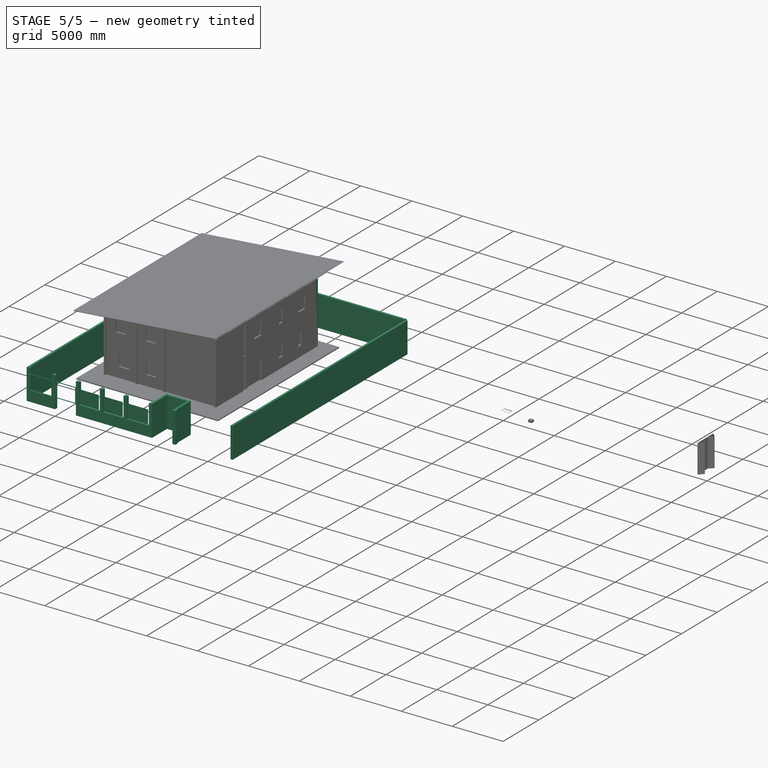
[diagram: stage 5 of 5 — iso view after this stage's code; geometry added in this stage tinted green]
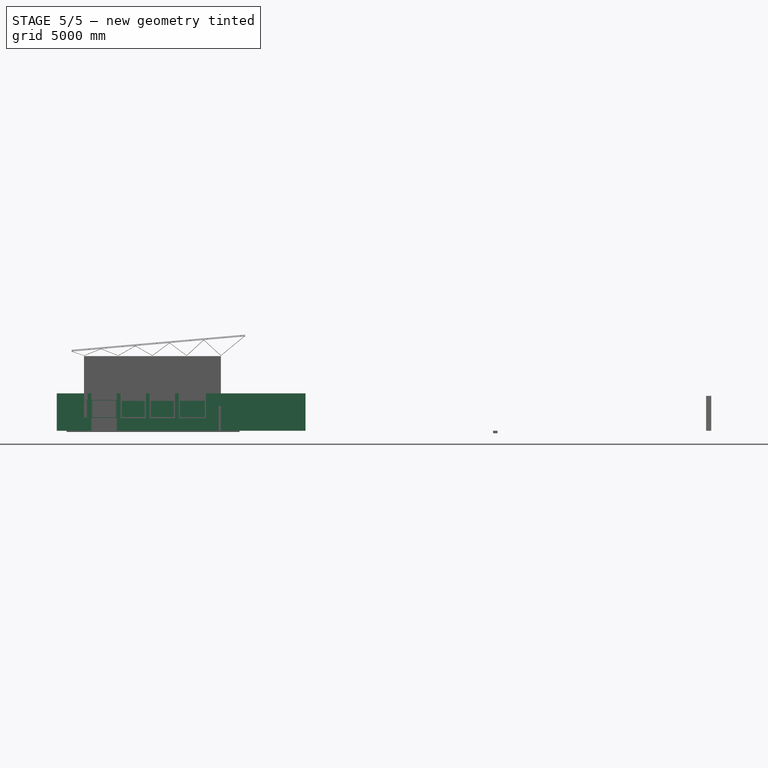
[diagram: stage 5 of 5 — front view after this stage's code; geometry added in this stage tinted green]
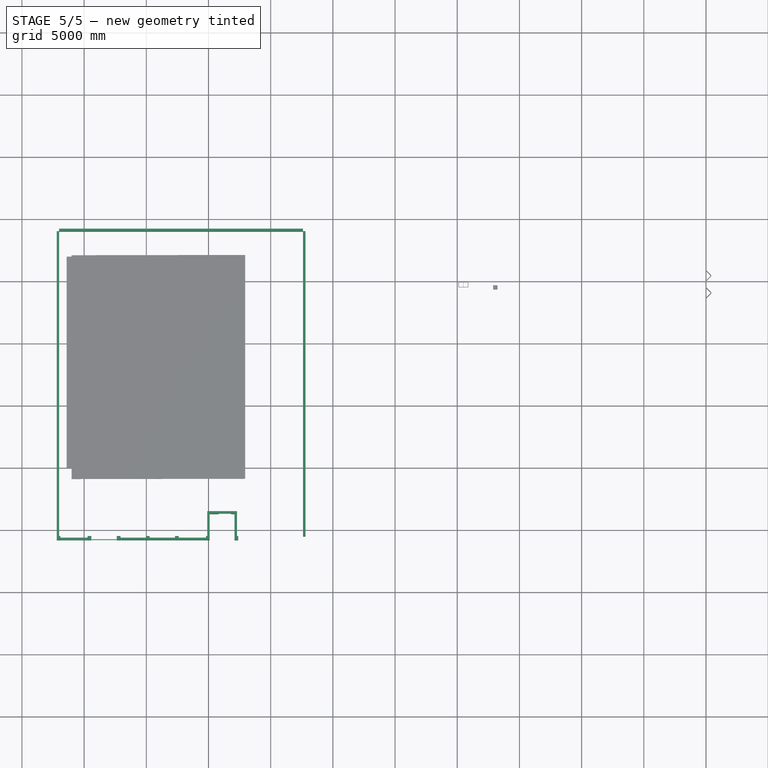
[diagram: stage 5 of 5 — top view after this stage's code; geometry added in this stage tinted green]
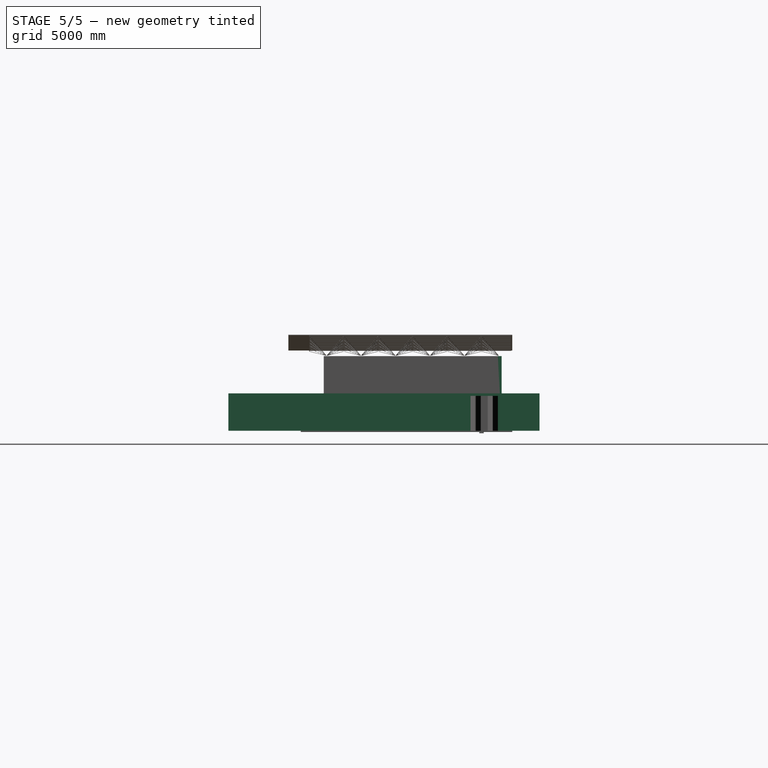
[diagram: stage 5 of 5 — right view after this stage's code; geometry added in this stage tinted green]
FEATURE [App::FeaturePython] Axes  # WARN: FeaturePython — macro-defined, semantics opaque (R4)
  Angles = [0,0,0,0,0]
  Distances = [70,3100,1350,1350,5050]
  Length = 17000
FEATURE [App::FeaturePython] Axes001  # WARN: FeaturePython — macro-defined, semantics opaque (R4)
  Angles = [0,0,0,0,0]
  Distances = [0,3130,4470,2500,3900]
  Length = 15000
  Placement = pos=(-2000,16000,0) rot=(0,0,-1;1.5708rad)
FEATURE [Part::FeaturePython] Structure  # WARN: FeaturePython — macro-defined, semantics opaque (R4)
  Height = 6000
  Length = 150
  MoveWithHost = false
  Nodes = (2) [(0,0,0),(0,0,6000)]
  Normal = (0,0,0)
  Placement = pos=(70,16000,0) rot=(0,0,1;0rad)
  Role = 1
  Width = 300
FEATURE [Part::FeaturePython] Structure001  # WARN: FeaturePython — macro-defined, semantics opaque (R4)
  Height = 6000
  Length = 150
  MoveWithHost = false
  Nodes = (2) [(0,0,0),(0,0,6000)]
  Normal = (0,0,0)
  Placement = pos=(3170,16000,0) rot=(0,0,1;0rad)
  Role = 1
  Width = 300
FEATURE [Part::FeaturePython] Structure003  # WARN: FeaturePython — macro-defined, semantics opaque (R4)
  Height = 6000
  Length = 150
  MoveWithHost = false
  Nodes = (2) [(0,0,0),(0,0,6000)]
  Normal = (0,0,0)
  Placement = pos=(10920,16000,0) rot=(0,0,1;0rad)
  Role = 1
  Width = 300
FEATURE [Part::FeaturePython] Structure016  # WARN: FeaturePython — macro-defined, semantics opaque (R4)
  Height = 6000
  Length = 150
  MoveWithHost = false
  Nodes = (2) [(0,0,0),(0,0,6000)]
  Normal = (0,0,0)
  Placement = pos=(70,5900,0) rot=(0,0,1;0rad)
  Role = 1
  Width = 300
FEATURE [Part::Part2DObjectPython] Line211  # Draft 2D object (typed FeaturePython)
  ChamferSize = 0
  Closed = false
  End = (6080,15417.5,0.0001461)
  FilletRadius = 0
  Length = 6391.78
  MakeFace = true
  Placement = pos=(-4915,0.305262,0.0001461) rot=(0,0,1;0rad)
  Points = (2) [(10995,21809,0),(10995,15417.2,0)]
  Start = (6080,21809.3,0.0001461)
FEATURE [Part::Part2DObjectPython] Line212  # Draft 2D object (typed FeaturePython)
  ChamferSize = 0
  Closed = false
  End = (12680,20689.3,0.0001461)
  FilletRadius = 0
  Length = 28788
  MakeFace = true
  Placement = pos=(-4915,0.305262,0.0001461) rot=(0,0,1;0rad)
  Points = (2) [(17595,-8099,0),(17595,20689,0)]
  Start = (12680,-8098.69,0.0001461)
FEATURE [Part::Part2DObjectPython] Line215  # Draft 2D object (typed FeaturePython)
  ChamferSize = 0
  Closed = false
  End = (-4920,22480.3,0.0001461)
  FilletRadius = 0
  Length = 6480
  MakeFace = true
  Placement = pos=(-4915,0.305262,0.0001461) rot=(0,0,1;0rad)
  Points = (2) [(-5,16000,0),(-5,22480,0)]
  Start = (-4920,16000.3,0.0001461)
FEATURE [Part::Part2DObjectPython] Line216  # Draft 2D object (typed FeaturePython)
  ChamferSize = 0
  Closed = false
  End = (-6920,-10739.7,0.0001461)
  FilletRadius = 0
  Length = 32773
  MakeFace = true
  Placement = pos=(-4915,0.305262,0.0001461) rot=(0,0,1;0rad)
  Points = (2) [(-2005,22033,0),(-2005,-10740,0)]
  Start = (-6920,22033.3,0.0001461)
FEATURE [Part::Part2DObjectPython] Line217  # Draft 2D object (typed FeaturePython)
  ChamferSize = 0
  Closed = false
  End = (16323,2000.31,0.0001461)
  FilletRadius = 0
  Length = 9472.71
  MakeFace = true
  Placement = pos=(-4915,0.305262,0.0001461) rot=(0,0,1;0rad)
  Points = (2) [(11765.3,2000,0),(21238,2000,0)]
  Start = (6850.3,2000.31,0.0001461)
FEATURE [Part::Part2DObjectPython] Line218  # Draft 2D object (typed FeaturePython)
  ChamferSize = 0
  Closed = false
  End = (17756,-5799.69,0.0001461)
  FilletRadius = 0
  Length = 28609
  MakeFace = true
  Placement = pos=(-4915,0.305262,0.0001461) rot=(0,0,1;0rad)
  Points = (2) [(-5938,-5800,0),(22671,-5800,0)]
  Start = (-10853,-5799.69,0.0001461)
FEATURE [Part::Part2DObjectPython] Line219  # Draft 2D object (typed FeaturePython)
  ChamferSize = 0
  Closed = false
  End = (17595,19000,0)
  FilletRadius = 0
  Length = 24515
  MakeFace = true
  Points = (2) [(17595,-5515,0),(17595,19000,0)]
  Start = (17595,-5515,0)
FEATURE [Part::Part2DObjectPython] Line220  # Draft 2D object (typed FeaturePython)
  ChamferSize = 0
  Closed = false
  End = (-2005,19000,0)
  FilletRadius = 0
  Length = 19600
  MakeFace = true
  Points = (2) [(17595,19000,0),(-2005,19000,0)]
  Start = (17595,19000,0)
FEATURE [Part::Part2DObjectPython] Line221  # Draft 2D object (typed FeaturePython)
  ChamferSize = 0
  Closed = false
  End = (-2005,19000,0)
  FilletRadius = 0
  Length = 24515
  MakeFace = true
  Points = (2) [(-2005,-5515,0),(-2005,19000,0)]
  Start = (-2005,-5515,0)
FEATURE [Part::FeaturePython] Wall081  # WARN: FeaturePython — macro-defined, semantics opaque (R4)
  Align = 0
  Base = -> Line219
  Face = 0
  Height = 3000
  Length = 0
  MoveWithHost = false
  Normal = (0,0,0)
  Role = 0
  Width = 200
FEATURE [Part::FeaturePython] Wall082  # WARN: FeaturePython — macro-defined, semantics opaque (R4)
  Align = 1
  Base = -> Line221
  Face = 0
  Height = 3000
  Length = 0
  MoveWithHost = false
  Normal = (0,0,0)
  Role = 0
  Width = 200
FEATURE [Part::FeaturePython] Wall083  # WARN: FeaturePython — macro-defined, semantics opaque (R4)
  Align = 0
  Base = -> Line220
  Face = 0
  Height = 3000
  Length = 0
  MoveWithHost = false
  Normal = (0,0,0)
  Role = 0
  Width = 200
FEATURE [Part::Part2DObjectPython] Line241  # Draft 2D object (typed FeaturePython)
  ChamferSize = 0
  Closed = false
  End = (-320.057,5900.31,6172.24)
  FilletRadius = 0
  Length = 463.499
  MakeFace = true
  Placement = pos=(-4915,0.305262,0.0001461) rot=(0,0,1;0rad)
  Points = (2) [(4595,5900,5708.74),(4594.94,5900,6172.24)]
  Start = (-319.998,5900.31,5708.74)
FEATURE [App::FeaturePython] Dimension021  # Draft dimension (typed FeaturePython)
  Dimline = (505.943,5900.31,6284.24)
  Direction = (0,0,0)
  Distance = 1200
  End = (879.943,5900.31,6172.24)
  Normal = (0,-1,0)
  Start = (-320.057,5900.31,6172.24)
FEATURE [Part::Part2DObjectPython] Line242  # Draft 2D object (typed FeaturePython)
  ChamferSize = 0
  Closed = false
  End = (879.96,1850.31,6172.39)
  FilletRadius = 0
  Length = 463.499
  MakeFace = true
  Placement = pos=(-4915,0.305262,0.0001461) rot=(0,0,1;0rad)
  Points = (2) [(5795.02,1850,5708.89),(5794.96,1850,6172.39)]
  Start = (880.019,1850.31,5708.89)
FEATURE [Part::Part2DObjectPython] Line243  # Draft 2D object (typed FeaturePython)
  ChamferSize = 0
  Closed = false
  End = (-220.057,5900.31,6172.25)
  FilletRadius = 0
  Length = 463.499
  MakeFace = true
  Placement = pos=(-4915,0.305262,0.0001461) rot=(0,0,1;0rad)
  Points = (2) [(4695,5900,5708.75),(4694.94,5900,6172.25)]
  Start = (-219.998,5900.31,5708.75)
FEATURE [Part::Part2DObjectPython] Line244  # Draft 2D object (typed FeaturePython)
  ChamferSize = 0
  Closed = false
  End = (779.943,5900.31,6172.38)
  FilletRadius = 0
  Length = 463.499
  MakeFace = true
  Placement = pos=(-4915,0.305262,0.0001461) rot=(0,0,1;0rad)
  Points = (2) [(5695,5900,5708.88),(5694.94,5900,6172.37)]
  Start = (780.002,5900.31,5708.88)
FEATURE [Part::Part2DObjectPython] Line245  # Draft 2D object (typed FeaturePython)
  ChamferSize = 0
  Closed = false
  End = (879.96,5900.31,6172.39)
  FilletRadius = 0
  Length = 463.499
  MakeFace = true
  Placement = pos=(-4915,0.305262,0.0001461) rot=(0,0,1;0rad)
  Points = (2) [(5795.02,5900,5708.89),(5794.96,5900,6172.39)]
  Start = (880.019,5900.31,5708.89)
FEATURE [Part::Part2DObjectPython] Line248  # Draft 2D object (typed FeaturePython)
  ChamferSize = 0
  Closed = false
  End = (2230,10050.3,5427.94)
  FilletRadius = 0
  Length = 427.94
  MakeFace = true
  Placement = pos=(-4915,0.305262,0.0001461) rot=(0,0,1;0rad)
  Points = (2) [(7145,10050,5000),(7145,10050,5427.94)]
  Start = (2230,10050.3,5000)
FEATURE [Part::Part2DObjectPython] Line249  # Draft 2D object (typed FeaturePython)
  ChamferSize = 0
  Closed = false
  End = (2230,9950.31,5427.94)
  FilletRadius = 0
  Length = 427.94
  MakeFace = true
  Placement = pos=(-4915,0.305262,0.0001461) rot=(0,0,1;0rad)
  Points = (2) [(7145,9950,5000),(7145,9950,5427.94)]
  Start = (2230,9950.31,5000)
FEATURE [Part::Part2DObjectPython] Line250  # Draft 2D object (typed FeaturePython)
  ChamferSize = 0
  Closed = false
  End = (2230,10197.4,5411.26)
  FilletRadius = 0
  Length = 411.266
  MakeFace = true
  Placement = pos=(-4915,0.305262,0.0001461) rot=(0,0,1;0rad)
  Points = (2) [(7145,10200,5000),(7145,10197.1,5411.26)]
  Start = (2230,10200.3,5000)
FEATURE [Part::Part2DObjectPython] Line251  # Draft 2D object (typed FeaturePython)
  ChamferSize = 0
  Closed = false
  End = (2230,10297.4,5411.96)
  FilletRadius = 0
  Length = 411.266
  MakeFace = true
  Placement = pos=(-4915,0.305262,0.0001461) rot=(0,0,1;0rad)
  Points = (2) [(7145,10300,5000.7),(7145,10297.1,5411.96)]
  Start = (2230,10300.3,5000.7)
FEATURE [Part::Part2DObjectPython] Line252  # Draft 2D object (typed FeaturePython)
  ChamferSize = 0
  Closed = false
  End = (2230,11845.3,5401.78)
  FilletRadius = 0
  Length = 401.777
  MakeFace = true
  Placement = pos=(-4915,0.305262,0.0001461) rot=(0,0,1;0rad)
  Points = (2) [(7145,11844.9,5000),(7145,11844.9,5401.78)]
  Start = (2230,11845.3,5000)
FEATURE [Part::Part2DObjectPython] Line253  # Draft 2D object (typed FeaturePython)
  ChamferSize = 0
  Closed = false
  End = (2230,11945.3,5401.78)
  FilletRadius = 0
  Length = 401.777
  MakeFace = true
  Placement = pos=(-4915,0.305262,0.0001461) rot=(0,0,1;0rad)
  Points = (2) [(7145,11944.9,5000),(7145,11944.9,5401.78)]
  Start = (2230,11945.3,5000)
FEATURE [Part::Part2DObjectPython] Line254  # Draft 2D object (typed FeaturePython)
  ChamferSize = 0
  Closed = false
  End = (-1470,12000.3,5533.68)
  FilletRadius = 0
  Length = 533.681
  MakeFace = true
  Placement = pos=(-4915,0.305262,0.0001461) rot=(0,0,1;0rad)
  Points = (2) [(3445,12000,5000),(3445,12000,5533.68)]
  Start = (-1470,12000.3,5000)
  Support = -> Wall037
FEATURE [Part::Part2DObjectPython] Line255  # Draft 2D object (typed FeaturePython)
  ChamferSize = 0
  Closed = false
  End = (-1570,12000.3,5533.68)
  FilletRadius = 0
  Length = 533.681
  MakeFace = true
  Placement = pos=(-4915,0.305262,0.0001461) rot=(0,0,1;0rad)
  Points = (2) [(3345,12000,5000),(3345,12000,5533.68)]
  Start = (-1570,12000.3,5000)
FEATURE [Part::Part2DObjectPython] Line256  # Draft 2D object (typed FeaturePython)
  ChamferSize = 0
  Closed = false
  End = (2030,5900.31,5556.76)
  FilletRadius = 0
  Length = 556.761
  MakeFace = true
  Placement = pos=(-4915,0.305262,0.0001461) rot=(0,0,1;0rad)
  Points = (2) [(6945,5900,5000),(6945,5900,5556.76)]
  Start = (2030,5900.31,5000)
FEATURE [Part::Part2DObjectPython] Line257  # Draft 2D object (typed FeaturePython)
  ChamferSize = 0
  Closed = false
  End = (2130,5900.31,5556.76)
  FilletRadius = 0
  Length = 556.761
  MakeFace = true
  Placement = pos=(-4915,0.305262,0.0001461) rot=(0,0,1;0rad)
  Points = (2) [(7045,5900,5000),(7045,5900,5556.76)]
  Start = (2130,5900.31,5000)
FEATURE [Part::Part2DObjectPython] Line258  # Draft 2D object (typed FeaturePython)
  ChamferSize = 0
  Closed = false
  End = (3880,13918.5,2504.57)
  FilletRadius = 0
  Length = 282.216
  MakeFace = true
  Placement = pos=(-4915,0.305262,0.0001461) rot=(0,0,1;0rad)
  Points = (2) [(8795,13918.2,2222.35),(8795,13918.2,2504.57)]
  Start = (3880,13918.5,2222.35)
  Support = -> Wall060
FEATURE [Part::Part2DObjectPython] Line259  # Draft 2D object (typed FeaturePython)
  ChamferSize = 0
  Closed = false
  End = (3880,14018.5,2504.57)
  FilletRadius = 0
  Length = 282.216
  MakeFace = true
  Placement = pos=(-4915,0.305262,0.0001461) rot=(0,0,1;0rad)
  Points = (2) [(8795,14018.2,2222.35),(8795,14018.2,2504.57)]
  Start = (3880,14018.5,2222.35)
FEATURE [Part::Part2DObjectPython] Line260  # Draft 2D object (typed FeaturePython)
  ChamferSize = 0
  Closed = false
  End = (-469.998,14016.3,2582.04)
  FilletRadius = 0
  Length = 465.392
  MakeFace = true
  Placement = pos=(-4915,0.305262,0.0001461) rot=(0,0,1;0rad)
  Points = (2) [(4445,14016,2116.65),(4445,14016,2582.04)]
  Start = (-469.998,14016.3,2116.65)
  Support = -> Wall061
FEATURE [Part::Part2DObjectPython] Line261  # Draft 2D object (typed FeaturePython)
  ChamferSize = 0
  Closed = false
  End = (-469.998,14116.3,2582.04)
  FilletRadius = 0
  Length = 465.392
  MakeFace = true
  Placement = pos=(-4915,0.305262,0.0001461) rot=(0,0,1;0rad)
  Points = (2) [(4445,14116,2116.65),(4445,14116,2582.04)]
  Start = (-469.998,14116.3,2116.65)
FEATURE [Part::Part2DObjectPython] Line262  # Draft 2D object (typed FeaturePython)
  ChamferSize = 0
  Closed = false
  End = (-3778.84,13020.3,2623.16)
  FilletRadius = 0
  Length = 416.828
  MakeFace = true
  Placement = pos=(-4915,0.305262,0.0001461) rot=(0,0,1;0rad)
  Points = (2) [(1136.16,13020,2206.33),(1136.16,13020,2623.16)]
  Start = (-3778.84,13020.3,2206.33)
FEATURE [Part::Part2DObjectPython] Line263  # Draft 2D object (typed FeaturePython)
  ChamferSize = 0
  Closed = false
  End = (-3678.84,13020.3,2623.16)
  FilletRadius = 0
  Length = 416.828
  MakeFace = true
  Placement = pos=(-4915,0.305262,0.0001461) rot=(0,0,1;0rad)
  Points = (2) [(1236.16,13020,2206.33),(1236.16,13020,2623.16)]
  Start = (-3678.84,13020.3,2206.33)
FEATURE [Part::Part2DObjectPython] Line264  # Draft 2D object (typed FeaturePython)
  ChamferSize = 0
  Closed = false
  End = (-1465.08,9750.31,2618.56)
  FilletRadius = 0
  Length = 468.739
  MakeFace = true
  Placement = pos=(-4915,0.305262,0.0001461) rot=(0,0,1;0rad)
  Points = (2) [(3449.92,9750,2149.83),(3449.92,9750,2618.56)]
  Start = (-1465.08,9750.31,2149.83)
FEATURE [Part::Part2DObjectPython] Line265  # Draft 2D object (typed FeaturePython)
  ChamferSize = 0
  Closed = false
  End = (-1565.08,9750.31,2618.56)
  FilletRadius = 0
  Length = 468.739
  MakeFace = true
  Placement = pos=(-4915,0.305262,0.0001461) rot=(0,0,1;0rad)
  Points = (2) [(3349.92,9750,2149.83),(3349.92,9750,2618.56)]
  Start = (-1565.08,9750.31,2149.83)
FEATURE [Part::Part2DObjectPython] Line266  # Draft 2D object (typed FeaturePython)
  ChamferSize = 0
  Closed = false
  End = (-1820,8704.21,2486.69)
  FilletRadius = 0
  Length = 353.329
  MakeFace = true
  Placement = pos=(-4915,0.305262,0.0001461) rot=(0,0,1;0rad)
  Points = (2) [(3095,8703.9,2133.36),(3095,8703.9,2486.69)]
  Start = (-1820,8704.21,2133.36)
  Support = -> Wall063
FEATURE [Part::Part2DObjectPython] Line267  # Draft 2D object (typed FeaturePython)
  ChamferSize = 0
  Closed = false
  End = (-1820,8604.21,2486.69)
  FilletRadius = 0
  Length = 353.329
  MakeFace = true
  Placement = pos=(-4915,0.305262,0.0001461) rot=(0,0,1;0rad)
  Points = (2) [(3095,8603.9,2133.36),(3095,8603.9,2486.69)]
  Start = (-1820,8604.21,2133.36)
FEATURE [Part::Part2DObjectPython] Line268  # Draft 2D object (typed FeaturePython)
  ChamferSize = 0
  Closed = false
  End = (-2720.34,6650.31,2344.47)
  FilletRadius = 0
  Length = 276.666
  MakeFace = true
  Placement = pos=(-4915,0.305262,0.0001461) rot=(0,0,1;0rad)
  Points = (2) [(2194.66,6650,2067.8),(2194.66,6650,2344.47)]
  Start = (-2720.34,6650.31,2067.81)
  Support = -> Wall064
FEATURE [Part::Part2DObjectPython] Line269  # Draft 2D object (typed FeaturePython)
  ChamferSize = 0
  Closed = false
  End = (-2820.34,6650.31,2344.47)
  FilletRadius = 0
  Length = 276.666
  MakeFace = true
  Placement = pos=(-4915,0.305262,0.0001461) rot=(0,0,1;0rad)
  Points = (2) [(2094.66,6650,2067.8),(2094.66,6650,2344.47)]
  Start = (-2820.34,6650.31,2067.81)
FEATURE [Part::Part2DObjectPython] Arc003  # Draft 2D object (typed FeaturePython)
  FirstAngle = -90
  LastAngle = 0
  MakeFace = true
  Placement = pos=(48237,5949.61,0) rot=(0,0,1;0rad)
  Radius = 900
FEATURE [Part::Part2DObjectPython] Line277  # Draft 2D object (typed FeaturePython)
  ChamferSize = 0
  Closed = false
  End = (48237,5049.61,0)
  FilletRadius = 0
  Length = 900
  MakeFace = true
  Placement = pos=(-366,-8.94205e-05,0) rot=(0,0,1;0rad)
  Points = (2) [(48603,5949.61,0),(48603,5049.61,0)]
  Start = (48237,5949.61,0)
FEATURE [Part::Part2DObjectPython] Arc004  # Draft 2D object (typed FeaturePython)
  FirstAngle = -90
  LastAngle = 0.0245798
  MakeFace = true
  Placement = pos=(36471.3,8199.61,0) rot=(0,0,1;0rad)
  Radius = 900
FEATURE [Part::Part2DObjectPython] Line278  # Draft 2D object (typed FeaturePython)
  ChamferSize = 0
  Closed = false
  End = (37371.3,8199.61,0)
  FilletRadius = 0
  Length = 900
  MakeFace = true
  Placement = pos=(-13281.7,-1700,0) rot=(0,0,1;0rad)
  Points = (2) [(49753,9899.61,0),(50653,9899.61,0)]
  Start = (36471.3,8199.61,0)
FEATURE [Part::Part2DObjectPython] Arc005  # Draft 2D object (typed FeaturePython)
  FirstAngle = 0.00625634
  LastAngle = 90
  MakeFace = true
  Placement = pos=(49412,10346.9,0) rot=(0,0,1;0rad)
  Radius = 900
FEATURE [Part::Part2DObjectPython] Line279  # Draft 2D object (typed FeaturePython)
  ChamferSize = 0
  Closed = false
  End = (50312,10347,0)
  FilletRadius = 0
  Length = 900
  MakeFace = true
  Placement = pos=(-341,-8.94205e-05,0) rot=(0,0,1;0rad)
  Points = (2) [(49753,10346.9,0),(50653,10347,0)]
  Start = (49412,10346.9,0)
FEATURE [Part::Part2DObjectPython] Arc006  # Draft 2D object (typed FeaturePython)
  FirstAngle = 0.0275498
  LastAngle = 90
  MakeFace = true
  Placement = pos=(49412,11994.6,0) rot=(0,0,1;0rad)
  Radius = 900
FEATURE [Part::Part2DObjectPython] Line280  # Draft 2D object (typed FeaturePython)
  ChamferSize = 0
  Closed = false
  End = (50312,11995,0)
  FilletRadius = 0
  Length = 925
  MakeFace = true
  Placement = pos=(-341,-8.94205e-05,0) rot=(0,0,1;0rad)
  Points = (2) [(49728,11994.6,0),(50653,11995,0)]
  Start = (49387,11994.6,0)
FEATURE [Part::Part2DObjectPython] Arc007  # Draft 2D object (typed FeaturePython)
  FirstAngle = -180
  LastAngle = -90
  MakeFace = true
  Placement = pos=(46437,12049.6,0) rot=(0,0,1;0rad)
  Radius = 900
FEATURE [Part::Part2DObjectPython] Line281  # Draft 2D object (typed FeaturePython)
  ChamferSize = 0
  Closed = false
  End = (46437,11149.6,0)
  FilletRadius = 0
  Length = 900
  MakeFace = true
  Placement = pos=(-366,-8.94205e-05,0) rot=(0,0,1;0rad)
  Points = (2) [(46803,12049.6,0),(46803,11149.6,0)]
  Start = (46437,12049.6,0)
FEATURE [Part::Part2DObjectPython] Arc008  # Draft 2D object (typed FeaturePython)
  FirstAngle = -179.973
  LastAngle = -90
  MakeFace = true
  Placement = pos=(46637,7099.61,0) rot=(0,0,1;0rad)
  Radius = 900
FEATURE [Part::Part2DObjectPython] Line282  # Draft 2D object (typed FeaturePython)
  ChamferSize = 0
  Closed = false
  End = (45737,7099.19,0)
  FilletRadius = 0
  Length = 900
  MakeFace = true
  Placement = pos=(984,-999.83,0) rot=(0,0,1;0rad)
  Points = (2) [(45653,8099.44,0),(44753,8099.02,0)]
  Start = (46637,7099.61,0)
FEATURE [Part::Part2DObjectPython] Arc  # Draft 2D object (typed FeaturePython)
  FirstAngle = 90
  LastAngle = 179.976
  MakeFace = true
  Placement = pos=(28648,13169.6,0) rot=(0,0,1;0rad)
  Radius = 900
FEATURE [Part::Part2DObjectPython] Line283  # Draft 2D object (typed FeaturePython)
  ChamferSize = 0
  Closed = false
  End = (27748,13170,0)
  FilletRadius = 0
  Length = 900
  MakeFace = true
  Placement = pos=(-1350.34,-0.000394594,0) rot=(0,0,1;0rad)
  Points = (2) [(29998.4,13169.6,0),(29098.4,13170,0)]
  Start = (28648,13169.6,0)
FEATURE [Part::Part2DObjectPython] Arc009  # Draft 2D object (typed FeaturePython)
  FirstAngle = 0.0269843
  LastAngle = 90
  MakeFace = true
  Placement = pos=(34398.4,13169.6,0) rot=(0,0,1;0rad)
  Radius = 800
FEATURE [Part::Part2DObjectPython] Line284  # Draft 2D object (typed FeaturePython)
  ChamferSize = 0
  Closed = false
  End = (34398.4,13169.6,0)
  FilletRadius = 0
  Length = 800
  MakeFace = true
  Points = (2) [(35198.4,13170,0),(34398.4,13169.6,0)]
  Start = (35198.4,13170,0)
FEATURE [Part::Part2DObjectPython] Arc010  # Draft 2D object (typed FeaturePython)
  FirstAngle = 90.0242
  LastAngle = 180
  MakeFace = true
  Placement = pos=(32398.4,12969.6,0) rot=(0,0,1;0rad)
  Radius = 900
FEATURE [Part::Part2DObjectPython] Line285  # Draft 2D object (typed FeaturePython)
  ChamferSize = 0
  Closed = false
  End = (32398.4,12969.6,0)
  FilletRadius = 0
  Length = 900
  MakeFace = true
  Points = (2) [(32398,13869.6,0),(32398.4,12969.6,0)]
  Start = (32398,13869.6,0)
FEATURE [Part::Part2DObjectPython] Arc011  # Draft 2D object (typed FeaturePython)
  FirstAngle = 90.0238
  LastAngle = 180
  MakeFace = true
  Placement = pos=(29798.4,9699.61,0) rot=(0,0,1;0rad)
  Radius = 900
FEATURE [Part::Part2DObjectPython] Line286  # Draft 2D object (typed FeaturePython)
  ChamferSize = 0
  Closed = false
  End = (29798,10599.6,0)
  FilletRadius = 0
  Length = 900
  MakeFace = true
  Points = (2) [(29798.4,9699.61,0),(29798,10599.6,0)]
  Start = (29798.4,9699.61,0)
FEATURE [Part::Part2DObjectPython] Arc012  # Draft 2D object (typed FeaturePython)
  FirstAngle = 179.973
  LastAngle = 270
  MakeFace = true
  Placement = pos=(28648.4,9449.61,0) rot=(0,0,1;0rad)
  Radius = 800
FEATURE [Part::Part2DObjectPython] Line287  # Draft 2D object (typed FeaturePython)
  ChamferSize = 0
  Closed = false
  End = (27848.4,9449.99,0)
  FilletRadius = 0
  Length = 800
  MakeFace = true
  Points = (2) [(28648.4,9449.61,0),(27848.4,9449.99,0)]
  Start = (28648.4,9449.61,0)
FEATURE [Part::Part2DObjectPython] Arc013  # Draft 2D object (typed FeaturePython)
  FirstAngle = 90.0275
  LastAngle = 180
  MakeFace = true
  Placement = pos=(28448.4,6599.61,0) rot=(0,0,1;0rad)
  Radius = 800
FEATURE [Part::Part2DObjectPython] Line288  # Draft 2D object (typed FeaturePython)
  ChamferSize = 0
  Closed = false
  End = (28448.4,6599.61,0)
  FilletRadius = 0
  Length = 800
  MakeFace = true
  Points = (2) [(28448,7399.61,0),(28448.4,6599.61,0)]
  Start = (28448,7399.61,0)
FEATURE [Part::Part2DObjectPython] Arc014  # Draft 2D object (typed FeaturePython)
  FirstAngle = 90
  LastAngle = 179.976
  MakeFace = true
  Placement = pos=(28648.4,4799.61,0) rot=(0,0,1;0rad)
  Radius = 900
FEATURE [Part::Part2DObjectPython] Line289  # Draft 2D object (typed FeaturePython)
  ChamferSize = 0
  Closed = false
  End = (27748.4,4799.99,0)
  FilletRadius = 0
  Length = 900
  MakeFace = true
  Points = (2) [(28648.4,4799.61,0),(27748.4,4799.99,0)]
  Start = (28648.4,4799.61,0)
FEATURE [Part::Part2DObjectPython] Line290  # Draft 2D object (typed FeaturePython)
  ChamferSize = 0
  Closed = false
  End = (27998.4,2149.61,0)
  FilletRadius = 0
  Length = 2350
  MakeFace = true
  Placement = pos=(0,-8.9407e-05,-1500) rot=(0,0,1;0rad)
  Points = (2) [(27998.4,4499.61,1500),(27998.4,2149.61,1500)]
  Start = (27998.4,4499.61,0)
FEATURE [Part::Part2DObjectPython] Line291  # Draft 2D object (typed FeaturePython)
  ChamferSize = 0
  Closed = false
  End = (42312,11399.6,0)
  FilletRadius = 0
  Length = 2875
  MakeFace = true
  Placement = pos=(-11809,-8.94205e-05,0) rot=(0,0,1;0rad)
  Points = (2) [(56996,11399.6,0),(54121,11399.6,0)]
  Start = (45187,11399.6,0)
FEATURE [App::DocumentObjectGroup] Group011
FEATURE [App::DocumentObjectGroup] Group009  label="Plan Annotation draw"
  Group = -> [Arc003,Line277,Arc004,Line278,Arc005,Line279,Arc006,Line280,Arc007,Line281,Arc008,Line282,Arc,Line283,Arc009,Line284,Arc010,Line285,Arc011,Line286,Arc012,Line287,Arc013,Line288,Arc014,Line289,Line290,Line291,Group011]
FEATURE [Part::Part2DObjectPython] Rectangle025  # Draft 2D object (typed FeaturePython)
  ChamferSize = 0
  FilletRadius = 0
  Height = -2200
  Length = -605.65
  MakeFace = true
  Placement = pos=(68947.7,11114.6,0) rot=(0,0,1;0rad)
FEATURE [Part::FeaturePython] Panel  # WARN: FeaturePython — macro-defined, semantics opaque (R4)
  Base = -> Rectangle025
  Length = 0
  MoveWithHost = false
  Placement = pos=(-61047,-2864.61,3000) rot=(0,0,1;0rad)
  Role = 0
  Sheets = 1
  Thickness = 50
  Width = 0
FEATURE [Part::FeaturePython] Panel001  # WARN: FeaturePython — macro-defined, semantics opaque (R4)
  Base = -> Rectangle025
  Length = 0
  MoveWithHost = false
  Placement = pos=(-61047,-2864.61,5750) rot=(0,0,1;0rad)
  Role = 0
  Sheets = 1
  Thickness = 50
  Width = 0
FEATURE [Part::Part2DObjectPython] Rectangle026  # Draft 2D object (typed FeaturePython)
  ChamferSize = 0
  FilletRadius = 0
  Height = -2700
  Length = 605.65
  MakeFace = true
  Placement = pos=(68947.7,11114.6,2750) rot=(0,0.707107,0.707107;3.14159rad)
FEATURE [Part::FeaturePython] Panel002  # WARN: FeaturePython — macro-defined, semantics opaque (R4)
  Base = -> Rectangle026
  Length = 0
  MoveWithHost = false
  Placement = pos=(-61047,-2894.61,3000) rot=(0,0,1;0rad)
  Role = 0
  Sheets = 1
  Thickness = 30
  Width = 0
FEATURE [Part::FeaturePython] Panel003  # WARN: FeaturePython — macro-defined, semantics opaque (R4)
  Base = -> Rectangle026
  Length = 0
  MoveWithHost = false
  Placement = pos=(-61047,-5064.61,3000) rot=(0,0,1;0rad)
  Role = 0
  Sheets = 1
  Thickness = 30
  Width = 0
FEATURE [Part::Part2DObjectPython] Rectangle027  # Draft 2D object (typed FeaturePython)
  ChamferSize = 0
  FilletRadius = 0
  Height = 2140
  Length = 605.652
  MakeFace = true
  Placement = pos=(68947.7,11084.6,1050) rot=(0,0,1;3.14159rad)
FEATURE [Part::FeaturePython] Panel008  # WARN: FeaturePython — macro-defined, semantics opaque (R4)
  Base = -> Rectangle027
  Length = 0
  MoveWithHost = false
  Placement = pos=(-61047,-2864.61,3000) rot=(0,0,1;0rad)
  Role = 0
  Sheets = 1
  Thickness = 30
  Width = 0
FEATURE [Part::FeaturePython] Panel009  # WARN: FeaturePython — macro-defined, semantics opaque (R4)
  Base = -> Rectangle027
  Length = 0
  MoveWithHost = false
  Placement = pos=(-61047,-2864.61,3030) rot=(0,0,1;0rad)
  Role = 0
  Sheets = 1
  Thickness = 30
  Width = 0
FEATURE [Part::FeaturePython] Panel010  # WARN: FeaturePython — macro-defined, semantics opaque (R4)
  Base = -> Rectangle027
  Length = 0
  MoveWithHost = false
  Placement = pos=(-61047,-2864.61,4170) rot=(0,0,1;0rad)
  Role = 0
  Sheets = 1
  Thickness = 30
  Width = 0
FEATURE [Part::Part2DObjectPython] Rectangle028  # Draft 2D object (typed FeaturePython)
  ChamferSize = 0
  FilletRadius = 0
  Height = -605.65
  Length = -1000
  MakeFace = true
  Placement = pos=(66791.9,8910.25,-1501) rot=(0.57735,-0.57735,-0.57735;4.18879rad)
FEATURE [Part::FeaturePython] Panel011  # WARN: FeaturePython — macro-defined, semantics opaque (R4)
  Base = -> Rectangle028
  Length = 0
  MoveWithHost = false
  Placement = pos=(-59496.9,-1420.24,4551) rot=(0,0,1;0rad)
  Role = 0
  Sheets = 1
  Thickness = 30
  Width = 0
FEATURE [Part::FeaturePython] Panel012  # WARN: FeaturePython — macro-defined, semantics opaque (R4)
  Base = -> Rectangle028
  Length = 0
  MoveWithHost = false
  Placement = pos=(-59496.9,-1450.24,4551) rot=(0,0,1;0rad)
  Role = 0
  Sheets = 1
  Thickness = 30
  Width = 0
FEATURE [Part::Part2DObjectPython] Rectangle029  # Draft 2D object (typed FeaturePython)
  ChamferSize = 0
  FilletRadius = 0
  Height = -605.652
  Length = -1110
  MakeFace = true
  Placement = pos=(68342,9704.61,1110) rot=(0.57735,-0.57735,-0.57735;4.18879rad)
FEATURE [Part::FeaturePython] Panel013  # WARN: FeaturePython — macro-defined, semantics opaque (R4)
  Base = -> Rectangle029
  Length = 0
  MoveWithHost = false
  Placement = pos=(-61047,-2894.61,3000) rot=(0,0,1;0rad)
  Role = 0
  Sheets = 1
  Thickness = 30
  Width = 0
FEATURE [Part::FeaturePython] Panel014  # WARN: FeaturePython — macro-defined, semantics opaque (R4)
  Base = -> Rectangle029
  Length = 0
  MoveWithHost = false
  Placement = pos=(-61047,-2924.61,3000) rot=(0,0,1;0rad)
  Role = 0
  Sheets = 1
  Thickness = 30
  Width = 0
FEATURE [Part::FeaturePython] Panel015  # WARN: FeaturePython — macro-defined, semantics opaque (R4)
  Base = -> Rectangle029
  Length = 0
  MoveWithHost = false
  Placement = pos=(-61047,-2214.61,3000) rot=(0,0,1;0rad)
  Role = 0
  Sheets = 1
  Thickness = 30
  Width = 0
FEATURE [Part::FeaturePython] Panel016  # WARN: FeaturePython — macro-defined, semantics opaque (R4)
  Base = -> Rectangle029
  Length = 0
  MoveWithHost = false
  Placement = pos=(-61047,-2244.61,3000) rot=(0,0,1;0rad)
  Role = 0
  Sheets = 1
  Thickness = 30
  Width = 0
FEATURE [Part::FeaturePython] Panel017  # WARN: FeaturePython — macro-defined, semantics opaque (R4)
  Base = -> Rectangle028
  Length = 0
  MoveWithHost = false
  Placement = pos=(-59496.9,-2100.24,4551) rot=(0,0,1;0rad)
  Role = 0
  Sheets = 1
  Thickness = 30
  Width = 0
FEATURE [Part::FeaturePython] Panel018  # WARN: FeaturePython — macro-defined, semantics opaque (R4)
  Base = -> Rectangle028
  Length = 0
  MoveWithHost = false
  Placement = pos=(-59496.9,-2130.24,4551) rot=(0,0,1;0rad)
  Role = 0
  Sheets = 1
  Thickness = 30
  Width = 0
FEATURE [Part::FeaturePython] Panel020  # WARN: FeaturePython — macro-defined, semantics opaque (R4)
  Base = -> Rectangle026
  Length = 0
  MoveWithHost = false
  Placement = pos=(-61047,4705.39,3000) rot=(0,0,1;0rad)
  Role = 0
  Sheets = 1
  Thickness = 30
  Width = 0
FEATURE [Part::FeaturePython] Panel021  # WARN: FeaturePython — macro-defined, semantics opaque (R4)
  Base = -> Rectangle025
  Length = 0
  MoveWithHost = false
  Placement = pos=(-61047,4735.39,3000) rot=(0,0,1;0rad)
  Role = 0
  Sheets = 1
  Thickness = 50
  Width = 0
FEATURE [Part::FeaturePython] Panel022  # WARN: FeaturePython — macro-defined, semantics opaque (R4)
  Base = -> Rectangle025
  Length = 0
  MoveWithHost = false
  Placement = pos=(-61047,4735.39,5750) rot=(0,0,1;0rad)
  Role = 0
  Sheets = 1
  Thickness = 50
  Width = 0
FEATURE [Part::FeaturePython] Panel023  # WARN: FeaturePython — macro-defined, semantics opaque (R4)
  Base = -> Rectangle026
  Length = 0
  MoveWithHost = false
  Placement = pos=(-61047,2535.39,3000) rot=(0,0,1;0rad)
  Role = 0
  Sheets = 1
  Thickness = 30
  Width = 0
FEATURE [Part::FeaturePython] Panel024  # WARN: FeaturePython — macro-defined, semantics opaque (R4)
  Base = -> Rectangle027
  Length = 0
  MoveWithHost = false
  Placement = pos=(-61047,4735.39,3000) rot=(0,0,1;0rad)
  Role = 0
  Sheets = 1
  Thickness = 30
  Width = 0
FEATURE [Part::FeaturePython] Panel025  # WARN: FeaturePython — macro-defined, semantics opaque (R4)
  Base = -> Rectangle027
  Length = 0
  MoveWithHost = false
  Placement = pos=(-61047,4735.39,3030) rot=(0,0,1;0rad)
  Role = 0
  Sheets = 1
  Thickness = 30
  Width = 0
FEATURE [Part::FeaturePython] Panel027  # WARN: FeaturePython — macro-defined, semantics opaque (R4)
  Base = -> Rectangle027
  Length = 0
  MoveWithHost = false
  Placement = pos=(-61047,4735.39,4170) rot=(0,0,1;0rad)
  Role = 0
  Sheets = 1
  Thickness = 30
  Width = 0
FEATURE [Part::FeaturePython] Panel029  # WARN: FeaturePython — macro-defined, semantics opaque (R4)
  Base = -> Rectangle029
  Length = 0
  MoveWithHost = false
  Placement = pos=(-61047,4705.39,3000) rot=(0,0,1;0rad)
  Role = 0
  Sheets = 1
  Thickness = 30
  Width = 0
FEATURE [Part::FeaturePython] Panel030  # WARN: FeaturePython — macro-defined, semantics opaque (R4)
  Base = -> Rectangle029
  Length = 0
  MoveWithHost = false
  Placement = pos=(-61047,4675.39,3000) rot=(0,0,1;0rad)
  Role = 0
  Sheets = 1
  Thickness = 30
  Width = 0
FEATURE [Part::FeaturePython] Panel031  # WARN: FeaturePython — macro-defined, semantics opaque (R4)
  Base = -> Rectangle029
  Length = 0
  MoveWithHost = false
  Placement = pos=(-61047,5355.39,3000) rot=(0,0,1;0rad)
  Role = 0
  Sheets = 1
  Thickness = 30
  Width = 0
FEATURE [Part::FeaturePython] Panel033  # WARN: FeaturePython — macro-defined, semantics opaque (R4)
  Base = -> Rectangle029
  Length = 0
  MoveWithHost = false
  Placement = pos=(-61047,5385.39,3000) rot=(0,0,1;0rad)
  Role = 0
  Sheets = 1
  Thickness = 30
  Width = 0
FEATURE [Part::FeaturePython] Panel034  # WARN: FeaturePython — macro-defined, semantics opaque (R4)
  Base = -> Rectangle028
  Length = 0
  MoveWithHost = false
  Placement = pos=(-59496.9,6149.75,4551) rot=(0,0,1;0rad)
  Role = 0
  Sheets = 1
  Thickness = 30
  Width = 0
FEATURE [Part::FeaturePython] Panel035  # WARN: FeaturePython — macro-defined, semantics opaque (R4)
  Base = -> Rectangle028
  Length = 0
  MoveWithHost = false
  Placement = pos=(-59496.9,5469.75,4551) rot=(0,0,1;0rad)
  Role = 0
  Sheets = 1
  Thickness = 30
  Width = 0
FEATURE [Part::FeaturePython] Panel036  # WARN: FeaturePython — macro-defined, semantics opaque (R4)
  Base = -> Rectangle028
  Length = 0
  MoveWithHost = false
  Placement = pos=(-59496.9,5499.75,4551) rot=(0,0,1;0rad)
  Role = 0
  Sheets = 1
  Thickness = 30
  Width = 0
FEATURE [Part::FeaturePython] Panel037  # WARN: FeaturePython — macro-defined, semantics opaque (R4)
  Base = -> Rectangle028
  Length = 0
  MoveWithHost = false
  Placement = pos=(-59496.9,6179.75,4551) rot=(0,0,1;0rad)
  Role = 0
  Sheets = 1
  Thickness = 30
  Width = 0
FEATURE [App::DocumentObjectGroup] Group014  label="A-Beams"
  Group = -> [Structure034,Structure035,Structure036,Structure037,Structure038]
FEATURE [Part::Part2DObjectPython] Line440  # Draft 2D object (typed FeaturePython)
  ChamferSize = 0
  Closed = false
  End = (7480,-10063.7,0.0001461)
  FilletRadius = 0
  Length = 4249
  MakeFace = true
  Placement = pos=(-5015,0.305262,0.0001461) rot=(0,0,1;0rad)
  Points = (2) [(12495,-5815,0),(12495,-10064,0)]
  Start = (7480,-5814.69,0.0001461)
FEATURE [Part::Part2DObjectPython] Line441  # Draft 2D object (typed FeaturePython)
  ChamferSize = 0
  Closed = false
  End = (7180,-10063.7,0.0001461)
  FilletRadius = 0
  Length = 4249
  MakeFace = true
  Placement = pos=(-5015,0.305262,0.0001461) rot=(0,0,1;0rad)
  Points = (2) [(12195,-5815,0),(12195,-10064,0)]
  Start = (7180,-5814.69,0.0001461)
FEATURE [Part::Part2DObjectPython] Line442  # Draft 2D object (typed FeaturePython)
  ChamferSize = 0
  Closed = false
  End = (5180,-10063.7,0.0001461)
  FilletRadius = 0
  Length = 4249
  MakeFace = true
  Placement = pos=(-5015,0.305262,0.0001461) rot=(0,0,1;0rad)
  Points = (2) [(10195,-5815,0),(10195,-10064,0)]
  Start = (5180,-5814.69,0.0001461)
FEATURE [Part::Part2DObjectPython] Line443  # Draft 2D object (typed FeaturePython)
  ChamferSize = 0
  Closed = false
  End = (4880,-10063.7,0.0001461)
  FilletRadius = 0
  Length = 4249
  MakeFace = true
  Placement = pos=(-7315,0.305262,0.0001461) rot=(0,0,1;0rad)
  Points = (2) [(12195,-5815,0),(12195,-10064,0)]
  Start = (4880,-5814.69,0.0001461)
FEATURE [Part::Part2DObjectPython] Line444  # Draft 2D object (typed FeaturePython)
  ChamferSize = 0
  Closed = false
  End = (12880,-10063.7,0.0001461)
  FilletRadius = 0
  Length = 4249
  MakeFace = true
  Placement = pos=(-4915,0.305262,0.0001461) rot=(0,0,1;0rad)
  Points = (2) [(17795,-5815,0),(17795,-10064,0)]
  Start = (12880,-5814.69,0.0001461)
FEATURE [Part::Part2DObjectPython] Line445  # Draft 2D object (typed FeaturePython)
  ChamferSize = 0
  Closed = false
  End = (12580,-10063.7,0.0001461)
  FilletRadius = 0
  Length = 4249
  MakeFace = true
  Placement = pos=(385.002,0.305262,0.0001461) rot=(0,0,1;0rad)
  Points = (2) [(12195,-5815,0),(12195,-10064,0)]
  Start = (12580,-5814.69,0.0001461)
FEATURE [App::FeaturePython] Dimension023  # Draft dimension (typed FeaturePython)
  Dimline = (3060,-11168.7,0.0001461)
  Direction = (0,0,0)
  Distance = 11700
  End = (4880,-10063.7,0.0001461)
  Normal = (0,0,1)
  Start = (-6820,-10063.7,0.0001461)
FEATURE [Part::Part2DObjectPython] Line448  # Draft 2D object (typed FeaturePython)
  ChamferSize = 0
  Closed = false
  End = (4880,-7939.19,0.0001461)
  FilletRadius = 0
  Length = 11700
  MakeFace = true
  Placement = pos=(-4915,0.305262,0.0001461) rot=(0,0,1;0rad)
  Points = (2) [(-1905,-7939.5,0),(9795,-7939.5,0)]
  Start = (-6820,-7939.19,0.0001461)
FEATURE [Part::Part2DObjectPython] Line449  # Draft 2D object (typed FeaturePython)
  ChamferSize = 0
  Closed = false
  End = (-4480,-10063.7,0.0001461)
  FilletRadius = 0
  Length = 4249
  MakeFace = true
  Placement = pos=(-4915,0.305262,0.0001461) rot=(0,0,1;0rad)
  Points = (2) [(435,-5815,0),(435,-10064,0)]
  Start = (-4480,-5814.69,0.0001461)
FEATURE [Part::Part2DObjectPython] Line450  # Draft 2D object (typed FeaturePython)
  ChamferSize = 0
  Closed = false
  End = (-2140,-10063.7,0.0001461)
  FilletRadius = 0
  Length = 4249
  MakeFace = true
  Placement = pos=(-2575,0.305262,0.0001461) rot=(0,0,1;0rad)
  Points = (2) [(435,-5815,0),(435,-10064,0)]
  Start = (-2140,-5814.69,0.0001461)
FEATURE [Part::Part2DObjectPython] Line451  # Draft 2D object (typed FeaturePython)
  ChamferSize = 0
  Closed = false
  End = (200.002,-10063.7,0.0001461)
  FilletRadius = 0
  Length = 4249
  MakeFace = true
  Placement = pos=(-234.998,0.305262,0.0001461) rot=(0,0,1;0rad)
  Points = (2) [(435,-5815,0),(435,-10064,0)]
  Start = (200.002,-5814.69,0.0001461)
FEATURE [Part::Part2DObjectPython] Line452  # Draft 2D object (typed FeaturePython)
  ChamferSize = 0
  Closed = false
  End = (2540,-10063.7,0.0001461)
  FilletRadius = 0
  Length = 4249
  MakeFace = true
  Placement = pos=(2105,0.305262,0.0001461) rot=(0,0,1;0rad)
  Points = (2) [(435,-5815,0),(435,-10064,0)]
  Start = (2540,-5814.69,0.0001461)
FEATURE [Part::Part2DObjectPython] Line453  # Draft 2D object (typed FeaturePython)
  ChamferSize = 0
  Closed = false
  End = (-7120,-10063.7,0.0001461)
  FilletRadius = 0
  Length = 300
  MakeFace = true
  Placement = pos=(-4915,0.305262,0.0001461) rot=(0,0,1;0rad)
  Points = (2) [(-1905,-10064,0),(-2205,-10064,0)]
  Start = (-6820,-10063.7,0.0001461)
FEATURE [Part::Part2DObjectPython] Line454  # Draft 2D object (typed FeaturePython)
  ChamferSize = 0
  Closed = false
  End = (-7120,-10063.7,0.0001461)
  FilletRadius = 0
  Length = 4249
  MakeFace = true
  Placement = pos=(-16825,0.305262,500) rot=(0,0,1;0rad)
  Points = (2) [(9705,-5815,-500),(9705,-10064,-500)]
  Start = (-7120,-5814.69,0.0001461)
FEATURE [Part::Part2DObjectPython] Line455  # Draft 2D object (typed FeaturePython)
  ChamferSize = 0
  Closed = false
  End = (-6820,-10063.7,0.0001461)
  FilletRadius = 0
  Length = 4249
  MakeFace = true
  Placement = pos=(-22125,0.305262,-500) rot=(0,0,1;0rad)
  Points = (2) [(15305,-5815,500),(15305,-10064,500)]
  Start = (-6820,-5814.69,0.0001461)
FEATURE [Part::Part2DObjectPython] Line456  # Draft 2D object (typed FeaturePython)
  ChamferSize = 0
  Closed = false
  End = (-4330,-10063.7,0.0001461)
  FilletRadius = 0
  Length = 4249
  MakeFace = true
  Placement = pos=(-19635,0.305262,-500) rot=(0,0,1;0rad)
  Points = (2) [(15305,-5815,500),(15305,-10064,500)]
  Start = (-4330,-5814.69,0.0001461)
FEATURE [Part::Part2DObjectPython] Line457  # Draft 2D object (typed FeaturePython)
  ChamferSize = 0
  Closed = false
  End = (-4630,-10063.7,0.0001461)
  FilletRadius = 0
  Length = 4249
  MakeFace = true
  Placement = pos=(-14335,0.305262,500) rot=(0,0,1;0rad)
  Points = (2) [(9705,-5815,-500),(9705,-10064,-500)]
  Start = (-4630,-5814.69,0.0001461)
FEATURE [Part::Part2DObjectPython] Line458  # Draft 2D object (typed FeaturePython)
  ChamferSize = 0
  Closed = false
  End = (-2290,-10063.7,0.0001461)
  FilletRadius = 0
  Length = 4249
  MakeFace = true
  Placement = pos=(-11995,0.305262,500) rot=(0,0,1;0rad)
  Points = (2) [(9705,-5815,-500),(9705,-10064,-500)]
  Start = (-2290,-5814.69,0.0001461)
FEATURE [Part::Part2DObjectPython] Line459  # Draft 2D object (typed FeaturePython)
  ChamferSize = 0
  Closed = false
  End = (-1990,-10063.7,0.0001461)
  FilletRadius = 0
  Length = 4249
  MakeFace = true
  Placement = pos=(-17295,0.305262,-500) rot=(0,0,1;0rad)
  Points = (2) [(15305,-5815,500),(15305,-10064,500)]
  Start = (-1990,-5814.69,0.0001461)
FEATURE [Part::Part2DObjectPython] Line460  # Draft 2D object (typed FeaturePython)
  ChamferSize = 0
  Closed = false
  End = (50.0022,-10063.7,0.0001461)
  FilletRadius = 0
  Length = 4249
  MakeFace = true
  Placement = pos=(-9655,0.305262,500) rot=(0,0,1;0rad)
  Points = (2) [(9705,-5815,-500),(9705,-10064,-500)]
  Start = (50.0022,-5814.69,0.0001461)
FEATURE [Part::Part2DObjectPython] Line461  # Draft 2D object (typed FeaturePython)
  ChamferSize = 0
  Closed = false
  End = (350.002,-10063.7,0.0001461)
  FilletRadius = 0
  Length = 4249
  MakeFace = true
  Placement = pos=(-14955,0.305262,-500) rot=(0,0,1;0rad)
  Points = (2) [(15305,-5815,500),(15305,-10064,500)]
  Start = (350.002,-5814.69,0.0001461)
FEATURE [Part::Part2DObjectPython] Line462  # Draft 2D object (typed FeaturePython)
  ChamferSize = 0
  Closed = false
  End = (2390,-10063.7,0.0001461)
  FilletRadius = 0
  Length = 4249
  MakeFace = true
  Placement = pos=(-7315,0.305262,500) rot=(0,0,1;0rad)
  Points = (2) [(9705,-5815,-500),(9705,-10064,-500)]
  Start = (2390,-5814.69,0.0001461)
FEATURE [Part::Part2DObjectPython] Line463  # Draft 2D object (typed FeaturePython)
  ChamferSize = 0
  Closed = false
  End = (2690,-10063.7,0.0001461)
  FilletRadius = 0
  Length = 4249
  MakeFace = true
  Placement = pos=(-12615,0.305262,-500) rot=(0,0,1;0rad)
  Points = (2) [(15305,-5815,500),(15305,-10064,500)]
  Start = (2690,-5814.69,0.0001461)
FEATURE [Part::Part2DObjectPython] Rectangle038  # Draft 2D object (typed FeaturePython)
  ChamferSize = 0
  FilletRadius = 0
  Height = 300
  Length = 300
  MakeFace = true
  Placement = pos=(17495,-5815,0) rot=(0,0,1;0rad)
FEATURE [Part::FeaturePython] Structure039  # WARN: FeaturePython — macro-defined, semantics opaque (R4)
  Base = -> Rectangle038
  Height = 3000
  Length = 0
  MoveWithHost = false
  Nodes = (2) [(17645,-5665,0),(17645,-5665,3000)]
  Normal = (0,0,0)
  Role = 0
  Width = 100
FEATURE [Part::FeaturePython] Clone019  label="Clone of Structure039"  # Draft clone (typed FeaturePython)
  Objects = -> [Structure039]
  Placement = pos=(-5400,0,0) rot=(0,0,1;0rad)
  Scale = (1,1,1)
FEATURE [Part::FeaturePython] Clone020  label="Clone of Structure040"  # Draft clone (typed FeaturePython)
  Objects = -> [Structure039]
  Placement = pos=(-7700,0,0) rot=(0,0,1;0rad)
  Scale = (1,1,1)
FEATURE [Part::FeaturePython] Clone021  label="Clone of Structure041"  # Draft clone (typed FeaturePython)
  Objects = -> [Structure039]
  Placement = pos=(-10190,0,0) rot=(0,0,1;0rad)
  Scale = (1,1,1)
FEATURE [Part::FeaturePython] Clone022  label="Clone of Structure042"  # Draft clone (typed FeaturePython)
  Objects = -> [Structure039]
  Placement = pos=(-12530,0,0) rot=(0,0,1;0rad)
  Scale = (1,1,1)
FEATURE [Part::FeaturePython] Clone023  label="Clone of Structure043"  # Draft clone (typed FeaturePython)
  Objects = -> [Structure039]
  Placement = pos=(-14870,0,0) rot=(0,0,1;0rad)
  Scale = (1,1,1)
FEATURE [Part::FeaturePython] Clone024  label="Clone of Structure044"  # Draft clone (typed FeaturePython)
  Objects = -> [Structure039]
  Placement = pos=(-17210,0,0) rot=(0,0,1;0rad)
  Scale = (1,1,1)
FEATURE [Part::FeaturePython] Clone025  label="Clone of Structure045"  # Draft clone (typed FeaturePython)
  Objects = -> [Structure039]
  Placement = pos=(-19700,0,0) rot=(0,0,1;0rad)
  Scale = (1,1,1)
FEATURE [Part::Part2DObjectPython] Line464  # Draft 2D object (typed FeaturePython)
  ChamferSize = 0
  Closed = false
  End = (285,-5815,0)
  FilletRadius = 0
  Length = 2190
  MakeFace = true
  Points = (2) [(-1905,-5815,0),(285,-5815,0)]
  Start = (-1905,-5815,0)
FEATURE [Part::Part2DObjectPython] Line465  # Draft 2D object (typed FeaturePython)
  ChamferSize = 0
  Closed = false
  End = (2625,-5815,0)
  FilletRadius = 0
  Length = 2040
  MakeFace = true
  Points = (2) [(585,-5815,0),(2625,-5815,0)]
  Start = (585,-5815,0)
FEATURE [Part::Part2DObjectPython] Line466  # Draft 2D object (typed FeaturePython)
  ChamferSize = 0
  Closed = false
  End = (4965,-5815,0)
  FilletRadius = 0
  Length = 2040
  MakeFace = true
  Points = (2) [(2925,-5815,0),(4965,-5815,0)]
  Start = (2925,-5815,0)
FEATURE [Part::Part2DObjectPython] Line467  # Draft 2D object (typed FeaturePython)
  ChamferSize = 0
  Closed = false
  End = (7305,-5815,0)
  FilletRadius = 0
  Length = 2040
  MakeFace = true
  Points = (2) [(5265,-5815,0),(7305,-5815,0)]
  Start = (5265,-5815,0)
FEATURE [Part::Part2DObjectPython] Line468  # Draft 2D object (typed FeaturePython)
  ChamferSize = 0
  Closed = false
  End = (9795,-5815,0)
  FilletRadius = 0
  Length = 2190
  MakeFace = true
  Points = (2) [(7605,-5815,0),(9795,-5815,0)]
  Start = (7605,-5815,0)
FEATURE [Part::FeaturePython] Wall086  # WARN: FeaturePython — macro-defined, semantics opaque (R4)
  Align = 1
  Base = -> Line464
  Face = 0
  Height = 1000
  Length = 0
  MoveWithHost = false
  Normal = (0,0,0)
  Role = 0
  Width = 200
FEATURE [Part::FeaturePython] Wall087  # WARN: FeaturePython — macro-defined, semantics opaque (R4)
  Align = 1
  Base = -> Line465
  Face = 0
  Height = 1000
  Length = 0
  MoveWithHost = false
  Normal = (0,0,0)
  Role = 0
  Width = 200
FEATURE [Part::FeaturePython] Wall088  # WARN: FeaturePython — macro-defined, semantics opaque (R4)
  Align = 1
  Base = -> Line466
  Face = 0
  Height = 1000
  Length = 0
  MoveWithHost = false
  Normal = (0,0,0)
  Role = 0
  Width = 200
FEATURE [Part::FeaturePython] Wall089  # WARN: FeaturePython — macro-defined, semantics opaque (R4)
  Align = 1
  Base = -> Line467
  Face = 0
  Height = 1000
  Length = 0
  MoveWithHost = false
  Normal = (0,0,0)
  Role = 0
  Width = 200
FEATURE [Part::FeaturePython] Wall090  # WARN: FeaturePython — macro-defined, semantics opaque (R4)
  Align = 1
  Base = -> Line468
  Face = 0
  Height = 1000
  Length = 0
  MoveWithHost = false
  Normal = (0,0,0)
  Role = 0
  Width = 200
FEATURE [Part::Part2DObjectPython] Arc015  # Draft 2D object (typed FeaturePython)
  FirstAngle = 0
  LastAngle = 90
  MakeFace = true
  Placement = pos=(12395,-5515,0) rot=(0,0,1;0rad)
  Radius = 2550
FEATURE [Part::Part2DObjectPython] Arc016  # Draft 2D object (typed FeaturePython)
  FirstAngle = 90
  LastAngle = 180
  MakeFace = true
  Placement = pos=(17495,-5515,0) rot=(0,0,1;0rad)
  Radius = 2550
FEATURE [Part::Part2DObjectPython] Line470  # Draft 2D object (typed FeaturePython)
  ChamferSize = 0
  Closed = false
  End = (12395,-5515,0)
  FilletRadius = 0
  Length = 2550
  MakeFace = true
  Points = (2) [(12395,-2965,0),(12395,-5515,0)]
  Start = (12395,-2965,0)
FEATURE [Part::Part2DObjectPython] Line471  # Draft 2D object (typed FeaturePython)
  ChamferSize = 0
  Closed = false
  End = (17495,-5515,0)
  FilletRadius = 0
  Length = 2550
  MakeFace = true
  Points = (2) [(17495,-2965,0),(17495,-5515,0)]
  Start = (17495,-2965,0)
FEATURE [Part::Part2DObjectPython] Line474  # Draft 2D object (typed FeaturePython)
  ChamferSize = 0
  Closed = false
  End = (12095,-5515,0)
  FilletRadius = 0
  Length = 2000
  MakeFace = true
  Points = (2) [(12095,-3515,0),(12095,-5515,0)]
  Start = (12095,-3515,0)
FEATURE [Part::Part2DObjectPython] Line475  # Draft 2D object (typed FeaturePython)
  ChamferSize = 0
  Closed = false
  End = (10095,-5515,0)
  FilletRadius = 0
  Length = 2000
  MakeFace = true
  Placement = pos=(-2000,0,0) rot=(0,0,1;0rad)
  Points = (2) [(12095,-3515,0),(12095,-5515,0)]
  Start = (10095,-3515,0)
FEATURE [Part::Part2DObjectPython] Line476  # Draft 2D object (typed FeaturePython)
  ChamferSize = 0
  Closed = false
  End = (10095,-3515,0)
  FilletRadius = 0
  Length = 2000
  MakeFace = true
  Points = (2) [(12095,-3515,0),(10095,-3515,0)]
  Start = (12095,-3515,0)
FEATURE [Part::FeaturePython] Wall091  # WARN: FeaturePython — macro-defined, semantics opaque (R4)
  Align = 0
  Base = -> Line475
  Face = 0
  Height = 3000
  Length = 0
  MoveWithHost = false
  Normal = (0,0,0)
  Role = 0
  Width = 200
FEATURE [Part::FeaturePython] Wall092  # WARN: FeaturePython — macro-defined, semantics opaque (R4)
  Align = 1
  Base = -> Line474
  Face = 0
  Height = 3000
  Length = 0
  MoveWithHost = false
  Normal = (0,0,0)
  Role = 0
  Width = 200
FEATURE [Sketcher::SketchObject] Sketch065
  Placement = pos=(10817.2,-3715,0) rot=(1,0,0;1.5708rad)
  sketch-geometry (8):
    g0: LineSegment StartX=0 StartY=0 StartZ=0 EndX=1000 EndY=0 EndZ=0
    g1: LineSegment StartX=1000 StartY=0 StartZ=0 EndX=1000 EndY=2000 EndZ=0
    g2: LineSegment StartX=1000 StartY=2000 StartZ=0 EndX=0 EndY=2000 EndZ=0
    g3: LineSegment StartX=0 StartY=2000 StartZ=0 EndX=0 EndY=0 EndZ=0
    g4: LineSegment StartX=100 StartY=0 StartZ=0 EndX=900 EndY=0 EndZ=0
    g5: LineSegment StartX=900 StartY=0 StartZ=0 EndX=900 EndY=1900 EndZ=0
    g6: LineSegment StartX=900 StartY=1900 StartZ=0 EndX=100 EndY=1900 EndZ=0
    g7: LineSegment StartX=100 StartY=1900 StartZ=0 EndX=100 EndY=0 EndZ=0
  constraints (23):
    c: Coincident(g0,g1)
    c: Coincident(g1,g2)
    c: Coincident(g2,g3)
    c: Coincident(g3,g0)
    c: Horizontal(g0)
    c: Horizontal(g2)
    c: Vertical(g1)
    c: Vertical(g3)
    c: Coincident(g4,g5)
    c: Coincident(g5,g6)
    c: Coincident(g6,g7)
    c: Coincident(g7,g4)
    c: Horizontal(g4)
    c: Horizontal(g6)
    c: Vertical(g5)
    c: Vertical(g7)
    c: DistanceY(g1) = 2000
    c: DistanceX(g0) = 1000
    c: DistanceY(g6,g2) = 100
    c: DistanceX(g2,g6) = 100
    c: DistanceX(g4,g0) = 100
    c: DistanceY(g0,g4) = 0
    c: Coincident(g0,g-1)
FEATURE [Part::FeaturePython] Window054  label="Window052"  # WARN: FeaturePython — macro-defined, semantics opaque (R4)
  Base = -> Sketch065
  Height = 2000
  HoleDepth = 0
  MoveWithHost = true
  Normal = (0,1,0)
  Preset = 6
  Role = 1
  Width = 1000
  WindowParts = OuterFrame | Frame | Wire0,Wire1 | 100.0 | 100.0 | Door | Solid panel | Wire1 | 100.0 | 200.0
FEATURE [Part::FeaturePython] Wall093  # WARN: FeaturePython — macro-defined, semantics opaque (R4)
  Align = 1
  Base = -> Line476
  Face = 0
  Height = 3000
  Length = 0
  MoveWithHost = false
  Normal = (0,0,0)
  Role = 0
  Subtractions = -> [Window054]
  Width = 200
FEATURE [Part::Part2DObjectPython] Rectangle042  # Draft 2D object (typed FeaturePython)
  ChamferSize = 0
  FilletRadius = 0
  Height = 1320
  Length = -2010
  MakeFace = true
  Placement = pos=(195,-5815,1090) rot=(1,0,0;1.5708rad)
FEATURE [Part::FeaturePython] Panel038  # WARN: FeaturePython — macro-defined, semantics opaque (R4)
  Base = -> Rectangle042
  Length = 0
  MoveWithHost = false
  Placement = pos=(0,25,0) rot=(0,0,1;0rad)
  Role = 0
  Sheets = 1
  Thickness = 10
  Width = 0
FEATURE [Part::Part2DObjectPython] Rectangle045  # Draft 2D object (typed FeaturePython)
  ChamferSize = 0
  FilletRadius = 0
  Height = 1300
  Length = -1840
  MakeFace = true
  Placement = pos=(2525,-5815,1100) rot=(1,0,0;1.5708rad)
FEATURE [Part::FeaturePython] Panel039  # WARN: FeaturePython — macro-defined, semantics opaque (R4)
  Base = -> Rectangle045
  Length = 0
  MoveWithHost = false
  Placement = pos=(0,25,0) rot=(0,0,1;0rad)
  Role = 0
  Sheets = 1
  Thickness = 10
  Width = 0
FEATURE [Part::FeaturePython] Clone026  label="Clone of Panel039"  # Draft clone (typed FeaturePython)
  Objects = -> [Panel039]
  Placement = pos=(2340,25,0) rot=(0,0,1;0rad)
  Scale = (1,1,1)
FEATURE [Part::FeaturePython] Clone028  label="Clone of Panel040"  # Draft clone (typed FeaturePython)
  Objects = -> [Panel039]
  Placement = pos=(4680,25,0) rot=(0,0,1;0rad)
  Scale = (1,1,1)
FEATURE [Part::FeaturePython] Clone031  label="Clone of Panel038"  # Draft clone (typed FeaturePython)
  Objects = -> [Panel038]
  Placement = pos=(9510,25,0) rot=(0,0,1;0rad)
  Scale = (1,1,1)
FEATURE [Part::Part2DObjectPython] Rectangle048  # Draft 2D object (typed FeaturePython)
  ChamferSize = 0
  FilletRadius = 0
  Height = -1370
  Length = -2060
  MakeFace = true
  Placement = pos=(220,-5815,2435) rot=(1,0,0;1.5708rad)
FEATURE [Part::Feature] Face
  shape: bbox 2160 x 2e-07 x 1470 mm, 1 faces, 0 solids (baked)
FEATURE [Part::Cut] Cut003
  Base = -> Face
  Tool = -> Rectangle048
FEATURE [Part::Extrusion] Extrusion039
  Base = -> Cut003
  Dir = (0,50,0)
  Solid = true
FEATURE [Part::Part2DObjectPython] Rectangle049  # Draft 2D object (typed FeaturePython)
  ChamferSize = 0
  FilletRadius = 0
  Height = -1450
  Length = -1990
  MakeFace = true
  Placement = pos=(2600,-5815,2475) rot=(1,0,0;1.5708rad)
  Support = -> Wall087
FEATURE [Part::Part2DObjectPython] Rectangle050  # Draft 2D object (typed FeaturePython)
  ChamferSize = 0
  FilletRadius = 0
  Height = -1350
  Length = -1890
  MakeFace = true
  Placement = pos=(2550,-5815,2425) rot=(1,0,0;1.5708rad)
FEATURE [Part::Cut] Cut004
  Base = -> Rectangle049
  Tool = -> Rectangle050
FEATURE [Part::Extrusion] Extrusion040
  Base = -> Cut004
  Dir = (0,50,0)
  Solid = true
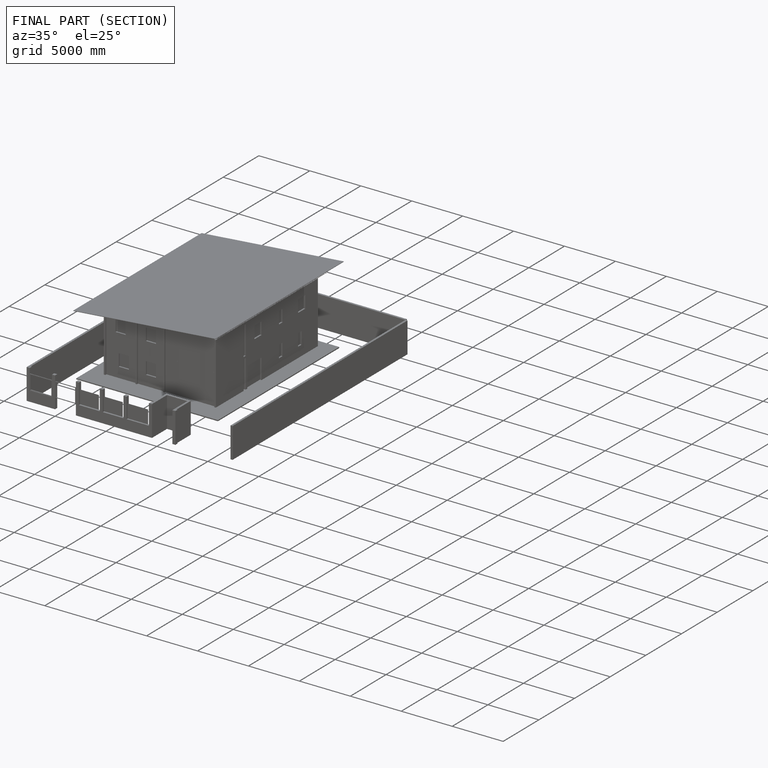
[diagram: finished part — half-section view (interior)]
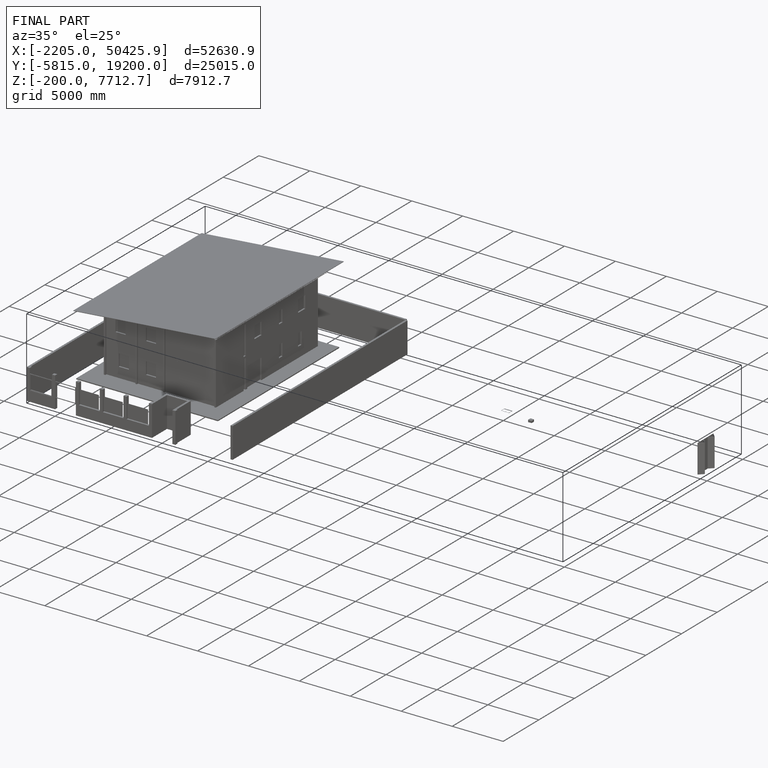
[diagram: finished part — iso view with bounding-box wireframe]
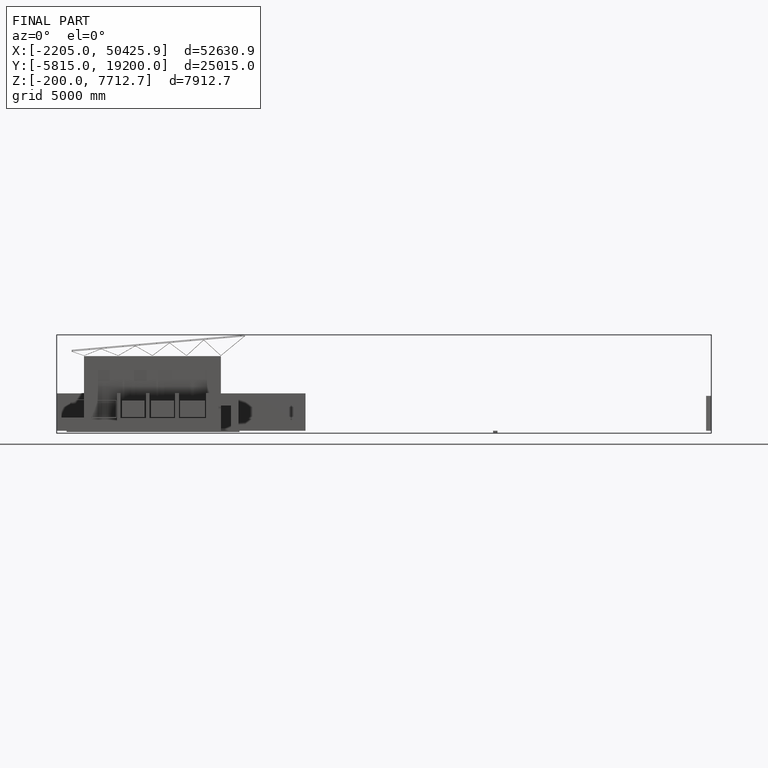
[diagram: finished part — front view with bounding-box wireframe]
